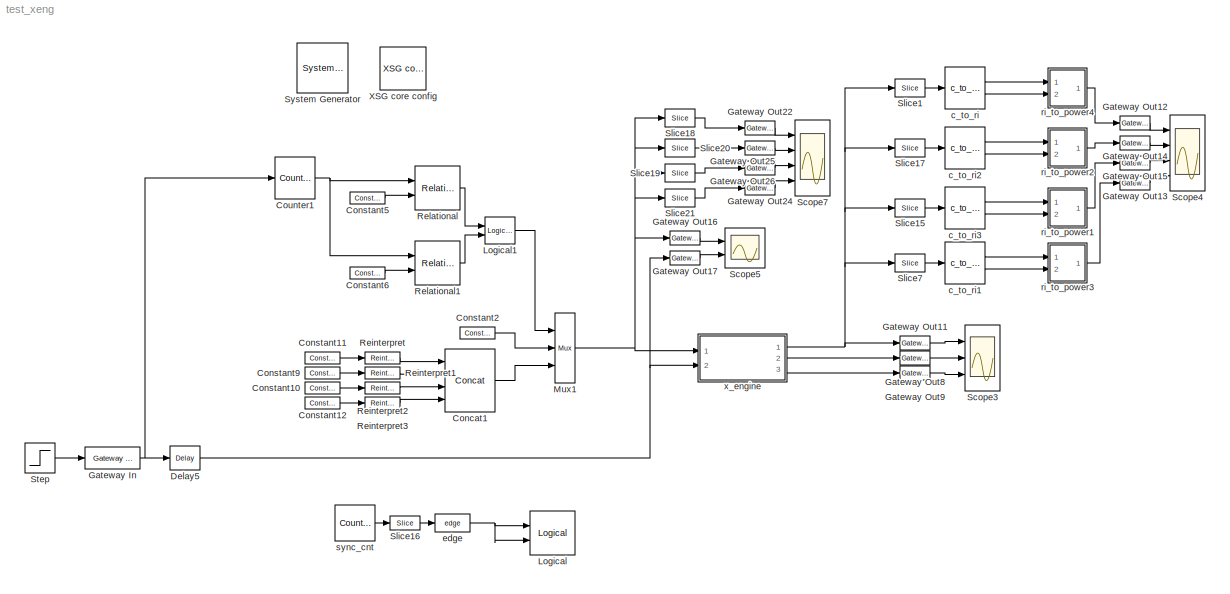
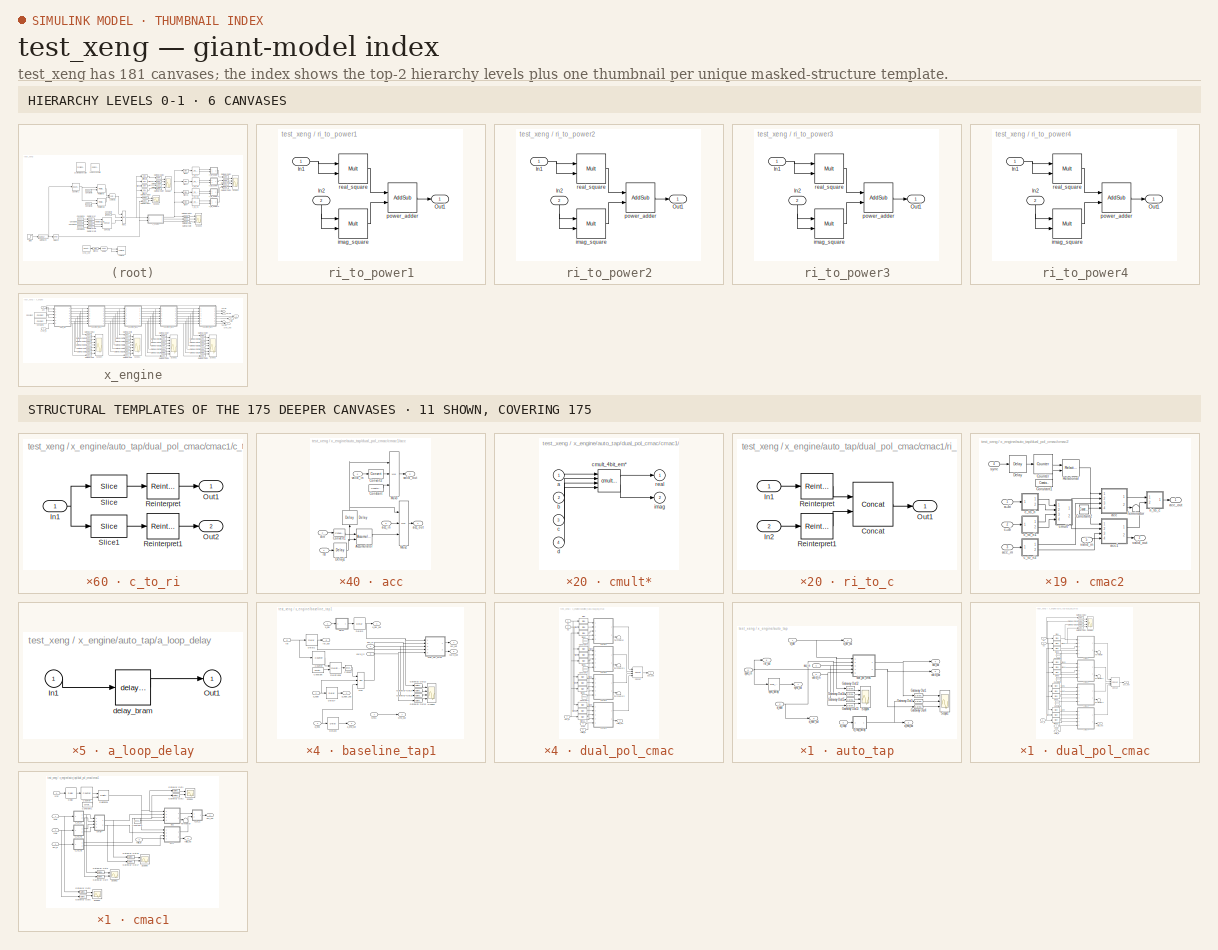
[diagram: thumbnail index - top-2 hierarchy levels (6 canvases) + 11 structural-template representatives of the remaining 175 canvases]
MODEL test_xeng
KIND model
BLOCK [Reference]  System Generator  REF=xbsIndex_r3/ System Generator
  AttributesFormatString = System\\nGenerator
  Ports = []
  ShowPortLabels = on
  SourceBlock = xbsIndex_r3/ System Generator
  SourceType = Xilinx System Generator
  Tag = genX
  UserData = DataTag0
  UserDataPersistent = on
  core_generation = According to Block Masks
  dbl_ovrd = According to Block Masks
  deprecated_control = off
  directory = ./cn_b_2x_128w_8a_rev3_1/sysgen
  eval_field = 0
  incr_netlist = off
  package = ff1704
  part = xc2vp70
  run_coregen = off
  simulink_period = 1
  speed = -7
  synthesis_tool = XST
  sysclk_period = 4.878
  testbench = off
  trim_vbits = Everywhere in SubSystem
  xilinxfamily = Virtex2P
BLOCK [Reference] Concat1  REF=xbsIndex_r3/Concat
  Ports = [4, 1]
  SourceBlock = xbsIndex_r3/Concat
  SourceType = Xilinx Bus Concatenator
  dbl_ovrd = off
  explicit_period = off
  num_inputs = 4
  period = 1
BLOCK [Reference] Constant10  REF=xbsIndex_r3/Constant
  Ports = [0, 1]
  SourceBlock = xbsIndex_r3/Constant
  SourceType = Xilinx Constant Block
  arith_type = Signed  (2's comp)
  bin_pt = 3
  carry = CIN
  const = 0.5
  dbl_ovrd = off
  equ = P=C
  explicit_period = on
  inp1 = P
  inp2 = PCIN>>17
  iostate = 0
  n_bits = 4
  opr = +
  opselect = C
  period = 1
BLOCK [Reference] Constant11  REF=xbsIndex_r3/Constant
  Ports = [0, 1]
  SourceBlock = xbsIndex_r3/Constant
  SourceType = Xilinx Constant Block
  arith_type = Signed  (2's comp)
  bin_pt = 3
  carry = CIN
  const = 0.5
  dbl_ovrd = off
  equ = P=C
  explicit_period = on
  inp1 = P
  inp2 = PCIN>>17
  iostate = 0
  n_bits = 4
  opr = +
  opselect = C
  period = 1
BLOCK [Reference] Constant12  REF=xbsIndex_r3/Constant
  Ports = [0, 1]
  SourceBlock = xbsIndex_r3/Constant
  SourceType = Xilinx Constant Block
  arith_type = Signed  (2's comp)
  bin_pt = 3
  carry = CIN
  const = 0.5
  dbl_ovrd = off
  equ = P=C
  explicit_period = on
  inp1 = P
  inp2 = PCIN>>17
  iostate = 0
  n_bits = 4
  opr = +
  opselect = C
  period = 1
BLOCK [Reference] Constant2  REF=xbsIndex_r3/Constant
  Ports = [0, 1]
  SourceBlock = xbsIndex_r3/Constant
  SourceType = Xilinx Constant Block
  arith_type = Unsigned
  bin_pt = 0
  carry = CIN
  const = 0
  dbl_ovrd = off
  equ = P=C
  explicit_period = on
  inp1 = P
  inp2 = PCIN>>17
  iostate = 0
  n_bits = 16
  opr = +
  opselect = C
  period = 1
BLOCK [Reference] Constant5  REF=xbsIndex_r3/Constant
  Ports = [0, 1]
  SourceBlock = xbsIndex_r3/Constant
  SourceType = Xilinx Constant Block
  arith_type = Unsigned
  bin_pt = 0
  carry = CIN
  const = 0
  dbl_ovrd = off
  equ = P=C
  explicit_period = on
  inp1 = P
  inp2 = PCIN>>17
  iostate = 0
  n_bits = 32
  opr = +
  opselect = C
  period = 1
BLOCK [Reference] Constant6  REF=xbsIndex_r3/Constant
  Ports = [0, 1]
  SourceBlock = xbsIndex_r3/Constant
  SourceType = Xilinx Constant Block
  arith_type = Unsigned
  bin_pt = 0
  carry = CIN
  const = 128
  dbl_ovrd = off
  equ = P=C
  explicit_period = on
  inp1 = P
  inp2 = PCIN>>17
  iostate = 0
  n_bits = 32
  opr = +
  opselect = C
  period = 1
BLOCK [Reference] Constant9  REF=xbsIndex_r3/Constant
  Ports = [0, 1]
  SourceBlock = xbsIndex_r3/Constant
  SourceType = Xilinx Constant Block
  arith_type = Signed  (2's comp)
  bin_pt = 3
  carry = CIN
  const = 0.5
  dbl_ovrd = off
  equ = P=C
  explicit_period = on
  inp1 = P
  inp2 = PCIN>>17
  iostate = 0
  n_bits = 4
  opr = +
  opselect = C
  period = 1
BLOCK [Reference] Counter1  REF=xbsIndex_r3/Counter
  Ports = [1, 1]
  SourceBlock = xbsIndex_r3/Counter
  SourceType = Xilinx Counter Block
  arith_type = Unsigned
  bin_pt = 0
  cnt_by_val = 1
  cnt_to = Inf
  cnt_type = Free Running
  dbl_ovrd = off
  en = off
  explicit_period = off
  gen_core = off
  load_pin = off
  n_bits = 32
  operation = Up
  period = 1
  rst = on
  show_param = off
  start_count = 0
  use_rpm = on
  xl_area = [0, 0, 0, 0, 0, 0, 0]
  xl_use_area = off
BLOCK [Reference] Delay5  REF=xbsIndex_r3/Delay
  Ports = [1, 1]
  SourceBlock = xbsIndex_r3/Delay
  SourceType = Xilinx Delay Block
  accept_only_valid = off
  dbl_ovrd = off
  en = off
  explicit_period = off
  init_zero = on
  latency = 1
  period = 1
  reg_retiming = off
  show_param = off
  xl_area = [0, 0, 0, 0, 0, 0, 0]
  xl_use_area = off
BLOCK [Reference] Gateway In  REF=xbsIndex_r3/Gateway In
  LOCs = {}
  Ports = [1, 1]
  SourceBlock = xbsIndex_r3/Gateway In
  SourceType = Xilinx Gateway In
  arith_type = Boolean
  bin_pt = 0
  dbl_ovrd = off
  locs_specified = off
  n_bits = 1
  needs_fixed_name = off
  overflow = Wrap
  period = 1
  quantization = Truncate
  show_param = off
  timing_constraint = None
  xl_area = [0, 0, 0, 0, 0, 0, 0]
  xl_use_area = off
BLOCK [Reference] Gateway Out11  REF=xbsIndex_r3/Gateway Out
  LOCs = {}
  Ports = [1, 1]
  SourceBlock = xbsIndex_r3/Gateway Out
  SourceType = Xilinx Gateway Out
  arith_type = Boolean
  bin_pt = 6
  hdl_port = off
  locs_specified = off
  nbits = 8
  needs_fixed_name = off
  output_type = Double
  overflow = Wrap
  quantization = Truncate
  show_param = off
  timing_constraint = None
  xl_area = [0, 0, 0, 0, 0, 0, 0]
  xl_use_area = off
BLOCK [Reference] Gateway Out12  REF=xbsIndex_r3/Gateway Out
  LOCs = {}
  Ports = [1, 1]
  SourceBlock = xbsIndex_r3/Gateway Out
  SourceType = Xilinx Gateway Out
  arith_type = Boolean
  bin_pt = 6
  hdl_port = off
  locs_specified = off
  nbits = 8
  needs_fixed_name = off
  output_type = Double
  overflow = Wrap
  quantization = Truncate
  show_param = off
  timing_constraint = None
  xl_area = [0, 0, 0, 0, 0, 0, 0]
  xl_use_area = off
BLOCK [Reference] Gateway Out13  REF=xbsIndex_r3/Gateway Out
  LOCs = {}
  Ports = [1, 1]
  SourceBlock = xbsIndex_r3/Gateway Out
  SourceType = Xilinx Gateway Out
  arith_type = Boolean
  bin_pt = 6
  hdl_port = off
  locs_specified = off
  nbits = 8
  needs_fixed_name = off
  output_type = Double
  overflow = Wrap
  quantization = Truncate
  show_param = off
  timing_constraint = None
  xl_area = [0, 0, 0, 0, 0, 0, 0]
  xl_use_area = off
BLOCK [Reference] Gateway Out14  REF=xbsIndex_r3/Gateway Out
  LOCs = {}
  Ports = [1, 1]
  SourceBlock = xbsIndex_r3/Gateway Out
  SourceType = Xilinx Gateway Out
  arith_type = Boolean
  bin_pt = 6
  hdl_port = off
  locs_specified = off
  nbits = 8
  needs_fixed_name = off
  output_type = Double
  overflow = Wrap
  quantization = Truncate
  show_param = off
  timing_constraint = None
  xl_area = [0, 0, 0, 0, 0, 0, 0]
  xl_use_area = off
BLOCK [Reference] Gateway Out15  REF=xbsIndex_r3/Gateway Out
  LOCs = {}
  Ports = [1, 1]
  SourceBlock = xbsIndex_r3/Gateway Out
  SourceType = Xilinx Gateway Out
  arith_type = Boolean
  bin_pt = 6
  hdl_port = off
  locs_specified = off
  nbits = 8
  needs_fixed_name = off
  output_type = Double
  overflow = Wrap
  quantization = Truncate
  show_param = off
  timing_constraint = None
  xl_area = [0, 0, 0, 0, 0, 0, 0]
  xl_use_area = off
BLOCK [Reference] Gateway Out16  REF=xbsIndex_r3/Gateway Out
  LOCs = {}
  Ports = [1, 1]
  SourceBlock = xbsIndex_r3/Gateway Out
  SourceType = Xilinx Gateway Out
  arith_type = Boolean
  bin_pt = 6
  hdl_port = off
  locs_specified = off
  nbits = 8
  needs_fixed_name = off
  output_type = Double
  overflow = Wrap
  quantization = Truncate
  show_param = off
  timing_constraint = None
  xl_area = [0, 0, 0, 0, 0, 0, 0]
  xl_use_area = off
BLOCK [Reference] Gateway Out17  REF=xbsIndex_r3/Gateway Out
  LOCs = {}
  Ports = [1, 1]
  SourceBlock = xbsIndex_r3/Gateway Out
  SourceType = Xilinx Gateway Out
  arith_type = Boolean
  bin_pt = 6
  hdl_port = off
  locs_specified = off
  nbits = 8
  needs_fixed_name = off
  output_type = Double
  overflow = Wrap
  quantization = Truncate
  show_param = off
  timing_constraint = None
  xl_area = [0, 0, 0, 0, 0, 0, 0]
  xl_use_area = off
BLOCK [Reference] Gateway Out22  REF=xbsIndex_r3/Gateway Out
  LOCs = {}
  Ports = [1, 1]
  SourceBlock = xbsIndex_r3/Gateway Out
  SourceType = Xilinx Gateway Out
  arith_type = Boolean
  bin_pt = 6
  hdl_port = off
  locs_specified = off
  nbits = 8
  needs_fixed_name = off
  output_type = Double
  overflow = Wrap
  quantization = Truncate
  show_param = off
  timing_constraint = None
  xl_area = [0, 0, 0, 0, 0, 0, 0]
  xl_use_area = off
BLOCK [Reference] Gateway Out24  REF=xbsIndex_r3/Gateway Out
  LOCs = {}
  Ports = [1, 1]
  SourceBlock = xbsIndex_r3/Gateway Out
  SourceType = Xilinx Gateway Out
  arith_type = Boolean
  bin_pt = 6
  hdl_port = off
  locs_specified = off
  nbits = 8
  needs_fixed_name = off
  output_type = Double
  overflow = Wrap
  quantization = Truncate
  show_param = off
  timing_constraint = None
  xl_area = [0, 0, 0, 0, 0, 0, 0]
  xl_use_area = off
BLOCK [Reference] Gateway Out25  REF=xbsIndex_r3/Gateway Out
  LOCs = {}
  Ports = [1, 1]
  SourceBlock = xbsIndex_r3/Gateway Out
  SourceType = Xilinx Gateway Out
  arith_type = Boolean
  bin_pt = 6
  hdl_port = off
  locs_specified = off
  nbits = 8
  needs_fixed_name = off
  output_type = Double
  overflow = Wrap
  quantization = Truncate
  show_param = off
  timing_constraint = None
  xl_area = [0, 0, 0, 0, 0, 0, 0]
  xl_use_area = off
BLOCK [Reference] Gateway Out26  REF=xbsIndex_r3/Gateway Out
  LOCs = {}
  Ports = [1, 1]
  SourceBlock = xbsIndex_r3/Gateway Out
  SourceType = Xilinx Gateway Out
  arith_type = Boolean
  bin_pt = 6
  hdl_port = off
  locs_specified = off
  nbits = 8
  needs_fixed_name = off
  output_type = Double
  overflow = Wrap
  quantization = Truncate
  show_param = off
  timing_constraint = None
  xl_area = [0, 0, 0, 0, 0, 0, 0]
  xl_use_area = off
BLOCK [Reference] Gateway Out8  REF=xbsIndex_r3/Gateway Out
  LOCs = {}
  Ports = [1, 1]
  SourceBlock = xbsIndex_r3/Gateway Out
  SourceType = Xilinx Gateway Out
  arith_type = Boolean
  bin_pt = 6
  hdl_port = off
  locs_specified = off
  nbits = 8
  needs_fixed_name = off
  output_type = Double
  overflow = Wrap
  quantization = Truncate
  show_param = off
  timing_constraint = None
  xl_area = [0, 0, 0, 0, 0, 0, 0]
  xl_use_area = off
BLOCK [Reference] Gateway Out9  REF=xbsIndex_r3/Gateway Out
  LOCs = {}
  Ports = [1, 1]
  SourceBlock = xbsIndex_r3/Gateway Out
  SourceType = Xilinx Gateway Out
  arith_type = Boolean
  bin_pt = 6
  hdl_port = off
  locs_specified = off
  nbits = 8
  needs_fixed_name = off
  output_type = Double
  overflow = Wrap
  quantization = Truncate
  show_param = off
  timing_constraint = None
  xl_area = [0, 0, 0, 0, 0, 0, 0]
  xl_use_area = off
BLOCK [Reference] Logical  REF=xbsIndex_r3/Logical
  Ports = [2, 1]
  SourceBlock = xbsIndex_r3/Logical
  SourceType = Xilinx Logical Block
  align_bp = on
  arith_type = Unsigned
  bin_pt = 2
  dbl_ovrd = off
  en = off
  explicit_period = off
  inputs = 2
  latency = 0
  logical_function = OR
  n_bits = 8
  period = 1
  precision = Full
  show_param = off
  xl_area = [0, 0, 0, 0, 0, 0, 0]
  xl_use_area = off
BLOCK [Reference] Logical1  REF=xbsIndex_r3/Logical
  Ports = [2, 1]
  SourceBlock = xbsIndex_r3/Logical
  SourceType = Xilinx Logical Block
  align_bp = on
  arith_type = Unsigned
  bin_pt = 2
  dbl_ovrd = off
  en = off
  explicit_period = off
  inputs = 2
  latency = 0
  logical_function = AND
  n_bits = 8
  period = 1
  precision = Full
  show_param = off
  xl_area = [0, 0, 0, 0, 0, 0, 0]
  xl_use_area = off
BLOCK [Reference] Mux1  REF=xbsIndex_r3/Mux
  Ports = [3, 1]
  SourceBlock = xbsIndex_r3/Mux
  SourceType = Xilinx Multiplexer Block
  arith_type = Signed  (2's comp)
  bin_pt = 2
  dbl_ovrd = off
  en = off
  explicit_period = on
  gen_core = off
  inputs = 2
  latency = 1
  mux_type = off
  n_bits = 8
  overflow = Wrap
  period = 1
  precision = Full
  quantization = Truncate
  show_param = off
  use_rpm = off
  xl_area = [0, 0, 0, 0, 0, 0, 0]
  xl_use_area = off
BLOCK [Reference] Reinterpret  REF=xbsIndex_r3/Reinterpret
  Ports = [1, 1]
  SourceBlock = xbsIndex_r3/Reinterpret
  SourceType = Xilinx Type Reinterpreting Block
  arith_type = Unsigned
  bin_pt = 0
  force_arith_type = on
  force_bin_pt = on
  force_valid = on
BLOCK [Reference] Reinterpret1  REF=xbsIndex_r3/Reinterpret
  Ports = [1, 1]
  SourceBlock = xbsIndex_r3/Reinterpret
  SourceType = Xilinx Type Reinterpreting Block
  arith_type = Unsigned
  bin_pt = 0
  force_arith_type = on
  force_bin_pt = on
  force_valid = on
BLOCK [Reference] Reinterpret2  REF=xbsIndex_r3/Reinterpret
  Ports = [1, 1]
  SourceBlock = xbsIndex_r3/Reinterpret
  SourceType = Xilinx Type Reinterpreting Block
  arith_type = Unsigned
  bin_pt = 0
  force_arith_type = on
  force_bin_pt = on
  force_valid = on
BLOCK [Reference] Reinterpret3  REF=xbsIndex_r3/Reinterpret
  Ports = [1, 1]
  SourceBlock = xbsIndex_r3/Reinterpret
  SourceType = Xilinx Type Reinterpreting Block
  arith_type = Unsigned
  bin_pt = 0
  force_arith_type = on
  force_bin_pt = on
  force_valid = on
BLOCK [Reference] Relational  REF=xbsIndex_r3/Relational
  Ports = [2, 1]
  SourceBlock = xbsIndex_r3/Relational
  SourceType = Xilinx Relational Block
  dbl_ovrd = off
  en = off
  explicit_period = off
  latency = 1
  mode = a>=b
  period = 1
  show_param = off
  xl_area = [0, 0, 0, 0, 0, 0, 0]
  xl_use_area = off
BLOCK [Reference] Relational1  REF=xbsIndex_r3/Relational
  Ports = [2, 1]
  SourceBlock = xbsIndex_r3/Relational
  SourceType = Xilinx Relational Block
  dbl_ovrd = off
  en = off
  explicit_period = off
  latency = 1
  mode = a<b
  period = 1
  show_param = off
  xl_area = [0, 0, 0, 0, 0, 0, 0]
  xl_use_area = off
BLOCK [Scope] Scope3
  DataFormat = StructureWithTime
  LimitDataPoints = off
  NumInputPorts = 3
  Ports = [3]
  YMax = 2.25e+037~1~1
  YMin = 0~0~-1
  ZoomMode = xonly
BLOCK [Scope] Scope4
  DataFormat = StructureWithTime
  LimitDataPoints = off
  NumInputPorts = 4
  Ports = [4]
  SaveName = ScopeData5
  YMax = 1~1~1~1
  YMin = -1~-1~-1~-1
  ZoomMode = xonly
BLOCK [Scope] Scope5
  DataFormat = StructureWithTime
  LimitDataPoints = off
  NumInputPorts = 2
  Ports = [2]
  SaveName = ScopeData6
  YMax = 18349.8~1
  YMin = 16602.2~-1
  ZoomMode = xonly
BLOCK [Scope] Scope7
  DataFormat = StructureWithTime
  LimitDataPoints = off
  NumInputPorts = 4
  Ports = [4]
  SaveName = ScopeData16
  YMax = 71.4~71.4~71.4~71.4
  YMin = 64.6~64.6~64.6~64.6
  ZoomMode = xonly
BLOCK [Reference] Slice1  REF=xbsIndex_r3/Slice
  Ports = [1, 1]
  SourceBlock = xbsIndex_r3/Slice
  SourceType = Xilinx Slice Block
  base0 = LSB of Input
  base1 = MSB of Input
  bit0 = 96
  bit1 = 0
  boolean_output = off
  dbl_ovrd = off
  explicit_period = off
  mode = Lower Bit Location + Width
  nbits = 32
  period = 1
BLOCK [Reference] Slice15  REF=xbsIndex_r3/Slice
  Ports = [1, 1]
  SourceBlock = xbsIndex_r3/Slice
  SourceType = Xilinx Slice Block
  base0 = LSB of Input
  base1 = MSB of Input
  bit0 = 32
  bit1 = 0
  boolean_output = off
  dbl_ovrd = off
  explicit_period = off
  mode = Lower Bit Location + Width
  nbits = 32
  period = 1
BLOCK [Reference] Slice16  REF=xbsIndex_r3/Slice
  Ports = [1, 1]
  SourceBlock = xbsIndex_r3/Slice
  SourceType = Xilinx Slice Block
  base0 = LSB of Input
  base1 = MSB of Input
  bit0 = 0
  bit1 = 0
  boolean_output = on
  dbl_ovrd = off
  explicit_period = off
  mode = Upper Bit Location + Width
  nbits = 1
  period = 1
BLOCK [Reference] Slice17  REF=xbsIndex_r3/Slice
  Ports = [1, 1]
  SourceBlock = xbsIndex_r3/Slice
  SourceType = Xilinx Slice Block
  base0 = LSB of Input
  base1 = MSB of Input
  bit0 = 64
  bit1 = 0
  boolean_output = off
  dbl_ovrd = off
  explicit_period = off
  mode = Lower Bit Location + Width
  nbits = 32
  period = 1
BLOCK [Reference] Slice18  REF=xbsIndex_r3/Slice
  Ports = [1, 1]
  SourceBlock = xbsIndex_r3/Slice
  SourceType = Xilinx Slice Block
  base0 = LSB of Input
  base1 = MSB of Input
  bit0 = 24
  bit1 = 0
  boolean_output = off
  dbl_ovrd = off
  explicit_period = off
  mode = Upper Bit Location + Width
  nbits = 8
  period = 1
BLOCK [Reference] Slice19  REF=xbsIndex_r3/Slice
  Ports = [1, 1]
  SourceBlock = xbsIndex_r3/Slice
  SourceType = Xilinx Slice Block
  base0 = LSB of Input
  base1 = MSB of Input
  bit0 = 8
  bit1 = 0
  boolean_output = off
  dbl_ovrd = off
  explicit_period = off
  mode = Lower Bit Location + Width
  nbits = 8
  period = 1
BLOCK [Reference] Slice20  REF=xbsIndex_r3/Slice
  Ports = [1, 1]
  SourceBlock = xbsIndex_r3/Slice
  SourceType = Xilinx Slice Block
  base0 = LSB of Input
  base1 = MSB of Input
  bit0 = 16
  bit1 = -8
  boolean_output = off
  dbl_ovrd = off
  explicit_period = off
  mode = Upper Bit Location + Width
  nbits = 8
  period = 1
BLOCK [Reference] Slice21  REF=xbsIndex_r3/Slice
  Ports = [1, 1]
  SourceBlock = xbsIndex_r3/Slice
  SourceType = Xilinx Slice Block
  base0 = LSB of Input
  base1 = MSB of Input
  bit0 = 0
  bit1 = 0
  boolean_output = off
  dbl_ovrd = off
  explicit_period = off
  mode = Lower Bit Location + Width
  nbits = 8
  period = 1
BLOCK [Reference] Slice7  REF=xbsIndex_r3/Slice
  Ports = [1, 1]
  SourceBlock = xbsIndex_r3/Slice
  SourceType = Xilinx Slice Block
  base0 = LSB of Input
  base1 = MSB of Input
  bit0 = 0
  bit1 = 0
  boolean_output = off
  dbl_ovrd = off
  explicit_period = off
  mode = Lower Bit Location + Width
  nbits = 32
  period = 1
BLOCK [Step] Step
  After = 0
  Before = 1
  SampleTime = 0
BLOCK [Reference] XSG core config  REF=xps_library/XSG core config  (lib defined in mdl_00b5cec29cd0, mdl_02ab6ecaa3d1, +5 more)
  Ports = []
  ShowPortLabels = on
  SourceBlock = xps_library/XSG core config
  SourceType = xsg core config
  Tag = xps:xsg
  clk_rate = 205
  clk_src = sys_clk2x
  gpio_clk_bit_index = 0
  gpio_clk_io_group = iBOB:sma
  hw_sys = BEE2_usr
  ibob_linux = off
  mpc_type = powerpc405
  sample_period = 1
  synthesis_tool = XST
BLOCK [Reference] c_to_ri  REF=casper_library/Misc/c_to_ri  (lib defined in mdl_138b2fc3435f, mdl_4ed325b712b3, +2 more)
  AttributesFormatString = 16_6 r/i
  Ports = [1, 2]
  ShowPortLabels = on
  SourceBlock = casper_library/Misc/c_to_ri
  SourceType = c_to_ri
  UserData = DataTag1
  UserDataPersistent = on
  bin_pt = 6
  n_bits = 16
BLOCK [Reference] c_to_ri1  REF=casper_library/Misc/c_to_ri  (lib defined in mdl_138b2fc3435f, mdl_4ed325b712b3, +2 more)
  AttributesFormatString = 16_6 r/i
  Ports = [1, 2]
  ShowPortLabels = on
  SourceBlock = casper_library/Misc/c_to_ri
  SourceType = c_to_ri
  UserData = DataTag2
  UserDataPersistent = on
  bin_pt = 6
  n_bits = 16
BLOCK [Reference] c_to_ri2  REF=casper_library/Misc/c_to_ri  (lib defined in mdl_138b2fc3435f, mdl_4ed325b712b3, +2 more)
  AttributesFormatString = 16_6 r/i
  Ports = [1, 2]
  ShowPortLabels = on
  SourceBlock = casper_library/Misc/c_to_ri
  SourceType = c_to_ri
  UserData = DataTag3
  UserDataPersistent = on
  bin_pt = 6
  n_bits = 16
BLOCK [Reference] c_to_ri3  REF=casper_library/Misc/c_to_ri  (lib defined in mdl_138b2fc3435f, mdl_4ed325b712b3, +2 more)
  AttributesFormatString = 16_6 r/i
  Ports = [1, 2]
  ShowPortLabels = on
  SourceBlock = casper_library/Misc/c_to_ri
  SourceType = c_to_ri
  UserData = DataTag4
  UserDataPersistent = on
  bin_pt = 6
  n_bits = 16
BLOCK [Reference] edge  REF=casper_library/Misc/edge  (lib defined in mdl_138b2fc3435f, mdl_4ed325b712b3, +2 more)
  Ports = [1, 1]
  ShowPortLabels = on
  SourceBlock = casper_library/Misc/edge
  SourceType = edge
BLOCK [SubSystem] ri_to_power1
  MinAlgLoopOccurrences = off
  Ports = [2, 1]
  RTWSystemCode = Auto
  TreatAsAtomicUnit = off
BLOCK [Inport] ri_to_power1/In1
  IconDisplay = Port number
  LatchInput = off
  Port = 1
BLOCK [Inport] ri_to_power1/In2
  IconDisplay = Port number
  LatchInput = off
  Port = 2
BLOCK [Outport] ri_to_power1/Out1
  BusOutputAsStruct = off
  IconDisplay = Port number
BLOCK [Reference] ri_to_power1/imag_square  REF=xbsIndex_r3/Mult
  Ports = [2, 1]
  SourceBlock = xbsIndex_r3/Mult
  SourceType = Xilinx Multiplier
  arith_type = Signed  (2's comp)
  bin_pt = 2
  dbl_ovrd = off
  en = off
  explicit_period = off
  gen_core = off
  latency = 3
  mult_type = Parallel
  n_bits = 8
  overflow = Wrap
  oversample = 2
  period = 1
  pipeline = on
  placement_style = Rectangular Shape
  precision = Full
  quantization = Truncate
  show_param = on
  use_embedded = on
  use_rpm = on
  xl_area = [0, 0, 0, 0, 0, 0, 0]
  xl_use_area = off
BLOCK [Reference] ri_to_power1/power_adder  REF=xbsIndex_r3/AddSub
  Ports = [2, 1]
  SourceBlock = xbsIndex_r3/AddSub
  SourceType = Xilinx Adder/Subtractor
  arith_type = Unsigned
  bin_pt = BitWidth * 2 - 1
  dbl_ovrd = off
  en = off
  explicit_period = off
  gen_core = off
  latency = 2
  mode = Addition
  n_bits = BitWidth * 2
  overflow = Wrap
  period = 1
  pipeline = off
  precision = Full
  quantization = Truncate
  show_param = off
  use_carryin = off
  use_carryout = off
  use_core = on
  use_rpm = on
  xl_area = [0, 0, 0, 0, 0, 0, 0]
  xl_use_area = off
BLOCK [Reference] ri_to_power1/real_square  REF=xbsIndex_r3/Mult
  Ports = [2, 1]
  SourceBlock = xbsIndex_r3/Mult
  SourceType = Xilinx Multiplier
  arith_type = Signed  (2's comp)
  bin_pt = 2
  dbl_ovrd = off
  en = off
  explicit_period = off
  gen_core = off
  latency = 3
  mult_type = Parallel
  n_bits = 8
  overflow = Wrap
  oversample = 2
  period = 1
  pipeline = on
  placement_style = Rectangular Shape
  precision = Full
  quantization = Truncate
  show_param = on
  use_embedded = on
  use_rpm = on
  xl_area = [0, 0, 0, 0, 0, 0, 0]
  xl_use_area = off
BLOCK [SubSystem] ri_to_power2
  MinAlgLoopOccurrences = off
  Ports = [2, 1]
  RTWSystemCode = Auto
  TreatAsAtomicUnit = off
BLOCK [Inport] ri_to_power2/In1
  IconDisplay = Port number
  LatchInput = off
  Port = 1
BLOCK [Inport] ri_to_power2/In2
  IconDisplay = Port number
  LatchInput = off
  Port = 2
BLOCK [Outport] ri_to_power2/Out1
  BusOutputAsStruct = off
  IconDisplay = Port number
BLOCK [Reference] ri_to_power2/imag_square  REF=xbsIndex_r3/Mult
  Ports = [2, 1]
  SourceBlock = xbsIndex_r3/Mult
  SourceType = Xilinx Multiplier
  arith_type = Signed  (2's comp)
  bin_pt = 2
  dbl_ovrd = off
  en = off
  explicit_period = off
  gen_core = off
  latency = 3
  mult_type = Parallel
  n_bits = 8
  overflow = Wrap
  oversample = 2
  period = 1
  pipeline = on
  placement_style = Rectangular Shape
  precision = Full
  quantization = Truncate
  show_param = on
  use_embedded = on
  use_rpm = on
  xl_area = [0, 0, 0, 0, 0, 0, 0]
  xl_use_area = off
BLOCK [Reference] ri_to_power2/power_adder  REF=xbsIndex_r3/AddSub
  Ports = [2, 1]
  SourceBlock = xbsIndex_r3/AddSub
  SourceType = Xilinx Adder/Subtractor
  arith_type = Unsigned
  bin_pt = BitWidth * 2 - 1
  dbl_ovrd = off
  en = off
  explicit_period = off
  gen_core = off
  latency = 2
  mode = Addition
  n_bits = BitWidth * 2
  overflow = Wrap
  period = 1
  pipeline = off
  precision = Full
  quantization = Truncate
  show_param = off
  use_carryin = off
  use_carryout = off
  use_core = on
  use_rpm = on
  xl_area = [0, 0, 0, 0, 0, 0, 0]
  xl_use_area = off
BLOCK [Reference] ri_to_power2/real_square  REF=xbsIndex_r3/Mult
  Ports = [2, 1]
  SourceBlock = xbsIndex_r3/Mult
  SourceType = Xilinx Multiplier
  arith_type = Signed  (2's comp)
  bin_pt = 2
  dbl_ovrd = off
  en = off
  explicit_period = off
  gen_core = off
  latency = 3
  mult_type = Parallel
  n_bits = 8
  overflow = Wrap
  oversample = 2
  period = 1
  pipeline = on
  placement_style = Rectangular Shape
  precision = Full
  quantization = Truncate
  show_param = on
  use_embedded = on
  use_rpm = on
  xl_area = [0, 0, 0, 0, 0, 0, 0]
  xl_use_area = off
BLOCK [SubSystem] ri_to_power3
  MinAlgLoopOccurrences = off
  Ports = [2, 1]
  RTWSystemCode = Auto
  TreatAsAtomicUnit = off
BLOCK [Inport] ri_to_power3/In1
  IconDisplay = Port number
  LatchInput = off
  Port = 1
BLOCK [Inport] ri_to_power3/In2
  IconDisplay = Port number
  LatchInput = off
  Port = 2
BLOCK [Outport] ri_to_power3/Out1
  BusOutputAsStruct = off
  IconDisplay = Port number
BLOCK [Reference] ri_to_power3/imag_square  REF=xbsIndex_r3/Mult
  Ports = [2, 1]
  SourceBlock = xbsIndex_r3/Mult
  SourceType = Xilinx Multiplier
  arith_type = Signed  (2's comp)
  bin_pt = 2
  dbl_ovrd = off
  en = off
  explicit_period = off
  gen_core = off
  latency = 3
  mult_type = Parallel
  n_bits = 8
  overflow = Wrap
  oversample = 2
  period = 1
  pipeline = on
  placement_style = Rectangular Shape
  precision = Full
  quantization = Truncate
  show_param = on
  use_embedded = on
  use_rpm = on
  xl_area = [0, 0, 0, 0, 0, 0, 0]
  xl_use_area = off
BLOCK [Reference] ri_to_power3/power_adder  REF=xbsIndex_r3/AddSub
  Ports = [2, 1]
  SourceBlock = xbsIndex_r3/AddSub
  SourceType = Xilinx Adder/Subtractor
  arith_type = Unsigned
  bin_pt = BitWidth * 2 - 1
  dbl_ovrd = off
  en = off
  explicit_period = off
  gen_core = off
  latency = 2
  mode = Addition
  n_bits = BitWidth * 2
  overflow = Wrap
  period = 1
  pipeline = off
  precision = Full
  quantization = Truncate
  show_param = off
  use_carryin = off
  use_carryout = off
  use_core = on
  use_rpm = on
  xl_area = [0, 0, 0, 0, 0, 0, 0]
  xl_use_area = off
BLOCK [Reference] ri_to_power3/real_square  REF=xbsIndex_r3/Mult
  Ports = [2, 1]
  SourceBlock = xbsIndex_r3/Mult
  SourceType = Xilinx Multiplier
  arith_type = Signed  (2's comp)
  bin_pt = 2
  dbl_ovrd = off
  en = off
  explicit_period = off
  gen_core = off
  latency = 3
  mult_type = Parallel
  n_bits = 8
  overflow = Wrap
  oversample = 2
  period = 1
  pipeline = on
  placement_style = Rectangular Shape
  precision = Full
  quantization = Truncate
  show_param = on
  use_embedded = on
  use_rpm = on
  xl_area = [0, 0, 0, 0, 0, 0, 0]
  xl_use_area = off
BLOCK [SubSystem] ri_to_power4
  MinAlgLoopOccurrences = off
  Ports = [2, 1]
  RTWSystemCode = Auto
  TreatAsAtomicUnit = off
BLOCK [Inport] ri_to_power4/In1
  IconDisplay = Port number
  LatchInput = off
  Port = 1
BLOCK [Inport] ri_to_power4/In2
  IconDisplay = Port number
  LatchInput = off
  Port = 2
BLOCK [Outport] ri_to_power4/Out1
  BusOutputAsStruct = off
  IconDisplay = Port number
BLOCK [Reference] ri_to_power4/imag_square  REF=xbsIndex_r3/Mult
  Ports = [2, 1]
  SourceBlock = xbsIndex_r3/Mult
  SourceType = Xilinx Multiplier
  arith_type = Signed  (2's comp)
  bin_pt = 2
  dbl_ovrd = off
  en = off
  explicit_period = off
  gen_core = off
  latency = 3
  mult_type = Parallel
  n_bits = 8
  overflow = Wrap
  oversample = 2
  period = 1
  pipeline = on
  placement_style = Rectangular Shape
  precision = Full
  quantization = Truncate
  show_param = on
  use_embedded = on
  use_rpm = on
  xl_area = [0, 0, 0, 0, 0, 0, 0]
  xl_use_area = off
BLOCK [Reference] ri_to_power4/power_adder  REF=xbsIndex_r3/AddSub
  Ports = [2, 1]
  SourceBlock = xbsIndex_r3/AddSub
  SourceType = Xilinx Adder/Subtractor
  arith_type = Unsigned
  bin_pt = BitWidth * 2 - 1
  dbl_ovrd = off
  en = off
  explicit_period = off
  gen_core = off
  latency = 2
  mode = Addition
  n_bits = BitWidth * 2
  overflow = Wrap
  period = 1
  pipeline = off
  precision = Full
  quantization = Truncate
  show_param = off
  use_carryin = off
  use_carryout = off
  use_core = on
  use_rpm = on
  xl_area = [0, 0, 0, 0, 0, 0, 0]
  xl_use_area = off
BLOCK [Reference] ri_to_power4/real_square  REF=xbsIndex_r3/Mult
  Ports = [2, 1]
  SourceBlock = xbsIndex_r3/Mult
  SourceType = Xilinx Multiplier
  arith_type = Signed  (2's comp)
  bin_pt = 2
  dbl_ovrd = off
  en = off
  explicit_period = off
  gen_core = off
  latency = 3
  mult_type = Parallel
  n_bits = 8
  overflow = Wrap
  oversample = 2
  period = 1
  pipeline = on
  placement_style = Rectangular Shape
  precision = Full
  quantization = Truncate
  show_param = on
  use_embedded = on
  use_rpm = on
  xl_area = [0, 0, 0, 0, 0, 0, 0]
  xl_use_area = off
BLOCK [Reference] sync_cnt  REF=xbsIndex_r3/Counter
  Ports = [0, 1]
  SourceBlock = xbsIndex_r3/Counter
  SourceType = Xilinx Counter Block
  arith_type = Unsigned
  bin_pt = 0
  cnt_by_val = 1
  cnt_to = (floor(2^ant_bits / 2) + 1) * 2
  cnt_type = Free Running
  dbl_ovrd = off
  en = off
  explicit_period = off
  gen_core = off
  load_pin = off
  n_bits = 27
  operation = Up
  period = 1
  rst = off
  show_param = off
  start_count = 0
  use_rpm = on
  xl_area = [0, 0, 0, 0, 0, 0, 0]
  xl_use_area = off
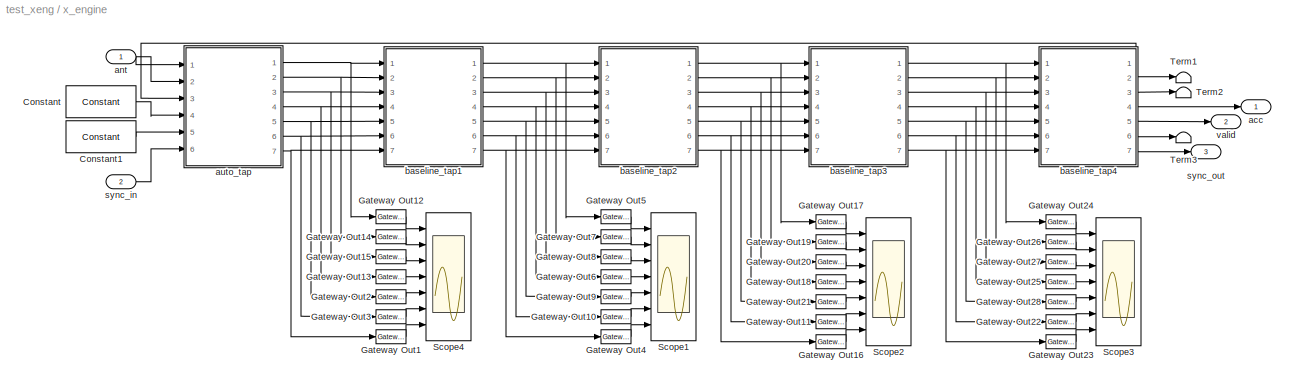
BLOCK [SubSystem] x_engine
  AncestorBlock = casper_library/Correlator/x_engine
  AttributesFormatString = n_ant=8, mult=1, bram=1
  MaskCallbackString = |||||||
  MaskEnableString = on,on,on,on,on,on,on,on
  MaskIconFrame = on
  MaskIconOpaque = on
  MaskIconRotate = none
  MaskIconUnits = autoscale
  MaskInitialization = bit_growth = ceil(log2(acc_len));\nant_bits = ceil(log2(n_ants));\nn_bits_out = (2*n_bits + 1 + bit_growth);\n\nx_engine_init(gcb, ...\n    'n_ants', n_ants, ...\n    'n_bits', n_bits, ...\n    'acc_len', acc_len, ...\n    'add_latency', add_latency, ...\n    'mult_latency', mult_latency, ...\n    'bram_latency', bram_latency, ...\n    'use_ded_mult', use_ded_mult, ...\n    'use_bram_delay', use_b...<+11ch>
  MaskPromptString = Number of Antennas|Bit Width of Samples In|Accumulation Length|Add Latency|Mult Latency|BRAM Latency|Multiplier Type (0=slices 1=embedded 2=bram)|Delay in BRAM
  MaskSelfModifiable = on
  MaskStyleString = edit,edit,edit,edit,edit,edit,edit,edit
  MaskTabNameString = ,,,,,,,
  MaskToolTipString = on,on,on,on,on,on,on,on
  MaskTunableValueString = on,on,on,on,on,on,on,on
  MaskType = x_engine
  MaskValueString = 8|4|128|1|1|1|1|1
  MaskVarAliasString = ,,,,,,,
  MaskVariables = n_ants=@1;n_bits=@2;acc_len=@3;add_latency=@4;mult_latency=@5;bram_latency=@6;use_ded_mult=@7;use_bram_delay=@8;
  MaskVisibilityString = on,on,on,on,on,on,on,on
  MinAlgLoopOccurrences = off
  Ports = [2, 3]
  RTWSystemCode = Auto
  TreatAsAtomicUnit = off
  UserData = DataTag5
  UserDataPersistent = on
BLOCK [Reference] x_engine/Constant  REF=xbsIndex_r3/Constant
  Ports = [0, 1]
  SourceBlock = xbsIndex_r3/Constant
  SourceType = Xilinx Constant Block
  arith_type = Unsigned
  bin_pt = 0
  carry = CIN
  const = 0
  dbl_ovrd = off
  equ = P=C
  explicit_period = on
  inp1 = P
  inp2 = PCIN>>17
  iostate = 0
  n_bits = 8 * n_bits_out
  opr = +
  opselect = C
  period = 1
BLOCK [Reference] x_engine/Constant1  REF=xbsIndex_r3/Constant
  Ports = [0, 1]
  SourceBlock = xbsIndex_r3/Constant
  SourceType = Xilinx Constant Block
  arith_type = Boolean
  bin_pt = 0
  carry = CIN
  const = 0
  dbl_ovrd = off
  equ = P=C
  explicit_period = on
  inp1 = P
  inp2 = PCIN>>17
  iostate = 0
  n_bits = 1
  opr = +
  opselect = C
  period = 1
BLOCK [Reference] x_engine/Gateway Out1  REF=xbsIndex_r3/Gateway Out
  LOCs = {}
  Ports = [1, 1]
  SourceBlock = xbsIndex_r3/Gateway Out
  SourceType = Xilinx Gateway Out
  arith_type = Boolean
  bin_pt = 6
  hdl_port = off
  locs_specified = off
  nbits = 8
  needs_fixed_name = off
  output_type = Double
  overflow = Wrap
  quantization = Truncate
  show_param = off
  timing_constraint = None
  xl_area = [0, 0, 0, 0, 0, 0, 0]
  xl_use_area = off
BLOCK [Reference] x_engine/Gateway Out10  REF=xbsIndex_r3/Gateway Out
  LOCs = {}
  Ports = [1, 1]
  SourceBlock = xbsIndex_r3/Gateway Out
  SourceType = Xilinx Gateway Out
  arith_type = Boolean
  bin_pt = 6
  hdl_port = off
  locs_specified = off
  nbits = 8
  needs_fixed_name = off
  output_type = Double
  overflow = Wrap
  quantization = Truncate
  show_param = off
  timing_constraint = None
  xl_area = [0, 0, 0, 0, 0, 0, 0]
  xl_use_area = off
BLOCK [Reference] x_engine/Gateway Out11  REF=xbsIndex_r3/Gateway Out
  LOCs = {}
  Ports = [1, 1]
  SourceBlock = xbsIndex_r3/Gateway Out
  SourceType = Xilinx Gateway Out
  arith_type = Boolean
  bin_pt = 6
  hdl_port = off
  locs_specified = off
  nbits = 8
  needs_fixed_name = off
  output_type = Double
  overflow = Wrap
  quantization = Truncate
  show_param = off
  timing_constraint = None
  xl_area = [0, 0, 0, 0, 0, 0, 0]
  xl_use_area = off
BLOCK [Reference] x_engine/Gateway Out12  REF=xbsIndex_r3/Gateway Out
  LOCs = {}
  Ports = [1, 1]
  SourceBlock = xbsIndex_r3/Gateway Out
  SourceType = Xilinx Gateway Out
  arith_type = Boolean
  bin_pt = 6
  hdl_port = off
  locs_specified = off
  nbits = 8
  needs_fixed_name = off
  output_type = Double
  overflow = Wrap
  quantization = Truncate
  show_param = off
  timing_constraint = None
  xl_area = [0, 0, 0, 0, 0, 0, 0]
  xl_use_area = off
BLOCK [Reference] x_engine/Gateway Out13  REF=xbsIndex_r3/Gateway Out
  LOCs = {}
  Ports = [1, 1]
  SourceBlock = xbsIndex_r3/Gateway Out
  SourceType = Xilinx Gateway Out
  arith_type = Boolean
  bin_pt = 6
  hdl_port = off
  locs_specified = off
  nbits = 8
  needs_fixed_name = off
  output_type = Double
  overflow = Wrap
  quantization = Truncate
  show_param = off
  timing_constraint = None
  xl_area = [0, 0, 0, 0, 0, 0, 0]
  xl_use_area = off
BLOCK [Reference] x_engine/Gateway Out14  REF=xbsIndex_r3/Gateway Out
  LOCs = {}
  Ports = [1, 1]
  SourceBlock = xbsIndex_r3/Gateway Out
  SourceType = Xilinx Gateway Out
  arith_type = Boolean
  bin_pt = 6
  hdl_port = off
  locs_specified = off
  nbits = 8
  needs_fixed_name = off
  output_type = Double
  overflow = Wrap
  quantization = Truncate
  show_param = off
  timing_constraint = None
  xl_area = [0, 0, 0, 0, 0, 0, 0]
  xl_use_area = off
BLOCK [Reference] x_engine/Gateway Out15  REF=xbsIndex_r3/Gateway Out
  LOCs = {}
  Ports = [1, 1]
  SourceBlock = xbsIndex_r3/Gateway Out
  SourceType = Xilinx Gateway Out
  arith_type = Boolean
  bin_pt = 6
  hdl_port = off
  locs_specified = off
  nbits = 8
  needs_fixed_name = off
  output_type = Double
  overflow = Wrap
  quantization = Truncate
  show_param = off
  timing_constraint = None
  xl_area = [0, 0, 0, 0, 0, 0, 0]
  xl_use_area = off
BLOCK [Reference] x_engine/Gateway Out16  REF=xbsIndex_r3/Gateway Out
  LOCs = {}
  Ports = [1, 1]
  SourceBlock = xbsIndex_r3/Gateway Out
  SourceType = Xilinx Gateway Out
  arith_type = Boolean
  bin_pt = 6
  hdl_port = off
  locs_specified = off
  nbits = 8
  needs_fixed_name = off
  output_type = Double
  overflow = Wrap
  quantization = Truncate
  show_param = off
  timing_constraint = None
  xl_area = [0, 0, 0, 0, 0, 0, 0]
  xl_use_area = off
BLOCK [Reference] x_engine/Gateway Out17  REF=xbsIndex_r3/Gateway Out
  LOCs = {}
  Ports = [1, 1]
  SourceBlock = xbsIndex_r3/Gateway Out
  SourceType = Xilinx Gateway Out
  arith_type = Boolean
  bin_pt = 6
  hdl_port = off
  locs_specified = off
  nbits = 8
  needs_fixed_name = off
  output_type = Double
  overflow = Wrap
  quantization = Truncate
  show_param = off
  timing_constraint = None
  xl_area = [0, 0, 0, 0, 0, 0, 0]
  xl_use_area = off
BLOCK [Reference] x_engine/Gateway Out18  REF=xbsIndex_r3/Gateway Out
  LOCs = {}
  Ports = [1, 1]
  SourceBlock = xbsIndex_r3/Gateway Out
  SourceType = Xilinx Gateway Out
  arith_type = Boolean
  bin_pt = 6
  hdl_port = off
  locs_specified = off
  nbits = 8
  needs_fixed_name = off
  output_type = Double
  overflow = Wrap
  quantization = Truncate
  show_param = off
  timing_constraint = None
  xl_area = [0, 0, 0, 0, 0, 0, 0]
  xl_use_area = off
BLOCK [Reference] x_engine/Gateway Out19  REF=xbsIndex_r3/Gateway Out
  LOCs = {}
  Ports = [1, 1]
  SourceBlock = xbsIndex_r3/Gateway Out
  SourceType = Xilinx Gateway Out
  arith_type = Boolean
  bin_pt = 6
  hdl_port = off
  locs_specified = off
  nbits = 8
  needs_fixed_name = off
  output_type = Double
  overflow = Wrap
  quantization = Truncate
  show_param = off
  timing_constraint = None
  xl_area = [0, 0, 0, 0, 0, 0, 0]
  xl_use_area = off
BLOCK [Reference] x_engine/Gateway Out2  REF=xbsIndex_r3/Gateway Out
  LOCs = {}
  Ports = [1, 1]
  SourceBlock = xbsIndex_r3/Gateway Out
  SourceType = Xilinx Gateway Out
  arith_type = Boolean
  bin_pt = 6
  hdl_port = off
  locs_specified = off
  nbits = 8
  needs_fixed_name = off
  output_type = Double
  overflow = Wrap
  quantization = Truncate
  show_param = off
  timing_constraint = None
  xl_area = [0, 0, 0, 0, 0, 0, 0]
  xl_use_area = off
BLOCK [Reference] x_engine/Gateway Out20  REF=xbsIndex_r3/Gateway Out
  LOCs = {}
  Ports = [1, 1]
  SourceBlock = xbsIndex_r3/Gateway Out
  SourceType = Xilinx Gateway Out
  arith_type = Boolean
  bin_pt = 6
  hdl_port = off
  locs_specified = off
  nbits = 8
  needs_fixed_name = off
  output_type = Double
  overflow = Wrap
  quantization = Truncate
  show_param = off
  timing_constraint = None
  xl_area = [0, 0, 0, 0, 0, 0, 0]
  xl_use_area = off
BLOCK [Reference] x_engine/Gateway Out21  REF=xbsIndex_r3/Gateway Out
  LOCs = {}
  Ports = [1, 1]
  SourceBlock = xbsIndex_r3/Gateway Out
  SourceType = Xilinx Gateway Out
  arith_type = Boolean
  bin_pt = 6
  hdl_port = off
  locs_specified = off
  nbits = 8
  needs_fixed_name = off
  output_type = Double
  overflow = Wrap
  quantization = Truncate
  show_param = off
  timing_constraint = None
  xl_area = [0, 0, 0, 0, 0, 0, 0]
  xl_use_area = off
BLOCK [Reference] x_engine/Gateway Out22  REF=xbsIndex_r3/Gateway Out
  LOCs = {}
  Ports = [1, 1]
  SourceBlock = xbsIndex_r3/Gateway Out
  SourceType = Xilinx Gateway Out
  arith_type = Boolean
  bin_pt = 6
  hdl_port = off
  locs_specified = off
  nbits = 8
  needs_fixed_name = off
  output_type = Double
  overflow = Wrap
  quantization = Truncate
  show_param = off
  timing_constraint = None
  xl_area = [0, 0, 0, 0, 0, 0, 0]
  xl_use_area = off
BLOCK [Reference] x_engine/Gateway Out23  REF=xbsIndex_r3/Gateway Out
  LOCs = {}
  Ports = [1, 1]
  SourceBlock = xbsIndex_r3/Gateway Out
  SourceType = Xilinx Gateway Out
  arith_type = Boolean
  bin_pt = 6
  hdl_port = off
  locs_specified = off
  nbits = 8
  needs_fixed_name = off
  output_type = Double
  overflow = Wrap
  quantization = Truncate
  show_param = off
  timing_constraint = None
  xl_area = [0, 0, 0, 0, 0, 0, 0]
  xl_use_area = off
BLOCK [Reference] x_engine/Gateway Out24  REF=xbsIndex_r3/Gateway Out
  LOCs = {}
  Ports = [1, 1]
  SourceBlock = xbsIndex_r3/Gateway Out
  SourceType = Xilinx Gateway Out
  arith_type = Boolean
  bin_pt = 6
  hdl_port = off
  locs_specified = off
  nbits = 8
  needs_fixed_name = off
  output_type = Double
  overflow = Wrap
  quantization = Truncate
  show_param = off
  timing_constraint = None
  xl_area = [0, 0, 0, 0, 0, 0, 0]
  xl_use_area = off
BLOCK [Reference] x_engine/Gateway Out25  REF=xbsIndex_r3/Gateway Out
  LOCs = {}
  Ports = [1, 1]
  SourceBlock = xbsIndex_r3/Gateway Out
  SourceType = Xilinx Gateway Out
  arith_type = Boolean
  bin_pt = 6
  hdl_port = off
  locs_specified = off
  nbits = 8
  needs_fixed_name = off
  output_type = Double
  overflow = Wrap
  quantization = Truncate
  show_param = off
  timing_constraint = None
  xl_area = [0, 0, 0, 0, 0, 0, 0]
  xl_use_area = off
BLOCK [Reference] x_engine/Gateway Out26  REF=xbsIndex_r3/Gateway Out
  LOCs = {}
  Ports = [1, 1]
  SourceBlock = xbsIndex_r3/Gateway Out
  SourceType = Xilinx Gateway Out
  arith_type = Boolean
  bin_pt = 6
  hdl_port = off
  locs_specified = off
  nbits = 8
  needs_fixed_name = off
  output_type = Double
  overflow = Wrap
  quantization = Truncate
  show_param = off
  timing_constraint = None
  xl_area = [0, 0, 0, 0, 0, 0, 0]
  xl_use_area = off
BLOCK [Reference] x_engine/Gateway Out27  REF=xbsIndex_r3/Gateway Out
  LOCs = {}
  Ports = [1, 1]
  SourceBlock = xbsIndex_r3/Gateway Out
  SourceType = Xilinx Gateway Out
  arith_type = Boolean
  bin_pt = 6
  hdl_port = off
  locs_specified = off
  nbits = 8
  needs_fixed_name = off
  output_type = Double
  overflow = Wrap
  quantization = Truncate
  show_param = off
  timing_constraint = None
  xl_area = [0, 0, 0, 0, 0, 0, 0]
  xl_use_area = off
BLOCK [Reference] x_engine/Gateway Out28  REF=xbsIndex_r3/Gateway Out
  LOCs = {}
  Ports = [1, 1]
  SourceBlock = xbsIndex_r3/Gateway Out
  SourceType = Xilinx Gateway Out
  arith_type = Boolean
  bin_pt = 6
  hdl_port = off
  locs_specified = off
  nbits = 8
  needs_fixed_name = off
  output_type = Double
  overflow = Wrap
  quantization = Truncate
  show_param = off
  timing_constraint = None
  xl_area = [0, 0, 0, 0, 0, 0, 0]
  xl_use_area = off
BLOCK [Reference] x_engine/Gateway Out3  REF=xbsIndex_r3/Gateway Out
  LOCs = {}
  Ports = [1, 1]
  SourceBlock = xbsIndex_r3/Gateway Out
  SourceType = Xilinx Gateway Out
  arith_type = Boolean
  bin_pt = 6
  hdl_port = off
  locs_specified = off
  nbits = 8
  needs_fixed_name = off
  output_type = Double
  overflow = Wrap
  quantization = Truncate
  show_param = off
  timing_constraint = None
  xl_area = [0, 0, 0, 0, 0, 0, 0]
  xl_use_area = off
BLOCK [Reference] x_engine/Gateway Out4  REF=xbsIndex_r3/Gateway Out
  LOCs = {}
  Ports = [1, 1]
  SourceBlock = xbsIndex_r3/Gateway Out
  SourceType = Xilinx Gateway Out
  arith_type = Boolean
  bin_pt = 6
  hdl_port = off
  locs_specified = off
  nbits = 8
  needs_fixed_name = off
  output_type = Double
  overflow = Wrap
  quantization = Truncate
  show_param = off
  timing_constraint = None
  xl_area = [0, 0, 0, 0, 0, 0, 0]
  xl_use_area = off
BLOCK [Reference] x_engine/Gateway Out5  REF=xbsIndex_r3/Gateway Out
  LOCs = {}
  Ports = [1, 1]
  SourceBlock = xbsIndex_r3/Gateway Out
  SourceType = Xilinx Gateway Out
  arith_type = Boolean
  bin_pt = 6
  hdl_port = off
  locs_specified = off
  nbits = 8
  needs_fixed_name = off
  output_type = Double
  overflow = Wrap
  quantization = Truncate
  show_param = off
  timing_constraint = None
  xl_area = [0, 0, 0, 0, 0, 0, 0]
  xl_use_area = off
BLOCK [Reference] x_engine/Gateway Out6  REF=xbsIndex_r3/Gateway Out
  LOCs = {}
  Ports = [1, 1]
  SourceBlock = xbsIndex_r3/Gateway Out
  SourceType = Xilinx Gateway Out
  arith_type = Boolean
  bin_pt = 6
  hdl_port = off
  locs_specified = off
  nbits = 8
  needs_fixed_name = off
  output_type = Double
  overflow = Wrap
  quantization = Truncate
  show_param = off
  timing_constraint = None
  xl_area = [0, 0, 0, 0, 0, 0, 0]
  xl_use_area = off
BLOCK [Reference] x_engine/Gateway Out7  REF=xbsIndex_r3/Gateway Out
  LOCs = {}
  Ports = [1, 1]
  SourceBlock = xbsIndex_r3/Gateway Out
  SourceType = Xilinx Gateway Out
  arith_type = Boolean
  bin_pt = 6
  hdl_port = off
  locs_specified = off
  nbits = 8
  needs_fixed_name = off
  output_type = Double
  overflow = Wrap
  quantization = Truncate
  show_param = off
  timing_constraint = None
  xl_area = [0, 0, 0, 0, 0, 0, 0]
  xl_use_area = off
BLOCK [Reference] x_engine/Gateway Out8  REF=xbsIndex_r3/Gateway Out
  LOCs = {}
  Ports = [1, 1]
  SourceBlock = xbsIndex_r3/Gateway Out
  SourceType = Xilinx Gateway Out
  arith_type = Boolean
  bin_pt = 6
  hdl_port = off
  locs_specified = off
  nbits = 8
  needs_fixed_name = off
  output_type = Double
  overflow = Wrap
  quantization = Truncate
  show_param = off
  timing_constraint = None
  xl_area = [0, 0, 0, 0, 0, 0, 0]
  xl_use_area = off
BLOCK [Reference] x_engine/Gateway Out9  REF=xbsIndex_r3/Gateway Out
  LOCs = {}
  Ports = [1, 1]
  SourceBlock = xbsIndex_r3/Gateway Out
  SourceType = Xilinx Gateway Out
  arith_type = Boolean
  bin_pt = 6
  hdl_port = off
  locs_specified = off
  nbits = 8
  needs_fixed_name = off
  output_type = Double
  overflow = Wrap
  quantization = Truncate
  show_param = off
  timing_constraint = None
  xl_area = [0, 0, 0, 0, 0, 0, 0]
  xl_use_area = off
BLOCK [Scope] x_engine/Scope1
  DataFormat = StructureWithTime
  LimitDataPoints = off
  NumInputPorts = 7
  Ports = [7]
  SaveName = ScopeData4
  YMax = 18349.8~18349.8~1~1~5~5~5
  YMin = 16602.2~16602.2~-1~-1~-5~-5~-5
  ZoomMode = xonly
BLOCK [Scope] x_engine/Scope2
  DataFormat = StructureWithTime
  LimitDataPoints = off
  NumInputPorts = 7
  Ports = [7]
  SaveName = ScopeData7
  YMax = 18349.8~18349.8~1~1~5~5~5
  YMin = 16602.2~16602.2~-1~-1~-5~-5~-5
  ZoomMode = xonly
BLOCK [Scope] x_engine/Scope3
  DataFormat = StructureWithTime
  LimitDataPoints = off
  NumInputPorts = 7
  Ports = [7]
  SaveName = ScopeData8
  YMax = 18349.8~18349.8~1~1~5~5~5
  YMin = 16602.2~16602.2~-1~-1~-5~-5~-5
  ZoomMode = xonly
BLOCK [Scope] x_engine/Scope4
  DataFormat = StructureWithTime
  LimitDataPoints = off
  NumInputPorts = 7
  Ports = [7]
  SaveName = ScopeData3
  YMax = 18349.8~18349.8~1~1~5~5~5
  YMin = 16602.2~16602.2~-1~-1~-5~-5~-5
  ZoomMode = xonly
BLOCK [Terminator] x_engine/Term1
BLOCK [Terminator] x_engine/Term2
BLOCK [Terminator] x_engine/Term3
BLOCK [Outport] x_engine/acc
  BusOutputAsStruct = off
  IconDisplay = Port number
BLOCK [Inport] x_engine/ant
  IconDisplay = Port number
  LatchInput = off
  Port = 1
BLOCK [SubSystem] x_engine/auto_tap
  AttributesFormatString = mult=1
  MaskEnableString = on
  MaskIconFrame = on
  MaskIconOpaque = on
  MaskIconRotate = none
  MaskIconUnits = autoscale
  MaskInitialization = auto_tap_init(gcb, ...\n    'use_ded_mult', use_ded_mult);
  MaskPromptString = Use Dedicated Multipliers
  MaskSelfModifiable = on
  MaskStyleString = edit
  MaskToolTipString = on
  MaskTunableValueString = on
  MaskType = auto_tap
  MaskValueString = 1
  MaskVariables = use_ded_mult=@1;
  MaskVisibilityString = on
  MinAlgLoopOccurrences = off
  Ports = [6, 7]
  RTWSystemCode = Auto
  TreatAsAtomicUnit = off
  UserData = DataTag6
  UserDataPersistent = on
BLOCK [Reference] x_engine/auto_tap/Gateway Out1  REF=xbsIndex_r3/Gateway Out
  LOCs = {}
  Ports = [1, 1]
  SourceBlock = xbsIndex_r3/Gateway Out
  SourceType = Xilinx Gateway Out
  arith_type = Boolean
  bin_pt = 6
  hdl_port = off
  locs_specified = off
  nbits = 8
  needs_fixed_name = off
  output_type = Double
  overflow = Wrap
  quantization = Truncate
  show_param = off
  timing_constraint = None
  xl_area = [0, 0, 0, 0, 0, 0, 0]
  xl_use_area = off
BLOCK [Reference] x_engine/auto_tap/Gateway Out12  REF=xbsIndex_r3/Gateway Out
  LOCs = {}
  Ports = [1, 1]
  SourceBlock = xbsIndex_r3/Gateway Out
  SourceType = Xilinx Gateway Out
  arith_type = Boolean
  bin_pt = 6
  hdl_port = off
  locs_specified = off
  nbits = 8
  needs_fixed_name = off
  output_type = Double
  overflow = Wrap
  quantization = Truncate
  show_param = off
  timing_constraint = None
  xl_area = [0, 0, 0, 0, 0, 0, 0]
  xl_use_area = off
BLOCK [Reference] x_engine/auto_tap/Gateway Out13  REF=xbsIndex_r3/Gateway Out
  LOCs = {}
  Ports = [1, 1]
  SourceBlock = xbsIndex_r3/Gateway Out
  SourceType = Xilinx Gateway Out
  arith_type = Boolean
  bin_pt = 6
  hdl_port = off
  locs_specified = off
  nbits = 8
  needs_fixed_name = off
  output_type = Double
  overflow = Wrap
  quantization = Truncate
  show_param = off
  timing_constraint = None
  xl_area = [0, 0, 0, 0, 0, 0, 0]
  xl_use_area = off
BLOCK [Reference] x_engine/auto_tap/Gateway Out14  REF=xbsIndex_r3/Gateway Out
  LOCs = {}
  Ports = [1, 1]
  SourceBlock = xbsIndex_r3/Gateway Out
  SourceType = Xilinx Gateway Out
  arith_type = Boolean
  bin_pt = 6
  hdl_port = off
  locs_specified = off
  nbits = 8
  needs_fixed_name = off
  output_type = Double
  overflow = Wrap
  quantization = Truncate
  show_param = off
  timing_constraint = None
  xl_area = [0, 0, 0, 0, 0, 0, 0]
  xl_use_area = off
BLOCK [Reference] x_engine/auto_tap/Gateway Out15  REF=xbsIndex_r3/Gateway Out
  LOCs = {}
  Ports = [1, 1]
  SourceBlock = xbsIndex_r3/Gateway Out
  SourceType = Xilinx Gateway Out
  arith_type = Boolean
  bin_pt = 6
  hdl_port = off
  locs_specified = off
  nbits = 8
  needs_fixed_name = off
  output_type = Double
  overflow = Wrap
  quantization = Truncate
  show_param = off
  timing_constraint = None
  xl_area = [0, 0, 0, 0, 0, 0, 0]
  xl_use_area = off
BLOCK [Reference] x_engine/auto_tap/Gateway Out3  REF=xbsIndex_r3/Gateway Out
  LOCs = {}
  Ports = [1, 1]
  SourceBlock = xbsIndex_r3/Gateway Out
  SourceType = Xilinx Gateway Out
  arith_type = Boolean
  bin_pt = 6
  hdl_port = off
  locs_specified = off
  nbits = 8
  needs_fixed_name = off
  output_type = Double
  overflow = Wrap
  quantization = Truncate
  show_param = off
  timing_constraint = None
  xl_area = [0, 0, 0, 0, 0, 0, 0]
  xl_use_area = off
BLOCK [Reference] x_engine/auto_tap/Gateway Out4  REF=xbsIndex_r3/Gateway Out
  LOCs = {}
  Ports = [1, 1]
  SourceBlock = xbsIndex_r3/Gateway Out
  SourceType = Xilinx Gateway Out
  arith_type = Boolean
  bin_pt = 6
  hdl_port = off
  locs_specified = off
  nbits = 8
  needs_fixed_name = off
  output_type = Double
  overflow = Wrap
  quantization = Truncate
  show_param = off
  timing_constraint = None
  xl_area = [0, 0, 0, 0, 0, 0, 0]
  xl_use_area = off
BLOCK [Scope] x_engine/auto_tap/Scope1
  DataFormat = StructureWithTime
  LimitDataPoints = off
  NumInputPorts = 3
  Ports = [3]
  SaveName = ScopeData9
  YMax = 2.25e+037~17476~1
  YMin = 0~17476~0
  ZoomMode = xonly
BLOCK [Scope] x_engine/auto_tap/Scope4
  DataFormat = StructureWithTime
  LimitDataPoints = off
  NumInputPorts = 4
  Ports = [4]
  SaveName = ScopeData7
  YMax = 18349.8~18349.8~1~1
  YMin = 16602.2~16602.2~-1~-1
  ZoomMode = xonly
BLOCK [Inport] x_engine/auto_tap/a_del
  IconDisplay = Port number
  LatchInput = off
  Port = 1
BLOCK [Outport] x_engine/auto_tap/a_del_out
  BusOutputAsStruct = off
  IconDisplay = Port number
BLOCK [Outport] x_engine/auto_tap/a_end_out
  BusOutputAsStruct = off
  IconDisplay = Port number
  Port = 3
BLOCK [Inport] x_engine/auto_tap/a_loop
  IconDisplay = Port number
  LatchInput = off
  Port = 3
BLOCK [SubSystem] x_engine/auto_tap/a_loop_delay
  AttributesFormatString = %<BlockChoice>
  BlockChoice = delay_bram
  MemberBlocks = delay_bram,delay_slr
  MinAlgLoopOccurrences = off
  Ports = [1, 1]
  RTWSystemCode = Auto
  TemplateBlock = casper_library/Delays/delay
  TreatAsAtomicUnit = off
BLOCK [Inport] x_engine/auto_tap/a_loop_delay/In1
  IconDisplay = Port number
  LatchInput = off
  Port = 1
BLOCK [Outport] x_engine/auto_tap/a_loop_delay/Out1
  BusOutputAsStruct = off
  IconDisplay = Port number
BLOCK [Reference] x_engine/auto_tap/a_loop_delay/delay_bram  REF=casper_library/Delays/delay_bram  (lib defined in mdl_138b2fc3435f, mdl_4ed325b712b3, +2 more)
  DelayLen = (acc_len - 1)*ceil(n_ants/2) + ceil(n_ants/2)-floor(n_ants/2)
  Ports = [1, 1]
  ShowPortLabels = on
  SourceBlock = casper_library/Delays/delay_bram
  SourceType = delay_bram
  bram_latency = bram_latency
BLOCK [Inport] x_engine/auto_tap/a_ndel
  IconDisplay = Port number
  LatchInput = off
  Port = 2
BLOCK [Outport] x_engine/auto_tap/a_ndel_out
  BusOutputAsStruct = off
  IconDisplay = Port number
  Port = 2
BLOCK [Inport] x_engine/auto_tap/acc_in
  IconDisplay = Port number
  LatchInput = off
  Port = 4
BLOCK [Outport] x_engine/auto_tap/acc_out
  BusOutputAsStruct = off
  IconDisplay = Port number
  Port = 4
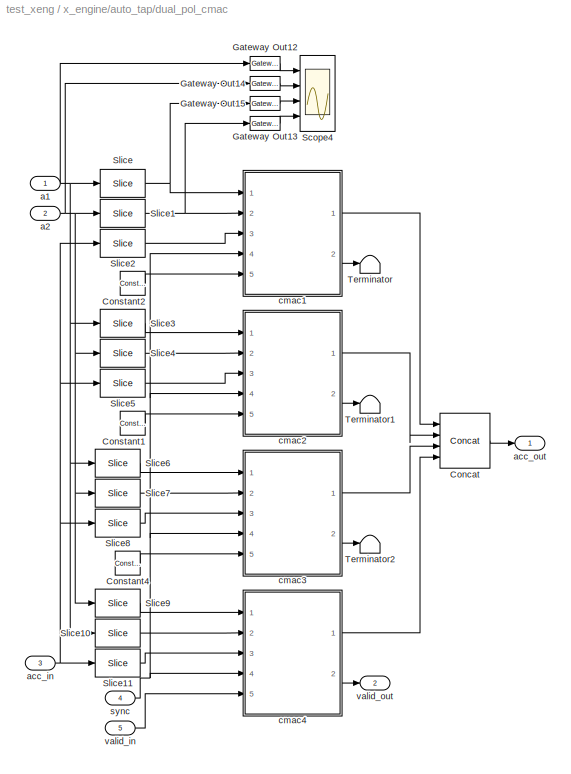
BLOCK [SubSystem] x_engine/auto_tap/dual_pol_cmac
  MinAlgLoopOccurrences = off
  Ports = [5, 2]
  RTWSystemCode = Auto
  TreatAsAtomicUnit = off
BLOCK [Reference] x_engine/auto_tap/dual_pol_cmac/Concat  REF=xbsIndex_r3/Concat
  Ports = [4, 1]
  SourceBlock = xbsIndex_r3/Concat
  SourceType = Xilinx Bus Concatenator
  dbl_ovrd = off
  explicit_period = off
  num_inputs = 4
  period = 1
BLOCK [Reference] x_engine/auto_tap/dual_pol_cmac/Constant1  REF=xbsIndex_r3/Constant
  Ports = [0, 1]
  SourceBlock = xbsIndex_r3/Constant
  SourceType = Xilinx Constant Block
  arith_type = Unsigned
  bin_pt = 0
  carry = CIN
  const = 0
  dbl_ovrd = off
  equ = P=C
  explicit_period = off
  inp1 = P
  inp2 = PCIN>>17
  iostate = 0
  n_bits = 1
  opr = +
  opselect = C
  period = 1
BLOCK [Reference] x_engine/auto_tap/dual_pol_cmac/Constant2  REF=xbsIndex_r3/Constant
  Ports = [0, 1]
  SourceBlock = xbsIndex_r3/Constant
  SourceType = Xilinx Constant Block
  arith_type = Unsigned
  bin_pt = 0
  carry = CIN
  const = 0
  dbl_ovrd = off
  equ = P=C
  explicit_period = off
  inp1 = P
  inp2 = PCIN>>17
  iostate = 0
  n_bits = 1
  opr = +
  opselect = C
  period = 1
BLOCK [Reference] x_engine/auto_tap/dual_pol_cmac/Constant4  REF=xbsIndex_r3/Constant
  Ports = [0, 1]
  SourceBlock = xbsIndex_r3/Constant
  SourceType = Xilinx Constant Block
  arith_type = Unsigned
  bin_pt = 0
  carry = CIN
  const = 0
  dbl_ovrd = off
  equ = P=C
  explicit_period = off
  inp1 = P
  inp2 = PCIN>>17
  iostate = 0
  n_bits = 1
  opr = +
  opselect = C
  period = 1
BLOCK [Reference] x_engine/auto_tap/dual_pol_cmac/Gateway Out12  REF=xbsIndex_r3/Gateway Out
  LOCs = {}
  Ports = [1, 1]
  SourceBlock = xbsIndex_r3/Gateway Out
  SourceType = Xilinx Gateway Out
  arith_type = Boolean
  bin_pt = 6
  hdl_port = off
  locs_specified = off
  nbits = 8
  needs_fixed_name = off
  output_type = Double
  overflow = Wrap
  quantization = Truncate
  show_param = off
  timing_constraint = None
  xl_area = [0, 0, 0, 0, 0, 0, 0]
  xl_use_area = off
BLOCK [Reference] x_engine/auto_tap/dual_pol_cmac/Gateway Out13  REF=xbsIndex_r3/Gateway Out
  LOCs = {}
  Ports = [1, 1]
  SourceBlock = xbsIndex_r3/Gateway Out
  SourceType = Xilinx Gateway Out
  arith_type = Boolean
  bin_pt = 6
  hdl_port = off
  locs_specified = off
  nbits = 8
  needs_fixed_name = off
  output_type = Double
  overflow = Wrap
  quantization = Truncate
  show_param = off
  timing_constraint = None
  xl_area = [0, 0, 0, 0, 0, 0, 0]
  xl_use_area = off
BLOCK [Reference] x_engine/auto_tap/dual_pol_cmac/Gateway Out14  REF=xbsIndex_r3/Gateway Out
  LOCs = {}
  Ports = [1, 1]
  SourceBlock = xbsIndex_r3/Gateway Out
  SourceType = Xilinx Gateway Out
  arith_type = Boolean
  bin_pt = 6
  hdl_port = off
  locs_specified = off
  nbits = 8
  needs_fixed_name = off
  output_type = Double
  overflow = Wrap
  quantization = Truncate
  show_param = off
  timing_constraint = None
  xl_area = [0, 0, 0, 0, 0, 0, 0]
  xl_use_area = off
BLOCK [Reference] x_engine/auto_tap/dual_pol_cmac/Gateway Out15  REF=xbsIndex_r3/Gateway Out
  LOCs = {}
  Ports = [1, 1]
  SourceBlock = xbsIndex_r3/Gateway Out
  SourceType = Xilinx Gateway Out
  arith_type = Boolean
  bin_pt = 6
  hdl_port = off
  locs_specified = off
  nbits = 8
  needs_fixed_name = off
  output_type = Double
  overflow = Wrap
  quantization = Truncate
  show_param = off
  timing_constraint = None
  xl_area = [0, 0, 0, 0, 0, 0, 0]
  xl_use_area = off
BLOCK [Scope] x_engine/auto_tap/dual_pol_cmac/Scope4
  DataFormat = StructureWithTime
  LimitDataPoints = off
  NumInputPorts = 4
  Ports = [4]
  SaveName = ScopeData14
  YMax = 17476~17476~1~1
  YMin = 17476~17476~-1~-1
  ZoomMode = xonly
BLOCK [Reference] x_engine/auto_tap/dual_pol_cmac/Slice  REF=xbsIndex_r3/Slice
  Ports = [1, 1]
  SourceBlock = xbsIndex_r3/Slice
  SourceType = Xilinx Slice Block
  base0 = LSB of Input
  base1 = MSB of Input
  bit0 = 0
  bit1 = 0
  boolean_output = off
  dbl_ovrd = off
  explicit_period = off
  mode = Upper Bit Location + Width
  nbits = 2*n_bits
  period = 1
BLOCK [Reference] x_engine/auto_tap/dual_pol_cmac/Slice1  REF=xbsIndex_r3/Slice
  Ports = [1, 1]
  SourceBlock = xbsIndex_r3/Slice
  SourceType = Xilinx Slice Block
  base0 = LSB of Input
  base1 = MSB of Input
  bit0 = 0
  bit1 = 0
  boolean_output = off
  dbl_ovrd = off
  explicit_period = off
  mode = Upper Bit Location + Width
  nbits = 2*n_bits
  period = 1
BLOCK [Reference] x_engine/auto_tap/dual_pol_cmac/Slice10  REF=xbsIndex_r3/Slice
  Ports = [1, 1]
  SourceBlock = xbsIndex_r3/Slice
  SourceType = Xilinx Slice Block
  base0 = LSB of Input
  base1 = MSB of Input
  bit0 = 0
  bit1 = -2*n_bits
  boolean_output = off
  dbl_ovrd = off
  explicit_period = off
  mode = Upper Bit Location + Width
  nbits = 2*n_bits
  period = 1
BLOCK [Reference] x_engine/auto_tap/dual_pol_cmac/Slice11  REF=xbsIndex_r3/Slice
  Ports = [1, 1]
  SourceBlock = xbsIndex_r3/Slice
  SourceType = Xilinx Slice Block
  base0 = LSB of Input
  base1 = MSB of Input
  bit0 = 0
  bit1 = -6*n_bits_out
  boolean_output = off
  dbl_ovrd = off
  explicit_period = off
  mode = Upper Bit Location + Width
  nbits = 2*n_bits_out
  period = 1
BLOCK [Reference] x_engine/auto_tap/dual_pol_cmac/Slice2  REF=xbsIndex_r3/Slice
  Ports = [1, 1]
  SourceBlock = xbsIndex_r3/Slice
  SourceType = Xilinx Slice Block
  base0 = LSB of Input
  base1 = MSB of Input
  bit0 = 0
  bit1 = 0
  boolean_output = off
  dbl_ovrd = off
  explicit_period = off
  mode = Upper Bit Location + Width
  nbits = 2*n_bits_out
  period = 1
BLOCK [Reference] x_engine/auto_tap/dual_pol_cmac/Slice3  REF=xbsIndex_r3/Slice
  Ports = [1, 1]
  SourceBlock = xbsIndex_r3/Slice
  SourceType = Xilinx Slice Block
  base0 = LSB of Input
  base1 = MSB of Input
  bit0 = 0
  bit1 = -2*n_bits
  boolean_output = off
  dbl_ovrd = off
  explicit_period = off
  mode = Upper Bit Location + Width
  nbits = 2*n_bits
  period = 1
BLOCK [Reference] x_engine/auto_tap/dual_pol_cmac/Slice4  REF=xbsIndex_r3/Slice
  Ports = [1, 1]
  SourceBlock = xbsIndex_r3/Slice
  SourceType = Xilinx Slice Block
  base0 = LSB of Input
  base1 = MSB of Input
  bit0 = 0
  bit1 = -2*n_bits
  boolean_output = off
  dbl_ovrd = off
  explicit_period = off
  mode = Upper Bit Location + Width
  nbits = 2*n_bits
  period = 1
BLOCK [Reference] x_engine/auto_tap/dual_pol_cmac/Slice5  REF=xbsIndex_r3/Slice
  Ports = [1, 1]
  SourceBlock = xbsIndex_r3/Slice
  SourceType = Xilinx Slice Block
  base0 = LSB of Input
  base1 = MSB of Input
  bit0 = 0
  bit1 = -2*n_bits_out
  boolean_output = off
  dbl_ovrd = off
  explicit_period = off
  mode = Upper Bit Location + Width
  nbits = 2*n_bits_out
  period = 1
BLOCK [Reference] x_engine/auto_tap/dual_pol_cmac/Slice6  REF=xbsIndex_r3/Slice
  Ports = [1, 1]
  SourceBlock = xbsIndex_r3/Slice
  SourceType = Xilinx Slice Block
  base0 = LSB of Input
  base1 = MSB of Input
  bit0 = 0
  bit1 = 0
  boolean_output = off
  dbl_ovrd = off
  explicit_period = off
  mode = Upper Bit Location + Width
  nbits = 2*n_bits
  period = 1
BLOCK [Reference] x_engine/auto_tap/dual_pol_cmac/Slice7  REF=xbsIndex_r3/Slice
  Ports = [1, 1]
  SourceBlock = xbsIndex_r3/Slice
  SourceType = Xilinx Slice Block
  base0 = LSB of Input
  base1 = MSB of Input
  bit0 = 0
  bit1 = -2*n_bits
  boolean_output = off
  dbl_ovrd = off
  explicit_period = off
  mode = Upper Bit Location + Width
  nbits = 2*n_bits
  period = 1
BLOCK [Reference] x_engine/auto_tap/dual_pol_cmac/Slice8  REF=xbsIndex_r3/Slice
  Ports = [1, 1]
  SourceBlock = xbsIndex_r3/Slice
  SourceType = Xilinx Slice Block
  base0 = LSB of Input
  base1 = MSB of Input
  bit0 = 0
  bit1 = -4*n_bits_out
  boolean_output = off
  dbl_ovrd = off
  explicit_period = off
  mode = Upper Bit Location + Width
  nbits = 2*n_bits_out
  period = 1
BLOCK [Reference] x_engine/auto_tap/dual_pol_cmac/Slice9  REF=xbsIndex_r3/Slice
  Ports = [1, 1]
  SourceBlock = xbsIndex_r3/Slice
  SourceType = Xilinx Slice Block
  base0 = LSB of Input
  base1 = MSB of Input
  bit0 = 0
  bit1 = 0
  boolean_output = off
  dbl_ovrd = off
  explicit_period = off
  mode = Upper Bit Location + Width
  nbits = 2*n_bits
  period = 1
BLOCK [Terminator] x_engine/auto_tap/dual_pol_cmac/Terminator
BLOCK [Terminator] x_engine/auto_tap/dual_pol_cmac/Terminator1
BLOCK [Terminator] x_engine/auto_tap/dual_pol_cmac/Terminator2
BLOCK [Inport] x_engine/auto_tap/dual_pol_cmac/a1
  IconDisplay = Port number
  LatchInput = off
  Port = 1
BLOCK [Inport] x_engine/auto_tap/dual_pol_cmac/a2
  IconDisplay = Port number
  LatchInput = off
  Port = 2
BLOCK [Inport] x_engine/auto_tap/dual_pol_cmac/acc_in
  IconDisplay = Port number
  LatchInput = off
  Port = 3
BLOCK [Outport] x_engine/auto_tap/dual_pol_cmac/acc_out
  BusOutputAsStruct = off
  IconDisplay = Port number
BLOCK [SubSystem] x_engine/auto_tap/dual_pol_cmac/cmac1
  MinAlgLoopOccurrences = off
  Ports = [5, 2]
  RTWSystemCode = Auto
  TreatAsAtomicUnit = off
BLOCK [Reference] x_engine/auto_tap/dual_pol_cmac/cmac1/Constant1  REF=xbsIndex_r3/Constant
  Ports = [0, 1]
  SourceBlock = xbsIndex_r3/Constant
  SourceType = Xilinx Constant Block
  arith_type = Unsigned
  bin_pt = 0
  carry = CIN
  const = 0
  dbl_ovrd = off
  equ = P=C
  explicit_period = off
  inp1 = P
  inp2 = PCIN>>17
  iostate = 0
  n_bits = bit_growth
  opr = +
  opselect = C
  period = 1
BLOCK [Reference] x_engine/auto_tap/dual_pol_cmac/cmac1/Constant2  REF=xbsIndex_r3/Constant
  Ports = [0, 1]
  SourceBlock = xbsIndex_r3/Constant
  SourceType = Xilinx Constant Block
  arith_type = Unsigned
  bin_pt = 0
  carry = CIN
  const = 0
  dbl_ovrd = off
  equ = P=C
  explicit_period = off
  inp1 = P
  inp2 = PCIN>>17
  iostate = 0
  n_bits = 1
  opr = +
  opselect = C
  period = 1
BLOCK [Reference] x_engine/auto_tap/dual_pol_cmac/cmac1/Counter  REF=xbsIndex_r3/Counter
  Ports = [1, 1]
  SourceBlock = xbsIndex_r3/Counter
  SourceType = Xilinx Counter Block
  arith_type = Unsigned
  bin_pt = 0
  cnt_by_val = 1
  cnt_to = acc_len - 1
  cnt_type = Count Limited
  dbl_ovrd = off
  en = off
  explicit_period = off
  gen_core = off
  load_pin = off
  n_bits = bit_growth
  operation = Up
  period = 1
  rst = on
  show_param = off
  start_count = 0
  use_rpm = on
  xl_area = [0, 0, 0, 0, 0, 0, 0]
  xl_use_area = off
BLOCK [Reference] x_engine/auto_tap/dual_pol_cmac/cmac1/Delay  REF=xbsIndex_r3/Delay
  Ports = [1, 1]
  SourceBlock = xbsIndex_r3/Delay
  SourceType = Xilinx Delay Block
  accept_only_valid = off
  dbl_ovrd = off
  en = off
  explicit_period = off
  init_zero = on
  latency = add_latency + mult_latency - 1
  period = 1
  reg_retiming = off
  show_param = off
  xl_area = [0, 0, 0, 0, 0, 0, 0]
  xl_use_area = off
BLOCK [Reference] x_engine/auto_tap/dual_pol_cmac/cmac1/Gateway Out1  REF=xbsIndex_r3/Gateway Out
  LOCs = {}
  Ports = [1, 1]
  SourceBlock = xbsIndex_r3/Gateway Out
  SourceType = Xilinx Gateway Out
  arith_type = Boolean
  bin_pt = 6
  hdl_port = off
  locs_specified = off
  nbits = 8
  needs_fixed_name = off
  output_type = Double
  overflow = Wrap
  quantization = Truncate
  show_param = off
  timing_constraint = None
  xl_area = [0, 0, 0, 0, 0, 0, 0]
  xl_use_area = off
BLOCK [Reference] x_engine/auto_tap/dual_pol_cmac/cmac1/Gateway Out16  REF=xbsIndex_r3/Gateway Out
  LOCs = {}
  Ports = [1, 1]
  SourceBlock = xbsIndex_r3/Gateway Out
  SourceType = Xilinx Gateway Out
  arith_type = Boolean
  bin_pt = 6
  hdl_port = off
  locs_specified = off
  nbits = 8
  needs_fixed_name = off
  output_type = Double
  overflow = Wrap
  quantization = Truncate
  show_param = off
  timing_constraint = None
  xl_area = [0, 0, 0, 0, 0, 0, 0]
  xl_use_area = off
BLOCK [Reference] x_engine/auto_tap/dual_pol_cmac/cmac1/Gateway Out17  REF=xbsIndex_r3/Gateway Out
  LOCs = {}
  Ports = [1, 1]
  SourceBlock = xbsIndex_r3/Gateway Out
  SourceType = Xilinx Gateway Out
  arith_type = Boolean
  bin_pt = 6
  hdl_port = off
  locs_specified = off
  nbits = 8
  needs_fixed_name = off
  output_type = Double
  overflow = Wrap
  quantization = Truncate
  show_param = off
  timing_constraint = None
  xl_area = [0, 0, 0, 0, 0, 0, 0]
  xl_use_area = off
BLOCK [Reference] x_engine/auto_tap/dual_pol_cmac/cmac1/Gateway Out2  REF=xbsIndex_r3/Gateway Out
  LOCs = {}
  Ports = [1, 1]
  SourceBlock = xbsIndex_r3/Gateway Out
  SourceType = Xilinx Gateway Out
  arith_type = Boolean
  bin_pt = 6
  hdl_port = off
  locs_specified = off
  nbits = 8
  needs_fixed_name = off
  output_type = Double
  overflow = Wrap
  quantization = Truncate
  show_param = off
  timing_constraint = None
  xl_area = [0, 0, 0, 0, 0, 0, 0]
  xl_use_area = off
BLOCK [Reference] x_engine/auto_tap/dual_pol_cmac/cmac1/Gateway Out3  REF=xbsIndex_r3/Gateway Out
  LOCs = {}
  Ports = [1, 1]
  SourceBlock = xbsIndex_r3/Gateway Out
  SourceType = Xilinx Gateway Out
  arith_type = Boolean
  bin_pt = 6
  hdl_port = off
  locs_specified = off
  nbits = 8
  needs_fixed_name = off
  output_type = Double
  overflow = Wrap
  quantization = Truncate
  show_param = off
  timing_constraint = None
  xl_area = [0, 0, 0, 0, 0, 0, 0]
  xl_use_area = off
BLOCK [Reference] x_engine/auto_tap/dual_pol_cmac/cmac1/Gateway Out4  REF=xbsIndex_r3/Gateway Out
  LOCs = {}
  Ports = [1, 1]
  SourceBlock = xbsIndex_r3/Gateway Out
  SourceType = Xilinx Gateway Out
  arith_type = Boolean
  bin_pt = 6
  hdl_port = off
  locs_specified = off
  nbits = 8
  needs_fixed_name = off
  output_type = Double
  overflow = Wrap
  quantization = Truncate
  show_param = off
  timing_constraint = None
  xl_area = [0, 0, 0, 0, 0, 0, 0]
  xl_use_area = off
BLOCK [Reference] x_engine/auto_tap/dual_pol_cmac/cmac1/Gateway Out5  REF=xbsIndex_r3/Gateway Out
  LOCs = {}
  Ports = [1, 1]
  SourceBlock = xbsIndex_r3/Gateway Out
  SourceType = Xilinx Gateway Out
  arith_type = Boolean
  bin_pt = 6
  hdl_port = off
  locs_specified = off
  nbits = 8
  needs_fixed_name = off
  output_type = Double
  overflow = Wrap
  quantization = Truncate
  show_param = off
  timing_constraint = None
  xl_area = [0, 0, 0, 0, 0, 0, 0]
  xl_use_area = off
BLOCK [Reference] x_engine/auto_tap/dual_pol_cmac/cmac1/Gateway Out6  REF=xbsIndex_r3/Gateway Out
  LOCs = {}
  Ports = [1, 1]
  SourceBlock = xbsIndex_r3/Gateway Out
  SourceType = Xilinx Gateway Out
  arith_type = Boolean
  bin_pt = 6
  hdl_port = off
  locs_specified = off
  nbits = 8
  needs_fixed_name = off
  output_type = Double
  overflow = Wrap
  quantization = Truncate
  show_param = off
  timing_constraint = None
  xl_area = [0, 0, 0, 0, 0, 0, 0]
  xl_use_area = off
BLOCK [Reference] x_engine/auto_tap/dual_pol_cmac/cmac1/Relational  REF=xbsIndex_r3/Relational
  Ports = [2, 1]
  SourceBlock = xbsIndex_r3/Relational
  SourceType = Xilinx Relational Block
  dbl_ovrd = off
  en = off
  explicit_period = off
  latency = 1
  mode = a=b
  period = 1
  show_param = off
  xl_area = [0, 0, 0, 0, 0, 0, 0]
  xl_use_area = off
BLOCK [Scope] x_engine/auto_tap/dual_pol_cmac/cmac1/Scope1
  DataFormat = StructureWithTime
  LimitDataPoints = off
  NumInputPorts = 2
  Ports = [2]
  SaveName = ScopeData10
  YMax = 18000~1
  YMin = 0~0
  ZoomMode = xonly
BLOCK [Scope] x_engine/auto_tap/dual_pol_cmac/cmac1/Scope2
  DataFormat = StructureWithTime
  LimitDataPoints = off
  NumInputPorts = 2
  Ports = [2]
  SaveName = ScopeData12
  YMax = 18000~1
  YMin = 0~0
  ZoomMode = xonly
BLOCK [Scope] x_engine/auto_tap/dual_pol_cmac/cmac1/Scope3
  DataFormat = StructureWithTime
  LimitDataPoints = off
  NumInputPorts = 2
  Ports = [2]
  SaveName = ScopeData13
  YMax = 18000~1
  YMin = 0~0
  ZoomMode = xonly
BLOCK [Scope] x_engine/auto_tap/dual_pol_cmac/cmac1/Scope5
  DataFormat = StructureWithTime
  LimitDataPoints = off
  NumInputPorts = 2
  Ports = [2]
  SaveName = ScopeData11
  YMax = 1~1
  YMin = -1~-1
  ZoomMode = xonly
BLOCK [Terminator] x_engine/auto_tap/dual_pol_cmac/cmac1/Terminator
BLOCK [Inport] x_engine/auto_tap/dual_pol_cmac/cmac1/a+bi
  IconDisplay = Port number
  LatchInput = off
  Port = 1
BLOCK [SubSystem] x_engine/auto_tap/dual_pol_cmac/cmac1/acc
  MinAlgLoopOccurrences = off
  Ports = [4, 2]
  RTWSystemCode = Auto
  TreatAsAtomicUnit = off
BLOCK [Reference] x_engine/auto_tap/dual_pol_cmac/cmac1/acc/Accumulator  REF=xbsIndex_r3/Accumulator
  Ports = [2, 1]
  SourceBlock = xbsIndex_r3/Accumulator
  SourceType = Xilinx Accumulator
  dbl_ovrd = off
  en = off
  explicit_period = on
  gen_core = off
  hasbypass = on
  n_bits = n_bits_out
  operation = Add
  overflow = Wrap
  period = 1
  rst = on
  scale = 1
  show_param = off
  use_rpm = on
  xl_area = [0, 0, 0, 0, 0, 0, 0]
  xl_use_area = off
BLOCK [Reference] x_engine/auto_tap/dual_pol_cmac/cmac1/acc/Constant  REF=xbsIndex_r3/Constant
  Ports = [0, 1]
  SourceBlock = xbsIndex_r3/Constant
  SourceType = Xilinx Constant Block
  arith_type = Boolean
  bin_pt = 0
  carry = CIN
  const = 1
  dbl_ovrd = off
  equ = P=C
  explicit_period = on
  inp1 = P
  inp2 = PCIN>>17
  iostate = 0
  n_bits = 1
  opr = +
  opselect = C
  period = 1
BLOCK [Reference] x_engine/auto_tap/dual_pol_cmac/cmac1/acc/Convert1  REF=xbsIndex_r3/Convert
  Ports = [1, 1]
  SourceBlock = xbsIndex_r3/Convert
  SourceType = Xilinx Converter Block
  arith_type = Signed  (2's comp)
  bin_pt = 2*(n_bits-1)
  dbl_ovrd = off
  explicit_period = off
  inserted_by_tool = off
  latency = 0
  n_bits = n_bits_out
  overflow = Wrap
  period = 1
  pipeline = off
  quantization = Truncate
  show_param = on
  xl_area = [0, 0, 0, 0, 0, 0, 0]
  xl_use_area = off
BLOCK [Reference] x_engine/auto_tap/dual_pol_cmac/cmac1/acc/Convert2  REF=xbsIndex_r3/Convert
  Ports = [1, 1]
  SourceBlock = xbsIndex_r3/Convert
  SourceType = Xilinx Converter Block
  arith_type = Boolean
  bin_pt = 6
  dbl_ovrd = off
  explicit_period = off
  inserted_by_tool = off
  latency = 0
  n_bits = 8
  overflow = Wrap
  period = 1
  pipeline = off
  quantization = Truncate
  show_param = off
  xl_area = [0, 0, 0, 0, 0, 0, 0]
  xl_use_area = off
BLOCK [Reference] x_engine/auto_tap/dual_pol_cmac/cmac1/acc/Delay  REF=xbsIndex_r3/Delay
  Ports = [1, 1]
  SourceBlock = xbsIndex_r3/Delay
  SourceType = Xilinx Delay Block
  accept_only_valid = off
  dbl_ovrd = off
  en = off
  explicit_period = off
  init_zero = on
  latency = 0
  period = 1
  reg_retiming = off
  show_param = off
  xl_area = [0, 0, 0, 0, 0, 0, 0]
  xl_use_area = off
BLOCK [Reference] x_engine/auto_tap/dual_pol_cmac/cmac1/acc/Delay1  REF=xbsIndex_r3/Delay
  Ports = [1, 1]
  SourceBlock = xbsIndex_r3/Delay
  SourceType = Xilinx Delay Block
  accept_only_valid = off
  dbl_ovrd = off
  en = off
  explicit_period = off
  init_zero = on
  latency = 0
  period = 1
  reg_retiming = off
  show_param = off
  xl_area = [0, 0, 0, 0, 0, 0, 0]
  xl_use_area = off
BLOCK [Reference] x_engine/auto_tap/dual_pol_cmac/cmac1/acc/Mux2  REF=xbsIndex_r3/Mux
  Ports = [3, 1]
  SourceBlock = xbsIndex_r3/Mux
  SourceType = Xilinx Multiplexer Block
  arith_type = Signed  (2's comp)
  bin_pt = 0
  dbl_ovrd = off
  en = off
  explicit_period = on
  gen_core = off
  inputs = 2
  latency = 2
  mux_type = off
  n_bits = 0
  overflow = Wrap
  period = 1
  precision = Full
  quantization = Round  (unbiased: +/- Inf)
  show_param = off
  use_rpm = off
  xl_area = [0, 0, 0, 0, 0, 0, 0]
  xl_use_area = off
BLOCK [Reference] x_engine/auto_tap/dual_pol_cmac/cmac1/acc/Mux3  REF=xbsIndex_r3/Mux
  Ports = [3, 1]
  SourceBlock = xbsIndex_r3/Mux
  SourceType = Xilinx Multiplexer Block
  arith_type = Signed  (2's comp)
  bin_pt = 0
  dbl_ovrd = off
  en = off
  explicit_period = on
  gen_core = off
  inputs = 2
  latency = 2
  mux_type = off
  n_bits = 0
  overflow = Wrap
  period = 1
  precision = Full
  quantization = Truncate
  show_param = off
  use_rpm = off
  xl_area = [0, 0, 0, 0, 0, 0, 0]
  xl_use_area = off
BLOCK [Inport] x_engine/auto_tap/dual_pol_cmac/cmac1/acc/acc_in
  IconDisplay = Port number
  LatchInput = off
  Port = 3
BLOCK [Outport] x_engine/auto_tap/dual_pol_cmac/cmac1/acc/acc_out
  BusOutputAsStruct = off
  IconDisplay = Port number
BLOCK [Inport] x_engine/auto_tap/dual_pol_cmac/cmac1/acc/din
  IconDisplay = Port number
  LatchInput = off
  Port = 2
BLOCK [Inport] x_engine/auto_tap/dual_pol_cmac/cmac1/acc/rst
  IconDisplay = Port number
  LatchInput = off
  Port = 1
BLOCK [Inport] x_engine/auto_tap/dual_pol_cmac/cmac1/acc/valid_in
  IconDisplay = Port number
  LatchInput = off
  Port = 4
BLOCK [Outport] x_engine/auto_tap/dual_pol_cmac/cmac1/acc/valid_out
  BusOutputAsStruct = off
  IconDisplay = Port number
  Port = 2
BLOCK [SubSystem] x_engine/auto_tap/dual_pol_cmac/cmac1/acc1
  MinAlgLoopOccurrences = off
  Ports = [4, 2]
  RTWSystemCode = Auto
  TreatAsAtomicUnit = off
BLOCK [Reference] x_engine/auto_tap/dual_pol_cmac/cmac1/acc1/Accumulator  REF=xbsIndex_r3/Accumulator
  Ports = [2, 1]
  SourceBlock = xbsIndex_r3/Accumulator
  SourceType = Xilinx Accumulator
  dbl_ovrd = off
  en = off
  explicit_period = on
  gen_core = off
  hasbypass = on
  n_bits = n_bits_out
  operation = Add
  overflow = Wrap
  period = 1
  rst = on
  scale = 1
  show_param = off
  use_rpm = on
  xl_area = [0, 0, 0, 0, 0, 0, 0]
  xl_use_area = off
BLOCK [Reference] x_engine/auto_tap/dual_pol_cmac/cmac1/acc1/Constant  REF=xbsIndex_r3/Constant
  Ports = [0, 1]
  SourceBlock = xbsIndex_r3/Constant
  SourceType = Xilinx Constant Block
  arith_type = Boolean
  bin_pt = 0
  carry = CIN
  const = 1
  dbl_ovrd = off
  equ = P=C
  explicit_period = on
  inp1 = P
  inp2 = PCIN>>17
  iostate = 0
  n_bits = 1
  opr = +
  opselect = C
  period = 1
BLOCK [Reference] x_engine/auto_tap/dual_pol_cmac/cmac1/acc1/Convert1  REF=xbsIndex_r3/Convert
  Ports = [1, 1]
  SourceBlock = xbsIndex_r3/Convert
  SourceType = Xilinx Converter Block
  arith_type = Signed  (2's comp)
  bin_pt = 2*(n_bits-1)
  dbl_ovrd = off
  explicit_period = off
  inserted_by_tool = off
  latency = 0
  n_bits = n_bits_out
  overflow = Wrap
  period = 1
  pipeline = off
  quantization = Truncate
  show_param = on
  xl_area = [0, 0, 0, 0, 0, 0, 0]
  xl_use_area = off
BLOCK [Reference] x_engine/auto_tap/dual_pol_cmac/cmac1/acc1/Convert2  REF=xbsIndex_r3/Convert
  Ports = [1, 1]
  SourceBlock = xbsIndex_r3/Convert
  SourceType = Xilinx Converter Block
  arith_type = Boolean
  bin_pt = 6
  dbl_ovrd = off
  explicit_period = off
  inserted_by_tool = off
  latency = 0
  n_bits = 8
  overflow = Wrap
  period = 1
  pipeline = off
  quantization = Truncate
  show_param = off
  xl_area = [0, 0, 0, 0, 0, 0, 0]
  xl_use_area = off
BLOCK [Reference] x_engine/auto_tap/dual_pol_cmac/cmac1/acc1/Delay  REF=xbsIndex_r3/Delay
  Ports = [1, 1]
  SourceBlock = xbsIndex_r3/Delay
  SourceType = Xilinx Delay Block
  accept_only_valid = off
  dbl_ovrd = off
  en = off
  explicit_period = off
  init_zero = on
  latency = 0
  period = 1
  reg_retiming = off
  show_param = off
  xl_area = [0, 0, 0, 0, 0, 0, 0]
  xl_use_area = off
BLOCK [Reference] x_engine/auto_tap/dual_pol_cmac/cmac1/acc1/Delay1  REF=xbsIndex_r3/Delay
  Ports = [1, 1]
  SourceBlock = xbsIndex_r3/Delay
  SourceType = Xilinx Delay Block
  accept_only_valid = off
  dbl_ovrd = off
  en = off
  explicit_period = off
  init_zero = on
  latency = 0
  period = 1
  reg_retiming = off
  show_param = off
  xl_area = [0, 0, 0, 0, 0, 0, 0]
  xl_use_area = off
BLOCK [Reference] x_engine/auto_tap/dual_pol_cmac/cmac1/acc1/Mux2  REF=xbsIndex_r3/Mux
  Ports = [3, 1]
  SourceBlock = xbsIndex_r3/Mux
  SourceType = Xilinx Multiplexer Block
  arith_type = Signed  (2's comp)
  bin_pt = 0
  dbl_ovrd = off
  en = off
  explicit_period = on
  gen_core = off
  inputs = 2
  latency = 2
  mux_type = off
  n_bits = 0
  overflow = Wrap
  period = 1
  precision = Full
  quantization = Round  (unbiased: +/- Inf)
  show_param = off
  use_rpm = off
  xl_area = [0, 0, 0, 0, 0, 0, 0]
  xl_use_area = off
BLOCK [Reference] x_engine/auto_tap/dual_pol_cmac/cmac1/acc1/Mux3  REF=xbsIndex_r3/Mux
  Ports = [3, 1]
  SourceBlock = xbsIndex_r3/Mux
  SourceType = Xilinx Multiplexer Block
  arith_type = Signed  (2's comp)
  bin_pt = 0
  dbl_ovrd = off
  en = off
  explicit_period = on
  gen_core = off
  inputs = 2
  latency = 2
  mux_type = off
  n_bits = 0
  overflow = Wrap
  period = 1
  precision = Full
  quantization = Truncate
  show_param = off
  use_rpm = off
  xl_area = [0, 0, 0, 0, 0, 0, 0]
  xl_use_area = off
BLOCK [Inport] x_engine/auto_tap/dual_pol_cmac/cmac1/acc1/acc_in
  IconDisplay = Port number
  LatchInput = off
  Port = 3
BLOCK [Outport] x_engine/auto_tap/dual_pol_cmac/cmac1/acc1/acc_out
  BusOutputAsStruct = off
  IconDisplay = Port number
BLOCK [Inport] x_engine/auto_tap/dual_pol_cmac/cmac1/acc1/din
  IconDisplay = Port number
  LatchInput = off
  Port = 2
BLOCK [Inport] x_engine/auto_tap/dual_pol_cmac/cmac1/acc1/rst
  IconDisplay = Port number
  LatchInput = off
  Port = 1
BLOCK [Inport] x_engine/auto_tap/dual_pol_cmac/cmac1/acc1/valid_in
  IconDisplay = Port number
  LatchInput = off
  Port = 4
BLOCK [Outport] x_engine/auto_tap/dual_pol_cmac/cmac1/acc1/valid_out
  BusOutputAsStruct = off
  IconDisplay = Port number
  Port = 2
BLOCK [Inport] x_engine/auto_tap/dual_pol_cmac/cmac1/acc_in
  IconDisplay = Port number
  LatchInput = off
  Port = 3
BLOCK [Outport] x_engine/auto_tap/dual_pol_cmac/cmac1/acc_out
  BusOutputAsStruct = off
  IconDisplay = Port number
BLOCK [Inport] x_engine/auto_tap/dual_pol_cmac/cmac1/c+di
  IconDisplay = Port number
  LatchInput = off
  Port = 2
BLOCK [SubSystem] x_engine/auto_tap/dual_pol_cmac/cmac1/c_to_ri
  MinAlgLoopOccurrences = off
  Ports = [1, 2]
  RTWSystemCode = Auto
  TreatAsAtomicUnit = off
BLOCK [Inport] x_engine/auto_tap/dual_pol_cmac/cmac1/c_to_ri/In1
  IconDisplay = Port number
  LatchInput = off
  Port = 1
BLOCK [Outport] x_engine/auto_tap/dual_pol_cmac/cmac1/c_to_ri/Out1
  BusOutputAsStruct = off
  IconDisplay = Port number
BLOCK [Outport] x_engine/auto_tap/dual_pol_cmac/cmac1/c_to_ri/Out2
  BusOutputAsStruct = off
  IconDisplay = Port number
  Port = 2
BLOCK [Reference] x_engine/auto_tap/dual_pol_cmac/cmac1/c_to_ri/Reinterpret  REF=xbsIndex_r3/Reinterpret
  Ports = [1, 1]
  SourceBlock = xbsIndex_r3/Reinterpret
  SourceType = Xilinx Type Reinterpreting Block
  arith_type = Signed  (2's comp)
  bin_pt = n_bits - 1
  force_arith_type = on
  force_bin_pt = on
  force_valid = on
BLOCK [Reference] x_engine/auto_tap/dual_pol_cmac/cmac1/c_to_ri/Reinterpret1  REF=xbsIndex_r3/Reinterpret
  Ports = [1, 1]
  SourceBlock = xbsIndex_r3/Reinterpret
  SourceType = Xilinx Type Reinterpreting Block
  arith_type = Signed  (2's comp)
  bin_pt = n_bits - 1
  force_arith_type = on
  force_bin_pt = on
  force_valid = on
BLOCK [Reference] x_engine/auto_tap/dual_pol_cmac/cmac1/c_to_ri/Slice  REF=xbsIndex_r3/Slice
  Ports = [1, 1]
  SourceBlock = xbsIndex_r3/Slice
  SourceType = Xilinx Slice Block
  base0 = LSB of Input
  base1 = MSB of Input
  bit0 = 0
  bit1 = 0
  boolean_output = off
  dbl_ovrd = off
  explicit_period = off
  mode = Upper Bit Location + Width
  nbits = n_bits
  period = 1
BLOCK [Reference] x_engine/auto_tap/dual_pol_cmac/cmac1/c_to_ri/Slice1  REF=xbsIndex_r3/Slice
  Ports = [1, 1]
  SourceBlock = xbsIndex_r3/Slice
  SourceType = Xilinx Slice Block
  base0 = LSB of Input
  base1 = MSB of Input
  bit0 = 0
  bit1 = 0
  boolean_output = off
  dbl_ovrd = off
  explicit_period = off
  mode = Lower Bit Location + Width
  nbits = n_bits
  period = 1
BLOCK [SubSystem] x_engine/auto_tap/dual_pol_cmac/cmac1/c_to_ri1
  MinAlgLoopOccurrences = off
  Ports = [1, 2]
  RTWSystemCode = Auto
  TreatAsAtomicUnit = off
BLOCK [Inport] x_engine/auto_tap/dual_pol_cmac/cmac1/c_to_ri1/In1
  IconDisplay = Port number
  LatchInput = off
  Port = 1
BLOCK [Outport] x_engine/auto_tap/dual_pol_cmac/cmac1/c_to_ri1/Out1
  BusOutputAsStruct = off
  IconDisplay = Port number
BLOCK [Outport] x_engine/auto_tap/dual_pol_cmac/cmac1/c_to_ri1/Out2
  BusOutputAsStruct = off
  IconDisplay = Port number
  Port = 2
BLOCK [Reference] x_engine/auto_tap/dual_pol_cmac/cmac1/c_to_ri1/Reinterpret  REF=xbsIndex_r3/Reinterpret
  Ports = [1, 1]
  SourceBlock = xbsIndex_r3/Reinterpret
  SourceType = Xilinx Type Reinterpreting Block
  arith_type = Signed  (2's comp)
  bin_pt = n_bits - 1
  force_arith_type = on
  force_bin_pt = on
  force_valid = on
BLOCK [Reference] x_engine/auto_tap/dual_pol_cmac/cmac1/c_to_ri1/Reinterpret1  REF=xbsIndex_r3/Reinterpret
  Ports = [1, 1]
  SourceBlock = xbsIndex_r3/Reinterpret
  SourceType = Xilinx Type Reinterpreting Block
  arith_type = Signed  (2's comp)
  bin_pt = n_bits - 1
  force_arith_type = on
  force_bin_pt = on
  force_valid = on
BLOCK [Reference] x_engine/auto_tap/dual_pol_cmac/cmac1/c_to_ri1/Slice  REF=xbsIndex_r3/Slice
  Ports = [1, 1]
  SourceBlock = xbsIndex_r3/Slice
  SourceType = Xilinx Slice Block
  base0 = LSB of Input
  base1 = MSB of Input
  bit0 = 0
  bit1 = 0
  boolean_output = off
  dbl_ovrd = off
  explicit_period = off
  mode = Upper Bit Location + Width
  nbits = n_bits
  period = 1
BLOCK [Reference] x_engine/auto_tap/dual_pol_cmac/cmac1/c_to_ri1/Slice1  REF=xbsIndex_r3/Slice
  Ports = [1, 1]
  SourceBlock = xbsIndex_r3/Slice
  SourceType = Xilinx Slice Block
  base0 = LSB of Input
  base1 = MSB of Input
  bit0 = 0
  bit1 = 0
  boolean_output = off
  dbl_ovrd = off
  explicit_period = off
  mode = Lower Bit Location + Width
  nbits = n_bits
  period = 1
BLOCK [SubSystem] x_engine/auto_tap/dual_pol_cmac/cmac1/c_to_ri2
  MinAlgLoopOccurrences = off
  Ports = [1, 2]
  RTWSystemCode = Auto
  TreatAsAtomicUnit = off
BLOCK [Inport] x_engine/auto_tap/dual_pol_cmac/cmac1/c_to_ri2/In1
  IconDisplay = Port number
  LatchInput = off
  Port = 1
BLOCK [Outport] x_engine/auto_tap/dual_pol_cmac/cmac1/c_to_ri2/Out1
  BusOutputAsStruct = off
  IconDisplay = Port number
BLOCK [Outport] x_engine/auto_tap/dual_pol_cmac/cmac1/c_to_ri2/Out2
  BusOutputAsStruct = off
  IconDisplay = Port number
  Port = 2
BLOCK [Reference] x_engine/auto_tap/dual_pol_cmac/cmac1/c_to_ri2/Reinterpret  REF=xbsIndex_r3/Reinterpret
  Ports = [1, 1]
  SourceBlock = xbsIndex_r3/Reinterpret
  SourceType = Xilinx Type Reinterpreting Block
  arith_type = Signed  (2's comp)
  bin_pt = n_bits_out - bit_growth - 3
  force_arith_type = on
  force_bin_pt = on
  force_valid = on
BLOCK [Reference] x_engine/auto_tap/dual_pol_cmac/cmac1/c_to_ri2/Reinterpret1  REF=xbsIndex_r3/Reinterpret
  Ports = [1, 1]
  SourceBlock = xbsIndex_r3/Reinterpret
  SourceType = Xilinx Type Reinterpreting Block
  arith_type = Signed  (2's comp)
  bin_pt = n_bits_out - bit_growth - 3
  force_arith_type = on
  force_bin_pt = on
  force_valid = on
BLOCK [Reference] x_engine/auto_tap/dual_pol_cmac/cmac1/c_to_ri2/Slice  REF=xbsIndex_r3/Slice
  Ports = [1, 1]
  SourceBlock = xbsIndex_r3/Slice
  SourceType = Xilinx Slice Block
  base0 = LSB of Input
  base1 = MSB of Input
  bit0 = 0
  bit1 = 0
  boolean_output = off
  dbl_ovrd = off
  explicit_period = off
  mode = Upper Bit Location + Width
  nbits = n_bits_out
  period = 1
BLOCK [Reference] x_engine/auto_tap/dual_pol_cmac/cmac1/c_to_ri2/Slice1  REF=xbsIndex_r3/Slice
  Ports = [1, 1]
  SourceBlock = xbsIndex_r3/Slice
  SourceType = Xilinx Slice Block
  base0 = LSB of Input
  base1 = MSB of Input
  bit0 = 0
  bit1 = 0
  boolean_output = off
  dbl_ovrd = off
  explicit_period = off
  mode = Lower Bit Location + Width
  nbits = n_bits_out
  period = 1
BLOCK [SubSystem] x_engine/auto_tap/dual_pol_cmac/cmac1/cmult*
  AttributesFormatString = %<BlockChoice>
  BlockChoice = cmult_4bit_em*
  MaskIconFrame = on
  MaskIconOpaque = on
  MaskIconRotate = none
  MaskIconUnits = autoscale
  MaskType = cmult*
  MemberBlocks = cmult_4bit_br*,cmult_4bit_em*,cmult_4bit_sl*
  MinAlgLoopOccurrences = off
  Ports = [4, 2]
  RTWSystemCode = Auto
  TemplateBlock = casper_library/Multipliers/cmult*
  TreatAsAtomicUnit = off
BLOCK [Inport] x_engine/auto_tap/dual_pol_cmac/cmac1/cmult*/a
  IconDisplay = Port number
  LatchInput = off
  Port = 1
BLOCK [Inport] x_engine/auto_tap/dual_pol_cmac/cmac1/cmult*/b
  IconDisplay = Port number
  LatchInput = off
  Port = 2
BLOCK [Inport] x_engine/auto_tap/dual_pol_cmac/cmac1/cmult*/c
  IconDisplay = Port number
  LatchInput = off
  Port = 3
BLOCK [Reference] x_engine/auto_tap/dual_pol_cmac/cmac1/cmult*/cmult_4bit_em*  REF=casper_library/Multipliers/cmult_4bit_em*  (lib defined in mdl_138b2fc3435f, mdl_4ed325b712b3, +2 more)
  Ports = [4, 2]
  ShowPortLabels = on
  SourceBlock = casper_library/Multipliers/cmult_4bit_em*
  SourceType = cmult_4bit_em*
  add_latency = add_latency
  mult_latency = mult_latency
BLOCK [Inport] x_engine/auto_tap/dual_pol_cmac/cmac1/cmult*/d
  IconDisplay = Port number
  LatchInput = off
  Port = 4
BLOCK [Outport] x_engine/auto_tap/dual_pol_cmac/cmac1/cmult*/imag
  BusOutputAsStruct = off
  IconDisplay = Port number
  Port = 2
BLOCK [Outport] x_engine/auto_tap/dual_pol_cmac/cmac1/cmult*/real
  BusOutputAsStruct = off
  IconDisplay = Port number
BLOCK [SubSystem] x_engine/auto_tap/dual_pol_cmac/cmac1/ri_to_c
  MinAlgLoopOccurrences = off
  Ports = [2, 1]
  RTWSystemCode = Auto
  TreatAsAtomicUnit = off
BLOCK [Reference] x_engine/auto_tap/dual_pol_cmac/cmac1/ri_to_c/Concat  REF=xbsIndex_r3/Concat
  Ports = [2, 1]
  SourceBlock = xbsIndex_r3/Concat
  SourceType = Xilinx Bus Concatenator
  dbl_ovrd = off
  explicit_period = off
  num_inputs = 2
  period = 1
BLOCK [Inport] x_engine/auto_tap/dual_pol_cmac/cmac1/ri_to_c/In1
  IconDisplay = Port number
  LatchInput = off
  Port = 1
BLOCK [Inport] x_engine/auto_tap/dual_pol_cmac/cmac1/ri_to_c/In2
  IconDisplay = Port number
  LatchInput = off
  Port = 2
BLOCK [Outport] x_engine/auto_tap/dual_pol_cmac/cmac1/ri_to_c/Out1
  BusOutputAsStruct = off
  IconDisplay = Port number
BLOCK [Reference] x_engine/auto_tap/dual_pol_cmac/cmac1/ri_to_c/Reinterpret  REF=xbsIndex_r3/Reinterpret
  Ports = [1, 1]
  SourceBlock = xbsIndex_r3/Reinterpret
  SourceType = Xilinx Type Reinterpreting Block
  arith_type = Unsigned
  bin_pt = 0
  force_arith_type = on
  force_bin_pt = on
  force_valid = on
BLOCK [Reference] x_engine/auto_tap/dual_pol_cmac/cmac1/ri_to_c/Reinterpret1  REF=xbsIndex_r3/Reinterpret
  Ports = [1, 1]
  SourceBlock = xbsIndex_r3/Reinterpret
  SourceType = Xilinx Type Reinterpreting Block
  arith_type = Unsigned
  bin_pt = 0
  force_arith_type = on
  force_bin_pt = on
  force_valid = on
BLOCK [Inport] x_engine/auto_tap/dual_pol_cmac/cmac1/sync
  IconDisplay = Port number
  LatchInput = off
  Port = 4
BLOCK [Inport] x_engine/auto_tap/dual_pol_cmac/cmac1/valid_in
  IconDisplay = Port number
  LatchInput = off
  Port = 5
BLOCK [Outport] x_engine/auto_tap/dual_pol_cmac/cmac1/valid_out
  BusOutputAsStruct = off
  IconDisplay = Port number
  Port = 2
BLOCK [SubSystem] x_engine/auto_tap/dual_pol_cmac/cmac2
  MinAlgLoopOccurrences = off
  Ports = [5, 2]
  RTWSystemCode = Auto
  TreatAsAtomicUnit = off
BLOCK [Reference] x_engine/auto_tap/dual_pol_cmac/cmac2/Constant1  REF=xbsIndex_r3/Constant
  Ports = [0, 1]
  SourceBlock = xbsIndex_r3/Constant
  SourceType = Xilinx Constant Block
  arith_type = Unsigned
  bin_pt = 0
  carry = CIN
  const = 0
  dbl_ovrd = off
  equ = P=C
  explicit_period = off
  inp1 = P
  inp2 = PCIN>>17
  iostate = 0
  n_bits = bit_growth
  opr = +
  opselect = C
  period = 1
BLOCK [Reference] x_engine/auto_tap/dual_pol_cmac/cmac2/Constant2  REF=xbsIndex_r3/Constant
  Ports = [0, 1]
  SourceBlock = xbsIndex_r3/Constant
  SourceType = Xilinx Constant Block
  arith_type = Unsigned
  bin_pt = 0
  carry = CIN
  const = 0
  dbl_ovrd = off
  equ = P=C
  explicit_period = off
  inp1 = P
  inp2 = PCIN>>17
  iostate = 0
  n_bits = 1
  opr = +
  opselect = C
  period = 1
BLOCK [Reference] x_engine/auto_tap/dual_pol_cmac/cmac2/Counter  REF=xbsIndex_r3/Counter
  Ports = [1, 1]
  SourceBlock = xbsIndex_r3/Counter
  SourceType = Xilinx Counter Block
  arith_type = Unsigned
  bin_pt = 0
  cnt_by_val = 1
  cnt_to = acc_len - 1
  cnt_type = Count Limited
  dbl_ovrd = off
  en = off
  explicit_period = off
  gen_core = off
  load_pin = off
  n_bits = bit_growth
  operation = Up
  period = 1
  rst = on
  show_param = off
  start_count = 0
  use_rpm = on
  xl_area = [0, 0, 0, 0, 0, 0, 0]
  xl_use_area = off
BLOCK [Reference] x_engine/auto_tap/dual_pol_cmac/cmac2/Delay  REF=xbsIndex_r3/Delay
  Ports = [1, 1]
  SourceBlock = xbsIndex_r3/Delay
  SourceType = Xilinx Delay Block
  accept_only_valid = off
  dbl_ovrd = off
  en = off
  explicit_period = off
  init_zero = on
  latency = add_latency + mult_latency - 1
  period = 1
  reg_retiming = off
  show_param = off
  xl_area = [0, 0, 0, 0, 0, 0, 0]
  xl_use_area = off
BLOCK [Reference] x_engine/auto_tap/dual_pol_cmac/cmac2/Relational  REF=xbsIndex_r3/Relational
  Ports = [2, 1]
  SourceBlock = xbsIndex_r3/Relational
  SourceType = Xilinx Relational Block
  dbl_ovrd = off
  en = off
  explicit_period = off
  latency = 1
  mode = a=b
  period = 1
  show_param = off
  xl_area = [0, 0, 0, 0, 0, 0, 0]
  xl_use_area = off
BLOCK [Terminator] x_engine/auto_tap/dual_pol_cmac/cmac2/Terminator
BLOCK [Inport] x_engine/auto_tap/dual_pol_cmac/cmac2/a+bi
  IconDisplay = Port number
  LatchInput = off
  Port = 1
BLOCK [SubSystem] x_engine/auto_tap/dual_pol_cmac/cmac2/acc
  MinAlgLoopOccurrences = off
  Ports = [4, 2]
  RTWSystemCode = Auto
  TreatAsAtomicUnit = off
BLOCK [Reference] x_engine/auto_tap/dual_pol_cmac/cmac2/acc/Accumulator  REF=xbsIndex_r3/Accumulator
  Ports = [2, 1]
  SourceBlock = xbsIndex_r3/Accumulator
  SourceType = Xilinx Accumulator
  dbl_ovrd = off
  en = off
  explicit_period = on
  gen_core = off
  hasbypass = on
  n_bits = n_bits_out
  operation = Add
  overflow = Wrap
  period = 1
  rst = on
  scale = 1
  show_param = off
  use_rpm = on
  xl_area = [0, 0, 0, 0, 0, 0, 0]
  xl_use_area = off
BLOCK [Reference] x_engine/auto_tap/dual_pol_cmac/cmac2/acc/Constant  REF=xbsIndex_r3/Constant
  Ports = [0, 1]
  SourceBlock = xbsIndex_r3/Constant
  SourceType = Xilinx Constant Block
  arith_type = Boolean
  bin_pt = 0
  carry = CIN
  const = 1
  dbl_ovrd = off
  equ = P=C
  explicit_period = on
  inp1 = P
  inp2 = PCIN>>17
  iostate = 0
  n_bits = 1
  opr = +
  opselect = C
  period = 1
BLOCK [Reference] x_engine/auto_tap/dual_pol_cmac/cmac2/acc/Convert1  REF=xbsIndex_r3/Convert
  Ports = [1, 1]
  SourceBlock = xbsIndex_r3/Convert
  SourceType = Xilinx Converter Block
  arith_type = Signed  (2's comp)
  bin_pt = 2*(n_bits-1)
  dbl_ovrd = off
  explicit_period = off
  inserted_by_tool = off
  latency = 0
  n_bits = n_bits_out
  overflow = Wrap
  period = 1
  pipeline = off
  quantization = Truncate
  show_param = on
  xl_area = [0, 0, 0, 0, 0, 0, 0]
  xl_use_area = off
BLOCK [Reference] x_engine/auto_tap/dual_pol_cmac/cmac2/acc/Convert2  REF=xbsIndex_r3/Convert
  Ports = [1, 1]
  SourceBlock = xbsIndex_r3/Convert
  SourceType = Xilinx Converter Block
  arith_type = Boolean
  bin_pt = 6
  dbl_ovrd = off
  explicit_period = off
  inserted_by_tool = off
  latency = 0
  n_bits = 8
  overflow = Wrap
  period = 1
  pipeline = off
  quantization = Truncate
  show_param = off
  xl_area = [0, 0, 0, 0, 0, 0, 0]
  xl_use_area = off
BLOCK [Reference] x_engine/auto_tap/dual_pol_cmac/cmac2/acc/Delay  REF=xbsIndex_r3/Delay
  Ports = [1, 1]
  SourceBlock = xbsIndex_r3/Delay
  SourceType = Xilinx Delay Block
  accept_only_valid = off
  dbl_ovrd = off
  en = off
  explicit_period = off
  init_zero = on
  latency = 0
  period = 1
  reg_retiming = off
  show_param = off
  xl_area = [0, 0, 0, 0, 0, 0, 0]
  xl_use_area = off
BLOCK [Reference] x_engine/auto_tap/dual_pol_cmac/cmac2/acc/Delay1  REF=xbsIndex_r3/Delay
  Ports = [1, 1]
  SourceBlock = xbsIndex_r3/Delay
  SourceType = Xilinx Delay Block
  accept_only_valid = off
  dbl_ovrd = off
  en = off
  explicit_period = off
  init_zero = on
  latency = 0
  period = 1
  reg_retiming = off
  show_param = off
  xl_area = [0, 0, 0, 0, 0, 0, 0]
  xl_use_area = off
BLOCK [Reference] x_engine/auto_tap/dual_pol_cmac/cmac2/acc/Mux2  REF=xbsIndex_r3/Mux
  Ports = [3, 1]
  SourceBlock = xbsIndex_r3/Mux
  SourceType = Xilinx Multiplexer Block
  arith_type = Signed  (2's comp)
  bin_pt = 0
  dbl_ovrd = off
  en = off
  explicit_period = on
  gen_core = off
  inputs = 2
  latency = 2
  mux_type = off
  n_bits = 0
  overflow = Wrap
  period = 1
  precision = Full
  quantization = Round  (unbiased: +/- Inf)
  show_param = off
  use_rpm = off
  xl_area = [0, 0, 0, 0, 0, 0, 0]
  xl_use_area = off
BLOCK [Reference] x_engine/auto_tap/dual_pol_cmac/cmac2/acc/Mux3  REF=xbsIndex_r3/Mux
  Ports = [3, 1]
  SourceBlock = xbsIndex_r3/Mux
  SourceType = Xilinx Multiplexer Block
  arith_type = Signed  (2's comp)
  bin_pt = 0
  dbl_ovrd = off
  en = off
  explicit_period = on
  gen_core = off
  inputs = 2
  latency = 2
  mux_type = off
  n_bits = 0
  overflow = Wrap
  period = 1
  precision = Full
  quantization = Truncate
  show_param = off
  use_rpm = off
  xl_area = [0, 0, 0, 0, 0, 0, 0]
  xl_use_area = off
BLOCK [Inport] x_engine/auto_tap/dual_pol_cmac/cmac2/acc/acc_in
  IconDisplay = Port number
  LatchInput = off
  Port = 3
BLOCK [Outport] x_engine/auto_tap/dual_pol_cmac/cmac2/acc/acc_out
  BusOutputAsStruct = off
  IconDisplay = Port number
BLOCK [Inport] x_engine/auto_tap/dual_pol_cmac/cmac2/acc/din
  IconDisplay = Port number
  LatchInput = off
  Port = 2
BLOCK [Inport] x_engine/auto_tap/dual_pol_cmac/cmac2/acc/rst
  IconDisplay = Port number
  LatchInput = off
  Port = 1
BLOCK [Inport] x_engine/auto_tap/dual_pol_cmac/cmac2/acc/valid_in
  IconDisplay = Port number
  LatchInput = off
  Port = 4
BLOCK [Outport] x_engine/auto_tap/dual_pol_cmac/cmac2/acc/valid_out
  BusOutputAsStruct = off
  IconDisplay = Port number
  Port = 2
BLOCK [SubSystem] x_engine/auto_tap/dual_pol_cmac/cmac2/acc1
  MinAlgLoopOccurrences = off
  Ports = [4, 2]
  RTWSystemCode = Auto
  TreatAsAtomicUnit = off
BLOCK [Reference] x_engine/auto_tap/dual_pol_cmac/cmac2/acc1/Accumulator  REF=xbsIndex_r3/Accumulator
  Ports = [2, 1]
  SourceBlock = xbsIndex_r3/Accumulator
  SourceType = Xilinx Accumulator
  dbl_ovrd = off
  en = off
  explicit_period = on
  gen_core = off
  hasbypass = on
  n_bits = n_bits_out
  operation = Add
  overflow = Wrap
  period = 1
  rst = on
  scale = 1
  show_param = off
  use_rpm = on
  xl_area = [0, 0, 0, 0, 0, 0, 0]
  xl_use_area = off
BLOCK [Reference] x_engine/auto_tap/dual_pol_cmac/cmac2/acc1/Constant  REF=xbsIndex_r3/Constant
  Ports = [0, 1]
  SourceBlock = xbsIndex_r3/Constant
  SourceType = Xilinx Constant Block
  arith_type = Boolean
  bin_pt = 0
  carry = CIN
  const = 1
  dbl_ovrd = off
  equ = P=C
  explicit_period = on
  inp1 = P
  inp2 = PCIN>>17
  iostate = 0
  n_bits = 1
  opr = +
  opselect = C
  period = 1
BLOCK [Reference] x_engine/auto_tap/dual_pol_cmac/cmac2/acc1/Convert1  REF=xbsIndex_r3/Convert
  Ports = [1, 1]
  SourceBlock = xbsIndex_r3/Convert
  SourceType = Xilinx Converter Block
  arith_type = Signed  (2's comp)
  bin_pt = 2*(n_bits-1)
  dbl_ovrd = off
  explicit_period = off
  inserted_by_tool = off
  latency = 0
  n_bits = n_bits_out
  overflow = Wrap
  period = 1
  pipeline = off
  quantization = Truncate
  show_param = on
  xl_area = [0, 0, 0, 0, 0, 0, 0]
  xl_use_area = off
BLOCK [Reference] x_engine/auto_tap/dual_pol_cmac/cmac2/acc1/Convert2  REF=xbsIndex_r3/Convert
  Ports = [1, 1]
  SourceBlock = xbsIndex_r3/Convert
  SourceType = Xilinx Converter Block
  arith_type = Boolean
  bin_pt = 6
  dbl_ovrd = off
  explicit_period = off
  inserted_by_tool = off
  latency = 0
  n_bits = 8
  overflow = Wrap
  period = 1
  pipeline = off
  quantization = Truncate
  show_param = off
  xl_area = [0, 0, 0, 0, 0, 0, 0]
  xl_use_area = off
BLOCK [Reference] x_engine/auto_tap/dual_pol_cmac/cmac2/acc1/Delay  REF=xbsIndex_r3/Delay
  Ports = [1, 1]
  SourceBlock = xbsIndex_r3/Delay
  SourceType = Xilinx Delay Block
  accept_only_valid = off
  dbl_ovrd = off
  en = off
  explicit_period = off
  init_zero = on
  latency = 0
  period = 1
  reg_retiming = off
  show_param = off
  xl_area = [0, 0, 0, 0, 0, 0, 0]
  xl_use_area = off
BLOCK [Reference] x_engine/auto_tap/dual_pol_cmac/cmac2/acc1/Delay1  REF=xbsIndex_r3/Delay
  Ports = [1, 1]
  SourceBlock = xbsIndex_r3/Delay
  SourceType = Xilinx Delay Block
  accept_only_valid = off
  dbl_ovrd = off
  en = off
  explicit_period = off
  init_zero = on
  latency = 0
  period = 1
  reg_retiming = off
  show_param = off
  xl_area = [0, 0, 0, 0, 0, 0, 0]
  xl_use_area = off
BLOCK [Reference] x_engine/auto_tap/dual_pol_cmac/cmac2/acc1/Mux2  REF=xbsIndex_r3/Mux
  Ports = [3, 1]
  SourceBlock = xbsIndex_r3/Mux
  SourceType = Xilinx Multiplexer Block
  arith_type = Signed  (2's comp)
  bin_pt = 0
  dbl_ovrd = off
  en = off
  explicit_period = on
  gen_core = off
  inputs = 2
  latency = 2
  mux_type = off
  n_bits = 0
  overflow = Wrap
  period = 1
  precision = Full
  quantization = Round  (unbiased: +/- Inf)
  show_param = off
  use_rpm = off
  xl_area = [0, 0, 0, 0, 0, 0, 0]
  xl_use_area = off
BLOCK [Reference] x_engine/auto_tap/dual_pol_cmac/cmac2/acc1/Mux3  REF=xbsIndex_r3/Mux
  Ports = [3, 1]
  SourceBlock = xbsIndex_r3/Mux
  SourceType = Xilinx Multiplexer Block
  arith_type = Signed  (2's comp)
  bin_pt = 0
  dbl_ovrd = off
  en = off
  explicit_period = on
  gen_core = off
  inputs = 2
  latency = 2
  mux_type = off
  n_bits = 0
  overflow = Wrap
  period = 1
  precision = Full
  quantization = Truncate
  show_param = off
  use_rpm = off
  xl_area = [0, 0, 0, 0, 0, 0, 0]
  xl_use_area = off
BLOCK [Inport] x_engine/auto_tap/dual_pol_cmac/cmac2/acc1/acc_in
  IconDisplay = Port number
  LatchInput = off
  Port = 3
BLOCK [Outport] x_engine/auto_tap/dual_pol_cmac/cmac2/acc1/acc_out
  BusOutputAsStruct = off
  IconDisplay = Port number
BLOCK [Inport] x_engine/auto_tap/dual_pol_cmac/cmac2/acc1/din
  IconDisplay = Port number
  LatchInput = off
  Port = 2
BLOCK [Inport] x_engine/auto_tap/dual_pol_cmac/cmac2/acc1/rst
  IconDisplay = Port number
  LatchInput = off
  Port = 1
BLOCK [Inport] x_engine/auto_tap/dual_pol_cmac/cmac2/acc1/valid_in
  IconDisplay = Port number
  LatchInput = off
  Port = 4
BLOCK [Outport] x_engine/auto_tap/dual_pol_cmac/cmac2/acc1/valid_out
  BusOutputAsStruct = off
  IconDisplay = Port number
  Port = 2
BLOCK [Inport] x_engine/auto_tap/dual_pol_cmac/cmac2/acc_in
  IconDisplay = Port number
  LatchInput = off
  Port = 3
BLOCK [Outport] x_engine/auto_tap/dual_pol_cmac/cmac2/acc_out
  BusOutputAsStruct = off
  IconDisplay = Port number
BLOCK [Inport] x_engine/auto_tap/dual_pol_cmac/cmac2/c+di
  IconDisplay = Port number
  LatchInput = off
  Port = 2
BLOCK [SubSystem] x_engine/auto_tap/dual_pol_cmac/cmac2/c_to_ri
  MinAlgLoopOccurrences = off
  Ports = [1, 2]
  RTWSystemCode = Auto
  TreatAsAtomicUnit = off
BLOCK [Inport] x_engine/auto_tap/dual_pol_cmac/cmac2/c_to_ri/In1
  IconDisplay = Port number
  LatchInput = off
  Port = 1
BLOCK [Outport] x_engine/auto_tap/dual_pol_cmac/cmac2/c_to_ri/Out1
  BusOutputAsStruct = off
  IconDisplay = Port number
BLOCK [Outport] x_engine/auto_tap/dual_pol_cmac/cmac2/c_to_ri/Out2
  BusOutputAsStruct = off
  IconDisplay = Port number
  Port = 2
BLOCK [Reference] x_engine/auto_tap/dual_pol_cmac/cmac2/c_to_ri/Reinterpret  REF=xbsIndex_r3/Reinterpret
  Ports = [1, 1]
  SourceBlock = xbsIndex_r3/Reinterpret
  SourceType = Xilinx Type Reinterpreting Block
  arith_type = Signed  (2's comp)
  bin_pt = n_bits - 1
  force_arith_type = on
  force_bin_pt = on
  force_valid = on
BLOCK [Reference] x_engine/auto_tap/dual_pol_cmac/cmac2/c_to_ri/Reinterpret1  REF=xbsIndex_r3/Reinterpret
  Ports = [1, 1]
  SourceBlock = xbsIndex_r3/Reinterpret
  SourceType = Xilinx Type Reinterpreting Block
  arith_type = Signed  (2's comp)
  bin_pt = n_bits - 1
  force_arith_type = on
  force_bin_pt = on
  force_valid = on
BLOCK [Reference] x_engine/auto_tap/dual_pol_cmac/cmac2/c_to_ri/Slice  REF=xbsIndex_r3/Slice
  Ports = [1, 1]
  SourceBlock = xbsIndex_r3/Slice
  SourceType = Xilinx Slice Block
  base0 = LSB of Input
  base1 = MSB of Input
  bit0 = 0
  bit1 = 0
  boolean_output = off
  dbl_ovrd = off
  explicit_period = off
  mode = Upper Bit Location + Width
  nbits = n_bits
  period = 1
BLOCK [Reference] x_engine/auto_tap/dual_pol_cmac/cmac2/c_to_ri/Slice1  REF=xbsIndex_r3/Slice
  Ports = [1, 1]
  SourceBlock = xbsIndex_r3/Slice
  SourceType = Xilinx Slice Block
  base0 = LSB of Input
  base1 = MSB of Input
  bit0 = 0
  bit1 = 0
  boolean_output = off
  dbl_ovrd = off
  explicit_period = off
  mode = Lower Bit Location + Width
  nbits = n_bits
  period = 1
BLOCK [SubSystem] x_engine/auto_tap/dual_pol_cmac/cmac2/c_to_ri1
  MinAlgLoopOccurrences = off
  Ports = [1, 2]
  RTWSystemCode = Auto
  TreatAsAtomicUnit = off
BLOCK [Inport] x_engine/auto_tap/dual_pol_cmac/cmac2/c_to_ri1/In1
  IconDisplay = Port number
  LatchInput = off
  Port = 1
BLOCK [Outport] x_engine/auto_tap/dual_pol_cmac/cmac2/c_to_ri1/Out1
  BusOutputAsStruct = off
  IconDisplay = Port number
BLOCK [Outport] x_engine/auto_tap/dual_pol_cmac/cmac2/c_to_ri1/Out2
  BusOutputAsStruct = off
  IconDisplay = Port number
  Port = 2
BLOCK [Reference] x_engine/auto_tap/dual_pol_cmac/cmac2/c_to_ri1/Reinterpret  REF=xbsIndex_r3/Reinterpret
  Ports = [1, 1]
  SourceBlock = xbsIndex_r3/Reinterpret
  SourceType = Xilinx Type Reinterpreting Block
  arith_type = Signed  (2's comp)
  bin_pt = n_bits - 1
  force_arith_type = on
  force_bin_pt = on
  force_valid = on
BLOCK [Reference] x_engine/auto_tap/dual_pol_cmac/cmac2/c_to_ri1/Reinterpret1  REF=xbsIndex_r3/Reinterpret
  Ports = [1, 1]
  SourceBlock = xbsIndex_r3/Reinterpret
  SourceType = Xilinx Type Reinterpreting Block
  arith_type = Signed  (2's comp)
  bin_pt = n_bits - 1
  force_arith_type = on
  force_bin_pt = on
  force_valid = on
BLOCK [Reference] x_engine/auto_tap/dual_pol_cmac/cmac2/c_to_ri1/Slice  REF=xbsIndex_r3/Slice
  Ports = [1, 1]
  SourceBlock = xbsIndex_r3/Slice
  SourceType = Xilinx Slice Block
  base0 = LSB of Input
  base1 = MSB of Input
  bit0 = 0
  bit1 = 0
  boolean_output = off
  dbl_ovrd = off
  explicit_period = off
  mode = Upper Bit Location + Width
  nbits = n_bits
  period = 1
BLOCK [Reference] x_engine/auto_tap/dual_pol_cmac/cmac2/c_to_ri1/Slice1  REF=xbsIndex_r3/Slice
  Ports = [1, 1]
  SourceBlock = xbsIndex_r3/Slice
  SourceType = Xilinx Slice Block
  base0 = LSB of Input
  base1 = MSB of Input
  bit0 = 0
  bit1 = 0
  boolean_output = off
  dbl_ovrd = off
  explicit_period = off
  mode = Lower Bit Location + Width
  nbits = n_bits
  period = 1
BLOCK [SubSystem] x_engine/auto_tap/dual_pol_cmac/cmac2/c_to_ri2
  MinAlgLoopOccurrences = off
  Ports = [1, 2]
  RTWSystemCode = Auto
  TreatAsAtomicUnit = off
BLOCK [Inport] x_engine/auto_tap/dual_pol_cmac/cmac2/c_to_ri2/In1
  IconDisplay = Port number
  LatchInput = off
  Port = 1
BLOCK [Outport] x_engine/auto_tap/dual_pol_cmac/cmac2/c_to_ri2/Out1
  BusOutputAsStruct = off
  IconDisplay = Port number
BLOCK [Outport] x_engine/auto_tap/dual_pol_cmac/cmac2/c_to_ri2/Out2
  BusOutputAsStruct = off
  IconDisplay = Port number
  Port = 2
BLOCK [Reference] x_engine/auto_tap/dual_pol_cmac/cmac2/c_to_ri2/Reinterpret  REF=xbsIndex_r3/Reinterpret
  Ports = [1, 1]
  SourceBlock = xbsIndex_r3/Reinterpret
  SourceType = Xilinx Type Reinterpreting Block
  arith_type = Signed  (2's comp)
  bin_pt = n_bits_out - bit_growth - 3
  force_arith_type = on
  force_bin_pt = on
  force_valid = on
BLOCK [Reference] x_engine/auto_tap/dual_pol_cmac/cmac2/c_to_ri2/Reinterpret1  REF=xbsIndex_r3/Reinterpret
  Ports = [1, 1]
  SourceBlock = xbsIndex_r3/Reinterpret
  SourceType = Xilinx Type Reinterpreting Block
  arith_type = Signed  (2's comp)
  bin_pt = n_bits_out - bit_growth - 3
  force_arith_type = on
  force_bin_pt = on
  force_valid = on
BLOCK [Reference] x_engine/auto_tap/dual_pol_cmac/cmac2/c_to_ri2/Slice  REF=xbsIndex_r3/Slice
  Ports = [1, 1]
  SourceBlock = xbsIndex_r3/Slice
  SourceType = Xilinx Slice Block
  base0 = LSB of Input
  base1 = MSB of Input
  bit0 = 0
  bit1 = 0
  boolean_output = off
  dbl_ovrd = off
  explicit_period = off
  mode = Upper Bit Location + Width
  nbits = n_bits_out
  period = 1
BLOCK [Reference] x_engine/auto_tap/dual_pol_cmac/cmac2/c_to_ri2/Slice1  REF=xbsIndex_r3/Slice
  Ports = [1, 1]
  SourceBlock = xbsIndex_r3/Slice
  SourceType = Xilinx Slice Block
  base0 = LSB of Input
  base1 = MSB of Input
  bit0 = 0
  bit1 = 0
  boolean_output = off
  dbl_ovrd = off
  explicit_period = off
  mode = Lower Bit Location + Width
  nbits = n_bits_out
  period = 1
BLOCK [SubSystem] x_engine/auto_tap/dual_pol_cmac/cmac2/cmult*
  AttributesFormatString = %<BlockChoice>
  BlockChoice = cmult_4bit_em*
  MaskIconFrame = on
  MaskIconOpaque = on
  MaskIconRotate = none
  MaskIconUnits = autoscale
  MaskType = cmult*
  MemberBlocks = cmult_4bit_br*,cmult_4bit_em*,cmult_4bit_sl*
  MinAlgLoopOccurrences = off
  Ports = [4, 2]
  RTWSystemCode = Auto
  TemplateBlock = casper_library/Multipliers/cmult*
  TreatAsAtomicUnit = off
BLOCK [Inport] x_engine/auto_tap/dual_pol_cmac/cmac2/cmult*/a
  IconDisplay = Port number
  LatchInput = off
  Port = 1
BLOCK [Inport] x_engine/auto_tap/dual_pol_cmac/cmac2/cmult*/b
  IconDisplay = Port number
  LatchInput = off
  Port = 2
BLOCK [Inport] x_engine/auto_tap/dual_pol_cmac/cmac2/cmult*/c
  IconDisplay = Port number
  LatchInput = off
  Port = 3
BLOCK [Reference] x_engine/auto_tap/dual_pol_cmac/cmac2/cmult*/cmult_4bit_em*  REF=casper_library/Multipliers/cmult_4bit_em*  (lib defined in mdl_138b2fc3435f, mdl_4ed325b712b3, +2 more)
  Ports = [4, 2]
  ShowPortLabels = on
  SourceBlock = casper_library/Multipliers/cmult_4bit_em*
  SourceType = cmult_4bit_em*
  add_latency = add_latency
  mult_latency = mult_latency
BLOCK [Inport] x_engine/auto_tap/dual_pol_cmac/cmac2/cmult*/d
  IconDisplay = Port number
  LatchInput = off
  Port = 4
BLOCK [Outport] x_engine/auto_tap/dual_pol_cmac/cmac2/cmult*/imag
  BusOutputAsStruct = off
  IconDisplay = Port number
  Port = 2
BLOCK [Outport] x_engine/auto_tap/dual_pol_cmac/cmac2/cmult*/real
  BusOutputAsStruct = off
  IconDisplay = Port number
BLOCK [SubSystem] x_engine/auto_tap/dual_pol_cmac/cmac2/ri_to_c
  MinAlgLoopOccurrences = off
  Ports = [2, 1]
  RTWSystemCode = Auto
  TreatAsAtomicUnit = off
BLOCK [Reference] x_engine/auto_tap/dual_pol_cmac/cmac2/ri_to_c/Concat  REF=xbsIndex_r3/Concat
  Ports = [2, 1]
  SourceBlock = xbsIndex_r3/Concat
  SourceType = Xilinx Bus Concatenator
  dbl_ovrd = off
  explicit_period = off
  num_inputs = 2
  period = 1
BLOCK [Inport] x_engine/auto_tap/dual_pol_cmac/cmac2/ri_to_c/In1
  IconDisplay = Port number
  LatchInput = off
  Port = 1
BLOCK [Inport] x_engine/auto_tap/dual_pol_cmac/cmac2/ri_to_c/In2
  IconDisplay = Port number
  LatchInput = off
  Port = 2
BLOCK [Outport] x_engine/auto_tap/dual_pol_cmac/cmac2/ri_to_c/Out1
  BusOutputAsStruct = off
  IconDisplay = Port number
BLOCK [Reference] x_engine/auto_tap/dual_pol_cmac/cmac2/ri_to_c/Reinterpret  REF=xbsIndex_r3/Reinterpret
  Ports = [1, 1]
  SourceBlock = xbsIndex_r3/Reinterpret
  SourceType = Xilinx Type Reinterpreting Block
  arith_type = Unsigned
  bin_pt = 0
  force_arith_type = on
  force_bin_pt = on
  force_valid = on
BLOCK [Reference] x_engine/auto_tap/dual_pol_cmac/cmac2/ri_to_c/Reinterpret1  REF=xbsIndex_r3/Reinterpret
  Ports = [1, 1]
  SourceBlock = xbsIndex_r3/Reinterpret
  SourceType = Xilinx Type Reinterpreting Block
  arith_type = Unsigned
  bin_pt = 0
  force_arith_type = on
  force_bin_pt = on
  force_valid = on
BLOCK [Inport] x_engine/auto_tap/dual_pol_cmac/cmac2/sync
  IconDisplay = Port number
  LatchInput = off
  Port = 4
BLOCK [Inport] x_engine/auto_tap/dual_pol_cmac/cmac2/valid_in
  IconDisplay = Port number
  LatchInput = off
  Port = 5
BLOCK [Outport] x_engine/auto_tap/dual_pol_cmac/cmac2/valid_out
  BusOutputAsStruct = off
  IconDisplay = Port number
  Port = 2
BLOCK [SubSystem] x_engine/auto_tap/dual_pol_cmac/cmac3
  MinAlgLoopOccurrences = off
  Ports = [5, 2]
  RTWSystemCode = Auto
  TreatAsAtomicUnit = off
BLOCK [Reference] x_engine/auto_tap/dual_pol_cmac/cmac3/Constant1  REF=xbsIndex_r3/Constant
  Ports = [0, 1]
  SourceBlock = xbsIndex_r3/Constant
  SourceType = Xilinx Constant Block
  arith_type = Unsigned
  bin_pt = 0
  carry = CIN
  const = 0
  dbl_ovrd = off
  equ = P=C
  explicit_period = off
  inp1 = P
  inp2 = PCIN>>17
  iostate = 0
  n_bits = bit_growth
  opr = +
  opselect = C
  period = 1
BLOCK [Reference] x_engine/auto_tap/dual_pol_cmac/cmac3/Constant2  REF=xbsIndex_r3/Constant
  Ports = [0, 1]
  SourceBlock = xbsIndex_r3/Constant
  SourceType = Xilinx Constant Block
  arith_type = Unsigned
  bin_pt = 0
  carry = CIN
  const = 0
  dbl_ovrd = off
  equ = P=C
  explicit_period = off
  inp1 = P
  inp2 = PCIN>>17
  iostate = 0
  n_bits = 1
  opr = +
  opselect = C
  period = 1
BLOCK [Reference] x_engine/auto_tap/dual_pol_cmac/cmac3/Counter  REF=xbsIndex_r3/Counter
  Ports = [1, 1]
  SourceBlock = xbsIndex_r3/Counter
  SourceType = Xilinx Counter Block
  arith_type = Unsigned
  bin_pt = 0
  cnt_by_val = 1
  cnt_to = acc_len - 1
  cnt_type = Count Limited
  dbl_ovrd = off
  en = off
  explicit_period = off
  gen_core = off
  load_pin = off
  n_bits = bit_growth
  operation = Up
  period = 1
  rst = on
  show_param = off
  start_count = 0
  use_rpm = on
  xl_area = [0, 0, 0, 0, 0, 0, 0]
  xl_use_area = off
BLOCK [Reference] x_engine/auto_tap/dual_pol_cmac/cmac3/Delay  REF=xbsIndex_r3/Delay
  Ports = [1, 1]
  SourceBlock = xbsIndex_r3/Delay
  SourceType = Xilinx Delay Block
  accept_only_valid = off
  dbl_ovrd = off
  en = off
  explicit_period = off
  init_zero = on
  latency = add_latency + mult_latency - 1
  period = 1
  reg_retiming = off
  show_param = off
  xl_area = [0, 0, 0, 0, 0, 0, 0]
  xl_use_area = off
BLOCK [Reference] x_engine/auto_tap/dual_pol_cmac/cmac3/Relational  REF=xbsIndex_r3/Relational
  Ports = [2, 1]
  SourceBlock = xbsIndex_r3/Relational
  SourceType = Xilinx Relational Block
  dbl_ovrd = off
  en = off
  explicit_period = off
  latency = 1
  mode = a=b
  period = 1
  show_param = off
  xl_area = [0, 0, 0, 0, 0, 0, 0]
  xl_use_area = off
BLOCK [Terminator] x_engine/auto_tap/dual_pol_cmac/cmac3/Terminator
BLOCK [Inport] x_engine/auto_tap/dual_pol_cmac/cmac3/a+bi
  IconDisplay = Port number
  LatchInput = off
  Port = 1
BLOCK [SubSystem] x_engine/auto_tap/dual_pol_cmac/cmac3/acc
  MinAlgLoopOccurrences = off
  Ports = [4, 2]
  RTWSystemCode = Auto
  TreatAsAtomicUnit = off
BLOCK [Reference] x_engine/auto_tap/dual_pol_cmac/cmac3/acc/Accumulator  REF=xbsIndex_r3/Accumulator
  Ports = [2, 1]
  SourceBlock = xbsIndex_r3/Accumulator
  SourceType = Xilinx Accumulator
  dbl_ovrd = off
  en = off
  explicit_period = on
  gen_core = off
  hasbypass = on
  n_bits = n_bits_out
  operation = Add
  overflow = Wrap
  period = 1
  rst = on
  scale = 1
  show_param = off
  use_rpm = on
  xl_area = [0, 0, 0, 0, 0, 0, 0]
  xl_use_area = off
BLOCK [Reference] x_engine/auto_tap/dual_pol_cmac/cmac3/acc/Constant  REF=xbsIndex_r3/Constant
  Ports = [0, 1]
  SourceBlock = xbsIndex_r3/Constant
  SourceType = Xilinx Constant Block
  arith_type = Boolean
  bin_pt = 0
  carry = CIN
  const = 1
  dbl_ovrd = off
  equ = P=C
  explicit_period = on
  inp1 = P
  inp2 = PCIN>>17
  iostate = 0
  n_bits = 1
  opr = +
  opselect = C
  period = 1
BLOCK [Reference] x_engine/auto_tap/dual_pol_cmac/cmac3/acc/Convert1  REF=xbsIndex_r3/Convert
  Ports = [1, 1]
  SourceBlock = xbsIndex_r3/Convert
  SourceType = Xilinx Converter Block
  arith_type = Signed  (2's comp)
  bin_pt = 2*(n_bits-1)
  dbl_ovrd = off
  explicit_period = off
  inserted_by_tool = off
  latency = 0
  n_bits = n_bits_out
  overflow = Wrap
  period = 1
  pipeline = off
  quantization = Truncate
  show_param = on
  xl_area = [0, 0, 0, 0, 0, 0, 0]
  xl_use_area = off
BLOCK [Reference] x_engine/auto_tap/dual_pol_cmac/cmac3/acc/Convert2  REF=xbsIndex_r3/Convert
  Ports = [1, 1]
  SourceBlock = xbsIndex_r3/Convert
  SourceType = Xilinx Converter Block
  arith_type = Boolean
  bin_pt = 6
  dbl_ovrd = off
  explicit_period = off
  inserted_by_tool = off
  latency = 0
  n_bits = 8
  overflow = Wrap
  period = 1
  pipeline = off
  quantization = Truncate
  show_param = off
  xl_area = [0, 0, 0, 0, 0, 0, 0]
  xl_use_area = off
BLOCK [Reference] x_engine/auto_tap/dual_pol_cmac/cmac3/acc/Delay  REF=xbsIndex_r3/Delay
  Ports = [1, 1]
  SourceBlock = xbsIndex_r3/Delay
  SourceType = Xilinx Delay Block
  accept_only_valid = off
  dbl_ovrd = off
  en = off
  explicit_period = off
  init_zero = on
  latency = 0
  period = 1
  reg_retiming = off
  show_param = off
  xl_area = [0, 0, 0, 0, 0, 0, 0]
  xl_use_area = off
BLOCK [Reference] x_engine/auto_tap/dual_pol_cmac/cmac3/acc/Delay1  REF=xbsIndex_r3/Delay
  Ports = [1, 1]
  SourceBlock = xbsIndex_r3/Delay
  SourceType = Xilinx Delay Block
  accept_only_valid = off
  dbl_ovrd = off
  en = off
  explicit_period = off
  init_zero = on
  latency = 0
  period = 1
  reg_retiming = off
  show_param = off
  xl_area = [0, 0, 0, 0, 0, 0, 0]
  xl_use_area = off
BLOCK [Reference] x_engine/auto_tap/dual_pol_cmac/cmac3/acc/Mux2  REF=xbsIndex_r3/Mux
  Ports = [3, 1]
  SourceBlock = xbsIndex_r3/Mux
  SourceType = Xilinx Multiplexer Block
  arith_type = Signed  (2's comp)
  bin_pt = 0
  dbl_ovrd = off
  en = off
  explicit_period = on
  gen_core = off
  inputs = 2
  latency = 2
  mux_type = off
  n_bits = 0
  overflow = Wrap
  period = 1
  precision = Full
  quantization = Round  (unbiased: +/- Inf)
  show_param = off
  use_rpm = off
  xl_area = [0, 0, 0, 0, 0, 0, 0]
  xl_use_area = off
BLOCK [Reference] x_engine/auto_tap/dual_pol_cmac/cmac3/acc/Mux3  REF=xbsIndex_r3/Mux
  Ports = [3, 1]
  SourceBlock = xbsIndex_r3/Mux
  SourceType = Xilinx Multiplexer Block
  arith_type = Signed  (2's comp)
  bin_pt = 0
  dbl_ovrd = off
  en = off
  explicit_period = on
  gen_core = off
  inputs = 2
  latency = 2
  mux_type = off
  n_bits = 0
  overflow = Wrap
  period = 1
  precision = Full
  quantization = Truncate
  show_param = off
  use_rpm = off
  xl_area = [0, 0, 0, 0, 0, 0, 0]
  xl_use_area = off
BLOCK [Inport] x_engine/auto_tap/dual_pol_cmac/cmac3/acc/acc_in
  IconDisplay = Port number
  LatchInput = off
  Port = 3
BLOCK [Outport] x_engine/auto_tap/dual_pol_cmac/cmac3/acc/acc_out
  BusOutputAsStruct = off
  IconDisplay = Port number
BLOCK [Inport] x_engine/auto_tap/dual_pol_cmac/cmac3/acc/din
  IconDisplay = Port number
  LatchInput = off
  Port = 2
BLOCK [Inport] x_engine/auto_tap/dual_pol_cmac/cmac3/acc/rst
  IconDisplay = Port number
  LatchInput = off
  Port = 1
BLOCK [Inport] x_engine/auto_tap/dual_pol_cmac/cmac3/acc/valid_in
  IconDisplay = Port number
  LatchInput = off
  Port = 4
BLOCK [Outport] x_engine/auto_tap/dual_pol_cmac/cmac3/acc/valid_out
  BusOutputAsStruct = off
  IconDisplay = Port number
  Port = 2
BLOCK [SubSystem] x_engine/auto_tap/dual_pol_cmac/cmac3/acc1
  MinAlgLoopOccurrences = off
  Ports = [4, 2]
  RTWSystemCode = Auto
  TreatAsAtomicUnit = off
BLOCK [Reference] x_engine/auto_tap/dual_pol_cmac/cmac3/acc1/Accumulator  REF=xbsIndex_r3/Accumulator
  Ports = [2, 1]
  SourceBlock = xbsIndex_r3/Accumulator
  SourceType = Xilinx Accumulator
  dbl_ovrd = off
  en = off
  explicit_period = on
  gen_core = off
  hasbypass = on
  n_bits = n_bits_out
  operation = Add
  overflow = Wrap
  period = 1
  rst = on
  scale = 1
  show_param = off
  use_rpm = on
  xl_area = [0, 0, 0, 0, 0, 0, 0]
  xl_use_area = off
BLOCK [Reference] x_engine/auto_tap/dual_pol_cmac/cmac3/acc1/Constant  REF=xbsIndex_r3/Constant
  Ports = [0, 1]
  SourceBlock = xbsIndex_r3/Constant
  SourceType = Xilinx Constant Block
  arith_type = Boolean
  bin_pt = 0
  carry = CIN
  const = 1
  dbl_ovrd = off
  equ = P=C
  explicit_period = on
  inp1 = P
  inp2 = PCIN>>17
  iostate = 0
  n_bits = 1
  opr = +
  opselect = C
  period = 1
BLOCK [Reference] x_engine/auto_tap/dual_pol_cmac/cmac3/acc1/Convert1  REF=xbsIndex_r3/Convert
  Ports = [1, 1]
  SourceBlock = xbsIndex_r3/Convert
  SourceType = Xilinx Converter Block
  arith_type = Signed  (2's comp)
  bin_pt = 2*(n_bits-1)
  dbl_ovrd = off
  explicit_period = off
  inserted_by_tool = off
  latency = 0
  n_bits = n_bits_out
  overflow = Wrap
  period = 1
  pipeline = off
  quantization = Truncate
  show_param = on
  xl_area = [0, 0, 0, 0, 0, 0, 0]
  xl_use_area = off
BLOCK [Reference] x_engine/auto_tap/dual_pol_cmac/cmac3/acc1/Convert2  REF=xbsIndex_r3/Convert
  Ports = [1, 1]
  SourceBlock = xbsIndex_r3/Convert
  SourceType = Xilinx Converter Block
  arith_type = Boolean
  bin_pt = 6
  dbl_ovrd = off
  explicit_period = off
  inserted_by_tool = off
  latency = 0
  n_bits = 8
  overflow = Wrap
  period = 1
  pipeline = off
  quantization = Truncate
  show_param = off
  xl_area = [0, 0, 0, 0, 0, 0, 0]
  xl_use_area = off
BLOCK [Reference] x_engine/auto_tap/dual_pol_cmac/cmac3/acc1/Delay  REF=xbsIndex_r3/Delay
  Ports = [1, 1]
  SourceBlock = xbsIndex_r3/Delay
  SourceType = Xilinx Delay Block
  accept_only_valid = off
  dbl_ovrd = off
  en = off
  explicit_period = off
  init_zero = on
  latency = 0
  period = 1
  reg_retiming = off
  show_param = off
  xl_area = [0, 0, 0, 0, 0, 0, 0]
  xl_use_area = off
BLOCK [Reference] x_engine/auto_tap/dual_pol_cmac/cmac3/acc1/Delay1  REF=xbsIndex_r3/Delay
  Ports = [1, 1]
  SourceBlock = xbsIndex_r3/Delay
  SourceType = Xilinx Delay Block
  accept_only_valid = off
  dbl_ovrd = off
  en = off
  explicit_period = off
  init_zero = on
  latency = 0
  period = 1
  reg_retiming = off
  show_param = off
  xl_area = [0, 0, 0, 0, 0, 0, 0]
  xl_use_area = off
BLOCK [Reference] x_engine/auto_tap/dual_pol_cmac/cmac3/acc1/Mux2  REF=xbsIndex_r3/Mux
  Ports = [3, 1]
  SourceBlock = xbsIndex_r3/Mux
  SourceType = Xilinx Multiplexer Block
  arith_type = Signed  (2's comp)
  bin_pt = 0
  dbl_ovrd = off
  en = off
  explicit_period = on
  gen_core = off
  inputs = 2
  latency = 2
  mux_type = off
  n_bits = 0
  overflow = Wrap
  period = 1
  precision = Full
  quantization = Round  (unbiased: +/- Inf)
  show_param = off
  use_rpm = off
  xl_area = [0, 0, 0, 0, 0, 0, 0]
  xl_use_area = off
BLOCK [Reference] x_engine/auto_tap/dual_pol_cmac/cmac3/acc1/Mux3  REF=xbsIndex_r3/Mux
  Ports = [3, 1]
  SourceBlock = xbsIndex_r3/Mux
  SourceType = Xilinx Multiplexer Block
  arith_type = Signed  (2's comp)
  bin_pt = 0
  dbl_ovrd = off
  en = off
  explicit_period = on
  gen_core = off
  inputs = 2
  latency = 2
  mux_type = off
  n_bits = 0
  overflow = Wrap
  period = 1
  precision = Full
  quantization = Truncate
  show_param = off
  use_rpm = off
  xl_area = [0, 0, 0, 0, 0, 0, 0]
  xl_use_area = off
BLOCK [Inport] x_engine/auto_tap/dual_pol_cmac/cmac3/acc1/acc_in
  IconDisplay = Port number
  LatchInput = off
  Port = 3
BLOCK [Outport] x_engine/auto_tap/dual_pol_cmac/cmac3/acc1/acc_out
  BusOutputAsStruct = off
  IconDisplay = Port number
BLOCK [Inport] x_engine/auto_tap/dual_pol_cmac/cmac3/acc1/din
  IconDisplay = Port number
  LatchInput = off
  Port = 2
BLOCK [Inport] x_engine/auto_tap/dual_pol_cmac/cmac3/acc1/rst
  IconDisplay = Port number
  LatchInput = off
  Port = 1
BLOCK [Inport] x_engine/auto_tap/dual_pol_cmac/cmac3/acc1/valid_in
  IconDisplay = Port number
  LatchInput = off
  Port = 4
BLOCK [Outport] x_engine/auto_tap/dual_pol_cmac/cmac3/acc1/valid_out
  BusOutputAsStruct = off
  IconDisplay = Port number
  Port = 2
BLOCK [Inport] x_engine/auto_tap/dual_pol_cmac/cmac3/acc_in
  IconDisplay = Port number
  LatchInput = off
  Port = 3
BLOCK [Outport] x_engine/auto_tap/dual_pol_cmac/cmac3/acc_out
  BusOutputAsStruct = off
  IconDisplay = Port number
BLOCK [Inport] x_engine/auto_tap/dual_pol_cmac/cmac3/c+di
  IconDisplay = Port number
  LatchInput = off
  Port = 2
BLOCK [SubSystem] x_engine/auto_tap/dual_pol_cmac/cmac3/c_to_ri
  MinAlgLoopOccurrences = off
  Ports = [1, 2]
  RTWSystemCode = Auto
  TreatAsAtomicUnit = off
BLOCK [Inport] x_engine/auto_tap/dual_pol_cmac/cmac3/c_to_ri/In1
  IconDisplay = Port number
  LatchInput = off
  Port = 1
BLOCK [Outport] x_engine/auto_tap/dual_pol_cmac/cmac3/c_to_ri/Out1
  BusOutputAsStruct = off
  IconDisplay = Port number
BLOCK [Outport] x_engine/auto_tap/dual_pol_cmac/cmac3/c_to_ri/Out2
  BusOutputAsStruct = off
  IconDisplay = Port number
  Port = 2
BLOCK [Reference] x_engine/auto_tap/dual_pol_cmac/cmac3/c_to_ri/Reinterpret  REF=xbsIndex_r3/Reinterpret
  Ports = [1, 1]
  SourceBlock = xbsIndex_r3/Reinterpret
  SourceType = Xilinx Type Reinterpreting Block
  arith_type = Signed  (2's comp)
  bin_pt = n_bits - 1
  force_arith_type = on
  force_bin_pt = on
  force_valid = on
BLOCK [Reference] x_engine/auto_tap/dual_pol_cmac/cmac3/c_to_ri/Reinterpret1  REF=xbsIndex_r3/Reinterpret
  Ports = [1, 1]
  SourceBlock = xbsIndex_r3/Reinterpret
  SourceType = Xilinx Type Reinterpreting Block
  arith_type = Signed  (2's comp)
  bin_pt = n_bits - 1
  force_arith_type = on
  force_bin_pt = on
  force_valid = on
BLOCK [Reference] x_engine/auto_tap/dual_pol_cmac/cmac3/c_to_ri/Slice  REF=xbsIndex_r3/Slice
  Ports = [1, 1]
  SourceBlock = xbsIndex_r3/Slice
  SourceType = Xilinx Slice Block
  base0 = LSB of Input
  base1 = MSB of Input
  bit0 = 0
  bit1 = 0
  boolean_output = off
  dbl_ovrd = off
  explicit_period = off
  mode = Upper Bit Location + Width
  nbits = n_bits
  period = 1
BLOCK [Reference] x_engine/auto_tap/dual_pol_cmac/cmac3/c_to_ri/Slice1  REF=xbsIndex_r3/Slice
  Ports = [1, 1]
  SourceBlock = xbsIndex_r3/Slice
  SourceType = Xilinx Slice Block
  base0 = LSB of Input
  base1 = MSB of Input
  bit0 = 0
  bit1 = 0
  boolean_output = off
  dbl_ovrd = off
  explicit_period = off
  mode = Lower Bit Location + Width
  nbits = n_bits
  period = 1
BLOCK [SubSystem] x_engine/auto_tap/dual_pol_cmac/cmac3/c_to_ri1
  MinAlgLoopOccurrences = off
  Ports = [1, 2]
  RTWSystemCode = Auto
  TreatAsAtomicUnit = off
BLOCK [Inport] x_engine/auto_tap/dual_pol_cmac/cmac3/c_to_ri1/In1
  IconDisplay = Port number
  LatchInput = off
  Port = 1
BLOCK [Outport] x_engine/auto_tap/dual_pol_cmac/cmac3/c_to_ri1/Out1
  BusOutputAsStruct = off
  IconDisplay = Port number
BLOCK [Outport] x_engine/auto_tap/dual_pol_cmac/cmac3/c_to_ri1/Out2
  BusOutputAsStruct = off
  IconDisplay = Port number
  Port = 2
BLOCK [Reference] x_engine/auto_tap/dual_pol_cmac/cmac3/c_to_ri1/Reinterpret  REF=xbsIndex_r3/Reinterpret
  Ports = [1, 1]
  SourceBlock = xbsIndex_r3/Reinterpret
  SourceType = Xilinx Type Reinterpreting Block
  arith_type = Signed  (2's comp)
  bin_pt = n_bits - 1
  force_arith_type = on
  force_bin_pt = on
  force_valid = on
BLOCK [Reference] x_engine/auto_tap/dual_pol_cmac/cmac3/c_to_ri1/Reinterpret1  REF=xbsIndex_r3/Reinterpret
  Ports = [1, 1]
  SourceBlock = xbsIndex_r3/Reinterpret
  SourceType = Xilinx Type Reinterpreting Block
  arith_type = Signed  (2's comp)
  bin_pt = n_bits - 1
  force_arith_type = on
  force_bin_pt = on
  force_valid = on
BLOCK [Reference] x_engine/auto_tap/dual_pol_cmac/cmac3/c_to_ri1/Slice  REF=xbsIndex_r3/Slice
  Ports = [1, 1]
  SourceBlock = xbsIndex_r3/Slice
  SourceType = Xilinx Slice Block
  base0 = LSB of Input
  base1 = MSB of Input
  bit0 = 0
  bit1 = 0
  boolean_output = off
  dbl_ovrd = off
  explicit_period = off
  mode = Upper Bit Location + Width
  nbits = n_bits
  period = 1
BLOCK [Reference] x_engine/auto_tap/dual_pol_cmac/cmac3/c_to_ri1/Slice1  REF=xbsIndex_r3/Slice
  Ports = [1, 1]
  SourceBlock = xbsIndex_r3/Slice
  SourceType = Xilinx Slice Block
  base0 = LSB of Input
  base1 = MSB of Input
  bit0 = 0
  bit1 = 0
  boolean_output = off
  dbl_ovrd = off
  explicit_period = off
  mode = Lower Bit Location + Width
  nbits = n_bits
  period = 1
BLOCK [SubSystem] x_engine/auto_tap/dual_pol_cmac/cmac3/c_to_ri2
  MinAlgLoopOccurrences = off
  Ports = [1, 2]
  RTWSystemCode = Auto
  TreatAsAtomicUnit = off
BLOCK [Inport] x_engine/auto_tap/dual_pol_cmac/cmac3/c_to_ri2/In1
  IconDisplay = Port number
  LatchInput = off
  Port = 1
BLOCK [Outport] x_engine/auto_tap/dual_pol_cmac/cmac3/c_to_ri2/Out1
  BusOutputAsStruct = off
  IconDisplay = Port number
BLOCK [Outport] x_engine/auto_tap/dual_pol_cmac/cmac3/c_to_ri2/Out2
  BusOutputAsStruct = off
  IconDisplay = Port number
  Port = 2
BLOCK [Reference] x_engine/auto_tap/dual_pol_cmac/cmac3/c_to_ri2/Reinterpret  REF=xbsIndex_r3/Reinterpret
  Ports = [1, 1]
  SourceBlock = xbsIndex_r3/Reinterpret
  SourceType = Xilinx Type Reinterpreting Block
  arith_type = Signed  (2's comp)
  bin_pt = n_bits_out - bit_growth - 3
  force_arith_type = on
  force_bin_pt = on
  force_valid = on
BLOCK [Reference] x_engine/auto_tap/dual_pol_cmac/cmac3/c_to_ri2/Reinterpret1  REF=xbsIndex_r3/Reinterpret
  Ports = [1, 1]
  SourceBlock = xbsIndex_r3/Reinterpret
  SourceType = Xilinx Type Reinterpreting Block
  arith_type = Signed  (2's comp)
  bin_pt = n_bits_out - bit_growth - 3
  force_arith_type = on
  force_bin_pt = on
  force_valid = on
BLOCK [Reference] x_engine/auto_tap/dual_pol_cmac/cmac3/c_to_ri2/Slice  REF=xbsIndex_r3/Slice
  Ports = [1, 1]
  SourceBlock = xbsIndex_r3/Slice
  SourceType = Xilinx Slice Block
  base0 = LSB of Input
  base1 = MSB of Input
  bit0 = 0
  bit1 = 0
  boolean_output = off
  dbl_ovrd = off
  explicit_period = off
  mode = Upper Bit Location + Width
  nbits = n_bits_out
  period = 1
BLOCK [Reference] x_engine/auto_tap/dual_pol_cmac/cmac3/c_to_ri2/Slice1  REF=xbsIndex_r3/Slice
  Ports = [1, 1]
  SourceBlock = xbsIndex_r3/Slice
  SourceType = Xilinx Slice Block
  base0 = LSB of Input
  base1 = MSB of Input
  bit0 = 0
  bit1 = 0
  boolean_output = off
  dbl_ovrd = off
  explicit_period = off
  mode = Lower Bit Location + Width
  nbits = n_bits_out
  period = 1
BLOCK [SubSystem] x_engine/auto_tap/dual_pol_cmac/cmac3/cmult*
  AttributesFormatString = %<BlockChoice>
  BlockChoice = cmult_4bit_em*
  MaskIconFrame = on
  MaskIconOpaque = on
  MaskIconRotate = none
  MaskIconUnits = autoscale
  MaskType = cmult*
  MemberBlocks = cmult_4bit_br*,cmult_4bit_em*,cmult_4bit_sl*
  MinAlgLoopOccurrences = off
  Ports = [4, 2]
  RTWSystemCode = Auto
  TemplateBlock = casper_library/Multipliers/cmult*
  TreatAsAtomicUnit = off
BLOCK [Inport] x_engine/auto_tap/dual_pol_cmac/cmac3/cmult*/a
  IconDisplay = Port number
  LatchInput = off
  Port = 1
BLOCK [Inport] x_engine/auto_tap/dual_pol_cmac/cmac3/cmult*/b
  IconDisplay = Port number
  LatchInput = off
  Port = 2
BLOCK [Inport] x_engine/auto_tap/dual_pol_cmac/cmac3/cmult*/c
  IconDisplay = Port number
  LatchInput = off
  Port = 3
BLOCK [Reference] x_engine/auto_tap/dual_pol_cmac/cmac3/cmult*/cmult_4bit_em*  REF=casper_library/Multipliers/cmult_4bit_em*  (lib defined in mdl_138b2fc3435f, mdl_4ed325b712b3, +2 more)
  Ports = [4, 2]
  ShowPortLabels = on
  SourceBlock = casper_library/Multipliers/cmult_4bit_em*
  SourceType = cmult_4bit_em*
  add_latency = add_latency
  mult_latency = mult_latency
BLOCK [Inport] x_engine/auto_tap/dual_pol_cmac/cmac3/cmult*/d
  IconDisplay = Port number
  LatchInput = off
  Port = 4
BLOCK [Outport] x_engine/auto_tap/dual_pol_cmac/cmac3/cmult*/imag
  BusOutputAsStruct = off
  IconDisplay = Port number
  Port = 2
BLOCK [Outport] x_engine/auto_tap/dual_pol_cmac/cmac3/cmult*/real
  BusOutputAsStruct = off
  IconDisplay = Port number
BLOCK [SubSystem] x_engine/auto_tap/dual_pol_cmac/cmac3/ri_to_c
  MinAlgLoopOccurrences = off
  Ports = [2, 1]
  RTWSystemCode = Auto
  TreatAsAtomicUnit = off
BLOCK [Reference] x_engine/auto_tap/dual_pol_cmac/cmac3/ri_to_c/Concat  REF=xbsIndex_r3/Concat
  Ports = [2, 1]
  SourceBlock = xbsIndex_r3/Concat
  SourceType = Xilinx Bus Concatenator
  dbl_ovrd = off
  explicit_period = off
  num_inputs = 2
  period = 1
BLOCK [Inport] x_engine/auto_tap/dual_pol_cmac/cmac3/ri_to_c/In1
  IconDisplay = Port number
  LatchInput = off
  Port = 1
BLOCK [Inport] x_engine/auto_tap/dual_pol_cmac/cmac3/ri_to_c/In2
  IconDisplay = Port number
  LatchInput = off
  Port = 2
BLOCK [Outport] x_engine/auto_tap/dual_pol_cmac/cmac3/ri_to_c/Out1
  BusOutputAsStruct = off
  IconDisplay = Port number
BLOCK [Reference] x_engine/auto_tap/dual_pol_cmac/cmac3/ri_to_c/Reinterpret  REF=xbsIndex_r3/Reinterpret
  Ports = [1, 1]
  SourceBlock = xbsIndex_r3/Reinterpret
  SourceType = Xilinx Type Reinterpreting Block
  arith_type = Unsigned
  bin_pt = 0
  force_arith_type = on
  force_bin_pt = on
  force_valid = on
BLOCK [Reference] x_engine/auto_tap/dual_pol_cmac/cmac3/ri_to_c/Reinterpret1  REF=xbsIndex_r3/Reinterpret
  Ports = [1, 1]
  SourceBlock = xbsIndex_r3/Reinterpret
  SourceType = Xilinx Type Reinterpreting Block
  arith_type = Unsigned
  bin_pt = 0
  force_arith_type = on
  force_bin_pt = on
  force_valid = on
BLOCK [Inport] x_engine/auto_tap/dual_pol_cmac/cmac3/sync
  IconDisplay = Port number
  LatchInput = off
  Port = 4
BLOCK [Inport] x_engine/auto_tap/dual_pol_cmac/cmac3/valid_in
  IconDisplay = Port number
  LatchInput = off
  Port = 5
BLOCK [Outport] x_engine/auto_tap/dual_pol_cmac/cmac3/valid_out
  BusOutputAsStruct = off
  IconDisplay = Port number
  Port = 2
BLOCK [SubSystem] x_engine/auto_tap/dual_pol_cmac/cmac4
  MinAlgLoopOccurrences = off
  Ports = [5, 2]
  RTWSystemCode = Auto
  TreatAsAtomicUnit = off
BLOCK [Reference] x_engine/auto_tap/dual_pol_cmac/cmac4/Constant1  REF=xbsIndex_r3/Constant
  Ports = [0, 1]
  SourceBlock = xbsIndex_r3/Constant
  SourceType = Xilinx Constant Block
  arith_type = Unsigned
  bin_pt = 0
  carry = CIN
  const = 0
  dbl_ovrd = off
  equ = P=C
  explicit_period = off
  inp1 = P
  inp2 = PCIN>>17
  iostate = 0
  n_bits = bit_growth
  opr = +
  opselect = C
  period = 1
BLOCK [Reference] x_engine/auto_tap/dual_pol_cmac/cmac4/Constant2  REF=xbsIndex_r3/Constant
  Ports = [0, 1]
  SourceBlock = xbsIndex_r3/Constant
  SourceType = Xilinx Constant Block
  arith_type = Unsigned
  bin_pt = 0
  carry = CIN
  const = 0
  dbl_ovrd = off
  equ = P=C
  explicit_period = off
  inp1 = P
  inp2 = PCIN>>17
  iostate = 0
  n_bits = 1
  opr = +
  opselect = C
  period = 1
BLOCK [Reference] x_engine/auto_tap/dual_pol_cmac/cmac4/Counter  REF=xbsIndex_r3/Counter
  Ports = [1, 1]
  SourceBlock = xbsIndex_r3/Counter
  SourceType = Xilinx Counter Block
  arith_type = Unsigned
  bin_pt = 0
  cnt_by_val = 1
  cnt_to = acc_len - 1
  cnt_type = Count Limited
  dbl_ovrd = off
  en = off
  explicit_period = off
  gen_core = off
  load_pin = off
  n_bits = bit_growth
  operation = Up
  period = 1
  rst = on
  show_param = off
  start_count = 0
  use_rpm = on
  xl_area = [0, 0, 0, 0, 0, 0, 0]
  xl_use_area = off
BLOCK [Reference] x_engine/auto_tap/dual_pol_cmac/cmac4/Delay  REF=xbsIndex_r3/Delay
  Ports = [1, 1]
  SourceBlock = xbsIndex_r3/Delay
  SourceType = Xilinx Delay Block
  accept_only_valid = off
  dbl_ovrd = off
  en = off
  explicit_period = off
  init_zero = on
  latency = add_latency + mult_latency - 1
  period = 1
  reg_retiming = off
  show_param = off
  xl_area = [0, 0, 0, 0, 0, 0, 0]
  xl_use_area = off
BLOCK [Reference] x_engine/auto_tap/dual_pol_cmac/cmac4/Relational  REF=xbsIndex_r3/Relational
  Ports = [2, 1]
  SourceBlock = xbsIndex_r3/Relational
  SourceType = Xilinx Relational Block
  dbl_ovrd = off
  en = off
  explicit_period = off
  latency = 1
  mode = a=b
  period = 1
  show_param = off
  xl_area = [0, 0, 0, 0, 0, 0, 0]
  xl_use_area = off
BLOCK [Terminator] x_engine/auto_tap/dual_pol_cmac/cmac4/Terminator
BLOCK [Inport] x_engine/auto_tap/dual_pol_cmac/cmac4/a+bi
  IconDisplay = Port number
  LatchInput = off
  Port = 1
BLOCK [SubSystem] x_engine/auto_tap/dual_pol_cmac/cmac4/acc
  MinAlgLoopOccurrences = off
  Ports = [4, 2]
  RTWSystemCode = Auto
  TreatAsAtomicUnit = off
BLOCK [Reference] x_engine/auto_tap/dual_pol_cmac/cmac4/acc/Accumulator  REF=xbsIndex_r3/Accumulator
  Ports = [2, 1]
  SourceBlock = xbsIndex_r3/Accumulator
  SourceType = Xilinx Accumulator
  dbl_ovrd = off
  en = off
  explicit_period = on
  gen_core = off
  hasbypass = on
  n_bits = n_bits_out
  operation = Add
  overflow = Wrap
  period = 1
  rst = on
  scale = 1
  show_param = off
  use_rpm = on
  xl_area = [0, 0, 0, 0, 0, 0, 0]
  xl_use_area = off
BLOCK [Reference] x_engine/auto_tap/dual_pol_cmac/cmac4/acc/Constant  REF=xbsIndex_r3/Constant
  Ports = [0, 1]
  SourceBlock = xbsIndex_r3/Constant
  SourceType = Xilinx Constant Block
  arith_type = Boolean
  bin_pt = 0
  carry = CIN
  const = 1
  dbl_ovrd = off
  equ = P=C
  explicit_period = on
  inp1 = P
  inp2 = PCIN>>17
  iostate = 0
  n_bits = 1
  opr = +
  opselect = C
  period = 1
BLOCK [Reference] x_engine/auto_tap/dual_pol_cmac/cmac4/acc/Convert1  REF=xbsIndex_r3/Convert
  Ports = [1, 1]
  SourceBlock = xbsIndex_r3/Convert
  SourceType = Xilinx Converter Block
  arith_type = Signed  (2's comp)
  bin_pt = 2*(n_bits-1)
  dbl_ovrd = off
  explicit_period = off
  inserted_by_tool = off
  latency = 0
  n_bits = n_bits_out
  overflow = Wrap
  period = 1
  pipeline = off
  quantization = Truncate
  show_param = on
  xl_area = [0, 0, 0, 0, 0, 0, 0]
  xl_use_area = off
BLOCK [Reference] x_engine/auto_tap/dual_pol_cmac/cmac4/acc/Convert2  REF=xbsIndex_r3/Convert
  Ports = [1, 1]
  SourceBlock = xbsIndex_r3/Convert
  SourceType = Xilinx Converter Block
  arith_type = Boolean
  bin_pt = 6
  dbl_ovrd = off
  explicit_period = off
  inserted_by_tool = off
  latency = 0
  n_bits = 8
  overflow = Wrap
  period = 1
  pipeline = off
  quantization = Truncate
  show_param = off
  xl_area = [0, 0, 0, 0, 0, 0, 0]
  xl_use_area = off
BLOCK [Reference] x_engine/auto_tap/dual_pol_cmac/cmac4/acc/Delay  REF=xbsIndex_r3/Delay
  Ports = [1, 1]
  SourceBlock = xbsIndex_r3/Delay
  SourceType = Xilinx Delay Block
  accept_only_valid = off
  dbl_ovrd = off
  en = off
  explicit_period = off
  init_zero = on
  latency = 0
  period = 1
  reg_retiming = off
  show_param = off
  xl_area = [0, 0, 0, 0, 0, 0, 0]
  xl_use_area = off
BLOCK [Reference] x_engine/auto_tap/dual_pol_cmac/cmac4/acc/Delay1  REF=xbsIndex_r3/Delay
  Ports = [1, 1]
  SourceBlock = xbsIndex_r3/Delay
  SourceType = Xilinx Delay Block
  accept_only_valid = off
  dbl_ovrd = off
  en = off
  explicit_period = off
  init_zero = on
  latency = 0
  period = 1
  reg_retiming = off
  show_param = off
  xl_area = [0, 0, 0, 0, 0, 0, 0]
  xl_use_area = off
BLOCK [Reference] x_engine/auto_tap/dual_pol_cmac/cmac4/acc/Mux2  REF=xbsIndex_r3/Mux
  Ports = [3, 1]
  SourceBlock = xbsIndex_r3/Mux
  SourceType = Xilinx Multiplexer Block
  arith_type = Signed  (2's comp)
  bin_pt = 0
  dbl_ovrd = off
  en = off
  explicit_period = on
  gen_core = off
  inputs = 2
  latency = 2
  mux_type = off
  n_bits = 0
  overflow = Wrap
  period = 1
  precision = Full
  quantization = Round  (unbiased: +/- Inf)
  show_param = off
  use_rpm = off
  xl_area = [0, 0, 0, 0, 0, 0, 0]
  xl_use_area = off
BLOCK [Reference] x_engine/auto_tap/dual_pol_cmac/cmac4/acc/Mux3  REF=xbsIndex_r3/Mux
  Ports = [3, 1]
  SourceBlock = xbsIndex_r3/Mux
  SourceType = Xilinx Multiplexer Block
  arith_type = Signed  (2's comp)
  bin_pt = 0
  dbl_ovrd = off
  en = off
  explicit_period = on
  gen_core = off
  inputs = 2
  latency = 2
  mux_type = off
  n_bits = 0
  overflow = Wrap
  period = 1
  precision = Full
  quantization = Truncate
  show_param = off
  use_rpm = off
  xl_area = [0, 0, 0, 0, 0, 0, 0]
  xl_use_area = off
BLOCK [Inport] x_engine/auto_tap/dual_pol_cmac/cmac4/acc/acc_in
  IconDisplay = Port number
  LatchInput = off
  Port = 3
BLOCK [Outport] x_engine/auto_tap/dual_pol_cmac/cmac4/acc/acc_out
  BusOutputAsStruct = off
  IconDisplay = Port number
BLOCK [Inport] x_engine/auto_tap/dual_pol_cmac/cmac4/acc/din
  IconDisplay = Port number
  LatchInput = off
  Port = 2
BLOCK [Inport] x_engine/auto_tap/dual_pol_cmac/cmac4/acc/rst
  IconDisplay = Port number
  LatchInput = off
  Port = 1
BLOCK [Inport] x_engine/auto_tap/dual_pol_cmac/cmac4/acc/valid_in
  IconDisplay = Port number
  LatchInput = off
  Port = 4
BLOCK [Outport] x_engine/auto_tap/dual_pol_cmac/cmac4/acc/valid_out
  BusOutputAsStruct = off
  IconDisplay = Port number
  Port = 2
BLOCK [SubSystem] x_engine/auto_tap/dual_pol_cmac/cmac4/acc1
  MinAlgLoopOccurrences = off
  Ports = [4, 2]
  RTWSystemCode = Auto
  TreatAsAtomicUnit = off
BLOCK [Reference] x_engine/auto_tap/dual_pol_cmac/cmac4/acc1/Accumulator  REF=xbsIndex_r3/Accumulator
  Ports = [2, 1]
  SourceBlock = xbsIndex_r3/Accumulator
  SourceType = Xilinx Accumulator
  dbl_ovrd = off
  en = off
  explicit_period = on
  gen_core = off
  hasbypass = on
  n_bits = n_bits_out
  operation = Add
  overflow = Wrap
  period = 1
  rst = on
  scale = 1
  show_param = off
  use_rpm = on
  xl_area = [0, 0, 0, 0, 0, 0, 0]
  xl_use_area = off
BLOCK [Reference] x_engine/auto_tap/dual_pol_cmac/cmac4/acc1/Constant  REF=xbsIndex_r3/Constant
  Ports = [0, 1]
  SourceBlock = xbsIndex_r3/Constant
  SourceType = Xilinx Constant Block
  arith_type = Boolean
  bin_pt = 0
  carry = CIN
  const = 1
  dbl_ovrd = off
  equ = P=C
  explicit_period = on
  inp1 = P
  inp2 = PCIN>>17
  iostate = 0
  n_bits = 1
  opr = +
  opselect = C
  period = 1
BLOCK [Reference] x_engine/auto_tap/dual_pol_cmac/cmac4/acc1/Convert1  REF=xbsIndex_r3/Convert
  Ports = [1, 1]
  SourceBlock = xbsIndex_r3/Convert
  SourceType = Xilinx Converter Block
  arith_type = Signed  (2's comp)
  bin_pt = 2*(n_bits-1)
  dbl_ovrd = off
  explicit_period = off
  inserted_by_tool = off
  latency = 0
  n_bits = n_bits_out
  overflow = Wrap
  period = 1
  pipeline = off
  quantization = Truncate
  show_param = on
  xl_area = [0, 0, 0, 0, 0, 0, 0]
  xl_use_area = off
BLOCK [Reference] x_engine/auto_tap/dual_pol_cmac/cmac4/acc1/Convert2  REF=xbsIndex_r3/Convert
  Ports = [1, 1]
  SourceBlock = xbsIndex_r3/Convert
  SourceType = Xilinx Converter Block
  arith_type = Boolean
  bin_pt = 6
  dbl_ovrd = off
  explicit_period = off
  inserted_by_tool = off
  latency = 0
  n_bits = 8
  overflow = Wrap
  period = 1
  pipeline = off
  quantization = Truncate
  show_param = off
  xl_area = [0, 0, 0, 0, 0, 0, 0]
  xl_use_area = off
BLOCK [Reference] x_engine/auto_tap/dual_pol_cmac/cmac4/acc1/Delay  REF=xbsIndex_r3/Delay
  Ports = [1, 1]
  SourceBlock = xbsIndex_r3/Delay
  SourceType = Xilinx Delay Block
  accept_only_valid = off
  dbl_ovrd = off
  en = off
  explicit_period = off
  init_zero = on
  latency = 0
  period = 1
  reg_retiming = off
  show_param = off
  xl_area = [0, 0, 0, 0, 0, 0, 0]
  xl_use_area = off
BLOCK [Reference] x_engine/auto_tap/dual_pol_cmac/cmac4/acc1/Delay1  REF=xbsIndex_r3/Delay
  Ports = [1, 1]
  SourceBlock = xbsIndex_r3/Delay
  SourceType = Xilinx Delay Block
  accept_only_valid = off
  dbl_ovrd = off
  en = off
  explicit_period = off
  init_zero = on
  latency = 0
  period = 1
  reg_retiming = off
  show_param = off
  xl_area = [0, 0, 0, 0, 0, 0, 0]
  xl_use_area = off
BLOCK [Reference] x_engine/auto_tap/dual_pol_cmac/cmac4/acc1/Mux2  REF=xbsIndex_r3/Mux
  Ports = [3, 1]
  SourceBlock = xbsIndex_r3/Mux
  SourceType = Xilinx Multiplexer Block
  arith_type = Signed  (2's comp)
  bin_pt = 0
  dbl_ovrd = off
  en = off
  explicit_period = on
  gen_core = off
  inputs = 2
  latency = 2
  mux_type = off
  n_bits = 0
  overflow = Wrap
  period = 1
  precision = Full
  quantization = Round  (unbiased: +/- Inf)
  show_param = off
  use_rpm = off
  xl_area = [0, 0, 0, 0, 0, 0, 0]
  xl_use_area = off
BLOCK [Reference] x_engine/auto_tap/dual_pol_cmac/cmac4/acc1/Mux3  REF=xbsIndex_r3/Mux
  Ports = [3, 1]
  SourceBlock = xbsIndex_r3/Mux
  SourceType = Xilinx Multiplexer Block
  arith_type = Signed  (2's comp)
  bin_pt = 0
  dbl_ovrd = off
  en = off
  explicit_period = on
  gen_core = off
  inputs = 2
  latency = 2
  mux_type = off
  n_bits = 0
  overflow = Wrap
  period = 1
  precision = Full
  quantization = Truncate
  show_param = off
  use_rpm = off
  xl_area = [0, 0, 0, 0, 0, 0, 0]
  xl_use_area = off
BLOCK [Inport] x_engine/auto_tap/dual_pol_cmac/cmac4/acc1/acc_in
  IconDisplay = Port number
  LatchInput = off
  Port = 3
BLOCK [Outport] x_engine/auto_tap/dual_pol_cmac/cmac4/acc1/acc_out
  BusOutputAsStruct = off
  IconDisplay = Port number
BLOCK [Inport] x_engine/auto_tap/dual_pol_cmac/cmac4/acc1/din
  IconDisplay = Port number
  LatchInput = off
  Port = 2
BLOCK [Inport] x_engine/auto_tap/dual_pol_cmac/cmac4/acc1/rst
  IconDisplay = Port number
  LatchInput = off
  Port = 1
BLOCK [Inport] x_engine/auto_tap/dual_pol_cmac/cmac4/acc1/valid_in
  IconDisplay = Port number
  LatchInput = off
  Port = 4
BLOCK [Outport] x_engine/auto_tap/dual_pol_cmac/cmac4/acc1/valid_out
  BusOutputAsStruct = off
  IconDisplay = Port number
  Port = 2
BLOCK [Inport] x_engine/auto_tap/dual_pol_cmac/cmac4/acc_in
  IconDisplay = Port number
  LatchInput = off
  Port = 3
BLOCK [Outport] x_engine/auto_tap/dual_pol_cmac/cmac4/acc_out
  BusOutputAsStruct = off
  IconDisplay = Port number
BLOCK [Inport] x_engine/auto_tap/dual_pol_cmac/cmac4/c+di
  IconDisplay = Port number
  LatchInput = off
  Port = 2
BLOCK [SubSystem] x_engine/auto_tap/dual_pol_cmac/cmac4/c_to_ri
  MinAlgLoopOccurrences = off
  Ports = [1, 2]
  RTWSystemCode = Auto
  TreatAsAtomicUnit = off
BLOCK [Inport] x_engine/auto_tap/dual_pol_cmac/cmac4/c_to_ri/In1
  IconDisplay = Port number
  LatchInput = off
  Port = 1
BLOCK [Outport] x_engine/auto_tap/dual_pol_cmac/cmac4/c_to_ri/Out1
  BusOutputAsStruct = off
  IconDisplay = Port number
BLOCK [Outport] x_engine/auto_tap/dual_pol_cmac/cmac4/c_to_ri/Out2
  BusOutputAsStruct = off
  IconDisplay = Port number
  Port = 2
BLOCK [Reference] x_engine/auto_tap/dual_pol_cmac/cmac4/c_to_ri/Reinterpret  REF=xbsIndex_r3/Reinterpret
  Ports = [1, 1]
  SourceBlock = xbsIndex_r3/Reinterpret
  SourceType = Xilinx Type Reinterpreting Block
  arith_type = Signed  (2's comp)
  bin_pt = n_bits - 1
  force_arith_type = on
  force_bin_pt = on
  force_valid = on
BLOCK [Reference] x_engine/auto_tap/dual_pol_cmac/cmac4/c_to_ri/Reinterpret1  REF=xbsIndex_r3/Reinterpret
  Ports = [1, 1]
  SourceBlock = xbsIndex_r3/Reinterpret
  SourceType = Xilinx Type Reinterpreting Block
  arith_type = Signed  (2's comp)
  bin_pt = n_bits - 1
  force_arith_type = on
  force_bin_pt = on
  force_valid = on
BLOCK [Reference] x_engine/auto_tap/dual_pol_cmac/cmac4/c_to_ri/Slice  REF=xbsIndex_r3/Slice
  Ports = [1, 1]
  SourceBlock = xbsIndex_r3/Slice
  SourceType = Xilinx Slice Block
  base0 = LSB of Input
  base1 = MSB of Input
  bit0 = 0
  bit1 = 0
  boolean_output = off
  dbl_ovrd = off
  explicit_period = off
  mode = Upper Bit Location + Width
  nbits = n_bits
  period = 1
BLOCK [Reference] x_engine/auto_tap/dual_pol_cmac/cmac4/c_to_ri/Slice1  REF=xbsIndex_r3/Slice
  Ports = [1, 1]
  SourceBlock = xbsIndex_r3/Slice
  SourceType = Xilinx Slice Block
  base0 = LSB of Input
  base1 = MSB of Input
  bit0 = 0
  bit1 = 0
  boolean_output = off
  dbl_ovrd = off
  explicit_period = off
  mode = Lower Bit Location + Width
  nbits = n_bits
  period = 1
BLOCK [SubSystem] x_engine/auto_tap/dual_pol_cmac/cmac4/c_to_ri1
  MinAlgLoopOccurrences = off
  Ports = [1, 2]
  RTWSystemCode = Auto
  TreatAsAtomicUnit = off
BLOCK [Inport] x_engine/auto_tap/dual_pol_cmac/cmac4/c_to_ri1/In1
  IconDisplay = Port number
  LatchInput = off
  Port = 1
BLOCK [Outport] x_engine/auto_tap/dual_pol_cmac/cmac4/c_to_ri1/Out1
  BusOutputAsStruct = off
  IconDisplay = Port number
BLOCK [Outport] x_engine/auto_tap/dual_pol_cmac/cmac4/c_to_ri1/Out2
  BusOutputAsStruct = off
  IconDisplay = Port number
  Port = 2
BLOCK [Reference] x_engine/auto_tap/dual_pol_cmac/cmac4/c_to_ri1/Reinterpret  REF=xbsIndex_r3/Reinterpret
  Ports = [1, 1]
  SourceBlock = xbsIndex_r3/Reinterpret
  SourceType = Xilinx Type Reinterpreting Block
  arith_type = Signed  (2's comp)
  bin_pt = n_bits - 1
  force_arith_type = on
  force_bin_pt = on
  force_valid = on
BLOCK [Reference] x_engine/auto_tap/dual_pol_cmac/cmac4/c_to_ri1/Reinterpret1  REF=xbsIndex_r3/Reinterpret
  Ports = [1, 1]
  SourceBlock = xbsIndex_r3/Reinterpret
  SourceType = Xilinx Type Reinterpreting Block
  arith_type = Signed  (2's comp)
  bin_pt = n_bits - 1
  force_arith_type = on
  force_bin_pt = on
  force_valid = on
BLOCK [Reference] x_engine/auto_tap/dual_pol_cmac/cmac4/c_to_ri1/Slice  REF=xbsIndex_r3/Slice
  Ports = [1, 1]
  SourceBlock = xbsIndex_r3/Slice
  SourceType = Xilinx Slice Block
  base0 = LSB of Input
  base1 = MSB of Input
  bit0 = 0
  bit1 = 0
  boolean_output = off
  dbl_ovrd = off
  explicit_period = off
  mode = Upper Bit Location + Width
  nbits = n_bits
  period = 1
BLOCK [Reference] x_engine/auto_tap/dual_pol_cmac/cmac4/c_to_ri1/Slice1  REF=xbsIndex_r3/Slice
  Ports = [1, 1]
  SourceBlock = xbsIndex_r3/Slice
  SourceType = Xilinx Slice Block
  base0 = LSB of Input
  base1 = MSB of Input
  bit0 = 0
  bit1 = 0
  boolean_output = off
  dbl_ovrd = off
  explicit_period = off
  mode = Lower Bit Location + Width
  nbits = n_bits
  period = 1
BLOCK [SubSystem] x_engine/auto_tap/dual_pol_cmac/cmac4/c_to_ri2
  MinAlgLoopOccurrences = off
  Ports = [1, 2]
  RTWSystemCode = Auto
  TreatAsAtomicUnit = off
BLOCK [Inport] x_engine/auto_tap/dual_pol_cmac/cmac4/c_to_ri2/In1
  IconDisplay = Port number
  LatchInput = off
  Port = 1
BLOCK [Outport] x_engine/auto_tap/dual_pol_cmac/cmac4/c_to_ri2/Out1
  BusOutputAsStruct = off
  IconDisplay = Port number
BLOCK [Outport] x_engine/auto_tap/dual_pol_cmac/cmac4/c_to_ri2/Out2
  BusOutputAsStruct = off
  IconDisplay = Port number
  Port = 2
BLOCK [Reference] x_engine/auto_tap/dual_pol_cmac/cmac4/c_to_ri2/Reinterpret  REF=xbsIndex_r3/Reinterpret
  Ports = [1, 1]
  SourceBlock = xbsIndex_r3/Reinterpret
  SourceType = Xilinx Type Reinterpreting Block
  arith_type = Signed  (2's comp)
  bin_pt = n_bits_out - bit_growth - 3
  force_arith_type = on
  force_bin_pt = on
  force_valid = on
BLOCK [Reference] x_engine/auto_tap/dual_pol_cmac/cmac4/c_to_ri2/Reinterpret1  REF=xbsIndex_r3/Reinterpret
  Ports = [1, 1]
  SourceBlock = xbsIndex_r3/Reinterpret
  SourceType = Xilinx Type Reinterpreting Block
  arith_type = Signed  (2's comp)
  bin_pt = n_bits_out - bit_growth - 3
  force_arith_type = on
  force_bin_pt = on
  force_valid = on
BLOCK [Reference] x_engine/auto_tap/dual_pol_cmac/cmac4/c_to_ri2/Slice  REF=xbsIndex_r3/Slice
  Ports = [1, 1]
  SourceBlock = xbsIndex_r3/Slice
  SourceType = Xilinx Slice Block
  base0 = LSB of Input
  base1 = MSB of Input
  bit0 = 0
  bit1 = 0
  boolean_output = off
  dbl_ovrd = off
  explicit_period = off
  mode = Upper Bit Location + Width
  nbits = n_bits_out
  period = 1
BLOCK [Reference] x_engine/auto_tap/dual_pol_cmac/cmac4/c_to_ri2/Slice1  REF=xbsIndex_r3/Slice
  Ports = [1, 1]
  SourceBlock = xbsIndex_r3/Slice
  SourceType = Xilinx Slice Block
  base0 = LSB of Input
  base1 = MSB of Input
  bit0 = 0
  bit1 = 0
  boolean_output = off
  dbl_ovrd = off
  explicit_period = off
  mode = Lower Bit Location + Width
  nbits = n_bits_out
  period = 1
BLOCK [SubSystem] x_engine/auto_tap/dual_pol_cmac/cmac4/cmult*
  AttributesFormatString = %<BlockChoice>
  BlockChoice = cmult_4bit_em*
  MaskIconFrame = on
  MaskIconOpaque = on
  MaskIconRotate = none
  MaskIconUnits = autoscale
  MaskType = cmult*
  MemberBlocks = cmult_4bit_br*,cmult_4bit_em*,cmult_4bit_sl*
  MinAlgLoopOccurrences = off
  Ports = [4, 2]
  RTWSystemCode = Auto
  TemplateBlock = casper_library/Multipliers/cmult*
  TreatAsAtomicUnit = off
BLOCK [Inport] x_engine/auto_tap/dual_pol_cmac/cmac4/cmult*/a
  IconDisplay = Port number
  LatchInput = off
  Port = 1
BLOCK [Inport] x_engine/auto_tap/dual_pol_cmac/cmac4/cmult*/b
  IconDisplay = Port number
  LatchInput = off
  Port = 2
BLOCK [Inport] x_engine/auto_tap/dual_pol_cmac/cmac4/cmult*/c
  IconDisplay = Port number
  LatchInput = off
  Port = 3
BLOCK [Reference] x_engine/auto_tap/dual_pol_cmac/cmac4/cmult*/cmult_4bit_em*  REF=casper_library/Multipliers/cmult_4bit_em*  (lib defined in mdl_138b2fc3435f, mdl_4ed325b712b3, +2 more)
  Ports = [4, 2]
  ShowPortLabels = on
  SourceBlock = casper_library/Multipliers/cmult_4bit_em*
  SourceType = cmult_4bit_em*
  add_latency = add_latency
  mult_latency = mult_latency
BLOCK [Inport] x_engine/auto_tap/dual_pol_cmac/cmac4/cmult*/d
  IconDisplay = Port number
  LatchInput = off
  Port = 4
BLOCK [Outport] x_engine/auto_tap/dual_pol_cmac/cmac4/cmult*/imag
  BusOutputAsStruct = off
  IconDisplay = Port number
  Port = 2
BLOCK [Outport] x_engine/auto_tap/dual_pol_cmac/cmac4/cmult*/real
  BusOutputAsStruct = off
  IconDisplay = Port number
BLOCK [SubSystem] x_engine/auto_tap/dual_pol_cmac/cmac4/ri_to_c
  MinAlgLoopOccurrences = off
  Ports = [2, 1]
  RTWSystemCode = Auto
  TreatAsAtomicUnit = off
BLOCK [Reference] x_engine/auto_tap/dual_pol_cmac/cmac4/ri_to_c/Concat  REF=xbsIndex_r3/Concat
  Ports = [2, 1]
  SourceBlock = xbsIndex_r3/Concat
  SourceType = Xilinx Bus Concatenator
  dbl_ovrd = off
  explicit_period = off
  num_inputs = 2
  period = 1
BLOCK [Inport] x_engine/auto_tap/dual_pol_cmac/cmac4/ri_to_c/In1
  IconDisplay = Port number
  LatchInput = off
  Port = 1
BLOCK [Inport] x_engine/auto_tap/dual_pol_cmac/cmac4/ri_to_c/In2
  IconDisplay = Port number
  LatchInput = off
  Port = 2
BLOCK [Outport] x_engine/auto_tap/dual_pol_cmac/cmac4/ri_to_c/Out1
  BusOutputAsStruct = off
  IconDisplay = Port number
BLOCK [Reference] x_engine/auto_tap/dual_pol_cmac/cmac4/ri_to_c/Reinterpret  REF=xbsIndex_r3/Reinterpret
  Ports = [1, 1]
  SourceBlock = xbsIndex_r3/Reinterpret
  SourceType = Xilinx Type Reinterpreting Block
  arith_type = Unsigned
  bin_pt = 0
  force_arith_type = on
  force_bin_pt = on
  force_valid = on
BLOCK [Reference] x_engine/auto_tap/dual_pol_cmac/cmac4/ri_to_c/Reinterpret1  REF=xbsIndex_r3/Reinterpret
  Ports = [1, 1]
  SourceBlock = xbsIndex_r3/Reinterpret
  SourceType = Xilinx Type Reinterpreting Block
  arith_type = Unsigned
  bin_pt = 0
  force_arith_type = on
  force_bin_pt = on
  force_valid = on
BLOCK [Inport] x_engine/auto_tap/dual_pol_cmac/cmac4/sync
  IconDisplay = Port number
  LatchInput = off
  Port = 4
BLOCK [Inport] x_engine/auto_tap/dual_pol_cmac/cmac4/valid_in
  IconDisplay = Port number
  LatchInput = off
  Port = 5
BLOCK [Outport] x_engine/auto_tap/dual_pol_cmac/cmac4/valid_out
  BusOutputAsStruct = off
  IconDisplay = Port number
  Port = 2
BLOCK [Inport] x_engine/auto_tap/dual_pol_cmac/sync
  IconDisplay = Port number
  LatchInput = off
  Port = 4
BLOCK [Inport] x_engine/auto_tap/dual_pol_cmac/valid_in
  IconDisplay = Port number
  LatchInput = off
  Port = 5
BLOCK [Outport] x_engine/auto_tap/dual_pol_cmac/valid_out
  BusOutputAsStruct = off
  IconDisplay = Port number
  Port = 2
BLOCK [Outport] x_engine/auto_tap/rst_out
  BusOutputAsStruct = off
  IconDisplay = Port number
  Port = 6
BLOCK [Reference] x_engine/auto_tap/sync_delay  REF=casper_library/Delays/sync_delay  (lib defined in mdl_138b2fc3435f, mdl_4ed325b712b3, +2 more)
  DelayLen = add_latency + mult_latency + acc_len + floor(n_ants/2 + 1) + 1
  Ports = [1, 1]
  ShowPortLabels = on
  SourceBlock = casper_library/Delays/sync_delay
  SourceType = sync_delay
BLOCK [Inport] x_engine/auto_tap/sync_in
  IconDisplay = Port number
  LatchInput = off
  Port = 6
BLOCK [Outport] x_engine/auto_tap/sync_out
  BusOutputAsStruct = off
  IconDisplay = Port number
  Port = 7
BLOCK [Inport] x_engine/auto_tap/valid_in
  IconDisplay = Port number
  LatchInput = off
  Port = 5
BLOCK [Outport] x_engine/auto_tap/valid_out
  BusOutputAsStruct = off
  IconDisplay = Port number
  Port = 5
BLOCK [SubSystem] x_engine/baseline_tap1
  AncestorBlock = casper_library/Correlator/baseline_tap
  AttributesFormatString = ant_sep=1, mult=1, bram=1
  MaskCallbackString = ||
  MaskEnableString = on,on,on
  MaskIconFrame = on
  MaskIconOpaque = on
  MaskIconRotate = none
  MaskIconUnits = autoscale
  MaskInitialization = baseline_tap_init(gcb, ...\n    'ant_sep', ant_sep, ...\n    'use_ded_mult', use_ded_mult, ...\n    'use_bram_delay', use_bram_delay);
  MaskPromptString = Antenna Seperation|Multiplier Type (0=slices 1=embedded 2=bram)|Delay in BRAM
  MaskSelfModifiable = on
  MaskStyleString = edit,edit,edit
  MaskTabNameString = ,,
  MaskToolTipString = on,on,on
  MaskTunableValueString = on,on,on
  MaskType = baseline_tap
  MaskValueString = 1|1|1
  MaskVarAliasString = ,,
  MaskVariables = ant_sep=@1;use_ded_mult=@2;use_bram_delay=@3;
  MaskVisibilityString = on,on,on
  MinAlgLoopOccurrences = off
  Ports = [7, 7]
  RTWSystemCode = Auto
  TreatAsAtomicUnit = off
  UserData = DataTag7
  UserDataPersistent = on
BLOCK [Reference] x_engine/baseline_tap1/Constant  REF=xbsIndex_r3/Constant
  Ports = [0, 1]
  SourceBlock = xbsIndex_r3/Constant
  SourceType = Xilinx Constant Block
  arith_type = Unsigned
  bin_pt = 0
  carry = CIN
  const = ant_sep * acc_len
  dbl_ovrd = off
  equ = P=C
  explicit_period = off
  inp1 = P
  inp2 = PCIN>>17
  iostate = 0
  n_bits = ant_bits + bit_growth
  opr = +
  opselect = C
  period = 1
BLOCK [Reference] x_engine/baseline_tap1/Convert  REF=xbsIndex_r3/Convert
  Ports = [1, 1]
  SourceBlock = xbsIndex_r3/Convert
  SourceType = Xilinx Converter Block
  arith_type = Unsigned
  bin_pt = 0
  dbl_ovrd = off
  explicit_period = off
  inserted_by_tool = off
  latency = 0
  n_bits = 1
  overflow = Wrap
  period = 1
  pipeline = off
  quantization = Truncate
  show_param = off
  xl_area = [0, 0, 0, 0, 0, 0, 0]
  xl_use_area = off
BLOCK [Reference] x_engine/baseline_tap1/Counter  REF=xbsIndex_r3/Counter
  Ports = [1, 1]
  SourceBlock = xbsIndex_r3/Counter
  SourceType = Xilinx Counter Block
  arith_type = Unsigned
  bin_pt = 0
  cnt_by_val = 1
  cnt_to = n_ants * acc_len - 1
  cnt_type = Count Limited
  dbl_ovrd = off
  en = off
  explicit_period = off
  gen_core = off
  load_pin = off
  n_bits = ant_bits + bit_growth
  operation = Up
  period = 1
  rst = on
  show_param = off
  start_count = 0
  use_rpm = on
  xl_area = [0, 0, 0, 0, 0, 0, 0]
  xl_use_area = off
BLOCK [Reference] x_engine/baseline_tap1/Delay1  REF=xbsIndex_r3/Delay
  Ports = [1, 1]
  SourceBlock = xbsIndex_r3/Delay
  SourceType = Xilinx Delay Block
  accept_only_valid = off
  dbl_ovrd = off
  en = off
  explicit_period = off
  init_zero = on
  latency = 1
  period = 1
  reg_retiming = off
  show_param = off
  xl_area = [0, 0, 0, 0, 0, 0, 0]
  xl_use_area = off
BLOCK [Reference] x_engine/baseline_tap1/Delay3  REF=xbsIndex_r3/Delay
  Ports = [1, 1]
  SourceBlock = xbsIndex_r3/Delay
  SourceType = Xilinx Delay Block
  accept_only_valid = off
  dbl_ovrd = off
  en = off
  explicit_period = off
  init_zero = on
  latency = 1
  period = 1
  reg_retiming = off
  show_param = off
  xl_area = [0, 0, 0, 0, 0, 0, 0]
  xl_use_area = off
BLOCK [Reference] x_engine/baseline_tap1/Delay7  REF=xbsIndex_r3/Delay
  Ports = [1, 1]
  SourceBlock = xbsIndex_r3/Delay
  SourceType = Xilinx Delay Block
  accept_only_valid = off
  dbl_ovrd = off
  en = off
  explicit_period = on
  init_zero = on
  latency = 1
  period = 1
  reg_retiming = off
  show_param = off
  xl_area = [0, 0, 0, 0, 0, 0, 0]
  xl_use_area = off
BLOCK [Reference] x_engine/baseline_tap1/Delay8  REF=xbsIndex_r3/Delay
  Ports = [1, 1]
  SourceBlock = xbsIndex_r3/Delay
  SourceType = Xilinx Delay Block
  accept_only_valid = off
  dbl_ovrd = off
  en = off
  explicit_period = on
  init_zero = on
  latency = 1
  period = 1
  reg_retiming = off
  show_param = off
  xl_area = [0, 0, 0, 0, 0, 0, 0]
  xl_use_area = off
BLOCK [Reference] x_engine/baseline_tap1/Gateway Out12  REF=xbsIndex_r3/Gateway Out
  LOCs = {}
  Ports = [1, 1]
  SourceBlock = xbsIndex_r3/Gateway Out
  SourceType = Xilinx Gateway Out
  arith_type = Boolean
  bin_pt = 6
  hdl_port = off
  locs_specified = off
  nbits = 8
  needs_fixed_name = off
  output_type = Double
  overflow = Wrap
  quantization = Truncate
  show_param = off
  timing_constraint = None
  xl_area = [0, 0, 0, 0, 0, 0, 0]
  xl_use_area = off
BLOCK [Reference] x_engine/baseline_tap1/Gateway Out13  REF=xbsIndex_r3/Gateway Out
  LOCs = {}
  Ports = [1, 1]
  SourceBlock = xbsIndex_r3/Gateway Out
  SourceType = Xilinx Gateway Out
  arith_type = Boolean
  bin_pt = 6
  hdl_port = off
  locs_specified = off
  nbits = 8
  needs_fixed_name = off
  output_type = Double
  overflow = Wrap
  quantization = Truncate
  show_param = off
  timing_constraint = None
  xl_area = [0, 0, 0, 0, 0, 0, 0]
  xl_use_area = off
BLOCK [Reference] x_engine/baseline_tap1/Gateway Out14  REF=xbsIndex_r3/Gateway Out
  LOCs = {}
  Ports = [1, 1]
  SourceBlock = xbsIndex_r3/Gateway Out
  SourceType = Xilinx Gateway Out
  arith_type = Boolean
  bin_pt = 6
  hdl_port = off
  locs_specified = off
  nbits = 8
  needs_fixed_name = off
  output_type = Double
  overflow = Wrap
  quantization = Truncate
  show_param = off
  timing_constraint = None
  xl_area = [0, 0, 0, 0, 0, 0, 0]
  xl_use_area = off
BLOCK [Reference] x_engine/baseline_tap1/Gateway Out15  REF=xbsIndex_r3/Gateway Out
  LOCs = {}
  Ports = [1, 1]
  SourceBlock = xbsIndex_r3/Gateway Out
  SourceType = Xilinx Gateway Out
  arith_type = Boolean
  bin_pt = 6
  hdl_port = off
  locs_specified = off
  nbits = 8
  needs_fixed_name = off
  output_type = Double
  overflow = Wrap
  quantization = Truncate
  show_param = off
  timing_constraint = None
  xl_area = [0, 0, 0, 0, 0, 0, 0]
  xl_use_area = off
BLOCK [Reference] x_engine/baseline_tap1/Mux  REF=xbsIndex_r3/Mux
  Ports = [3, 1]
  SourceBlock = xbsIndex_r3/Mux
  SourceType = Xilinx Multiplexer Block
  arith_type = Signed  (2's comp)
  bin_pt = 2
  dbl_ovrd = off
  en = off
  explicit_period = off
  gen_core = off
  inputs = 2
  latency = 1
  mux_type = off
  n_bits = 8
  overflow = Wrap
  period = 1
  precision = Full
  quantization = Truncate
  show_param = off
  use_rpm = off
  xl_area = [0, 0, 0, 0, 0, 0, 0]
  xl_use_area = off
BLOCK [Reference] x_engine/baseline_tap1/Relational  REF=xbsIndex_r3/Relational
  Ports = [2, 1]
  SourceBlock = xbsIndex_r3/Relational
  SourceType = Xilinx Relational Block
  dbl_ovrd = off
  en = off
  explicit_period = off
  latency = 0
  mode = a<b
  period = 1
  show_param = off
  xl_area = [0, 0, 0, 0, 0, 0, 0]
  xl_use_area = off
BLOCK [Scope] x_engine/baseline_tap1/Scope4
  DataFormat = StructureWithTime
  LimitDataPoints = off
  NumInputPorts = 4
  Ports = [4]
  SaveName = ScopeData1
  YMax = 18349.8~18349.8~1~1
  YMin = 16602.2~16602.2~-1~-1
  ZoomMode = xonly
BLOCK [Inport] x_engine/baseline_tap1/a_del
  IconDisplay = Port number
  LatchInput = off
  Port = 1
BLOCK [Outport] x_engine/baseline_tap1/a_del_out
  BusOutputAsStruct = off
  IconDisplay = Port number
BLOCK [Inport] x_engine/baseline_tap1/a_end
  IconDisplay = Port number
  LatchInput = off
  Port = 3
BLOCK [Outport] x_engine/baseline_tap1/a_end_out
  BusOutputAsStruct = off
  IconDisplay = Port number
  Port = 3
BLOCK [Inport] x_engine/baseline_tap1/a_ndel
  IconDisplay = Port number
  LatchInput = off
  Port = 2
BLOCK [Outport] x_engine/baseline_tap1/a_ndel_out
  BusOutputAsStruct = off
  IconDisplay = Port number
  Port = 2
BLOCK [Inport] x_engine/baseline_tap1/acc_in
  IconDisplay = Port number
  LatchInput = off
  Port = 4
BLOCK [Outport] x_engine/baseline_tap1/acc_out
  BusOutputAsStruct = off
  IconDisplay = Port number
  Port = 4
BLOCK [SubSystem] x_engine/baseline_tap1/delay
  AttributesFormatString = %<BlockChoice>
  BlockChoice = delay_bram
  MemberBlocks = delay_bram,delay_slr
  MinAlgLoopOccurrences = off
  Ports = [1, 1]
  RTWSystemCode = Auto
  TemplateBlock = casper_library/Delays/delay
  TreatAsAtomicUnit = off
BLOCK [Inport] x_engine/baseline_tap1/delay/In1
  IconDisplay = Port number
  LatchInput = off
  Port = 1
BLOCK [Outport] x_engine/baseline_tap1/delay/Out1
  BusOutputAsStruct = off
  IconDisplay = Port number
BLOCK [Reference] x_engine/baseline_tap1/delay/delay_bram  REF=casper_library/Delays/delay_bram  (lib defined in mdl_138b2fc3435f, mdl_4ed325b712b3, +2 more)
  DelayLen = acc_len
  Ports = [1, 1]
  ShowPortLabels = on
  SourceBlock = casper_library/Delays/delay_bram
  SourceType = delay_bram
  bram_latency = bram_latency
BLOCK [SubSystem] x_engine/baseline_tap1/dual_pol_cmac
  MinAlgLoopOccurrences = off
  Ports = [5, 2]
  RTWSystemCode = Auto
  TreatAsAtomicUnit = off
BLOCK [Reference] x_engine/baseline_tap1/dual_pol_cmac/Concat  REF=xbsIndex_r3/Concat
  Ports = [4, 1]
  SourceBlock = xbsIndex_r3/Concat
  SourceType = Xilinx Bus Concatenator
  dbl_ovrd = off
  explicit_period = off
  num_inputs = 4
  period = 1
BLOCK [Reference] x_engine/baseline_tap1/dual_pol_cmac/Constant1  REF=xbsIndex_r3/Constant
  Ports = [0, 1]
  SourceBlock = xbsIndex_r3/Constant
  SourceType = Xilinx Constant Block
  arith_type = Unsigned
  bin_pt = 0
  carry = CIN
  const = 0
  dbl_ovrd = off
  equ = P=C
  explicit_period = off
  inp1 = P
  inp2 = PCIN>>17
  iostate = 0
  n_bits = 1
  opr = +
  opselect = C
  period = 1
BLOCK [Reference] x_engine/baseline_tap1/dual_pol_cmac/Constant2  REF=xbsIndex_r3/Constant
  Ports = [0, 1]
  SourceBlock = xbsIndex_r3/Constant
  SourceType = Xilinx Constant Block
  arith_type = Unsigned
  bin_pt = 0
  carry = CIN
  const = 0
  dbl_ovrd = off
  equ = P=C
  explicit_period = off
  inp1 = P
  inp2 = PCIN>>17
  iostate = 0
  n_bits = 1
  opr = +
  opselect = C
  period = 1
BLOCK [Reference] x_engine/baseline_tap1/dual_pol_cmac/Constant4  REF=xbsIndex_r3/Constant
  Ports = [0, 1]
  SourceBlock = xbsIndex_r3/Constant
  SourceType = Xilinx Constant Block
  arith_type = Unsigned
  bin_pt = 0
  carry = CIN
  const = 0
  dbl_ovrd = off
  equ = P=C
  explicit_period = off
  inp1 = P
  inp2 = PCIN>>17
  iostate = 0
  n_bits = 1
  opr = +
  opselect = C
  period = 1
BLOCK [Reference] x_engine/baseline_tap1/dual_pol_cmac/Slice  REF=xbsIndex_r3/Slice
  Ports = [1, 1]
  SourceBlock = xbsIndex_r3/Slice
  SourceType = Xilinx Slice Block
  base0 = LSB of Input
  base1 = MSB of Input
  bit0 = 0
  bit1 = 0
  boolean_output = off
  dbl_ovrd = off
  explicit_period = off
  mode = Upper Bit Location + Width
  nbits = 2*n_bits
  period = 1
BLOCK [Reference] x_engine/baseline_tap1/dual_pol_cmac/Slice1  REF=xbsIndex_r3/Slice
  Ports = [1, 1]
  SourceBlock = xbsIndex_r3/Slice
  SourceType = Xilinx Slice Block
  base0 = LSB of Input
  base1 = MSB of Input
  bit0 = 0
  bit1 = 0
  boolean_output = off
  dbl_ovrd = off
  explicit_period = off
  mode = Upper Bit Location + Width
  nbits = 2*n_bits
  period = 1
BLOCK [Reference] x_engine/baseline_tap1/dual_pol_cmac/Slice10  REF=xbsIndex_r3/Slice
  Ports = [1, 1]
  SourceBlock = xbsIndex_r3/Slice
  SourceType = Xilinx Slice Block
  base0 = LSB of Input
  base1 = MSB of Input
  bit0 = 0
  bit1 = -2*n_bits
  boolean_output = off
  dbl_ovrd = off
  explicit_period = off
  mode = Upper Bit Location + Width
  nbits = 2*n_bits
  period = 1
BLOCK [Reference] x_engine/baseline_tap1/dual_pol_cmac/Slice11  REF=xbsIndex_r3/Slice
  Ports = [1, 1]
  SourceBlock = xbsIndex_r3/Slice
  SourceType = Xilinx Slice Block
  base0 = LSB of Input
  base1 = MSB of Input
  bit0 = 0
  bit1 = -6*n_bits_out
  boolean_output = off
  dbl_ovrd = off
  explicit_period = off
  mode = Upper Bit Location + Width
  nbits = 2*n_bits_out
  period = 1
BLOCK [Reference] x_engine/baseline_tap1/dual_pol_cmac/Slice2  REF=xbsIndex_r3/Slice
  Ports = [1, 1]
  SourceBlock = xbsIndex_r3/Slice
  SourceType = Xilinx Slice Block
  base0 = LSB of Input
  base1 = MSB of Input
  bit0 = 0
  bit1 = 0
  boolean_output = off
  dbl_ovrd = off
  explicit_period = off
  mode = Upper Bit Location + Width
  nbits = 2*n_bits_out
  period = 1
BLOCK [Reference] x_engine/baseline_tap1/dual_pol_cmac/Slice3  REF=xbsIndex_r3/Slice
  Ports = [1, 1]
  SourceBlock = xbsIndex_r3/Slice
  SourceType = Xilinx Slice Block
  base0 = LSB of Input
  base1 = MSB of Input
  bit0 = 0
  bit1 = -2*n_bits
  boolean_output = off
  dbl_ovrd = off
  explicit_period = off
  mode = Upper Bit Location + Width
  nbits = 2*n_bits
  period = 1
BLOCK [Reference] x_engine/baseline_tap1/dual_pol_cmac/Slice4  REF=xbsIndex_r3/Slice
  Ports = [1, 1]
  SourceBlock = xbsIndex_r3/Slice
  SourceType = Xilinx Slice Block
  base0 = LSB of Input
  base1 = MSB of Input
  bit0 = 0
  bit1 = -2*n_bits
  boolean_output = off
  dbl_ovrd = off
  explicit_period = off
  mode = Upper Bit Location + Width
  nbits = 2*n_bits
  period = 1
BLOCK [Reference] x_engine/baseline_tap1/dual_pol_cmac/Slice5  REF=xbsIndex_r3/Slice
  Ports = [1, 1]
  SourceBlock = xbsIndex_r3/Slice
  SourceType = Xilinx Slice Block
  base0 = LSB of Input
  base1 = MSB of Input
  bit0 = 0
  bit1 = -2*n_bits_out
  boolean_output = off
  dbl_ovrd = off
  explicit_period = off
  mode = Upper Bit Location + Width
  nbits = 2*n_bits_out
  period = 1
BLOCK [Reference] x_engine/baseline_tap1/dual_pol_cmac/Slice6  REF=xbsIndex_r3/Slice
  Ports = [1, 1]
  SourceBlock = xbsIndex_r3/Slice
  SourceType = Xilinx Slice Block
  base0 = LSB of Input
  base1 = MSB of Input
  bit0 = 0
  bit1 = 0
  boolean_output = off
  dbl_ovrd = off
  explicit_period = off
  mode = Upper Bit Location + Width
  nbits = 2*n_bits
  period = 1
BLOCK [Reference] x_engine/baseline_tap1/dual_pol_cmac/Slice7  REF=xbsIndex_r3/Slice
  Ports = [1, 1]
  SourceBlock = xbsIndex_r3/Slice
  SourceType = Xilinx Slice Block
  base0 = LSB of Input
  base1 = MSB of Input
  bit0 = 0
  bit1 = -2*n_bits
  boolean_output = off
  dbl_ovrd = off
  explicit_period = off
  mode = Upper Bit Location + Width
  nbits = 2*n_bits
  period = 1
BLOCK [Reference] x_engine/baseline_tap1/dual_pol_cmac/Slice8  REF=xbsIndex_r3/Slice
  Ports = [1, 1]
  SourceBlock = xbsIndex_r3/Slice
  SourceType = Xilinx Slice Block
  base0 = LSB of Input
  base1 = MSB of Input
  bit0 = 0
  bit1 = -4*n_bits_out
  boolean_output = off
  dbl_ovrd = off
  explicit_period = off
  mode = Upper Bit Location + Width
  nbits = 2*n_bits_out
  period = 1
BLOCK [Reference] x_engine/baseline_tap1/dual_pol_cmac/Slice9  REF=xbsIndex_r3/Slice
  Ports = [1, 1]
  SourceBlock = xbsIndex_r3/Slice
  SourceType = Xilinx Slice Block
  base0 = LSB of Input
  base1 = MSB of Input
  bit0 = 0
  bit1 = 0
  boolean_output = off
  dbl_ovrd = off
  explicit_period = off
  mode = Upper Bit Location + Width
  nbits = 2*n_bits
  period = 1
BLOCK [Terminator] x_engine/baseline_tap1/dual_pol_cmac/Terminator
BLOCK [Terminator] x_engine/baseline_tap1/dual_pol_cmac/Terminator1
BLOCK [Terminator] x_engine/baseline_tap1/dual_pol_cmac/Terminator2
BLOCK [Inport] x_engine/baseline_tap1/dual_pol_cmac/a1
  IconDisplay = Port number
  LatchInput = off
  Port = 1
BLOCK [Inport] x_engine/baseline_tap1/dual_pol_cmac/a2
  IconDisplay = Port number
  LatchInput = off
  Port = 2
BLOCK [Inport] x_engine/baseline_tap1/dual_pol_cmac/acc_in
  IconDisplay = Port number
  LatchInput = off
  Port = 3
BLOCK [Outport] x_engine/baseline_tap1/dual_pol_cmac/acc_out
  BusOutputAsStruct = off
  IconDisplay = Port number
BLOCK [SubSystem] x_engine/baseline_tap1/dual_pol_cmac/cmac1
  MinAlgLoopOccurrences = off
  Ports = [5, 2]
  RTWSystemCode = Auto
  TreatAsAtomicUnit = off
BLOCK [Reference] x_engine/baseline_tap1/dual_pol_cmac/cmac1/Constant1  REF=xbsIndex_r3/Constant
  Ports = [0, 1]
  SourceBlock = xbsIndex_r3/Constant
  SourceType = Xilinx Constant Block
  arith_type = Unsigned
  bin_pt = 0
  carry = CIN
  const = 0
  dbl_ovrd = off
  equ = P=C
  explicit_period = off
  inp1 = P
  inp2 = PCIN>>17
  iostate = 0
  n_bits = bit_growth
  opr = +
  opselect = C
  period = 1
BLOCK [Reference] x_engine/baseline_tap1/dual_pol_cmac/cmac1/Constant2  REF=xbsIndex_r3/Constant
  Ports = [0, 1]
  SourceBlock = xbsIndex_r3/Constant
  SourceType = Xilinx Constant Block
  arith_type = Unsigned
  bin_pt = 0
  carry = CIN
  const = 0
  dbl_ovrd = off
  equ = P=C
  explicit_period = off
  inp1 = P
  inp2 = PCIN>>17
  iostate = 0
  n_bits = 1
  opr = +
  opselect = C
  period = 1
BLOCK [Reference] x_engine/baseline_tap1/dual_pol_cmac/cmac1/Counter  REF=xbsIndex_r3/Counter
  Ports = [1, 1]
  SourceBlock = xbsIndex_r3/Counter
  SourceType = Xilinx Counter Block
  arith_type = Unsigned
  bin_pt = 0
  cnt_by_val = 1
  cnt_to = acc_len - 1
  cnt_type = Count Limited
  dbl_ovrd = off
  en = off
  explicit_period = off
  gen_core = off
  load_pin = off
  n_bits = bit_growth
  operation = Up
  period = 1
  rst = on
  show_param = off
  start_count = 0
  use_rpm = on
  xl_area = [0, 0, 0, 0, 0, 0, 0]
  xl_use_area = off
BLOCK [Reference] x_engine/baseline_tap1/dual_pol_cmac/cmac1/Delay  REF=xbsIndex_r3/Delay
  Ports = [1, 1]
  SourceBlock = xbsIndex_r3/Delay
  SourceType = Xilinx Delay Block
  accept_only_valid = off
  dbl_ovrd = off
  en = off
  explicit_period = off
  init_zero = on
  latency = add_latency + mult_latency - 1
  period = 1
  reg_retiming = off
  show_param = off
  xl_area = [0, 0, 0, 0, 0, 0, 0]
  xl_use_area = off
BLOCK [Reference] x_engine/baseline_tap1/dual_pol_cmac/cmac1/Relational  REF=xbsIndex_r3/Relational
  Ports = [2, 1]
  SourceBlock = xbsIndex_r3/Relational
  SourceType = Xilinx Relational Block
  dbl_ovrd = off
  en = off
  explicit_period = off
  latency = 1
  mode = a=b
  period = 1
  show_param = off
  xl_area = [0, 0, 0, 0, 0, 0, 0]
  xl_use_area = off
BLOCK [Terminator] x_engine/baseline_tap1/dual_pol_cmac/cmac1/Terminator
BLOCK [Inport] x_engine/baseline_tap1/dual_pol_cmac/cmac1/a+bi
  IconDisplay = Port number
  LatchInput = off
  Port = 1
BLOCK [SubSystem] x_engine/baseline_tap1/dual_pol_cmac/cmac1/acc
  MinAlgLoopOccurrences = off
  Ports = [4, 2]
  RTWSystemCode = Auto
  TreatAsAtomicUnit = off
BLOCK [Reference] x_engine/baseline_tap1/dual_pol_cmac/cmac1/acc/Accumulator  REF=xbsIndex_r3/Accumulator
  Ports = [2, 1]
  SourceBlock = xbsIndex_r3/Accumulator
  SourceType = Xilinx Accumulator
  dbl_ovrd = off
  en = off
  explicit_period = on
  gen_core = off
  hasbypass = on
  n_bits = n_bits_out
  operation = Add
  overflow = Wrap
  period = 1
  rst = on
  scale = 1
  show_param = off
  use_rpm = on
  xl_area = [0, 0, 0, 0, 0, 0, 0]
  xl_use_area = off
BLOCK [Reference] x_engine/baseline_tap1/dual_pol_cmac/cmac1/acc/Constant  REF=xbsIndex_r3/Constant
  Ports = [0, 1]
  SourceBlock = xbsIndex_r3/Constant
  SourceType = Xilinx Constant Block
  arith_type = Boolean
  bin_pt = 0
  carry = CIN
  const = 1
  dbl_ovrd = off
  equ = P=C
  explicit_period = on
  inp1 = P
  inp2 = PCIN>>17
  iostate = 0
  n_bits = 1
  opr = +
  opselect = C
  period = 1
BLOCK [Reference] x_engine/baseline_tap1/dual_pol_cmac/cmac1/acc/Convert1  REF=xbsIndex_r3/Convert
  Ports = [1, 1]
  SourceBlock = xbsIndex_r3/Convert
  SourceType = Xilinx Converter Block
  arith_type = Signed  (2's comp)
  bin_pt = 2*(n_bits-1)
  dbl_ovrd = off
  explicit_period = off
  inserted_by_tool = off
  latency = 0
  n_bits = n_bits_out
  overflow = Wrap
  period = 1
  pipeline = off
  quantization = Truncate
  show_param = on
  xl_area = [0, 0, 0, 0, 0, 0, 0]
  xl_use_area = off
BLOCK [Reference] x_engine/baseline_tap1/dual_pol_cmac/cmac1/acc/Convert2  REF=xbsIndex_r3/Convert
  Ports = [1, 1]
  SourceBlock = xbsIndex_r3/Convert
  SourceType = Xilinx Converter Block
  arith_type = Boolean
  bin_pt = 6
  dbl_ovrd = off
  explicit_period = off
  inserted_by_tool = off
  latency = 0
  n_bits = 8
  overflow = Wrap
  period = 1
  pipeline = off
  quantization = Truncate
  show_param = off
  xl_area = [0, 0, 0, 0, 0, 0, 0]
  xl_use_area = off
BLOCK [Reference] x_engine/baseline_tap1/dual_pol_cmac/cmac1/acc/Delay  REF=xbsIndex_r3/Delay
  Ports = [1, 1]
  SourceBlock = xbsIndex_r3/Delay
  SourceType = Xilinx Delay Block
  accept_only_valid = off
  dbl_ovrd = off
  en = off
  explicit_period = off
  init_zero = on
  latency = 0
  period = 1
  reg_retiming = off
  show_param = off
  xl_area = [0, 0, 0, 0, 0, 0, 0]
  xl_use_area = off
BLOCK [Reference] x_engine/baseline_tap1/dual_pol_cmac/cmac1/acc/Delay1  REF=xbsIndex_r3/Delay
  Ports = [1, 1]
  SourceBlock = xbsIndex_r3/Delay
  SourceType = Xilinx Delay Block
  accept_only_valid = off
  dbl_ovrd = off
  en = off
  explicit_period = off
  init_zero = on
  latency = 0
  period = 1
  reg_retiming = off
  show_param = off
  xl_area = [0, 0, 0, 0, 0, 0, 0]
  xl_use_area = off
BLOCK [Reference] x_engine/baseline_tap1/dual_pol_cmac/cmac1/acc/Mux2  REF=xbsIndex_r3/Mux
  Ports = [3, 1]
  SourceBlock = xbsIndex_r3/Mux
  SourceType = Xilinx Multiplexer Block
  arith_type = Signed  (2's comp)
  bin_pt = 0
  dbl_ovrd = off
  en = off
  explicit_period = on
  gen_core = off
  inputs = 2
  latency = 2
  mux_type = off
  n_bits = 0
  overflow = Wrap
  period = 1
  precision = Full
  quantization = Round  (unbiased: +/- Inf)
  show_param = off
  use_rpm = off
  xl_area = [0, 0, 0, 0, 0, 0, 0]
  xl_use_area = off
BLOCK [Reference] x_engine/baseline_tap1/dual_pol_cmac/cmac1/acc/Mux3  REF=xbsIndex_r3/Mux
  Ports = [3, 1]
  SourceBlock = xbsIndex_r3/Mux
  SourceType = Xilinx Multiplexer Block
  arith_type = Signed  (2's comp)
  bin_pt = 0
  dbl_ovrd = off
  en = off
  explicit_period = on
  gen_core = off
  inputs = 2
  latency = 2
  mux_type = off
  n_bits = 0
  overflow = Wrap
  period = 1
  precision = Full
  quantization = Truncate
  show_param = off
  use_rpm = off
  xl_area = [0, 0, 0, 0, 0, 0, 0]
  xl_use_area = off
BLOCK [Inport] x_engine/baseline_tap1/dual_pol_cmac/cmac1/acc/acc_in
  IconDisplay = Port number
  LatchInput = off
  Port = 3
BLOCK [Outport] x_engine/baseline_tap1/dual_pol_cmac/cmac1/acc/acc_out
  BusOutputAsStruct = off
  IconDisplay = Port number
BLOCK [Inport] x_engine/baseline_tap1/dual_pol_cmac/cmac1/acc/din
  IconDisplay = Port number
  LatchInput = off
  Port = 2
BLOCK [Inport] x_engine/baseline_tap1/dual_pol_cmac/cmac1/acc/rst
  IconDisplay = Port number
  LatchInput = off
  Port = 1
BLOCK [Inport] x_engine/baseline_tap1/dual_pol_cmac/cmac1/acc/valid_in
  IconDisplay = Port number
  LatchInput = off
  Port = 4
BLOCK [Outport] x_engine/baseline_tap1/dual_pol_cmac/cmac1/acc/valid_out
  BusOutputAsStruct = off
  IconDisplay = Port number
  Port = 2
BLOCK [SubSystem] x_engine/baseline_tap1/dual_pol_cmac/cmac1/acc1
  MinAlgLoopOccurrences = off
  Ports = [4, 2]
  RTWSystemCode = Auto
  TreatAsAtomicUnit = off
BLOCK [Reference] x_engine/baseline_tap1/dual_pol_cmac/cmac1/acc1/Accumulator  REF=xbsIndex_r3/Accumulator
  Ports = [2, 1]
  SourceBlock = xbsIndex_r3/Accumulator
  SourceType = Xilinx Accumulator
  dbl_ovrd = off
  en = off
  explicit_period = on
  gen_core = off
  hasbypass = on
  n_bits = n_bits_out
  operation = Add
  overflow = Wrap
  period = 1
  rst = on
  scale = 1
  show_param = off
  use_rpm = on
  xl_area = [0, 0, 0, 0, 0, 0, 0]
  xl_use_area = off
BLOCK [Reference] x_engine/baseline_tap1/dual_pol_cmac/cmac1/acc1/Constant  REF=xbsIndex_r3/Constant
  Ports = [0, 1]
  SourceBlock = xbsIndex_r3/Constant
  SourceType = Xilinx Constant Block
  arith_type = Boolean
  bin_pt = 0
  carry = CIN
  const = 1
  dbl_ovrd = off
  equ = P=C
  explicit_period = on
  inp1 = P
  inp2 = PCIN>>17
  iostate = 0
  n_bits = 1
  opr = +
  opselect = C
  period = 1
BLOCK [Reference] x_engine/baseline_tap1/dual_pol_cmac/cmac1/acc1/Convert1  REF=xbsIndex_r3/Convert
  Ports = [1, 1]
  SourceBlock = xbsIndex_r3/Convert
  SourceType = Xilinx Converter Block
  arith_type = Signed  (2's comp)
  bin_pt = 2*(n_bits-1)
  dbl_ovrd = off
  explicit_period = off
  inserted_by_tool = off
  latency = 0
  n_bits = n_bits_out
  overflow = Wrap
  period = 1
  pipeline = off
  quantization = Truncate
  show_param = on
  xl_area = [0, 0, 0, 0, 0, 0, 0]
  xl_use_area = off
BLOCK [Reference] x_engine/baseline_tap1/dual_pol_cmac/cmac1/acc1/Convert2  REF=xbsIndex_r3/Convert
  Ports = [1, 1]
  SourceBlock = xbsIndex_r3/Convert
  SourceType = Xilinx Converter Block
  arith_type = Boolean
  bin_pt = 6
  dbl_ovrd = off
  explicit_period = off
  inserted_by_tool = off
  latency = 0
  n_bits = 8
  overflow = Wrap
  period = 1
  pipeline = off
  quantization = Truncate
  show_param = off
  xl_area = [0, 0, 0, 0, 0, 0, 0]
  xl_use_area = off
BLOCK [Reference] x_engine/baseline_tap1/dual_pol_cmac/cmac1/acc1/Delay  REF=xbsIndex_r3/Delay
  Ports = [1, 1]
  SourceBlock = xbsIndex_r3/Delay
  SourceType = Xilinx Delay Block
  accept_only_valid = off
  dbl_ovrd = off
  en = off
  explicit_period = off
  init_zero = on
  latency = 0
  period = 1
  reg_retiming = off
  show_param = off
  xl_area = [0, 0, 0, 0, 0, 0, 0]
  xl_use_area = off
BLOCK [Reference] x_engine/baseline_tap1/dual_pol_cmac/cmac1/acc1/Delay1  REF=xbsIndex_r3/Delay
  Ports = [1, 1]
  SourceBlock = xbsIndex_r3/Delay
  SourceType = Xilinx Delay Block
  accept_only_valid = off
  dbl_ovrd = off
  en = off
  explicit_period = off
  init_zero = on
  latency = 0
  period = 1
  reg_retiming = off
  show_param = off
  xl_area = [0, 0, 0, 0, 0, 0, 0]
  xl_use_area = off
BLOCK [Reference] x_engine/baseline_tap1/dual_pol_cmac/cmac1/acc1/Mux2  REF=xbsIndex_r3/Mux
  Ports = [3, 1]
  SourceBlock = xbsIndex_r3/Mux
  SourceType = Xilinx Multiplexer Block
  arith_type = Signed  (2's comp)
  bin_pt = 0
  dbl_ovrd = off
  en = off
  explicit_period = on
  gen_core = off
  inputs = 2
  latency = 2
  mux_type = off
  n_bits = 0
  overflow = Wrap
  period = 1
  precision = Full
  quantization = Round  (unbiased: +/- Inf)
  show_param = off
  use_rpm = off
  xl_area = [0, 0, 0, 0, 0, 0, 0]
  xl_use_area = off
BLOCK [Reference] x_engine/baseline_tap1/dual_pol_cmac/cmac1/acc1/Mux3  REF=xbsIndex_r3/Mux
  Ports = [3, 1]
  SourceBlock = xbsIndex_r3/Mux
  SourceType = Xilinx Multiplexer Block
  arith_type = Signed  (2's comp)
  bin_pt = 0
  dbl_ovrd = off
  en = off
  explicit_period = on
  gen_core = off
  inputs = 2
  latency = 2
  mux_type = off
  n_bits = 0
  overflow = Wrap
  period = 1
  precision = Full
  quantization = Truncate
  show_param = off
  use_rpm = off
  xl_area = [0, 0, 0, 0, 0, 0, 0]
  xl_use_area = off
BLOCK [Inport] x_engine/baseline_tap1/dual_pol_cmac/cmac1/acc1/acc_in
  IconDisplay = Port number
  LatchInput = off
  Port = 3
BLOCK [Outport] x_engine/baseline_tap1/dual_pol_cmac/cmac1/acc1/acc_out
  BusOutputAsStruct = off
  IconDisplay = Port number
BLOCK [Inport] x_engine/baseline_tap1/dual_pol_cmac/cmac1/acc1/din
  IconDisplay = Port number
  LatchInput = off
  Port = 2
BLOCK [Inport] x_engine/baseline_tap1/dual_pol_cmac/cmac1/acc1/rst
  IconDisplay = Port number
  LatchInput = off
  Port = 1
BLOCK [Inport] x_engine/baseline_tap1/dual_pol_cmac/cmac1/acc1/valid_in
  IconDisplay = Port number
  LatchInput = off
  Port = 4
BLOCK [Outport] x_engine/baseline_tap1/dual_pol_cmac/cmac1/acc1/valid_out
  BusOutputAsStruct = off
  IconDisplay = Port number
  Port = 2
BLOCK [Inport] x_engine/baseline_tap1/dual_pol_cmac/cmac1/acc_in
  IconDisplay = Port number
  LatchInput = off
  Port = 3
BLOCK [Outport] x_engine/baseline_tap1/dual_pol_cmac/cmac1/acc_out
  BusOutputAsStruct = off
  IconDisplay = Port number
BLOCK [Inport] x_engine/baseline_tap1/dual_pol_cmac/cmac1/c+di
  IconDisplay = Port number
  LatchInput = off
  Port = 2
BLOCK [SubSystem] x_engine/baseline_tap1/dual_pol_cmac/cmac1/c_to_ri
  MinAlgLoopOccurrences = off
  Ports = [1, 2]
  RTWSystemCode = Auto
  TreatAsAtomicUnit = off
BLOCK [Inport] x_engine/baseline_tap1/dual_pol_cmac/cmac1/c_to_ri/In1
  IconDisplay = Port number
  LatchInput = off
  Port = 1
BLOCK [Outport] x_engine/baseline_tap1/dual_pol_cmac/cmac1/c_to_ri/Out1
  BusOutputAsStruct = off
  IconDisplay = Port number
BLOCK [Outport] x_engine/baseline_tap1/dual_pol_cmac/cmac1/c_to_ri/Out2
  BusOutputAsStruct = off
  IconDisplay = Port number
  Port = 2
BLOCK [Reference] x_engine/baseline_tap1/dual_pol_cmac/cmac1/c_to_ri/Reinterpret  REF=xbsIndex_r3/Reinterpret
  Ports = [1, 1]
  SourceBlock = xbsIndex_r3/Reinterpret
  SourceType = Xilinx Type Reinterpreting Block
  arith_type = Signed  (2's comp)
  bin_pt = n_bits - 1
  force_arith_type = on
  force_bin_pt = on
  force_valid = on
BLOCK [Reference] x_engine/baseline_tap1/dual_pol_cmac/cmac1/c_to_ri/Reinterpret1  REF=xbsIndex_r3/Reinterpret
  Ports = [1, 1]
  SourceBlock = xbsIndex_r3/Reinterpret
  SourceType = Xilinx Type Reinterpreting Block
  arith_type = Signed  (2's comp)
  bin_pt = n_bits - 1
  force_arith_type = on
  force_bin_pt = on
  force_valid = on
BLOCK [Reference] x_engine/baseline_tap1/dual_pol_cmac/cmac1/c_to_ri/Slice  REF=xbsIndex_r3/Slice
  Ports = [1, 1]
  SourceBlock = xbsIndex_r3/Slice
  SourceType = Xilinx Slice Block
  base0 = LSB of Input
  base1 = MSB of Input
  bit0 = 0
  bit1 = 0
  boolean_output = off
  dbl_ovrd = off
  explicit_period = off
  mode = Upper Bit Location + Width
  nbits = n_bits
  period = 1
BLOCK [Reference] x_engine/baseline_tap1/dual_pol_cmac/cmac1/c_to_ri/Slice1  REF=xbsIndex_r3/Slice
  Ports = [1, 1]
  SourceBlock = xbsIndex_r3/Slice
  SourceType = Xilinx Slice Block
  base0 = LSB of Input
  base1 = MSB of Input
  bit0 = 0
  bit1 = 0
  boolean_output = off
  dbl_ovrd = off
  explicit_period = off
  mode = Lower Bit Location + Width
  nbits = n_bits
  period = 1
BLOCK [SubSystem] x_engine/baseline_tap1/dual_pol_cmac/cmac1/c_to_ri1
  MinAlgLoopOccurrences = off
  Ports = [1, 2]
  RTWSystemCode = Auto
  TreatAsAtomicUnit = off
BLOCK [Inport] x_engine/baseline_tap1/dual_pol_cmac/cmac1/c_to_ri1/In1
  IconDisplay = Port number
  LatchInput = off
  Port = 1
BLOCK [Outport] x_engine/baseline_tap1/dual_pol_cmac/cmac1/c_to_ri1/Out1
  BusOutputAsStruct = off
  IconDisplay = Port number
BLOCK [Outport] x_engine/baseline_tap1/dual_pol_cmac/cmac1/c_to_ri1/Out2
  BusOutputAsStruct = off
  IconDisplay = Port number
  Port = 2
BLOCK [Reference] x_engine/baseline_tap1/dual_pol_cmac/cmac1/c_to_ri1/Reinterpret  REF=xbsIndex_r3/Reinterpret
  Ports = [1, 1]
  SourceBlock = xbsIndex_r3/Reinterpret
  SourceType = Xilinx Type Reinterpreting Block
  arith_type = Signed  (2's comp)
  bin_pt = n_bits - 1
  force_arith_type = on
  force_bin_pt = on
  force_valid = on
BLOCK [Reference] x_engine/baseline_tap1/dual_pol_cmac/cmac1/c_to_ri1/Reinterpret1  REF=xbsIndex_r3/Reinterpret
  Ports = [1, 1]
  SourceBlock = xbsIndex_r3/Reinterpret
  SourceType = Xilinx Type Reinterpreting Block
  arith_type = Signed  (2's comp)
  bin_pt = n_bits - 1
  force_arith_type = on
  force_bin_pt = on
  force_valid = on
BLOCK [Reference] x_engine/baseline_tap1/dual_pol_cmac/cmac1/c_to_ri1/Slice  REF=xbsIndex_r3/Slice
  Ports = [1, 1]
  SourceBlock = xbsIndex_r3/Slice
  SourceType = Xilinx Slice Block
  base0 = LSB of Input
  base1 = MSB of Input
  bit0 = 0
  bit1 = 0
  boolean_output = off
  dbl_ovrd = off
  explicit_period = off
  mode = Upper Bit Location + Width
  nbits = n_bits
  period = 1
BLOCK [Reference] x_engine/baseline_tap1/dual_pol_cmac/cmac1/c_to_ri1/Slice1  REF=xbsIndex_r3/Slice
  Ports = [1, 1]
  SourceBlock = xbsIndex_r3/Slice
  SourceType = Xilinx Slice Block
  base0 = LSB of Input
  base1 = MSB of Input
  bit0 = 0
  bit1 = 0
  boolean_output = off
  dbl_ovrd = off
  explicit_period = off
  mode = Lower Bit Location + Width
  nbits = n_bits
  period = 1
BLOCK [SubSystem] x_engine/baseline_tap1/dual_pol_cmac/cmac1/c_to_ri2
  MinAlgLoopOccurrences = off
  Ports = [1, 2]
  RTWSystemCode = Auto
  TreatAsAtomicUnit = off
BLOCK [Inport] x_engine/baseline_tap1/dual_pol_cmac/cmac1/c_to_ri2/In1
  IconDisplay = Port number
  LatchInput = off
  Port = 1
BLOCK [Outport] x_engine/baseline_tap1/dual_pol_cmac/cmac1/c_to_ri2/Out1
  BusOutputAsStruct = off
  IconDisplay = Port number
BLOCK [Outport] x_engine/baseline_tap1/dual_pol_cmac/cmac1/c_to_ri2/Out2
  BusOutputAsStruct = off
  IconDisplay = Port number
  Port = 2
BLOCK [Reference] x_engine/baseline_tap1/dual_pol_cmac/cmac1/c_to_ri2/Reinterpret  REF=xbsIndex_r3/Reinterpret
  Ports = [1, 1]
  SourceBlock = xbsIndex_r3/Reinterpret
  SourceType = Xilinx Type Reinterpreting Block
  arith_type = Signed  (2's comp)
  bin_pt = n_bits_out - bit_growth - 3
  force_arith_type = on
  force_bin_pt = on
  force_valid = on
BLOCK [Reference] x_engine/baseline_tap1/dual_pol_cmac/cmac1/c_to_ri2/Reinterpret1  REF=xbsIndex_r3/Reinterpret
  Ports = [1, 1]
  SourceBlock = xbsIndex_r3/Reinterpret
  SourceType = Xilinx Type Reinterpreting Block
  arith_type = Signed  (2's comp)
  bin_pt = n_bits_out - bit_growth - 3
  force_arith_type = on
  force_bin_pt = on
  force_valid = on
BLOCK [Reference] x_engine/baseline_tap1/dual_pol_cmac/cmac1/c_to_ri2/Slice  REF=xbsIndex_r3/Slice
  Ports = [1, 1]
  SourceBlock = xbsIndex_r3/Slice
  SourceType = Xilinx Slice Block
  base0 = LSB of Input
  base1 = MSB of Input
  bit0 = 0
  bit1 = 0
  boolean_output = off
  dbl_ovrd = off
  explicit_period = off
  mode = Upper Bit Location + Width
  nbits = n_bits_out
  period = 1
BLOCK [Reference] x_engine/baseline_tap1/dual_pol_cmac/cmac1/c_to_ri2/Slice1  REF=xbsIndex_r3/Slice
  Ports = [1, 1]
  SourceBlock = xbsIndex_r3/Slice
  SourceType = Xilinx Slice Block
  base0 = LSB of Input
  base1 = MSB of Input
  bit0 = 0
  bit1 = 0
  boolean_output = off
  dbl_ovrd = off
  explicit_period = off
  mode = Lower Bit Location + Width
  nbits = n_bits_out
  period = 1
BLOCK [SubSystem] x_engine/baseline_tap1/dual_pol_cmac/cmac1/cmult*
  AttributesFormatString = %<BlockChoice>
  BlockChoice = cmult_4bit_sl*
  MaskIconFrame = on
  MaskIconOpaque = on
  MaskIconRotate = none
  MaskIconUnits = autoscale
  MaskType = cmult*
  MemberBlocks = cmult_4bit_br*,cmult_4bit_em*,cmult_4bit_sl*
  MinAlgLoopOccurrences = off
  Ports = [4, 2]
  RTWSystemCode = Auto
  TemplateBlock = casper_library/Multipliers/cmult*
  TreatAsAtomicUnit = off
BLOCK [Inport] x_engine/baseline_tap1/dual_pol_cmac/cmac1/cmult*/a
  IconDisplay = Port number
  LatchInput = off
  Port = 1
BLOCK [Inport] x_engine/baseline_tap1/dual_pol_cmac/cmac1/cmult*/b
  IconDisplay = Port number
  LatchInput = off
  Port = 2
BLOCK [Inport] x_engine/baseline_tap1/dual_pol_cmac/cmac1/cmult*/c
  IconDisplay = Port number
  LatchInput = off
  Port = 3
BLOCK [Reference] x_engine/baseline_tap1/dual_pol_cmac/cmac1/cmult*/cmult_4bit_sl*  REF=casper_library/Multipliers/cmult_4bit_sl*  (lib defined in mdl_138b2fc3435f, mdl_4ed325b712b3, +2 more)
  Ports = [4, 2]
  ShowPortLabels = on
  SourceBlock = casper_library/Multipliers/cmult_4bit_sl*
  SourceType = cmult_4bit_sl*
  add_latency = add_latency
  mult_latency = mult_latency
BLOCK [Inport] x_engine/baseline_tap1/dual_pol_cmac/cmac1/cmult*/d
  IconDisplay = Port number
  LatchInput = off
  Port = 4
BLOCK [Outport] x_engine/baseline_tap1/dual_pol_cmac/cmac1/cmult*/imag
  BusOutputAsStruct = off
  IconDisplay = Port number
  Port = 2
BLOCK [Outport] x_engine/baseline_tap1/dual_pol_cmac/cmac1/cmult*/real
  BusOutputAsStruct = off
  IconDisplay = Port number
BLOCK [SubSystem] x_engine/baseline_tap1/dual_pol_cmac/cmac1/ri_to_c
  MinAlgLoopOccurrences = off
  Ports = [2, 1]
  RTWSystemCode = Auto
  TreatAsAtomicUnit = off
BLOCK [Reference] x_engine/baseline_tap1/dual_pol_cmac/cmac1/ri_to_c/Concat  REF=xbsIndex_r3/Concat
  Ports = [2, 1]
  SourceBlock = xbsIndex_r3/Concat
  SourceType = Xilinx Bus Concatenator
  dbl_ovrd = off
  explicit_period = off
  num_inputs = 2
  period = 1
BLOCK [Inport] x_engine/baseline_tap1/dual_pol_cmac/cmac1/ri_to_c/In1
  IconDisplay = Port number
  LatchInput = off
  Port = 1
BLOCK [Inport] x_engine/baseline_tap1/dual_pol_cmac/cmac1/ri_to_c/In2
  IconDisplay = Port number
  LatchInput = off
  Port = 2
BLOCK [Outport] x_engine/baseline_tap1/dual_pol_cmac/cmac1/ri_to_c/Out1
  BusOutputAsStruct = off
  IconDisplay = Port number
BLOCK [Reference] x_engine/baseline_tap1/dual_pol_cmac/cmac1/ri_to_c/Reinterpret  REF=xbsIndex_r3/Reinterpret
  Ports = [1, 1]
  SourceBlock = xbsIndex_r3/Reinterpret
  SourceType = Xilinx Type Reinterpreting Block
  arith_type = Unsigned
  bin_pt = 0
  force_arith_type = on
  force_bin_pt = on
  force_valid = on
BLOCK [Reference] x_engine/baseline_tap1/dual_pol_cmac/cmac1/ri_to_c/Reinterpret1  REF=xbsIndex_r3/Reinterpret
  Ports = [1, 1]
  SourceBlock = xbsIndex_r3/Reinterpret
  SourceType = Xilinx Type Reinterpreting Block
  arith_type = Unsigned
  bin_pt = 0
  force_arith_type = on
  force_bin_pt = on
  force_valid = on
BLOCK [Inport] x_engine/baseline_tap1/dual_pol_cmac/cmac1/sync
  IconDisplay = Port number
  LatchInput = off
  Port = 4
BLOCK [Inport] x_engine/baseline_tap1/dual_pol_cmac/cmac1/valid_in
  IconDisplay = Port number
  LatchInput = off
  Port = 5
BLOCK [Outport] x_engine/baseline_tap1/dual_pol_cmac/cmac1/valid_out
  BusOutputAsStruct = off
  IconDisplay = Port number
  Port = 2
BLOCK [SubSystem] x_engine/baseline_tap1/dual_pol_cmac/cmac2
  MinAlgLoopOccurrences = off
  Ports = [5, 2]
  RTWSystemCode = Auto
  TreatAsAtomicUnit = off
BLOCK [Reference] x_engine/baseline_tap1/dual_pol_cmac/cmac2/Constant1  REF=xbsIndex_r3/Constant
  Ports = [0, 1]
  SourceBlock = xbsIndex_r3/Constant
  SourceType = Xilinx Constant Block
  arith_type = Unsigned
  bin_pt = 0
  carry = CIN
  const = 0
  dbl_ovrd = off
  equ = P=C
  explicit_period = off
  inp1 = P
  inp2 = PCIN>>17
  iostate = 0
  n_bits = bit_growth
  opr = +
  opselect = C
  period = 1
BLOCK [Reference] x_engine/baseline_tap1/dual_pol_cmac/cmac2/Constant2  REF=xbsIndex_r3/Constant
  Ports = [0, 1]
  SourceBlock = xbsIndex_r3/Constant
  SourceType = Xilinx Constant Block
  arith_type = Unsigned
  bin_pt = 0
  carry = CIN
  const = 0
  dbl_ovrd = off
  equ = P=C
  explicit_period = off
  inp1 = P
  inp2 = PCIN>>17
  iostate = 0
  n_bits = 1
  opr = +
  opselect = C
  period = 1
BLOCK [Reference] x_engine/baseline_tap1/dual_pol_cmac/cmac2/Counter  REF=xbsIndex_r3/Counter
  Ports = [1, 1]
  SourceBlock = xbsIndex_r3/Counter
  SourceType = Xilinx Counter Block
  arith_type = Unsigned
  bin_pt = 0
  cnt_by_val = 1
  cnt_to = acc_len - 1
  cnt_type = Count Limited
  dbl_ovrd = off
  en = off
  explicit_period = off
  gen_core = off
  load_pin = off
  n_bits = bit_growth
  operation = Up
  period = 1
  rst = on
  show_param = off
  start_count = 0
  use_rpm = on
  xl_area = [0, 0, 0, 0, 0, 0, 0]
  xl_use_area = off
BLOCK [Reference] x_engine/baseline_tap1/dual_pol_cmac/cmac2/Delay  REF=xbsIndex_r3/Delay
  Ports = [1, 1]
  SourceBlock = xbsIndex_r3/Delay
  SourceType = Xilinx Delay Block
  accept_only_valid = off
  dbl_ovrd = off
  en = off
  explicit_period = off
  init_zero = on
  latency = add_latency + mult_latency - 1
  period = 1
  reg_retiming = off
  show_param = off
  xl_area = [0, 0, 0, 0, 0, 0, 0]
  xl_use_area = off
BLOCK [Reference] x_engine/baseline_tap1/dual_pol_cmac/cmac2/Relational  REF=xbsIndex_r3/Relational
  Ports = [2, 1]
  SourceBlock = xbsIndex_r3/Relational
  SourceType = Xilinx Relational Block
  dbl_ovrd = off
  en = off
  explicit_period = off
  latency = 1
  mode = a=b
  period = 1
  show_param = off
  xl_area = [0, 0, 0, 0, 0, 0, 0]
  xl_use_area = off
BLOCK [Terminator] x_engine/baseline_tap1/dual_pol_cmac/cmac2/Terminator
BLOCK [Inport] x_engine/baseline_tap1/dual_pol_cmac/cmac2/a+bi
  IconDisplay = Port number
  LatchInput = off
  Port = 1
BLOCK [SubSystem] x_engine/baseline_tap1/dual_pol_cmac/cmac2/acc
  MinAlgLoopOccurrences = off
  Ports = [4, 2]
  RTWSystemCode = Auto
  TreatAsAtomicUnit = off
BLOCK [Reference] x_engine/baseline_tap1/dual_pol_cmac/cmac2/acc/Accumulator  REF=xbsIndex_r3/Accumulator
  Ports = [2, 1]
  SourceBlock = xbsIndex_r3/Accumulator
  SourceType = Xilinx Accumulator
  dbl_ovrd = off
  en = off
  explicit_period = on
  gen_core = off
  hasbypass = on
  n_bits = n_bits_out
  operation = Add
  overflow = Wrap
  period = 1
  rst = on
  scale = 1
  show_param = off
  use_rpm = on
  xl_area = [0, 0, 0, 0, 0, 0, 0]
  xl_use_area = off
BLOCK [Reference] x_engine/baseline_tap1/dual_pol_cmac/cmac2/acc/Constant  REF=xbsIndex_r3/Constant
  Ports = [0, 1]
  SourceBlock = xbsIndex_r3/Constant
  SourceType = Xilinx Constant Block
  arith_type = Boolean
  bin_pt = 0
  carry = CIN
  const = 1
  dbl_ovrd = off
  equ = P=C
  explicit_period = on
  inp1 = P
  inp2 = PCIN>>17
  iostate = 0
  n_bits = 1
  opr = +
  opselect = C
  period = 1
BLOCK [Reference] x_engine/baseline_tap1/dual_pol_cmac/cmac2/acc/Convert1  REF=xbsIndex_r3/Convert
  Ports = [1, 1]
  SourceBlock = xbsIndex_r3/Convert
  SourceType = Xilinx Converter Block
  arith_type = Signed  (2's comp)
  bin_pt = 2*(n_bits-1)
  dbl_ovrd = off
  explicit_period = off
  inserted_by_tool = off
  latency = 0
  n_bits = n_bits_out
  overflow = Wrap
  period = 1
  pipeline = off
  quantization = Truncate
  show_param = on
  xl_area = [0, 0, 0, 0, 0, 0, 0]
  xl_use_area = off
BLOCK [Reference] x_engine/baseline_tap1/dual_pol_cmac/cmac2/acc/Convert2  REF=xbsIndex_r3/Convert
  Ports = [1, 1]
  SourceBlock = xbsIndex_r3/Convert
  SourceType = Xilinx Converter Block
  arith_type = Boolean
  bin_pt = 6
  dbl_ovrd = off
  explicit_period = off
  inserted_by_tool = off
  latency = 0
  n_bits = 8
  overflow = Wrap
  period = 1
  pipeline = off
  quantization = Truncate
  show_param = off
  xl_area = [0, 0, 0, 0, 0, 0, 0]
  xl_use_area = off
BLOCK [Reference] x_engine/baseline_tap1/dual_pol_cmac/cmac2/acc/Delay  REF=xbsIndex_r3/Delay
  Ports = [1, 1]
  SourceBlock = xbsIndex_r3/Delay
  SourceType = Xilinx Delay Block
  accept_only_valid = off
  dbl_ovrd = off
  en = off
  explicit_period = off
  init_zero = on
  latency = 0
  period = 1
  reg_retiming = off
  show_param = off
  xl_area = [0, 0, 0, 0, 0, 0, 0]
  xl_use_area = off
BLOCK [Reference] x_engine/baseline_tap1/dual_pol_cmac/cmac2/acc/Delay1  REF=xbsIndex_r3/Delay
  Ports = [1, 1]
  SourceBlock = xbsIndex_r3/Delay
  SourceType = Xilinx Delay Block
  accept_only_valid = off
  dbl_ovrd = off
  en = off
  explicit_period = off
  init_zero = on
  latency = 0
  period = 1
  reg_retiming = off
  show_param = off
  xl_area = [0, 0, 0, 0, 0, 0, 0]
  xl_use_area = off
BLOCK [Reference] x_engine/baseline_tap1/dual_pol_cmac/cmac2/acc/Mux2  REF=xbsIndex_r3/Mux
  Ports = [3, 1]
  SourceBlock = xbsIndex_r3/Mux
  SourceType = Xilinx Multiplexer Block
  arith_type = Signed  (2's comp)
  bin_pt = 0
  dbl_ovrd = off
  en = off
  explicit_period = on
  gen_core = off
  inputs = 2
  latency = 2
  mux_type = off
  n_bits = 0
  overflow = Wrap
  period = 1
  precision = Full
  quantization = Round  (unbiased: +/- Inf)
  show_param = off
  use_rpm = off
  xl_area = [0, 0, 0, 0, 0, 0, 0]
  xl_use_area = off
BLOCK [Reference] x_engine/baseline_tap1/dual_pol_cmac/cmac2/acc/Mux3  REF=xbsIndex_r3/Mux
  Ports = [3, 1]
  SourceBlock = xbsIndex_r3/Mux
  SourceType = Xilinx Multiplexer Block
  arith_type = Signed  (2's comp)
  bin_pt = 0
  dbl_ovrd = off
  en = off
  explicit_period = on
  gen_core = off
  inputs = 2
  latency = 2
  mux_type = off
  n_bits = 0
  overflow = Wrap
  period = 1
  precision = Full
  quantization = Truncate
  show_param = off
  use_rpm = off
  xl_area = [0, 0, 0, 0, 0, 0, 0]
  xl_use_area = off
BLOCK [Inport] x_engine/baseline_tap1/dual_pol_cmac/cmac2/acc/acc_in
  IconDisplay = Port number
  LatchInput = off
  Port = 3
BLOCK [Outport] x_engine/baseline_tap1/dual_pol_cmac/cmac2/acc/acc_out
  BusOutputAsStruct = off
  IconDisplay = Port number
BLOCK [Inport] x_engine/baseline_tap1/dual_pol_cmac/cmac2/acc/din
  IconDisplay = Port number
  LatchInput = off
  Port = 2
BLOCK [Inport] x_engine/baseline_tap1/dual_pol_cmac/cmac2/acc/rst
  IconDisplay = Port number
  LatchInput = off
  Port = 1
BLOCK [Inport] x_engine/baseline_tap1/dual_pol_cmac/cmac2/acc/valid_in
  IconDisplay = Port number
  LatchInput = off
  Port = 4
BLOCK [Outport] x_engine/baseline_tap1/dual_pol_cmac/cmac2/acc/valid_out
  BusOutputAsStruct = off
  IconDisplay = Port number
  Port = 2
BLOCK [SubSystem] x_engine/baseline_tap1/dual_pol_cmac/cmac2/acc1
  MinAlgLoopOccurrences = off
  Ports = [4, 2]
  RTWSystemCode = Auto
  TreatAsAtomicUnit = off
BLOCK [Reference] x_engine/baseline_tap1/dual_pol_cmac/cmac2/acc1/Accumulator  REF=xbsIndex_r3/Accumulator
  Ports = [2, 1]
  SourceBlock = xbsIndex_r3/Accumulator
  SourceType = Xilinx Accumulator
  dbl_ovrd = off
  en = off
  explicit_period = on
  gen_core = off
  hasbypass = on
  n_bits = n_bits_out
  operation = Add
  overflow = Wrap
  period = 1
  rst = on
  scale = 1
  show_param = off
  use_rpm = on
  xl_area = [0, 0, 0, 0, 0, 0, 0]
  xl_use_area = off
BLOCK [Reference] x_engine/baseline_tap1/dual_pol_cmac/cmac2/acc1/Constant  REF=xbsIndex_r3/Constant
  Ports = [0, 1]
  SourceBlock = xbsIndex_r3/Constant
  SourceType = Xilinx Constant Block
  arith_type = Boolean
  bin_pt = 0
  carry = CIN
  const = 1
  dbl_ovrd = off
  equ = P=C
  explicit_period = on
  inp1 = P
  inp2 = PCIN>>17
  iostate = 0
  n_bits = 1
  opr = +
  opselect = C
  period = 1
BLOCK [Reference] x_engine/baseline_tap1/dual_pol_cmac/cmac2/acc1/Convert1  REF=xbsIndex_r3/Convert
  Ports = [1, 1]
  SourceBlock = xbsIndex_r3/Convert
  SourceType = Xilinx Converter Block
  arith_type = Signed  (2's comp)
  bin_pt = 2*(n_bits-1)
  dbl_ovrd = off
  explicit_period = off
  inserted_by_tool = off
  latency = 0
  n_bits = n_bits_out
  overflow = Wrap
  period = 1
  pipeline = off
  quantization = Truncate
  show_param = on
  xl_area = [0, 0, 0, 0, 0, 0, 0]
  xl_use_area = off
BLOCK [Reference] x_engine/baseline_tap1/dual_pol_cmac/cmac2/acc1/Convert2  REF=xbsIndex_r3/Convert
  Ports = [1, 1]
  SourceBlock = xbsIndex_r3/Convert
  SourceType = Xilinx Converter Block
  arith_type = Boolean
  bin_pt = 6
  dbl_ovrd = off
  explicit_period = off
  inserted_by_tool = off
  latency = 0
  n_bits = 8
  overflow = Wrap
  period = 1
  pipeline = off
  quantization = Truncate
  show_param = off
  xl_area = [0, 0, 0, 0, 0, 0, 0]
  xl_use_area = off
BLOCK [Reference] x_engine/baseline_tap1/dual_pol_cmac/cmac2/acc1/Delay  REF=xbsIndex_r3/Delay
  Ports = [1, 1]
  SourceBlock = xbsIndex_r3/Delay
  SourceType = Xilinx Delay Block
  accept_only_valid = off
  dbl_ovrd = off
  en = off
  explicit_period = off
  init_zero = on
  latency = 0
  period = 1
  reg_retiming = off
  show_param = off
  xl_area = [0, 0, 0, 0, 0, 0, 0]
  xl_use_area = off
BLOCK [Reference] x_engine/baseline_tap1/dual_pol_cmac/cmac2/acc1/Delay1  REF=xbsIndex_r3/Delay
  Ports = [1, 1]
  SourceBlock = xbsIndex_r3/Delay
  SourceType = Xilinx Delay Block
  accept_only_valid = off
  dbl_ovrd = off
  en = off
  explicit_period = off
  init_zero = on
  latency = 0
  period = 1
  reg_retiming = off
  show_param = off
  xl_area = [0, 0, 0, 0, 0, 0, 0]
  xl_use_area = off
BLOCK [Reference] x_engine/baseline_tap1/dual_pol_cmac/cmac2/acc1/Mux2  REF=xbsIndex_r3/Mux
  Ports = [3, 1]
  SourceBlock = xbsIndex_r3/Mux
  SourceType = Xilinx Multiplexer Block
  arith_type = Signed  (2's comp)
  bin_pt = 0
  dbl_ovrd = off
  en = off
  explicit_period = on
  gen_core = off
  inputs = 2
  latency = 2
  mux_type = off
  n_bits = 0
  overflow = Wrap
  period = 1
  precision = Full
  quantization = Round  (unbiased: +/- Inf)
  show_param = off
  use_rpm = off
  xl_area = [0, 0, 0, 0, 0, 0, 0]
  xl_use_area = off
BLOCK [Reference] x_engine/baseline_tap1/dual_pol_cmac/cmac2/acc1/Mux3  REF=xbsIndex_r3/Mux
  Ports = [3, 1]
  SourceBlock = xbsIndex_r3/Mux
  SourceType = Xilinx Multiplexer Block
  arith_type = Signed  (2's comp)
  bin_pt = 0
  dbl_ovrd = off
  en = off
  explicit_period = on
  gen_core = off
  inputs = 2
  latency = 2
  mux_type = off
  n_bits = 0
  overflow = Wrap
  period = 1
  precision = Full
  quantization = Truncate
  show_param = off
  use_rpm = off
  xl_area = [0, 0, 0, 0, 0, 0, 0]
  xl_use_area = off
BLOCK [Inport] x_engine/baseline_tap1/dual_pol_cmac/cmac2/acc1/acc_in
  IconDisplay = Port number
  LatchInput = off
  Port = 3
BLOCK [Outport] x_engine/baseline_tap1/dual_pol_cmac/cmac2/acc1/acc_out
  BusOutputAsStruct = off
  IconDisplay = Port number
BLOCK [Inport] x_engine/baseline_tap1/dual_pol_cmac/cmac2/acc1/din
  IconDisplay = Port number
  LatchInput = off
  Port = 2
BLOCK [Inport] x_engine/baseline_tap1/dual_pol_cmac/cmac2/acc1/rst
  IconDisplay = Port number
  LatchInput = off
  Port = 1
BLOCK [Inport] x_engine/baseline_tap1/dual_pol_cmac/cmac2/acc1/valid_in
  IconDisplay = Port number
  LatchInput = off
  Port = 4
BLOCK [Outport] x_engine/baseline_tap1/dual_pol_cmac/cmac2/acc1/valid_out
  BusOutputAsStruct = off
  IconDisplay = Port number
  Port = 2
BLOCK [Inport] x_engine/baseline_tap1/dual_pol_cmac/cmac2/acc_in
  IconDisplay = Port number
  LatchInput = off
  Port = 3
BLOCK [Outport] x_engine/baseline_tap1/dual_pol_cmac/cmac2/acc_out
  BusOutputAsStruct = off
  IconDisplay = Port number
BLOCK [Inport] x_engine/baseline_tap1/dual_pol_cmac/cmac2/c+di
  IconDisplay = Port number
  LatchInput = off
  Port = 2
BLOCK [SubSystem] x_engine/baseline_tap1/dual_pol_cmac/cmac2/c_to_ri
  MinAlgLoopOccurrences = off
  Ports = [1, 2]
  RTWSystemCode = Auto
  TreatAsAtomicUnit = off
BLOCK [Inport] x_engine/baseline_tap1/dual_pol_cmac/cmac2/c_to_ri/In1
  IconDisplay = Port number
  LatchInput = off
  Port = 1
BLOCK [Outport] x_engine/baseline_tap1/dual_pol_cmac/cmac2/c_to_ri/Out1
  BusOutputAsStruct = off
  IconDisplay = Port number
BLOCK [Outport] x_engine/baseline_tap1/dual_pol_cmac/cmac2/c_to_ri/Out2
  BusOutputAsStruct = off
  IconDisplay = Port number
  Port = 2
BLOCK [Reference] x_engine/baseline_tap1/dual_pol_cmac/cmac2/c_to_ri/Reinterpret  REF=xbsIndex_r3/Reinterpret
  Ports = [1, 1]
  SourceBlock = xbsIndex_r3/Reinterpret
  SourceType = Xilinx Type Reinterpreting Block
  arith_type = Signed  (2's comp)
  bin_pt = n_bits - 1
  force_arith_type = on
  force_bin_pt = on
  force_valid = on
BLOCK [Reference] x_engine/baseline_tap1/dual_pol_cmac/cmac2/c_to_ri/Reinterpret1  REF=xbsIndex_r3/Reinterpret
  Ports = [1, 1]
  SourceBlock = xbsIndex_r3/Reinterpret
  SourceType = Xilinx Type Reinterpreting Block
  arith_type = Signed  (2's comp)
  bin_pt = n_bits - 1
  force_arith_type = on
  force_bin_pt = on
  force_valid = on
BLOCK [Reference] x_engine/baseline_tap1/dual_pol_cmac/cmac2/c_to_ri/Slice  REF=xbsIndex_r3/Slice
  Ports = [1, 1]
  SourceBlock = xbsIndex_r3/Slice
  SourceType = Xilinx Slice Block
  base0 = LSB of Input
  base1 = MSB of Input
  bit0 = 0
  bit1 = 0
  boolean_output = off
  dbl_ovrd = off
  explicit_period = off
  mode = Upper Bit Location + Width
  nbits = n_bits
  period = 1
BLOCK [Reference] x_engine/baseline_tap1/dual_pol_cmac/cmac2/c_to_ri/Slice1  REF=xbsIndex_r3/Slice
  Ports = [1, 1]
  SourceBlock = xbsIndex_r3/Slice
  SourceType = Xilinx Slice Block
  base0 = LSB of Input
  base1 = MSB of Input
  bit0 = 0
  bit1 = 0
  boolean_output = off
  dbl_ovrd = off
  explicit_period = off
  mode = Lower Bit Location + Width
  nbits = n_bits
  period = 1
BLOCK [SubSystem] x_engine/baseline_tap1/dual_pol_cmac/cmac2/c_to_ri1
  MinAlgLoopOccurrences = off
  Ports = [1, 2]
  RTWSystemCode = Auto
  TreatAsAtomicUnit = off
BLOCK [Inport] x_engine/baseline_tap1/dual_pol_cmac/cmac2/c_to_ri1/In1
  IconDisplay = Port number
  LatchInput = off
  Port = 1
BLOCK [Outport] x_engine/baseline_tap1/dual_pol_cmac/cmac2/c_to_ri1/Out1
  BusOutputAsStruct = off
  IconDisplay = Port number
BLOCK [Outport] x_engine/baseline_tap1/dual_pol_cmac/cmac2/c_to_ri1/Out2
  BusOutputAsStruct = off
  IconDisplay = Port number
  Port = 2
BLOCK [Reference] x_engine/baseline_tap1/dual_pol_cmac/cmac2/c_to_ri1/Reinterpret  REF=xbsIndex_r3/Reinterpret
  Ports = [1, 1]
  SourceBlock = xbsIndex_r3/Reinterpret
  SourceType = Xilinx Type Reinterpreting Block
  arith_type = Signed  (2's comp)
  bin_pt = n_bits - 1
  force_arith_type = on
  force_bin_pt = on
  force_valid = on
BLOCK [Reference] x_engine/baseline_tap1/dual_pol_cmac/cmac2/c_to_ri1/Reinterpret1  REF=xbsIndex_r3/Reinterpret
  Ports = [1, 1]
  SourceBlock = xbsIndex_r3/Reinterpret
  SourceType = Xilinx Type Reinterpreting Block
  arith_type = Signed  (2's comp)
  bin_pt = n_bits - 1
  force_arith_type = on
  force_bin_pt = on
  force_valid = on
BLOCK [Reference] x_engine/baseline_tap1/dual_pol_cmac/cmac2/c_to_ri1/Slice  REF=xbsIndex_r3/Slice
  Ports = [1, 1]
  SourceBlock = xbsIndex_r3/Slice
  SourceType = Xilinx Slice Block
  base0 = LSB of Input
  base1 = MSB of Input
  bit0 = 0
  bit1 = 0
  boolean_output = off
  dbl_ovrd = off
  explicit_period = off
  mode = Upper Bit Location + Width
  nbits = n_bits
  period = 1
BLOCK [Reference] x_engine/baseline_tap1/dual_pol_cmac/cmac2/c_to_ri1/Slice1  REF=xbsIndex_r3/Slice
  Ports = [1, 1]
  SourceBlock = xbsIndex_r3/Slice
  SourceType = Xilinx Slice Block
  base0 = LSB of Input
  base1 = MSB of Input
  bit0 = 0
  bit1 = 0
  boolean_output = off
  dbl_ovrd = off
  explicit_period = off
  mode = Lower Bit Location + Width
  nbits = n_bits
  period = 1
BLOCK [SubSystem] x_engine/baseline_tap1/dual_pol_cmac/cmac2/c_to_ri2
  MinAlgLoopOccurrences = off
  Ports = [1, 2]
  RTWSystemCode = Auto
  TreatAsAtomicUnit = off
BLOCK [Inport] x_engine/baseline_tap1/dual_pol_cmac/cmac2/c_to_ri2/In1
  IconDisplay = Port number
  LatchInput = off
  Port = 1
BLOCK [Outport] x_engine/baseline_tap1/dual_pol_cmac/cmac2/c_to_ri2/Out1
  BusOutputAsStruct = off
  IconDisplay = Port number
BLOCK [Outport] x_engine/baseline_tap1/dual_pol_cmac/cmac2/c_to_ri2/Out2
  BusOutputAsStruct = off
  IconDisplay = Port number
  Port = 2
BLOCK [Reference] x_engine/baseline_tap1/dual_pol_cmac/cmac2/c_to_ri2/Reinterpret  REF=xbsIndex_r3/Reinterpret
  Ports = [1, 1]
  SourceBlock = xbsIndex_r3/Reinterpret
  SourceType = Xilinx Type Reinterpreting Block
  arith_type = Signed  (2's comp)
  bin_pt = n_bits_out - bit_growth - 3
  force_arith_type = on
  force_bin_pt = on
  force_valid = on
BLOCK [Reference] x_engine/baseline_tap1/dual_pol_cmac/cmac2/c_to_ri2/Reinterpret1  REF=xbsIndex_r3/Reinterpret
  Ports = [1, 1]
  SourceBlock = xbsIndex_r3/Reinterpret
  SourceType = Xilinx Type Reinterpreting Block
  arith_type = Signed  (2's comp)
  bin_pt = n_bits_out - bit_growth - 3
  force_arith_type = on
  force_bin_pt = on
  force_valid = on
BLOCK [Reference] x_engine/baseline_tap1/dual_pol_cmac/cmac2/c_to_ri2/Slice  REF=xbsIndex_r3/Slice
  Ports = [1, 1]
  SourceBlock = xbsIndex_r3/Slice
  SourceType = Xilinx Slice Block
  base0 = LSB of Input
  base1 = MSB of Input
  bit0 = 0
  bit1 = 0
  boolean_output = off
  dbl_ovrd = off
  explicit_period = off
  mode = Upper Bit Location + Width
  nbits = n_bits_out
  period = 1
BLOCK [Reference] x_engine/baseline_tap1/dual_pol_cmac/cmac2/c_to_ri2/Slice1  REF=xbsIndex_r3/Slice
  Ports = [1, 1]
  SourceBlock = xbsIndex_r3/Slice
  SourceType = Xilinx Slice Block
  base0 = LSB of Input
  base1 = MSB of Input
  bit0 = 0
  bit1 = 0
  boolean_output = off
  dbl_ovrd = off
  explicit_period = off
  mode = Lower Bit Location + Width
  nbits = n_bits_out
  period = 1
BLOCK [SubSystem] x_engine/baseline_tap1/dual_pol_cmac/cmac2/cmult*
  AttributesFormatString = %<BlockChoice>
  BlockChoice = cmult_4bit_sl*
  MaskIconFrame = on
  MaskIconOpaque = on
  MaskIconRotate = none
  MaskIconUnits = autoscale
  MaskType = cmult*
  MemberBlocks = cmult_4bit_br*,cmult_4bit_em*,cmult_4bit_sl*
  MinAlgLoopOccurrences = off
  Ports = [4, 2]
  RTWSystemCode = Auto
  TemplateBlock = casper_library/Multipliers/cmult*
  TreatAsAtomicUnit = off
BLOCK [Inport] x_engine/baseline_tap1/dual_pol_cmac/cmac2/cmult*/a
  IconDisplay = Port number
  LatchInput = off
  Port = 1
BLOCK [Inport] x_engine/baseline_tap1/dual_pol_cmac/cmac2/cmult*/b
  IconDisplay = Port number
  LatchInput = off
  Port = 2
BLOCK [Inport] x_engine/baseline_tap1/dual_pol_cmac/cmac2/cmult*/c
  IconDisplay = Port number
  LatchInput = off
  Port = 3
BLOCK [Reference] x_engine/baseline_tap1/dual_pol_cmac/cmac2/cmult*/cmult_4bit_sl*  REF=casper_library/Multipliers/cmult_4bit_sl*  (lib defined in mdl_138b2fc3435f, mdl_4ed325b712b3, +2 more)
  Ports = [4, 2]
  ShowPortLabels = on
  SourceBlock = casper_library/Multipliers/cmult_4bit_sl*
  SourceType = cmult_4bit_sl*
  add_latency = add_latency
  mult_latency = mult_latency
BLOCK [Inport] x_engine/baseline_tap1/dual_pol_cmac/cmac2/cmult*/d
  IconDisplay = Port number
  LatchInput = off
  Port = 4
BLOCK [Outport] x_engine/baseline_tap1/dual_pol_cmac/cmac2/cmult*/imag
  BusOutputAsStruct = off
  IconDisplay = Port number
  Port = 2
BLOCK [Outport] x_engine/baseline_tap1/dual_pol_cmac/cmac2/cmult*/real
  BusOutputAsStruct = off
  IconDisplay = Port number
BLOCK [SubSystem] x_engine/baseline_tap1/dual_pol_cmac/cmac2/ri_to_c
  MinAlgLoopOccurrences = off
  Ports = [2, 1]
  RTWSystemCode = Auto
  TreatAsAtomicUnit = off
BLOCK [Reference] x_engine/baseline_tap1/dual_pol_cmac/cmac2/ri_to_c/Concat  REF=xbsIndex_r3/Concat
  Ports = [2, 1]
  SourceBlock = xbsIndex_r3/Concat
  SourceType = Xilinx Bus Concatenator
  dbl_ovrd = off
  explicit_period = off
  num_inputs = 2
  period = 1
BLOCK [Inport] x_engine/baseline_tap1/dual_pol_cmac/cmac2/ri_to_c/In1
  IconDisplay = Port number
  LatchInput = off
  Port = 1
BLOCK [Inport] x_engine/baseline_tap1/dual_pol_cmac/cmac2/ri_to_c/In2
  IconDisplay = Port number
  LatchInput = off
  Port = 2
BLOCK [Outport] x_engine/baseline_tap1/dual_pol_cmac/cmac2/ri_to_c/Out1
  BusOutputAsStruct = off
  IconDisplay = Port number
BLOCK [Reference] x_engine/baseline_tap1/dual_pol_cmac/cmac2/ri_to_c/Reinterpret  REF=xbsIndex_r3/Reinterpret
  Ports = [1, 1]
  SourceBlock = xbsIndex_r3/Reinterpret
  SourceType = Xilinx Type Reinterpreting Block
  arith_type = Unsigned
  bin_pt = 0
  force_arith_type = on
  force_bin_pt = on
  force_valid = on
BLOCK [Reference] x_engine/baseline_tap1/dual_pol_cmac/cmac2/ri_to_c/Reinterpret1  REF=xbsIndex_r3/Reinterpret
  Ports = [1, 1]
  SourceBlock = xbsIndex_r3/Reinterpret
  SourceType = Xilinx Type Reinterpreting Block
  arith_type = Unsigned
  bin_pt = 0
  force_arith_type = on
  force_bin_pt = on
  force_valid = on
BLOCK [Inport] x_engine/baseline_tap1/dual_pol_cmac/cmac2/sync
  IconDisplay = Port number
  LatchInput = off
  Port = 4
BLOCK [Inport] x_engine/baseline_tap1/dual_pol_cmac/cmac2/valid_in
  IconDisplay = Port number
  LatchInput = off
  Port = 5
BLOCK [Outport] x_engine/baseline_tap1/dual_pol_cmac/cmac2/valid_out
  BusOutputAsStruct = off
  IconDisplay = Port number
  Port = 2
BLOCK [SubSystem] x_engine/baseline_tap1/dual_pol_cmac/cmac3
  MinAlgLoopOccurrences = off
  Ports = [5, 2]
  RTWSystemCode = Auto
  TreatAsAtomicUnit = off
BLOCK [Reference] x_engine/baseline_tap1/dual_pol_cmac/cmac3/Constant1  REF=xbsIndex_r3/Constant
  Ports = [0, 1]
  SourceBlock = xbsIndex_r3/Constant
  SourceType = Xilinx Constant Block
  arith_type = Unsigned
  bin_pt = 0
  carry = CIN
  const = 0
  dbl_ovrd = off
  equ = P=C
  explicit_period = off
  inp1 = P
  inp2 = PCIN>>17
  iostate = 0
  n_bits = bit_growth
  opr = +
  opselect = C
  period = 1
BLOCK [Reference] x_engine/baseline_tap1/dual_pol_cmac/cmac3/Constant2  REF=xbsIndex_r3/Constant
  Ports = [0, 1]
  SourceBlock = xbsIndex_r3/Constant
  SourceType = Xilinx Constant Block
  arith_type = Unsigned
  bin_pt = 0
  carry = CIN
  const = 0
  dbl_ovrd = off
  equ = P=C
  explicit_period = off
  inp1 = P
  inp2 = PCIN>>17
  iostate = 0
  n_bits = 1
  opr = +
  opselect = C
  period = 1
BLOCK [Reference] x_engine/baseline_tap1/dual_pol_cmac/cmac3/Counter  REF=xbsIndex_r3/Counter
  Ports = [1, 1]
  SourceBlock = xbsIndex_r3/Counter
  SourceType = Xilinx Counter Block
  arith_type = Unsigned
  bin_pt = 0
  cnt_by_val = 1
  cnt_to = acc_len - 1
  cnt_type = Count Limited
  dbl_ovrd = off
  en = off
  explicit_period = off
  gen_core = off
  load_pin = off
  n_bits = bit_growth
  operation = Up
  period = 1
  rst = on
  show_param = off
  start_count = 0
  use_rpm = on
  xl_area = [0, 0, 0, 0, 0, 0, 0]
  xl_use_area = off
BLOCK [Reference] x_engine/baseline_tap1/dual_pol_cmac/cmac3/Delay  REF=xbsIndex_r3/Delay
  Ports = [1, 1]
  SourceBlock = xbsIndex_r3/Delay
  SourceType = Xilinx Delay Block
  accept_only_valid = off
  dbl_ovrd = off
  en = off
  explicit_period = off
  init_zero = on
  latency = add_latency + mult_latency - 1
  period = 1
  reg_retiming = off
  show_param = off
  xl_area = [0, 0, 0, 0, 0, 0, 0]
  xl_use_area = off
BLOCK [Reference] x_engine/baseline_tap1/dual_pol_cmac/cmac3/Relational  REF=xbsIndex_r3/Relational
  Ports = [2, 1]
  SourceBlock = xbsIndex_r3/Relational
  SourceType = Xilinx Relational Block
  dbl_ovrd = off
  en = off
  explicit_period = off
  latency = 1
  mode = a=b
  period = 1
  show_param = off
  xl_area = [0, 0, 0, 0, 0, 0, 0]
  xl_use_area = off
BLOCK [Terminator] x_engine/baseline_tap1/dual_pol_cmac/cmac3/Terminator
BLOCK [Inport] x_engine/baseline_tap1/dual_pol_cmac/cmac3/a+bi
  IconDisplay = Port number
  LatchInput = off
  Port = 1
BLOCK [SubSystem] x_engine/baseline_tap1/dual_pol_cmac/cmac3/acc
  MinAlgLoopOccurrences = off
  Ports = [4, 2]
  RTWSystemCode = Auto
  TreatAsAtomicUnit = off
BLOCK [Reference] x_engine/baseline_tap1/dual_pol_cmac/cmac3/acc/Accumulator  REF=xbsIndex_r3/Accumulator
  Ports = [2, 1]
  SourceBlock = xbsIndex_r3/Accumulator
  SourceType = Xilinx Accumulator
  dbl_ovrd = off
  en = off
  explicit_period = on
  gen_core = off
  hasbypass = on
  n_bits = n_bits_out
  operation = Add
  overflow = Wrap
  period = 1
  rst = on
  scale = 1
  show_param = off
  use_rpm = on
  xl_area = [0, 0, 0, 0, 0, 0, 0]
  xl_use_area = off
BLOCK [Reference] x_engine/baseline_tap1/dual_pol_cmac/cmac3/acc/Constant  REF=xbsIndex_r3/Constant
  Ports = [0, 1]
  SourceBlock = xbsIndex_r3/Constant
  SourceType = Xilinx Constant Block
  arith_type = Boolean
  bin_pt = 0
  carry = CIN
  const = 1
  dbl_ovrd = off
  equ = P=C
  explicit_period = on
  inp1 = P
  inp2 = PCIN>>17
  iostate = 0
  n_bits = 1
  opr = +
  opselect = C
  period = 1
BLOCK [Reference] x_engine/baseline_tap1/dual_pol_cmac/cmac3/acc/Convert1  REF=xbsIndex_r3/Convert
  Ports = [1, 1]
  SourceBlock = xbsIndex_r3/Convert
  SourceType = Xilinx Converter Block
  arith_type = Signed  (2's comp)
  bin_pt = 2*(n_bits-1)
  dbl_ovrd = off
  explicit_period = off
  inserted_by_tool = off
  latency = 0
  n_bits = n_bits_out
  overflow = Wrap
  period = 1
  pipeline = off
  quantization = Truncate
  show_param = on
  xl_area = [0, 0, 0, 0, 0, 0, 0]
  xl_use_area = off
BLOCK [Reference] x_engine/baseline_tap1/dual_pol_cmac/cmac3/acc/Convert2  REF=xbsIndex_r3/Convert
  Ports = [1, 1]
  SourceBlock = xbsIndex_r3/Convert
  SourceType = Xilinx Converter Block
  arith_type = Boolean
  bin_pt = 6
  dbl_ovrd = off
  explicit_period = off
  inserted_by_tool = off
  latency = 0
  n_bits = 8
  overflow = Wrap
  period = 1
  pipeline = off
  quantization = Truncate
  show_param = off
  xl_area = [0, 0, 0, 0, 0, 0, 0]
  xl_use_area = off
BLOCK [Reference] x_engine/baseline_tap1/dual_pol_cmac/cmac3/acc/Delay  REF=xbsIndex_r3/Delay
  Ports = [1, 1]
  SourceBlock = xbsIndex_r3/Delay
  SourceType = Xilinx Delay Block
  accept_only_valid = off
  dbl_ovrd = off
  en = off
  explicit_period = off
  init_zero = on
  latency = 0
  period = 1
  reg_retiming = off
  show_param = off
  xl_area = [0, 0, 0, 0, 0, 0, 0]
  xl_use_area = off
BLOCK [Reference] x_engine/baseline_tap1/dual_pol_cmac/cmac3/acc/Delay1  REF=xbsIndex_r3/Delay
  Ports = [1, 1]
  SourceBlock = xbsIndex_r3/Delay
  SourceType = Xilinx Delay Block
  accept_only_valid = off
  dbl_ovrd = off
  en = off
  explicit_period = off
  init_zero = on
  latency = 0
  period = 1
  reg_retiming = off
  show_param = off
  xl_area = [0, 0, 0, 0, 0, 0, 0]
  xl_use_area = off
BLOCK [Reference] x_engine/baseline_tap1/dual_pol_cmac/cmac3/acc/Mux2  REF=xbsIndex_r3/Mux
  Ports = [3, 1]
  SourceBlock = xbsIndex_r3/Mux
  SourceType = Xilinx Multiplexer Block
  arith_type = Signed  (2's comp)
  bin_pt = 0
  dbl_ovrd = off
  en = off
  explicit_period = on
  gen_core = off
  inputs = 2
  latency = 2
  mux_type = off
  n_bits = 0
  overflow = Wrap
  period = 1
  precision = Full
  quantization = Round  (unbiased: +/- Inf)
  show_param = off
  use_rpm = off
  xl_area = [0, 0, 0, 0, 0, 0, 0]
  xl_use_area = off
BLOCK [Reference] x_engine/baseline_tap1/dual_pol_cmac/cmac3/acc/Mux3  REF=xbsIndex_r3/Mux
  Ports = [3, 1]
  SourceBlock = xbsIndex_r3/Mux
  SourceType = Xilinx Multiplexer Block
  arith_type = Signed  (2's comp)
  bin_pt = 0
  dbl_ovrd = off
  en = off
  explicit_period = on
  gen_core = off
  inputs = 2
  latency = 2
  mux_type = off
  n_bits = 0
  overflow = Wrap
  period = 1
  precision = Full
  quantization = Truncate
  show_param = off
  use_rpm = off
  xl_area = [0, 0, 0, 0, 0, 0, 0]
  xl_use_area = off
BLOCK [Inport] x_engine/baseline_tap1/dual_pol_cmac/cmac3/acc/acc_in
  IconDisplay = Port number
  LatchInput = off
  Port = 3
BLOCK [Outport] x_engine/baseline_tap1/dual_pol_cmac/cmac3/acc/acc_out
  BusOutputAsStruct = off
  IconDisplay = Port number
BLOCK [Inport] x_engine/baseline_tap1/dual_pol_cmac/cmac3/acc/din
  IconDisplay = Port number
  LatchInput = off
  Port = 2
BLOCK [Inport] x_engine/baseline_tap1/dual_pol_cmac/cmac3/acc/rst
  IconDisplay = Port number
  LatchInput = off
  Port = 1
BLOCK [Inport] x_engine/baseline_tap1/dual_pol_cmac/cmac3/acc/valid_in
  IconDisplay = Port number
  LatchInput = off
  Port = 4
BLOCK [Outport] x_engine/baseline_tap1/dual_pol_cmac/cmac3/acc/valid_out
  BusOutputAsStruct = off
  IconDisplay = Port number
  Port = 2
BLOCK [SubSystem] x_engine/baseline_tap1/dual_pol_cmac/cmac3/acc1
  MinAlgLoopOccurrences = off
  Ports = [4, 2]
  RTWSystemCode = Auto
  TreatAsAtomicUnit = off
BLOCK [Reference] x_engine/baseline_tap1/dual_pol_cmac/cmac3/acc1/Accumulator  REF=xbsIndex_r3/Accumulator
  Ports = [2, 1]
  SourceBlock = xbsIndex_r3/Accumulator
  SourceType = Xilinx Accumulator
  dbl_ovrd = off
  en = off
  explicit_period = on
  gen_core = off
  hasbypass = on
  n_bits = n_bits_out
  operation = Add
  overflow = Wrap
  period = 1
  rst = on
  scale = 1
  show_param = off
  use_rpm = on
  xl_area = [0, 0, 0, 0, 0, 0, 0]
  xl_use_area = off
BLOCK [Reference] x_engine/baseline_tap1/dual_pol_cmac/cmac3/acc1/Constant  REF=xbsIndex_r3/Constant
  Ports = [0, 1]
  SourceBlock = xbsIndex_r3/Constant
  SourceType = Xilinx Constant Block
  arith_type = Boolean
  bin_pt = 0
  carry = CIN
  const = 1
  dbl_ovrd = off
  equ = P=C
  explicit_period = on
  inp1 = P
  inp2 = PCIN>>17
  iostate = 0
  n_bits = 1
  opr = +
  opselect = C
  period = 1
BLOCK [Reference] x_engine/baseline_tap1/dual_pol_cmac/cmac3/acc1/Convert1  REF=xbsIndex_r3/Convert
  Ports = [1, 1]
  SourceBlock = xbsIndex_r3/Convert
  SourceType = Xilinx Converter Block
  arith_type = Signed  (2's comp)
  bin_pt = 2*(n_bits-1)
  dbl_ovrd = off
  explicit_period = off
  inserted_by_tool = off
  latency = 0
  n_bits = n_bits_out
  overflow = Wrap
  period = 1
  pipeline = off
  quantization = Truncate
  show_param = on
  xl_area = [0, 0, 0, 0, 0, 0, 0]
  xl_use_area = off
BLOCK [Reference] x_engine/baseline_tap1/dual_pol_cmac/cmac3/acc1/Convert2  REF=xbsIndex_r3/Convert
  Ports = [1, 1]
  SourceBlock = xbsIndex_r3/Convert
  SourceType = Xilinx Converter Block
  arith_type = Boolean
  bin_pt = 6
  dbl_ovrd = off
  explicit_period = off
  inserted_by_tool = off
  latency = 0
  n_bits = 8
  overflow = Wrap
  period = 1
  pipeline = off
  quantization = Truncate
  show_param = off
  xl_area = [0, 0, 0, 0, 0, 0, 0]
  xl_use_area = off
BLOCK [Reference] x_engine/baseline_tap1/dual_pol_cmac/cmac3/acc1/Delay  REF=xbsIndex_r3/Delay
  Ports = [1, 1]
  SourceBlock = xbsIndex_r3/Delay
  SourceType = Xilinx Delay Block
  accept_only_valid = off
  dbl_ovrd = off
  en = off
  explicit_period = off
  init_zero = on
  latency = 0
  period = 1
  reg_retiming = off
  show_param = off
  xl_area = [0, 0, 0, 0, 0, 0, 0]
  xl_use_area = off
BLOCK [Reference] x_engine/baseline_tap1/dual_pol_cmac/cmac3/acc1/Delay1  REF=xbsIndex_r3/Delay
  Ports = [1, 1]
  SourceBlock = xbsIndex_r3/Delay
  SourceType = Xilinx Delay Block
  accept_only_valid = off
  dbl_ovrd = off
  en = off
  explicit_period = off
  init_zero = on
  latency = 0
  period = 1
  reg_retiming = off
  show_param = off
  xl_area = [0, 0, 0, 0, 0, 0, 0]
  xl_use_area = off
BLOCK [Reference] x_engine/baseline_tap1/dual_pol_cmac/cmac3/acc1/Mux2  REF=xbsIndex_r3/Mux
  Ports = [3, 1]
  SourceBlock = xbsIndex_r3/Mux
  SourceType = Xilinx Multiplexer Block
  arith_type = Signed  (2's comp)
  bin_pt = 0
  dbl_ovrd = off
  en = off
  explicit_period = on
  gen_core = off
  inputs = 2
  latency = 2
  mux_type = off
  n_bits = 0
  overflow = Wrap
  period = 1
  precision = Full
  quantization = Round  (unbiased: +/- Inf)
  show_param = off
  use_rpm = off
  xl_area = [0, 0, 0, 0, 0, 0, 0]
  xl_use_area = off
BLOCK [Reference] x_engine/baseline_tap1/dual_pol_cmac/cmac3/acc1/Mux3  REF=xbsIndex_r3/Mux
  Ports = [3, 1]
  SourceBlock = xbsIndex_r3/Mux
  SourceType = Xilinx Multiplexer Block
  arith_type = Signed  (2's comp)
  bin_pt = 0
  dbl_ovrd = off
  en = off
  explicit_period = on
  gen_core = off
  inputs = 2
  latency = 2
  mux_type = off
  n_bits = 0
  overflow = Wrap
  period = 1
  precision = Full
  quantization = Truncate
  show_param = off
  use_rpm = off
  xl_area = [0, 0, 0, 0, 0, 0, 0]
  xl_use_area = off
BLOCK [Inport] x_engine/baseline_tap1/dual_pol_cmac/cmac3/acc1/acc_in
  IconDisplay = Port number
  LatchInput = off
  Port = 3
BLOCK [Outport] x_engine/baseline_tap1/dual_pol_cmac/cmac3/acc1/acc_out
  BusOutputAsStruct = off
  IconDisplay = Port number
BLOCK [Inport] x_engine/baseline_tap1/dual_pol_cmac/cmac3/acc1/din
  IconDisplay = Port number
  LatchInput = off
  Port = 2
BLOCK [Inport] x_engine/baseline_tap1/dual_pol_cmac/cmac3/acc1/rst
  IconDisplay = Port number
  LatchInput = off
  Port = 1
BLOCK [Inport] x_engine/baseline_tap1/dual_pol_cmac/cmac3/acc1/valid_in
  IconDisplay = Port number
  LatchInput = off
  Port = 4
BLOCK [Outport] x_engine/baseline_tap1/dual_pol_cmac/cmac3/acc1/valid_out
  BusOutputAsStruct = off
  IconDisplay = Port number
  Port = 2
BLOCK [Inport] x_engine/baseline_tap1/dual_pol_cmac/cmac3/acc_in
  IconDisplay = Port number
  LatchInput = off
  Port = 3
BLOCK [Outport] x_engine/baseline_tap1/dual_pol_cmac/cmac3/acc_out
  BusOutputAsStruct = off
  IconDisplay = Port number
BLOCK [Inport] x_engine/baseline_tap1/dual_pol_cmac/cmac3/c+di
  IconDisplay = Port number
  LatchInput = off
  Port = 2
BLOCK [SubSystem] x_engine/baseline_tap1/dual_pol_cmac/cmac3/c_to_ri
  MinAlgLoopOccurrences = off
  Ports = [1, 2]
  RTWSystemCode = Auto
  TreatAsAtomicUnit = off
BLOCK [Inport] x_engine/baseline_tap1/dual_pol_cmac/cmac3/c_to_ri/In1
  IconDisplay = Port number
  LatchInput = off
  Port = 1
BLOCK [Outport] x_engine/baseline_tap1/dual_pol_cmac/cmac3/c_to_ri/Out1
  BusOutputAsStruct = off
  IconDisplay = Port number
BLOCK [Outport] x_engine/baseline_tap1/dual_pol_cmac/cmac3/c_to_ri/Out2
  BusOutputAsStruct = off
  IconDisplay = Port number
  Port = 2
BLOCK [Reference] x_engine/baseline_tap1/dual_pol_cmac/cmac3/c_to_ri/Reinterpret  REF=xbsIndex_r3/Reinterpret
  Ports = [1, 1]
  SourceBlock = xbsIndex_r3/Reinterpret
  SourceType = Xilinx Type Reinterpreting Block
  arith_type = Signed  (2's comp)
  bin_pt = n_bits - 1
  force_arith_type = on
  force_bin_pt = on
  force_valid = on
BLOCK [Reference] x_engine/baseline_tap1/dual_pol_cmac/cmac3/c_to_ri/Reinterpret1  REF=xbsIndex_r3/Reinterpret
  Ports = [1, 1]
  SourceBlock = xbsIndex_r3/Reinterpret
  SourceType = Xilinx Type Reinterpreting Block
  arith_type = Signed  (2's comp)
  bin_pt = n_bits - 1
  force_arith_type = on
  force_bin_pt = on
  force_valid = on
BLOCK [Reference] x_engine/baseline_tap1/dual_pol_cmac/cmac3/c_to_ri/Slice  REF=xbsIndex_r3/Slice
  Ports = [1, 1]
  SourceBlock = xbsIndex_r3/Slice
  SourceType = Xilinx Slice Block
  base0 = LSB of Input
  base1 = MSB of Input
  bit0 = 0
  bit1 = 0
  boolean_output = off
  dbl_ovrd = off
  explicit_period = off
  mode = Upper Bit Location + Width
  nbits = n_bits
  period = 1
BLOCK [Reference] x_engine/baseline_tap1/dual_pol_cmac/cmac3/c_to_ri/Slice1  REF=xbsIndex_r3/Slice
  Ports = [1, 1]
  SourceBlock = xbsIndex_r3/Slice
  SourceType = Xilinx Slice Block
  base0 = LSB of Input
  base1 = MSB of Input
  bit0 = 0
  bit1 = 0
  boolean_output = off
  dbl_ovrd = off
  explicit_period = off
  mode = Lower Bit Location + Width
  nbits = n_bits
  period = 1
BLOCK [SubSystem] x_engine/baseline_tap1/dual_pol_cmac/cmac3/c_to_ri1
  MinAlgLoopOccurrences = off
  Ports = [1, 2]
  RTWSystemCode = Auto
  TreatAsAtomicUnit = off
BLOCK [Inport] x_engine/baseline_tap1/dual_pol_cmac/cmac3/c_to_ri1/In1
  IconDisplay = Port number
  LatchInput = off
  Port = 1
BLOCK [Outport] x_engine/baseline_tap1/dual_pol_cmac/cmac3/c_to_ri1/Out1
  BusOutputAsStruct = off
  IconDisplay = Port number
BLOCK [Outport] x_engine/baseline_tap1/dual_pol_cmac/cmac3/c_to_ri1/Out2
  BusOutputAsStruct = off
  IconDisplay = Port number
  Port = 2
BLOCK [Reference] x_engine/baseline_tap1/dual_pol_cmac/cmac3/c_to_ri1/Reinterpret  REF=xbsIndex_r3/Reinterpret
  Ports = [1, 1]
  SourceBlock = xbsIndex_r3/Reinterpret
  SourceType = Xilinx Type Reinterpreting Block
  arith_type = Signed  (2's comp)
  bin_pt = n_bits - 1
  force_arith_type = on
  force_bin_pt = on
  force_valid = on
BLOCK [Reference] x_engine/baseline_tap1/dual_pol_cmac/cmac3/c_to_ri1/Reinterpret1  REF=xbsIndex_r3/Reinterpret
  Ports = [1, 1]
  SourceBlock = xbsIndex_r3/Reinterpret
  SourceType = Xilinx Type Reinterpreting Block
  arith_type = Signed  (2's comp)
  bin_pt = n_bits - 1
  force_arith_type = on
  force_bin_pt = on
  force_valid = on
BLOCK [Reference] x_engine/baseline_tap1/dual_pol_cmac/cmac3/c_to_ri1/Slice  REF=xbsIndex_r3/Slice
  Ports = [1, 1]
  SourceBlock = xbsIndex_r3/Slice
  SourceType = Xilinx Slice Block
  base0 = LSB of Input
  base1 = MSB of Input
  bit0 = 0
  bit1 = 0
  boolean_output = off
  dbl_ovrd = off
  explicit_period = off
  mode = Upper Bit Location + Width
  nbits = n_bits
  period = 1
BLOCK [Reference] x_engine/baseline_tap1/dual_pol_cmac/cmac3/c_to_ri1/Slice1  REF=xbsIndex_r3/Slice
  Ports = [1, 1]
  SourceBlock = xbsIndex_r3/Slice
  SourceType = Xilinx Slice Block
  base0 = LSB of Input
  base1 = MSB of Input
  bit0 = 0
  bit1 = 0
  boolean_output = off
  dbl_ovrd = off
  explicit_period = off
  mode = Lower Bit Location + Width
  nbits = n_bits
  period = 1
BLOCK [SubSystem] x_engine/baseline_tap1/dual_pol_cmac/cmac3/c_to_ri2
  MinAlgLoopOccurrences = off
  Ports = [1, 2]
  RTWSystemCode = Auto
  TreatAsAtomicUnit = off
BLOCK [Inport] x_engine/baseline_tap1/dual_pol_cmac/cmac3/c_to_ri2/In1
  IconDisplay = Port number
  LatchInput = off
  Port = 1
BLOCK [Outport] x_engine/baseline_tap1/dual_pol_cmac/cmac3/c_to_ri2/Out1
  BusOutputAsStruct = off
  IconDisplay = Port number
BLOCK [Outport] x_engine/baseline_tap1/dual_pol_cmac/cmac3/c_to_ri2/Out2
  BusOutputAsStruct = off
  IconDisplay = Port number
  Port = 2
BLOCK [Reference] x_engine/baseline_tap1/dual_pol_cmac/cmac3/c_to_ri2/Reinterpret  REF=xbsIndex_r3/Reinterpret
  Ports = [1, 1]
  SourceBlock = xbsIndex_r3/Reinterpret
  SourceType = Xilinx Type Reinterpreting Block
  arith_type = Signed  (2's comp)
  bin_pt = n_bits_out - bit_growth - 3
  force_arith_type = on
  force_bin_pt = on
  force_valid = on
BLOCK [Reference] x_engine/baseline_tap1/dual_pol_cmac/cmac3/c_to_ri2/Reinterpret1  REF=xbsIndex_r3/Reinterpret
  Ports = [1, 1]
  SourceBlock = xbsIndex_r3/Reinterpret
  SourceType = Xilinx Type Reinterpreting Block
  arith_type = Signed  (2's comp)
  bin_pt = n_bits_out - bit_growth - 3
  force_arith_type = on
  force_bin_pt = on
  force_valid = on
BLOCK [Reference] x_engine/baseline_tap1/dual_pol_cmac/cmac3/c_to_ri2/Slice  REF=xbsIndex_r3/Slice
  Ports = [1, 1]
  SourceBlock = xbsIndex_r3/Slice
  SourceType = Xilinx Slice Block
  base0 = LSB of Input
  base1 = MSB of Input
  bit0 = 0
  bit1 = 0
  boolean_output = off
  dbl_ovrd = off
  explicit_period = off
  mode = Upper Bit Location + Width
  nbits = n_bits_out
  period = 1
BLOCK [Reference] x_engine/baseline_tap1/dual_pol_cmac/cmac3/c_to_ri2/Slice1  REF=xbsIndex_r3/Slice
  Ports = [1, 1]
  SourceBlock = xbsIndex_r3/Slice
  SourceType = Xilinx Slice Block
  base0 = LSB of Input
  base1 = MSB of Input
  bit0 = 0
  bit1 = 0
  boolean_output = off
  dbl_ovrd = off
  explicit_period = off
  mode = Lower Bit Location + Width
  nbits = n_bits_out
  period = 1
BLOCK [SubSystem] x_engine/baseline_tap1/dual_pol_cmac/cmac3/cmult*
  AttributesFormatString = %<BlockChoice>
  BlockChoice = cmult_4bit_sl*
  MaskIconFrame = on
  MaskIconOpaque = on
  MaskIconRotate = none
  MaskIconUnits = autoscale
  MaskType = cmult*
  MemberBlocks = cmult_4bit_br*,cmult_4bit_em*,cmult_4bit_sl*
  MinAlgLoopOccurrences = off
  Ports = [4, 2]
  RTWSystemCode = Auto
  TemplateBlock = casper_library/Multipliers/cmult*
  TreatAsAtomicUnit = off
BLOCK [Inport] x_engine/baseline_tap1/dual_pol_cmac/cmac3/cmult*/a
  IconDisplay = Port number
  LatchInput = off
  Port = 1
BLOCK [Inport] x_engine/baseline_tap1/dual_pol_cmac/cmac3/cmult*/b
  IconDisplay = Port number
  LatchInput = off
  Port = 2
BLOCK [Inport] x_engine/baseline_tap1/dual_pol_cmac/cmac3/cmult*/c
  IconDisplay = Port number
  LatchInput = off
  Port = 3
BLOCK [Reference] x_engine/baseline_tap1/dual_pol_cmac/cmac3/cmult*/cmult_4bit_sl*  REF=casper_library/Multipliers/cmult_4bit_sl*  (lib defined in mdl_138b2fc3435f, mdl_4ed325b712b3, +2 more)
  Ports = [4, 2]
  ShowPortLabels = on
  SourceBlock = casper_library/Multipliers/cmult_4bit_sl*
  SourceType = cmult_4bit_sl*
  add_latency = add_latency
  mult_latency = mult_latency
BLOCK [Inport] x_engine/baseline_tap1/dual_pol_cmac/cmac3/cmult*/d
  IconDisplay = Port number
  LatchInput = off
  Port = 4
BLOCK [Outport] x_engine/baseline_tap1/dual_pol_cmac/cmac3/cmult*/imag
  BusOutputAsStruct = off
  IconDisplay = Port number
  Port = 2
BLOCK [Outport] x_engine/baseline_tap1/dual_pol_cmac/cmac3/cmult*/real
  BusOutputAsStruct = off
  IconDisplay = Port number
BLOCK [SubSystem] x_engine/baseline_tap1/dual_pol_cmac/cmac3/ri_to_c
  MinAlgLoopOccurrences = off
  Ports = [2, 1]
  RTWSystemCode = Auto
  TreatAsAtomicUnit = off
BLOCK [Reference] x_engine/baseline_tap1/dual_pol_cmac/cmac3/ri_to_c/Concat  REF=xbsIndex_r3/Concat
  Ports = [2, 1]
  SourceBlock = xbsIndex_r3/Concat
  SourceType = Xilinx Bus Concatenator
  dbl_ovrd = off
  explicit_period = off
  num_inputs = 2
  period = 1
BLOCK [Inport] x_engine/baseline_tap1/dual_pol_cmac/cmac3/ri_to_c/In1
  IconDisplay = Port number
  LatchInput = off
  Port = 1
BLOCK [Inport] x_engine/baseline_tap1/dual_pol_cmac/cmac3/ri_to_c/In2
  IconDisplay = Port number
  LatchInput = off
  Port = 2
BLOCK [Outport] x_engine/baseline_tap1/dual_pol_cmac/cmac3/ri_to_c/Out1
  BusOutputAsStruct = off
  IconDisplay = Port number
BLOCK [Reference] x_engine/baseline_tap1/dual_pol_cmac/cmac3/ri_to_c/Reinterpret  REF=xbsIndex_r3/Reinterpret
  Ports = [1, 1]
  SourceBlock = xbsIndex_r3/Reinterpret
  SourceType = Xilinx Type Reinterpreting Block
  arith_type = Unsigned
  bin_pt = 0
  force_arith_type = on
  force_bin_pt = on
  force_valid = on
BLOCK [Reference] x_engine/baseline_tap1/dual_pol_cmac/cmac3/ri_to_c/Reinterpret1  REF=xbsIndex_r3/Reinterpret
  Ports = [1, 1]
  SourceBlock = xbsIndex_r3/Reinterpret
  SourceType = Xilinx Type Reinterpreting Block
  arith_type = Unsigned
  bin_pt = 0
  force_arith_type = on
  force_bin_pt = on
  force_valid = on
BLOCK [Inport] x_engine/baseline_tap1/dual_pol_cmac/cmac3/sync
  IconDisplay = Port number
  LatchInput = off
  Port = 4
BLOCK [Inport] x_engine/baseline_tap1/dual_pol_cmac/cmac3/valid_in
  IconDisplay = Port number
  LatchInput = off
  Port = 5
BLOCK [Outport] x_engine/baseline_tap1/dual_pol_cmac/cmac3/valid_out
  BusOutputAsStruct = off
  IconDisplay = Port number
  Port = 2
BLOCK [SubSystem] x_engine/baseline_tap1/dual_pol_cmac/cmac4
  MinAlgLoopOccurrences = off
  Ports = [5, 2]
  RTWSystemCode = Auto
  TreatAsAtomicUnit = off
BLOCK [Reference] x_engine/baseline_tap1/dual_pol_cmac/cmac4/Constant1  REF=xbsIndex_r3/Constant
  Ports = [0, 1]
  SourceBlock = xbsIndex_r3/Constant
  SourceType = Xilinx Constant Block
  arith_type = Unsigned
  bin_pt = 0
  carry = CIN
  const = 0
  dbl_ovrd = off
  equ = P=C
  explicit_period = off
  inp1 = P
  inp2 = PCIN>>17
  iostate = 0
  n_bits = bit_growth
  opr = +
  opselect = C
  period = 1
BLOCK [Reference] x_engine/baseline_tap1/dual_pol_cmac/cmac4/Constant2  REF=xbsIndex_r3/Constant
  Ports = [0, 1]
  SourceBlock = xbsIndex_r3/Constant
  SourceType = Xilinx Constant Block
  arith_type = Unsigned
  bin_pt = 0
  carry = CIN
  const = 0
  dbl_ovrd = off
  equ = P=C
  explicit_period = off
  inp1 = P
  inp2 = PCIN>>17
  iostate = 0
  n_bits = 1
  opr = +
  opselect = C
  period = 1
BLOCK [Reference] x_engine/baseline_tap1/dual_pol_cmac/cmac4/Counter  REF=xbsIndex_r3/Counter
  Ports = [1, 1]
  SourceBlock = xbsIndex_r3/Counter
  SourceType = Xilinx Counter Block
  arith_type = Unsigned
  bin_pt = 0
  cnt_by_val = 1
  cnt_to = acc_len - 1
  cnt_type = Count Limited
  dbl_ovrd = off
  en = off
  explicit_period = off
  gen_core = off
  load_pin = off
  n_bits = bit_growth
  operation = Up
  period = 1
  rst = on
  show_param = off
  start_count = 0
  use_rpm = on
  xl_area = [0, 0, 0, 0, 0, 0, 0]
  xl_use_area = off
BLOCK [Reference] x_engine/baseline_tap1/dual_pol_cmac/cmac4/Delay  REF=xbsIndex_r3/Delay
  Ports = [1, 1]
  SourceBlock = xbsIndex_r3/Delay
  SourceType = Xilinx Delay Block
  accept_only_valid = off
  dbl_ovrd = off
  en = off
  explicit_period = off
  init_zero = on
  latency = add_latency + mult_latency - 1
  period = 1
  reg_retiming = off
  show_param = off
  xl_area = [0, 0, 0, 0, 0, 0, 0]
  xl_use_area = off
BLOCK [Reference] x_engine/baseline_tap1/dual_pol_cmac/cmac4/Relational  REF=xbsIndex_r3/Relational
  Ports = [2, 1]
  SourceBlock = xbsIndex_r3/Relational
  SourceType = Xilinx Relational Block
  dbl_ovrd = off
  en = off
  explicit_period = off
  latency = 1
  mode = a=b
  period = 1
  show_param = off
  xl_area = [0, 0, 0, 0, 0, 0, 0]
  xl_use_area = off
BLOCK [Terminator] x_engine/baseline_tap1/dual_pol_cmac/cmac4/Terminator
BLOCK [Inport] x_engine/baseline_tap1/dual_pol_cmac/cmac4/a+bi
  IconDisplay = Port number
  LatchInput = off
  Port = 1
BLOCK [SubSystem] x_engine/baseline_tap1/dual_pol_cmac/cmac4/acc
  MinAlgLoopOccurrences = off
  Ports = [4, 2]
  RTWSystemCode = Auto
  TreatAsAtomicUnit = off
BLOCK [Reference] x_engine/baseline_tap1/dual_pol_cmac/cmac4/acc/Accumulator  REF=xbsIndex_r3/Accumulator
  Ports = [2, 1]
  SourceBlock = xbsIndex_r3/Accumulator
  SourceType = Xilinx Accumulator
  dbl_ovrd = off
  en = off
  explicit_period = on
  gen_core = off
  hasbypass = on
  n_bits = n_bits_out
  operation = Add
  overflow = Wrap
  period = 1
  rst = on
  scale = 1
  show_param = off
  use_rpm = on
  xl_area = [0, 0, 0, 0, 0, 0, 0]
  xl_use_area = off
BLOCK [Reference] x_engine/baseline_tap1/dual_pol_cmac/cmac4/acc/Constant  REF=xbsIndex_r3/Constant
  Ports = [0, 1]
  SourceBlock = xbsIndex_r3/Constant
  SourceType = Xilinx Constant Block
  arith_type = Boolean
  bin_pt = 0
  carry = CIN
  const = 1
  dbl_ovrd = off
  equ = P=C
  explicit_period = on
  inp1 = P
  inp2 = PCIN>>17
  iostate = 0
  n_bits = 1
  opr = +
  opselect = C
  period = 1
BLOCK [Reference] x_engine/baseline_tap1/dual_pol_cmac/cmac4/acc/Convert1  REF=xbsIndex_r3/Convert
  Ports = [1, 1]
  SourceBlock = xbsIndex_r3/Convert
  SourceType = Xilinx Converter Block
  arith_type = Signed  (2's comp)
  bin_pt = 2*(n_bits-1)
  dbl_ovrd = off
  explicit_period = off
  inserted_by_tool = off
  latency = 0
  n_bits = n_bits_out
  overflow = Wrap
  period = 1
  pipeline = off
  quantization = Truncate
  show_param = on
  xl_area = [0, 0, 0, 0, 0, 0, 0]
  xl_use_area = off
BLOCK [Reference] x_engine/baseline_tap1/dual_pol_cmac/cmac4/acc/Convert2  REF=xbsIndex_r3/Convert
  Ports = [1, 1]
  SourceBlock = xbsIndex_r3/Convert
  SourceType = Xilinx Converter Block
  arith_type = Boolean
  bin_pt = 6
  dbl_ovrd = off
  explicit_period = off
  inserted_by_tool = off
  latency = 0
  n_bits = 8
  overflow = Wrap
  period = 1
  pipeline = off
  quantization = Truncate
  show_param = off
  xl_area = [0, 0, 0, 0, 0, 0, 0]
  xl_use_area = off
BLOCK [Reference] x_engine/baseline_tap1/dual_pol_cmac/cmac4/acc/Delay  REF=xbsIndex_r3/Delay
  Ports = [1, 1]
  SourceBlock = xbsIndex_r3/Delay
  SourceType = Xilinx Delay Block
  accept_only_valid = off
  dbl_ovrd = off
  en = off
  explicit_period = off
  init_zero = on
  latency = 0
  period = 1
  reg_retiming = off
  show_param = off
  xl_area = [0, 0, 0, 0, 0, 0, 0]
  xl_use_area = off
BLOCK [Reference] x_engine/baseline_tap1/dual_pol_cmac/cmac4/acc/Delay1  REF=xbsIndex_r3/Delay
  Ports = [1, 1]
  SourceBlock = xbsIndex_r3/Delay
  SourceType = Xilinx Delay Block
  accept_only_valid = off
  dbl_ovrd = off
  en = off
  explicit_period = off
  init_zero = on
  latency = 0
  period = 1
  reg_retiming = off
  show_param = off
  xl_area = [0, 0, 0, 0, 0, 0, 0]
  xl_use_area = off
BLOCK [Reference] x_engine/baseline_tap1/dual_pol_cmac/cmac4/acc/Mux2  REF=xbsIndex_r3/Mux
  Ports = [3, 1]
  SourceBlock = xbsIndex_r3/Mux
  SourceType = Xilinx Multiplexer Block
  arith_type = Signed  (2's comp)
  bin_pt = 0
  dbl_ovrd = off
  en = off
  explicit_period = on
  gen_core = off
  inputs = 2
  latency = 2
  mux_type = off
  n_bits = 0
  overflow = Wrap
  period = 1
  precision = Full
  quantization = Round  (unbiased: +/- Inf)
  show_param = off
  use_rpm = off
  xl_area = [0, 0, 0, 0, 0, 0, 0]
  xl_use_area = off
BLOCK [Reference] x_engine/baseline_tap1/dual_pol_cmac/cmac4/acc/Mux3  REF=xbsIndex_r3/Mux
  Ports = [3, 1]
  SourceBlock = xbsIndex_r3/Mux
  SourceType = Xilinx Multiplexer Block
  arith_type = Signed  (2's comp)
  bin_pt = 0
  dbl_ovrd = off
  en = off
  explicit_period = on
  gen_core = off
  inputs = 2
  latency = 2
  mux_type = off
  n_bits = 0
  overflow = Wrap
  period = 1
  precision = Full
  quantization = Truncate
  show_param = off
  use_rpm = off
  xl_area = [0, 0, 0, 0, 0, 0, 0]
  xl_use_area = off
BLOCK [Inport] x_engine/baseline_tap1/dual_pol_cmac/cmac4/acc/acc_in
  IconDisplay = Port number
  LatchInput = off
  Port = 3
BLOCK [Outport] x_engine/baseline_tap1/dual_pol_cmac/cmac4/acc/acc_out
  BusOutputAsStruct = off
  IconDisplay = Port number
BLOCK [Inport] x_engine/baseline_tap1/dual_pol_cmac/cmac4/acc/din
  IconDisplay = Port number
  LatchInput = off
  Port = 2
BLOCK [Inport] x_engine/baseline_tap1/dual_pol_cmac/cmac4/acc/rst
  IconDisplay = Port number
  LatchInput = off
  Port = 1
BLOCK [Inport] x_engine/baseline_tap1/dual_pol_cmac/cmac4/acc/valid_in
  IconDisplay = Port number
  LatchInput = off
  Port = 4
BLOCK [Outport] x_engine/baseline_tap1/dual_pol_cmac/cmac4/acc/valid_out
  BusOutputAsStruct = off
  IconDisplay = Port number
  Port = 2
BLOCK [SubSystem] x_engine/baseline_tap1/dual_pol_cmac/cmac4/acc1
  MinAlgLoopOccurrences = off
  Ports = [4, 2]
  RTWSystemCode = Auto
  TreatAsAtomicUnit = off
BLOCK [Reference] x_engine/baseline_tap1/dual_pol_cmac/cmac4/acc1/Accumulator  REF=xbsIndex_r3/Accumulator
  Ports = [2, 1]
  SourceBlock = xbsIndex_r3/Accumulator
  SourceType = Xilinx Accumulator
  dbl_ovrd = off
  en = off
  explicit_period = on
  gen_core = off
  hasbypass = on
  n_bits = n_bits_out
  operation = Add
  overflow = Wrap
  period = 1
  rst = on
  scale = 1
  show_param = off
  use_rpm = on
  xl_area = [0, 0, 0, 0, 0, 0, 0]
  xl_use_area = off
BLOCK [Reference] x_engine/baseline_tap1/dual_pol_cmac/cmac4/acc1/Constant  REF=xbsIndex_r3/Constant
  Ports = [0, 1]
  SourceBlock = xbsIndex_r3/Constant
  SourceType = Xilinx Constant Block
  arith_type = Boolean
  bin_pt = 0
  carry = CIN
  const = 1
  dbl_ovrd = off
  equ = P=C
  explicit_period = on
  inp1 = P
  inp2 = PCIN>>17
  iostate = 0
  n_bits = 1
  opr = +
  opselect = C
  period = 1
BLOCK [Reference] x_engine/baseline_tap1/dual_pol_cmac/cmac4/acc1/Convert1  REF=xbsIndex_r3/Convert
  Ports = [1, 1]
  SourceBlock = xbsIndex_r3/Convert
  SourceType = Xilinx Converter Block
  arith_type = Signed  (2's comp)
  bin_pt = 2*(n_bits-1)
  dbl_ovrd = off
  explicit_period = off
  inserted_by_tool = off
  latency = 0
  n_bits = n_bits_out
  overflow = Wrap
  period = 1
  pipeline = off
  quantization = Truncate
  show_param = on
  xl_area = [0, 0, 0, 0, 0, 0, 0]
  xl_use_area = off
BLOCK [Reference] x_engine/baseline_tap1/dual_pol_cmac/cmac4/acc1/Convert2  REF=xbsIndex_r3/Convert
  Ports = [1, 1]
  SourceBlock = xbsIndex_r3/Convert
  SourceType = Xilinx Converter Block
  arith_type = Boolean
  bin_pt = 6
  dbl_ovrd = off
  explicit_period = off
  inserted_by_tool = off
  latency = 0
  n_bits = 8
  overflow = Wrap
  period = 1
  pipeline = off
  quantization = Truncate
  show_param = off
  xl_area = [0, 0, 0, 0, 0, 0, 0]
  xl_use_area = off
BLOCK [Reference] x_engine/baseline_tap1/dual_pol_cmac/cmac4/acc1/Delay  REF=xbsIndex_r3/Delay
  Ports = [1, 1]
  SourceBlock = xbsIndex_r3/Delay
  SourceType = Xilinx Delay Block
  accept_only_valid = off
  dbl_ovrd = off
  en = off
  explicit_period = off
  init_zero = on
  latency = 0
  period = 1
  reg_retiming = off
  show_param = off
  xl_area = [0, 0, 0, 0, 0, 0, 0]
  xl_use_area = off
BLOCK [Reference] x_engine/baseline_tap1/dual_pol_cmac/cmac4/acc1/Delay1  REF=xbsIndex_r3/Delay
  Ports = [1, 1]
  SourceBlock = xbsIndex_r3/Delay
  SourceType = Xilinx Delay Block
  accept_only_valid = off
  dbl_ovrd = off
  en = off
  explicit_period = off
  init_zero = on
  latency = 0
  period = 1
  reg_retiming = off
  show_param = off
  xl_area = [0, 0, 0, 0, 0, 0, 0]
  xl_use_area = off
BLOCK [Reference] x_engine/baseline_tap1/dual_pol_cmac/cmac4/acc1/Mux2  REF=xbsIndex_r3/Mux
  Ports = [3, 1]
  SourceBlock = xbsIndex_r3/Mux
  SourceType = Xilinx Multiplexer Block
  arith_type = Signed  (2's comp)
  bin_pt = 0
  dbl_ovrd = off
  en = off
  explicit_period = on
  gen_core = off
  inputs = 2
  latency = 2
  mux_type = off
  n_bits = 0
  overflow = Wrap
  period = 1
  precision = Full
  quantization = Round  (unbiased: +/- Inf)
  show_param = off
  use_rpm = off
  xl_area = [0, 0, 0, 0, 0, 0, 0]
  xl_use_area = off
BLOCK [Reference] x_engine/baseline_tap1/dual_pol_cmac/cmac4/acc1/Mux3  REF=xbsIndex_r3/Mux
  Ports = [3, 1]
  SourceBlock = xbsIndex_r3/Mux
  SourceType = Xilinx Multiplexer Block
  arith_type = Signed  (2's comp)
  bin_pt = 0
  dbl_ovrd = off
  en = off
  explicit_period = on
  gen_core = off
  inputs = 2
  latency = 2
  mux_type = off
  n_bits = 0
  overflow = Wrap
  period = 1
  precision = Full
  quantization = Truncate
  show_param = off
  use_rpm = off
  xl_area = [0, 0, 0, 0, 0, 0, 0]
  xl_use_area = off
BLOCK [Inport] x_engine/baseline_tap1/dual_pol_cmac/cmac4/acc1/acc_in
  IconDisplay = Port number
  LatchInput = off
  Port = 3
BLOCK [Outport] x_engine/baseline_tap1/dual_pol_cmac/cmac4/acc1/acc_out
  BusOutputAsStruct = off
  IconDisplay = Port number
BLOCK [Inport] x_engine/baseline_tap1/dual_pol_cmac/cmac4/acc1/din
  IconDisplay = Port number
  LatchInput = off
  Port = 2
BLOCK [Inport] x_engine/baseline_tap1/dual_pol_cmac/cmac4/acc1/rst
  IconDisplay = Port number
  LatchInput = off
  Port = 1
BLOCK [Inport] x_engine/baseline_tap1/dual_pol_cmac/cmac4/acc1/valid_in
  IconDisplay = Port number
  LatchInput = off
  Port = 4
BLOCK [Outport] x_engine/baseline_tap1/dual_pol_cmac/cmac4/acc1/valid_out
  BusOutputAsStruct = off
  IconDisplay = Port number
  Port = 2
BLOCK [Inport] x_engine/baseline_tap1/dual_pol_cmac/cmac4/acc_in
  IconDisplay = Port number
  LatchInput = off
  Port = 3
BLOCK [Outport] x_engine/baseline_tap1/dual_pol_cmac/cmac4/acc_out
  BusOutputAsStruct = off
  IconDisplay = Port number
BLOCK [Inport] x_engine/baseline_tap1/dual_pol_cmac/cmac4/c+di
  IconDisplay = Port number
  LatchInput = off
  Port = 2
BLOCK [SubSystem] x_engine/baseline_tap1/dual_pol_cmac/cmac4/c_to_ri
  MinAlgLoopOccurrences = off
  Ports = [1, 2]
  RTWSystemCode = Auto
  TreatAsAtomicUnit = off
BLOCK [Inport] x_engine/baseline_tap1/dual_pol_cmac/cmac4/c_to_ri/In1
  IconDisplay = Port number
  LatchInput = off
  Port = 1
BLOCK [Outport] x_engine/baseline_tap1/dual_pol_cmac/cmac4/c_to_ri/Out1
  BusOutputAsStruct = off
  IconDisplay = Port number
BLOCK [Outport] x_engine/baseline_tap1/dual_pol_cmac/cmac4/c_to_ri/Out2
  BusOutputAsStruct = off
  IconDisplay = Port number
  Port = 2
BLOCK [Reference] x_engine/baseline_tap1/dual_pol_cmac/cmac4/c_to_ri/Reinterpret  REF=xbsIndex_r3/Reinterpret
  Ports = [1, 1]
  SourceBlock = xbsIndex_r3/Reinterpret
  SourceType = Xilinx Type Reinterpreting Block
  arith_type = Signed  (2's comp)
  bin_pt = n_bits - 1
  force_arith_type = on
  force_bin_pt = on
  force_valid = on
BLOCK [Reference] x_engine/baseline_tap1/dual_pol_cmac/cmac4/c_to_ri/Reinterpret1  REF=xbsIndex_r3/Reinterpret
  Ports = [1, 1]
  SourceBlock = xbsIndex_r3/Reinterpret
  SourceType = Xilinx Type Reinterpreting Block
  arith_type = Signed  (2's comp)
  bin_pt = n_bits - 1
  force_arith_type = on
  force_bin_pt = on
  force_valid = on
BLOCK [Reference] x_engine/baseline_tap1/dual_pol_cmac/cmac4/c_to_ri/Slice  REF=xbsIndex_r3/Slice
  Ports = [1, 1]
  SourceBlock = xbsIndex_r3/Slice
  SourceType = Xilinx Slice Block
  base0 = LSB of Input
  base1 = MSB of Input
  bit0 = 0
  bit1 = 0
  boolean_output = off
  dbl_ovrd = off
  explicit_period = off
  mode = Upper Bit Location + Width
  nbits = n_bits
  period = 1
BLOCK [Reference] x_engine/baseline_tap1/dual_pol_cmac/cmac4/c_to_ri/Slice1  REF=xbsIndex_r3/Slice
  Ports = [1, 1]
  SourceBlock = xbsIndex_r3/Slice
  SourceType = Xilinx Slice Block
  base0 = LSB of Input
  base1 = MSB of Input
  bit0 = 0
  bit1 = 0
  boolean_output = off
  dbl_ovrd = off
  explicit_period = off
  mode = Lower Bit Location + Width
  nbits = n_bits
  period = 1
BLOCK [SubSystem] x_engine/baseline_tap1/dual_pol_cmac/cmac4/c_to_ri1
  MinAlgLoopOccurrences = off
  Ports = [1, 2]
  RTWSystemCode = Auto
  TreatAsAtomicUnit = off
BLOCK [Inport] x_engine/baseline_tap1/dual_pol_cmac/cmac4/c_to_ri1/In1
  IconDisplay = Port number
  LatchInput = off
  Port = 1
BLOCK [Outport] x_engine/baseline_tap1/dual_pol_cmac/cmac4/c_to_ri1/Out1
  BusOutputAsStruct = off
  IconDisplay = Port number
BLOCK [Outport] x_engine/baseline_tap1/dual_pol_cmac/cmac4/c_to_ri1/Out2
  BusOutputAsStruct = off
  IconDisplay = Port number
  Port = 2
BLOCK [Reference] x_engine/baseline_tap1/dual_pol_cmac/cmac4/c_to_ri1/Reinterpret  REF=xbsIndex_r3/Reinterpret
  Ports = [1, 1]
  SourceBlock = xbsIndex_r3/Reinterpret
  SourceType = Xilinx Type Reinterpreting Block
  arith_type = Signed  (2's comp)
  bin_pt = n_bits - 1
  force_arith_type = on
  force_bin_pt = on
  force_valid = on
BLOCK [Reference] x_engine/baseline_tap1/dual_pol_cmac/cmac4/c_to_ri1/Reinterpret1  REF=xbsIndex_r3/Reinterpret
  Ports = [1, 1]
  SourceBlock = xbsIndex_r3/Reinterpret
  SourceType = Xilinx Type Reinterpreting Block
  arith_type = Signed  (2's comp)
  bin_pt = n_bits - 1
  force_arith_type = on
  force_bin_pt = on
  force_valid = on
BLOCK [Reference] x_engine/baseline_tap1/dual_pol_cmac/cmac4/c_to_ri1/Slice  REF=xbsIndex_r3/Slice
  Ports = [1, 1]
  SourceBlock = xbsIndex_r3/Slice
  SourceType = Xilinx Slice Block
  base0 = LSB of Input
  base1 = MSB of Input
  bit0 = 0
  bit1 = 0
  boolean_output = off
  dbl_ovrd = off
  explicit_period = off
  mode = Upper Bit Location + Width
  nbits = n_bits
  period = 1
BLOCK [Reference] x_engine/baseline_tap1/dual_pol_cmac/cmac4/c_to_ri1/Slice1  REF=xbsIndex_r3/Slice
  Ports = [1, 1]
  SourceBlock = xbsIndex_r3/Slice
  SourceType = Xilinx Slice Block
  base0 = LSB of Input
  base1 = MSB of Input
  bit0 = 0
  bit1 = 0
  boolean_output = off
  dbl_ovrd = off
  explicit_period = off
  mode = Lower Bit Location + Width
  nbits = n_bits
  period = 1
BLOCK [SubSystem] x_engine/baseline_tap1/dual_pol_cmac/cmac4/c_to_ri2
  MinAlgLoopOccurrences = off
  Ports = [1, 2]
  RTWSystemCode = Auto
  TreatAsAtomicUnit = off
BLOCK [Inport] x_engine/baseline_tap1/dual_pol_cmac/cmac4/c_to_ri2/In1
  IconDisplay = Port number
  LatchInput = off
  Port = 1
BLOCK [Outport] x_engine/baseline_tap1/dual_pol_cmac/cmac4/c_to_ri2/Out1
  BusOutputAsStruct = off
  IconDisplay = Port number
BLOCK [Outport] x_engine/baseline_tap1/dual_pol_cmac/cmac4/c_to_ri2/Out2
  BusOutputAsStruct = off
  IconDisplay = Port number
  Port = 2
BLOCK [Reference] x_engine/baseline_tap1/dual_pol_cmac/cmac4/c_to_ri2/Reinterpret  REF=xbsIndex_r3/Reinterpret
  Ports = [1, 1]
  SourceBlock = xbsIndex_r3/Reinterpret
  SourceType = Xilinx Type Reinterpreting Block
  arith_type = Signed  (2's comp)
  bin_pt = n_bits_out - bit_growth - 3
  force_arith_type = on
  force_bin_pt = on
  force_valid = on
BLOCK [Reference] x_engine/baseline_tap1/dual_pol_cmac/cmac4/c_to_ri2/Reinterpret1  REF=xbsIndex_r3/Reinterpret
  Ports = [1, 1]
  SourceBlock = xbsIndex_r3/Reinterpret
  SourceType = Xilinx Type Reinterpreting Block
  arith_type = Signed  (2's comp)
  bin_pt = n_bits_out - bit_growth - 3
  force_arith_type = on
  force_bin_pt = on
  force_valid = on
BLOCK [Reference] x_engine/baseline_tap1/dual_pol_cmac/cmac4/c_to_ri2/Slice  REF=xbsIndex_r3/Slice
  Ports = [1, 1]
  SourceBlock = xbsIndex_r3/Slice
  SourceType = Xilinx Slice Block
  base0 = LSB of Input
  base1 = MSB of Input
  bit0 = 0
  bit1 = 0
  boolean_output = off
  dbl_ovrd = off
  explicit_period = off
  mode = Upper Bit Location + Width
  nbits = n_bits_out
  period = 1
BLOCK [Reference] x_engine/baseline_tap1/dual_pol_cmac/cmac4/c_to_ri2/Slice1  REF=xbsIndex_r3/Slice
  Ports = [1, 1]
  SourceBlock = xbsIndex_r3/Slice
  SourceType = Xilinx Slice Block
  base0 = LSB of Input
  base1 = MSB of Input
  bit0 = 0
  bit1 = 0
  boolean_output = off
  dbl_ovrd = off
  explicit_period = off
  mode = Lower Bit Location + Width
  nbits = n_bits_out
  period = 1
BLOCK [SubSystem] x_engine/baseline_tap1/dual_pol_cmac/cmac4/cmult*
  AttributesFormatString = %<BlockChoice>
  BlockChoice = cmult_4bit_sl*
  MaskIconFrame = on
  MaskIconOpaque = on
  MaskIconRotate = none
  MaskIconUnits = autoscale
  MaskType = cmult*
  MemberBlocks = cmult_4bit_br*,cmult_4bit_em*,cmult_4bit_sl*
  MinAlgLoopOccurrences = off
  Ports = [4, 2]
  RTWSystemCode = Auto
  TemplateBlock = casper_library/Multipliers/cmult*
  TreatAsAtomicUnit = off
BLOCK [Inport] x_engine/baseline_tap1/dual_pol_cmac/cmac4/cmult*/a
  IconDisplay = Port number
  LatchInput = off
  Port = 1
BLOCK [Inport] x_engine/baseline_tap1/dual_pol_cmac/cmac4/cmult*/b
  IconDisplay = Port number
  LatchInput = off
  Port = 2
BLOCK [Inport] x_engine/baseline_tap1/dual_pol_cmac/cmac4/cmult*/c
  IconDisplay = Port number
  LatchInput = off
  Port = 3
BLOCK [Reference] x_engine/baseline_tap1/dual_pol_cmac/cmac4/cmult*/cmult_4bit_sl*  REF=casper_library/Multipliers/cmult_4bit_sl*  (lib defined in mdl_138b2fc3435f, mdl_4ed325b712b3, +2 more)
  Ports = [4, 2]
  ShowPortLabels = on
  SourceBlock = casper_library/Multipliers/cmult_4bit_sl*
  SourceType = cmult_4bit_sl*
  add_latency = add_latency
  mult_latency = mult_latency
BLOCK [Inport] x_engine/baseline_tap1/dual_pol_cmac/cmac4/cmult*/d
  IconDisplay = Port number
  LatchInput = off
  Port = 4
BLOCK [Outport] x_engine/baseline_tap1/dual_pol_cmac/cmac4/cmult*/imag
  BusOutputAsStruct = off
  IconDisplay = Port number
  Port = 2
BLOCK [Outport] x_engine/baseline_tap1/dual_pol_cmac/cmac4/cmult*/real
  BusOutputAsStruct = off
  IconDisplay = Port number
BLOCK [SubSystem] x_engine/baseline_tap1/dual_pol_cmac/cmac4/ri_to_c
  MinAlgLoopOccurrences = off
  Ports = [2, 1]
  RTWSystemCode = Auto
  TreatAsAtomicUnit = off
BLOCK [Reference] x_engine/baseline_tap1/dual_pol_cmac/cmac4/ri_to_c/Concat  REF=xbsIndex_r3/Concat
  Ports = [2, 1]
  SourceBlock = xbsIndex_r3/Concat
  SourceType = Xilinx Bus Concatenator
  dbl_ovrd = off
  explicit_period = off
  num_inputs = 2
  period = 1
BLOCK [Inport] x_engine/baseline_tap1/dual_pol_cmac/cmac4/ri_to_c/In1
  IconDisplay = Port number
  LatchInput = off
  Port = 1
BLOCK [Inport] x_engine/baseline_tap1/dual_pol_cmac/cmac4/ri_to_c/In2
  IconDisplay = Port number
  LatchInput = off
  Port = 2
BLOCK [Outport] x_engine/baseline_tap1/dual_pol_cmac/cmac4/ri_to_c/Out1
  BusOutputAsStruct = off
  IconDisplay = Port number
BLOCK [Reference] x_engine/baseline_tap1/dual_pol_cmac/cmac4/ri_to_c/Reinterpret  REF=xbsIndex_r3/Reinterpret
  Ports = [1, 1]
  SourceBlock = xbsIndex_r3/Reinterpret
  SourceType = Xilinx Type Reinterpreting Block
  arith_type = Unsigned
  bin_pt = 0
  force_arith_type = on
  force_bin_pt = on
  force_valid = on
BLOCK [Reference] x_engine/baseline_tap1/dual_pol_cmac/cmac4/ri_to_c/Reinterpret1  REF=xbsIndex_r3/Reinterpret
  Ports = [1, 1]
  SourceBlock = xbsIndex_r3/Reinterpret
  SourceType = Xilinx Type Reinterpreting Block
  arith_type = Unsigned
  bin_pt = 0
  force_arith_type = on
  force_bin_pt = on
  force_valid = on
BLOCK [Inport] x_engine/baseline_tap1/dual_pol_cmac/cmac4/sync
  IconDisplay = Port number
  LatchInput = off
  Port = 4
BLOCK [Inport] x_engine/baseline_tap1/dual_pol_cmac/cmac4/valid_in
  IconDisplay = Port number
  LatchInput = off
  Port = 5
BLOCK [Outport] x_engine/baseline_tap1/dual_pol_cmac/cmac4/valid_out
  BusOutputAsStruct = off
  IconDisplay = Port number
  Port = 2
BLOCK [Inport] x_engine/baseline_tap1/dual_pol_cmac/sync
  IconDisplay = Port number
  LatchInput = off
  Port = 4
BLOCK [Inport] x_engine/baseline_tap1/dual_pol_cmac/valid_in
  IconDisplay = Port number
  LatchInput = off
  Port = 5
BLOCK [Outport] x_engine/baseline_tap1/dual_pol_cmac/valid_out
  BusOutputAsStruct = off
  IconDisplay = Port number
  Port = 2
BLOCK [Inport] x_engine/baseline_tap1/rst
  IconDisplay = Port number
  LatchInput = off
  Port = 6
BLOCK [Outport] x_engine/baseline_tap1/rst_out
  BusOutputAsStruct = off
  IconDisplay = Port number
  Port = 6
BLOCK [Inport] x_engine/baseline_tap1/sync1
  IconDisplay = Port number
  LatchInput = off
  Port = 7
BLOCK [Outport] x_engine/baseline_tap1/sync_out
  BusOutputAsStruct = off
  IconDisplay = Port number
  Port = 7
BLOCK [Inport] x_engine/baseline_tap1/valid_in
  IconDisplay = Port number
  LatchInput = off
  Port = 5
BLOCK [Outport] x_engine/baseline_tap1/valid_out
  BusOutputAsStruct = off
  IconDisplay = Port number
  Port = 5
BLOCK [SubSystem] x_engine/baseline_tap2
  AncestorBlock = casper_library/Correlator/baseline_tap
  AttributesFormatString = ant_sep=2, mult=1, bram=1
  MaskCallbackString = ||
  MaskEnableString = on,on,on
  MaskIconFrame = on
  MaskIconOpaque = on
  MaskIconRotate = none
  MaskIconUnits = autoscale
  MaskInitialization = baseline_tap_init(gcb, ...\n    'ant_sep', ant_sep, ...\n    'use_ded_mult', use_ded_mult, ...\n    'use_bram_delay', use_bram_delay);
  MaskPromptString = Antenna Seperation|Multiplier Type (0=slices 1=embedded 2=bram)|Delay in BRAM
  MaskSelfModifiable = on
  MaskStyleString = edit,edit,edit
  MaskTabNameString = ,,
  MaskToolTipString = on,on,on
  MaskTunableValueString = on,on,on
  MaskType = baseline_tap
  MaskValueString = 2|1|1
  MaskVarAliasString = ,,
  MaskVariables = ant_sep=@1;use_ded_mult=@2;use_bram_delay=@3;
  MaskVisibilityString = on,on,on
  MinAlgLoopOccurrences = off
  Ports = [7, 7]
  RTWSystemCode = Auto
  TreatAsAtomicUnit = off
  UserData = DataTag8
  UserDataPersistent = on
BLOCK [Reference] x_engine/baseline_tap2/Constant  REF=xbsIndex_r3/Constant
  Ports = [0, 1]
  SourceBlock = xbsIndex_r3/Constant
  SourceType = Xilinx Constant Block
  arith_type = Unsigned
  bin_pt = 0
  carry = CIN
  const = ant_sep * acc_len
  dbl_ovrd = off
  equ = P=C
  explicit_period = off
  inp1 = P
  inp2 = PCIN>>17
  iostate = 0
  n_bits = ant_bits + bit_growth
  opr = +
  opselect = C
  period = 1
BLOCK [Reference] x_engine/baseline_tap2/Convert  REF=xbsIndex_r3/Convert
  Ports = [1, 1]
  SourceBlock = xbsIndex_r3/Convert
  SourceType = Xilinx Converter Block
  arith_type = Unsigned
  bin_pt = 0
  dbl_ovrd = off
  explicit_period = off
  inserted_by_tool = off
  latency = 0
  n_bits = 1
  overflow = Wrap
  period = 1
  pipeline = off
  quantization = Truncate
  show_param = off
  xl_area = [0, 0, 0, 0, 0, 0, 0]
  xl_use_area = off
BLOCK [Reference] x_engine/baseline_tap2/Counter  REF=xbsIndex_r3/Counter
  Ports = [1, 1]
  SourceBlock = xbsIndex_r3/Counter
  SourceType = Xilinx Counter Block
  arith_type = Unsigned
  bin_pt = 0
  cnt_by_val = 1
  cnt_to = n_ants * acc_len - 1
  cnt_type = Count Limited
  dbl_ovrd = off
  en = off
  explicit_period = off
  gen_core = off
  load_pin = off
  n_bits = ant_bits + bit_growth
  operation = Up
  period = 1
  rst = on
  show_param = off
  start_count = 0
  use_rpm = on
  xl_area = [0, 0, 0, 0, 0, 0, 0]
  xl_use_area = off
BLOCK [Reference] x_engine/baseline_tap2/Delay1  REF=xbsIndex_r3/Delay
  Ports = [1, 1]
  SourceBlock = xbsIndex_r3/Delay
  SourceType = Xilinx Delay Block
  accept_only_valid = off
  dbl_ovrd = off
  en = off
  explicit_period = off
  init_zero = on
  latency = 1
  period = 1
  reg_retiming = off
  show_param = off
  xl_area = [0, 0, 0, 0, 0, 0, 0]
  xl_use_area = off
BLOCK [Reference] x_engine/baseline_tap2/Delay3  REF=xbsIndex_r3/Delay
  Ports = [1, 1]
  SourceBlock = xbsIndex_r3/Delay
  SourceType = Xilinx Delay Block
  accept_only_valid = off
  dbl_ovrd = off
  en = off
  explicit_period = off
  init_zero = on
  latency = 1
  period = 1
  reg_retiming = off
  show_param = off
  xl_area = [0, 0, 0, 0, 0, 0, 0]
  xl_use_area = off
BLOCK [Reference] x_engine/baseline_tap2/Delay7  REF=xbsIndex_r3/Delay
  Ports = [1, 1]
  SourceBlock = xbsIndex_r3/Delay
  SourceType = Xilinx Delay Block
  accept_only_valid = off
  dbl_ovrd = off
  en = off
  explicit_period = on
  init_zero = on
  latency = 1
  period = 1
  reg_retiming = off
  show_param = off
  xl_area = [0, 0, 0, 0, 0, 0, 0]
  xl_use_area = off
BLOCK [Reference] x_engine/baseline_tap2/Delay8  REF=xbsIndex_r3/Delay
  Ports = [1, 1]
  SourceBlock = xbsIndex_r3/Delay
  SourceType = Xilinx Delay Block
  accept_only_valid = off
  dbl_ovrd = off
  en = off
  explicit_period = on
  init_zero = on
  latency = 1
  period = 1
  reg_retiming = off
  show_param = off
  xl_area = [0, 0, 0, 0, 0, 0, 0]
  xl_use_area = off
BLOCK [Reference] x_engine/baseline_tap2/Gateway Out12  REF=xbsIndex_r3/Gateway Out
  LOCs = {}
  Ports = [1, 1]
  SourceBlock = xbsIndex_r3/Gateway Out
  SourceType = Xilinx Gateway Out
  arith_type = Boolean
  bin_pt = 6
  hdl_port = off
  locs_specified = off
  nbits = 8
  needs_fixed_name = off
  output_type = Double
  overflow = Wrap
  quantization = Truncate
  show_param = off
  timing_constraint = None
  xl_area = [0, 0, 0, 0, 0, 0, 0]
  xl_use_area = off
BLOCK [Reference] x_engine/baseline_tap2/Gateway Out13  REF=xbsIndex_r3/Gateway Out
  LOCs = {}
  Ports = [1, 1]
  SourceBlock = xbsIndex_r3/Gateway Out
  SourceType = Xilinx Gateway Out
  arith_type = Boolean
  bin_pt = 6
  hdl_port = off
  locs_specified = off
  nbits = 8
  needs_fixed_name = off
  output_type = Double
  overflow = Wrap
  quantization = Truncate
  show_param = off
  timing_constraint = None
  xl_area = [0, 0, 0, 0, 0, 0, 0]
  xl_use_area = off
BLOCK [Reference] x_engine/baseline_tap2/Gateway Out14  REF=xbsIndex_r3/Gateway Out
  LOCs = {}
  Ports = [1, 1]
  SourceBlock = xbsIndex_r3/Gateway Out
  SourceType = Xilinx Gateway Out
  arith_type = Boolean
  bin_pt = 6
  hdl_port = off
  locs_specified = off
  nbits = 8
  needs_fixed_name = off
  output_type = Double
  overflow = Wrap
  quantization = Truncate
  show_param = off
  timing_constraint = None
  xl_area = [0, 0, 0, 0, 0, 0, 0]
  xl_use_area = off
BLOCK [Reference] x_engine/baseline_tap2/Gateway Out15  REF=xbsIndex_r3/Gateway Out
  LOCs = {}
  Ports = [1, 1]
  SourceBlock = xbsIndex_r3/Gateway Out
  SourceType = Xilinx Gateway Out
  arith_type = Boolean
  bin_pt = 6
  hdl_port = off
  locs_specified = off
  nbits = 8
  needs_fixed_name = off
  output_type = Double
  overflow = Wrap
  quantization = Truncate
  show_param = off
  timing_constraint = None
  xl_area = [0, 0, 0, 0, 0, 0, 0]
  xl_use_area = off
BLOCK [Reference] x_engine/baseline_tap2/Mux  REF=xbsIndex_r3/Mux
  Ports = [3, 1]
  SourceBlock = xbsIndex_r3/Mux
  SourceType = Xilinx Multiplexer Block
  arith_type = Signed  (2's comp)
  bin_pt = 2
  dbl_ovrd = off
  en = off
  explicit_period = off
  gen_core = off
  inputs = 2
  latency = 1
  mux_type = off
  n_bits = 8
  overflow = Wrap
  period = 1
  precision = Full
  quantization = Truncate
  show_param = off
  use_rpm = off
  xl_area = [0, 0, 0, 0, 0, 0, 0]
  xl_use_area = off
BLOCK [Reference] x_engine/baseline_tap2/Relational  REF=xbsIndex_r3/Relational
  Ports = [2, 1]
  SourceBlock = xbsIndex_r3/Relational
  SourceType = Xilinx Relational Block
  dbl_ovrd = off
  en = off
  explicit_period = off
  latency = 0
  mode = a<b
  period = 1
  show_param = off
  xl_area = [0, 0, 0, 0, 0, 0, 0]
  xl_use_area = off
BLOCK [Scope] x_engine/baseline_tap2/Scope4
  DataFormat = StructureWithTime
  LimitDataPoints = off
  NumInputPorts = 4
  Ports = [4]
  SaveName = ScopeData2
  YMax = 18349.8~18349.8~1~1
  YMin = 16602.2~16602.2~-1~-1
  ZoomMode = xonly
BLOCK [Inport] x_engine/baseline_tap2/a_del
  IconDisplay = Port number
  LatchInput = off
  Port = 1
BLOCK [Outport] x_engine/baseline_tap2/a_del_out
  BusOutputAsStruct = off
  IconDisplay = Port number
BLOCK [Inport] x_engine/baseline_tap2/a_end
  IconDisplay = Port number
  LatchInput = off
  Port = 3
BLOCK [Outport] x_engine/baseline_tap2/a_end_out
  BusOutputAsStruct = off
  IconDisplay = Port number
  Port = 3
BLOCK [Inport] x_engine/baseline_tap2/a_ndel
  IconDisplay = Port number
  LatchInput = off
  Port = 2
BLOCK [Outport] x_engine/baseline_tap2/a_ndel_out
  BusOutputAsStruct = off
  IconDisplay = Port number
  Port = 2
BLOCK [Inport] x_engine/baseline_tap2/acc_in
  IconDisplay = Port number
  LatchInput = off
  Port = 4
BLOCK [Outport] x_engine/baseline_tap2/acc_out
  BusOutputAsStruct = off
  IconDisplay = Port number
  Port = 4
BLOCK [SubSystem] x_engine/baseline_tap2/delay
  AttributesFormatString = %<BlockChoice>
  BlockChoice = delay_bram
  MemberBlocks = delay_bram,delay_slr
  MinAlgLoopOccurrences = off
  Ports = [1, 1]
  RTWSystemCode = Auto
  TemplateBlock = casper_library/Delays/delay
  TreatAsAtomicUnit = off
BLOCK [Inport] x_engine/baseline_tap2/delay/In1
  IconDisplay = Port number
  LatchInput = off
  Port = 1
BLOCK [Outport] x_engine/baseline_tap2/delay/Out1
  BusOutputAsStruct = off
  IconDisplay = Port number
BLOCK [Reference] x_engine/baseline_tap2/delay/delay_bram  REF=casper_library/Delays/delay_bram  (lib defined in mdl_138b2fc3435f, mdl_4ed325b712b3, +2 more)
  DelayLen = acc_len
  Ports = [1, 1]
  ShowPortLabels = on
  SourceBlock = casper_library/Delays/delay_bram
  SourceType = delay_bram
  bram_latency = bram_latency
BLOCK [SubSystem] x_engine/baseline_tap2/dual_pol_cmac
  MinAlgLoopOccurrences = off
  Ports = [5, 2]
  RTWSystemCode = Auto
  TreatAsAtomicUnit = off
BLOCK [Reference] x_engine/baseline_tap2/dual_pol_cmac/Concat  REF=xbsIndex_r3/Concat
  Ports = [4, 1]
  SourceBlock = xbsIndex_r3/Concat
  SourceType = Xilinx Bus Concatenator
  dbl_ovrd = off
  explicit_period = off
  num_inputs = 4
  period = 1
BLOCK [Reference] x_engine/baseline_tap2/dual_pol_cmac/Constant1  REF=xbsIndex_r3/Constant
  Ports = [0, 1]
  SourceBlock = xbsIndex_r3/Constant
  SourceType = Xilinx Constant Block
  arith_type = Unsigned
  bin_pt = 0
  carry = CIN
  const = 0
  dbl_ovrd = off
  equ = P=C
  explicit_period = off
  inp1 = P
  inp2 = PCIN>>17
  iostate = 0
  n_bits = 1
  opr = +
  opselect = C
  period = 1
BLOCK [Reference] x_engine/baseline_tap2/dual_pol_cmac/Constant2  REF=xbsIndex_r3/Constant
  Ports = [0, 1]
  SourceBlock = xbsIndex_r3/Constant
  SourceType = Xilinx Constant Block
  arith_type = Unsigned
  bin_pt = 0
  carry = CIN
  const = 0
  dbl_ovrd = off
  equ = P=C
  explicit_period = off
  inp1 = P
  inp2 = PCIN>>17
  iostate = 0
  n_bits = 1
  opr = +
  opselect = C
  period = 1
BLOCK [Reference] x_engine/baseline_tap2/dual_pol_cmac/Constant4  REF=xbsIndex_r3/Constant
  Ports = [0, 1]
  SourceBlock = xbsIndex_r3/Constant
  SourceType = Xilinx Constant Block
  arith_type = Unsigned
  bin_pt = 0
  carry = CIN
  const = 0
  dbl_ovrd = off
  equ = P=C
  explicit_period = off
  inp1 = P
  inp2 = PCIN>>17
  iostate = 0
  n_bits = 1
  opr = +
  opselect = C
  period = 1
BLOCK [Reference] x_engine/baseline_tap2/dual_pol_cmac/Slice  REF=xbsIndex_r3/Slice
  Ports = [1, 1]
  SourceBlock = xbsIndex_r3/Slice
  SourceType = Xilinx Slice Block
  base0 = LSB of Input
  base1 = MSB of Input
  bit0 = 0
  bit1 = 0
  boolean_output = off
  dbl_ovrd = off
  explicit_period = off
  mode = Upper Bit Location + Width
  nbits = 2*n_bits
  period = 1
BLOCK [Reference] x_engine/baseline_tap2/dual_pol_cmac/Slice1  REF=xbsIndex_r3/Slice
  Ports = [1, 1]
  SourceBlock = xbsIndex_r3/Slice
  SourceType = Xilinx Slice Block
  base0 = LSB of Input
  base1 = MSB of Input
  bit0 = 0
  bit1 = 0
  boolean_output = off
  dbl_ovrd = off
  explicit_period = off
  mode = Upper Bit Location + Width
  nbits = 2*n_bits
  period = 1
BLOCK [Reference] x_engine/baseline_tap2/dual_pol_cmac/Slice10  REF=xbsIndex_r3/Slice
  Ports = [1, 1]
  SourceBlock = xbsIndex_r3/Slice
  SourceType = Xilinx Slice Block
  base0 = LSB of Input
  base1 = MSB of Input
  bit0 = 0
  bit1 = -2*n_bits
  boolean_output = off
  dbl_ovrd = off
  explicit_period = off
  mode = Upper Bit Location + Width
  nbits = 2*n_bits
  period = 1
BLOCK [Reference] x_engine/baseline_tap2/dual_pol_cmac/Slice11  REF=xbsIndex_r3/Slice
  Ports = [1, 1]
  SourceBlock = xbsIndex_r3/Slice
  SourceType = Xilinx Slice Block
  base0 = LSB of Input
  base1 = MSB of Input
  bit0 = 0
  bit1 = -6*n_bits_out
  boolean_output = off
  dbl_ovrd = off
  explicit_period = off
  mode = Upper Bit Location + Width
  nbits = 2*n_bits_out
  period = 1
BLOCK [Reference] x_engine/baseline_tap2/dual_pol_cmac/Slice2  REF=xbsIndex_r3/Slice
  Ports = [1, 1]
  SourceBlock = xbsIndex_r3/Slice
  SourceType = Xilinx Slice Block
  base0 = LSB of Input
  base1 = MSB of Input
  bit0 = 0
  bit1 = 0
  boolean_output = off
  dbl_ovrd = off
  explicit_period = off
  mode = Upper Bit Location + Width
  nbits = 2*n_bits_out
  period = 1
BLOCK [Reference] x_engine/baseline_tap2/dual_pol_cmac/Slice3  REF=xbsIndex_r3/Slice
  Ports = [1, 1]
  SourceBlock = xbsIndex_r3/Slice
  SourceType = Xilinx Slice Block
  base0 = LSB of Input
  base1 = MSB of Input
  bit0 = 0
  bit1 = -2*n_bits
  boolean_output = off
  dbl_ovrd = off
  explicit_period = off
  mode = Upper Bit Location + Width
  nbits = 2*n_bits
  period = 1
BLOCK [Reference] x_engine/baseline_tap2/dual_pol_cmac/Slice4  REF=xbsIndex_r3/Slice
  Ports = [1, 1]
  SourceBlock = xbsIndex_r3/Slice
  SourceType = Xilinx Slice Block
  base0 = LSB of Input
  base1 = MSB of Input
  bit0 = 0
  bit1 = -2*n_bits
  boolean_output = off
  dbl_ovrd = off
  explicit_period = off
  mode = Upper Bit Location + Width
  nbits = 2*n_bits
  period = 1
BLOCK [Reference] x_engine/baseline_tap2/dual_pol_cmac/Slice5  REF=xbsIndex_r3/Slice
  Ports = [1, 1]
  SourceBlock = xbsIndex_r3/Slice
  SourceType = Xilinx Slice Block
  base0 = LSB of Input
  base1 = MSB of Input
  bit0 = 0
  bit1 = -2*n_bits_out
  boolean_output = off
  dbl_ovrd = off
  explicit_period = off
  mode = Upper Bit Location + Width
  nbits = 2*n_bits_out
  period = 1
BLOCK [Reference] x_engine/baseline_tap2/dual_pol_cmac/Slice6  REF=xbsIndex_r3/Slice
  Ports = [1, 1]
  SourceBlock = xbsIndex_r3/Slice
  SourceType = Xilinx Slice Block
  base0 = LSB of Input
  base1 = MSB of Input
  bit0 = 0
  bit1 = 0
  boolean_output = off
  dbl_ovrd = off
  explicit_period = off
  mode = Upper Bit Location + Width
  nbits = 2*n_bits
  period = 1
BLOCK [Reference] x_engine/baseline_tap2/dual_pol_cmac/Slice7  REF=xbsIndex_r3/Slice
  Ports = [1, 1]
  SourceBlock = xbsIndex_r3/Slice
  SourceType = Xilinx Slice Block
  base0 = LSB of Input
  base1 = MSB of Input
  bit0 = 0
  bit1 = -2*n_bits
  boolean_output = off
  dbl_ovrd = off
  explicit_period = off
  mode = Upper Bit Location + Width
  nbits = 2*n_bits
  period = 1
BLOCK [Reference] x_engine/baseline_tap2/dual_pol_cmac/Slice8  REF=xbsIndex_r3/Slice
  Ports = [1, 1]
  SourceBlock = xbsIndex_r3/Slice
  SourceType = Xilinx Slice Block
  base0 = LSB of Input
  base1 = MSB of Input
  bit0 = 0
  bit1 = -4*n_bits_out
  boolean_output = off
  dbl_ovrd = off
  explicit_period = off
  mode = Upper Bit Location + Width
  nbits = 2*n_bits_out
  period = 1
BLOCK [Reference] x_engine/baseline_tap2/dual_pol_cmac/Slice9  REF=xbsIndex_r3/Slice
  Ports = [1, 1]
  SourceBlock = xbsIndex_r3/Slice
  SourceType = Xilinx Slice Block
  base0 = LSB of Input
  base1 = MSB of Input
  bit0 = 0
  bit1 = 0
  boolean_output = off
  dbl_ovrd = off
  explicit_period = off
  mode = Upper Bit Location + Width
  nbits = 2*n_bits
  period = 1
BLOCK [Terminator] x_engine/baseline_tap2/dual_pol_cmac/Terminator
BLOCK [Terminator] x_engine/baseline_tap2/dual_pol_cmac/Terminator1
BLOCK [Terminator] x_engine/baseline_tap2/dual_pol_cmac/Terminator2
BLOCK [Inport] x_engine/baseline_tap2/dual_pol_cmac/a1
  IconDisplay = Port number
  LatchInput = off
  Port = 1
BLOCK [Inport] x_engine/baseline_tap2/dual_pol_cmac/a2
  IconDisplay = Port number
  LatchInput = off
  Port = 2
BLOCK [Inport] x_engine/baseline_tap2/dual_pol_cmac/acc_in
  IconDisplay = Port number
  LatchInput = off
  Port = 3
BLOCK [Outport] x_engine/baseline_tap2/dual_pol_cmac/acc_out
  BusOutputAsStruct = off
  IconDisplay = Port number
BLOCK [SubSystem] x_engine/baseline_tap2/dual_pol_cmac/cmac1
  MinAlgLoopOccurrences = off
  Ports = [5, 2]
  RTWSystemCode = Auto
  TreatAsAtomicUnit = off
BLOCK [Reference] x_engine/baseline_tap2/dual_pol_cmac/cmac1/Constant1  REF=xbsIndex_r3/Constant
  Ports = [0, 1]
  SourceBlock = xbsIndex_r3/Constant
  SourceType = Xilinx Constant Block
  arith_type = Unsigned
  bin_pt = 0
  carry = CIN
  const = 0
  dbl_ovrd = off
  equ = P=C
  explicit_period = off
  inp1 = P
  inp2 = PCIN>>17
  iostate = 0
  n_bits = bit_growth
  opr = +
  opselect = C
  period = 1
BLOCK [Reference] x_engine/baseline_tap2/dual_pol_cmac/cmac1/Constant2  REF=xbsIndex_r3/Constant
  Ports = [0, 1]
  SourceBlock = xbsIndex_r3/Constant
  SourceType = Xilinx Constant Block
  arith_type = Unsigned
  bin_pt = 0
  carry = CIN
  const = 0
  dbl_ovrd = off
  equ = P=C
  explicit_period = off
  inp1 = P
  inp2 = PCIN>>17
  iostate = 0
  n_bits = 1
  opr = +
  opselect = C
  period = 1
BLOCK [Reference] x_engine/baseline_tap2/dual_pol_cmac/cmac1/Counter  REF=xbsIndex_r3/Counter
  Ports = [1, 1]
  SourceBlock = xbsIndex_r3/Counter
  SourceType = Xilinx Counter Block
  arith_type = Unsigned
  bin_pt = 0
  cnt_by_val = 1
  cnt_to = acc_len - 1
  cnt_type = Count Limited
  dbl_ovrd = off
  en = off
  explicit_period = off
  gen_core = off
  load_pin = off
  n_bits = bit_growth
  operation = Up
  period = 1
  rst = on
  show_param = off
  start_count = 0
  use_rpm = on
  xl_area = [0, 0, 0, 0, 0, 0, 0]
  xl_use_area = off
BLOCK [Reference] x_engine/baseline_tap2/dual_pol_cmac/cmac1/Delay  REF=xbsIndex_r3/Delay
  Ports = [1, 1]
  SourceBlock = xbsIndex_r3/Delay
  SourceType = Xilinx Delay Block
  accept_only_valid = off
  dbl_ovrd = off
  en = off
  explicit_period = off
  init_zero = on
  latency = add_latency + mult_latency - 1
  period = 1
  reg_retiming = off
  show_param = off
  xl_area = [0, 0, 0, 0, 0, 0, 0]
  xl_use_area = off
BLOCK [Reference] x_engine/baseline_tap2/dual_pol_cmac/cmac1/Relational  REF=xbsIndex_r3/Relational
  Ports = [2, 1]
  SourceBlock = xbsIndex_r3/Relational
  SourceType = Xilinx Relational Block
  dbl_ovrd = off
  en = off
  explicit_period = off
  latency = 1
  mode = a=b
  period = 1
  show_param = off
  xl_area = [0, 0, 0, 0, 0, 0, 0]
  xl_use_area = off
BLOCK [Terminator] x_engine/baseline_tap2/dual_pol_cmac/cmac1/Terminator
BLOCK [Inport] x_engine/baseline_tap2/dual_pol_cmac/cmac1/a+bi
  IconDisplay = Port number
  LatchInput = off
  Port = 1
BLOCK [SubSystem] x_engine/baseline_tap2/dual_pol_cmac/cmac1/acc
  MinAlgLoopOccurrences = off
  Ports = [4, 2]
  RTWSystemCode = Auto
  TreatAsAtomicUnit = off
BLOCK [Reference] x_engine/baseline_tap2/dual_pol_cmac/cmac1/acc/Accumulator  REF=xbsIndex_r3/Accumulator
  Ports = [2, 1]
  SourceBlock = xbsIndex_r3/Accumulator
  SourceType = Xilinx Accumulator
  dbl_ovrd = off
  en = off
  explicit_period = on
  gen_core = off
  hasbypass = on
  n_bits = n_bits_out
  operation = Add
  overflow = Wrap
  period = 1
  rst = on
  scale = 1
  show_param = off
  use_rpm = on
  xl_area = [0, 0, 0, 0, 0, 0, 0]
  xl_use_area = off
BLOCK [Reference] x_engine/baseline_tap2/dual_pol_cmac/cmac1/acc/Constant  REF=xbsIndex_r3/Constant
  Ports = [0, 1]
  SourceBlock = xbsIndex_r3/Constant
  SourceType = Xilinx Constant Block
  arith_type = Boolean
  bin_pt = 0
  carry = CIN
  const = 1
  dbl_ovrd = off
  equ = P=C
  explicit_period = on
  inp1 = P
  inp2 = PCIN>>17
  iostate = 0
  n_bits = 1
  opr = +
  opselect = C
  period = 1
BLOCK [Reference] x_engine/baseline_tap2/dual_pol_cmac/cmac1/acc/Convert1  REF=xbsIndex_r3/Convert
  Ports = [1, 1]
  SourceBlock = xbsIndex_r3/Convert
  SourceType = Xilinx Converter Block
  arith_type = Signed  (2's comp)
  bin_pt = 2*(n_bits-1)
  dbl_ovrd = off
  explicit_period = off
  inserted_by_tool = off
  latency = 0
  n_bits = n_bits_out
  overflow = Wrap
  period = 1
  pipeline = off
  quantization = Truncate
  show_param = on
  xl_area = [0, 0, 0, 0, 0, 0, 0]
  xl_use_area = off
BLOCK [Reference] x_engine/baseline_tap2/dual_pol_cmac/cmac1/acc/Convert2  REF=xbsIndex_r3/Convert
  Ports = [1, 1]
  SourceBlock = xbsIndex_r3/Convert
  SourceType = Xilinx Converter Block
  arith_type = Boolean
  bin_pt = 6
  dbl_ovrd = off
  explicit_period = off
  inserted_by_tool = off
  latency = 0
  n_bits = 8
  overflow = Wrap
  period = 1
  pipeline = off
  quantization = Truncate
  show_param = off
  xl_area = [0, 0, 0, 0, 0, 0, 0]
  xl_use_area = off
BLOCK [Reference] x_engine/baseline_tap2/dual_pol_cmac/cmac1/acc/Delay  REF=xbsIndex_r3/Delay
  Ports = [1, 1]
  SourceBlock = xbsIndex_r3/Delay
  SourceType = Xilinx Delay Block
  accept_only_valid = off
  dbl_ovrd = off
  en = off
  explicit_period = off
  init_zero = on
  latency = 0
  period = 1
  reg_retiming = off
  show_param = off
  xl_area = [0, 0, 0, 0, 0, 0, 0]
  xl_use_area = off
BLOCK [Reference] x_engine/baseline_tap2/dual_pol_cmac/cmac1/acc/Delay1  REF=xbsIndex_r3/Delay
  Ports = [1, 1]
  SourceBlock = xbsIndex_r3/Delay
  SourceType = Xilinx Delay Block
  accept_only_valid = off
  dbl_ovrd = off
  en = off
  explicit_period = off
  init_zero = on
  latency = 0
  period = 1
  reg_retiming = off
  show_param = off
  xl_area = [0, 0, 0, 0, 0, 0, 0]
  xl_use_area = off
BLOCK [Reference] x_engine/baseline_tap2/dual_pol_cmac/cmac1/acc/Mux2  REF=xbsIndex_r3/Mux
  Ports = [3, 1]
  SourceBlock = xbsIndex_r3/Mux
  SourceType = Xilinx Multiplexer Block
  arith_type = Signed  (2's comp)
  bin_pt = 0
  dbl_ovrd = off
  en = off
  explicit_period = on
  gen_core = off
  inputs = 2
  latency = 2
  mux_type = off
  n_bits = 0
  overflow = Wrap
  period = 1
  precision = Full
  quantization = Round  (unbiased: +/- Inf)
  show_param = off
  use_rpm = off
  xl_area = [0, 0, 0, 0, 0, 0, 0]
  xl_use_area = off
BLOCK [Reference] x_engine/baseline_tap2/dual_pol_cmac/cmac1/acc/Mux3  REF=xbsIndex_r3/Mux
  Ports = [3, 1]
  SourceBlock = xbsIndex_r3/Mux
  SourceType = Xilinx Multiplexer Block
  arith_type = Signed  (2's comp)
  bin_pt = 0
  dbl_ovrd = off
  en = off
  explicit_period = on
  gen_core = off
  inputs = 2
  latency = 2
  mux_type = off
  n_bits = 0
  overflow = Wrap
  period = 1
  precision = Full
  quantization = Truncate
  show_param = off
  use_rpm = off
  xl_area = [0, 0, 0, 0, 0, 0, 0]
  xl_use_area = off
BLOCK [Inport] x_engine/baseline_tap2/dual_pol_cmac/cmac1/acc/acc_in
  IconDisplay = Port number
  LatchInput = off
  Port = 3
BLOCK [Outport] x_engine/baseline_tap2/dual_pol_cmac/cmac1/acc/acc_out
  BusOutputAsStruct = off
  IconDisplay = Port number
BLOCK [Inport] x_engine/baseline_tap2/dual_pol_cmac/cmac1/acc/din
  IconDisplay = Port number
  LatchInput = off
  Port = 2
BLOCK [Inport] x_engine/baseline_tap2/dual_pol_cmac/cmac1/acc/rst
  IconDisplay = Port number
  LatchInput = off
  Port = 1
BLOCK [Inport] x_engine/baseline_tap2/dual_pol_cmac/cmac1/acc/valid_in
  IconDisplay = Port number
  LatchInput = off
  Port = 4
BLOCK [Outport] x_engine/baseline_tap2/dual_pol_cmac/cmac1/acc/valid_out
  BusOutputAsStruct = off
  IconDisplay = Port number
  Port = 2
BLOCK [SubSystem] x_engine/baseline_tap2/dual_pol_cmac/cmac1/acc1
  MinAlgLoopOccurrences = off
  Ports = [4, 2]
  RTWSystemCode = Auto
  TreatAsAtomicUnit = off
BLOCK [Reference] x_engine/baseline_tap2/dual_pol_cmac/cmac1/acc1/Accumulator  REF=xbsIndex_r3/Accumulator
  Ports = [2, 1]
  SourceBlock = xbsIndex_r3/Accumulator
  SourceType = Xilinx Accumulator
  dbl_ovrd = off
  en = off
  explicit_period = on
  gen_core = off
  hasbypass = on
  n_bits = n_bits_out
  operation = Add
  overflow = Wrap
  period = 1
  rst = on
  scale = 1
  show_param = off
  use_rpm = on
  xl_area = [0, 0, 0, 0, 0, 0, 0]
  xl_use_area = off
BLOCK [Reference] x_engine/baseline_tap2/dual_pol_cmac/cmac1/acc1/Constant  REF=xbsIndex_r3/Constant
  Ports = [0, 1]
  SourceBlock = xbsIndex_r3/Constant
  SourceType = Xilinx Constant Block
  arith_type = Boolean
  bin_pt = 0
  carry = CIN
  const = 1
  dbl_ovrd = off
  equ = P=C
  explicit_period = on
  inp1 = P
  inp2 = PCIN>>17
  iostate = 0
  n_bits = 1
  opr = +
  opselect = C
  period = 1
BLOCK [Reference] x_engine/baseline_tap2/dual_pol_cmac/cmac1/acc1/Convert1  REF=xbsIndex_r3/Convert
  Ports = [1, 1]
  SourceBlock = xbsIndex_r3/Convert
  SourceType = Xilinx Converter Block
  arith_type = Signed  (2's comp)
  bin_pt = 2*(n_bits-1)
  dbl_ovrd = off
  explicit_period = off
  inserted_by_tool = off
  latency = 0
  n_bits = n_bits_out
  overflow = Wrap
  period = 1
  pipeline = off
  quantization = Truncate
  show_param = on
  xl_area = [0, 0, 0, 0, 0, 0, 0]
  xl_use_area = off
BLOCK [Reference] x_engine/baseline_tap2/dual_pol_cmac/cmac1/acc1/Convert2  REF=xbsIndex_r3/Convert
  Ports = [1, 1]
  SourceBlock = xbsIndex_r3/Convert
  SourceType = Xilinx Converter Block
  arith_type = Boolean
  bin_pt = 6
  dbl_ovrd = off
  explicit_period = off
  inserted_by_tool = off
  latency = 0
  n_bits = 8
  overflow = Wrap
  period = 1
  pipeline = off
  quantization = Truncate
  show_param = off
  xl_area = [0, 0, 0, 0, 0, 0, 0]
  xl_use_area = off
BLOCK [Reference] x_engine/baseline_tap2/dual_pol_cmac/cmac1/acc1/Delay  REF=xbsIndex_r3/Delay
  Ports = [1, 1]
  SourceBlock = xbsIndex_r3/Delay
  SourceType = Xilinx Delay Block
  accept_only_valid = off
  dbl_ovrd = off
  en = off
  explicit_period = off
  init_zero = on
  latency = 0
  period = 1
  reg_retiming = off
  show_param = off
  xl_area = [0, 0, 0, 0, 0, 0, 0]
  xl_use_area = off
BLOCK [Reference] x_engine/baseline_tap2/dual_pol_cmac/cmac1/acc1/Delay1  REF=xbsIndex_r3/Delay
  Ports = [1, 1]
  SourceBlock = xbsIndex_r3/Delay
  SourceType = Xilinx Delay Block
  accept_only_valid = off
  dbl_ovrd = off
  en = off
  explicit_period = off
  init_zero = on
  latency = 0
  period = 1
  reg_retiming = off
  show_param = off
  xl_area = [0, 0, 0, 0, 0, 0, 0]
  xl_use_area = off
BLOCK [Reference] x_engine/baseline_tap2/dual_pol_cmac/cmac1/acc1/Mux2  REF=xbsIndex_r3/Mux
  Ports = [3, 1]
  SourceBlock = xbsIndex_r3/Mux
  SourceType = Xilinx Multiplexer Block
  arith_type = Signed  (2's comp)
  bin_pt = 0
  dbl_ovrd = off
  en = off
  explicit_period = on
  gen_core = off
  inputs = 2
  latency = 2
  mux_type = off
  n_bits = 0
  overflow = Wrap
  period = 1
  precision = Full
  quantization = Round  (unbiased: +/- Inf)
  show_param = off
  use_rpm = off
  xl_area = [0, 0, 0, 0, 0, 0, 0]
  xl_use_area = off
BLOCK [Reference] x_engine/baseline_tap2/dual_pol_cmac/cmac1/acc1/Mux3  REF=xbsIndex_r3/Mux
  Ports = [3, 1]
  SourceBlock = xbsIndex_r3/Mux
  SourceType = Xilinx Multiplexer Block
  arith_type = Signed  (2's comp)
  bin_pt = 0
  dbl_ovrd = off
  en = off
  explicit_period = on
  gen_core = off
  inputs = 2
  latency = 2
  mux_type = off
  n_bits = 0
  overflow = Wrap
  period = 1
  precision = Full
  quantization = Truncate
  show_param = off
  use_rpm = off
  xl_area = [0, 0, 0, 0, 0, 0, 0]
  xl_use_area = off
BLOCK [Inport] x_engine/baseline_tap2/dual_pol_cmac/cmac1/acc1/acc_in
  IconDisplay = Port number
  LatchInput = off
  Port = 3
BLOCK [Outport] x_engine/baseline_tap2/dual_pol_cmac/cmac1/acc1/acc_out
  BusOutputAsStruct = off
  IconDisplay = Port number
BLOCK [Inport] x_engine/baseline_tap2/dual_pol_cmac/cmac1/acc1/din
  IconDisplay = Port number
  LatchInput = off
  Port = 2
BLOCK [Inport] x_engine/baseline_tap2/dual_pol_cmac/cmac1/acc1/rst
  IconDisplay = Port number
  LatchInput = off
  Port = 1
BLOCK [Inport] x_engine/baseline_tap2/dual_pol_cmac/cmac1/acc1/valid_in
  IconDisplay = Port number
  LatchInput = off
  Port = 4
BLOCK [Outport] x_engine/baseline_tap2/dual_pol_cmac/cmac1/acc1/valid_out
  BusOutputAsStruct = off
  IconDisplay = Port number
  Port = 2
BLOCK [Inport] x_engine/baseline_tap2/dual_pol_cmac/cmac1/acc_in
  IconDisplay = Port number
  LatchInput = off
  Port = 3
BLOCK [Outport] x_engine/baseline_tap2/dual_pol_cmac/cmac1/acc_out
  BusOutputAsStruct = off
  IconDisplay = Port number
BLOCK [Inport] x_engine/baseline_tap2/dual_pol_cmac/cmac1/c+di
  IconDisplay = Port number
  LatchInput = off
  Port = 2
BLOCK [SubSystem] x_engine/baseline_tap2/dual_pol_cmac/cmac1/c_to_ri
  MinAlgLoopOccurrences = off
  Ports = [1, 2]
  RTWSystemCode = Auto
  TreatAsAtomicUnit = off
BLOCK [Inport] x_engine/baseline_tap2/dual_pol_cmac/cmac1/c_to_ri/In1
  IconDisplay = Port number
  LatchInput = off
  Port = 1
BLOCK [Outport] x_engine/baseline_tap2/dual_pol_cmac/cmac1/c_to_ri/Out1
  BusOutputAsStruct = off
  IconDisplay = Port number
BLOCK [Outport] x_engine/baseline_tap2/dual_pol_cmac/cmac1/c_to_ri/Out2
  BusOutputAsStruct = off
  IconDisplay = Port number
  Port = 2
BLOCK [Reference] x_engine/baseline_tap2/dual_pol_cmac/cmac1/c_to_ri/Reinterpret  REF=xbsIndex_r3/Reinterpret
  Ports = [1, 1]
  SourceBlock = xbsIndex_r3/Reinterpret
  SourceType = Xilinx Type Reinterpreting Block
  arith_type = Signed  (2's comp)
  bin_pt = n_bits - 1
  force_arith_type = on
  force_bin_pt = on
  force_valid = on
BLOCK [Reference] x_engine/baseline_tap2/dual_pol_cmac/cmac1/c_to_ri/Reinterpret1  REF=xbsIndex_r3/Reinterpret
  Ports = [1, 1]
  SourceBlock = xbsIndex_r3/Reinterpret
  SourceType = Xilinx Type Reinterpreting Block
  arith_type = Signed  (2's comp)
  bin_pt = n_bits - 1
  force_arith_type = on
  force_bin_pt = on
  force_valid = on
BLOCK [Reference] x_engine/baseline_tap2/dual_pol_cmac/cmac1/c_to_ri/Slice  REF=xbsIndex_r3/Slice
  Ports = [1, 1]
  SourceBlock = xbsIndex_r3/Slice
  SourceType = Xilinx Slice Block
  base0 = LSB of Input
  base1 = MSB of Input
  bit0 = 0
  bit1 = 0
  boolean_output = off
  dbl_ovrd = off
  explicit_period = off
  mode = Upper Bit Location + Width
  nbits = n_bits
  period = 1
BLOCK [Reference] x_engine/baseline_tap2/dual_pol_cmac/cmac1/c_to_ri/Slice1  REF=xbsIndex_r3/Slice
  Ports = [1, 1]
  SourceBlock = xbsIndex_r3/Slice
  SourceType = Xilinx Slice Block
  base0 = LSB of Input
  base1 = MSB of Input
  bit0 = 0
  bit1 = 0
  boolean_output = off
  dbl_ovrd = off
  explicit_period = off
  mode = Lower Bit Location + Width
  nbits = n_bits
  period = 1
BLOCK [SubSystem] x_engine/baseline_tap2/dual_pol_cmac/cmac1/c_to_ri1
  MinAlgLoopOccurrences = off
  Ports = [1, 2]
  RTWSystemCode = Auto
  TreatAsAtomicUnit = off
BLOCK [Inport] x_engine/baseline_tap2/dual_pol_cmac/cmac1/c_to_ri1/In1
  IconDisplay = Port number
  LatchInput = off
  Port = 1
BLOCK [Outport] x_engine/baseline_tap2/dual_pol_cmac/cmac1/c_to_ri1/Out1
  BusOutputAsStruct = off
  IconDisplay = Port number
BLOCK [Outport] x_engine/baseline_tap2/dual_pol_cmac/cmac1/c_to_ri1/Out2
  BusOutputAsStruct = off
  IconDisplay = Port number
  Port = 2
BLOCK [Reference] x_engine/baseline_tap2/dual_pol_cmac/cmac1/c_to_ri1/Reinterpret  REF=xbsIndex_r3/Reinterpret
  Ports = [1, 1]
  SourceBlock = xbsIndex_r3/Reinterpret
  SourceType = Xilinx Type Reinterpreting Block
  arith_type = Signed  (2's comp)
  bin_pt = n_bits - 1
  force_arith_type = on
  force_bin_pt = on
  force_valid = on
BLOCK [Reference] x_engine/baseline_tap2/dual_pol_cmac/cmac1/c_to_ri1/Reinterpret1  REF=xbsIndex_r3/Reinterpret
  Ports = [1, 1]
  SourceBlock = xbsIndex_r3/Reinterpret
  SourceType = Xilinx Type Reinterpreting Block
  arith_type = Signed  (2's comp)
  bin_pt = n_bits - 1
  force_arith_type = on
  force_bin_pt = on
  force_valid = on
BLOCK [Reference] x_engine/baseline_tap2/dual_pol_cmac/cmac1/c_to_ri1/Slice  REF=xbsIndex_r3/Slice
  Ports = [1, 1]
  SourceBlock = xbsIndex_r3/Slice
  SourceType = Xilinx Slice Block
  base0 = LSB of Input
  base1 = MSB of Input
  bit0 = 0
  bit1 = 0
  boolean_output = off
  dbl_ovrd = off
  explicit_period = off
  mode = Upper Bit Location + Width
  nbits = n_bits
  period = 1
BLOCK [Reference] x_engine/baseline_tap2/dual_pol_cmac/cmac1/c_to_ri1/Slice1  REF=xbsIndex_r3/Slice
  Ports = [1, 1]
  SourceBlock = xbsIndex_r3/Slice
  SourceType = Xilinx Slice Block
  base0 = LSB of Input
  base1 = MSB of Input
  bit0 = 0
  bit1 = 0
  boolean_output = off
  dbl_ovrd = off
  explicit_period = off
  mode = Lower Bit Location + Width
  nbits = n_bits
  period = 1
BLOCK [SubSystem] x_engine/baseline_tap2/dual_pol_cmac/cmac1/c_to_ri2
  MinAlgLoopOccurrences = off
  Ports = [1, 2]
  RTWSystemCode = Auto
  TreatAsAtomicUnit = off
BLOCK [Inport] x_engine/baseline_tap2/dual_pol_cmac/cmac1/c_to_ri2/In1
  IconDisplay = Port number
  LatchInput = off
  Port = 1
BLOCK [Outport] x_engine/baseline_tap2/dual_pol_cmac/cmac1/c_to_ri2/Out1
  BusOutputAsStruct = off
  IconDisplay = Port number
BLOCK [Outport] x_engine/baseline_tap2/dual_pol_cmac/cmac1/c_to_ri2/Out2
  BusOutputAsStruct = off
  IconDisplay = Port number
  Port = 2
BLOCK [Reference] x_engine/baseline_tap2/dual_pol_cmac/cmac1/c_to_ri2/Reinterpret  REF=xbsIndex_r3/Reinterpret
  Ports = [1, 1]
  SourceBlock = xbsIndex_r3/Reinterpret
  SourceType = Xilinx Type Reinterpreting Block
  arith_type = Signed  (2's comp)
  bin_pt = n_bits_out - bit_growth - 3
  force_arith_type = on
  force_bin_pt = on
  force_valid = on
BLOCK [Reference] x_engine/baseline_tap2/dual_pol_cmac/cmac1/c_to_ri2/Reinterpret1  REF=xbsIndex_r3/Reinterpret
  Ports = [1, 1]
  SourceBlock = xbsIndex_r3/Reinterpret
  SourceType = Xilinx Type Reinterpreting Block
  arith_type = Signed  (2's comp)
  bin_pt = n_bits_out - bit_growth - 3
  force_arith_type = on
  force_bin_pt = on
  force_valid = on
BLOCK [Reference] x_engine/baseline_tap2/dual_pol_cmac/cmac1/c_to_ri2/Slice  REF=xbsIndex_r3/Slice
  Ports = [1, 1]
  SourceBlock = xbsIndex_r3/Slice
  SourceType = Xilinx Slice Block
  base0 = LSB of Input
  base1 = MSB of Input
  bit0 = 0
  bit1 = 0
  boolean_output = off
  dbl_ovrd = off
  explicit_period = off
  mode = Upper Bit Location + Width
  nbits = n_bits_out
  period = 1
BLOCK [Reference] x_engine/baseline_tap2/dual_pol_cmac/cmac1/c_to_ri2/Slice1  REF=xbsIndex_r3/Slice
  Ports = [1, 1]
  SourceBlock = xbsIndex_r3/Slice
  SourceType = Xilinx Slice Block
  base0 = LSB of Input
  base1 = MSB of Input
  bit0 = 0
  bit1 = 0
  boolean_output = off
  dbl_ovrd = off
  explicit_period = off
  mode = Lower Bit Location + Width
  nbits = n_bits_out
  period = 1
BLOCK [SubSystem] x_engine/baseline_tap2/dual_pol_cmac/cmac1/cmult*
  AttributesFormatString = %<BlockChoice>
  BlockChoice = cmult_4bit_sl*
  MaskIconFrame = on
  MaskIconOpaque = on
  MaskIconRotate = none
  MaskIconUnits = autoscale
  MaskType = cmult*
  MemberBlocks = cmult_4bit_br*,cmult_4bit_em*,cmult_4bit_sl*
  MinAlgLoopOccurrences = off
  Ports = [4, 2]
  RTWSystemCode = Auto
  TemplateBlock = casper_library/Multipliers/cmult*
  TreatAsAtomicUnit = off
BLOCK [Inport] x_engine/baseline_tap2/dual_pol_cmac/cmac1/cmult*/a
  IconDisplay = Port number
  LatchInput = off
  Port = 1
BLOCK [Inport] x_engine/baseline_tap2/dual_pol_cmac/cmac1/cmult*/b
  IconDisplay = Port number
  LatchInput = off
  Port = 2
BLOCK [Inport] x_engine/baseline_tap2/dual_pol_cmac/cmac1/cmult*/c
  IconDisplay = Port number
  LatchInput = off
  Port = 3
BLOCK [Reference] x_engine/baseline_tap2/dual_pol_cmac/cmac1/cmult*/cmult_4bit_sl*  REF=casper_library/Multipliers/cmult_4bit_sl*  (lib defined in mdl_138b2fc3435f, mdl_4ed325b712b3, +2 more)
  Ports = [4, 2]
  ShowPortLabels = on
  SourceBlock = casper_library/Multipliers/cmult_4bit_sl*
  SourceType = cmult_4bit_sl*
  add_latency = add_latency
  mult_latency = mult_latency
BLOCK [Inport] x_engine/baseline_tap2/dual_pol_cmac/cmac1/cmult*/d
  IconDisplay = Port number
  LatchInput = off
  Port = 4
BLOCK [Outport] x_engine/baseline_tap2/dual_pol_cmac/cmac1/cmult*/imag
  BusOutputAsStruct = off
  IconDisplay = Port number
  Port = 2
BLOCK [Outport] x_engine/baseline_tap2/dual_pol_cmac/cmac1/cmult*/real
  BusOutputAsStruct = off
  IconDisplay = Port number
BLOCK [SubSystem] x_engine/baseline_tap2/dual_pol_cmac/cmac1/ri_to_c
  MinAlgLoopOccurrences = off
  Ports = [2, 1]
  RTWSystemCode = Auto
  TreatAsAtomicUnit = off
BLOCK [Reference] x_engine/baseline_tap2/dual_pol_cmac/cmac1/ri_to_c/Concat  REF=xbsIndex_r3/Concat
  Ports = [2, 1]
  SourceBlock = xbsIndex_r3/Concat
  SourceType = Xilinx Bus Concatenator
  dbl_ovrd = off
  explicit_period = off
  num_inputs = 2
  period = 1
BLOCK [Inport] x_engine/baseline_tap2/dual_pol_cmac/cmac1/ri_to_c/In1
  IconDisplay = Port number
  LatchInput = off
  Port = 1
BLOCK [Inport] x_engine/baseline_tap2/dual_pol_cmac/cmac1/ri_to_c/In2
  IconDisplay = Port number
  LatchInput = off
  Port = 2
BLOCK [Outport] x_engine/baseline_tap2/dual_pol_cmac/cmac1/ri_to_c/Out1
  BusOutputAsStruct = off
  IconDisplay = Port number
BLOCK [Reference] x_engine/baseline_tap2/dual_pol_cmac/cmac1/ri_to_c/Reinterpret  REF=xbsIndex_r3/Reinterpret
  Ports = [1, 1]
  SourceBlock = xbsIndex_r3/Reinterpret
  SourceType = Xilinx Type Reinterpreting Block
  arith_type = Unsigned
  bin_pt = 0
  force_arith_type = on
  force_bin_pt = on
  force_valid = on
BLOCK [Reference] x_engine/baseline_tap2/dual_pol_cmac/cmac1/ri_to_c/Reinterpret1  REF=xbsIndex_r3/Reinterpret
  Ports = [1, 1]
  SourceBlock = xbsIndex_r3/Reinterpret
  SourceType = Xilinx Type Reinterpreting Block
  arith_type = Unsigned
  bin_pt = 0
  force_arith_type = on
  force_bin_pt = on
  force_valid = on
BLOCK [Inport] x_engine/baseline_tap2/dual_pol_cmac/cmac1/sync
  IconDisplay = Port number
  LatchInput = off
  Port = 4
BLOCK [Inport] x_engine/baseline_tap2/dual_pol_cmac/cmac1/valid_in
  IconDisplay = Port number
  LatchInput = off
  Port = 5
BLOCK [Outport] x_engine/baseline_tap2/dual_pol_cmac/cmac1/valid_out
  BusOutputAsStruct = off
  IconDisplay = Port number
  Port = 2
BLOCK [SubSystem] x_engine/baseline_tap2/dual_pol_cmac/cmac2
  MinAlgLoopOccurrences = off
  Ports = [5, 2]
  RTWSystemCode = Auto
  TreatAsAtomicUnit = off
BLOCK [Reference] x_engine/baseline_tap2/dual_pol_cmac/cmac2/Constant1  REF=xbsIndex_r3/Constant
  Ports = [0, 1]
  SourceBlock = xbsIndex_r3/Constant
  SourceType = Xilinx Constant Block
  arith_type = Unsigned
  bin_pt = 0
  carry = CIN
  const = 0
  dbl_ovrd = off
  equ = P=C
  explicit_period = off
  inp1 = P
  inp2 = PCIN>>17
  iostate = 0
  n_bits = bit_growth
  opr = +
  opselect = C
  period = 1
BLOCK [Reference] x_engine/baseline_tap2/dual_pol_cmac/cmac2/Constant2  REF=xbsIndex_r3/Constant
  Ports = [0, 1]
  SourceBlock = xbsIndex_r3/Constant
  SourceType = Xilinx Constant Block
  arith_type = Unsigned
  bin_pt = 0
  carry = CIN
  const = 0
  dbl_ovrd = off
  equ = P=C
  explicit_period = off
  inp1 = P
  inp2 = PCIN>>17
  iostate = 0
  n_bits = 1
  opr = +
  opselect = C
  period = 1
BLOCK [Reference] x_engine/baseline_tap2/dual_pol_cmac/cmac2/Counter  REF=xbsIndex_r3/Counter
  Ports = [1, 1]
  SourceBlock = xbsIndex_r3/Counter
  SourceType = Xilinx Counter Block
  arith_type = Unsigned
  bin_pt = 0
  cnt_by_val = 1
  cnt_to = acc_len - 1
  cnt_type = Count Limited
  dbl_ovrd = off
  en = off
  explicit_period = off
  gen_core = off
  load_pin = off
  n_bits = bit_growth
  operation = Up
  period = 1
  rst = on
  show_param = off
  start_count = 0
  use_rpm = on
  xl_area = [0, 0, 0, 0, 0, 0, 0]
  xl_use_area = off
BLOCK [Reference] x_engine/baseline_tap2/dual_pol_cmac/cmac2/Delay  REF=xbsIndex_r3/Delay
  Ports = [1, 1]
  SourceBlock = xbsIndex_r3/Delay
  SourceType = Xilinx Delay Block
  accept_only_valid = off
  dbl_ovrd = off
  en = off
  explicit_period = off
  init_zero = on
  latency = add_latency + mult_latency - 1
  period = 1
  reg_retiming = off
  show_param = off
  xl_area = [0, 0, 0, 0, 0, 0, 0]
  xl_use_area = off
BLOCK [Reference] x_engine/baseline_tap2/dual_pol_cmac/cmac2/Relational  REF=xbsIndex_r3/Relational
  Ports = [2, 1]
  SourceBlock = xbsIndex_r3/Relational
  SourceType = Xilinx Relational Block
  dbl_ovrd = off
  en = off
  explicit_period = off
  latency = 1
  mode = a=b
  period = 1
  show_param = off
  xl_area = [0, 0, 0, 0, 0, 0, 0]
  xl_use_area = off
BLOCK [Terminator] x_engine/baseline_tap2/dual_pol_cmac/cmac2/Terminator
BLOCK [Inport] x_engine/baseline_tap2/dual_pol_cmac/cmac2/a+bi
  IconDisplay = Port number
  LatchInput = off
  Port = 1
BLOCK [SubSystem] x_engine/baseline_tap2/dual_pol_cmac/cmac2/acc
  MinAlgLoopOccurrences = off
  Ports = [4, 2]
  RTWSystemCode = Auto
  TreatAsAtomicUnit = off
BLOCK [Reference] x_engine/baseline_tap2/dual_pol_cmac/cmac2/acc/Accumulator  REF=xbsIndex_r3/Accumulator
  Ports = [2, 1]
  SourceBlock = xbsIndex_r3/Accumulator
  SourceType = Xilinx Accumulator
  dbl_ovrd = off
  en = off
  explicit_period = on
  gen_core = off
  hasbypass = on
  n_bits = n_bits_out
  operation = Add
  overflow = Wrap
  period = 1
  rst = on
  scale = 1
  show_param = off
  use_rpm = on
  xl_area = [0, 0, 0, 0, 0, 0, 0]
  xl_use_area = off
BLOCK [Reference] x_engine/baseline_tap2/dual_pol_cmac/cmac2/acc/Constant  REF=xbsIndex_r3/Constant
  Ports = [0, 1]
  SourceBlock = xbsIndex_r3/Constant
  SourceType = Xilinx Constant Block
  arith_type = Boolean
  bin_pt = 0
  carry = CIN
  const = 1
  dbl_ovrd = off
  equ = P=C
  explicit_period = on
  inp1 = P
  inp2 = PCIN>>17
  iostate = 0
  n_bits = 1
  opr = +
  opselect = C
  period = 1
BLOCK [Reference] x_engine/baseline_tap2/dual_pol_cmac/cmac2/acc/Convert1  REF=xbsIndex_r3/Convert
  Ports = [1, 1]
  SourceBlock = xbsIndex_r3/Convert
  SourceType = Xilinx Converter Block
  arith_type = Signed  (2's comp)
  bin_pt = 2*(n_bits-1)
  dbl_ovrd = off
  explicit_period = off
  inserted_by_tool = off
  latency = 0
  n_bits = n_bits_out
  overflow = Wrap
  period = 1
  pipeline = off
  quantization = Truncate
  show_param = on
  xl_area = [0, 0, 0, 0, 0, 0, 0]
  xl_use_area = off
BLOCK [Reference] x_engine/baseline_tap2/dual_pol_cmac/cmac2/acc/Convert2  REF=xbsIndex_r3/Convert
  Ports = [1, 1]
  SourceBlock = xbsIndex_r3/Convert
  SourceType = Xilinx Converter Block
  arith_type = Boolean
  bin_pt = 6
  dbl_ovrd = off
  explicit_period = off
  inserted_by_tool = off
  latency = 0
  n_bits = 8
  overflow = Wrap
  period = 1
  pipeline = off
  quantization = Truncate
  show_param = off
  xl_area = [0, 0, 0, 0, 0, 0, 0]
  xl_use_area = off
BLOCK [Reference] x_engine/baseline_tap2/dual_pol_cmac/cmac2/acc/Delay  REF=xbsIndex_r3/Delay
  Ports = [1, 1]
  SourceBlock = xbsIndex_r3/Delay
  SourceType = Xilinx Delay Block
  accept_only_valid = off
  dbl_ovrd = off
  en = off
  explicit_period = off
  init_zero = on
  latency = 0
  period = 1
  reg_retiming = off
  show_param = off
  xl_area = [0, 0, 0, 0, 0, 0, 0]
  xl_use_area = off
BLOCK [Reference] x_engine/baseline_tap2/dual_pol_cmac/cmac2/acc/Delay1  REF=xbsIndex_r3/Delay
  Ports = [1, 1]
  SourceBlock = xbsIndex_r3/Delay
  SourceType = Xilinx Delay Block
  accept_only_valid = off
  dbl_ovrd = off
  en = off
  explicit_period = off
  init_zero = on
  latency = 0
  period = 1
  reg_retiming = off
  show_param = off
  xl_area = [0, 0, 0, 0, 0, 0, 0]
  xl_use_area = off
BLOCK [Reference] x_engine/baseline_tap2/dual_pol_cmac/cmac2/acc/Mux2  REF=xbsIndex_r3/Mux
  Ports = [3, 1]
  SourceBlock = xbsIndex_r3/Mux
  SourceType = Xilinx Multiplexer Block
  arith_type = Signed  (2's comp)
  bin_pt = 0
  dbl_ovrd = off
  en = off
  explicit_period = on
  gen_core = off
  inputs = 2
  latency = 2
  mux_type = off
  n_bits = 0
  overflow = Wrap
  period = 1
  precision = Full
  quantization = Round  (unbiased: +/- Inf)
  show_param = off
  use_rpm = off
  xl_area = [0, 0, 0, 0, 0, 0, 0]
  xl_use_area = off
BLOCK [Reference] x_engine/baseline_tap2/dual_pol_cmac/cmac2/acc/Mux3  REF=xbsIndex_r3/Mux
  Ports = [3, 1]
  SourceBlock = xbsIndex_r3/Mux
  SourceType = Xilinx Multiplexer Block
  arith_type = Signed  (2's comp)
  bin_pt = 0
  dbl_ovrd = off
  en = off
  explicit_period = on
  gen_core = off
  inputs = 2
  latency = 2
  mux_type = off
  n_bits = 0
  overflow = Wrap
  period = 1
  precision = Full
  quantization = Truncate
  show_param = off
  use_rpm = off
  xl_area = [0, 0, 0, 0, 0, 0, 0]
  xl_use_area = off
BLOCK [Inport] x_engine/baseline_tap2/dual_pol_cmac/cmac2/acc/acc_in
  IconDisplay = Port number
  LatchInput = off
  Port = 3
BLOCK [Outport] x_engine/baseline_tap2/dual_pol_cmac/cmac2/acc/acc_out
  BusOutputAsStruct = off
  IconDisplay = Port number
BLOCK [Inport] x_engine/baseline_tap2/dual_pol_cmac/cmac2/acc/din
  IconDisplay = Port number
  LatchInput = off
  Port = 2
BLOCK [Inport] x_engine/baseline_tap2/dual_pol_cmac/cmac2/acc/rst
  IconDisplay = Port number
  LatchInput = off
  Port = 1
BLOCK [Inport] x_engine/baseline_tap2/dual_pol_cmac/cmac2/acc/valid_in
  IconDisplay = Port number
  LatchInput = off
  Port = 4
BLOCK [Outport] x_engine/baseline_tap2/dual_pol_cmac/cmac2/acc/valid_out
  BusOutputAsStruct = off
  IconDisplay = Port number
  Port = 2
BLOCK [SubSystem] x_engine/baseline_tap2/dual_pol_cmac/cmac2/acc1
  MinAlgLoopOccurrences = off
  Ports = [4, 2]
  RTWSystemCode = Auto
  TreatAsAtomicUnit = off
BLOCK [Reference] x_engine/baseline_tap2/dual_pol_cmac/cmac2/acc1/Accumulator  REF=xbsIndex_r3/Accumulator
  Ports = [2, 1]
  SourceBlock = xbsIndex_r3/Accumulator
  SourceType = Xilinx Accumulator
  dbl_ovrd = off
  en = off
  explicit_period = on
  gen_core = off
  hasbypass = on
  n_bits = n_bits_out
  operation = Add
  overflow = Wrap
  period = 1
  rst = on
  scale = 1
  show_param = off
  use_rpm = on
  xl_area = [0, 0, 0, 0, 0, 0, 0]
  xl_use_area = off
BLOCK [Reference] x_engine/baseline_tap2/dual_pol_cmac/cmac2/acc1/Constant  REF=xbsIndex_r3/Constant
  Ports = [0, 1]
  SourceBlock = xbsIndex_r3/Constant
  SourceType = Xilinx Constant Block
  arith_type = Boolean
  bin_pt = 0
  carry = CIN
  const = 1
  dbl_ovrd = off
  equ = P=C
  explicit_period = on
  inp1 = P
  inp2 = PCIN>>17
  iostate = 0
  n_bits = 1
  opr = +
  opselect = C
  period = 1
BLOCK [Reference] x_engine/baseline_tap2/dual_pol_cmac/cmac2/acc1/Convert1  REF=xbsIndex_r3/Convert
  Ports = [1, 1]
  SourceBlock = xbsIndex_r3/Convert
  SourceType = Xilinx Converter Block
  arith_type = Signed  (2's comp)
  bin_pt = 2*(n_bits-1)
  dbl_ovrd = off
  explicit_period = off
  inserted_by_tool = off
  latency = 0
  n_bits = n_bits_out
  overflow = Wrap
  period = 1
  pipeline = off
  quantization = Truncate
  show_param = on
  xl_area = [0, 0, 0, 0, 0, 0, 0]
  xl_use_area = off
BLOCK [Reference] x_engine/baseline_tap2/dual_pol_cmac/cmac2/acc1/Convert2  REF=xbsIndex_r3/Convert
  Ports = [1, 1]
  SourceBlock = xbsIndex_r3/Convert
  SourceType = Xilinx Converter Block
  arith_type = Boolean
  bin_pt = 6
  dbl_ovrd = off
  explicit_period = off
  inserted_by_tool = off
  latency = 0
  n_bits = 8
  overflow = Wrap
  period = 1
  pipeline = off
  quantization = Truncate
  show_param = off
  xl_area = [0, 0, 0, 0, 0, 0, 0]
  xl_use_area = off
BLOCK [Reference] x_engine/baseline_tap2/dual_pol_cmac/cmac2/acc1/Delay  REF=xbsIndex_r3/Delay
  Ports = [1, 1]
  SourceBlock = xbsIndex_r3/Delay
  SourceType = Xilinx Delay Block
  accept_only_valid = off
  dbl_ovrd = off
  en = off
  explicit_period = off
  init_zero = on
  latency = 0
  period = 1
  reg_retiming = off
  show_param = off
  xl_area = [0, 0, 0, 0, 0, 0, 0]
  xl_use_area = off
BLOCK [Reference] x_engine/baseline_tap2/dual_pol_cmac/cmac2/acc1/Delay1  REF=xbsIndex_r3/Delay
  Ports = [1, 1]
  SourceBlock = xbsIndex_r3/Delay
  SourceType = Xilinx Delay Block
  accept_only_valid = off
  dbl_ovrd = off
  en = off
  explicit_period = off
  init_zero = on
  latency = 0
  period = 1
  reg_retiming = off
  show_param = off
  xl_area = [0, 0, 0, 0, 0, 0, 0]
  xl_use_area = off
BLOCK [Reference] x_engine/baseline_tap2/dual_pol_cmac/cmac2/acc1/Mux2  REF=xbsIndex_r3/Mux
  Ports = [3, 1]
  SourceBlock = xbsIndex_r3/Mux
  SourceType = Xilinx Multiplexer Block
  arith_type = Signed  (2's comp)
  bin_pt = 0
  dbl_ovrd = off
  en = off
  explicit_period = on
  gen_core = off
  inputs = 2
  latency = 2
  mux_type = off
  n_bits = 0
  overflow = Wrap
  period = 1
  precision = Full
  quantization = Round  (unbiased: +/- Inf)
  show_param = off
  use_rpm = off
  xl_area = [0, 0, 0, 0, 0, 0, 0]
  xl_use_area = off
BLOCK [Reference] x_engine/baseline_tap2/dual_pol_cmac/cmac2/acc1/Mux3  REF=xbsIndex_r3/Mux
  Ports = [3, 1]
  SourceBlock = xbsIndex_r3/Mux
  SourceType = Xilinx Multiplexer Block
  arith_type = Signed  (2's comp)
  bin_pt = 0
  dbl_ovrd = off
  en = off
  explicit_period = on
  gen_core = off
  inputs = 2
  latency = 2
  mux_type = off
  n_bits = 0
  overflow = Wrap
  period = 1
  precision = Full
  quantization = Truncate
  show_param = off
  use_rpm = off
  xl_area = [0, 0, 0, 0, 0, 0, 0]
  xl_use_area = off
BLOCK [Inport] x_engine/baseline_tap2/dual_pol_cmac/cmac2/acc1/acc_in
  IconDisplay = Port number
  LatchInput = off
  Port = 3
BLOCK [Outport] x_engine/baseline_tap2/dual_pol_cmac/cmac2/acc1/acc_out
  BusOutputAsStruct = off
  IconDisplay = Port number
BLOCK [Inport] x_engine/baseline_tap2/dual_pol_cmac/cmac2/acc1/din
  IconDisplay = Port number
  LatchInput = off
  Port = 2
BLOCK [Inport] x_engine/baseline_tap2/dual_pol_cmac/cmac2/acc1/rst
  IconDisplay = Port number
  LatchInput = off
  Port = 1
BLOCK [Inport] x_engine/baseline_tap2/dual_pol_cmac/cmac2/acc1/valid_in
  IconDisplay = Port number
  LatchInput = off
  Port = 4
BLOCK [Outport] x_engine/baseline_tap2/dual_pol_cmac/cmac2/acc1/valid_out
  BusOutputAsStruct = off
  IconDisplay = Port number
  Port = 2
BLOCK [Inport] x_engine/baseline_tap2/dual_pol_cmac/cmac2/acc_in
  IconDisplay = Port number
  LatchInput = off
  Port = 3
BLOCK [Outport] x_engine/baseline_tap2/dual_pol_cmac/cmac2/acc_out
  BusOutputAsStruct = off
  IconDisplay = Port number
BLOCK [Inport] x_engine/baseline_tap2/dual_pol_cmac/cmac2/c+di
  IconDisplay = Port number
  LatchInput = off
  Port = 2
BLOCK [SubSystem] x_engine/baseline_tap2/dual_pol_cmac/cmac2/c_to_ri
  MinAlgLoopOccurrences = off
  Ports = [1, 2]
  RTWSystemCode = Auto
  TreatAsAtomicUnit = off
BLOCK [Inport] x_engine/baseline_tap2/dual_pol_cmac/cmac2/c_to_ri/In1
  IconDisplay = Port number
  LatchInput = off
  Port = 1
BLOCK [Outport] x_engine/baseline_tap2/dual_pol_cmac/cmac2/c_to_ri/Out1
  BusOutputAsStruct = off
  IconDisplay = Port number
BLOCK [Outport] x_engine/baseline_tap2/dual_pol_cmac/cmac2/c_to_ri/Out2
  BusOutputAsStruct = off
  IconDisplay = Port number
  Port = 2
BLOCK [Reference] x_engine/baseline_tap2/dual_pol_cmac/cmac2/c_to_ri/Reinterpret  REF=xbsIndex_r3/Reinterpret
  Ports = [1, 1]
  SourceBlock = xbsIndex_r3/Reinterpret
  SourceType = Xilinx Type Reinterpreting Block
  arith_type = Signed  (2's comp)
  bin_pt = n_bits - 1
  force_arith_type = on
  force_bin_pt = on
  force_valid = on
BLOCK [Reference] x_engine/baseline_tap2/dual_pol_cmac/cmac2/c_to_ri/Reinterpret1  REF=xbsIndex_r3/Reinterpret
  Ports = [1, 1]
  SourceBlock = xbsIndex_r3/Reinterpret
  SourceType = Xilinx Type Reinterpreting Block
  arith_type = Signed  (2's comp)
  bin_pt = n_bits - 1
  force_arith_type = on
  force_bin_pt = on
  force_valid = on
BLOCK [Reference] x_engine/baseline_tap2/dual_pol_cmac/cmac2/c_to_ri/Slice  REF=xbsIndex_r3/Slice
  Ports = [1, 1]
  SourceBlock = xbsIndex_r3/Slice
  SourceType = Xilinx Slice Block
  base0 = LSB of Input
  base1 = MSB of Input
  bit0 = 0
  bit1 = 0
  boolean_output = off
  dbl_ovrd = off
  explicit_period = off
  mode = Upper Bit Location + Width
  nbits = n_bits
  period = 1
BLOCK [Reference] x_engine/baseline_tap2/dual_pol_cmac/cmac2/c_to_ri/Slice1  REF=xbsIndex_r3/Slice
  Ports = [1, 1]
  SourceBlock = xbsIndex_r3/Slice
  SourceType = Xilinx Slice Block
  base0 = LSB of Input
  base1 = MSB of Input
  bit0 = 0
  bit1 = 0
  boolean_output = off
  dbl_ovrd = off
  explicit_period = off
  mode = Lower Bit Location + Width
  nbits = n_bits
  period = 1
BLOCK [SubSystem] x_engine/baseline_tap2/dual_pol_cmac/cmac2/c_to_ri1
  MinAlgLoopOccurrences = off
  Ports = [1, 2]
  RTWSystemCode = Auto
  TreatAsAtomicUnit = off
BLOCK [Inport] x_engine/baseline_tap2/dual_pol_cmac/cmac2/c_to_ri1/In1
  IconDisplay = Port number
  LatchInput = off
  Port = 1
BLOCK [Outport] x_engine/baseline_tap2/dual_pol_cmac/cmac2/c_to_ri1/Out1
  BusOutputAsStruct = off
  IconDisplay = Port number
BLOCK [Outport] x_engine/baseline_tap2/dual_pol_cmac/cmac2/c_to_ri1/Out2
  BusOutputAsStruct = off
  IconDisplay = Port number
  Port = 2
BLOCK [Reference] x_engine/baseline_tap2/dual_pol_cmac/cmac2/c_to_ri1/Reinterpret  REF=xbsIndex_r3/Reinterpret
  Ports = [1, 1]
  SourceBlock = xbsIndex_r3/Reinterpret
  SourceType = Xilinx Type Reinterpreting Block
  arith_type = Signed  (2's comp)
  bin_pt = n_bits - 1
  force_arith_type = on
  force_bin_pt = on
  force_valid = on
BLOCK [Reference] x_engine/baseline_tap2/dual_pol_cmac/cmac2/c_to_ri1/Reinterpret1  REF=xbsIndex_r3/Reinterpret
  Ports = [1, 1]
  SourceBlock = xbsIndex_r3/Reinterpret
  SourceType = Xilinx Type Reinterpreting Block
  arith_type = Signed  (2's comp)
  bin_pt = n_bits - 1
  force_arith_type = on
  force_bin_pt = on
  force_valid = on
BLOCK [Reference] x_engine/baseline_tap2/dual_pol_cmac/cmac2/c_to_ri1/Slice  REF=xbsIndex_r3/Slice
  Ports = [1, 1]
  SourceBlock = xbsIndex_r3/Slice
  SourceType = Xilinx Slice Block
  base0 = LSB of Input
  base1 = MSB of Input
  bit0 = 0
  bit1 = 0
  boolean_output = off
  dbl_ovrd = off
  explicit_period = off
  mode = Upper Bit Location + Width
  nbits = n_bits
  period = 1
BLOCK [Reference] x_engine/baseline_tap2/dual_pol_cmac/cmac2/c_to_ri1/Slice1  REF=xbsIndex_r3/Slice
  Ports = [1, 1]
  SourceBlock = xbsIndex_r3/Slice
  SourceType = Xilinx Slice Block
  base0 = LSB of Input
  base1 = MSB of Input
  bit0 = 0
  bit1 = 0
  boolean_output = off
  dbl_ovrd = off
  explicit_period = off
  mode = Lower Bit Location + Width
  nbits = n_bits
  period = 1
BLOCK [SubSystem] x_engine/baseline_tap2/dual_pol_cmac/cmac2/c_to_ri2
  MinAlgLoopOccurrences = off
  Ports = [1, 2]
  RTWSystemCode = Auto
  TreatAsAtomicUnit = off
BLOCK [Inport] x_engine/baseline_tap2/dual_pol_cmac/cmac2/c_to_ri2/In1
  IconDisplay = Port number
  LatchInput = off
  Port = 1
BLOCK [Outport] x_engine/baseline_tap2/dual_pol_cmac/cmac2/c_to_ri2/Out1
  BusOutputAsStruct = off
  IconDisplay = Port number
BLOCK [Outport] x_engine/baseline_tap2/dual_pol_cmac/cmac2/c_to_ri2/Out2
  BusOutputAsStruct = off
  IconDisplay = Port number
  Port = 2
BLOCK [Reference] x_engine/baseline_tap2/dual_pol_cmac/cmac2/c_to_ri2/Reinterpret  REF=xbsIndex_r3/Reinterpret
  Ports = [1, 1]
  SourceBlock = xbsIndex_r3/Reinterpret
  SourceType = Xilinx Type Reinterpreting Block
  arith_type = Signed  (2's comp)
  bin_pt = n_bits_out - bit_growth - 3
  force_arith_type = on
  force_bin_pt = on
  force_valid = on
BLOCK [Reference] x_engine/baseline_tap2/dual_pol_cmac/cmac2/c_to_ri2/Reinterpret1  REF=xbsIndex_r3/Reinterpret
  Ports = [1, 1]
  SourceBlock = xbsIndex_r3/Reinterpret
  SourceType = Xilinx Type Reinterpreting Block
  arith_type = Signed  (2's comp)
  bin_pt = n_bits_out - bit_growth - 3
  force_arith_type = on
  force_bin_pt = on
  force_valid = on
BLOCK [Reference] x_engine/baseline_tap2/dual_pol_cmac/cmac2/c_to_ri2/Slice  REF=xbsIndex_r3/Slice
  Ports = [1, 1]
  SourceBlock = xbsIndex_r3/Slice
  SourceType = Xilinx Slice Block
  base0 = LSB of Input
  base1 = MSB of Input
  bit0 = 0
  bit1 = 0
  boolean_output = off
  dbl_ovrd = off
  explicit_period = off
  mode = Upper Bit Location + Width
  nbits = n_bits_out
  period = 1
BLOCK [Reference] x_engine/baseline_tap2/dual_pol_cmac/cmac2/c_to_ri2/Slice1  REF=xbsIndex_r3/Slice
  Ports = [1, 1]
  SourceBlock = xbsIndex_r3/Slice
  SourceType = Xilinx Slice Block
  base0 = LSB of Input
  base1 = MSB of Input
  bit0 = 0
  bit1 = 0
  boolean_output = off
  dbl_ovrd = off
  explicit_period = off
  mode = Lower Bit Location + Width
  nbits = n_bits_out
  period = 1
BLOCK [SubSystem] x_engine/baseline_tap2/dual_pol_cmac/cmac2/cmult*
  AttributesFormatString = %<BlockChoice>
  BlockChoice = cmult_4bit_sl*
  MaskIconFrame = on
  MaskIconOpaque = on
  MaskIconRotate = none
  MaskIconUnits = autoscale
  MaskType = cmult*
  MemberBlocks = cmult_4bit_br*,cmult_4bit_em*,cmult_4bit_sl*
  MinAlgLoopOccurrences = off
  Ports = [4, 2]
  RTWSystemCode = Auto
  TemplateBlock = casper_library/Multipliers/cmult*
  TreatAsAtomicUnit = off
BLOCK [Inport] x_engine/baseline_tap2/dual_pol_cmac/cmac2/cmult*/a
  IconDisplay = Port number
  LatchInput = off
  Port = 1
BLOCK [Inport] x_engine/baseline_tap2/dual_pol_cmac/cmac2/cmult*/b
  IconDisplay = Port number
  LatchInput = off
  Port = 2
BLOCK [Inport] x_engine/baseline_tap2/dual_pol_cmac/cmac2/cmult*/c
  IconDisplay = Port number
  LatchInput = off
  Port = 3
BLOCK [Reference] x_engine/baseline_tap2/dual_pol_cmac/cmac2/cmult*/cmult_4bit_sl*  REF=casper_library/Multipliers/cmult_4bit_sl*  (lib defined in mdl_138b2fc3435f, mdl_4ed325b712b3, +2 more)
  Ports = [4, 2]
  ShowPortLabels = on
  SourceBlock = casper_library/Multipliers/cmult_4bit_sl*
  SourceType = cmult_4bit_sl*
  add_latency = add_latency
  mult_latency = mult_latency
BLOCK [Inport] x_engine/baseline_tap2/dual_pol_cmac/cmac2/cmult*/d
  IconDisplay = Port number
  LatchInput = off
  Port = 4
BLOCK [Outport] x_engine/baseline_tap2/dual_pol_cmac/cmac2/cmult*/imag
  BusOutputAsStruct = off
  IconDisplay = Port number
  Port = 2
BLOCK [Outport] x_engine/baseline_tap2/dual_pol_cmac/cmac2/cmult*/real
  BusOutputAsStruct = off
  IconDisplay = Port number
BLOCK [SubSystem] x_engine/baseline_tap2/dual_pol_cmac/cmac2/ri_to_c
  MinAlgLoopOccurrences = off
  Ports = [2, 1]
  RTWSystemCode = Auto
  TreatAsAtomicUnit = off
BLOCK [Reference] x_engine/baseline_tap2/dual_pol_cmac/cmac2/ri_to_c/Concat  REF=xbsIndex_r3/Concat
  Ports = [2, 1]
  SourceBlock = xbsIndex_r3/Concat
  SourceType = Xilinx Bus Concatenator
  dbl_ovrd = off
  explicit_period = off
  num_inputs = 2
  period = 1
BLOCK [Inport] x_engine/baseline_tap2/dual_pol_cmac/cmac2/ri_to_c/In1
  IconDisplay = Port number
  LatchInput = off
  Port = 1
BLOCK [Inport] x_engine/baseline_tap2/dual_pol_cmac/cmac2/ri_to_c/In2
  IconDisplay = Port number
  LatchInput = off
  Port = 2
BLOCK [Outport] x_engine/baseline_tap2/dual_pol_cmac/cmac2/ri_to_c/Out1
  BusOutputAsStruct = off
  IconDisplay = Port number
BLOCK [Reference] x_engine/baseline_tap2/dual_pol_cmac/cmac2/ri_to_c/Reinterpret  REF=xbsIndex_r3/Reinterpret
  Ports = [1, 1]
  SourceBlock = xbsIndex_r3/Reinterpret
  SourceType = Xilinx Type Reinterpreting Block
  arith_type = Unsigned
  bin_pt = 0
  force_arith_type = on
  force_bin_pt = on
  force_valid = on
BLOCK [Reference] x_engine/baseline_tap2/dual_pol_cmac/cmac2/ri_to_c/Reinterpret1  REF=xbsIndex_r3/Reinterpret
  Ports = [1, 1]
  SourceBlock = xbsIndex_r3/Reinterpret
  SourceType = Xilinx Type Reinterpreting Block
  arith_type = Unsigned
  bin_pt = 0
  force_arith_type = on
  force_bin_pt = on
  force_valid = on
BLOCK [Inport] x_engine/baseline_tap2/dual_pol_cmac/cmac2/sync
  IconDisplay = Port number
  LatchInput = off
  Port = 4
BLOCK [Inport] x_engine/baseline_tap2/dual_pol_cmac/cmac2/valid_in
  IconDisplay = Port number
  LatchInput = off
  Port = 5
BLOCK [Outport] x_engine/baseline_tap2/dual_pol_cmac/cmac2/valid_out
  BusOutputAsStruct = off
  IconDisplay = Port number
  Port = 2
BLOCK [SubSystem] x_engine/baseline_tap2/dual_pol_cmac/cmac3
  MinAlgLoopOccurrences = off
  Ports = [5, 2]
  RTWSystemCode = Auto
  TreatAsAtomicUnit = off
BLOCK [Reference] x_engine/baseline_tap2/dual_pol_cmac/cmac3/Constant1  REF=xbsIndex_r3/Constant
  Ports = [0, 1]
  SourceBlock = xbsIndex_r3/Constant
  SourceType = Xilinx Constant Block
  arith_type = Unsigned
  bin_pt = 0
  carry = CIN
  const = 0
  dbl_ovrd = off
  equ = P=C
  explicit_period = off
  inp1 = P
  inp2 = PCIN>>17
  iostate = 0
  n_bits = bit_growth
  opr = +
  opselect = C
  period = 1
BLOCK [Reference] x_engine/baseline_tap2/dual_pol_cmac/cmac3/Constant2  REF=xbsIndex_r3/Constant
  Ports = [0, 1]
  SourceBlock = xbsIndex_r3/Constant
  SourceType = Xilinx Constant Block
  arith_type = Unsigned
  bin_pt = 0
  carry = CIN
  const = 0
  dbl_ovrd = off
  equ = P=C
  explicit_period = off
  inp1 = P
  inp2 = PCIN>>17
  iostate = 0
  n_bits = 1
  opr = +
  opselect = C
  period = 1
BLOCK [Reference] x_engine/baseline_tap2/dual_pol_cmac/cmac3/Counter  REF=xbsIndex_r3/Counter
  Ports = [1, 1]
  SourceBlock = xbsIndex_r3/Counter
  SourceType = Xilinx Counter Block
  arith_type = Unsigned
  bin_pt = 0
  cnt_by_val = 1
  cnt_to = acc_len - 1
  cnt_type = Count Limited
  dbl_ovrd = off
  en = off
  explicit_period = off
  gen_core = off
  load_pin = off
  n_bits = bit_growth
  operation = Up
  period = 1
  rst = on
  show_param = off
  start_count = 0
  use_rpm = on
  xl_area = [0, 0, 0, 0, 0, 0, 0]
  xl_use_area = off
BLOCK [Reference] x_engine/baseline_tap2/dual_pol_cmac/cmac3/Delay  REF=xbsIndex_r3/Delay
  Ports = [1, 1]
  SourceBlock = xbsIndex_r3/Delay
  SourceType = Xilinx Delay Block
  accept_only_valid = off
  dbl_ovrd = off
  en = off
  explicit_period = off
  init_zero = on
  latency = add_latency + mult_latency - 1
  period = 1
  reg_retiming = off
  show_param = off
  xl_area = [0, 0, 0, 0, 0, 0, 0]
  xl_use_area = off
BLOCK [Reference] x_engine/baseline_tap2/dual_pol_cmac/cmac3/Relational  REF=xbsIndex_r3/Relational
  Ports = [2, 1]
  SourceBlock = xbsIndex_r3/Relational
  SourceType = Xilinx Relational Block
  dbl_ovrd = off
  en = off
  explicit_period = off
  latency = 1
  mode = a=b
  period = 1
  show_param = off
  xl_area = [0, 0, 0, 0, 0, 0, 0]
  xl_use_area = off
BLOCK [Terminator] x_engine/baseline_tap2/dual_pol_cmac/cmac3/Terminator
BLOCK [Inport] x_engine/baseline_tap2/dual_pol_cmac/cmac3/a+bi
  IconDisplay = Port number
  LatchInput = off
  Port = 1
BLOCK [SubSystem] x_engine/baseline_tap2/dual_pol_cmac/cmac3/acc
  MinAlgLoopOccurrences = off
  Ports = [4, 2]
  RTWSystemCode = Auto
  TreatAsAtomicUnit = off
BLOCK [Reference] x_engine/baseline_tap2/dual_pol_cmac/cmac3/acc/Accumulator  REF=xbsIndex_r3/Accumulator
  Ports = [2, 1]
  SourceBlock = xbsIndex_r3/Accumulator
  SourceType = Xilinx Accumulator
  dbl_ovrd = off
  en = off
  explicit_period = on
  gen_core = off
  hasbypass = on
  n_bits = n_bits_out
  operation = Add
  overflow = Wrap
  period = 1
  rst = on
  scale = 1
  show_param = off
  use_rpm = on
  xl_area = [0, 0, 0, 0, 0, 0, 0]
  xl_use_area = off
BLOCK [Reference] x_engine/baseline_tap2/dual_pol_cmac/cmac3/acc/Constant  REF=xbsIndex_r3/Constant
  Ports = [0, 1]
  SourceBlock = xbsIndex_r3/Constant
  SourceType = Xilinx Constant Block
  arith_type = Boolean
  bin_pt = 0
  carry = CIN
  const = 1
  dbl_ovrd = off
  equ = P=C
  explicit_period = on
  inp1 = P
  inp2 = PCIN>>17
  iostate = 0
  n_bits = 1
  opr = +
  opselect = C
  period = 1
BLOCK [Reference] x_engine/baseline_tap2/dual_pol_cmac/cmac3/acc/Convert1  REF=xbsIndex_r3/Convert
  Ports = [1, 1]
  SourceBlock = xbsIndex_r3/Convert
  SourceType = Xilinx Converter Block
  arith_type = Signed  (2's comp)
  bin_pt = 2*(n_bits-1)
  dbl_ovrd = off
  explicit_period = off
  inserted_by_tool = off
  latency = 0
  n_bits = n_bits_out
  overflow = Wrap
  period = 1
  pipeline = off
  quantization = Truncate
  show_param = on
  xl_area = [0, 0, 0, 0, 0, 0, 0]
  xl_use_area = off
BLOCK [Reference] x_engine/baseline_tap2/dual_pol_cmac/cmac3/acc/Convert2  REF=xbsIndex_r3/Convert
  Ports = [1, 1]
  SourceBlock = xbsIndex_r3/Convert
  SourceType = Xilinx Converter Block
  arith_type = Boolean
  bin_pt = 6
  dbl_ovrd = off
  explicit_period = off
  inserted_by_tool = off
  latency = 0
  n_bits = 8
  overflow = Wrap
  period = 1
  pipeline = off
  quantization = Truncate
  show_param = off
  xl_area = [0, 0, 0, 0, 0, 0, 0]
  xl_use_area = off
BLOCK [Reference] x_engine/baseline_tap2/dual_pol_cmac/cmac3/acc/Delay  REF=xbsIndex_r3/Delay
  Ports = [1, 1]
  SourceBlock = xbsIndex_r3/Delay
  SourceType = Xilinx Delay Block
  accept_only_valid = off
  dbl_ovrd = off
  en = off
  explicit_period = off
  init_zero = on
  latency = 0
  period = 1
  reg_retiming = off
  show_param = off
  xl_area = [0, 0, 0, 0, 0, 0, 0]
  xl_use_area = off
BLOCK [Reference] x_engine/baseline_tap2/dual_pol_cmac/cmac3/acc/Delay1  REF=xbsIndex_r3/Delay
  Ports = [1, 1]
  SourceBlock = xbsIndex_r3/Delay
  SourceType = Xilinx Delay Block
  accept_only_valid = off
  dbl_ovrd = off
  en = off
  explicit_period = off
  init_zero = on
  latency = 0
  period = 1
  reg_retiming = off
  show_param = off
  xl_area = [0, 0, 0, 0, 0, 0, 0]
  xl_use_area = off
BLOCK [Reference] x_engine/baseline_tap2/dual_pol_cmac/cmac3/acc/Mux2  REF=xbsIndex_r3/Mux
  Ports = [3, 1]
  SourceBlock = xbsIndex_r3/Mux
  SourceType = Xilinx Multiplexer Block
  arith_type = Signed  (2's comp)
  bin_pt = 0
  dbl_ovrd = off
  en = off
  explicit_period = on
  gen_core = off
  inputs = 2
  latency = 2
  mux_type = off
  n_bits = 0
  overflow = Wrap
  period = 1
  precision = Full
  quantization = Round  (unbiased: +/- Inf)
  show_param = off
  use_rpm = off
  xl_area = [0, 0, 0, 0, 0, 0, 0]
  xl_use_area = off
BLOCK [Reference] x_engine/baseline_tap2/dual_pol_cmac/cmac3/acc/Mux3  REF=xbsIndex_r3/Mux
  Ports = [3, 1]
  SourceBlock = xbsIndex_r3/Mux
  SourceType = Xilinx Multiplexer Block
  arith_type = Signed  (2's comp)
  bin_pt = 0
  dbl_ovrd = off
  en = off
  explicit_period = on
  gen_core = off
  inputs = 2
  latency = 2
  mux_type = off
  n_bits = 0
  overflow = Wrap
  period = 1
  precision = Full
  quantization = Truncate
  show_param = off
  use_rpm = off
  xl_area = [0, 0, 0, 0, 0, 0, 0]
  xl_use_area = off
BLOCK [Inport] x_engine/baseline_tap2/dual_pol_cmac/cmac3/acc/acc_in
  IconDisplay = Port number
  LatchInput = off
  Port = 3
BLOCK [Outport] x_engine/baseline_tap2/dual_pol_cmac/cmac3/acc/acc_out
  BusOutputAsStruct = off
  IconDisplay = Port number
BLOCK [Inport] x_engine/baseline_tap2/dual_pol_cmac/cmac3/acc/din
  IconDisplay = Port number
  LatchInput = off
  Port = 2
BLOCK [Inport] x_engine/baseline_tap2/dual_pol_cmac/cmac3/acc/rst
  IconDisplay = Port number
  LatchInput = off
  Port = 1
BLOCK [Inport] x_engine/baseline_tap2/dual_pol_cmac/cmac3/acc/valid_in
  IconDisplay = Port number
  LatchInput = off
  Port = 4
BLOCK [Outport] x_engine/baseline_tap2/dual_pol_cmac/cmac3/acc/valid_out
  BusOutputAsStruct = off
  IconDisplay = Port number
  Port = 2
BLOCK [SubSystem] x_engine/baseline_tap2/dual_pol_cmac/cmac3/acc1
  MinAlgLoopOccurrences = off
  Ports = [4, 2]
  RTWSystemCode = Auto
  TreatAsAtomicUnit = off
BLOCK [Reference] x_engine/baseline_tap2/dual_pol_cmac/cmac3/acc1/Accumulator  REF=xbsIndex_r3/Accumulator
  Ports = [2, 1]
  SourceBlock = xbsIndex_r3/Accumulator
  SourceType = Xilinx Accumulator
  dbl_ovrd = off
  en = off
  explicit_period = on
  gen_core = off
  hasbypass = on
  n_bits = n_bits_out
  operation = Add
  overflow = Wrap
  period = 1
  rst = on
  scale = 1
  show_param = off
  use_rpm = on
  xl_area = [0, 0, 0, 0, 0, 0, 0]
  xl_use_area = off
BLOCK [Reference] x_engine/baseline_tap2/dual_pol_cmac/cmac3/acc1/Constant  REF=xbsIndex_r3/Constant
  Ports = [0, 1]
  SourceBlock = xbsIndex_r3/Constant
  SourceType = Xilinx Constant Block
  arith_type = Boolean
  bin_pt = 0
  carry = CIN
  const = 1
  dbl_ovrd = off
  equ = P=C
  explicit_period = on
  inp1 = P
  inp2 = PCIN>>17
  iostate = 0
  n_bits = 1
  opr = +
  opselect = C
  period = 1
BLOCK [Reference] x_engine/baseline_tap2/dual_pol_cmac/cmac3/acc1/Convert1  REF=xbsIndex_r3/Convert
  Ports = [1, 1]
  SourceBlock = xbsIndex_r3/Convert
  SourceType = Xilinx Converter Block
  arith_type = Signed  (2's comp)
  bin_pt = 2*(n_bits-1)
  dbl_ovrd = off
  explicit_period = off
  inserted_by_tool = off
  latency = 0
  n_bits = n_bits_out
  overflow = Wrap
  period = 1
  pipeline = off
  quantization = Truncate
  show_param = on
  xl_area = [0, 0, 0, 0, 0, 0, 0]
  xl_use_area = off
BLOCK [Reference] x_engine/baseline_tap2/dual_pol_cmac/cmac3/acc1/Convert2  REF=xbsIndex_r3/Convert
  Ports = [1, 1]
  SourceBlock = xbsIndex_r3/Convert
  SourceType = Xilinx Converter Block
  arith_type = Boolean
  bin_pt = 6
  dbl_ovrd = off
  explicit_period = off
  inserted_by_tool = off
  latency = 0
  n_bits = 8
  overflow = Wrap
  period = 1
  pipeline = off
  quantization = Truncate
  show_param = off
  xl_area = [0, 0, 0, 0, 0, 0, 0]
  xl_use_area = off
BLOCK [Reference] x_engine/baseline_tap2/dual_pol_cmac/cmac3/acc1/Delay  REF=xbsIndex_r3/Delay
  Ports = [1, 1]
  SourceBlock = xbsIndex_r3/Delay
  SourceType = Xilinx Delay Block
  accept_only_valid = off
  dbl_ovrd = off
  en = off
  explicit_period = off
  init_zero = on
  latency = 0
  period = 1
  reg_retiming = off
  show_param = off
  xl_area = [0, 0, 0, 0, 0, 0, 0]
  xl_use_area = off
BLOCK [Reference] x_engine/baseline_tap2/dual_pol_cmac/cmac3/acc1/Delay1  REF=xbsIndex_r3/Delay
  Ports = [1, 1]
  SourceBlock = xbsIndex_r3/Delay
  SourceType = Xilinx Delay Block
  accept_only_valid = off
  dbl_ovrd = off
  en = off
  explicit_period = off
  init_zero = on
  latency = 0
  period = 1
  reg_retiming = off
  show_param = off
  xl_area = [0, 0, 0, 0, 0, 0, 0]
  xl_use_area = off
BLOCK [Reference] x_engine/baseline_tap2/dual_pol_cmac/cmac3/acc1/Mux2  REF=xbsIndex_r3/Mux
  Ports = [3, 1]
  SourceBlock = xbsIndex_r3/Mux
  SourceType = Xilinx Multiplexer Block
  arith_type = Signed  (2's comp)
  bin_pt = 0
  dbl_ovrd = off
  en = off
  explicit_period = on
  gen_core = off
  inputs = 2
  latency = 2
  mux_type = off
  n_bits = 0
  overflow = Wrap
  period = 1
  precision = Full
  quantization = Round  (unbiased: +/- Inf)
  show_param = off
  use_rpm = off
  xl_area = [0, 0, 0, 0, 0, 0, 0]
  xl_use_area = off
BLOCK [Reference] x_engine/baseline_tap2/dual_pol_cmac/cmac3/acc1/Mux3  REF=xbsIndex_r3/Mux
  Ports = [3, 1]
  SourceBlock = xbsIndex_r3/Mux
  SourceType = Xilinx Multiplexer Block
  arith_type = Signed  (2's comp)
  bin_pt = 0
  dbl_ovrd = off
  en = off
  explicit_period = on
  gen_core = off
  inputs = 2
  latency = 2
  mux_type = off
  n_bits = 0
  overflow = Wrap
  period = 1
  precision = Full
  quantization = Truncate
  show_param = off
  use_rpm = off
  xl_area = [0, 0, 0, 0, 0, 0, 0]
  xl_use_area = off
BLOCK [Inport] x_engine/baseline_tap2/dual_pol_cmac/cmac3/acc1/acc_in
  IconDisplay = Port number
  LatchInput = off
  Port = 3
BLOCK [Outport] x_engine/baseline_tap2/dual_pol_cmac/cmac3/acc1/acc_out
  BusOutputAsStruct = off
  IconDisplay = Port number
BLOCK [Inport] x_engine/baseline_tap2/dual_pol_cmac/cmac3/acc1/din
  IconDisplay = Port number
  LatchInput = off
  Port = 2
BLOCK [Inport] x_engine/baseline_tap2/dual_pol_cmac/cmac3/acc1/rst
  IconDisplay = Port number
  LatchInput = off
  Port = 1
BLOCK [Inport] x_engine/baseline_tap2/dual_pol_cmac/cmac3/acc1/valid_in
  IconDisplay = Port number
  LatchInput = off
  Port = 4
BLOCK [Outport] x_engine/baseline_tap2/dual_pol_cmac/cmac3/acc1/valid_out
  BusOutputAsStruct = off
  IconDisplay = Port number
  Port = 2
BLOCK [Inport] x_engine/baseline_tap2/dual_pol_cmac/cmac3/acc_in
  IconDisplay = Port number
  LatchInput = off
  Port = 3
BLOCK [Outport] x_engine/baseline_tap2/dual_pol_cmac/cmac3/acc_out
  BusOutputAsStruct = off
  IconDisplay = Port number
BLOCK [Inport] x_engine/baseline_tap2/dual_pol_cmac/cmac3/c+di
  IconDisplay = Port number
  LatchInput = off
  Port = 2
BLOCK [SubSystem] x_engine/baseline_tap2/dual_pol_cmac/cmac3/c_to_ri
  MinAlgLoopOccurrences = off
  Ports = [1, 2]
  RTWSystemCode = Auto
  TreatAsAtomicUnit = off
BLOCK [Inport] x_engine/baseline_tap2/dual_pol_cmac/cmac3/c_to_ri/In1
  IconDisplay = Port number
  LatchInput = off
  Port = 1
BLOCK [Outport] x_engine/baseline_tap2/dual_pol_cmac/cmac3/c_to_ri/Out1
  BusOutputAsStruct = off
  IconDisplay = Port number
BLOCK [Outport] x_engine/baseline_tap2/dual_pol_cmac/cmac3/c_to_ri/Out2
  BusOutputAsStruct = off
  IconDisplay = Port number
  Port = 2
BLOCK [Reference] x_engine/baseline_tap2/dual_pol_cmac/cmac3/c_to_ri/Reinterpret  REF=xbsIndex_r3/Reinterpret
  Ports = [1, 1]
  SourceBlock = xbsIndex_r3/Reinterpret
  SourceType = Xilinx Type Reinterpreting Block
  arith_type = Signed  (2's comp)
  bin_pt = n_bits - 1
  force_arith_type = on
  force_bin_pt = on
  force_valid = on
BLOCK [Reference] x_engine/baseline_tap2/dual_pol_cmac/cmac3/c_to_ri/Reinterpret1  REF=xbsIndex_r3/Reinterpret
  Ports = [1, 1]
  SourceBlock = xbsIndex_r3/Reinterpret
  SourceType = Xilinx Type Reinterpreting Block
  arith_type = Signed  (2's comp)
  bin_pt = n_bits - 1
  force_arith_type = on
  force_bin_pt = on
  force_valid = on
BLOCK [Reference] x_engine/baseline_tap2/dual_pol_cmac/cmac3/c_to_ri/Slice  REF=xbsIndex_r3/Slice
  Ports = [1, 1]
  SourceBlock = xbsIndex_r3/Slice
  SourceType = Xilinx Slice Block
  base0 = LSB of Input
  base1 = MSB of Input
  bit0 = 0
  bit1 = 0
  boolean_output = off
  dbl_ovrd = off
  explicit_period = off
  mode = Upper Bit Location + Width
  nbits = n_bits
  period = 1
BLOCK [Reference] x_engine/baseline_tap2/dual_pol_cmac/cmac3/c_to_ri/Slice1  REF=xbsIndex_r3/Slice
  Ports = [1, 1]
  SourceBlock = xbsIndex_r3/Slice
  SourceType = Xilinx Slice Block
  base0 = LSB of Input
  base1 = MSB of Input
  bit0 = 0
  bit1 = 0
  boolean_output = off
  dbl_ovrd = off
  explicit_period = off
  mode = Lower Bit Location + Width
  nbits = n_bits
  period = 1
BLOCK [SubSystem] x_engine/baseline_tap2/dual_pol_cmac/cmac3/c_to_ri1
  MinAlgLoopOccurrences = off
  Ports = [1, 2]
  RTWSystemCode = Auto
  TreatAsAtomicUnit = off
BLOCK [Inport] x_engine/baseline_tap2/dual_pol_cmac/cmac3/c_to_ri1/In1
  IconDisplay = Port number
  LatchInput = off
  Port = 1
BLOCK [Outport] x_engine/baseline_tap2/dual_pol_cmac/cmac3/c_to_ri1/Out1
  BusOutputAsStruct = off
  IconDisplay = Port number
BLOCK [Outport] x_engine/baseline_tap2/dual_pol_cmac/cmac3/c_to_ri1/Out2
  BusOutputAsStruct = off
  IconDisplay = Port number
  Port = 2
BLOCK [Reference] x_engine/baseline_tap2/dual_pol_cmac/cmac3/c_to_ri1/Reinterpret  REF=xbsIndex_r3/Reinterpret
  Ports = [1, 1]
  SourceBlock = xbsIndex_r3/Reinterpret
  SourceType = Xilinx Type Reinterpreting Block
  arith_type = Signed  (2's comp)
  bin_pt = n_bits - 1
  force_arith_type = on
  force_bin_pt = on
  force_valid = on
BLOCK [Reference] x_engine/baseline_tap2/dual_pol_cmac/cmac3/c_to_ri1/Reinterpret1  REF=xbsIndex_r3/Reinterpret
  Ports = [1, 1]
  SourceBlock = xbsIndex_r3/Reinterpret
  SourceType = Xilinx Type Reinterpreting Block
  arith_type = Signed  (2's comp)
  bin_pt = n_bits - 1
  force_arith_type = on
  force_bin_pt = on
  force_valid = on
BLOCK [Reference] x_engine/baseline_tap2/dual_pol_cmac/cmac3/c_to_ri1/Slice  REF=xbsIndex_r3/Slice
  Ports = [1, 1]
  SourceBlock = xbsIndex_r3/Slice
  SourceType = Xilinx Slice Block
  base0 = LSB of Input
  base1 = MSB of Input
  bit0 = 0
  bit1 = 0
  boolean_output = off
  dbl_ovrd = off
  explicit_period = off
  mode = Upper Bit Location + Width
  nbits = n_bits
  period = 1
BLOCK [Reference] x_engine/baseline_tap2/dual_pol_cmac/cmac3/c_to_ri1/Slice1  REF=xbsIndex_r3/Slice
  Ports = [1, 1]
  SourceBlock = xbsIndex_r3/Slice
  SourceType = Xilinx Slice Block
  base0 = LSB of Input
  base1 = MSB of Input
  bit0 = 0
  bit1 = 0
  boolean_output = off
  dbl_ovrd = off
  explicit_period = off
  mode = Lower Bit Location + Width
  nbits = n_bits
  period = 1
BLOCK [SubSystem] x_engine/baseline_tap2/dual_pol_cmac/cmac3/c_to_ri2
  MinAlgLoopOccurrences = off
  Ports = [1, 2]
  RTWSystemCode = Auto
  TreatAsAtomicUnit = off
BLOCK [Inport] x_engine/baseline_tap2/dual_pol_cmac/cmac3/c_to_ri2/In1
  IconDisplay = Port number
  LatchInput = off
  Port = 1
BLOCK [Outport] x_engine/baseline_tap2/dual_pol_cmac/cmac3/c_to_ri2/Out1
  BusOutputAsStruct = off
  IconDisplay = Port number
BLOCK [Outport] x_engine/baseline_tap2/dual_pol_cmac/cmac3/c_to_ri2/Out2
  BusOutputAsStruct = off
  IconDisplay = Port number
  Port = 2
BLOCK [Reference] x_engine/baseline_tap2/dual_pol_cmac/cmac3/c_to_ri2/Reinterpret  REF=xbsIndex_r3/Reinterpret
  Ports = [1, 1]
  SourceBlock = xbsIndex_r3/Reinterpret
  SourceType = Xilinx Type Reinterpreting Block
  arith_type = Signed  (2's comp)
  bin_pt = n_bits_out - bit_growth - 3
  force_arith_type = on
  force_bin_pt = on
  force_valid = on
BLOCK [Reference] x_engine/baseline_tap2/dual_pol_cmac/cmac3/c_to_ri2/Reinterpret1  REF=xbsIndex_r3/Reinterpret
  Ports = [1, 1]
  SourceBlock = xbsIndex_r3/Reinterpret
  SourceType = Xilinx Type Reinterpreting Block
  arith_type = Signed  (2's comp)
  bin_pt = n_bits_out - bit_growth - 3
  force_arith_type = on
  force_bin_pt = on
  force_valid = on
BLOCK [Reference] x_engine/baseline_tap2/dual_pol_cmac/cmac3/c_to_ri2/Slice  REF=xbsIndex_r3/Slice
  Ports = [1, 1]
  SourceBlock = xbsIndex_r3/Slice
  SourceType = Xilinx Slice Block
  base0 = LSB of Input
  base1 = MSB of Input
  bit0 = 0
  bit1 = 0
  boolean_output = off
  dbl_ovrd = off
  explicit_period = off
  mode = Upper Bit Location + Width
  nbits = n_bits_out
  period = 1
BLOCK [Reference] x_engine/baseline_tap2/dual_pol_cmac/cmac3/c_to_ri2/Slice1  REF=xbsIndex_r3/Slice
  Ports = [1, 1]
  SourceBlock = xbsIndex_r3/Slice
  SourceType = Xilinx Slice Block
  base0 = LSB of Input
  base1 = MSB of Input
  bit0 = 0
  bit1 = 0
  boolean_output = off
  dbl_ovrd = off
  explicit_period = off
  mode = Lower Bit Location + Width
  nbits = n_bits_out
  period = 1
BLOCK [SubSystem] x_engine/baseline_tap2/dual_pol_cmac/cmac3/cmult*
  AttributesFormatString = %<BlockChoice>
  BlockChoice = cmult_4bit_sl*
  MaskIconFrame = on
  MaskIconOpaque = on
  MaskIconRotate = none
  MaskIconUnits = autoscale
  MaskType = cmult*
  MemberBlocks = cmult_4bit_br*,cmult_4bit_em*,cmult_4bit_sl*
  MinAlgLoopOccurrences = off
  Ports = [4, 2]
  RTWSystemCode = Auto
  TemplateBlock = casper_library/Multipliers/cmult*
  TreatAsAtomicUnit = off
BLOCK [Inport] x_engine/baseline_tap2/dual_pol_cmac/cmac3/cmult*/a
  IconDisplay = Port number
  LatchInput = off
  Port = 1
BLOCK [Inport] x_engine/baseline_tap2/dual_pol_cmac/cmac3/cmult*/b
  IconDisplay = Port number
  LatchInput = off
  Port = 2
BLOCK [Inport] x_engine/baseline_tap2/dual_pol_cmac/cmac3/cmult*/c
  IconDisplay = Port number
  LatchInput = off
  Port = 3
BLOCK [Reference] x_engine/baseline_tap2/dual_pol_cmac/cmac3/cmult*/cmult_4bit_sl*  REF=casper_library/Multipliers/cmult_4bit_sl*  (lib defined in mdl_138b2fc3435f, mdl_4ed325b712b3, +2 more)
  Ports = [4, 2]
  ShowPortLabels = on
  SourceBlock = casper_library/Multipliers/cmult_4bit_sl*
  SourceType = cmult_4bit_sl*
  add_latency = add_latency
  mult_latency = mult_latency
BLOCK [Inport] x_engine/baseline_tap2/dual_pol_cmac/cmac3/cmult*/d
  IconDisplay = Port number
  LatchInput = off
  Port = 4
BLOCK [Outport] x_engine/baseline_tap2/dual_pol_cmac/cmac3/cmult*/imag
  BusOutputAsStruct = off
  IconDisplay = Port number
  Port = 2
BLOCK [Outport] x_engine/baseline_tap2/dual_pol_cmac/cmac3/cmult*/real
  BusOutputAsStruct = off
  IconDisplay = Port number
BLOCK [SubSystem] x_engine/baseline_tap2/dual_pol_cmac/cmac3/ri_to_c
  MinAlgLoopOccurrences = off
  Ports = [2, 1]
  RTWSystemCode = Auto
  TreatAsAtomicUnit = off
BLOCK [Reference] x_engine/baseline_tap2/dual_pol_cmac/cmac3/ri_to_c/Concat  REF=xbsIndex_r3/Concat
  Ports = [2, 1]
  SourceBlock = xbsIndex_r3/Concat
  SourceType = Xilinx Bus Concatenator
  dbl_ovrd = off
  explicit_period = off
  num_inputs = 2
  period = 1
BLOCK [Inport] x_engine/baseline_tap2/dual_pol_cmac/cmac3/ri_to_c/In1
  IconDisplay = Port number
  LatchInput = off
  Port = 1
BLOCK [Inport] x_engine/baseline_tap2/dual_pol_cmac/cmac3/ri_to_c/In2
  IconDisplay = Port number
  LatchInput = off
  Port = 2
BLOCK [Outport] x_engine/baseline_tap2/dual_pol_cmac/cmac3/ri_to_c/Out1
  BusOutputAsStruct = off
  IconDisplay = Port number
BLOCK [Reference] x_engine/baseline_tap2/dual_pol_cmac/cmac3/ri_to_c/Reinterpret  REF=xbsIndex_r3/Reinterpret
  Ports = [1, 1]
  SourceBlock = xbsIndex_r3/Reinterpret
  SourceType = Xilinx Type Reinterpreting Block
  arith_type = Unsigned
  bin_pt = 0
  force_arith_type = on
  force_bin_pt = on
  force_valid = on
BLOCK [Reference] x_engine/baseline_tap2/dual_pol_cmac/cmac3/ri_to_c/Reinterpret1  REF=xbsIndex_r3/Reinterpret
  Ports = [1, 1]
  SourceBlock = xbsIndex_r3/Reinterpret
  SourceType = Xilinx Type Reinterpreting Block
  arith_type = Unsigned
  bin_pt = 0
  force_arith_type = on
  force_bin_pt = on
  force_valid = on
BLOCK [Inport] x_engine/baseline_tap2/dual_pol_cmac/cmac3/sync
  IconDisplay = Port number
  LatchInput = off
  Port = 4
BLOCK [Inport] x_engine/baseline_tap2/dual_pol_cmac/cmac3/valid_in
  IconDisplay = Port number
  LatchInput = off
  Port = 5
BLOCK [Outport] x_engine/baseline_tap2/dual_pol_cmac/cmac3/valid_out
  BusOutputAsStruct = off
  IconDisplay = Port number
  Port = 2
BLOCK [SubSystem] x_engine/baseline_tap2/dual_pol_cmac/cmac4
  MinAlgLoopOccurrences = off
  Ports = [5, 2]
  RTWSystemCode = Auto
  TreatAsAtomicUnit = off
BLOCK [Reference] x_engine/baseline_tap2/dual_pol_cmac/cmac4/Constant1  REF=xbsIndex_r3/Constant
  Ports = [0, 1]
  SourceBlock = xbsIndex_r3/Constant
  SourceType = Xilinx Constant Block
  arith_type = Unsigned
  bin_pt = 0
  carry = CIN
  const = 0
  dbl_ovrd = off
  equ = P=C
  explicit_period = off
  inp1 = P
  inp2 = PCIN>>17
  iostate = 0
  n_bits = bit_growth
  opr = +
  opselect = C
  period = 1
BLOCK [Reference] x_engine/baseline_tap2/dual_pol_cmac/cmac4/Constant2  REF=xbsIndex_r3/Constant
  Ports = [0, 1]
  SourceBlock = xbsIndex_r3/Constant
  SourceType = Xilinx Constant Block
  arith_type = Unsigned
  bin_pt = 0
  carry = CIN
  const = 0
  dbl_ovrd = off
  equ = P=C
  explicit_period = off
  inp1 = P
  inp2 = PCIN>>17
  iostate = 0
  n_bits = 1
  opr = +
  opselect = C
  period = 1
BLOCK [Reference] x_engine/baseline_tap2/dual_pol_cmac/cmac4/Counter  REF=xbsIndex_r3/Counter
  Ports = [1, 1]
  SourceBlock = xbsIndex_r3/Counter
  SourceType = Xilinx Counter Block
  arith_type = Unsigned
  bin_pt = 0
  cnt_by_val = 1
  cnt_to = acc_len - 1
  cnt_type = Count Limited
  dbl_ovrd = off
  en = off
  explicit_period = off
  gen_core = off
  load_pin = off
  n_bits = bit_growth
  operation = Up
  period = 1
  rst = on
  show_param = off
  start_count = 0
  use_rpm = on
  xl_area = [0, 0, 0, 0, 0, 0, 0]
  xl_use_area = off
BLOCK [Reference] x_engine/baseline_tap2/dual_pol_cmac/cmac4/Delay  REF=xbsIndex_r3/Delay
  Ports = [1, 1]
  SourceBlock = xbsIndex_r3/Delay
  SourceType = Xilinx Delay Block
  accept_only_valid = off
  dbl_ovrd = off
  en = off
  explicit_period = off
  init_zero = on
  latency = add_latency + mult_latency - 1
  period = 1
  reg_retiming = off
  show_param = off
  xl_area = [0, 0, 0, 0, 0, 0, 0]
  xl_use_area = off
BLOCK [Reference] x_engine/baseline_tap2/dual_pol_cmac/cmac4/Relational  REF=xbsIndex_r3/Relational
  Ports = [2, 1]
  SourceBlock = xbsIndex_r3/Relational
  SourceType = Xilinx Relational Block
  dbl_ovrd = off
  en = off
  explicit_period = off
  latency = 1
  mode = a=b
  period = 1
  show_param = off
  xl_area = [0, 0, 0, 0, 0, 0, 0]
  xl_use_area = off
BLOCK [Terminator] x_engine/baseline_tap2/dual_pol_cmac/cmac4/Terminator
BLOCK [Inport] x_engine/baseline_tap2/dual_pol_cmac/cmac4/a+bi
  IconDisplay = Port number
  LatchInput = off
  Port = 1
BLOCK [SubSystem] x_engine/baseline_tap2/dual_pol_cmac/cmac4/acc
  MinAlgLoopOccurrences = off
  Ports = [4, 2]
  RTWSystemCode = Auto
  TreatAsAtomicUnit = off
BLOCK [Reference] x_engine/baseline_tap2/dual_pol_cmac/cmac4/acc/Accumulator  REF=xbsIndex_r3/Accumulator
  Ports = [2, 1]
  SourceBlock = xbsIndex_r3/Accumulator
  SourceType = Xilinx Accumulator
  dbl_ovrd = off
  en = off
  explicit_period = on
  gen_core = off
  hasbypass = on
  n_bits = n_bits_out
  operation = Add
  overflow = Wrap
  period = 1
  rst = on
  scale = 1
  show_param = off
  use_rpm = on
  xl_area = [0, 0, 0, 0, 0, 0, 0]
  xl_use_area = off
BLOCK [Reference] x_engine/baseline_tap2/dual_pol_cmac/cmac4/acc/Constant  REF=xbsIndex_r3/Constant
  Ports = [0, 1]
  SourceBlock = xbsIndex_r3/Constant
  SourceType = Xilinx Constant Block
  arith_type = Boolean
  bin_pt = 0
  carry = CIN
  const = 1
  dbl_ovrd = off
  equ = P=C
  explicit_period = on
  inp1 = P
  inp2 = PCIN>>17
  iostate = 0
  n_bits = 1
  opr = +
  opselect = C
  period = 1
BLOCK [Reference] x_engine/baseline_tap2/dual_pol_cmac/cmac4/acc/Convert1  REF=xbsIndex_r3/Convert
  Ports = [1, 1]
  SourceBlock = xbsIndex_r3/Convert
  SourceType = Xilinx Converter Block
  arith_type = Signed  (2's comp)
  bin_pt = 2*(n_bits-1)
  dbl_ovrd = off
  explicit_period = off
  inserted_by_tool = off
  latency = 0
  n_bits = n_bits_out
  overflow = Wrap
  period = 1
  pipeline = off
  quantization = Truncate
  show_param = on
  xl_area = [0, 0, 0, 0, 0, 0, 0]
  xl_use_area = off
BLOCK [Reference] x_engine/baseline_tap2/dual_pol_cmac/cmac4/acc/Convert2  REF=xbsIndex_r3/Convert
  Ports = [1, 1]
  SourceBlock = xbsIndex_r3/Convert
  SourceType = Xilinx Converter Block
  arith_type = Boolean
  bin_pt = 6
  dbl_ovrd = off
  explicit_period = off
  inserted_by_tool = off
  latency = 0
  n_bits = 8
  overflow = Wrap
  period = 1
  pipeline = off
  quantization = Truncate
  show_param = off
  xl_area = [0, 0, 0, 0, 0, 0, 0]
  xl_use_area = off
BLOCK [Reference] x_engine/baseline_tap2/dual_pol_cmac/cmac4/acc/Delay  REF=xbsIndex_r3/Delay
  Ports = [1, 1]
  SourceBlock = xbsIndex_r3/Delay
  SourceType = Xilinx Delay Block
  accept_only_valid = off
  dbl_ovrd = off
  en = off
  explicit_period = off
  init_zero = on
  latency = 0
  period = 1
  reg_retiming = off
  show_param = off
  xl_area = [0, 0, 0, 0, 0, 0, 0]
  xl_use_area = off
BLOCK [Reference] x_engine/baseline_tap2/dual_pol_cmac/cmac4/acc/Delay1  REF=xbsIndex_r3/Delay
  Ports = [1, 1]
  SourceBlock = xbsIndex_r3/Delay
  SourceType = Xilinx Delay Block
  accept_only_valid = off
  dbl_ovrd = off
  en = off
  explicit_period = off
  init_zero = on
  latency = 0
  period = 1
  reg_retiming = off
  show_param = off
  xl_area = [0, 0, 0, 0, 0, 0, 0]
  xl_use_area = off
BLOCK [Reference] x_engine/baseline_tap2/dual_pol_cmac/cmac4/acc/Mux2  REF=xbsIndex_r3/Mux
  Ports = [3, 1]
  SourceBlock = xbsIndex_r3/Mux
  SourceType = Xilinx Multiplexer Block
  arith_type = Signed  (2's comp)
  bin_pt = 0
  dbl_ovrd = off
  en = off
  explicit_period = on
  gen_core = off
  inputs = 2
  latency = 2
  mux_type = off
  n_bits = 0
  overflow = Wrap
  period = 1
  precision = Full
  quantization = Round  (unbiased: +/- Inf)
  show_param = off
  use_rpm = off
  xl_area = [0, 0, 0, 0, 0, 0, 0]
  xl_use_area = off
BLOCK [Reference] x_engine/baseline_tap2/dual_pol_cmac/cmac4/acc/Mux3  REF=xbsIndex_r3/Mux
  Ports = [3, 1]
  SourceBlock = xbsIndex_r3/Mux
  SourceType = Xilinx Multiplexer Block
  arith_type = Signed  (2's comp)
  bin_pt = 0
  dbl_ovrd = off
  en = off
  explicit_period = on
  gen_core = off
  inputs = 2
  latency = 2
  mux_type = off
  n_bits = 0
  overflow = Wrap
  period = 1
  precision = Full
  quantization = Truncate
  show_param = off
  use_rpm = off
  xl_area = [0, 0, 0, 0, 0, 0, 0]
  xl_use_area = off
BLOCK [Inport] x_engine/baseline_tap2/dual_pol_cmac/cmac4/acc/acc_in
  IconDisplay = Port number
  LatchInput = off
  Port = 3
BLOCK [Outport] x_engine/baseline_tap2/dual_pol_cmac/cmac4/acc/acc_out
  BusOutputAsStruct = off
  IconDisplay = Port number
BLOCK [Inport] x_engine/baseline_tap2/dual_pol_cmac/cmac4/acc/din
  IconDisplay = Port number
  LatchInput = off
  Port = 2
BLOCK [Inport] x_engine/baseline_tap2/dual_pol_cmac/cmac4/acc/rst
  IconDisplay = Port number
  LatchInput = off
  Port = 1
BLOCK [Inport] x_engine/baseline_tap2/dual_pol_cmac/cmac4/acc/valid_in
  IconDisplay = Port number
  LatchInput = off
  Port = 4
BLOCK [Outport] x_engine/baseline_tap2/dual_pol_cmac/cmac4/acc/valid_out
  BusOutputAsStruct = off
  IconDisplay = Port number
  Port = 2
BLOCK [SubSystem] x_engine/baseline_tap2/dual_pol_cmac/cmac4/acc1
  MinAlgLoopOccurrences = off
  Ports = [4, 2]
  RTWSystemCode = Auto
  TreatAsAtomicUnit = off
BLOCK [Reference] x_engine/baseline_tap2/dual_pol_cmac/cmac4/acc1/Accumulator  REF=xbsIndex_r3/Accumulator
  Ports = [2, 1]
  SourceBlock = xbsIndex_r3/Accumulator
  SourceType = Xilinx Accumulator
  dbl_ovrd = off
  en = off
  explicit_period = on
  gen_core = off
  hasbypass = on
  n_bits = n_bits_out
  operation = Add
  overflow = Wrap
  period = 1
  rst = on
  scale = 1
  show_param = off
  use_rpm = on
  xl_area = [0, 0, 0, 0, 0, 0, 0]
  xl_use_area = off
BLOCK [Reference] x_engine/baseline_tap2/dual_pol_cmac/cmac4/acc1/Constant  REF=xbsIndex_r3/Constant
  Ports = [0, 1]
  SourceBlock = xbsIndex_r3/Constant
  SourceType = Xilinx Constant Block
  arith_type = Boolean
  bin_pt = 0
  carry = CIN
  const = 1
  dbl_ovrd = off
  equ = P=C
  explicit_period = on
  inp1 = P
  inp2 = PCIN>>17
  iostate = 0
  n_bits = 1
  opr = +
  opselect = C
  period = 1
BLOCK [Reference] x_engine/baseline_tap2/dual_pol_cmac/cmac4/acc1/Convert1  REF=xbsIndex_r3/Convert
  Ports = [1, 1]
  SourceBlock = xbsIndex_r3/Convert
  SourceType = Xilinx Converter Block
  arith_type = Signed  (2's comp)
  bin_pt = 2*(n_bits-1)
  dbl_ovrd = off
  explicit_period = off
  inserted_by_tool = off
  latency = 0
  n_bits = n_bits_out
  overflow = Wrap
  period = 1
  pipeline = off
  quantization = Truncate
  show_param = on
  xl_area = [0, 0, 0, 0, 0, 0, 0]
  xl_use_area = off
BLOCK [Reference] x_engine/baseline_tap2/dual_pol_cmac/cmac4/acc1/Convert2  REF=xbsIndex_r3/Convert
  Ports = [1, 1]
  SourceBlock = xbsIndex_r3/Convert
  SourceType = Xilinx Converter Block
  arith_type = Boolean
  bin_pt = 6
  dbl_ovrd = off
  explicit_period = off
  inserted_by_tool = off
  latency = 0
  n_bits = 8
  overflow = Wrap
  period = 1
  pipeline = off
  quantization = Truncate
  show_param = off
  xl_area = [0, 0, 0, 0, 0, 0, 0]
  xl_use_area = off
BLOCK [Reference] x_engine/baseline_tap2/dual_pol_cmac/cmac4/acc1/Delay  REF=xbsIndex_r3/Delay
  Ports = [1, 1]
  SourceBlock = xbsIndex_r3/Delay
  SourceType = Xilinx Delay Block
  accept_only_valid = off
  dbl_ovrd = off
  en = off
  explicit_period = off
  init_zero = on
  latency = 0
  period = 1
  reg_retiming = off
  show_param = off
  xl_area = [0, 0, 0, 0, 0, 0, 0]
  xl_use_area = off
BLOCK [Reference] x_engine/baseline_tap2/dual_pol_cmac/cmac4/acc1/Delay1  REF=xbsIndex_r3/Delay
  Ports = [1, 1]
  SourceBlock = xbsIndex_r3/Delay
  SourceType = Xilinx Delay Block
  accept_only_valid = off
  dbl_ovrd = off
  en = off
  explicit_period = off
  init_zero = on
  latency = 0
  period = 1
  reg_retiming = off
  show_param = off
  xl_area = [0, 0, 0, 0, 0, 0, 0]
  xl_use_area = off
BLOCK [Reference] x_engine/baseline_tap2/dual_pol_cmac/cmac4/acc1/Mux2  REF=xbsIndex_r3/Mux
  Ports = [3, 1]
  SourceBlock = xbsIndex_r3/Mux
  SourceType = Xilinx Multiplexer Block
  arith_type = Signed  (2's comp)
  bin_pt = 0
  dbl_ovrd = off
  en = off
  explicit_period = on
  gen_core = off
  inputs = 2
  latency = 2
  mux_type = off
  n_bits = 0
  overflow = Wrap
  period = 1
  precision = Full
  quantization = Round  (unbiased: +/- Inf)
  show_param = off
  use_rpm = off
  xl_area = [0, 0, 0, 0, 0, 0, 0]
  xl_use_area = off
BLOCK [Reference] x_engine/baseline_tap2/dual_pol_cmac/cmac4/acc1/Mux3  REF=xbsIndex_r3/Mux
  Ports = [3, 1]
  SourceBlock = xbsIndex_r3/Mux
  SourceType = Xilinx Multiplexer Block
  arith_type = Signed  (2's comp)
  bin_pt = 0
  dbl_ovrd = off
  en = off
  explicit_period = on
  gen_core = off
  inputs = 2
  latency = 2
  mux_type = off
  n_bits = 0
  overflow = Wrap
  period = 1
  precision = Full
  quantization = Truncate
  show_param = off
  use_rpm = off
  xl_area = [0, 0, 0, 0, 0, 0, 0]
  xl_use_area = off
BLOCK [Inport] x_engine/baseline_tap2/dual_pol_cmac/cmac4/acc1/acc_in
  IconDisplay = Port number
  LatchInput = off
  Port = 3
BLOCK [Outport] x_engine/baseline_tap2/dual_pol_cmac/cmac4/acc1/acc_out
  BusOutputAsStruct = off
  IconDisplay = Port number
BLOCK [Inport] x_engine/baseline_tap2/dual_pol_cmac/cmac4/acc1/din
  IconDisplay = Port number
  LatchInput = off
  Port = 2
BLOCK [Inport] x_engine/baseline_tap2/dual_pol_cmac/cmac4/acc1/rst
  IconDisplay = Port number
  LatchInput = off
  Port = 1
BLOCK [Inport] x_engine/baseline_tap2/dual_pol_cmac/cmac4/acc1/valid_in
  IconDisplay = Port number
  LatchInput = off
  Port = 4
BLOCK [Outport] x_engine/baseline_tap2/dual_pol_cmac/cmac4/acc1/valid_out
  BusOutputAsStruct = off
  IconDisplay = Port number
  Port = 2
BLOCK [Inport] x_engine/baseline_tap2/dual_pol_cmac/cmac4/acc_in
  IconDisplay = Port number
  LatchInput = off
  Port = 3
BLOCK [Outport] x_engine/baseline_tap2/dual_pol_cmac/cmac4/acc_out
  BusOutputAsStruct = off
  IconDisplay = Port number
BLOCK [Inport] x_engine/baseline_tap2/dual_pol_cmac/cmac4/c+di
  IconDisplay = Port number
  LatchInput = off
  Port = 2
BLOCK [SubSystem] x_engine/baseline_tap2/dual_pol_cmac/cmac4/c_to_ri
  MinAlgLoopOccurrences = off
  Ports = [1, 2]
  RTWSystemCode = Auto
  TreatAsAtomicUnit = off
BLOCK [Inport] x_engine/baseline_tap2/dual_pol_cmac/cmac4/c_to_ri/In1
  IconDisplay = Port number
  LatchInput = off
  Port = 1
BLOCK [Outport] x_engine/baseline_tap2/dual_pol_cmac/cmac4/c_to_ri/Out1
  BusOutputAsStruct = off
  IconDisplay = Port number
BLOCK [Outport] x_engine/baseline_tap2/dual_pol_cmac/cmac4/c_to_ri/Out2
  BusOutputAsStruct = off
  IconDisplay = Port number
  Port = 2
BLOCK [Reference] x_engine/baseline_tap2/dual_pol_cmac/cmac4/c_to_ri/Reinterpret  REF=xbsIndex_r3/Reinterpret
  Ports = [1, 1]
  SourceBlock = xbsIndex_r3/Reinterpret
  SourceType = Xilinx Type Reinterpreting Block
  arith_type = Signed  (2's comp)
  bin_pt = n_bits - 1
  force_arith_type = on
  force_bin_pt = on
  force_valid = on
BLOCK [Reference] x_engine/baseline_tap2/dual_pol_cmac/cmac4/c_to_ri/Reinterpret1  REF=xbsIndex_r3/Reinterpret
  Ports = [1, 1]
  SourceBlock = xbsIndex_r3/Reinterpret
  SourceType = Xilinx Type Reinterpreting Block
  arith_type = Signed  (2's comp)
  bin_pt = n_bits - 1
  force_arith_type = on
  force_bin_pt = on
  force_valid = on
BLOCK [Reference] x_engine/baseline_tap2/dual_pol_cmac/cmac4/c_to_ri/Slice  REF=xbsIndex_r3/Slice
  Ports = [1, 1]
  SourceBlock = xbsIndex_r3/Slice
  SourceType = Xilinx Slice Block
  base0 = LSB of Input
  base1 = MSB of Input
  bit0 = 0
  bit1 = 0
  boolean_output = off
  dbl_ovrd = off
  explicit_period = off
  mode = Upper Bit Location + Width
  nbits = n_bits
  period = 1
BLOCK [Reference] x_engine/baseline_tap2/dual_pol_cmac/cmac4/c_to_ri/Slice1  REF=xbsIndex_r3/Slice
  Ports = [1, 1]
  SourceBlock = xbsIndex_r3/Slice
  SourceType = Xilinx Slice Block
  base0 = LSB of Input
  base1 = MSB of Input
  bit0 = 0
  bit1 = 0
  boolean_output = off
  dbl_ovrd = off
  explicit_period = off
  mode = Lower Bit Location + Width
  nbits = n_bits
  period = 1
BLOCK [SubSystem] x_engine/baseline_tap2/dual_pol_cmac/cmac4/c_to_ri1
  MinAlgLoopOccurrences = off
  Ports = [1, 2]
  RTWSystemCode = Auto
  TreatAsAtomicUnit = off
BLOCK [Inport] x_engine/baseline_tap2/dual_pol_cmac/cmac4/c_to_ri1/In1
  IconDisplay = Port number
  LatchInput = off
  Port = 1
BLOCK [Outport] x_engine/baseline_tap2/dual_pol_cmac/cmac4/c_to_ri1/Out1
  BusOutputAsStruct = off
  IconDisplay = Port number
BLOCK [Outport] x_engine/baseline_tap2/dual_pol_cmac/cmac4/c_to_ri1/Out2
  BusOutputAsStruct = off
  IconDisplay = Port number
  Port = 2
BLOCK [Reference] x_engine/baseline_tap2/dual_pol_cmac/cmac4/c_to_ri1/Reinterpret  REF=xbsIndex_r3/Reinterpret
  Ports = [1, 1]
  SourceBlock = xbsIndex_r3/Reinterpret
  SourceType = Xilinx Type Reinterpreting Block
  arith_type = Signed  (2's comp)
  bin_pt = n_bits - 1
  force_arith_type = on
  force_bin_pt = on
  force_valid = on
BLOCK [Reference] x_engine/baseline_tap2/dual_pol_cmac/cmac4/c_to_ri1/Reinterpret1  REF=xbsIndex_r3/Reinterpret
  Ports = [1, 1]
  SourceBlock = xbsIndex_r3/Reinterpret
  SourceType = Xilinx Type Reinterpreting Block
  arith_type = Signed  (2's comp)
  bin_pt = n_bits - 1
  force_arith_type = on
  force_bin_pt = on
  force_valid = on
BLOCK [Reference] x_engine/baseline_tap2/dual_pol_cmac/cmac4/c_to_ri1/Slice  REF=xbsIndex_r3/Slice
  Ports = [1, 1]
  SourceBlock = xbsIndex_r3/Slice
  SourceType = Xilinx Slice Block
  base0 = LSB of Input
  base1 = MSB of Input
  bit0 = 0
  bit1 = 0
  boolean_output = off
  dbl_ovrd = off
  explicit_period = off
  mode = Upper Bit Location + Width
  nbits = n_bits
  period = 1
BLOCK [Reference] x_engine/baseline_tap2/dual_pol_cmac/cmac4/c_to_ri1/Slice1  REF=xbsIndex_r3/Slice
  Ports = [1, 1]
  SourceBlock = xbsIndex_r3/Slice
  SourceType = Xilinx Slice Block
  base0 = LSB of Input
  base1 = MSB of Input
  bit0 = 0
  bit1 = 0
  boolean_output = off
  dbl_ovrd = off
  explicit_period = off
  mode = Lower Bit Location + Width
  nbits = n_bits
  period = 1
BLOCK [SubSystem] x_engine/baseline_tap2/dual_pol_cmac/cmac4/c_to_ri2
  MinAlgLoopOccurrences = off
  Ports = [1, 2]
  RTWSystemCode = Auto
  TreatAsAtomicUnit = off
BLOCK [Inport] x_engine/baseline_tap2/dual_pol_cmac/cmac4/c_to_ri2/In1
  IconDisplay = Port number
  LatchInput = off
  Port = 1
BLOCK [Outport] x_engine/baseline_tap2/dual_pol_cmac/cmac4/c_to_ri2/Out1
  BusOutputAsStruct = off
  IconDisplay = Port number
BLOCK [Outport] x_engine/baseline_tap2/dual_pol_cmac/cmac4/c_to_ri2/Out2
  BusOutputAsStruct = off
  IconDisplay = Port number
  Port = 2
BLOCK [Reference] x_engine/baseline_tap2/dual_pol_cmac/cmac4/c_to_ri2/Reinterpret  REF=xbsIndex_r3/Reinterpret
  Ports = [1, 1]
  SourceBlock = xbsIndex_r3/Reinterpret
  SourceType = Xilinx Type Reinterpreting Block
  arith_type = Signed  (2's comp)
  bin_pt = n_bits_out - bit_growth - 3
  force_arith_type = on
  force_bin_pt = on
  force_valid = on
BLOCK [Reference] x_engine/baseline_tap2/dual_pol_cmac/cmac4/c_to_ri2/Reinterpret1  REF=xbsIndex_r3/Reinterpret
  Ports = [1, 1]
  SourceBlock = xbsIndex_r3/Reinterpret
  SourceType = Xilinx Type Reinterpreting Block
  arith_type = Signed  (2's comp)
  bin_pt = n_bits_out - bit_growth - 3
  force_arith_type = on
  force_bin_pt = on
  force_valid = on
BLOCK [Reference] x_engine/baseline_tap2/dual_pol_cmac/cmac4/c_to_ri2/Slice  REF=xbsIndex_r3/Slice
  Ports = [1, 1]
  SourceBlock = xbsIndex_r3/Slice
  SourceType = Xilinx Slice Block
  base0 = LSB of Input
  base1 = MSB of Input
  bit0 = 0
  bit1 = 0
  boolean_output = off
  dbl_ovrd = off
  explicit_period = off
  mode = Upper Bit Location + Width
  nbits = n_bits_out
  period = 1
BLOCK [Reference] x_engine/baseline_tap2/dual_pol_cmac/cmac4/c_to_ri2/Slice1  REF=xbsIndex_r3/Slice
  Ports = [1, 1]
  SourceBlock = xbsIndex_r3/Slice
  SourceType = Xilinx Slice Block
  base0 = LSB of Input
  base1 = MSB of Input
  bit0 = 0
  bit1 = 0
  boolean_output = off
  dbl_ovrd = off
  explicit_period = off
  mode = Lower Bit Location + Width
  nbits = n_bits_out
  period = 1
BLOCK [SubSystem] x_engine/baseline_tap2/dual_pol_cmac/cmac4/cmult*
  AttributesFormatString = %<BlockChoice>
  BlockChoice = cmult_4bit_sl*
  MaskIconFrame = on
  MaskIconOpaque = on
  MaskIconRotate = none
  MaskIconUnits = autoscale
  MaskType = cmult*
  MemberBlocks = cmult_4bit_br*,cmult_4bit_em*,cmult_4bit_sl*
  MinAlgLoopOccurrences = off
  Ports = [4, 2]
  RTWSystemCode = Auto
  TemplateBlock = casper_library/Multipliers/cmult*
  TreatAsAtomicUnit = off
BLOCK [Inport] x_engine/baseline_tap2/dual_pol_cmac/cmac4/cmult*/a
  IconDisplay = Port number
  LatchInput = off
  Port = 1
BLOCK [Inport] x_engine/baseline_tap2/dual_pol_cmac/cmac4/cmult*/b
  IconDisplay = Port number
  LatchInput = off
  Port = 2
BLOCK [Inport] x_engine/baseline_tap2/dual_pol_cmac/cmac4/cmult*/c
  IconDisplay = Port number
  LatchInput = off
  Port = 3
BLOCK [Reference] x_engine/baseline_tap2/dual_pol_cmac/cmac4/cmult*/cmult_4bit_sl*  REF=casper_library/Multipliers/cmult_4bit_sl*  (lib defined in mdl_138b2fc3435f, mdl_4ed325b712b3, +2 more)
  Ports = [4, 2]
  ShowPortLabels = on
  SourceBlock = casper_library/Multipliers/cmult_4bit_sl*
  SourceType = cmult_4bit_sl*
  add_latency = add_latency
  mult_latency = mult_latency
BLOCK [Inport] x_engine/baseline_tap2/dual_pol_cmac/cmac4/cmult*/d
  IconDisplay = Port number
  LatchInput = off
  Port = 4
BLOCK [Outport] x_engine/baseline_tap2/dual_pol_cmac/cmac4/cmult*/imag
  BusOutputAsStruct = off
  IconDisplay = Port number
  Port = 2
BLOCK [Outport] x_engine/baseline_tap2/dual_pol_cmac/cmac4/cmult*/real
  BusOutputAsStruct = off
  IconDisplay = Port number
BLOCK [SubSystem] x_engine/baseline_tap2/dual_pol_cmac/cmac4/ri_to_c
  MinAlgLoopOccurrences = off
  Ports = [2, 1]
  RTWSystemCode = Auto
  TreatAsAtomicUnit = off
BLOCK [Reference] x_engine/baseline_tap2/dual_pol_cmac/cmac4/ri_to_c/Concat  REF=xbsIndex_r3/Concat
  Ports = [2, 1]
  SourceBlock = xbsIndex_r3/Concat
  SourceType = Xilinx Bus Concatenator
  dbl_ovrd = off
  explicit_period = off
  num_inputs = 2
  period = 1
BLOCK [Inport] x_engine/baseline_tap2/dual_pol_cmac/cmac4/ri_to_c/In1
  IconDisplay = Port number
  LatchInput = off
  Port = 1
BLOCK [Inport] x_engine/baseline_tap2/dual_pol_cmac/cmac4/ri_to_c/In2
  IconDisplay = Port number
  LatchInput = off
  Port = 2
BLOCK [Outport] x_engine/baseline_tap2/dual_pol_cmac/cmac4/ri_to_c/Out1
  BusOutputAsStruct = off
  IconDisplay = Port number
BLOCK [Reference] x_engine/baseline_tap2/dual_pol_cmac/cmac4/ri_to_c/Reinterpret  REF=xbsIndex_r3/Reinterpret
  Ports = [1, 1]
  SourceBlock = xbsIndex_r3/Reinterpret
  SourceType = Xilinx Type Reinterpreting Block
  arith_type = Unsigned
  bin_pt = 0
  force_arith_type = on
  force_bin_pt = on
  force_valid = on
BLOCK [Reference] x_engine/baseline_tap2/dual_pol_cmac/cmac4/ri_to_c/Reinterpret1  REF=xbsIndex_r3/Reinterpret
  Ports = [1, 1]
  SourceBlock = xbsIndex_r3/Reinterpret
  SourceType = Xilinx Type Reinterpreting Block
  arith_type = Unsigned
  bin_pt = 0
  force_arith_type = on
  force_bin_pt = on
  force_valid = on
BLOCK [Inport] x_engine/baseline_tap2/dual_pol_cmac/cmac4/sync
  IconDisplay = Port number
  LatchInput = off
  Port = 4
BLOCK [Inport] x_engine/baseline_tap2/dual_pol_cmac/cmac4/valid_in
  IconDisplay = Port number
  LatchInput = off
  Port = 5
BLOCK [Outport] x_engine/baseline_tap2/dual_pol_cmac/cmac4/valid_out
  BusOutputAsStruct = off
  IconDisplay = Port number
  Port = 2
BLOCK [Inport] x_engine/baseline_tap2/dual_pol_cmac/sync
  IconDisplay = Port number
  LatchInput = off
  Port = 4
BLOCK [Inport] x_engine/baseline_tap2/dual_pol_cmac/valid_in
  IconDisplay = Port number
  LatchInput = off
  Port = 5
BLOCK [Outport] x_engine/baseline_tap2/dual_pol_cmac/valid_out
  BusOutputAsStruct = off
  IconDisplay = Port number
  Port = 2
BLOCK [Inport] x_engine/baseline_tap2/rst
  IconDisplay = Port number
  LatchInput = off
  Port = 6
BLOCK [Outport] x_engine/baseline_tap2/rst_out
  BusOutputAsStruct = off
  IconDisplay = Port number
  Port = 6
BLOCK [Inport] x_engine/baseline_tap2/sync1
  IconDisplay = Port number
  LatchInput = off
  Port = 7
BLOCK [Outport] x_engine/baseline_tap2/sync_out
  BusOutputAsStruct = off
  IconDisplay = Port number
  Port = 7
BLOCK [Inport] x_engine/baseline_tap2/valid_in
  IconDisplay = Port number
  LatchInput = off
  Port = 5
BLOCK [Outport] x_engine/baseline_tap2/valid_out
  BusOutputAsStruct = off
  IconDisplay = Port number
  Port = 5
BLOCK [SubSystem] x_engine/baseline_tap3
  AncestorBlock = casper_library/Correlator/baseline_tap
  AttributesFormatString = ant_sep=3, mult=1, bram=1
  MaskCallbackString = ||
  MaskEnableString = on,on,on
  MaskIconFrame = on
  MaskIconOpaque = on
  MaskIconRotate = none
  MaskIconUnits = autoscale
  MaskInitialization = baseline_tap_init(gcb, ...\n    'ant_sep', ant_sep, ...\n    'use_ded_mult', use_ded_mult, ...\n    'use_bram_delay', use_bram_delay);
  MaskPromptString = Antenna Seperation|Multiplier Type (0=slices 1=embedded 2=bram)|Delay in BRAM
  MaskSelfModifiable = on
  MaskStyleString = edit,edit,edit
  MaskTabNameString = ,,
  MaskToolTipString = on,on,on
  MaskTunableValueString = on,on,on
  MaskType = baseline_tap
  MaskValueString = 3|1|1
  MaskVarAliasString = ,,
  MaskVariables = ant_sep=@1;use_ded_mult=@2;use_bram_delay=@3;
  MaskVisibilityString = on,on,on
  MinAlgLoopOccurrences = off
  Ports = [7, 7]
  RTWSystemCode = Auto
  TreatAsAtomicUnit = off
  UserData = DataTag9
  UserDataPersistent = on
BLOCK [Reference] x_engine/baseline_tap3/Constant  REF=xbsIndex_r3/Constant
  Ports = [0, 1]
  SourceBlock = xbsIndex_r3/Constant
  SourceType = Xilinx Constant Block
  arith_type = Unsigned
  bin_pt = 0
  carry = CIN
  const = ant_sep * acc_len
  dbl_ovrd = off
  equ = P=C
  explicit_period = off
  inp1 = P
  inp2 = PCIN>>17
  iostate = 0
  n_bits = ant_bits + bit_growth
  opr = +
  opselect = C
  period = 1
BLOCK [Reference] x_engine/baseline_tap3/Convert  REF=xbsIndex_r3/Convert
  Ports = [1, 1]
  SourceBlock = xbsIndex_r3/Convert
  SourceType = Xilinx Converter Block
  arith_type = Unsigned
  bin_pt = 0
  dbl_ovrd = off
  explicit_period = off
  inserted_by_tool = off
  latency = 0
  n_bits = 1
  overflow = Wrap
  period = 1
  pipeline = off
  quantization = Truncate
  show_param = off
  xl_area = [0, 0, 0, 0, 0, 0, 0]
  xl_use_area = off
BLOCK [Reference] x_engine/baseline_tap3/Counter  REF=xbsIndex_r3/Counter
  Ports = [1, 1]
  SourceBlock = xbsIndex_r3/Counter
  SourceType = Xilinx Counter Block
  arith_type = Unsigned
  bin_pt = 0
  cnt_by_val = 1
  cnt_to = n_ants * acc_len - 1
  cnt_type = Count Limited
  dbl_ovrd = off
  en = off
  explicit_period = off
  gen_core = off
  load_pin = off
  n_bits = ant_bits + bit_growth
  operation = Up
  period = 1
  rst = on
  show_param = off
  start_count = 0
  use_rpm = on
  xl_area = [0, 0, 0, 0, 0, 0, 0]
  xl_use_area = off
BLOCK [Reference] x_engine/baseline_tap3/Delay1  REF=xbsIndex_r3/Delay
  Ports = [1, 1]
  SourceBlock = xbsIndex_r3/Delay
  SourceType = Xilinx Delay Block
  accept_only_valid = off
  dbl_ovrd = off
  en = off
  explicit_period = off
  init_zero = on
  latency = 1
  period = 1
  reg_retiming = off
  show_param = off
  xl_area = [0, 0, 0, 0, 0, 0, 0]
  xl_use_area = off
BLOCK [Reference] x_engine/baseline_tap3/Delay3  REF=xbsIndex_r3/Delay
  Ports = [1, 1]
  SourceBlock = xbsIndex_r3/Delay
  SourceType = Xilinx Delay Block
  accept_only_valid = off
  dbl_ovrd = off
  en = off
  explicit_period = off
  init_zero = on
  latency = 1
  period = 1
  reg_retiming = off
  show_param = off
  xl_area = [0, 0, 0, 0, 0, 0, 0]
  xl_use_area = off
BLOCK [Reference] x_engine/baseline_tap3/Delay7  REF=xbsIndex_r3/Delay
  Ports = [1, 1]
  SourceBlock = xbsIndex_r3/Delay
  SourceType = Xilinx Delay Block
  accept_only_valid = off
  dbl_ovrd = off
  en = off
  explicit_period = on
  init_zero = on
  latency = 1
  period = 1
  reg_retiming = off
  show_param = off
  xl_area = [0, 0, 0, 0, 0, 0, 0]
  xl_use_area = off
BLOCK [Reference] x_engine/baseline_tap3/Delay8  REF=xbsIndex_r3/Delay
  Ports = [1, 1]
  SourceBlock = xbsIndex_r3/Delay
  SourceType = Xilinx Delay Block
  accept_only_valid = off
  dbl_ovrd = off
  en = off
  explicit_period = on
  init_zero = on
  latency = 1
  period = 1
  reg_retiming = off
  show_param = off
  xl_area = [0, 0, 0, 0, 0, 0, 0]
  xl_use_area = off
BLOCK [Reference] x_engine/baseline_tap3/Gateway Out12  REF=xbsIndex_r3/Gateway Out
  LOCs = {}
  Ports = [1, 1]
  SourceBlock = xbsIndex_r3/Gateway Out
  SourceType = Xilinx Gateway Out
  arith_type = Boolean
  bin_pt = 6
  hdl_port = off
  locs_specified = off
  nbits = 8
  needs_fixed_name = off
  output_type = Double
  overflow = Wrap
  quantization = Truncate
  show_param = off
  timing_constraint = None
  xl_area = [0, 0, 0, 0, 0, 0, 0]
  xl_use_area = off
BLOCK [Reference] x_engine/baseline_tap3/Gateway Out13  REF=xbsIndex_r3/Gateway Out
  LOCs = {}
  Ports = [1, 1]
  SourceBlock = xbsIndex_r3/Gateway Out
  SourceType = Xilinx Gateway Out
  arith_type = Boolean
  bin_pt = 6
  hdl_port = off
  locs_specified = off
  nbits = 8
  needs_fixed_name = off
  output_type = Double
  overflow = Wrap
  quantization = Truncate
  show_param = off
  timing_constraint = None
  xl_area = [0, 0, 0, 0, 0, 0, 0]
  xl_use_area = off
BLOCK [Reference] x_engine/baseline_tap3/Gateway Out14  REF=xbsIndex_r3/Gateway Out
  LOCs = {}
  Ports = [1, 1]
  SourceBlock = xbsIndex_r3/Gateway Out
  SourceType = Xilinx Gateway Out
  arith_type = Boolean
  bin_pt = 6
  hdl_port = off
  locs_specified = off
  nbits = 8
  needs_fixed_name = off
  output_type = Double
  overflow = Wrap
  quantization = Truncate
  show_param = off
  timing_constraint = None
  xl_area = [0, 0, 0, 0, 0, 0, 0]
  xl_use_area = off
BLOCK [Reference] x_engine/baseline_tap3/Gateway Out15  REF=xbsIndex_r3/Gateway Out
  LOCs = {}
  Ports = [1, 1]
  SourceBlock = xbsIndex_r3/Gateway Out
  SourceType = Xilinx Gateway Out
  arith_type = Boolean
  bin_pt = 6
  hdl_port = off
  locs_specified = off
  nbits = 8
  needs_fixed_name = off
  output_type = Double
  overflow = Wrap
  quantization = Truncate
  show_param = off
  timing_constraint = None
  xl_area = [0, 0, 0, 0, 0, 0, 0]
  xl_use_area = off
BLOCK [Reference] x_engine/baseline_tap3/Mux  REF=xbsIndex_r3/Mux
  Ports = [3, 1]
  SourceBlock = xbsIndex_r3/Mux
  SourceType = Xilinx Multiplexer Block
  arith_type = Signed  (2's comp)
  bin_pt = 2
  dbl_ovrd = off
  en = off
  explicit_period = off
  gen_core = off
  inputs = 2
  latency = 1
  mux_type = off
  n_bits = 8
  overflow = Wrap
  period = 1
  precision = Full
  quantization = Truncate
  show_param = off
  use_rpm = off
  xl_area = [0, 0, 0, 0, 0, 0, 0]
  xl_use_area = off
BLOCK [Reference] x_engine/baseline_tap3/Relational  REF=xbsIndex_r3/Relational
  Ports = [2, 1]
  SourceBlock = xbsIndex_r3/Relational
  SourceType = Xilinx Relational Block
  dbl_ovrd = off
  en = off
  explicit_period = off
  latency = 0
  mode = a<b
  period = 1
  show_param = off
  xl_area = [0, 0, 0, 0, 0, 0, 0]
  xl_use_area = off
BLOCK [Scope] x_engine/baseline_tap3/Scope4
  DataFormat = StructureWithTime
  LimitDataPoints = off
  NumInputPorts = 4
  Ports = [4]
  SaveName = ScopeData8
  YMax = 18349.8~18349.8~1~1
  YMin = 16602.2~16602.2~-1~-1
  ZoomMode = xonly
BLOCK [Inport] x_engine/baseline_tap3/a_del
  IconDisplay = Port number
  LatchInput = off
  Port = 1
BLOCK [Outport] x_engine/baseline_tap3/a_del_out
  BusOutputAsStruct = off
  IconDisplay = Port number
BLOCK [Inport] x_engine/baseline_tap3/a_end
  IconDisplay = Port number
  LatchInput = off
  Port = 3
BLOCK [Outport] x_engine/baseline_tap3/a_end_out
  BusOutputAsStruct = off
  IconDisplay = Port number
  Port = 3
BLOCK [Inport] x_engine/baseline_tap3/a_ndel
  IconDisplay = Port number
  LatchInput = off
  Port = 2
BLOCK [Outport] x_engine/baseline_tap3/a_ndel_out
  BusOutputAsStruct = off
  IconDisplay = Port number
  Port = 2
BLOCK [Inport] x_engine/baseline_tap3/acc_in
  IconDisplay = Port number
  LatchInput = off
  Port = 4
BLOCK [Outport] x_engine/baseline_tap3/acc_out
  BusOutputAsStruct = off
  IconDisplay = Port number
  Port = 4
BLOCK [SubSystem] x_engine/baseline_tap3/delay
  AttributesFormatString = %<BlockChoice>
  BlockChoice = delay_bram
  MemberBlocks = delay_bram,delay_slr
  MinAlgLoopOccurrences = off
  Ports = [1, 1]
  RTWSystemCode = Auto
  TemplateBlock = casper_library/Delays/delay
  TreatAsAtomicUnit = off
BLOCK [Inport] x_engine/baseline_tap3/delay/In1
  IconDisplay = Port number
  LatchInput = off
  Port = 1
BLOCK [Outport] x_engine/baseline_tap3/delay/Out1
  BusOutputAsStruct = off
  IconDisplay = Port number
BLOCK [Reference] x_engine/baseline_tap3/delay/delay_bram  REF=casper_library/Delays/delay_bram  (lib defined in mdl_138b2fc3435f, mdl_4ed325b712b3, +2 more)
  DelayLen = acc_len
  Ports = [1, 1]
  ShowPortLabels = on
  SourceBlock = casper_library/Delays/delay_bram
  SourceType = delay_bram
  bram_latency = bram_latency
BLOCK [SubSystem] x_engine/baseline_tap3/dual_pol_cmac
  MinAlgLoopOccurrences = off
  Ports = [5, 2]
  RTWSystemCode = Auto
  TreatAsAtomicUnit = off
BLOCK [Reference] x_engine/baseline_tap3/dual_pol_cmac/Concat  REF=xbsIndex_r3/Concat
  Ports = [4, 1]
  SourceBlock = xbsIndex_r3/Concat
  SourceType = Xilinx Bus Concatenator
  dbl_ovrd = off
  explicit_period = off
  num_inputs = 4
  period = 1
BLOCK [Reference] x_engine/baseline_tap3/dual_pol_cmac/Constant1  REF=xbsIndex_r3/Constant
  Ports = [0, 1]
  SourceBlock = xbsIndex_r3/Constant
  SourceType = Xilinx Constant Block
  arith_type = Unsigned
  bin_pt = 0
  carry = CIN
  const = 0
  dbl_ovrd = off
  equ = P=C
  explicit_period = off
  inp1 = P
  inp2 = PCIN>>17
  iostate = 0
  n_bits = 1
  opr = +
  opselect = C
  period = 1
BLOCK [Reference] x_engine/baseline_tap3/dual_pol_cmac/Constant2  REF=xbsIndex_r3/Constant
  Ports = [0, 1]
  SourceBlock = xbsIndex_r3/Constant
  SourceType = Xilinx Constant Block
  arith_type = Unsigned
  bin_pt = 0
  carry = CIN
  const = 0
  dbl_ovrd = off
  equ = P=C
  explicit_period = off
  inp1 = P
  inp2 = PCIN>>17
  iostate = 0
  n_bits = 1
  opr = +
  opselect = C
  period = 1
BLOCK [Reference] x_engine/baseline_tap3/dual_pol_cmac/Constant4  REF=xbsIndex_r3/Constant
  Ports = [0, 1]
  SourceBlock = xbsIndex_r3/Constant
  SourceType = Xilinx Constant Block
  arith_type = Unsigned
  bin_pt = 0
  carry = CIN
  const = 0
  dbl_ovrd = off
  equ = P=C
  explicit_period = off
  inp1 = P
  inp2 = PCIN>>17
  iostate = 0
  n_bits = 1
  opr = +
  opselect = C
  period = 1
BLOCK [Reference] x_engine/baseline_tap3/dual_pol_cmac/Slice  REF=xbsIndex_r3/Slice
  Ports = [1, 1]
  SourceBlock = xbsIndex_r3/Slice
  SourceType = Xilinx Slice Block
  base0 = LSB of Input
  base1 = MSB of Input
  bit0 = 0
  bit1 = 0
  boolean_output = off
  dbl_ovrd = off
  explicit_period = off
  mode = Upper Bit Location + Width
  nbits = 2*n_bits
  period = 1
BLOCK [Reference] x_engine/baseline_tap3/dual_pol_cmac/Slice1  REF=xbsIndex_r3/Slice
  Ports = [1, 1]
  SourceBlock = xbsIndex_r3/Slice
  SourceType = Xilinx Slice Block
  base0 = LSB of Input
  base1 = MSB of Input
  bit0 = 0
  bit1 = 0
  boolean_output = off
  dbl_ovrd = off
  explicit_period = off
  mode = Upper Bit Location + Width
  nbits = 2*n_bits
  period = 1
BLOCK [Reference] x_engine/baseline_tap3/dual_pol_cmac/Slice10  REF=xbsIndex_r3/Slice
  Ports = [1, 1]
  SourceBlock = xbsIndex_r3/Slice
  SourceType = Xilinx Slice Block
  base0 = LSB of Input
  base1 = MSB of Input
  bit0 = 0
  bit1 = -2*n_bits
  boolean_output = off
  dbl_ovrd = off
  explicit_period = off
  mode = Upper Bit Location + Width
  nbits = 2*n_bits
  period = 1
BLOCK [Reference] x_engine/baseline_tap3/dual_pol_cmac/Slice11  REF=xbsIndex_r3/Slice
  Ports = [1, 1]
  SourceBlock = xbsIndex_r3/Slice
  SourceType = Xilinx Slice Block
  base0 = LSB of Input
  base1 = MSB of Input
  bit0 = 0
  bit1 = -6*n_bits_out
  boolean_output = off
  dbl_ovrd = off
  explicit_period = off
  mode = Upper Bit Location + Width
  nbits = 2*n_bits_out
  period = 1
BLOCK [Reference] x_engine/baseline_tap3/dual_pol_cmac/Slice2  REF=xbsIndex_r3/Slice
  Ports = [1, 1]
  SourceBlock = xbsIndex_r3/Slice
  SourceType = Xilinx Slice Block
  base0 = LSB of Input
  base1 = MSB of Input
  bit0 = 0
  bit1 = 0
  boolean_output = off
  dbl_ovrd = off
  explicit_period = off
  mode = Upper Bit Location + Width
  nbits = 2*n_bits_out
  period = 1
BLOCK [Reference] x_engine/baseline_tap3/dual_pol_cmac/Slice3  REF=xbsIndex_r3/Slice
  Ports = [1, 1]
  SourceBlock = xbsIndex_r3/Slice
  SourceType = Xilinx Slice Block
  base0 = LSB of Input
  base1 = MSB of Input
  bit0 = 0
  bit1 = -2*n_bits
  boolean_output = off
  dbl_ovrd = off
  explicit_period = off
  mode = Upper Bit Location + Width
  nbits = 2*n_bits
  period = 1
BLOCK [Reference] x_engine/baseline_tap3/dual_pol_cmac/Slice4  REF=xbsIndex_r3/Slice
  Ports = [1, 1]
  SourceBlock = xbsIndex_r3/Slice
  SourceType = Xilinx Slice Block
  base0 = LSB of Input
  base1 = MSB of Input
  bit0 = 0
  bit1 = -2*n_bits
  boolean_output = off
  dbl_ovrd = off
  explicit_period = off
  mode = Upper Bit Location + Width
  nbits = 2*n_bits
  period = 1
BLOCK [Reference] x_engine/baseline_tap3/dual_pol_cmac/Slice5  REF=xbsIndex_r3/Slice
  Ports = [1, 1]
  SourceBlock = xbsIndex_r3/Slice
  SourceType = Xilinx Slice Block
  base0 = LSB of Input
  base1 = MSB of Input
  bit0 = 0
  bit1 = -2*n_bits_out
  boolean_output = off
  dbl_ovrd = off
  explicit_period = off
  mode = Upper Bit Location + Width
  nbits = 2*n_bits_out
  period = 1
BLOCK [Reference] x_engine/baseline_tap3/dual_pol_cmac/Slice6  REF=xbsIndex_r3/Slice
  Ports = [1, 1]
  SourceBlock = xbsIndex_r3/Slice
  SourceType = Xilinx Slice Block
  base0 = LSB of Input
  base1 = MSB of Input
  bit0 = 0
  bit1 = 0
  boolean_output = off
  dbl_ovrd = off
  explicit_period = off
  mode = Upper Bit Location + Width
  nbits = 2*n_bits
  period = 1
BLOCK [Reference] x_engine/baseline_tap3/dual_pol_cmac/Slice7  REF=xbsIndex_r3/Slice
  Ports = [1, 1]
  SourceBlock = xbsIndex_r3/Slice
  SourceType = Xilinx Slice Block
  base0 = LSB of Input
  base1 = MSB of Input
  bit0 = 0
  bit1 = -2*n_bits
  boolean_output = off
  dbl_ovrd = off
  explicit_period = off
  mode = Upper Bit Location + Width
  nbits = 2*n_bits
  period = 1
BLOCK [Reference] x_engine/baseline_tap3/dual_pol_cmac/Slice8  REF=xbsIndex_r3/Slice
  Ports = [1, 1]
  SourceBlock = xbsIndex_r3/Slice
  SourceType = Xilinx Slice Block
  base0 = LSB of Input
  base1 = MSB of Input
  bit0 = 0
  bit1 = -4*n_bits_out
  boolean_output = off
  dbl_ovrd = off
  explicit_period = off
  mode = Upper Bit Location + Width
  nbits = 2*n_bits_out
  period = 1
BLOCK [Reference] x_engine/baseline_tap3/dual_pol_cmac/Slice9  REF=xbsIndex_r3/Slice
  Ports = [1, 1]
  SourceBlock = xbsIndex_r3/Slice
  SourceType = Xilinx Slice Block
  base0 = LSB of Input
  base1 = MSB of Input
  bit0 = 0
  bit1 = 0
  boolean_output = off
  dbl_ovrd = off
  explicit_period = off
  mode = Upper Bit Location + Width
  nbits = 2*n_bits
  period = 1
BLOCK [Terminator] x_engine/baseline_tap3/dual_pol_cmac/Terminator
BLOCK [Terminator] x_engine/baseline_tap3/dual_pol_cmac/Terminator1
BLOCK [Terminator] x_engine/baseline_tap3/dual_pol_cmac/Terminator2
BLOCK [Inport] x_engine/baseline_tap3/dual_pol_cmac/a1
  IconDisplay = Port number
  LatchInput = off
  Port = 1
BLOCK [Inport] x_engine/baseline_tap3/dual_pol_cmac/a2
  IconDisplay = Port number
  LatchInput = off
  Port = 2
BLOCK [Inport] x_engine/baseline_tap3/dual_pol_cmac/acc_in
  IconDisplay = Port number
  LatchInput = off
  Port = 3
BLOCK [Outport] x_engine/baseline_tap3/dual_pol_cmac/acc_out
  BusOutputAsStruct = off
  IconDisplay = Port number
BLOCK [SubSystem] x_engine/baseline_tap3/dual_pol_cmac/cmac1
  MinAlgLoopOccurrences = off
  Ports = [5, 2]
  RTWSystemCode = Auto
  TreatAsAtomicUnit = off
BLOCK [Reference] x_engine/baseline_tap3/dual_pol_cmac/cmac1/Constant1  REF=xbsIndex_r3/Constant
  Ports = [0, 1]
  SourceBlock = xbsIndex_r3/Constant
  SourceType = Xilinx Constant Block
  arith_type = Unsigned
  bin_pt = 0
  carry = CIN
  const = 0
  dbl_ovrd = off
  equ = P=C
  explicit_period = off
  inp1 = P
  inp2 = PCIN>>17
  iostate = 0
  n_bits = bit_growth
  opr = +
  opselect = C
  period = 1
BLOCK [Reference] x_engine/baseline_tap3/dual_pol_cmac/cmac1/Constant2  REF=xbsIndex_r3/Constant
  Ports = [0, 1]
  SourceBlock = xbsIndex_r3/Constant
  SourceType = Xilinx Constant Block
  arith_type = Unsigned
  bin_pt = 0
  carry = CIN
  const = 0
  dbl_ovrd = off
  equ = P=C
  explicit_period = off
  inp1 = P
  inp2 = PCIN>>17
  iostate = 0
  n_bits = 1
  opr = +
  opselect = C
  period = 1
BLOCK [Reference] x_engine/baseline_tap3/dual_pol_cmac/cmac1/Counter  REF=xbsIndex_r3/Counter
  Ports = [1, 1]
  SourceBlock = xbsIndex_r3/Counter
  SourceType = Xilinx Counter Block
  arith_type = Unsigned
  bin_pt = 0
  cnt_by_val = 1
  cnt_to = acc_len - 1
  cnt_type = Count Limited
  dbl_ovrd = off
  en = off
  explicit_period = off
  gen_core = off
  load_pin = off
  n_bits = bit_growth
  operation = Up
  period = 1
  rst = on
  show_param = off
  start_count = 0
  use_rpm = on
  xl_area = [0, 0, 0, 0, 0, 0, 0]
  xl_use_area = off
BLOCK [Reference] x_engine/baseline_tap3/dual_pol_cmac/cmac1/Delay  REF=xbsIndex_r3/Delay
  Ports = [1, 1]
  SourceBlock = xbsIndex_r3/Delay
  SourceType = Xilinx Delay Block
  accept_only_valid = off
  dbl_ovrd = off
  en = off
  explicit_period = off
  init_zero = on
  latency = add_latency + mult_latency - 1
  period = 1
  reg_retiming = off
  show_param = off
  xl_area = [0, 0, 0, 0, 0, 0, 0]
  xl_use_area = off
BLOCK [Reference] x_engine/baseline_tap3/dual_pol_cmac/cmac1/Relational  REF=xbsIndex_r3/Relational
  Ports = [2, 1]
  SourceBlock = xbsIndex_r3/Relational
  SourceType = Xilinx Relational Block
  dbl_ovrd = off
  en = off
  explicit_period = off
  latency = 1
  mode = a=b
  period = 1
  show_param = off
  xl_area = [0, 0, 0, 0, 0, 0, 0]
  xl_use_area = off
BLOCK [Terminator] x_engine/baseline_tap3/dual_pol_cmac/cmac1/Terminator
BLOCK [Inport] x_engine/baseline_tap3/dual_pol_cmac/cmac1/a+bi
  IconDisplay = Port number
  LatchInput = off
  Port = 1
BLOCK [SubSystem] x_engine/baseline_tap3/dual_pol_cmac/cmac1/acc
  MinAlgLoopOccurrences = off
  Ports = [4, 2]
  RTWSystemCode = Auto
  TreatAsAtomicUnit = off
BLOCK [Reference] x_engine/baseline_tap3/dual_pol_cmac/cmac1/acc/Accumulator  REF=xbsIndex_r3/Accumulator
  Ports = [2, 1]
  SourceBlock = xbsIndex_r3/Accumulator
  SourceType = Xilinx Accumulator
  dbl_ovrd = off
  en = off
  explicit_period = on
  gen_core = off
  hasbypass = on
  n_bits = n_bits_out
  operation = Add
  overflow = Wrap
  period = 1
  rst = on
  scale = 1
  show_param = off
  use_rpm = on
  xl_area = [0, 0, 0, 0, 0, 0, 0]
  xl_use_area = off
BLOCK [Reference] x_engine/baseline_tap3/dual_pol_cmac/cmac1/acc/Constant  REF=xbsIndex_r3/Constant
  Ports = [0, 1]
  SourceBlock = xbsIndex_r3/Constant
  SourceType = Xilinx Constant Block
  arith_type = Boolean
  bin_pt = 0
  carry = CIN
  const = 1
  dbl_ovrd = off
  equ = P=C
  explicit_period = on
  inp1 = P
  inp2 = PCIN>>17
  iostate = 0
  n_bits = 1
  opr = +
  opselect = C
  period = 1
BLOCK [Reference] x_engine/baseline_tap3/dual_pol_cmac/cmac1/acc/Convert1  REF=xbsIndex_r3/Convert
  Ports = [1, 1]
  SourceBlock = xbsIndex_r3/Convert
  SourceType = Xilinx Converter Block
  arith_type = Signed  (2's comp)
  bin_pt = 2*(n_bits-1)
  dbl_ovrd = off
  explicit_period = off
  inserted_by_tool = off
  latency = 0
  n_bits = n_bits_out
  overflow = Wrap
  period = 1
  pipeline = off
  quantization = Truncate
  show_param = on
  xl_area = [0, 0, 0, 0, 0, 0, 0]
  xl_use_area = off
BLOCK [Reference] x_engine/baseline_tap3/dual_pol_cmac/cmac1/acc/Convert2  REF=xbsIndex_r3/Convert
  Ports = [1, 1]
  SourceBlock = xbsIndex_r3/Convert
  SourceType = Xilinx Converter Block
  arith_type = Boolean
  bin_pt = 6
  dbl_ovrd = off
  explicit_period = off
  inserted_by_tool = off
  latency = 0
  n_bits = 8
  overflow = Wrap
  period = 1
  pipeline = off
  quantization = Truncate
  show_param = off
  xl_area = [0, 0, 0, 0, 0, 0, 0]
  xl_use_area = off
BLOCK [Reference] x_engine/baseline_tap3/dual_pol_cmac/cmac1/acc/Delay  REF=xbsIndex_r3/Delay
  Ports = [1, 1]
  SourceBlock = xbsIndex_r3/Delay
  SourceType = Xilinx Delay Block
  accept_only_valid = off
  dbl_ovrd = off
  en = off
  explicit_period = off
  init_zero = on
  latency = 0
  period = 1
  reg_retiming = off
  show_param = off
  xl_area = [0, 0, 0, 0, 0, 0, 0]
  xl_use_area = off
BLOCK [Reference] x_engine/baseline_tap3/dual_pol_cmac/cmac1/acc/Delay1  REF=xbsIndex_r3/Delay
  Ports = [1, 1]
  SourceBlock = xbsIndex_r3/Delay
  SourceType = Xilinx Delay Block
  accept_only_valid = off
  dbl_ovrd = off
  en = off
  explicit_period = off
  init_zero = on
  latency = 0
  period = 1
  reg_retiming = off
  show_param = off
  xl_area = [0, 0, 0, 0, 0, 0, 0]
  xl_use_area = off
BLOCK [Reference] x_engine/baseline_tap3/dual_pol_cmac/cmac1/acc/Mux2  REF=xbsIndex_r3/Mux
  Ports = [3, 1]
  SourceBlock = xbsIndex_r3/Mux
  SourceType = Xilinx Multiplexer Block
  arith_type = Signed  (2's comp)
  bin_pt = 0
  dbl_ovrd = off
  en = off
  explicit_period = on
  gen_core = off
  inputs = 2
  latency = 2
  mux_type = off
  n_bits = 0
  overflow = Wrap
  period = 1
  precision = Full
  quantization = Round  (unbiased: +/- Inf)
  show_param = off
  use_rpm = off
  xl_area = [0, 0, 0, 0, 0, 0, 0]
  xl_use_area = off
BLOCK [Reference] x_engine/baseline_tap3/dual_pol_cmac/cmac1/acc/Mux3  REF=xbsIndex_r3/Mux
  Ports = [3, 1]
  SourceBlock = xbsIndex_r3/Mux
  SourceType = Xilinx Multiplexer Block
  arith_type = Signed  (2's comp)
  bin_pt = 0
  dbl_ovrd = off
  en = off
  explicit_period = on
  gen_core = off
  inputs = 2
  latency = 2
  mux_type = off
  n_bits = 0
  overflow = Wrap
  period = 1
  precision = Full
  quantization = Truncate
  show_param = off
  use_rpm = off
  xl_area = [0, 0, 0, 0, 0, 0, 0]
  xl_use_area = off
BLOCK [Inport] x_engine/baseline_tap3/dual_pol_cmac/cmac1/acc/acc_in
  IconDisplay = Port number
  LatchInput = off
  Port = 3
BLOCK [Outport] x_engine/baseline_tap3/dual_pol_cmac/cmac1/acc/acc_out
  BusOutputAsStruct = off
  IconDisplay = Port number
BLOCK [Inport] x_engine/baseline_tap3/dual_pol_cmac/cmac1/acc/din
  IconDisplay = Port number
  LatchInput = off
  Port = 2
BLOCK [Inport] x_engine/baseline_tap3/dual_pol_cmac/cmac1/acc/rst
  IconDisplay = Port number
  LatchInput = off
  Port = 1
BLOCK [Inport] x_engine/baseline_tap3/dual_pol_cmac/cmac1/acc/valid_in
  IconDisplay = Port number
  LatchInput = off
  Port = 4
BLOCK [Outport] x_engine/baseline_tap3/dual_pol_cmac/cmac1/acc/valid_out
  BusOutputAsStruct = off
  IconDisplay = Port number
  Port = 2
BLOCK [SubSystem] x_engine/baseline_tap3/dual_pol_cmac/cmac1/acc1
  MinAlgLoopOccurrences = off
  Ports = [4, 2]
  RTWSystemCode = Auto
  TreatAsAtomicUnit = off
BLOCK [Reference] x_engine/baseline_tap3/dual_pol_cmac/cmac1/acc1/Accumulator  REF=xbsIndex_r3/Accumulator
  Ports = [2, 1]
  SourceBlock = xbsIndex_r3/Accumulator
  SourceType = Xilinx Accumulator
  dbl_ovrd = off
  en = off
  explicit_period = on
  gen_core = off
  hasbypass = on
  n_bits = n_bits_out
  operation = Add
  overflow = Wrap
  period = 1
  rst = on
  scale = 1
  show_param = off
  use_rpm = on
  xl_area = [0, 0, 0, 0, 0, 0, 0]
  xl_use_area = off
BLOCK [Reference] x_engine/baseline_tap3/dual_pol_cmac/cmac1/acc1/Constant  REF=xbsIndex_r3/Constant
  Ports = [0, 1]
  SourceBlock = xbsIndex_r3/Constant
  SourceType = Xilinx Constant Block
  arith_type = Boolean
  bin_pt = 0
  carry = CIN
  const = 1
  dbl_ovrd = off
  equ = P=C
  explicit_period = on
  inp1 = P
  inp2 = PCIN>>17
  iostate = 0
  n_bits = 1
  opr = +
  opselect = C
  period = 1
BLOCK [Reference] x_engine/baseline_tap3/dual_pol_cmac/cmac1/acc1/Convert1  REF=xbsIndex_r3/Convert
  Ports = [1, 1]
  SourceBlock = xbsIndex_r3/Convert
  SourceType = Xilinx Converter Block
  arith_type = Signed  (2's comp)
  bin_pt = 2*(n_bits-1)
  dbl_ovrd = off
  explicit_period = off
  inserted_by_tool = off
  latency = 0
  n_bits = n_bits_out
  overflow = Wrap
  period = 1
  pipeline = off
  quantization = Truncate
  show_param = on
  xl_area = [0, 0, 0, 0, 0, 0, 0]
  xl_use_area = off
BLOCK [Reference] x_engine/baseline_tap3/dual_pol_cmac/cmac1/acc1/Convert2  REF=xbsIndex_r3/Convert
  Ports = [1, 1]
  SourceBlock = xbsIndex_r3/Convert
  SourceType = Xilinx Converter Block
  arith_type = Boolean
  bin_pt = 6
  dbl_ovrd = off
  explicit_period = off
  inserted_by_tool = off
  latency = 0
  n_bits = 8
  overflow = Wrap
  period = 1
  pipeline = off
  quantization = Truncate
  show_param = off
  xl_area = [0, 0, 0, 0, 0, 0, 0]
  xl_use_area = off
BLOCK [Reference] x_engine/baseline_tap3/dual_pol_cmac/cmac1/acc1/Delay  REF=xbsIndex_r3/Delay
  Ports = [1, 1]
  SourceBlock = xbsIndex_r3/Delay
  SourceType = Xilinx Delay Block
  accept_only_valid = off
  dbl_ovrd = off
  en = off
  explicit_period = off
  init_zero = on
  latency = 0
  period = 1
  reg_retiming = off
  show_param = off
  xl_area = [0, 0, 0, 0, 0, 0, 0]
  xl_use_area = off
BLOCK [Reference] x_engine/baseline_tap3/dual_pol_cmac/cmac1/acc1/Delay1  REF=xbsIndex_r3/Delay
  Ports = [1, 1]
  SourceBlock = xbsIndex_r3/Delay
  SourceType = Xilinx Delay Block
  accept_only_valid = off
  dbl_ovrd = off
  en = off
  explicit_period = off
  init_zero = on
  latency = 0
  period = 1
  reg_retiming = off
  show_param = off
  xl_area = [0, 0, 0, 0, 0, 0, 0]
  xl_use_area = off
BLOCK [Reference] x_engine/baseline_tap3/dual_pol_cmac/cmac1/acc1/Mux2  REF=xbsIndex_r3/Mux
  Ports = [3, 1]
  SourceBlock = xbsIndex_r3/Mux
  SourceType = Xilinx Multiplexer Block
  arith_type = Signed  (2's comp)
  bin_pt = 0
  dbl_ovrd = off
  en = off
  explicit_period = on
  gen_core = off
  inputs = 2
  latency = 2
  mux_type = off
  n_bits = 0
  overflow = Wrap
  period = 1
  precision = Full
  quantization = Round  (unbiased: +/- Inf)
  show_param = off
  use_rpm = off
  xl_area = [0, 0, 0, 0, 0, 0, 0]
  xl_use_area = off
BLOCK [Reference] x_engine/baseline_tap3/dual_pol_cmac/cmac1/acc1/Mux3  REF=xbsIndex_r3/Mux
  Ports = [3, 1]
  SourceBlock = xbsIndex_r3/Mux
  SourceType = Xilinx Multiplexer Block
  arith_type = Signed  (2's comp)
  bin_pt = 0
  dbl_ovrd = off
  en = off
  explicit_period = on
  gen_core = off
  inputs = 2
  latency = 2
  mux_type = off
  n_bits = 0
  overflow = Wrap
  period = 1
  precision = Full
  quantization = Truncate
  show_param = off
  use_rpm = off
  xl_area = [0, 0, 0, 0, 0, 0, 0]
  xl_use_area = off
BLOCK [Inport] x_engine/baseline_tap3/dual_pol_cmac/cmac1/acc1/acc_in
  IconDisplay = Port number
  LatchInput = off
  Port = 3
BLOCK [Outport] x_engine/baseline_tap3/dual_pol_cmac/cmac1/acc1/acc_out
  BusOutputAsStruct = off
  IconDisplay = Port number
BLOCK [Inport] x_engine/baseline_tap3/dual_pol_cmac/cmac1/acc1/din
  IconDisplay = Port number
  LatchInput = off
  Port = 2
BLOCK [Inport] x_engine/baseline_tap3/dual_pol_cmac/cmac1/acc1/rst
  IconDisplay = Port number
  LatchInput = off
  Port = 1
BLOCK [Inport] x_engine/baseline_tap3/dual_pol_cmac/cmac1/acc1/valid_in
  IconDisplay = Port number
  LatchInput = off
  Port = 4
BLOCK [Outport] x_engine/baseline_tap3/dual_pol_cmac/cmac1/acc1/valid_out
  BusOutputAsStruct = off
  IconDisplay = Port number
  Port = 2
BLOCK [Inport] x_engine/baseline_tap3/dual_pol_cmac/cmac1/acc_in
  IconDisplay = Port number
  LatchInput = off
  Port = 3
BLOCK [Outport] x_engine/baseline_tap3/dual_pol_cmac/cmac1/acc_out
  BusOutputAsStruct = off
  IconDisplay = Port number
BLOCK [Inport] x_engine/baseline_tap3/dual_pol_cmac/cmac1/c+di
  IconDisplay = Port number
  LatchInput = off
  Port = 2
BLOCK [SubSystem] x_engine/baseline_tap3/dual_pol_cmac/cmac1/c_to_ri
  MinAlgLoopOccurrences = off
  Ports = [1, 2]
  RTWSystemCode = Auto
  TreatAsAtomicUnit = off
BLOCK [Inport] x_engine/baseline_tap3/dual_pol_cmac/cmac1/c_to_ri/In1
  IconDisplay = Port number
  LatchInput = off
  Port = 1
BLOCK [Outport] x_engine/baseline_tap3/dual_pol_cmac/cmac1/c_to_ri/Out1
  BusOutputAsStruct = off
  IconDisplay = Port number
BLOCK [Outport] x_engine/baseline_tap3/dual_pol_cmac/cmac1/c_to_ri/Out2
  BusOutputAsStruct = off
  IconDisplay = Port number
  Port = 2
BLOCK [Reference] x_engine/baseline_tap3/dual_pol_cmac/cmac1/c_to_ri/Reinterpret  REF=xbsIndex_r3/Reinterpret
  Ports = [1, 1]
  SourceBlock = xbsIndex_r3/Reinterpret
  SourceType = Xilinx Type Reinterpreting Block
  arith_type = Signed  (2's comp)
  bin_pt = n_bits - 1
  force_arith_type = on
  force_bin_pt = on
  force_valid = on
BLOCK [Reference] x_engine/baseline_tap3/dual_pol_cmac/cmac1/c_to_ri/Reinterpret1  REF=xbsIndex_r3/Reinterpret
  Ports = [1, 1]
  SourceBlock = xbsIndex_r3/Reinterpret
  SourceType = Xilinx Type Reinterpreting Block
  arith_type = Signed  (2's comp)
  bin_pt = n_bits - 1
  force_arith_type = on
  force_bin_pt = on
  force_valid = on
BLOCK [Reference] x_engine/baseline_tap3/dual_pol_cmac/cmac1/c_to_ri/Slice  REF=xbsIndex_r3/Slice
  Ports = [1, 1]
  SourceBlock = xbsIndex_r3/Slice
  SourceType = Xilinx Slice Block
  base0 = LSB of Input
  base1 = MSB of Input
  bit0 = 0
  bit1 = 0
  boolean_output = off
  dbl_ovrd = off
  explicit_period = off
  mode = Upper Bit Location + Width
  nbits = n_bits
  period = 1
BLOCK [Reference] x_engine/baseline_tap3/dual_pol_cmac/cmac1/c_to_ri/Slice1  REF=xbsIndex_r3/Slice
  Ports = [1, 1]
  SourceBlock = xbsIndex_r3/Slice
  SourceType = Xilinx Slice Block
  base0 = LSB of Input
  base1 = MSB of Input
  bit0 = 0
  bit1 = 0
  boolean_output = off
  dbl_ovrd = off
  explicit_period = off
  mode = Lower Bit Location + Width
  nbits = n_bits
  period = 1
BLOCK [SubSystem] x_engine/baseline_tap3/dual_pol_cmac/cmac1/c_to_ri1
  MinAlgLoopOccurrences = off
  Ports = [1, 2]
  RTWSystemCode = Auto
  TreatAsAtomicUnit = off
BLOCK [Inport] x_engine/baseline_tap3/dual_pol_cmac/cmac1/c_to_ri1/In1
  IconDisplay = Port number
  LatchInput = off
  Port = 1
BLOCK [Outport] x_engine/baseline_tap3/dual_pol_cmac/cmac1/c_to_ri1/Out1
  BusOutputAsStruct = off
  IconDisplay = Port number
BLOCK [Outport] x_engine/baseline_tap3/dual_pol_cmac/cmac1/c_to_ri1/Out2
  BusOutputAsStruct = off
  IconDisplay = Port number
  Port = 2
BLOCK [Reference] x_engine/baseline_tap3/dual_pol_cmac/cmac1/c_to_ri1/Reinterpret  REF=xbsIndex_r3/Reinterpret
  Ports = [1, 1]
  SourceBlock = xbsIndex_r3/Reinterpret
  SourceType = Xilinx Type Reinterpreting Block
  arith_type = Signed  (2's comp)
  bin_pt = n_bits - 1
  force_arith_type = on
  force_bin_pt = on
  force_valid = on
BLOCK [Reference] x_engine/baseline_tap3/dual_pol_cmac/cmac1/c_to_ri1/Reinterpret1  REF=xbsIndex_r3/Reinterpret
  Ports = [1, 1]
  SourceBlock = xbsIndex_r3/Reinterpret
  SourceType = Xilinx Type Reinterpreting Block
  arith_type = Signed  (2's comp)
  bin_pt = n_bits - 1
  force_arith_type = on
  force_bin_pt = on
  force_valid = on
BLOCK [Reference] x_engine/baseline_tap3/dual_pol_cmac/cmac1/c_to_ri1/Slice  REF=xbsIndex_r3/Slice
  Ports = [1, 1]
  SourceBlock = xbsIndex_r3/Slice
  SourceType = Xilinx Slice Block
  base0 = LSB of Input
  base1 = MSB of Input
  bit0 = 0
  bit1 = 0
  boolean_output = off
  dbl_ovrd = off
  explicit_period = off
  mode = Upper Bit Location + Width
  nbits = n_bits
  period = 1
BLOCK [Reference] x_engine/baseline_tap3/dual_pol_cmac/cmac1/c_to_ri1/Slice1  REF=xbsIndex_r3/Slice
  Ports = [1, 1]
  SourceBlock = xbsIndex_r3/Slice
  SourceType = Xilinx Slice Block
  base0 = LSB of Input
  base1 = MSB of Input
  bit0 = 0
  bit1 = 0
  boolean_output = off
  dbl_ovrd = off
  explicit_period = off
  mode = Lower Bit Location + Width
  nbits = n_bits
  period = 1
BLOCK [SubSystem] x_engine/baseline_tap3/dual_pol_cmac/cmac1/c_to_ri2
  MinAlgLoopOccurrences = off
  Ports = [1, 2]
  RTWSystemCode = Auto
  TreatAsAtomicUnit = off
BLOCK [Inport] x_engine/baseline_tap3/dual_pol_cmac/cmac1/c_to_ri2/In1
  IconDisplay = Port number
  LatchInput = off
  Port = 1
BLOCK [Outport] x_engine/baseline_tap3/dual_pol_cmac/cmac1/c_to_ri2/Out1
  BusOutputAsStruct = off
  IconDisplay = Port number
BLOCK [Outport] x_engine/baseline_tap3/dual_pol_cmac/cmac1/c_to_ri2/Out2
  BusOutputAsStruct = off
  IconDisplay = Port number
  Port = 2
BLOCK [Reference] x_engine/baseline_tap3/dual_pol_cmac/cmac1/c_to_ri2/Reinterpret  REF=xbsIndex_r3/Reinterpret
  Ports = [1, 1]
  SourceBlock = xbsIndex_r3/Reinterpret
  SourceType = Xilinx Type Reinterpreting Block
  arith_type = Signed  (2's comp)
  bin_pt = n_bits_out - bit_growth - 3
  force_arith_type = on
  force_bin_pt = on
  force_valid = on
BLOCK [Reference] x_engine/baseline_tap3/dual_pol_cmac/cmac1/c_to_ri2/Reinterpret1  REF=xbsIndex_r3/Reinterpret
  Ports = [1, 1]
  SourceBlock = xbsIndex_r3/Reinterpret
  SourceType = Xilinx Type Reinterpreting Block
  arith_type = Signed  (2's comp)
  bin_pt = n_bits_out - bit_growth - 3
  force_arith_type = on
  force_bin_pt = on
  force_valid = on
BLOCK [Reference] x_engine/baseline_tap3/dual_pol_cmac/cmac1/c_to_ri2/Slice  REF=xbsIndex_r3/Slice
  Ports = [1, 1]
  SourceBlock = xbsIndex_r3/Slice
  SourceType = Xilinx Slice Block
  base0 = LSB of Input
  base1 = MSB of Input
  bit0 = 0
  bit1 = 0
  boolean_output = off
  dbl_ovrd = off
  explicit_period = off
  mode = Upper Bit Location + Width
  nbits = n_bits_out
  period = 1
BLOCK [Reference] x_engine/baseline_tap3/dual_pol_cmac/cmac1/c_to_ri2/Slice1  REF=xbsIndex_r3/Slice
  Ports = [1, 1]
  SourceBlock = xbsIndex_r3/Slice
  SourceType = Xilinx Slice Block
  base0 = LSB of Input
  base1 = MSB of Input
  bit0 = 0
  bit1 = 0
  boolean_output = off
  dbl_ovrd = off
  explicit_period = off
  mode = Lower Bit Location + Width
  nbits = n_bits_out
  period = 1
BLOCK [SubSystem] x_engine/baseline_tap3/dual_pol_cmac/cmac1/cmult*
  AttributesFormatString = %<BlockChoice>
  BlockChoice = cmult_4bit_em*
  MaskIconFrame = on
  MaskIconOpaque = on
  MaskIconRotate = none
  MaskIconUnits = autoscale
  MaskType = cmult*
  MemberBlocks = cmult_4bit_br*,cmult_4bit_em*,cmult_4bit_sl*
  MinAlgLoopOccurrences = off
  Ports = [4, 2]
  RTWSystemCode = Auto
  TemplateBlock = casper_library/Multipliers/cmult*
  TreatAsAtomicUnit = off
BLOCK [Inport] x_engine/baseline_tap3/dual_pol_cmac/cmac1/cmult*/a
  IconDisplay = Port number
  LatchInput = off
  Port = 1
BLOCK [Inport] x_engine/baseline_tap3/dual_pol_cmac/cmac1/cmult*/b
  IconDisplay = Port number
  LatchInput = off
  Port = 2
BLOCK [Inport] x_engine/baseline_tap3/dual_pol_cmac/cmac1/cmult*/c
  IconDisplay = Port number
  LatchInput = off
  Port = 3
BLOCK [Reference] x_engine/baseline_tap3/dual_pol_cmac/cmac1/cmult*/cmult_4bit_em*  REF=casper_library/Multipliers/cmult_4bit_em*  (lib defined in mdl_138b2fc3435f, mdl_4ed325b712b3, +2 more)
  Ports = [4, 2]
  ShowPortLabels = on
  SourceBlock = casper_library/Multipliers/cmult_4bit_em*
  SourceType = cmult_4bit_em*
  add_latency = add_latency
  mult_latency = mult_latency
BLOCK [Inport] x_engine/baseline_tap3/dual_pol_cmac/cmac1/cmult*/d
  IconDisplay = Port number
  LatchInput = off
  Port = 4
BLOCK [Outport] x_engine/baseline_tap3/dual_pol_cmac/cmac1/cmult*/imag
  BusOutputAsStruct = off
  IconDisplay = Port number
  Port = 2
BLOCK [Outport] x_engine/baseline_tap3/dual_pol_cmac/cmac1/cmult*/real
  BusOutputAsStruct = off
  IconDisplay = Port number
BLOCK [SubSystem] x_engine/baseline_tap3/dual_pol_cmac/cmac1/ri_to_c
  MinAlgLoopOccurrences = off
  Ports = [2, 1]
  RTWSystemCode = Auto
  TreatAsAtomicUnit = off
BLOCK [Reference] x_engine/baseline_tap3/dual_pol_cmac/cmac1/ri_to_c/Concat  REF=xbsIndex_r3/Concat
  Ports = [2, 1]
  SourceBlock = xbsIndex_r3/Concat
  SourceType = Xilinx Bus Concatenator
  dbl_ovrd = off
  explicit_period = off
  num_inputs = 2
  period = 1
BLOCK [Inport] x_engine/baseline_tap3/dual_pol_cmac/cmac1/ri_to_c/In1
  IconDisplay = Port number
  LatchInput = off
  Port = 1
BLOCK [Inport] x_engine/baseline_tap3/dual_pol_cmac/cmac1/ri_to_c/In2
  IconDisplay = Port number
  LatchInput = off
  Port = 2
BLOCK [Outport] x_engine/baseline_tap3/dual_pol_cmac/cmac1/ri_to_c/Out1
  BusOutputAsStruct = off
  IconDisplay = Port number
BLOCK [Reference] x_engine/baseline_tap3/dual_pol_cmac/cmac1/ri_to_c/Reinterpret  REF=xbsIndex_r3/Reinterpret
  Ports = [1, 1]
  SourceBlock = xbsIndex_r3/Reinterpret
  SourceType = Xilinx Type Reinterpreting Block
  arith_type = Unsigned
  bin_pt = 0
  force_arith_type = on
  force_bin_pt = on
  force_valid = on
BLOCK [Reference] x_engine/baseline_tap3/dual_pol_cmac/cmac1/ri_to_c/Reinterpret1  REF=xbsIndex_r3/Reinterpret
  Ports = [1, 1]
  SourceBlock = xbsIndex_r3/Reinterpret
  SourceType = Xilinx Type Reinterpreting Block
  arith_type = Unsigned
  bin_pt = 0
  force_arith_type = on
  force_bin_pt = on
  force_valid = on
BLOCK [Inport] x_engine/baseline_tap3/dual_pol_cmac/cmac1/sync
  IconDisplay = Port number
  LatchInput = off
  Port = 4
BLOCK [Inport] x_engine/baseline_tap3/dual_pol_cmac/cmac1/valid_in
  IconDisplay = Port number
  LatchInput = off
  Port = 5
BLOCK [Outport] x_engine/baseline_tap3/dual_pol_cmac/cmac1/valid_out
  BusOutputAsStruct = off
  IconDisplay = Port number
  Port = 2
BLOCK [SubSystem] x_engine/baseline_tap3/dual_pol_cmac/cmac2
  MinAlgLoopOccurrences = off
  Ports = [5, 2]
  RTWSystemCode = Auto
  TreatAsAtomicUnit = off
BLOCK [Reference] x_engine/baseline_tap3/dual_pol_cmac/cmac2/Constant1  REF=xbsIndex_r3/Constant
  Ports = [0, 1]
  SourceBlock = xbsIndex_r3/Constant
  SourceType = Xilinx Constant Block
  arith_type = Unsigned
  bin_pt = 0
  carry = CIN
  const = 0
  dbl_ovrd = off
  equ = P=C
  explicit_period = off
  inp1 = P
  inp2 = PCIN>>17
  iostate = 0
  n_bits = bit_growth
  opr = +
  opselect = C
  period = 1
BLOCK [Reference] x_engine/baseline_tap3/dual_pol_cmac/cmac2/Constant2  REF=xbsIndex_r3/Constant
  Ports = [0, 1]
  SourceBlock = xbsIndex_r3/Constant
  SourceType = Xilinx Constant Block
  arith_type = Unsigned
  bin_pt = 0
  carry = CIN
  const = 0
  dbl_ovrd = off
  equ = P=C
  explicit_period = off
  inp1 = P
  inp2 = PCIN>>17
  iostate = 0
  n_bits = 1
  opr = +
  opselect = C
  period = 1
BLOCK [Reference] x_engine/baseline_tap3/dual_pol_cmac/cmac2/Counter  REF=xbsIndex_r3/Counter
  Ports = [1, 1]
  SourceBlock = xbsIndex_r3/Counter
  SourceType = Xilinx Counter Block
  arith_type = Unsigned
  bin_pt = 0
  cnt_by_val = 1
  cnt_to = acc_len - 1
  cnt_type = Count Limited
  dbl_ovrd = off
  en = off
  explicit_period = off
  gen_core = off
  load_pin = off
  n_bits = bit_growth
  operation = Up
  period = 1
  rst = on
  show_param = off
  start_count = 0
  use_rpm = on
  xl_area = [0, 0, 0, 0, 0, 0, 0]
  xl_use_area = off
BLOCK [Reference] x_engine/baseline_tap3/dual_pol_cmac/cmac2/Delay  REF=xbsIndex_r3/Delay
  Ports = [1, 1]
  SourceBlock = xbsIndex_r3/Delay
  SourceType = Xilinx Delay Block
  accept_only_valid = off
  dbl_ovrd = off
  en = off
  explicit_period = off
  init_zero = on
  latency = add_latency + mult_latency - 1
  period = 1
  reg_retiming = off
  show_param = off
  xl_area = [0, 0, 0, 0, 0, 0, 0]
  xl_use_area = off
BLOCK [Reference] x_engine/baseline_tap3/dual_pol_cmac/cmac2/Relational  REF=xbsIndex_r3/Relational
  Ports = [2, 1]
  SourceBlock = xbsIndex_r3/Relational
  SourceType = Xilinx Relational Block
  dbl_ovrd = off
  en = off
  explicit_period = off
  latency = 1
  mode = a=b
  period = 1
  show_param = off
  xl_area = [0, 0, 0, 0, 0, 0, 0]
  xl_use_area = off
BLOCK [Terminator] x_engine/baseline_tap3/dual_pol_cmac/cmac2/Terminator
BLOCK [Inport] x_engine/baseline_tap3/dual_pol_cmac/cmac2/a+bi
  IconDisplay = Port number
  LatchInput = off
  Port = 1
BLOCK [SubSystem] x_engine/baseline_tap3/dual_pol_cmac/cmac2/acc
  MinAlgLoopOccurrences = off
  Ports = [4, 2]
  RTWSystemCode = Auto
  TreatAsAtomicUnit = off
BLOCK [Reference] x_engine/baseline_tap3/dual_pol_cmac/cmac2/acc/Accumulator  REF=xbsIndex_r3/Accumulator
  Ports = [2, 1]
  SourceBlock = xbsIndex_r3/Accumulator
  SourceType = Xilinx Accumulator
  dbl_ovrd = off
  en = off
  explicit_period = on
  gen_core = off
  hasbypass = on
  n_bits = n_bits_out
  operation = Add
  overflow = Wrap
  period = 1
  rst = on
  scale = 1
  show_param = off
  use_rpm = on
  xl_area = [0, 0, 0, 0, 0, 0, 0]
  xl_use_area = off
BLOCK [Reference] x_engine/baseline_tap3/dual_pol_cmac/cmac2/acc/Constant  REF=xbsIndex_r3/Constant
  Ports = [0, 1]
  SourceBlock = xbsIndex_r3/Constant
  SourceType = Xilinx Constant Block
  arith_type = Boolean
  bin_pt = 0
  carry = CIN
  const = 1
  dbl_ovrd = off
  equ = P=C
  explicit_period = on
  inp1 = P
  inp2 = PCIN>>17
  iostate = 0
  n_bits = 1
  opr = +
  opselect = C
  period = 1
BLOCK [Reference] x_engine/baseline_tap3/dual_pol_cmac/cmac2/acc/Convert1  REF=xbsIndex_r3/Convert
  Ports = [1, 1]
  SourceBlock = xbsIndex_r3/Convert
  SourceType = Xilinx Converter Block
  arith_type = Signed  (2's comp)
  bin_pt = 2*(n_bits-1)
  dbl_ovrd = off
  explicit_period = off
  inserted_by_tool = off
  latency = 0
  n_bits = n_bits_out
  overflow = Wrap
  period = 1
  pipeline = off
  quantization = Truncate
  show_param = on
  xl_area = [0, 0, 0, 0, 0, 0, 0]
  xl_use_area = off
BLOCK [Reference] x_engine/baseline_tap3/dual_pol_cmac/cmac2/acc/Convert2  REF=xbsIndex_r3/Convert
  Ports = [1, 1]
  SourceBlock = xbsIndex_r3/Convert
  SourceType = Xilinx Converter Block
  arith_type = Boolean
  bin_pt = 6
  dbl_ovrd = off
  explicit_period = off
  inserted_by_tool = off
  latency = 0
  n_bits = 8
  overflow = Wrap
  period = 1
  pipeline = off
  quantization = Truncate
  show_param = off
  xl_area = [0, 0, 0, 0, 0, 0, 0]
  xl_use_area = off
BLOCK [Reference] x_engine/baseline_tap3/dual_pol_cmac/cmac2/acc/Delay  REF=xbsIndex_r3/Delay
  Ports = [1, 1]
  SourceBlock = xbsIndex_r3/Delay
  SourceType = Xilinx Delay Block
  accept_only_valid = off
  dbl_ovrd = off
  en = off
  explicit_period = off
  init_zero = on
  latency = 0
  period = 1
  reg_retiming = off
  show_param = off
  xl_area = [0, 0, 0, 0, 0, 0, 0]
  xl_use_area = off
BLOCK [Reference] x_engine/baseline_tap3/dual_pol_cmac/cmac2/acc/Delay1  REF=xbsIndex_r3/Delay
  Ports = [1, 1]
  SourceBlock = xbsIndex_r3/Delay
  SourceType = Xilinx Delay Block
  accept_only_valid = off
  dbl_ovrd = off
  en = off
  explicit_period = off
  init_zero = on
  latency = 0
  period = 1
  reg_retiming = off
  show_param = off
  xl_area = [0, 0, 0, 0, 0, 0, 0]
  xl_use_area = off
BLOCK [Reference] x_engine/baseline_tap3/dual_pol_cmac/cmac2/acc/Mux2  REF=xbsIndex_r3/Mux
  Ports = [3, 1]
  SourceBlock = xbsIndex_r3/Mux
  SourceType = Xilinx Multiplexer Block
  arith_type = Signed  (2's comp)
  bin_pt = 0
  dbl_ovrd = off
  en = off
  explicit_period = on
  gen_core = off
  inputs = 2
  latency = 2
  mux_type = off
  n_bits = 0
  overflow = Wrap
  period = 1
  precision = Full
  quantization = Round  (unbiased: +/- Inf)
  show_param = off
  use_rpm = off
  xl_area = [0, 0, 0, 0, 0, 0, 0]
  xl_use_area = off
BLOCK [Reference] x_engine/baseline_tap3/dual_pol_cmac/cmac2/acc/Mux3  REF=xbsIndex_r3/Mux
  Ports = [3, 1]
  SourceBlock = xbsIndex_r3/Mux
  SourceType = Xilinx Multiplexer Block
  arith_type = Signed  (2's comp)
  bin_pt = 0
  dbl_ovrd = off
  en = off
  explicit_period = on
  gen_core = off
  inputs = 2
  latency = 2
  mux_type = off
  n_bits = 0
  overflow = Wrap
  period = 1
  precision = Full
  quantization = Truncate
  show_param = off
  use_rpm = off
  xl_area = [0, 0, 0, 0, 0, 0, 0]
  xl_use_area = off
BLOCK [Inport] x_engine/baseline_tap3/dual_pol_cmac/cmac2/acc/acc_in
  IconDisplay = Port number
  LatchInput = off
  Port = 3
BLOCK [Outport] x_engine/baseline_tap3/dual_pol_cmac/cmac2/acc/acc_out
  BusOutputAsStruct = off
  IconDisplay = Port number
BLOCK [Inport] x_engine/baseline_tap3/dual_pol_cmac/cmac2/acc/din
  IconDisplay = Port number
  LatchInput = off
  Port = 2
BLOCK [Inport] x_engine/baseline_tap3/dual_pol_cmac/cmac2/acc/rst
  IconDisplay = Port number
  LatchInput = off
  Port = 1
BLOCK [Inport] x_engine/baseline_tap3/dual_pol_cmac/cmac2/acc/valid_in
  IconDisplay = Port number
  LatchInput = off
  Port = 4
BLOCK [Outport] x_engine/baseline_tap3/dual_pol_cmac/cmac2/acc/valid_out
  BusOutputAsStruct = off
  IconDisplay = Port number
  Port = 2
BLOCK [SubSystem] x_engine/baseline_tap3/dual_pol_cmac/cmac2/acc1
  MinAlgLoopOccurrences = off
  Ports = [4, 2]
  RTWSystemCode = Auto
  TreatAsAtomicUnit = off
BLOCK [Reference] x_engine/baseline_tap3/dual_pol_cmac/cmac2/acc1/Accumulator  REF=xbsIndex_r3/Accumulator
  Ports = [2, 1]
  SourceBlock = xbsIndex_r3/Accumulator
  SourceType = Xilinx Accumulator
  dbl_ovrd = off
  en = off
  explicit_period = on
  gen_core = off
  hasbypass = on
  n_bits = n_bits_out
  operation = Add
  overflow = Wrap
  period = 1
  rst = on
  scale = 1
  show_param = off
  use_rpm = on
  xl_area = [0, 0, 0, 0, 0, 0, 0]
  xl_use_area = off
BLOCK [Reference] x_engine/baseline_tap3/dual_pol_cmac/cmac2/acc1/Constant  REF=xbsIndex_r3/Constant
  Ports = [0, 1]
  SourceBlock = xbsIndex_r3/Constant
  SourceType = Xilinx Constant Block
  arith_type = Boolean
  bin_pt = 0
  carry = CIN
  const = 1
  dbl_ovrd = off
  equ = P=C
  explicit_period = on
  inp1 = P
  inp2 = PCIN>>17
  iostate = 0
  n_bits = 1
  opr = +
  opselect = C
  period = 1
BLOCK [Reference] x_engine/baseline_tap3/dual_pol_cmac/cmac2/acc1/Convert1  REF=xbsIndex_r3/Convert
  Ports = [1, 1]
  SourceBlock = xbsIndex_r3/Convert
  SourceType = Xilinx Converter Block
  arith_type = Signed  (2's comp)
  bin_pt = 2*(n_bits-1)
  dbl_ovrd = off
  explicit_period = off
  inserted_by_tool = off
  latency = 0
  n_bits = n_bits_out
  overflow = Wrap
  period = 1
  pipeline = off
  quantization = Truncate
  show_param = on
  xl_area = [0, 0, 0, 0, 0, 0, 0]
  xl_use_area = off
BLOCK [Reference] x_engine/baseline_tap3/dual_pol_cmac/cmac2/acc1/Convert2  REF=xbsIndex_r3/Convert
  Ports = [1, 1]
  SourceBlock = xbsIndex_r3/Convert
  SourceType = Xilinx Converter Block
  arith_type = Boolean
  bin_pt = 6
  dbl_ovrd = off
  explicit_period = off
  inserted_by_tool = off
  latency = 0
  n_bits = 8
  overflow = Wrap
  period = 1
  pipeline = off
  quantization = Truncate
  show_param = off
  xl_area = [0, 0, 0, 0, 0, 0, 0]
  xl_use_area = off
BLOCK [Reference] x_engine/baseline_tap3/dual_pol_cmac/cmac2/acc1/Delay  REF=xbsIndex_r3/Delay
  Ports = [1, 1]
  SourceBlock = xbsIndex_r3/Delay
  SourceType = Xilinx Delay Block
  accept_only_valid = off
  dbl_ovrd = off
  en = off
  explicit_period = off
  init_zero = on
  latency = 0
  period = 1
  reg_retiming = off
  show_param = off
  xl_area = [0, 0, 0, 0, 0, 0, 0]
  xl_use_area = off
BLOCK [Reference] x_engine/baseline_tap3/dual_pol_cmac/cmac2/acc1/Delay1  REF=xbsIndex_r3/Delay
  Ports = [1, 1]
  SourceBlock = xbsIndex_r3/Delay
  SourceType = Xilinx Delay Block
  accept_only_valid = off
  dbl_ovrd = off
  en = off
  explicit_period = off
  init_zero = on
  latency = 0
  period = 1
  reg_retiming = off
  show_param = off
  xl_area = [0, 0, 0, 0, 0, 0, 0]
  xl_use_area = off
BLOCK [Reference] x_engine/baseline_tap3/dual_pol_cmac/cmac2/acc1/Mux2  REF=xbsIndex_r3/Mux
  Ports = [3, 1]
  SourceBlock = xbsIndex_r3/Mux
  SourceType = Xilinx Multiplexer Block
  arith_type = Signed  (2's comp)
  bin_pt = 0
  dbl_ovrd = off
  en = off
  explicit_period = on
  gen_core = off
  inputs = 2
  latency = 2
  mux_type = off
  n_bits = 0
  overflow = Wrap
  period = 1
  precision = Full
  quantization = Round  (unbiased: +/- Inf)
  show_param = off
  use_rpm = off
  xl_area = [0, 0, 0, 0, 0, 0, 0]
  xl_use_area = off
BLOCK [Reference] x_engine/baseline_tap3/dual_pol_cmac/cmac2/acc1/Mux3  REF=xbsIndex_r3/Mux
  Ports = [3, 1]
  SourceBlock = xbsIndex_r3/Mux
  SourceType = Xilinx Multiplexer Block
  arith_type = Signed  (2's comp)
  bin_pt = 0
  dbl_ovrd = off
  en = off
  explicit_period = on
  gen_core = off
  inputs = 2
  latency = 2
  mux_type = off
  n_bits = 0
  overflow = Wrap
  period = 1
  precision = Full
  quantization = Truncate
  show_param = off
  use_rpm = off
  xl_area = [0, 0, 0, 0, 0, 0, 0]
  xl_use_area = off
BLOCK [Inport] x_engine/baseline_tap3/dual_pol_cmac/cmac2/acc1/acc_in
  IconDisplay = Port number
  LatchInput = off
  Port = 3
BLOCK [Outport] x_engine/baseline_tap3/dual_pol_cmac/cmac2/acc1/acc_out
  BusOutputAsStruct = off
  IconDisplay = Port number
BLOCK [Inport] x_engine/baseline_tap3/dual_pol_cmac/cmac2/acc1/din
  IconDisplay = Port number
  LatchInput = off
  Port = 2
BLOCK [Inport] x_engine/baseline_tap3/dual_pol_cmac/cmac2/acc1/rst
  IconDisplay = Port number
  LatchInput = off
  Port = 1
BLOCK [Inport] x_engine/baseline_tap3/dual_pol_cmac/cmac2/acc1/valid_in
  IconDisplay = Port number
  LatchInput = off
  Port = 4
BLOCK [Outport] x_engine/baseline_tap3/dual_pol_cmac/cmac2/acc1/valid_out
  BusOutputAsStruct = off
  IconDisplay = Port number
  Port = 2
BLOCK [Inport] x_engine/baseline_tap3/dual_pol_cmac/cmac2/acc_in
  IconDisplay = Port number
  LatchInput = off
  Port = 3
BLOCK [Outport] x_engine/baseline_tap3/dual_pol_cmac/cmac2/acc_out
  BusOutputAsStruct = off
  IconDisplay = Port number
BLOCK [Inport] x_engine/baseline_tap3/dual_pol_cmac/cmac2/c+di
  IconDisplay = Port number
  LatchInput = off
  Port = 2
BLOCK [SubSystem] x_engine/baseline_tap3/dual_pol_cmac/cmac2/c_to_ri
  MinAlgLoopOccurrences = off
  Ports = [1, 2]
  RTWSystemCode = Auto
  TreatAsAtomicUnit = off
BLOCK [Inport] x_engine/baseline_tap3/dual_pol_cmac/cmac2/c_to_ri/In1
  IconDisplay = Port number
  LatchInput = off
  Port = 1
BLOCK [Outport] x_engine/baseline_tap3/dual_pol_cmac/cmac2/c_to_ri/Out1
  BusOutputAsStruct = off
  IconDisplay = Port number
BLOCK [Outport] x_engine/baseline_tap3/dual_pol_cmac/cmac2/c_to_ri/Out2
  BusOutputAsStruct = off
  IconDisplay = Port number
  Port = 2
BLOCK [Reference] x_engine/baseline_tap3/dual_pol_cmac/cmac2/c_to_ri/Reinterpret  REF=xbsIndex_r3/Reinterpret
  Ports = [1, 1]
  SourceBlock = xbsIndex_r3/Reinterpret
  SourceType = Xilinx Type Reinterpreting Block
  arith_type = Signed  (2's comp)
  bin_pt = n_bits - 1
  force_arith_type = on
  force_bin_pt = on
  force_valid = on
BLOCK [Reference] x_engine/baseline_tap3/dual_pol_cmac/cmac2/c_to_ri/Reinterpret1  REF=xbsIndex_r3/Reinterpret
  Ports = [1, 1]
  SourceBlock = xbsIndex_r3/Reinterpret
  SourceType = Xilinx Type Reinterpreting Block
  arith_type = Signed  (2's comp)
  bin_pt = n_bits - 1
  force_arith_type = on
  force_bin_pt = on
  force_valid = on
BLOCK [Reference] x_engine/baseline_tap3/dual_pol_cmac/cmac2/c_to_ri/Slice  REF=xbsIndex_r3/Slice
  Ports = [1, 1]
  SourceBlock = xbsIndex_r3/Slice
  SourceType = Xilinx Slice Block
  base0 = LSB of Input
  base1 = MSB of Input
  bit0 = 0
  bit1 = 0
  boolean_output = off
  dbl_ovrd = off
  explicit_period = off
  mode = Upper Bit Location + Width
  nbits = n_bits
  period = 1
BLOCK [Reference] x_engine/baseline_tap3/dual_pol_cmac/cmac2/c_to_ri/Slice1  REF=xbsIndex_r3/Slice
  Ports = [1, 1]
  SourceBlock = xbsIndex_r3/Slice
  SourceType = Xilinx Slice Block
  base0 = LSB of Input
  base1 = MSB of Input
  bit0 = 0
  bit1 = 0
  boolean_output = off
  dbl_ovrd = off
  explicit_period = off
  mode = Lower Bit Location + Width
  nbits = n_bits
  period = 1
BLOCK [SubSystem] x_engine/baseline_tap3/dual_pol_cmac/cmac2/c_to_ri1
  MinAlgLoopOccurrences = off
  Ports = [1, 2]
  RTWSystemCode = Auto
  TreatAsAtomicUnit = off
BLOCK [Inport] x_engine/baseline_tap3/dual_pol_cmac/cmac2/c_to_ri1/In1
  IconDisplay = Port number
  LatchInput = off
  Port = 1
BLOCK [Outport] x_engine/baseline_tap3/dual_pol_cmac/cmac2/c_to_ri1/Out1
  BusOutputAsStruct = off
  IconDisplay = Port number
BLOCK [Outport] x_engine/baseline_tap3/dual_pol_cmac/cmac2/c_to_ri1/Out2
  BusOutputAsStruct = off
  IconDisplay = Port number
  Port = 2
BLOCK [Reference] x_engine/baseline_tap3/dual_pol_cmac/cmac2/c_to_ri1/Reinterpret  REF=xbsIndex_r3/Reinterpret
  Ports = [1, 1]
  SourceBlock = xbsIndex_r3/Reinterpret
  SourceType = Xilinx Type Reinterpreting Block
  arith_type = Signed  (2's comp)
  bin_pt = n_bits - 1
  force_arith_type = on
  force_bin_pt = on
  force_valid = on
BLOCK [Reference] x_engine/baseline_tap3/dual_pol_cmac/cmac2/c_to_ri1/Reinterpret1  REF=xbsIndex_r3/Reinterpret
  Ports = [1, 1]
  SourceBlock = xbsIndex_r3/Reinterpret
  SourceType = Xilinx Type Reinterpreting Block
  arith_type = Signed  (2's comp)
  bin_pt = n_bits - 1
  force_arith_type = on
  force_bin_pt = on
  force_valid = on
BLOCK [Reference] x_engine/baseline_tap3/dual_pol_cmac/cmac2/c_to_ri1/Slice  REF=xbsIndex_r3/Slice
  Ports = [1, 1]
  SourceBlock = xbsIndex_r3/Slice
  SourceType = Xilinx Slice Block
  base0 = LSB of Input
  base1 = MSB of Input
  bit0 = 0
  bit1 = 0
  boolean_output = off
  dbl_ovrd = off
  explicit_period = off
  mode = Upper Bit Location + Width
  nbits = n_bits
  period = 1
BLOCK [Reference] x_engine/baseline_tap3/dual_pol_cmac/cmac2/c_to_ri1/Slice1  REF=xbsIndex_r3/Slice
  Ports = [1, 1]
  SourceBlock = xbsIndex_r3/Slice
  SourceType = Xilinx Slice Block
  base0 = LSB of Input
  base1 = MSB of Input
  bit0 = 0
  bit1 = 0
  boolean_output = off
  dbl_ovrd = off
  explicit_period = off
  mode = Lower Bit Location + Width
  nbits = n_bits
  period = 1
BLOCK [SubSystem] x_engine/baseline_tap3/dual_pol_cmac/cmac2/c_to_ri2
  MinAlgLoopOccurrences = off
  Ports = [1, 2]
  RTWSystemCode = Auto
  TreatAsAtomicUnit = off
BLOCK [Inport] x_engine/baseline_tap3/dual_pol_cmac/cmac2/c_to_ri2/In1
  IconDisplay = Port number
  LatchInput = off
  Port = 1
BLOCK [Outport] x_engine/baseline_tap3/dual_pol_cmac/cmac2/c_to_ri2/Out1
  BusOutputAsStruct = off
  IconDisplay = Port number
BLOCK [Outport] x_engine/baseline_tap3/dual_pol_cmac/cmac2/c_to_ri2/Out2
  BusOutputAsStruct = off
  IconDisplay = Port number
  Port = 2
BLOCK [Reference] x_engine/baseline_tap3/dual_pol_cmac/cmac2/c_to_ri2/Reinterpret  REF=xbsIndex_r3/Reinterpret
  Ports = [1, 1]
  SourceBlock = xbsIndex_r3/Reinterpret
  SourceType = Xilinx Type Reinterpreting Block
  arith_type = Signed  (2's comp)
  bin_pt = n_bits_out - bit_growth - 3
  force_arith_type = on
  force_bin_pt = on
  force_valid = on
BLOCK [Reference] x_engine/baseline_tap3/dual_pol_cmac/cmac2/c_to_ri2/Reinterpret1  REF=xbsIndex_r3/Reinterpret
  Ports = [1, 1]
  SourceBlock = xbsIndex_r3/Reinterpret
  SourceType = Xilinx Type Reinterpreting Block
  arith_type = Signed  (2's comp)
  bin_pt = n_bits_out - bit_growth - 3
  force_arith_type = on
  force_bin_pt = on
  force_valid = on
BLOCK [Reference] x_engine/baseline_tap3/dual_pol_cmac/cmac2/c_to_ri2/Slice  REF=xbsIndex_r3/Slice
  Ports = [1, 1]
  SourceBlock = xbsIndex_r3/Slice
  SourceType = Xilinx Slice Block
  base0 = LSB of Input
  base1 = MSB of Input
  bit0 = 0
  bit1 = 0
  boolean_output = off
  dbl_ovrd = off
  explicit_period = off
  mode = Upper Bit Location + Width
  nbits = n_bits_out
  period = 1
BLOCK [Reference] x_engine/baseline_tap3/dual_pol_cmac/cmac2/c_to_ri2/Slice1  REF=xbsIndex_r3/Slice
  Ports = [1, 1]
  SourceBlock = xbsIndex_r3/Slice
  SourceType = Xilinx Slice Block
  base0 = LSB of Input
  base1 = MSB of Input
  bit0 = 0
  bit1 = 0
  boolean_output = off
  dbl_ovrd = off
  explicit_period = off
  mode = Lower Bit Location + Width
  nbits = n_bits_out
  period = 1
BLOCK [SubSystem] x_engine/baseline_tap3/dual_pol_cmac/cmac2/cmult*
  AttributesFormatString = %<BlockChoice>
  BlockChoice = cmult_4bit_em*
  MaskIconFrame = on
  MaskIconOpaque = on
  MaskIconRotate = none
  MaskIconUnits = autoscale
  MaskType = cmult*
  MemberBlocks = cmult_4bit_br*,cmult_4bit_em*,cmult_4bit_sl*
  MinAlgLoopOccurrences = off
  Ports = [4, 2]
  RTWSystemCode = Auto
  TemplateBlock = casper_library/Multipliers/cmult*
  TreatAsAtomicUnit = off
BLOCK [Inport] x_engine/baseline_tap3/dual_pol_cmac/cmac2/cmult*/a
  IconDisplay = Port number
  LatchInput = off
  Port = 1
BLOCK [Inport] x_engine/baseline_tap3/dual_pol_cmac/cmac2/cmult*/b
  IconDisplay = Port number
  LatchInput = off
  Port = 2
BLOCK [Inport] x_engine/baseline_tap3/dual_pol_cmac/cmac2/cmult*/c
  IconDisplay = Port number
  LatchInput = off
  Port = 3
BLOCK [Reference] x_engine/baseline_tap3/dual_pol_cmac/cmac2/cmult*/cmult_4bit_em*  REF=casper_library/Multipliers/cmult_4bit_em*  (lib defined in mdl_138b2fc3435f, mdl_4ed325b712b3, +2 more)
  Ports = [4, 2]
  ShowPortLabels = on
  SourceBlock = casper_library/Multipliers/cmult_4bit_em*
  SourceType = cmult_4bit_em*
  add_latency = add_latency
  mult_latency = mult_latency
BLOCK [Inport] x_engine/baseline_tap3/dual_pol_cmac/cmac2/cmult*/d
  IconDisplay = Port number
  LatchInput = off
  Port = 4
BLOCK [Outport] x_engine/baseline_tap3/dual_pol_cmac/cmac2/cmult*/imag
  BusOutputAsStruct = off
  IconDisplay = Port number
  Port = 2
BLOCK [Outport] x_engine/baseline_tap3/dual_pol_cmac/cmac2/cmult*/real
  BusOutputAsStruct = off
  IconDisplay = Port number
BLOCK [SubSystem] x_engine/baseline_tap3/dual_pol_cmac/cmac2/ri_to_c
  MinAlgLoopOccurrences = off
  Ports = [2, 1]
  RTWSystemCode = Auto
  TreatAsAtomicUnit = off
BLOCK [Reference] x_engine/baseline_tap3/dual_pol_cmac/cmac2/ri_to_c/Concat  REF=xbsIndex_r3/Concat
  Ports = [2, 1]
  SourceBlock = xbsIndex_r3/Concat
  SourceType = Xilinx Bus Concatenator
  dbl_ovrd = off
  explicit_period = off
  num_inputs = 2
  period = 1
BLOCK [Inport] x_engine/baseline_tap3/dual_pol_cmac/cmac2/ri_to_c/In1
  IconDisplay = Port number
  LatchInput = off
  Port = 1
BLOCK [Inport] x_engine/baseline_tap3/dual_pol_cmac/cmac2/ri_to_c/In2
  IconDisplay = Port number
  LatchInput = off
  Port = 2
BLOCK [Outport] x_engine/baseline_tap3/dual_pol_cmac/cmac2/ri_to_c/Out1
  BusOutputAsStruct = off
  IconDisplay = Port number
BLOCK [Reference] x_engine/baseline_tap3/dual_pol_cmac/cmac2/ri_to_c/Reinterpret  REF=xbsIndex_r3/Reinterpret
  Ports = [1, 1]
  SourceBlock = xbsIndex_r3/Reinterpret
  SourceType = Xilinx Type Reinterpreting Block
  arith_type = Unsigned
  bin_pt = 0
  force_arith_type = on
  force_bin_pt = on
  force_valid = on
BLOCK [Reference] x_engine/baseline_tap3/dual_pol_cmac/cmac2/ri_to_c/Reinterpret1  REF=xbsIndex_r3/Reinterpret
  Ports = [1, 1]
  SourceBlock = xbsIndex_r3/Reinterpret
  SourceType = Xilinx Type Reinterpreting Block
  arith_type = Unsigned
  bin_pt = 0
  force_arith_type = on
  force_bin_pt = on
  force_valid = on
BLOCK [Inport] x_engine/baseline_tap3/dual_pol_cmac/cmac2/sync
  IconDisplay = Port number
  LatchInput = off
  Port = 4
BLOCK [Inport] x_engine/baseline_tap3/dual_pol_cmac/cmac2/valid_in
  IconDisplay = Port number
  LatchInput = off
  Port = 5
BLOCK [Outport] x_engine/baseline_tap3/dual_pol_cmac/cmac2/valid_out
  BusOutputAsStruct = off
  IconDisplay = Port number
  Port = 2
BLOCK [SubSystem] x_engine/baseline_tap3/dual_pol_cmac/cmac3
  MinAlgLoopOccurrences = off
  Ports = [5, 2]
  RTWSystemCode = Auto
  TreatAsAtomicUnit = off
BLOCK [Reference] x_engine/baseline_tap3/dual_pol_cmac/cmac3/Constant1  REF=xbsIndex_r3/Constant
  Ports = [0, 1]
  SourceBlock = xbsIndex_r3/Constant
  SourceType = Xilinx Constant Block
  arith_type = Unsigned
  bin_pt = 0
  carry = CIN
  const = 0
  dbl_ovrd = off
  equ = P=C
  explicit_period = off
  inp1 = P
  inp2 = PCIN>>17
  iostate = 0
  n_bits = bit_growth
  opr = +
  opselect = C
  period = 1
BLOCK [Reference] x_engine/baseline_tap3/dual_pol_cmac/cmac3/Constant2  REF=xbsIndex_r3/Constant
  Ports = [0, 1]
  SourceBlock = xbsIndex_r3/Constant
  SourceType = Xilinx Constant Block
  arith_type = Unsigned
  bin_pt = 0
  carry = CIN
  const = 0
  dbl_ovrd = off
  equ = P=C
  explicit_period = off
  inp1 = P
  inp2 = PCIN>>17
  iostate = 0
  n_bits = 1
  opr = +
  opselect = C
  period = 1
BLOCK [Reference] x_engine/baseline_tap3/dual_pol_cmac/cmac3/Counter  REF=xbsIndex_r3/Counter
  Ports = [1, 1]
  SourceBlock = xbsIndex_r3/Counter
  SourceType = Xilinx Counter Block
  arith_type = Unsigned
  bin_pt = 0
  cnt_by_val = 1
  cnt_to = acc_len - 1
  cnt_type = Count Limited
  dbl_ovrd = off
  en = off
  explicit_period = off
  gen_core = off
  load_pin = off
  n_bits = bit_growth
  operation = Up
  period = 1
  rst = on
  show_param = off
  start_count = 0
  use_rpm = on
  xl_area = [0, 0, 0, 0, 0, 0, 0]
  xl_use_area = off
BLOCK [Reference] x_engine/baseline_tap3/dual_pol_cmac/cmac3/Delay  REF=xbsIndex_r3/Delay
  Ports = [1, 1]
  SourceBlock = xbsIndex_r3/Delay
  SourceType = Xilinx Delay Block
  accept_only_valid = off
  dbl_ovrd = off
  en = off
  explicit_period = off
  init_zero = on
  latency = add_latency + mult_latency - 1
  period = 1
  reg_retiming = off
  show_param = off
  xl_area = [0, 0, 0, 0, 0, 0, 0]
  xl_use_area = off
BLOCK [Reference] x_engine/baseline_tap3/dual_pol_cmac/cmac3/Relational  REF=xbsIndex_r3/Relational
  Ports = [2, 1]
  SourceBlock = xbsIndex_r3/Relational
  SourceType = Xilinx Relational Block
  dbl_ovrd = off
  en = off
  explicit_period = off
  latency = 1
  mode = a=b
  period = 1
  show_param = off
  xl_area = [0, 0, 0, 0, 0, 0, 0]
  xl_use_area = off
BLOCK [Terminator] x_engine/baseline_tap3/dual_pol_cmac/cmac3/Terminator
BLOCK [Inport] x_engine/baseline_tap3/dual_pol_cmac/cmac3/a+bi
  IconDisplay = Port number
  LatchInput = off
  Port = 1
BLOCK [SubSystem] x_engine/baseline_tap3/dual_pol_cmac/cmac3/acc
  MinAlgLoopOccurrences = off
  Ports = [4, 2]
  RTWSystemCode = Auto
  TreatAsAtomicUnit = off
BLOCK [Reference] x_engine/baseline_tap3/dual_pol_cmac/cmac3/acc/Accumulator  REF=xbsIndex_r3/Accumulator
  Ports = [2, 1]
  SourceBlock = xbsIndex_r3/Accumulator
  SourceType = Xilinx Accumulator
  dbl_ovrd = off
  en = off
  explicit_period = on
  gen_core = off
  hasbypass = on
  n_bits = n_bits_out
  operation = Add
  overflow = Wrap
  period = 1
  rst = on
  scale = 1
  show_param = off
  use_rpm = on
  xl_area = [0, 0, 0, 0, 0, 0, 0]
  xl_use_area = off
BLOCK [Reference] x_engine/baseline_tap3/dual_pol_cmac/cmac3/acc/Constant  REF=xbsIndex_r3/Constant
  Ports = [0, 1]
  SourceBlock = xbsIndex_r3/Constant
  SourceType = Xilinx Constant Block
  arith_type = Boolean
  bin_pt = 0
  carry = CIN
  const = 1
  dbl_ovrd = off
  equ = P=C
  explicit_period = on
  inp1 = P
  inp2 = PCIN>>17
  iostate = 0
  n_bits = 1
  opr = +
  opselect = C
  period = 1
BLOCK [Reference] x_engine/baseline_tap3/dual_pol_cmac/cmac3/acc/Convert1  REF=xbsIndex_r3/Convert
  Ports = [1, 1]
  SourceBlock = xbsIndex_r3/Convert
  SourceType = Xilinx Converter Block
  arith_type = Signed  (2's comp)
  bin_pt = 2*(n_bits-1)
  dbl_ovrd = off
  explicit_period = off
  inserted_by_tool = off
  latency = 0
  n_bits = n_bits_out
  overflow = Wrap
  period = 1
  pipeline = off
  quantization = Truncate
  show_param = on
  xl_area = [0, 0, 0, 0, 0, 0, 0]
  xl_use_area = off
BLOCK [Reference] x_engine/baseline_tap3/dual_pol_cmac/cmac3/acc/Convert2  REF=xbsIndex_r3/Convert
  Ports = [1, 1]
  SourceBlock = xbsIndex_r3/Convert
  SourceType = Xilinx Converter Block
  arith_type = Boolean
  bin_pt = 6
  dbl_ovrd = off
  explicit_period = off
  inserted_by_tool = off
  latency = 0
  n_bits = 8
  overflow = Wrap
  period = 1
  pipeline = off
  quantization = Truncate
  show_param = off
  xl_area = [0, 0, 0, 0, 0, 0, 0]
  xl_use_area = off
BLOCK [Reference] x_engine/baseline_tap3/dual_pol_cmac/cmac3/acc/Delay  REF=xbsIndex_r3/Delay
  Ports = [1, 1]
  SourceBlock = xbsIndex_r3/Delay
  SourceType = Xilinx Delay Block
  accept_only_valid = off
  dbl_ovrd = off
  en = off
  explicit_period = off
  init_zero = on
  latency = 0
  period = 1
  reg_retiming = off
  show_param = off
  xl_area = [0, 0, 0, 0, 0, 0, 0]
  xl_use_area = off
BLOCK [Reference] x_engine/baseline_tap3/dual_pol_cmac/cmac3/acc/Delay1  REF=xbsIndex_r3/Delay
  Ports = [1, 1]
  SourceBlock = xbsIndex_r3/Delay
  SourceType = Xilinx Delay Block
  accept_only_valid = off
  dbl_ovrd = off
  en = off
  explicit_period = off
  init_zero = on
  latency = 0
  period = 1
  reg_retiming = off
  show_param = off
  xl_area = [0, 0, 0, 0, 0, 0, 0]
  xl_use_area = off
BLOCK [Reference] x_engine/baseline_tap3/dual_pol_cmac/cmac3/acc/Mux2  REF=xbsIndex_r3/Mux
  Ports = [3, 1]
  SourceBlock = xbsIndex_r3/Mux
  SourceType = Xilinx Multiplexer Block
  arith_type = Signed  (2's comp)
  bin_pt = 0
  dbl_ovrd = off
  en = off
  explicit_period = on
  gen_core = off
  inputs = 2
  latency = 2
  mux_type = off
  n_bits = 0
  overflow = Wrap
  period = 1
  precision = Full
  quantization = Round  (unbiased: +/- Inf)
  show_param = off
  use_rpm = off
  xl_area = [0, 0, 0, 0, 0, 0, 0]
  xl_use_area = off
BLOCK [Reference] x_engine/baseline_tap3/dual_pol_cmac/cmac3/acc/Mux3  REF=xbsIndex_r3/Mux
  Ports = [3, 1]
  SourceBlock = xbsIndex_r3/Mux
  SourceType = Xilinx Multiplexer Block
  arith_type = Signed  (2's comp)
  bin_pt = 0
  dbl_ovrd = off
  en = off
  explicit_period = on
  gen_core = off
  inputs = 2
  latency = 2
  mux_type = off
  n_bits = 0
  overflow = Wrap
  period = 1
  precision = Full
  quantization = Truncate
  show_param = off
  use_rpm = off
  xl_area = [0, 0, 0, 0, 0, 0, 0]
  xl_use_area = off
BLOCK [Inport] x_engine/baseline_tap3/dual_pol_cmac/cmac3/acc/acc_in
  IconDisplay = Port number
  LatchInput = off
  Port = 3
BLOCK [Outport] x_engine/baseline_tap3/dual_pol_cmac/cmac3/acc/acc_out
  BusOutputAsStruct = off
  IconDisplay = Port number
BLOCK [Inport] x_engine/baseline_tap3/dual_pol_cmac/cmac3/acc/din
  IconDisplay = Port number
  LatchInput = off
  Port = 2
BLOCK [Inport] x_engine/baseline_tap3/dual_pol_cmac/cmac3/acc/rst
  IconDisplay = Port number
  LatchInput = off
  Port = 1
BLOCK [Inport] x_engine/baseline_tap3/dual_pol_cmac/cmac3/acc/valid_in
  IconDisplay = Port number
  LatchInput = off
  Port = 4
BLOCK [Outport] x_engine/baseline_tap3/dual_pol_cmac/cmac3/acc/valid_out
  BusOutputAsStruct = off
  IconDisplay = Port number
  Port = 2
BLOCK [SubSystem] x_engine/baseline_tap3/dual_pol_cmac/cmac3/acc1
  MinAlgLoopOccurrences = off
  Ports = [4, 2]
  RTWSystemCode = Auto
  TreatAsAtomicUnit = off
BLOCK [Reference] x_engine/baseline_tap3/dual_pol_cmac/cmac3/acc1/Accumulator  REF=xbsIndex_r3/Accumulator
  Ports = [2, 1]
  SourceBlock = xbsIndex_r3/Accumulator
  SourceType = Xilinx Accumulator
  dbl_ovrd = off
  en = off
  explicit_period = on
  gen_core = off
  hasbypass = on
  n_bits = n_bits_out
  operation = Add
  overflow = Wrap
  period = 1
  rst = on
  scale = 1
  show_param = off
  use_rpm = on
  xl_area = [0, 0, 0, 0, 0, 0, 0]
  xl_use_area = off
BLOCK [Reference] x_engine/baseline_tap3/dual_pol_cmac/cmac3/acc1/Constant  REF=xbsIndex_r3/Constant
  Ports = [0, 1]
  SourceBlock = xbsIndex_r3/Constant
  SourceType = Xilinx Constant Block
  arith_type = Boolean
  bin_pt = 0
  carry = CIN
  const = 1
  dbl_ovrd = off
  equ = P=C
  explicit_period = on
  inp1 = P
  inp2 = PCIN>>17
  iostate = 0
  n_bits = 1
  opr = +
  opselect = C
  period = 1
BLOCK [Reference] x_engine/baseline_tap3/dual_pol_cmac/cmac3/acc1/Convert1  REF=xbsIndex_r3/Convert
  Ports = [1, 1]
  SourceBlock = xbsIndex_r3/Convert
  SourceType = Xilinx Converter Block
  arith_type = Signed  (2's comp)
  bin_pt = 2*(n_bits-1)
  dbl_ovrd = off
  explicit_period = off
  inserted_by_tool = off
  latency = 0
  n_bits = n_bits_out
  overflow = Wrap
  period = 1
  pipeline = off
  quantization = Truncate
  show_param = on
  xl_area = [0, 0, 0, 0, 0, 0, 0]
  xl_use_area = off
BLOCK [Reference] x_engine/baseline_tap3/dual_pol_cmac/cmac3/acc1/Convert2  REF=xbsIndex_r3/Convert
  Ports = [1, 1]
  SourceBlock = xbsIndex_r3/Convert
  SourceType = Xilinx Converter Block
  arith_type = Boolean
  bin_pt = 6
  dbl_ovrd = off
  explicit_period = off
  inserted_by_tool = off
  latency = 0
  n_bits = 8
  overflow = Wrap
  period = 1
  pipeline = off
  quantization = Truncate
  show_param = off
  xl_area = [0, 0, 0, 0, 0, 0, 0]
  xl_use_area = off
BLOCK [Reference] x_engine/baseline_tap3/dual_pol_cmac/cmac3/acc1/Delay  REF=xbsIndex_r3/Delay
  Ports = [1, 1]
  SourceBlock = xbsIndex_r3/Delay
  SourceType = Xilinx Delay Block
  accept_only_valid = off
  dbl_ovrd = off
  en = off
  explicit_period = off
  init_zero = on
  latency = 0
  period = 1
  reg_retiming = off
  show_param = off
  xl_area = [0, 0, 0, 0, 0, 0, 0]
  xl_use_area = off
BLOCK [Reference] x_engine/baseline_tap3/dual_pol_cmac/cmac3/acc1/Delay1  REF=xbsIndex_r3/Delay
  Ports = [1, 1]
  SourceBlock = xbsIndex_r3/Delay
  SourceType = Xilinx Delay Block
  accept_only_valid = off
  dbl_ovrd = off
  en = off
  explicit_period = off
  init_zero = on
  latency = 0
  period = 1
  reg_retiming = off
  show_param = off
  xl_area = [0, 0, 0, 0, 0, 0, 0]
  xl_use_area = off
BLOCK [Reference] x_engine/baseline_tap3/dual_pol_cmac/cmac3/acc1/Mux2  REF=xbsIndex_r3/Mux
  Ports = [3, 1]
  SourceBlock = xbsIndex_r3/Mux
  SourceType = Xilinx Multiplexer Block
  arith_type = Signed  (2's comp)
  bin_pt = 0
  dbl_ovrd = off
  en = off
  explicit_period = on
  gen_core = off
  inputs = 2
  latency = 2
  mux_type = off
  n_bits = 0
  overflow = Wrap
  period = 1
  precision = Full
  quantization = Round  (unbiased: +/- Inf)
  show_param = off
  use_rpm = off
  xl_area = [0, 0, 0, 0, 0, 0, 0]
  xl_use_area = off
BLOCK [Reference] x_engine/baseline_tap3/dual_pol_cmac/cmac3/acc1/Mux3  REF=xbsIndex_r3/Mux
  Ports = [3, 1]
  SourceBlock = xbsIndex_r3/Mux
  SourceType = Xilinx Multiplexer Block
  arith_type = Signed  (2's comp)
  bin_pt = 0
  dbl_ovrd = off
  en = off
  explicit_period = on
  gen_core = off
  inputs = 2
  latency = 2
  mux_type = off
  n_bits = 0
  overflow = Wrap
  period = 1
  precision = Full
  quantization = Truncate
  show_param = off
  use_rpm = off
  xl_area = [0, 0, 0, 0, 0, 0, 0]
  xl_use_area = off
BLOCK [Inport] x_engine/baseline_tap3/dual_pol_cmac/cmac3/acc1/acc_in
  IconDisplay = Port number
  LatchInput = off
  Port = 3
BLOCK [Outport] x_engine/baseline_tap3/dual_pol_cmac/cmac3/acc1/acc_out
  BusOutputAsStruct = off
  IconDisplay = Port number
BLOCK [Inport] x_engine/baseline_tap3/dual_pol_cmac/cmac3/acc1/din
  IconDisplay = Port number
  LatchInput = off
  Port = 2
BLOCK [Inport] x_engine/baseline_tap3/dual_pol_cmac/cmac3/acc1/rst
  IconDisplay = Port number
  LatchInput = off
  Port = 1
BLOCK [Inport] x_engine/baseline_tap3/dual_pol_cmac/cmac3/acc1/valid_in
  IconDisplay = Port number
  LatchInput = off
  Port = 4
BLOCK [Outport] x_engine/baseline_tap3/dual_pol_cmac/cmac3/acc1/valid_out
  BusOutputAsStruct = off
  IconDisplay = Port number
  Port = 2
BLOCK [Inport] x_engine/baseline_tap3/dual_pol_cmac/cmac3/acc_in
  IconDisplay = Port number
  LatchInput = off
  Port = 3
BLOCK [Outport] x_engine/baseline_tap3/dual_pol_cmac/cmac3/acc_out
  BusOutputAsStruct = off
  IconDisplay = Port number
BLOCK [Inport] x_engine/baseline_tap3/dual_pol_cmac/cmac3/c+di
  IconDisplay = Port number
  LatchInput = off
  Port = 2
BLOCK [SubSystem] x_engine/baseline_tap3/dual_pol_cmac/cmac3/c_to_ri
  MinAlgLoopOccurrences = off
  Ports = [1, 2]
  RTWSystemCode = Auto
  TreatAsAtomicUnit = off
BLOCK [Inport] x_engine/baseline_tap3/dual_pol_cmac/cmac3/c_to_ri/In1
  IconDisplay = Port number
  LatchInput = off
  Port = 1
BLOCK [Outport] x_engine/baseline_tap3/dual_pol_cmac/cmac3/c_to_ri/Out1
  BusOutputAsStruct = off
  IconDisplay = Port number
BLOCK [Outport] x_engine/baseline_tap3/dual_pol_cmac/cmac3/c_to_ri/Out2
  BusOutputAsStruct = off
  IconDisplay = Port number
  Port = 2
BLOCK [Reference] x_engine/baseline_tap3/dual_pol_cmac/cmac3/c_to_ri/Reinterpret  REF=xbsIndex_r3/Reinterpret
  Ports = [1, 1]
  SourceBlock = xbsIndex_r3/Reinterpret
  SourceType = Xilinx Type Reinterpreting Block
  arith_type = Signed  (2's comp)
  bin_pt = n_bits - 1
  force_arith_type = on
  force_bin_pt = on
  force_valid = on
BLOCK [Reference] x_engine/baseline_tap3/dual_pol_cmac/cmac3/c_to_ri/Reinterpret1  REF=xbsIndex_r3/Reinterpret
  Ports = [1, 1]
  SourceBlock = xbsIndex_r3/Reinterpret
  SourceType = Xilinx Type Reinterpreting Block
  arith_type = Signed  (2's comp)
  bin_pt = n_bits - 1
  force_arith_type = on
  force_bin_pt = on
  force_valid = on
BLOCK [Reference] x_engine/baseline_tap3/dual_pol_cmac/cmac3/c_to_ri/Slice  REF=xbsIndex_r3/Slice
  Ports = [1, 1]
  SourceBlock = xbsIndex_r3/Slice
  SourceType = Xilinx Slice Block
  base0 = LSB of Input
  base1 = MSB of Input
  bit0 = 0
  bit1 = 0
  boolean_output = off
  dbl_ovrd = off
  explicit_period = off
  mode = Upper Bit Location + Width
  nbits = n_bits
  period = 1
BLOCK [Reference] x_engine/baseline_tap3/dual_pol_cmac/cmac3/c_to_ri/Slice1  REF=xbsIndex_r3/Slice
  Ports = [1, 1]
  SourceBlock = xbsIndex_r3/Slice
  SourceType = Xilinx Slice Block
  base0 = LSB of Input
  base1 = MSB of Input
  bit0 = 0
  bit1 = 0
  boolean_output = off
  dbl_ovrd = off
  explicit_period = off
  mode = Lower Bit Location + Width
  nbits = n_bits
  period = 1
BLOCK [SubSystem] x_engine/baseline_tap3/dual_pol_cmac/cmac3/c_to_ri1
  MinAlgLoopOccurrences = off
  Ports = [1, 2]
  RTWSystemCode = Auto
  TreatAsAtomicUnit = off
BLOCK [Inport] x_engine/baseline_tap3/dual_pol_cmac/cmac3/c_to_ri1/In1
  IconDisplay = Port number
  LatchInput = off
  Port = 1
BLOCK [Outport] x_engine/baseline_tap3/dual_pol_cmac/cmac3/c_to_ri1/Out1
  BusOutputAsStruct = off
  IconDisplay = Port number
BLOCK [Outport] x_engine/baseline_tap3/dual_pol_cmac/cmac3/c_to_ri1/Out2
  BusOutputAsStruct = off
  IconDisplay = Port number
  Port = 2
BLOCK [Reference] x_engine/baseline_tap3/dual_pol_cmac/cmac3/c_to_ri1/Reinterpret  REF=xbsIndex_r3/Reinterpret
  Ports = [1, 1]
  SourceBlock = xbsIndex_r3/Reinterpret
  SourceType = Xilinx Type Reinterpreting Block
  arith_type = Signed  (2's comp)
  bin_pt = n_bits - 1
  force_arith_type = on
  force_bin_pt = on
  force_valid = on
BLOCK [Reference] x_engine/baseline_tap3/dual_pol_cmac/cmac3/c_to_ri1/Reinterpret1  REF=xbsIndex_r3/Reinterpret
  Ports = [1, 1]
  SourceBlock = xbsIndex_r3/Reinterpret
  SourceType = Xilinx Type Reinterpreting Block
  arith_type = Signed  (2's comp)
  bin_pt = n_bits - 1
  force_arith_type = on
  force_bin_pt = on
  force_valid = on
BLOCK [Reference] x_engine/baseline_tap3/dual_pol_cmac/cmac3/c_to_ri1/Slice  REF=xbsIndex_r3/Slice
  Ports = [1, 1]
  SourceBlock = xbsIndex_r3/Slice
  SourceType = Xilinx Slice Block
  base0 = LSB of Input
  base1 = MSB of Input
  bit0 = 0
  bit1 = 0
  boolean_output = off
  dbl_ovrd = off
  explicit_period = off
  mode = Upper Bit Location + Width
  nbits = n_bits
  period = 1
BLOCK [Reference] x_engine/baseline_tap3/dual_pol_cmac/cmac3/c_to_ri1/Slice1  REF=xbsIndex_r3/Slice
  Ports = [1, 1]
  SourceBlock = xbsIndex_r3/Slice
  SourceType = Xilinx Slice Block
  base0 = LSB of Input
  base1 = MSB of Input
  bit0 = 0
  bit1 = 0
  boolean_output = off
  dbl_ovrd = off
  explicit_period = off
  mode = Lower Bit Location + Width
  nbits = n_bits
  period = 1
BLOCK [SubSystem] x_engine/baseline_tap3/dual_pol_cmac/cmac3/c_to_ri2
  MinAlgLoopOccurrences = off
  Ports = [1, 2]
  RTWSystemCode = Auto
  TreatAsAtomicUnit = off
BLOCK [Inport] x_engine/baseline_tap3/dual_pol_cmac/cmac3/c_to_ri2/In1
  IconDisplay = Port number
  LatchInput = off
  Port = 1
BLOCK [Outport] x_engine/baseline_tap3/dual_pol_cmac/cmac3/c_to_ri2/Out1
  BusOutputAsStruct = off
  IconDisplay = Port number
BLOCK [Outport] x_engine/baseline_tap3/dual_pol_cmac/cmac3/c_to_ri2/Out2
  BusOutputAsStruct = off
  IconDisplay = Port number
  Port = 2
BLOCK [Reference] x_engine/baseline_tap3/dual_pol_cmac/cmac3/c_to_ri2/Reinterpret  REF=xbsIndex_r3/Reinterpret
  Ports = [1, 1]
  SourceBlock = xbsIndex_r3/Reinterpret
  SourceType = Xilinx Type Reinterpreting Block
  arith_type = Signed  (2's comp)
  bin_pt = n_bits_out - bit_growth - 3
  force_arith_type = on
  force_bin_pt = on
  force_valid = on
BLOCK [Reference] x_engine/baseline_tap3/dual_pol_cmac/cmac3/c_to_ri2/Reinterpret1  REF=xbsIndex_r3/Reinterpret
  Ports = [1, 1]
  SourceBlock = xbsIndex_r3/Reinterpret
  SourceType = Xilinx Type Reinterpreting Block
  arith_type = Signed  (2's comp)
  bin_pt = n_bits_out - bit_growth - 3
  force_arith_type = on
  force_bin_pt = on
  force_valid = on
BLOCK [Reference] x_engine/baseline_tap3/dual_pol_cmac/cmac3/c_to_ri2/Slice  REF=xbsIndex_r3/Slice
  Ports = [1, 1]
  SourceBlock = xbsIndex_r3/Slice
  SourceType = Xilinx Slice Block
  base0 = LSB of Input
  base1 = MSB of Input
  bit0 = 0
  bit1 = 0
  boolean_output = off
  dbl_ovrd = off
  explicit_period = off
  mode = Upper Bit Location + Width
  nbits = n_bits_out
  period = 1
BLOCK [Reference] x_engine/baseline_tap3/dual_pol_cmac/cmac3/c_to_ri2/Slice1  REF=xbsIndex_r3/Slice
  Ports = [1, 1]
  SourceBlock = xbsIndex_r3/Slice
  SourceType = Xilinx Slice Block
  base0 = LSB of Input
  base1 = MSB of Input
  bit0 = 0
  bit1 = 0
  boolean_output = off
  dbl_ovrd = off
  explicit_period = off
  mode = Lower Bit Location + Width
  nbits = n_bits_out
  period = 1
BLOCK [SubSystem] x_engine/baseline_tap3/dual_pol_cmac/cmac3/cmult*
  AttributesFormatString = %<BlockChoice>
  BlockChoice = cmult_4bit_em*
  MaskIconFrame = on
  MaskIconOpaque = on
  MaskIconRotate = none
  MaskIconUnits = autoscale
  MaskType = cmult*
  MemberBlocks = cmult_4bit_br*,cmult_4bit_em*,cmult_4bit_sl*
  MinAlgLoopOccurrences = off
  Ports = [4, 2]
  RTWSystemCode = Auto
  TemplateBlock = casper_library/Multipliers/cmult*
  TreatAsAtomicUnit = off
BLOCK [Inport] x_engine/baseline_tap3/dual_pol_cmac/cmac3/cmult*/a
  IconDisplay = Port number
  LatchInput = off
  Port = 1
BLOCK [Inport] x_engine/baseline_tap3/dual_pol_cmac/cmac3/cmult*/b
  IconDisplay = Port number
  LatchInput = off
  Port = 2
BLOCK [Inport] x_engine/baseline_tap3/dual_pol_cmac/cmac3/cmult*/c
  IconDisplay = Port number
  LatchInput = off
  Port = 3
BLOCK [Reference] x_engine/baseline_tap3/dual_pol_cmac/cmac3/cmult*/cmult_4bit_em*  REF=casper_library/Multipliers/cmult_4bit_em*  (lib defined in mdl_138b2fc3435f, mdl_4ed325b712b3, +2 more)
  Ports = [4, 2]
  ShowPortLabels = on
  SourceBlock = casper_library/Multipliers/cmult_4bit_em*
  SourceType = cmult_4bit_em*
  add_latency = add_latency
  mult_latency = mult_latency
BLOCK [Inport] x_engine/baseline_tap3/dual_pol_cmac/cmac3/cmult*/d
  IconDisplay = Port number
  LatchInput = off
  Port = 4
BLOCK [Outport] x_engine/baseline_tap3/dual_pol_cmac/cmac3/cmult*/imag
  BusOutputAsStruct = off
  IconDisplay = Port number
  Port = 2
BLOCK [Outport] x_engine/baseline_tap3/dual_pol_cmac/cmac3/cmult*/real
  BusOutputAsStruct = off
  IconDisplay = Port number
BLOCK [SubSystem] x_engine/baseline_tap3/dual_pol_cmac/cmac3/ri_to_c
  MinAlgLoopOccurrences = off
  Ports = [2, 1]
  RTWSystemCode = Auto
  TreatAsAtomicUnit = off
BLOCK [Reference] x_engine/baseline_tap3/dual_pol_cmac/cmac3/ri_to_c/Concat  REF=xbsIndex_r3/Concat
  Ports = [2, 1]
  SourceBlock = xbsIndex_r3/Concat
  SourceType = Xilinx Bus Concatenator
  dbl_ovrd = off
  explicit_period = off
  num_inputs = 2
  period = 1
BLOCK [Inport] x_engine/baseline_tap3/dual_pol_cmac/cmac3/ri_to_c/In1
  IconDisplay = Port number
  LatchInput = off
  Port = 1
BLOCK [Inport] x_engine/baseline_tap3/dual_pol_cmac/cmac3/ri_to_c/In2
  IconDisplay = Port number
  LatchInput = off
  Port = 2
BLOCK [Outport] x_engine/baseline_tap3/dual_pol_cmac/cmac3/ri_to_c/Out1
  BusOutputAsStruct = off
  IconDisplay = Port number
BLOCK [Reference] x_engine/baseline_tap3/dual_pol_cmac/cmac3/ri_to_c/Reinterpret  REF=xbsIndex_r3/Reinterpret
  Ports = [1, 1]
  SourceBlock = xbsIndex_r3/Reinterpret
  SourceType = Xilinx Type Reinterpreting Block
  arith_type = Unsigned
  bin_pt = 0
  force_arith_type = on
  force_bin_pt = on
  force_valid = on
BLOCK [Reference] x_engine/baseline_tap3/dual_pol_cmac/cmac3/ri_to_c/Reinterpret1  REF=xbsIndex_r3/Reinterpret
  Ports = [1, 1]
  SourceBlock = xbsIndex_r3/Reinterpret
  SourceType = Xilinx Type Reinterpreting Block
  arith_type = Unsigned
  bin_pt = 0
  force_arith_type = on
  force_bin_pt = on
  force_valid = on
BLOCK [Inport] x_engine/baseline_tap3/dual_pol_cmac/cmac3/sync
  IconDisplay = Port number
  LatchInput = off
  Port = 4
BLOCK [Inport] x_engine/baseline_tap3/dual_pol_cmac/cmac3/valid_in
  IconDisplay = Port number
  LatchInput = off
  Port = 5
BLOCK [Outport] x_engine/baseline_tap3/dual_pol_cmac/cmac3/valid_out
  BusOutputAsStruct = off
  IconDisplay = Port number
  Port = 2
BLOCK [SubSystem] x_engine/baseline_tap3/dual_pol_cmac/cmac4
  MinAlgLoopOccurrences = off
  Ports = [5, 2]
  RTWSystemCode = Auto
  TreatAsAtomicUnit = off
BLOCK [Reference] x_engine/baseline_tap3/dual_pol_cmac/cmac4/Constant1  REF=xbsIndex_r3/Constant
  Ports = [0, 1]
  SourceBlock = xbsIndex_r3/Constant
  SourceType = Xilinx Constant Block
  arith_type = Unsigned
  bin_pt = 0
  carry = CIN
  const = 0
  dbl_ovrd = off
  equ = P=C
  explicit_period = off
  inp1 = P
  inp2 = PCIN>>17
  iostate = 0
  n_bits = bit_growth
  opr = +
  opselect = C
  period = 1
BLOCK [Reference] x_engine/baseline_tap3/dual_pol_cmac/cmac4/Constant2  REF=xbsIndex_r3/Constant
  Ports = [0, 1]
  SourceBlock = xbsIndex_r3/Constant
  SourceType = Xilinx Constant Block
  arith_type = Unsigned
  bin_pt = 0
  carry = CIN
  const = 0
  dbl_ovrd = off
  equ = P=C
  explicit_period = off
  inp1 = P
  inp2 = PCIN>>17
  iostate = 0
  n_bits = 1
  opr = +
  opselect = C
  period = 1
BLOCK [Reference] x_engine/baseline_tap3/dual_pol_cmac/cmac4/Counter  REF=xbsIndex_r3/Counter
  Ports = [1, 1]
  SourceBlock = xbsIndex_r3/Counter
  SourceType = Xilinx Counter Block
  arith_type = Unsigned
  bin_pt = 0
  cnt_by_val = 1
  cnt_to = acc_len - 1
  cnt_type = Count Limited
  dbl_ovrd = off
  en = off
  explicit_period = off
  gen_core = off
  load_pin = off
  n_bits = bit_growth
  operation = Up
  period = 1
  rst = on
  show_param = off
  start_count = 0
  use_rpm = on
  xl_area = [0, 0, 0, 0, 0, 0, 0]
  xl_use_area = off
BLOCK [Reference] x_engine/baseline_tap3/dual_pol_cmac/cmac4/Delay  REF=xbsIndex_r3/Delay
  Ports = [1, 1]
  SourceBlock = xbsIndex_r3/Delay
  SourceType = Xilinx Delay Block
  accept_only_valid = off
  dbl_ovrd = off
  en = off
  explicit_period = off
  init_zero = on
  latency = add_latency + mult_latency - 1
  period = 1
  reg_retiming = off
  show_param = off
  xl_area = [0, 0, 0, 0, 0, 0, 0]
  xl_use_area = off
BLOCK [Reference] x_engine/baseline_tap3/dual_pol_cmac/cmac4/Relational  REF=xbsIndex_r3/Relational
  Ports = [2, 1]
  SourceBlock = xbsIndex_r3/Relational
  SourceType = Xilinx Relational Block
  dbl_ovrd = off
  en = off
  explicit_period = off
  latency = 1
  mode = a=b
  period = 1
  show_param = off
  xl_area = [0, 0, 0, 0, 0, 0, 0]
  xl_use_area = off
BLOCK [Terminator] x_engine/baseline_tap3/dual_pol_cmac/cmac4/Terminator
BLOCK [Inport] x_engine/baseline_tap3/dual_pol_cmac/cmac4/a+bi
  IconDisplay = Port number
  LatchInput = off
  Port = 1
BLOCK [SubSystem] x_engine/baseline_tap3/dual_pol_cmac/cmac4/acc
  MinAlgLoopOccurrences = off
  Ports = [4, 2]
  RTWSystemCode = Auto
  TreatAsAtomicUnit = off
BLOCK [Reference] x_engine/baseline_tap3/dual_pol_cmac/cmac4/acc/Accumulator  REF=xbsIndex_r3/Accumulator
  Ports = [2, 1]
  SourceBlock = xbsIndex_r3/Accumulator
  SourceType = Xilinx Accumulator
  dbl_ovrd = off
  en = off
  explicit_period = on
  gen_core = off
  hasbypass = on
  n_bits = n_bits_out
  operation = Add
  overflow = Wrap
  period = 1
  rst = on
  scale = 1
  show_param = off
  use_rpm = on
  xl_area = [0, 0, 0, 0, 0, 0, 0]
  xl_use_area = off
BLOCK [Reference] x_engine/baseline_tap3/dual_pol_cmac/cmac4/acc/Constant  REF=xbsIndex_r3/Constant
  Ports = [0, 1]
  SourceBlock = xbsIndex_r3/Constant
  SourceType = Xilinx Constant Block
  arith_type = Boolean
  bin_pt = 0
  carry = CIN
  const = 1
  dbl_ovrd = off
  equ = P=C
  explicit_period = on
  inp1 = P
  inp2 = PCIN>>17
  iostate = 0
  n_bits = 1
  opr = +
  opselect = C
  period = 1
BLOCK [Reference] x_engine/baseline_tap3/dual_pol_cmac/cmac4/acc/Convert1  REF=xbsIndex_r3/Convert
  Ports = [1, 1]
  SourceBlock = xbsIndex_r3/Convert
  SourceType = Xilinx Converter Block
  arith_type = Signed  (2's comp)
  bin_pt = 2*(n_bits-1)
  dbl_ovrd = off
  explicit_period = off
  inserted_by_tool = off
  latency = 0
  n_bits = n_bits_out
  overflow = Wrap
  period = 1
  pipeline = off
  quantization = Truncate
  show_param = on
  xl_area = [0, 0, 0, 0, 0, 0, 0]
  xl_use_area = off
BLOCK [Reference] x_engine/baseline_tap3/dual_pol_cmac/cmac4/acc/Convert2  REF=xbsIndex_r3/Convert
  Ports = [1, 1]
  SourceBlock = xbsIndex_r3/Convert
  SourceType = Xilinx Converter Block
  arith_type = Boolean
  bin_pt = 6
  dbl_ovrd = off
  explicit_period = off
  inserted_by_tool = off
  latency = 0
  n_bits = 8
  overflow = Wrap
  period = 1
  pipeline = off
  quantization = Truncate
  show_param = off
  xl_area = [0, 0, 0, 0, 0, 0, 0]
  xl_use_area = off
BLOCK [Reference] x_engine/baseline_tap3/dual_pol_cmac/cmac4/acc/Delay  REF=xbsIndex_r3/Delay
  Ports = [1, 1]
  SourceBlock = xbsIndex_r3/Delay
  SourceType = Xilinx Delay Block
  accept_only_valid = off
  dbl_ovrd = off
  en = off
  explicit_period = off
  init_zero = on
  latency = 0
  period = 1
  reg_retiming = off
  show_param = off
  xl_area = [0, 0, 0, 0, 0, 0, 0]
  xl_use_area = off
BLOCK [Reference] x_engine/baseline_tap3/dual_pol_cmac/cmac4/acc/Delay1  REF=xbsIndex_r3/Delay
  Ports = [1, 1]
  SourceBlock = xbsIndex_r3/Delay
  SourceType = Xilinx Delay Block
  accept_only_valid = off
  dbl_ovrd = off
  en = off
  explicit_period = off
  init_zero = on
  latency = 0
  period = 1
  reg_retiming = off
  show_param = off
  xl_area = [0, 0, 0, 0, 0, 0, 0]
  xl_use_area = off
BLOCK [Reference] x_engine/baseline_tap3/dual_pol_cmac/cmac4/acc/Mux2  REF=xbsIndex_r3/Mux
  Ports = [3, 1]
  SourceBlock = xbsIndex_r3/Mux
  SourceType = Xilinx Multiplexer Block
  arith_type = Signed  (2's comp)
  bin_pt = 0
  dbl_ovrd = off
  en = off
  explicit_period = on
  gen_core = off
  inputs = 2
  latency = 2
  mux_type = off
  n_bits = 0
  overflow = Wrap
  period = 1
  precision = Full
  quantization = Round  (unbiased: +/- Inf)
  show_param = off
  use_rpm = off
  xl_area = [0, 0, 0, 0, 0, 0, 0]
  xl_use_area = off
BLOCK [Reference] x_engine/baseline_tap3/dual_pol_cmac/cmac4/acc/Mux3  REF=xbsIndex_r3/Mux
  Ports = [3, 1]
  SourceBlock = xbsIndex_r3/Mux
  SourceType = Xilinx Multiplexer Block
  arith_type = Signed  (2's comp)
  bin_pt = 0
  dbl_ovrd = off
  en = off
  explicit_period = on
  gen_core = off
  inputs = 2
  latency = 2
  mux_type = off
  n_bits = 0
  overflow = Wrap
  period = 1
  precision = Full
  quantization = Truncate
  show_param = off
  use_rpm = off
  xl_area = [0, 0, 0, 0, 0, 0, 0]
  xl_use_area = off
BLOCK [Inport] x_engine/baseline_tap3/dual_pol_cmac/cmac4/acc/acc_in
  IconDisplay = Port number
  LatchInput = off
  Port = 3
BLOCK [Outport] x_engine/baseline_tap3/dual_pol_cmac/cmac4/acc/acc_out
  BusOutputAsStruct = off
  IconDisplay = Port number
BLOCK [Inport] x_engine/baseline_tap3/dual_pol_cmac/cmac4/acc/din
  IconDisplay = Port number
  LatchInput = off
  Port = 2
BLOCK [Inport] x_engine/baseline_tap3/dual_pol_cmac/cmac4/acc/rst
  IconDisplay = Port number
  LatchInput = off
  Port = 1
BLOCK [Inport] x_engine/baseline_tap3/dual_pol_cmac/cmac4/acc/valid_in
  IconDisplay = Port number
  LatchInput = off
  Port = 4
BLOCK [Outport] x_engine/baseline_tap3/dual_pol_cmac/cmac4/acc/valid_out
  BusOutputAsStruct = off
  IconDisplay = Port number
  Port = 2
BLOCK [SubSystem] x_engine/baseline_tap3/dual_pol_cmac/cmac4/acc1
  MinAlgLoopOccurrences = off
  Ports = [4, 2]
  RTWSystemCode = Auto
  TreatAsAtomicUnit = off
BLOCK [Reference] x_engine/baseline_tap3/dual_pol_cmac/cmac4/acc1/Accumulator  REF=xbsIndex_r3/Accumulator
  Ports = [2, 1]
  SourceBlock = xbsIndex_r3/Accumulator
  SourceType = Xilinx Accumulator
  dbl_ovrd = off
  en = off
  explicit_period = on
  gen_core = off
  hasbypass = on
  n_bits = n_bits_out
  operation = Add
  overflow = Wrap
  period = 1
  rst = on
  scale = 1
  show_param = off
  use_rpm = on
  xl_area = [0, 0, 0, 0, 0, 0, 0]
  xl_use_area = off
BLOCK [Reference] x_engine/baseline_tap3/dual_pol_cmac/cmac4/acc1/Constant  REF=xbsIndex_r3/Constant
  Ports = [0, 1]
  SourceBlock = xbsIndex_r3/Constant
  SourceType = Xilinx Constant Block
  arith_type = Boolean
  bin_pt = 0
  carry = CIN
  const = 1
  dbl_ovrd = off
  equ = P=C
  explicit_period = on
  inp1 = P
  inp2 = PCIN>>17
  iostate = 0
  n_bits = 1
  opr = +
  opselect = C
  period = 1
BLOCK [Reference] x_engine/baseline_tap3/dual_pol_cmac/cmac4/acc1/Convert1  REF=xbsIndex_r3/Convert
  Ports = [1, 1]
  SourceBlock = xbsIndex_r3/Convert
  SourceType = Xilinx Converter Block
  arith_type = Signed  (2's comp)
  bin_pt = 2*(n_bits-1)
  dbl_ovrd = off
  explicit_period = off
  inserted_by_tool = off
  latency = 0
  n_bits = n_bits_out
  overflow = Wrap
  period = 1
  pipeline = off
  quantization = Truncate
  show_param = on
  xl_area = [0, 0, 0, 0, 0, 0, 0]
  xl_use_area = off
BLOCK [Reference] x_engine/baseline_tap3/dual_pol_cmac/cmac4/acc1/Convert2  REF=xbsIndex_r3/Convert
  Ports = [1, 1]
  SourceBlock = xbsIndex_r3/Convert
  SourceType = Xilinx Converter Block
  arith_type = Boolean
  bin_pt = 6
  dbl_ovrd = off
  explicit_period = off
  inserted_by_tool = off
  latency = 0
  n_bits = 8
  overflow = Wrap
  period = 1
  pipeline = off
  quantization = Truncate
  show_param = off
  xl_area = [0, 0, 0, 0, 0, 0, 0]
  xl_use_area = off
BLOCK [Reference] x_engine/baseline_tap3/dual_pol_cmac/cmac4/acc1/Delay  REF=xbsIndex_r3/Delay
  Ports = [1, 1]
  SourceBlock = xbsIndex_r3/Delay
  SourceType = Xilinx Delay Block
  accept_only_valid = off
  dbl_ovrd = off
  en = off
  explicit_period = off
  init_zero = on
  latency = 0
  period = 1
  reg_retiming = off
  show_param = off
  xl_area = [0, 0, 0, 0, 0, 0, 0]
  xl_use_area = off
BLOCK [Reference] x_engine/baseline_tap3/dual_pol_cmac/cmac4/acc1/Delay1  REF=xbsIndex_r3/Delay
  Ports = [1, 1]
  SourceBlock = xbsIndex_r3/Delay
  SourceType = Xilinx Delay Block
  accept_only_valid = off
  dbl_ovrd = off
  en = off
  explicit_period = off
  init_zero = on
  latency = 0
  period = 1
  reg_retiming = off
  show_param = off
  xl_area = [0, 0, 0, 0, 0, 0, 0]
  xl_use_area = off
BLOCK [Reference] x_engine/baseline_tap3/dual_pol_cmac/cmac4/acc1/Mux2  REF=xbsIndex_r3/Mux
  Ports = [3, 1]
  SourceBlock = xbsIndex_r3/Mux
  SourceType = Xilinx Multiplexer Block
  arith_type = Signed  (2's comp)
  bin_pt = 0
  dbl_ovrd = off
  en = off
  explicit_period = on
  gen_core = off
  inputs = 2
  latency = 2
  mux_type = off
  n_bits = 0
  overflow = Wrap
  period = 1
  precision = Full
  quantization = Round  (unbiased: +/- Inf)
  show_param = off
  use_rpm = off
  xl_area = [0, 0, 0, 0, 0, 0, 0]
  xl_use_area = off
BLOCK [Reference] x_engine/baseline_tap3/dual_pol_cmac/cmac4/acc1/Mux3  REF=xbsIndex_r3/Mux
  Ports = [3, 1]
  SourceBlock = xbsIndex_r3/Mux
  SourceType = Xilinx Multiplexer Block
  arith_type = Signed  (2's comp)
  bin_pt = 0
  dbl_ovrd = off
  en = off
  explicit_period = on
  gen_core = off
  inputs = 2
  latency = 2
  mux_type = off
  n_bits = 0
  overflow = Wrap
  period = 1
  precision = Full
  quantization = Truncate
  show_param = off
  use_rpm = off
  xl_area = [0, 0, 0, 0, 0, 0, 0]
  xl_use_area = off
BLOCK [Inport] x_engine/baseline_tap3/dual_pol_cmac/cmac4/acc1/acc_in
  IconDisplay = Port number
  LatchInput = off
  Port = 3
BLOCK [Outport] x_engine/baseline_tap3/dual_pol_cmac/cmac4/acc1/acc_out
  BusOutputAsStruct = off
  IconDisplay = Port number
BLOCK [Inport] x_engine/baseline_tap3/dual_pol_cmac/cmac4/acc1/din
  IconDisplay = Port number
  LatchInput = off
  Port = 2
BLOCK [Inport] x_engine/baseline_tap3/dual_pol_cmac/cmac4/acc1/rst
  IconDisplay = Port number
  LatchInput = off
  Port = 1
BLOCK [Inport] x_engine/baseline_tap3/dual_pol_cmac/cmac4/acc1/valid_in
  IconDisplay = Port number
  LatchInput = off
  Port = 4
BLOCK [Outport] x_engine/baseline_tap3/dual_pol_cmac/cmac4/acc1/valid_out
  BusOutputAsStruct = off
  IconDisplay = Port number
  Port = 2
BLOCK [Inport] x_engine/baseline_tap3/dual_pol_cmac/cmac4/acc_in
  IconDisplay = Port number
  LatchInput = off
  Port = 3
BLOCK [Outport] x_engine/baseline_tap3/dual_pol_cmac/cmac4/acc_out
  BusOutputAsStruct = off
  IconDisplay = Port number
BLOCK [Inport] x_engine/baseline_tap3/dual_pol_cmac/cmac4/c+di
  IconDisplay = Port number
  LatchInput = off
  Port = 2
BLOCK [SubSystem] x_engine/baseline_tap3/dual_pol_cmac/cmac4/c_to_ri
  MinAlgLoopOccurrences = off
  Ports = [1, 2]
  RTWSystemCode = Auto
  TreatAsAtomicUnit = off
BLOCK [Inport] x_engine/baseline_tap3/dual_pol_cmac/cmac4/c_to_ri/In1
  IconDisplay = Port number
  LatchInput = off
  Port = 1
BLOCK [Outport] x_engine/baseline_tap3/dual_pol_cmac/cmac4/c_to_ri/Out1
  BusOutputAsStruct = off
  IconDisplay = Port number
BLOCK [Outport] x_engine/baseline_tap3/dual_pol_cmac/cmac4/c_to_ri/Out2
  BusOutputAsStruct = off
  IconDisplay = Port number
  Port = 2
BLOCK [Reference] x_engine/baseline_tap3/dual_pol_cmac/cmac4/c_to_ri/Reinterpret  REF=xbsIndex_r3/Reinterpret
  Ports = [1, 1]
  SourceBlock = xbsIndex_r3/Reinterpret
  SourceType = Xilinx Type Reinterpreting Block
  arith_type = Signed  (2's comp)
  bin_pt = n_bits - 1
  force_arith_type = on
  force_bin_pt = on
  force_valid = on
BLOCK [Reference] x_engine/baseline_tap3/dual_pol_cmac/cmac4/c_to_ri/Reinterpret1  REF=xbsIndex_r3/Reinterpret
  Ports = [1, 1]
  SourceBlock = xbsIndex_r3/Reinterpret
  SourceType = Xilinx Type Reinterpreting Block
  arith_type = Signed  (2's comp)
  bin_pt = n_bits - 1
  force_arith_type = on
  force_bin_pt = on
  force_valid = on
BLOCK [Reference] x_engine/baseline_tap3/dual_pol_cmac/cmac4/c_to_ri/Slice  REF=xbsIndex_r3/Slice
  Ports = [1, 1]
  SourceBlock = xbsIndex_r3/Slice
  SourceType = Xilinx Slice Block
  base0 = LSB of Input
  base1 = MSB of Input
  bit0 = 0
  bit1 = 0
  boolean_output = off
  dbl_ovrd = off
  explicit_period = off
  mode = Upper Bit Location + Width
  nbits = n_bits
  period = 1
BLOCK [Reference] x_engine/baseline_tap3/dual_pol_cmac/cmac4/c_to_ri/Slice1  REF=xbsIndex_r3/Slice
  Ports = [1, 1]
  SourceBlock = xbsIndex_r3/Slice
  SourceType = Xilinx Slice Block
  base0 = LSB of Input
  base1 = MSB of Input
  bit0 = 0
  bit1 = 0
  boolean_output = off
  dbl_ovrd = off
  explicit_period = off
  mode = Lower Bit Location + Width
  nbits = n_bits
  period = 1
BLOCK [SubSystem] x_engine/baseline_tap3/dual_pol_cmac/cmac4/c_to_ri1
  MinAlgLoopOccurrences = off
  Ports = [1, 2]
  RTWSystemCode = Auto
  TreatAsAtomicUnit = off
BLOCK [Inport] x_engine/baseline_tap3/dual_pol_cmac/cmac4/c_to_ri1/In1
  IconDisplay = Port number
  LatchInput = off
  Port = 1
BLOCK [Outport] x_engine/baseline_tap3/dual_pol_cmac/cmac4/c_to_ri1/Out1
  BusOutputAsStruct = off
  IconDisplay = Port number
BLOCK [Outport] x_engine/baseline_tap3/dual_pol_cmac/cmac4/c_to_ri1/Out2
  BusOutputAsStruct = off
  IconDisplay = Port number
  Port = 2
BLOCK [Reference] x_engine/baseline_tap3/dual_pol_cmac/cmac4/c_to_ri1/Reinterpret  REF=xbsIndex_r3/Reinterpret
  Ports = [1, 1]
  SourceBlock = xbsIndex_r3/Reinterpret
  SourceType = Xilinx Type Reinterpreting Block
  arith_type = Signed  (2's comp)
  bin_pt = n_bits - 1
  force_arith_type = on
  force_bin_pt = on
  force_valid = on
BLOCK [Reference] x_engine/baseline_tap3/dual_pol_cmac/cmac4/c_to_ri1/Reinterpret1  REF=xbsIndex_r3/Reinterpret
  Ports = [1, 1]
  SourceBlock = xbsIndex_r3/Reinterpret
  SourceType = Xilinx Type Reinterpreting Block
  arith_type = Signed  (2's comp)
  bin_pt = n_bits - 1
  force_arith_type = on
  force_bin_pt = on
  force_valid = on
BLOCK [Reference] x_engine/baseline_tap3/dual_pol_cmac/cmac4/c_to_ri1/Slice  REF=xbsIndex_r3/Slice
  Ports = [1, 1]
  SourceBlock = xbsIndex_r3/Slice
  SourceType = Xilinx Slice Block
  base0 = LSB of Input
  base1 = MSB of Input
  bit0 = 0
  bit1 = 0
  boolean_output = off
  dbl_ovrd = off
  explicit_period = off
  mode = Upper Bit Location + Width
  nbits = n_bits
  period = 1
BLOCK [Reference] x_engine/baseline_tap3/dual_pol_cmac/cmac4/c_to_ri1/Slice1  REF=xbsIndex_r3/Slice
  Ports = [1, 1]
  SourceBlock = xbsIndex_r3/Slice
  SourceType = Xilinx Slice Block
  base0 = LSB of Input
  base1 = MSB of Input
  bit0 = 0
  bit1 = 0
  boolean_output = off
  dbl_ovrd = off
  explicit_period = off
  mode = Lower Bit Location + Width
  nbits = n_bits
  period = 1
BLOCK [SubSystem] x_engine/baseline_tap3/dual_pol_cmac/cmac4/c_to_ri2
  MinAlgLoopOccurrences = off
  Ports = [1, 2]
  RTWSystemCode = Auto
  TreatAsAtomicUnit = off
BLOCK [Inport] x_engine/baseline_tap3/dual_pol_cmac/cmac4/c_to_ri2/In1
  IconDisplay = Port number
  LatchInput = off
  Port = 1
BLOCK [Outport] x_engine/baseline_tap3/dual_pol_cmac/cmac4/c_to_ri2/Out1
  BusOutputAsStruct = off
  IconDisplay = Port number
BLOCK [Outport] x_engine/baseline_tap3/dual_pol_cmac/cmac4/c_to_ri2/Out2
  BusOutputAsStruct = off
  IconDisplay = Port number
  Port = 2
BLOCK [Reference] x_engine/baseline_tap3/dual_pol_cmac/cmac4/c_to_ri2/Reinterpret  REF=xbsIndex_r3/Reinterpret
  Ports = [1, 1]
  SourceBlock = xbsIndex_r3/Reinterpret
  SourceType = Xilinx Type Reinterpreting Block
  arith_type = Signed  (2's comp)
  bin_pt = n_bits_out - bit_growth - 3
  force_arith_type = on
  force_bin_pt = on
  force_valid = on
BLOCK [Reference] x_engine/baseline_tap3/dual_pol_cmac/cmac4/c_to_ri2/Reinterpret1  REF=xbsIndex_r3/Reinterpret
  Ports = [1, 1]
  SourceBlock = xbsIndex_r3/Reinterpret
  SourceType = Xilinx Type Reinterpreting Block
  arith_type = Signed  (2's comp)
  bin_pt = n_bits_out - bit_growth - 3
  force_arith_type = on
  force_bin_pt = on
  force_valid = on
BLOCK [Reference] x_engine/baseline_tap3/dual_pol_cmac/cmac4/c_to_ri2/Slice  REF=xbsIndex_r3/Slice
  Ports = [1, 1]
  SourceBlock = xbsIndex_r3/Slice
  SourceType = Xilinx Slice Block
  base0 = LSB of Input
  base1 = MSB of Input
  bit0 = 0
  bit1 = 0
  boolean_output = off
  dbl_ovrd = off
  explicit_period = off
  mode = Upper Bit Location + Width
  nbits = n_bits_out
  period = 1
BLOCK [Reference] x_engine/baseline_tap3/dual_pol_cmac/cmac4/c_to_ri2/Slice1  REF=xbsIndex_r3/Slice
  Ports = [1, 1]
  SourceBlock = xbsIndex_r3/Slice
  SourceType = Xilinx Slice Block
  base0 = LSB of Input
  base1 = MSB of Input
  bit0 = 0
  bit1 = 0
  boolean_output = off
  dbl_ovrd = off
  explicit_period = off
  mode = Lower Bit Location + Width
  nbits = n_bits_out
  period = 1
BLOCK [SubSystem] x_engine/baseline_tap3/dual_pol_cmac/cmac4/cmult*
  AttributesFormatString = %<BlockChoice>
  BlockChoice = cmult_4bit_em*
  MaskIconFrame = on
  MaskIconOpaque = on
  MaskIconRotate = none
  MaskIconUnits = autoscale
  MaskType = cmult*
  MemberBlocks = cmult_4bit_br*,cmult_4bit_em*,cmult_4bit_sl*
  MinAlgLoopOccurrences = off
  Ports = [4, 2]
  RTWSystemCode = Auto
  TemplateBlock = casper_library/Multipliers/cmult*
  TreatAsAtomicUnit = off
BLOCK [Inport] x_engine/baseline_tap3/dual_pol_cmac/cmac4/cmult*/a
  IconDisplay = Port number
  LatchInput = off
  Port = 1
BLOCK [Inport] x_engine/baseline_tap3/dual_pol_cmac/cmac4/cmult*/b
  IconDisplay = Port number
  LatchInput = off
  Port = 2
BLOCK [Inport] x_engine/baseline_tap3/dual_pol_cmac/cmac4/cmult*/c
  IconDisplay = Port number
  LatchInput = off
  Port = 3
BLOCK [Reference] x_engine/baseline_tap3/dual_pol_cmac/cmac4/cmult*/cmult_4bit_em*  REF=casper_library/Multipliers/cmult_4bit_em*  (lib defined in mdl_138b2fc3435f, mdl_4ed325b712b3, +2 more)
  Ports = [4, 2]
  ShowPortLabels = on
  SourceBlock = casper_library/Multipliers/cmult_4bit_em*
  SourceType = cmult_4bit_em*
  add_latency = add_latency
  mult_latency = mult_latency
BLOCK [Inport] x_engine/baseline_tap3/dual_pol_cmac/cmac4/cmult*/d
  IconDisplay = Port number
  LatchInput = off
  Port = 4
BLOCK [Outport] x_engine/baseline_tap3/dual_pol_cmac/cmac4/cmult*/imag
  BusOutputAsStruct = off
  IconDisplay = Port number
  Port = 2
BLOCK [Outport] x_engine/baseline_tap3/dual_pol_cmac/cmac4/cmult*/real
  BusOutputAsStruct = off
  IconDisplay = Port number
BLOCK [SubSystem] x_engine/baseline_tap3/dual_pol_cmac/cmac4/ri_to_c
  MinAlgLoopOccurrences = off
  Ports = [2, 1]
  RTWSystemCode = Auto
  TreatAsAtomicUnit = off
BLOCK [Reference] x_engine/baseline_tap3/dual_pol_cmac/cmac4/ri_to_c/Concat  REF=xbsIndex_r3/Concat
  Ports = [2, 1]
  SourceBlock = xbsIndex_r3/Concat
  SourceType = Xilinx Bus Concatenator
  dbl_ovrd = off
  explicit_period = off
  num_inputs = 2
  period = 1
BLOCK [Inport] x_engine/baseline_tap3/dual_pol_cmac/cmac4/ri_to_c/In1
  IconDisplay = Port number
  LatchInput = off
  Port = 1
BLOCK [Inport] x_engine/baseline_tap3/dual_pol_cmac/cmac4/ri_to_c/In2
  IconDisplay = Port number
  LatchInput = off
  Port = 2
BLOCK [Outport] x_engine/baseline_tap3/dual_pol_cmac/cmac4/ri_to_c/Out1
  BusOutputAsStruct = off
  IconDisplay = Port number
BLOCK [Reference] x_engine/baseline_tap3/dual_pol_cmac/cmac4/ri_to_c/Reinterpret  REF=xbsIndex_r3/Reinterpret
  Ports = [1, 1]
  SourceBlock = xbsIndex_r3/Reinterpret
  SourceType = Xilinx Type Reinterpreting Block
  arith_type = Unsigned
  bin_pt = 0
  force_arith_type = on
  force_bin_pt = on
  force_valid = on
BLOCK [Reference] x_engine/baseline_tap3/dual_pol_cmac/cmac4/ri_to_c/Reinterpret1  REF=xbsIndex_r3/Reinterpret
  Ports = [1, 1]
  SourceBlock = xbsIndex_r3/Reinterpret
  SourceType = Xilinx Type Reinterpreting Block
  arith_type = Unsigned
  bin_pt = 0
  force_arith_type = on
  force_bin_pt = on
  force_valid = on
BLOCK [Inport] x_engine/baseline_tap3/dual_pol_cmac/cmac4/sync
  IconDisplay = Port number
  LatchInput = off
  Port = 4
BLOCK [Inport] x_engine/baseline_tap3/dual_pol_cmac/cmac4/valid_in
  IconDisplay = Port number
  LatchInput = off
  Port = 5
BLOCK [Outport] x_engine/baseline_tap3/dual_pol_cmac/cmac4/valid_out
  BusOutputAsStruct = off
  IconDisplay = Port number
  Port = 2
BLOCK [Inport] x_engine/baseline_tap3/dual_pol_cmac/sync
  IconDisplay = Port number
  LatchInput = off
  Port = 4
BLOCK [Inport] x_engine/baseline_tap3/dual_pol_cmac/valid_in
  IconDisplay = Port number
  LatchInput = off
  Port = 5
BLOCK [Outport] x_engine/baseline_tap3/dual_pol_cmac/valid_out
  BusOutputAsStruct = off
  IconDisplay = Port number
  Port = 2
BLOCK [Inport] x_engine/baseline_tap3/rst
  IconDisplay = Port number
  LatchInput = off
  Port = 6
BLOCK [Outport] x_engine/baseline_tap3/rst_out
  BusOutputAsStruct = off
  IconDisplay = Port number
  Port = 6
BLOCK [Inport] x_engine/baseline_tap3/sync1
  IconDisplay = Port number
  LatchInput = off
  Port = 7
BLOCK [Outport] x_engine/baseline_tap3/sync_out
  BusOutputAsStruct = off
  IconDisplay = Port number
  Port = 7
BLOCK [Inport] x_engine/baseline_tap3/valid_in
  IconDisplay = Port number
  LatchInput = off
  Port = 5
BLOCK [Outport] x_engine/baseline_tap3/valid_out
  BusOutputAsStruct = off
  IconDisplay = Port number
  Port = 5
BLOCK [SubSystem] x_engine/baseline_tap4
  AncestorBlock = casper_library/Correlator/baseline_tap
  AttributesFormatString = ant_sep=4, mult=1, bram=1
  MaskCallbackString = ||
  MaskEnableString = on,on,on
  MaskIconFrame = on
  MaskIconOpaque = on
  MaskIconRotate = none
  MaskIconUnits = autoscale
  MaskInitialization = baseline_tap_init(gcb, ...\n    'ant_sep', ant_sep, ...\n    'use_ded_mult', use_ded_mult, ...\n    'use_bram_delay', use_bram_delay);
  MaskPromptString = Antenna Seperation|Multiplier Type (0=slices 1=embedded 2=bram)|Delay in BRAM
  MaskSelfModifiable = on
  MaskStyleString = edit,edit,edit
  MaskTabNameString = ,,
  MaskToolTipString = on,on,on
  MaskTunableValueString = on,on,on
  MaskType = baseline_tap
  MaskValueString = 4|1|1
  MaskVarAliasString = ,,
  MaskVariables = ant_sep=@1;use_ded_mult=@2;use_bram_delay=@3;
  MaskVisibilityString = on,on,on
  MinAlgLoopOccurrences = off
  Ports = [7, 7]
  RTWSystemCode = Auto
  TreatAsAtomicUnit = off
  UserData = DataTag10
  UserDataPersistent = on
BLOCK [Reference] x_engine/baseline_tap4/Constant  REF=xbsIndex_r3/Constant
  Ports = [0, 1]
  SourceBlock = xbsIndex_r3/Constant
  SourceType = Xilinx Constant Block
  arith_type = Unsigned
  bin_pt = 0
  carry = CIN
  const = ant_sep * acc_len
  dbl_ovrd = off
  equ = P=C
  explicit_period = off
  inp1 = P
  inp2 = PCIN>>17
  iostate = 0
  n_bits = ant_bits + bit_growth
  opr = +
  opselect = C
  period = 1
BLOCK [Reference] x_engine/baseline_tap4/Convert  REF=xbsIndex_r3/Convert
  Ports = [1, 1]
  SourceBlock = xbsIndex_r3/Convert
  SourceType = Xilinx Converter Block
  arith_type = Unsigned
  bin_pt = 0
  dbl_ovrd = off
  explicit_period = off
  inserted_by_tool = off
  latency = 0
  n_bits = 1
  overflow = Wrap
  period = 1
  pipeline = off
  quantization = Truncate
  show_param = off
  xl_area = [0, 0, 0, 0, 0, 0, 0]
  xl_use_area = off
BLOCK [Reference] x_engine/baseline_tap4/Counter  REF=xbsIndex_r3/Counter
  Ports = [1, 1]
  SourceBlock = xbsIndex_r3/Counter
  SourceType = Xilinx Counter Block
  arith_type = Unsigned
  bin_pt = 0
  cnt_by_val = 1
  cnt_to = n_ants * acc_len - 1
  cnt_type = Count Limited
  dbl_ovrd = off
  en = off
  explicit_period = off
  gen_core = off
  load_pin = off
  n_bits = ant_bits + bit_growth
  operation = Up
  period = 1
  rst = on
  show_param = off
  start_count = 0
  use_rpm = on
  xl_area = [0, 0, 0, 0, 0, 0, 0]
  xl_use_area = off
BLOCK [Reference] x_engine/baseline_tap4/Delay1  REF=xbsIndex_r3/Delay
  Ports = [1, 1]
  SourceBlock = xbsIndex_r3/Delay
  SourceType = Xilinx Delay Block
  accept_only_valid = off
  dbl_ovrd = off
  en = off
  explicit_period = off
  init_zero = on
  latency = 1
  period = 1
  reg_retiming = off
  show_param = off
  xl_area = [0, 0, 0, 0, 0, 0, 0]
  xl_use_area = off
BLOCK [Reference] x_engine/baseline_tap4/Delay3  REF=xbsIndex_r3/Delay
  Ports = [1, 1]
  SourceBlock = xbsIndex_r3/Delay
  SourceType = Xilinx Delay Block
  accept_only_valid = off
  dbl_ovrd = off
  en = off
  explicit_period = off
  init_zero = on
  latency = 1
  period = 1
  reg_retiming = off
  show_param = off
  xl_area = [0, 0, 0, 0, 0, 0, 0]
  xl_use_area = off
BLOCK [Reference] x_engine/baseline_tap4/Delay7  REF=xbsIndex_r3/Delay
  Ports = [1, 1]
  SourceBlock = xbsIndex_r3/Delay
  SourceType = Xilinx Delay Block
  accept_only_valid = off
  dbl_ovrd = off
  en = off
  explicit_period = on
  init_zero = on
  latency = 1
  period = 1
  reg_retiming = off
  show_param = off
  xl_area = [0, 0, 0, 0, 0, 0, 0]
  xl_use_area = off
BLOCK [Reference] x_engine/baseline_tap4/Delay8  REF=xbsIndex_r3/Delay
  Ports = [1, 1]
  SourceBlock = xbsIndex_r3/Delay
  SourceType = Xilinx Delay Block
  accept_only_valid = off
  dbl_ovrd = off
  en = off
  explicit_period = on
  init_zero = on
  latency = 1
  period = 1
  reg_retiming = off
  show_param = off
  xl_area = [0, 0, 0, 0, 0, 0, 0]
  xl_use_area = off
BLOCK [Reference] x_engine/baseline_tap4/Gateway Out12  REF=xbsIndex_r3/Gateway Out
  LOCs = {}
  Ports = [1, 1]
  SourceBlock = xbsIndex_r3/Gateway Out
  SourceType = Xilinx Gateway Out
  arith_type = Boolean
  bin_pt = 6
  hdl_port = off
  locs_specified = off
  nbits = 8
  needs_fixed_name = off
  output_type = Double
  overflow = Wrap
  quantization = Truncate
  show_param = off
  timing_constraint = None
  xl_area = [0, 0, 0, 0, 0, 0, 0]
  xl_use_area = off
BLOCK [Reference] x_engine/baseline_tap4/Gateway Out13  REF=xbsIndex_r3/Gateway Out
  LOCs = {}
  Ports = [1, 1]
  SourceBlock = xbsIndex_r3/Gateway Out
  SourceType = Xilinx Gateway Out
  arith_type = Boolean
  bin_pt = 6
  hdl_port = off
  locs_specified = off
  nbits = 8
  needs_fixed_name = off
  output_type = Double
  overflow = Wrap
  quantization = Truncate
  show_param = off
  timing_constraint = None
  xl_area = [0, 0, 0, 0, 0, 0, 0]
  xl_use_area = off
BLOCK [Reference] x_engine/baseline_tap4/Gateway Out14  REF=xbsIndex_r3/Gateway Out
  LOCs = {}
  Ports = [1, 1]
  SourceBlock = xbsIndex_r3/Gateway Out
  SourceType = Xilinx Gateway Out
  arith_type = Boolean
  bin_pt = 6
  hdl_port = off
  locs_specified = off
  nbits = 8
  needs_fixed_name = off
  output_type = Double
  overflow = Wrap
  quantization = Truncate
  show_param = off
  timing_constraint = None
  xl_area = [0, 0, 0, 0, 0, 0, 0]
  xl_use_area = off
BLOCK [Reference] x_engine/baseline_tap4/Gateway Out15  REF=xbsIndex_r3/Gateway Out
  LOCs = {}
  Ports = [1, 1]
  SourceBlock = xbsIndex_r3/Gateway Out
  SourceType = Xilinx Gateway Out
  arith_type = Boolean
  bin_pt = 6
  hdl_port = off
  locs_specified = off
  nbits = 8
  needs_fixed_name = off
  output_type = Double
  overflow = Wrap
  quantization = Truncate
  show_param = off
  timing_constraint = None
  xl_area = [0, 0, 0, 0, 0, 0, 0]
  xl_use_area = off
BLOCK [Reference] x_engine/baseline_tap4/Mux  REF=xbsIndex_r3/Mux
  Ports = [3, 1]
  SourceBlock = xbsIndex_r3/Mux
  SourceType = Xilinx Multiplexer Block
  arith_type = Signed  (2's comp)
  bin_pt = 2
  dbl_ovrd = off
  en = off
  explicit_period = off
  gen_core = off
  inputs = 2
  latency = 1
  mux_type = off
  n_bits = 8
  overflow = Wrap
  period = 1
  precision = Full
  quantization = Truncate
  show_param = off
  use_rpm = off
  xl_area = [0, 0, 0, 0, 0, 0, 0]
  xl_use_area = off
BLOCK [Reference] x_engine/baseline_tap4/Relational  REF=xbsIndex_r3/Relational
  Ports = [2, 1]
  SourceBlock = xbsIndex_r3/Relational
  SourceType = Xilinx Relational Block
  dbl_ovrd = off
  en = off
  explicit_period = off
  latency = 0
  mode = a<b
  period = 1
  show_param = off
  xl_area = [0, 0, 0, 0, 0, 0, 0]
  xl_use_area = off
BLOCK [Scope] x_engine/baseline_tap4/Scope4
  DataFormat = StructureWithTime
  LimitDataPoints = off
  NumInputPorts = 4
  Ports = [4]
  SaveName = ScopeData8
  YMax = 18349.8~18349.8~1~1
  YMin = 16602.2~16602.2~-1~-1
  ZoomMode = xonly
BLOCK [Inport] x_engine/baseline_tap4/a_del
  IconDisplay = Port number
  LatchInput = off
  Port = 1
BLOCK [Outport] x_engine/baseline_tap4/a_del_out
  BusOutputAsStruct = off
  IconDisplay = Port number
BLOCK [Inport] x_engine/baseline_tap4/a_end
  IconDisplay = Port number
  LatchInput = off
  Port = 3
BLOCK [Outport] x_engine/baseline_tap4/a_end_out
  BusOutputAsStruct = off
  IconDisplay = Port number
  Port = 3
BLOCK [Inport] x_engine/baseline_tap4/a_ndel
  IconDisplay = Port number
  LatchInput = off
  Port = 2
BLOCK [Outport] x_engine/baseline_tap4/a_ndel_out
  BusOutputAsStruct = off
  IconDisplay = Port number
  Port = 2
BLOCK [Inport] x_engine/baseline_tap4/acc_in
  IconDisplay = Port number
  LatchInput = off
  Port = 4
BLOCK [Outport] x_engine/baseline_tap4/acc_out
  BusOutputAsStruct = off
  IconDisplay = Port number
  Port = 4
BLOCK [SubSystem] x_engine/baseline_tap4/delay
  AttributesFormatString = %<BlockChoice>
  BlockChoice = delay_bram
  MemberBlocks = delay_bram,delay_slr
  MinAlgLoopOccurrences = off
  Ports = [1, 1]
  RTWSystemCode = Auto
  TemplateBlock = casper_library/Delays/delay
  TreatAsAtomicUnit = off
BLOCK [Inport] x_engine/baseline_tap4/delay/In1
  IconDisplay = Port number
  LatchInput = off
  Port = 1
BLOCK [Outport] x_engine/baseline_tap4/delay/Out1
  BusOutputAsStruct = off
  IconDisplay = Port number
BLOCK [Reference] x_engine/baseline_tap4/delay/delay_bram  REF=casper_library/Delays/delay_bram  (lib defined in mdl_138b2fc3435f, mdl_4ed325b712b3, +2 more)
  DelayLen = acc_len
  Ports = [1, 1]
  ShowPortLabels = on
  SourceBlock = casper_library/Delays/delay_bram
  SourceType = delay_bram
  bram_latency = bram_latency
BLOCK [SubSystem] x_engine/baseline_tap4/dual_pol_cmac
  MinAlgLoopOccurrences = off
  Ports = [5, 2]
  RTWSystemCode = Auto
  TreatAsAtomicUnit = off
BLOCK [Reference] x_engine/baseline_tap4/dual_pol_cmac/Concat  REF=xbsIndex_r3/Concat
  Ports = [4, 1]
  SourceBlock = xbsIndex_r3/Concat
  SourceType = Xilinx Bus Concatenator
  dbl_ovrd = off
  explicit_period = off
  num_inputs = 4
  period = 1
BLOCK [Reference] x_engine/baseline_tap4/dual_pol_cmac/Constant1  REF=xbsIndex_r3/Constant
  Ports = [0, 1]
  SourceBlock = xbsIndex_r3/Constant
  SourceType = Xilinx Constant Block
  arith_type = Unsigned
  bin_pt = 0
  carry = CIN
  const = 0
  dbl_ovrd = off
  equ = P=C
  explicit_period = off
  inp1 = P
  inp2 = PCIN>>17
  iostate = 0
  n_bits = 1
  opr = +
  opselect = C
  period = 1
BLOCK [Reference] x_engine/baseline_tap4/dual_pol_cmac/Constant2  REF=xbsIndex_r3/Constant
  Ports = [0, 1]
  SourceBlock = xbsIndex_r3/Constant
  SourceType = Xilinx Constant Block
  arith_type = Unsigned
  bin_pt = 0
  carry = CIN
  const = 0
  dbl_ovrd = off
  equ = P=C
  explicit_period = off
  inp1 = P
  inp2 = PCIN>>17
  iostate = 0
  n_bits = 1
  opr = +
  opselect = C
  period = 1
BLOCK [Reference] x_engine/baseline_tap4/dual_pol_cmac/Constant4  REF=xbsIndex_r3/Constant
  Ports = [0, 1]
  SourceBlock = xbsIndex_r3/Constant
  SourceType = Xilinx Constant Block
  arith_type = Unsigned
  bin_pt = 0
  carry = CIN
  const = 0
  dbl_ovrd = off
  equ = P=C
  explicit_period = off
  inp1 = P
  inp2 = PCIN>>17
  iostate = 0
  n_bits = 1
  opr = +
  opselect = C
  period = 1
BLOCK [Reference] x_engine/baseline_tap4/dual_pol_cmac/Slice  REF=xbsIndex_r3/Slice
  Ports = [1, 1]
  SourceBlock = xbsIndex_r3/Slice
  SourceType = Xilinx Slice Block
  base0 = LSB of Input
  base1 = MSB of Input
  bit0 = 0
  bit1 = 0
  boolean_output = off
  dbl_ovrd = off
  explicit_period = off
  mode = Upper Bit Location + Width
  nbits = 2*n_bits
  period = 1
BLOCK [Reference] x_engine/baseline_tap4/dual_pol_cmac/Slice1  REF=xbsIndex_r3/Slice
  Ports = [1, 1]
  SourceBlock = xbsIndex_r3/Slice
  SourceType = Xilinx Slice Block
  base0 = LSB of Input
  base1 = MSB of Input
  bit0 = 0
  bit1 = 0
  boolean_output = off
  dbl_ovrd = off
  explicit_period = off
  mode = Upper Bit Location + Width
  nbits = 2*n_bits
  period = 1
BLOCK [Reference] x_engine/baseline_tap4/dual_pol_cmac/Slice10  REF=xbsIndex_r3/Slice
  Ports = [1, 1]
  SourceBlock = xbsIndex_r3/Slice
  SourceType = Xilinx Slice Block
  base0 = LSB of Input
  base1 = MSB of Input
  bit0 = 0
  bit1 = -2*n_bits
  boolean_output = off
  dbl_ovrd = off
  explicit_period = off
  mode = Upper Bit Location + Width
  nbits = 2*n_bits
  period = 1
BLOCK [Reference] x_engine/baseline_tap4/dual_pol_cmac/Slice11  REF=xbsIndex_r3/Slice
  Ports = [1, 1]
  SourceBlock = xbsIndex_r3/Slice
  SourceType = Xilinx Slice Block
  base0 = LSB of Input
  base1 = MSB of Input
  bit0 = 0
  bit1 = -6*n_bits_out
  boolean_output = off
  dbl_ovrd = off
  explicit_period = off
  mode = Upper Bit Location + Width
  nbits = 2*n_bits_out
  period = 1
BLOCK [Reference] x_engine/baseline_tap4/dual_pol_cmac/Slice2  REF=xbsIndex_r3/Slice
  Ports = [1, 1]
  SourceBlock = xbsIndex_r3/Slice
  SourceType = Xilinx Slice Block
  base0 = LSB of Input
  base1 = MSB of Input
  bit0 = 0
  bit1 = 0
  boolean_output = off
  dbl_ovrd = off
  explicit_period = off
  mode = Upper Bit Location + Width
  nbits = 2*n_bits_out
  period = 1
BLOCK [Reference] x_engine/baseline_tap4/dual_pol_cmac/Slice3  REF=xbsIndex_r3/Slice
  Ports = [1, 1]
  SourceBlock = xbsIndex_r3/Slice
  SourceType = Xilinx Slice Block
  base0 = LSB of Input
  base1 = MSB of Input
  bit0 = 0
  bit1 = -2*n_bits
  boolean_output = off
  dbl_ovrd = off
  explicit_period = off
  mode = Upper Bit Location + Width
  nbits = 2*n_bits
  period = 1
BLOCK [Reference] x_engine/baseline_tap4/dual_pol_cmac/Slice4  REF=xbsIndex_r3/Slice
  Ports = [1, 1]
  SourceBlock = xbsIndex_r3/Slice
  SourceType = Xilinx Slice Block
  base0 = LSB of Input
  base1 = MSB of Input
  bit0 = 0
  bit1 = -2*n_bits
  boolean_output = off
  dbl_ovrd = off
  explicit_period = off
  mode = Upper Bit Location + Width
  nbits = 2*n_bits
  period = 1
BLOCK [Reference] x_engine/baseline_tap4/dual_pol_cmac/Slice5  REF=xbsIndex_r3/Slice
  Ports = [1, 1]
  SourceBlock = xbsIndex_r3/Slice
  SourceType = Xilinx Slice Block
  base0 = LSB of Input
  base1 = MSB of Input
  bit0 = 0
  bit1 = -2*n_bits_out
  boolean_output = off
  dbl_ovrd = off
  explicit_period = off
  mode = Upper Bit Location + Width
  nbits = 2*n_bits_out
  period = 1
BLOCK [Reference] x_engine/baseline_tap4/dual_pol_cmac/Slice6  REF=xbsIndex_r3/Slice
  Ports = [1, 1]
  SourceBlock = xbsIndex_r3/Slice
  SourceType = Xilinx Slice Block
  base0 = LSB of Input
  base1 = MSB of Input
  bit0 = 0
  bit1 = 0
  boolean_output = off
  dbl_ovrd = off
  explicit_period = off
  mode = Upper Bit Location + Width
  nbits = 2*n_bits
  period = 1
BLOCK [Reference] x_engine/baseline_tap4/dual_pol_cmac/Slice7  REF=xbsIndex_r3/Slice
  Ports = [1, 1]
  SourceBlock = xbsIndex_r3/Slice
  SourceType = Xilinx Slice Block
  base0 = LSB of Input
  base1 = MSB of Input
  bit0 = 0
  bit1 = -2*n_bits
  boolean_output = off
  dbl_ovrd = off
  explicit_period = off
  mode = Upper Bit Location + Width
  nbits = 2*n_bits
  period = 1
BLOCK [Reference] x_engine/baseline_tap4/dual_pol_cmac/Slice8  REF=xbsIndex_r3/Slice
  Ports = [1, 1]
  SourceBlock = xbsIndex_r3/Slice
  SourceType = Xilinx Slice Block
  base0 = LSB of Input
  base1 = MSB of Input
  bit0 = 0
  bit1 = -4*n_bits_out
  boolean_output = off
  dbl_ovrd = off
  explicit_period = off
  mode = Upper Bit Location + Width
  nbits = 2*n_bits_out
  period = 1
BLOCK [Reference] x_engine/baseline_tap4/dual_pol_cmac/Slice9  REF=xbsIndex_r3/Slice
  Ports = [1, 1]
  SourceBlock = xbsIndex_r3/Slice
  SourceType = Xilinx Slice Block
  base0 = LSB of Input
  base1 = MSB of Input
  bit0 = 0
  bit1 = 0
  boolean_output = off
  dbl_ovrd = off
  explicit_period = off
  mode = Upper Bit Location + Width
  nbits = 2*n_bits
  period = 1
BLOCK [Terminator] x_engine/baseline_tap4/dual_pol_cmac/Terminator
BLOCK [Terminator] x_engine/baseline_tap4/dual_pol_cmac/Terminator1
BLOCK [Terminator] x_engine/baseline_tap4/dual_pol_cmac/Terminator2
BLOCK [Inport] x_engine/baseline_tap4/dual_pol_cmac/a1
  IconDisplay = Port number
  LatchInput = off
  Port = 1
BLOCK [Inport] x_engine/baseline_tap4/dual_pol_cmac/a2
  IconDisplay = Port number
  LatchInput = off
  Port = 2
BLOCK [Inport] x_engine/baseline_tap4/dual_pol_cmac/acc_in
  IconDisplay = Port number
  LatchInput = off
  Port = 3
BLOCK [Outport] x_engine/baseline_tap4/dual_pol_cmac/acc_out
  BusOutputAsStruct = off
  IconDisplay = Port number
BLOCK [SubSystem] x_engine/baseline_tap4/dual_pol_cmac/cmac1
  MinAlgLoopOccurrences = off
  Ports = [5, 2]
  RTWSystemCode = Auto
  TreatAsAtomicUnit = off
BLOCK [Reference] x_engine/baseline_tap4/dual_pol_cmac/cmac1/Constant1  REF=xbsIndex_r3/Constant
  Ports = [0, 1]
  SourceBlock = xbsIndex_r3/Constant
  SourceType = Xilinx Constant Block
  arith_type = Unsigned
  bin_pt = 0
  carry = CIN
  const = 0
  dbl_ovrd = off
  equ = P=C
  explicit_period = off
  inp1 = P
  inp2 = PCIN>>17
  iostate = 0
  n_bits = bit_growth
  opr = +
  opselect = C
  period = 1
BLOCK [Reference] x_engine/baseline_tap4/dual_pol_cmac/cmac1/Constant2  REF=xbsIndex_r3/Constant
  Ports = [0, 1]
  SourceBlock = xbsIndex_r3/Constant
  SourceType = Xilinx Constant Block
  arith_type = Unsigned
  bin_pt = 0
  carry = CIN
  const = 0
  dbl_ovrd = off
  equ = P=C
  explicit_period = off
  inp1 = P
  inp2 = PCIN>>17
  iostate = 0
  n_bits = 1
  opr = +
  opselect = C
  period = 1
BLOCK [Reference] x_engine/baseline_tap4/dual_pol_cmac/cmac1/Counter  REF=xbsIndex_r3/Counter
  Ports = [1, 1]
  SourceBlock = xbsIndex_r3/Counter
  SourceType = Xilinx Counter Block
  arith_type = Unsigned
  bin_pt = 0
  cnt_by_val = 1
  cnt_to = acc_len - 1
  cnt_type = Count Limited
  dbl_ovrd = off
  en = off
  explicit_period = off
  gen_core = off
  load_pin = off
  n_bits = bit_growth
  operation = Up
  period = 1
  rst = on
  show_param = off
  start_count = 0
  use_rpm = on
  xl_area = [0, 0, 0, 0, 0, 0, 0]
  xl_use_area = off
BLOCK [Reference] x_engine/baseline_tap4/dual_pol_cmac/cmac1/Delay  REF=xbsIndex_r3/Delay
  Ports = [1, 1]
  SourceBlock = xbsIndex_r3/Delay
  SourceType = Xilinx Delay Block
  accept_only_valid = off
  dbl_ovrd = off
  en = off
  explicit_period = off
  init_zero = on
  latency = add_latency + mult_latency - 1
  period = 1
  reg_retiming = off
  show_param = off
  xl_area = [0, 0, 0, 0, 0, 0, 0]
  xl_use_area = off
BLOCK [Reference] x_engine/baseline_tap4/dual_pol_cmac/cmac1/Relational  REF=xbsIndex_r3/Relational
  Ports = [2, 1]
  SourceBlock = xbsIndex_r3/Relational
  SourceType = Xilinx Relational Block
  dbl_ovrd = off
  en = off
  explicit_period = off
  latency = 1
  mode = a=b
  period = 1
  show_param = off
  xl_area = [0, 0, 0, 0, 0, 0, 0]
  xl_use_area = off
BLOCK [Terminator] x_engine/baseline_tap4/dual_pol_cmac/cmac1/Terminator
BLOCK [Inport] x_engine/baseline_tap4/dual_pol_cmac/cmac1/a+bi
  IconDisplay = Port number
  LatchInput = off
  Port = 1
BLOCK [SubSystem] x_engine/baseline_tap4/dual_pol_cmac/cmac1/acc
  MinAlgLoopOccurrences = off
  Ports = [4, 2]
  RTWSystemCode = Auto
  TreatAsAtomicUnit = off
BLOCK [Reference] x_engine/baseline_tap4/dual_pol_cmac/cmac1/acc/Accumulator  REF=xbsIndex_r3/Accumulator
  Ports = [2, 1]
  SourceBlock = xbsIndex_r3/Accumulator
  SourceType = Xilinx Accumulator
  dbl_ovrd = off
  en = off
  explicit_period = on
  gen_core = off
  hasbypass = on
  n_bits = n_bits_out
  operation = Add
  overflow = Wrap
  period = 1
  rst = on
  scale = 1
  show_param = off
  use_rpm = on
  xl_area = [0, 0, 0, 0, 0, 0, 0]
  xl_use_area = off
BLOCK [Reference] x_engine/baseline_tap4/dual_pol_cmac/cmac1/acc/Constant  REF=xbsIndex_r3/Constant
  Ports = [0, 1]
  SourceBlock = xbsIndex_r3/Constant
  SourceType = Xilinx Constant Block
  arith_type = Boolean
  bin_pt = 0
  carry = CIN
  const = 1
  dbl_ovrd = off
  equ = P=C
  explicit_period = on
  inp1 = P
  inp2 = PCIN>>17
  iostate = 0
  n_bits = 1
  opr = +
  opselect = C
  period = 1
BLOCK [Reference] x_engine/baseline_tap4/dual_pol_cmac/cmac1/acc/Convert1  REF=xbsIndex_r3/Convert
  Ports = [1, 1]
  SourceBlock = xbsIndex_r3/Convert
  SourceType = Xilinx Converter Block
  arith_type = Signed  (2's comp)
  bin_pt = 2*(n_bits-1)
  dbl_ovrd = off
  explicit_period = off
  inserted_by_tool = off
  latency = 0
  n_bits = n_bits_out
  overflow = Wrap
  period = 1
  pipeline = off
  quantization = Truncate
  show_param = on
  xl_area = [0, 0, 0, 0, 0, 0, 0]
  xl_use_area = off
BLOCK [Reference] x_engine/baseline_tap4/dual_pol_cmac/cmac1/acc/Convert2  REF=xbsIndex_r3/Convert
  Ports = [1, 1]
  SourceBlock = xbsIndex_r3/Convert
  SourceType = Xilinx Converter Block
  arith_type = Boolean
  bin_pt = 6
  dbl_ovrd = off
  explicit_period = off
  inserted_by_tool = off
  latency = 0
  n_bits = 8
  overflow = Wrap
  period = 1
  pipeline = off
  quantization = Truncate
  show_param = off
  xl_area = [0, 0, 0, 0, 0, 0, 0]
  xl_use_area = off
BLOCK [Reference] x_engine/baseline_tap4/dual_pol_cmac/cmac1/acc/Delay  REF=xbsIndex_r3/Delay
  Ports = [1, 1]
  SourceBlock = xbsIndex_r3/Delay
  SourceType = Xilinx Delay Block
  accept_only_valid = off
  dbl_ovrd = off
  en = off
  explicit_period = off
  init_zero = on
  latency = 0
  period = 1
  reg_retiming = off
  show_param = off
  xl_area = [0, 0, 0, 0, 0, 0, 0]
  xl_use_area = off
BLOCK [Reference] x_engine/baseline_tap4/dual_pol_cmac/cmac1/acc/Delay1  REF=xbsIndex_r3/Delay
  Ports = [1, 1]
  SourceBlock = xbsIndex_r3/Delay
  SourceType = Xilinx Delay Block
  accept_only_valid = off
  dbl_ovrd = off
  en = off
  explicit_period = off
  init_zero = on
  latency = 0
  period = 1
  reg_retiming = off
  show_param = off
  xl_area = [0, 0, 0, 0, 0, 0, 0]
  xl_use_area = off
BLOCK [Reference] x_engine/baseline_tap4/dual_pol_cmac/cmac1/acc/Mux2  REF=xbsIndex_r3/Mux
  Ports = [3, 1]
  SourceBlock = xbsIndex_r3/Mux
  SourceType = Xilinx Multiplexer Block
  arith_type = Signed  (2's comp)
  bin_pt = 0
  dbl_ovrd = off
  en = off
  explicit_period = on
  gen_core = off
  inputs = 2
  latency = 2
  mux_type = off
  n_bits = 0
  overflow = Wrap
  period = 1
  precision = Full
  quantization = Round  (unbiased: +/- Inf)
  show_param = off
  use_rpm = off
  xl_area = [0, 0, 0, 0, 0, 0, 0]
  xl_use_area = off
BLOCK [Reference] x_engine/baseline_tap4/dual_pol_cmac/cmac1/acc/Mux3  REF=xbsIndex_r3/Mux
  Ports = [3, 1]
  SourceBlock = xbsIndex_r3/Mux
  SourceType = Xilinx Multiplexer Block
  arith_type = Signed  (2's comp)
  bin_pt = 0
  dbl_ovrd = off
  en = off
  explicit_period = on
  gen_core = off
  inputs = 2
  latency = 2
  mux_type = off
  n_bits = 0
  overflow = Wrap
  period = 1
  precision = Full
  quantization = Truncate
  show_param = off
  use_rpm = off
  xl_area = [0, 0, 0, 0, 0, 0, 0]
  xl_use_area = off
BLOCK [Inport] x_engine/baseline_tap4/dual_pol_cmac/cmac1/acc/acc_in
  IconDisplay = Port number
  LatchInput = off
  Port = 3
BLOCK [Outport] x_engine/baseline_tap4/dual_pol_cmac/cmac1/acc/acc_out
  BusOutputAsStruct = off
  IconDisplay = Port number
BLOCK [Inport] x_engine/baseline_tap4/dual_pol_cmac/cmac1/acc/din
  IconDisplay = Port number
  LatchInput = off
  Port = 2
BLOCK [Inport] x_engine/baseline_tap4/dual_pol_cmac/cmac1/acc/rst
  IconDisplay = Port number
  LatchInput = off
  Port = 1
BLOCK [Inport] x_engine/baseline_tap4/dual_pol_cmac/cmac1/acc/valid_in
  IconDisplay = Port number
  LatchInput = off
  Port = 4
BLOCK [Outport] x_engine/baseline_tap4/dual_pol_cmac/cmac1/acc/valid_out
  BusOutputAsStruct = off
  IconDisplay = Port number
  Port = 2
BLOCK [SubSystem] x_engine/baseline_tap4/dual_pol_cmac/cmac1/acc1
  MinAlgLoopOccurrences = off
  Ports = [4, 2]
  RTWSystemCode = Auto
  TreatAsAtomicUnit = off
BLOCK [Reference] x_engine/baseline_tap4/dual_pol_cmac/cmac1/acc1/Accumulator  REF=xbsIndex_r3/Accumulator
  Ports = [2, 1]
  SourceBlock = xbsIndex_r3/Accumulator
  SourceType = Xilinx Accumulator
  dbl_ovrd = off
  en = off
  explicit_period = on
  gen_core = off
  hasbypass = on
  n_bits = n_bits_out
  operation = Add
  overflow = Wrap
  period = 1
  rst = on
  scale = 1
  show_param = off
  use_rpm = on
  xl_area = [0, 0, 0, 0, 0, 0, 0]
  xl_use_area = off
BLOCK [Reference] x_engine/baseline_tap4/dual_pol_cmac/cmac1/acc1/Constant  REF=xbsIndex_r3/Constant
  Ports = [0, 1]
  SourceBlock = xbsIndex_r3/Constant
  SourceType = Xilinx Constant Block
  arith_type = Boolean
  bin_pt = 0
  carry = CIN
  const = 1
  dbl_ovrd = off
  equ = P=C
  explicit_period = on
  inp1 = P
  inp2 = PCIN>>17
  iostate = 0
  n_bits = 1
  opr = +
  opselect = C
  period = 1
BLOCK [Reference] x_engine/baseline_tap4/dual_pol_cmac/cmac1/acc1/Convert1  REF=xbsIndex_r3/Convert
  Ports = [1, 1]
  SourceBlock = xbsIndex_r3/Convert
  SourceType = Xilinx Converter Block
  arith_type = Signed  (2's comp)
  bin_pt = 2*(n_bits-1)
  dbl_ovrd = off
  explicit_period = off
  inserted_by_tool = off
  latency = 0
  n_bits = n_bits_out
  overflow = Wrap
  period = 1
  pipeline = off
  quantization = Truncate
  show_param = on
  xl_area = [0, 0, 0, 0, 0, 0, 0]
  xl_use_area = off
BLOCK [Reference] x_engine/baseline_tap4/dual_pol_cmac/cmac1/acc1/Convert2  REF=xbsIndex_r3/Convert
  Ports = [1, 1]
  SourceBlock = xbsIndex_r3/Convert
  SourceType = Xilinx Converter Block
  arith_type = Boolean
  bin_pt = 6
  dbl_ovrd = off
  explicit_period = off
  inserted_by_tool = off
  latency = 0
  n_bits = 8
  overflow = Wrap
  period = 1
  pipeline = off
  quantization = Truncate
  show_param = off
  xl_area = [0, 0, 0, 0, 0, 0, 0]
  xl_use_area = off
BLOCK [Reference] x_engine/baseline_tap4/dual_pol_cmac/cmac1/acc1/Delay  REF=xbsIndex_r3/Delay
  Ports = [1, 1]
  SourceBlock = xbsIndex_r3/Delay
  SourceType = Xilinx Delay Block
  accept_only_valid = off
  dbl_ovrd = off
  en = off
  explicit_period = off
  init_zero = on
  latency = 0
  period = 1
  reg_retiming = off
  show_param = off
  xl_area = [0, 0, 0, 0, 0, 0, 0]
  xl_use_area = off
BLOCK [Reference] x_engine/baseline_tap4/dual_pol_cmac/cmac1/acc1/Delay1  REF=xbsIndex_r3/Delay
  Ports = [1, 1]
  SourceBlock = xbsIndex_r3/Delay
  SourceType = Xilinx Delay Block
  accept_only_valid = off
  dbl_ovrd = off
  en = off
  explicit_period = off
  init_zero = on
  latency = 0
  period = 1
  reg_retiming = off
  show_param = off
  xl_area = [0, 0, 0, 0, 0, 0, 0]
  xl_use_area = off
BLOCK [Reference] x_engine/baseline_tap4/dual_pol_cmac/cmac1/acc1/Mux2  REF=xbsIndex_r3/Mux
  Ports = [3, 1]
  SourceBlock = xbsIndex_r3/Mux
  SourceType = Xilinx Multiplexer Block
  arith_type = Signed  (2's comp)
  bin_pt = 0
  dbl_ovrd = off
  en = off
  explicit_period = on
  gen_core = off
  inputs = 2
  latency = 2
  mux_type = off
  n_bits = 0
  overflow = Wrap
  period = 1
  precision = Full
  quantization = Round  (unbiased: +/- Inf)
  show_param = off
  use_rpm = off
  xl_area = [0, 0, 0, 0, 0, 0, 0]
  xl_use_area = off
BLOCK [Reference] x_engine/baseline_tap4/dual_pol_cmac/cmac1/acc1/Mux3  REF=xbsIndex_r3/Mux
  Ports = [3, 1]
  SourceBlock = xbsIndex_r3/Mux
  SourceType = Xilinx Multiplexer Block
  arith_type = Signed  (2's comp)
  bin_pt = 0
  dbl_ovrd = off
  en = off
  explicit_period = on
  gen_core = off
  inputs = 2
  latency = 2
  mux_type = off
  n_bits = 0
  overflow = Wrap
  period = 1
  precision = Full
  quantization = Truncate
  show_param = off
  use_rpm = off
  xl_area = [0, 0, 0, 0, 0, 0, 0]
  xl_use_area = off
BLOCK [Inport] x_engine/baseline_tap4/dual_pol_cmac/cmac1/acc1/acc_in
  IconDisplay = Port number
  LatchInput = off
  Port = 3
BLOCK [Outport] x_engine/baseline_tap4/dual_pol_cmac/cmac1/acc1/acc_out
  BusOutputAsStruct = off
  IconDisplay = Port number
BLOCK [Inport] x_engine/baseline_tap4/dual_pol_cmac/cmac1/acc1/din
  IconDisplay = Port number
  LatchInput = off
  Port = 2
BLOCK [Inport] x_engine/baseline_tap4/dual_pol_cmac/cmac1/acc1/rst
  IconDisplay = Port number
  LatchInput = off
  Port = 1
BLOCK [Inport] x_engine/baseline_tap4/dual_pol_cmac/cmac1/acc1/valid_in
  IconDisplay = Port number
  LatchInput = off
  Port = 4
BLOCK [Outport] x_engine/baseline_tap4/dual_pol_cmac/cmac1/acc1/valid_out
  BusOutputAsStruct = off
  IconDisplay = Port number
  Port = 2
BLOCK [Inport] x_engine/baseline_tap4/dual_pol_cmac/cmac1/acc_in
  IconDisplay = Port number
  LatchInput = off
  Port = 3
BLOCK [Outport] x_engine/baseline_tap4/dual_pol_cmac/cmac1/acc_out
  BusOutputAsStruct = off
  IconDisplay = Port number
BLOCK [Inport] x_engine/baseline_tap4/dual_pol_cmac/cmac1/c+di
  IconDisplay = Port number
  LatchInput = off
  Port = 2
BLOCK [SubSystem] x_engine/baseline_tap4/dual_pol_cmac/cmac1/c_to_ri
  MinAlgLoopOccurrences = off
  Ports = [1, 2]
  RTWSystemCode = Auto
  TreatAsAtomicUnit = off
BLOCK [Inport] x_engine/baseline_tap4/dual_pol_cmac/cmac1/c_to_ri/In1
  IconDisplay = Port number
  LatchInput = off
  Port = 1
BLOCK [Outport] x_engine/baseline_tap4/dual_pol_cmac/cmac1/c_to_ri/Out1
  BusOutputAsStruct = off
  IconDisplay = Port number
BLOCK [Outport] x_engine/baseline_tap4/dual_pol_cmac/cmac1/c_to_ri/Out2
  BusOutputAsStruct = off
  IconDisplay = Port number
  Port = 2
BLOCK [Reference] x_engine/baseline_tap4/dual_pol_cmac/cmac1/c_to_ri/Reinterpret  REF=xbsIndex_r3/Reinterpret
  Ports = [1, 1]
  SourceBlock = xbsIndex_r3/Reinterpret
  SourceType = Xilinx Type Reinterpreting Block
  arith_type = Signed  (2's comp)
  bin_pt = n_bits - 1
  force_arith_type = on
  force_bin_pt = on
  force_valid = on
BLOCK [Reference] x_engine/baseline_tap4/dual_pol_cmac/cmac1/c_to_ri/Reinterpret1  REF=xbsIndex_r3/Reinterpret
  Ports = [1, 1]
  SourceBlock = xbsIndex_r3/Reinterpret
  SourceType = Xilinx Type Reinterpreting Block
  arith_type = Signed  (2's comp)
  bin_pt = n_bits - 1
  force_arith_type = on
  force_bin_pt = on
  force_valid = on
BLOCK [Reference] x_engine/baseline_tap4/dual_pol_cmac/cmac1/c_to_ri/Slice  REF=xbsIndex_r3/Slice
  Ports = [1, 1]
  SourceBlock = xbsIndex_r3/Slice
  SourceType = Xilinx Slice Block
  base0 = LSB of Input
  base1 = MSB of Input
  bit0 = 0
  bit1 = 0
  boolean_output = off
  dbl_ovrd = off
  explicit_period = off
  mode = Upper Bit Location + Width
  nbits = n_bits
  period = 1
BLOCK [Reference] x_engine/baseline_tap4/dual_pol_cmac/cmac1/c_to_ri/Slice1  REF=xbsIndex_r3/Slice
  Ports = [1, 1]
  SourceBlock = xbsIndex_r3/Slice
  SourceType = Xilinx Slice Block
  base0 = LSB of Input
  base1 = MSB of Input
  bit0 = 0
  bit1 = 0
  boolean_output = off
  dbl_ovrd = off
  explicit_period = off
  mode = Lower Bit Location + Width
  nbits = n_bits
  period = 1
BLOCK [SubSystem] x_engine/baseline_tap4/dual_pol_cmac/cmac1/c_to_ri1
  MinAlgLoopOccurrences = off
  Ports = [1, 2]
  RTWSystemCode = Auto
  TreatAsAtomicUnit = off
BLOCK [Inport] x_engine/baseline_tap4/dual_pol_cmac/cmac1/c_to_ri1/In1
  IconDisplay = Port number
  LatchInput = off
  Port = 1
BLOCK [Outport] x_engine/baseline_tap4/dual_pol_cmac/cmac1/c_to_ri1/Out1
  BusOutputAsStruct = off
  IconDisplay = Port number
BLOCK [Outport] x_engine/baseline_tap4/dual_pol_cmac/cmac1/c_to_ri1/Out2
  BusOutputAsStruct = off
  IconDisplay = Port number
  Port = 2
BLOCK [Reference] x_engine/baseline_tap4/dual_pol_cmac/cmac1/c_to_ri1/Reinterpret  REF=xbsIndex_r3/Reinterpret
  Ports = [1, 1]
  SourceBlock = xbsIndex_r3/Reinterpret
  SourceType = Xilinx Type Reinterpreting Block
  arith_type = Signed  (2's comp)
  bin_pt = n_bits - 1
  force_arith_type = on
  force_bin_pt = on
  force_valid = on
BLOCK [Reference] x_engine/baseline_tap4/dual_pol_cmac/cmac1/c_to_ri1/Reinterpret1  REF=xbsIndex_r3/Reinterpret
  Ports = [1, 1]
  SourceBlock = xbsIndex_r3/Reinterpret
  SourceType = Xilinx Type Reinterpreting Block
  arith_type = Signed  (2's comp)
  bin_pt = n_bits - 1
  force_arith_type = on
  force_bin_pt = on
  force_valid = on
BLOCK [Reference] x_engine/baseline_tap4/dual_pol_cmac/cmac1/c_to_ri1/Slice  REF=xbsIndex_r3/Slice
  Ports = [1, 1]
  SourceBlock = xbsIndex_r3/Slice
  SourceType = Xilinx Slice Block
  base0 = LSB of Input
  base1 = MSB of Input
  bit0 = 0
  bit1 = 0
  boolean_output = off
  dbl_ovrd = off
  explicit_period = off
  mode = Upper Bit Location + Width
  nbits = n_bits
  period = 1
BLOCK [Reference] x_engine/baseline_tap4/dual_pol_cmac/cmac1/c_to_ri1/Slice1  REF=xbsIndex_r3/Slice
  Ports = [1, 1]
  SourceBlock = xbsIndex_r3/Slice
  SourceType = Xilinx Slice Block
  base0 = LSB of Input
  base1 = MSB of Input
  bit0 = 0
  bit1 = 0
  boolean_output = off
  dbl_ovrd = off
  explicit_period = off
  mode = Lower Bit Location + Width
  nbits = n_bits
  period = 1
BLOCK [SubSystem] x_engine/baseline_tap4/dual_pol_cmac/cmac1/c_to_ri2
  MinAlgLoopOccurrences = off
  Ports = [1, 2]
  RTWSystemCode = Auto
  TreatAsAtomicUnit = off
BLOCK [Inport] x_engine/baseline_tap4/dual_pol_cmac/cmac1/c_to_ri2/In1
  IconDisplay = Port number
  LatchInput = off
  Port = 1
BLOCK [Outport] x_engine/baseline_tap4/dual_pol_cmac/cmac1/c_to_ri2/Out1
  BusOutputAsStruct = off
  IconDisplay = Port number
BLOCK [Outport] x_engine/baseline_tap4/dual_pol_cmac/cmac1/c_to_ri2/Out2
  BusOutputAsStruct = off
  IconDisplay = Port number
  Port = 2
BLOCK [Reference] x_engine/baseline_tap4/dual_pol_cmac/cmac1/c_to_ri2/Reinterpret  REF=xbsIndex_r3/Reinterpret
  Ports = [1, 1]
  SourceBlock = xbsIndex_r3/Reinterpret
  SourceType = Xilinx Type Reinterpreting Block
  arith_type = Signed  (2's comp)
  bin_pt = n_bits_out - bit_growth - 3
  force_arith_type = on
  force_bin_pt = on
  force_valid = on
BLOCK [Reference] x_engine/baseline_tap4/dual_pol_cmac/cmac1/c_to_ri2/Reinterpret1  REF=xbsIndex_r3/Reinterpret
  Ports = [1, 1]
  SourceBlock = xbsIndex_r3/Reinterpret
  SourceType = Xilinx Type Reinterpreting Block
  arith_type = Signed  (2's comp)
  bin_pt = n_bits_out - bit_growth - 3
  force_arith_type = on
  force_bin_pt = on
  force_valid = on
BLOCK [Reference] x_engine/baseline_tap4/dual_pol_cmac/cmac1/c_to_ri2/Slice  REF=xbsIndex_r3/Slice
  Ports = [1, 1]
  SourceBlock = xbsIndex_r3/Slice
  SourceType = Xilinx Slice Block
  base0 = LSB of Input
  base1 = MSB of Input
  bit0 = 0
  bit1 = 0
  boolean_output = off
  dbl_ovrd = off
  explicit_period = off
  mode = Upper Bit Location + Width
  nbits = n_bits_out
  period = 1
BLOCK [Reference] x_engine/baseline_tap4/dual_pol_cmac/cmac1/c_to_ri2/Slice1  REF=xbsIndex_r3/Slice
  Ports = [1, 1]
  SourceBlock = xbsIndex_r3/Slice
  SourceType = Xilinx Slice Block
  base0 = LSB of Input
  base1 = MSB of Input
  bit0 = 0
  bit1 = 0
  boolean_output = off
  dbl_ovrd = off
  explicit_period = off
  mode = Lower Bit Location + Width
  nbits = n_bits_out
  period = 1
BLOCK [SubSystem] x_engine/baseline_tap4/dual_pol_cmac/cmac1/cmult*
  AttributesFormatString = %<BlockChoice>
  BlockChoice = cmult_4bit_em*
  MaskIconFrame = on
  MaskIconOpaque = on
  MaskIconRotate = none
  MaskIconUnits = autoscale
  MaskType = cmult*
  MemberBlocks = cmult_4bit_br*,cmult_4bit_em*,cmult_4bit_sl*
  MinAlgLoopOccurrences = off
  Ports = [4, 2]
  RTWSystemCode = Auto
  TemplateBlock = casper_library/Multipliers/cmult*
  TreatAsAtomicUnit = off
BLOCK [Inport] x_engine/baseline_tap4/dual_pol_cmac/cmac1/cmult*/a
  IconDisplay = Port number
  LatchInput = off
  Port = 1
BLOCK [Inport] x_engine/baseline_tap4/dual_pol_cmac/cmac1/cmult*/b
  IconDisplay = Port number
  LatchInput = off
  Port = 2
BLOCK [Inport] x_engine/baseline_tap4/dual_pol_cmac/cmac1/cmult*/c
  IconDisplay = Port number
  LatchInput = off
  Port = 3
BLOCK [Reference] x_engine/baseline_tap4/dual_pol_cmac/cmac1/cmult*/cmult_4bit_em*  REF=casper_library/Multipliers/cmult_4bit_em*  (lib defined in mdl_138b2fc3435f, mdl_4ed325b712b3, +2 more)
  Ports = [4, 2]
  ShowPortLabels = on
  SourceBlock = casper_library/Multipliers/cmult_4bit_em*
  SourceType = cmult_4bit_em*
  add_latency = add_latency
  mult_latency = mult_latency
BLOCK [Inport] x_engine/baseline_tap4/dual_pol_cmac/cmac1/cmult*/d
  IconDisplay = Port number
  LatchInput = off
  Port = 4
BLOCK [Outport] x_engine/baseline_tap4/dual_pol_cmac/cmac1/cmult*/imag
  BusOutputAsStruct = off
  IconDisplay = Port number
  Port = 2
BLOCK [Outport] x_engine/baseline_tap4/dual_pol_cmac/cmac1/cmult*/real
  BusOutputAsStruct = off
  IconDisplay = Port number
BLOCK [SubSystem] x_engine/baseline_tap4/dual_pol_cmac/cmac1/ri_to_c
  MinAlgLoopOccurrences = off
  Ports = [2, 1]
  RTWSystemCode = Auto
  TreatAsAtomicUnit = off
BLOCK [Reference] x_engine/baseline_tap4/dual_pol_cmac/cmac1/ri_to_c/Concat  REF=xbsIndex_r3/Concat
  Ports = [2, 1]
  SourceBlock = xbsIndex_r3/Concat
  SourceType = Xilinx Bus Concatenator
  dbl_ovrd = off
  explicit_period = off
  num_inputs = 2
  period = 1
BLOCK [Inport] x_engine/baseline_tap4/dual_pol_cmac/cmac1/ri_to_c/In1
  IconDisplay = Port number
  LatchInput = off
  Port = 1
BLOCK [Inport] x_engine/baseline_tap4/dual_pol_cmac/cmac1/ri_to_c/In2
  IconDisplay = Port number
  LatchInput = off
  Port = 2
BLOCK [Outport] x_engine/baseline_tap4/dual_pol_cmac/cmac1/ri_to_c/Out1
  BusOutputAsStruct = off
  IconDisplay = Port number
BLOCK [Reference] x_engine/baseline_tap4/dual_pol_cmac/cmac1/ri_to_c/Reinterpret  REF=xbsIndex_r3/Reinterpret
  Ports = [1, 1]
  SourceBlock = xbsIndex_r3/Reinterpret
  SourceType = Xilinx Type Reinterpreting Block
  arith_type = Unsigned
  bin_pt = 0
  force_arith_type = on
  force_bin_pt = on
  force_valid = on
BLOCK [Reference] x_engine/baseline_tap4/dual_pol_cmac/cmac1/ri_to_c/Reinterpret1  REF=xbsIndex_r3/Reinterpret
  Ports = [1, 1]
  SourceBlock = xbsIndex_r3/Reinterpret
  SourceType = Xilinx Type Reinterpreting Block
  arith_type = Unsigned
  bin_pt = 0
  force_arith_type = on
  force_bin_pt = on
  force_valid = on
BLOCK [Inport] x_engine/baseline_tap4/dual_pol_cmac/cmac1/sync
  IconDisplay = Port number
  LatchInput = off
  Port = 4
BLOCK [Inport] x_engine/baseline_tap4/dual_pol_cmac/cmac1/valid_in
  IconDisplay = Port number
  LatchInput = off
  Port = 5
BLOCK [Outport] x_engine/baseline_tap4/dual_pol_cmac/cmac1/valid_out
  BusOutputAsStruct = off
  IconDisplay = Port number
  Port = 2
BLOCK [SubSystem] x_engine/baseline_tap4/dual_pol_cmac/cmac2
  MinAlgLoopOccurrences = off
  Ports = [5, 2]
  RTWSystemCode = Auto
  TreatAsAtomicUnit = off
BLOCK [Reference] x_engine/baseline_tap4/dual_pol_cmac/cmac2/Constant1  REF=xbsIndex_r3/Constant
  Ports = [0, 1]
  SourceBlock = xbsIndex_r3/Constant
  SourceType = Xilinx Constant Block
  arith_type = Unsigned
  bin_pt = 0
  carry = CIN
  const = 0
  dbl_ovrd = off
  equ = P=C
  explicit_period = off
  inp1 = P
  inp2 = PCIN>>17
  iostate = 0
  n_bits = bit_growth
  opr = +
  opselect = C
  period = 1
BLOCK [Reference] x_engine/baseline_tap4/dual_pol_cmac/cmac2/Constant2  REF=xbsIndex_r3/Constant
  Ports = [0, 1]
  SourceBlock = xbsIndex_r3/Constant
  SourceType = Xilinx Constant Block
  arith_type = Unsigned
  bin_pt = 0
  carry = CIN
  const = 0
  dbl_ovrd = off
  equ = P=C
  explicit_period = off
  inp1 = P
  inp2 = PCIN>>17
  iostate = 0
  n_bits = 1
  opr = +
  opselect = C
  period = 1
BLOCK [Reference] x_engine/baseline_tap4/dual_pol_cmac/cmac2/Counter  REF=xbsIndex_r3/Counter
  Ports = [1, 1]
  SourceBlock = xbsIndex_r3/Counter
  SourceType = Xilinx Counter Block
  arith_type = Unsigned
  bin_pt = 0
  cnt_by_val = 1
  cnt_to = acc_len - 1
  cnt_type = Count Limited
  dbl_ovrd = off
  en = off
  explicit_period = off
  gen_core = off
  load_pin = off
  n_bits = bit_growth
  operation = Up
  period = 1
  rst = on
  show_param = off
  start_count = 0
  use_rpm = on
  xl_area = [0, 0, 0, 0, 0, 0, 0]
  xl_use_area = off
BLOCK [Reference] x_engine/baseline_tap4/dual_pol_cmac/cmac2/Delay  REF=xbsIndex_r3/Delay
  Ports = [1, 1]
  SourceBlock = xbsIndex_r3/Delay
  SourceType = Xilinx Delay Block
  accept_only_valid = off
  dbl_ovrd = off
  en = off
  explicit_period = off
  init_zero = on
  latency = add_latency + mult_latency - 1
  period = 1
  reg_retiming = off
  show_param = off
  xl_area = [0, 0, 0, 0, 0, 0, 0]
  xl_use_area = off
BLOCK [Reference] x_engine/baseline_tap4/dual_pol_cmac/cmac2/Relational  REF=xbsIndex_r3/Relational
  Ports = [2, 1]
  SourceBlock = xbsIndex_r3/Relational
  SourceType = Xilinx Relational Block
  dbl_ovrd = off
  en = off
  explicit_period = off
  latency = 1
  mode = a=b
  period = 1
  show_param = off
  xl_area = [0, 0, 0, 0, 0, 0, 0]
  xl_use_area = off
BLOCK [Terminator] x_engine/baseline_tap4/dual_pol_cmac/cmac2/Terminator
BLOCK [Inport] x_engine/baseline_tap4/dual_pol_cmac/cmac2/a+bi
  IconDisplay = Port number
  LatchInput = off
  Port = 1
BLOCK [SubSystem] x_engine/baseline_tap4/dual_pol_cmac/cmac2/acc
  MinAlgLoopOccurrences = off
  Ports = [4, 2]
  RTWSystemCode = Auto
  TreatAsAtomicUnit = off
BLOCK [Reference] x_engine/baseline_tap4/dual_pol_cmac/cmac2/acc/Accumulator  REF=xbsIndex_r3/Accumulator
  Ports = [2, 1]
  SourceBlock = xbsIndex_r3/Accumulator
  SourceType = Xilinx Accumulator
  dbl_ovrd = off
  en = off
  explicit_period = on
  gen_core = off
  hasbypass = on
  n_bits = n_bits_out
  operation = Add
  overflow = Wrap
  period = 1
  rst = on
  scale = 1
  show_param = off
  use_rpm = on
  xl_area = [0, 0, 0, 0, 0, 0, 0]
  xl_use_area = off
BLOCK [Reference] x_engine/baseline_tap4/dual_pol_cmac/cmac2/acc/Constant  REF=xbsIndex_r3/Constant
  Ports = [0, 1]
  SourceBlock = xbsIndex_r3/Constant
  SourceType = Xilinx Constant Block
  arith_type = Boolean
  bin_pt = 0
  carry = CIN
  const = 1
  dbl_ovrd = off
  equ = P=C
  explicit_period = on
  inp1 = P
  inp2 = PCIN>>17
  iostate = 0
  n_bits = 1
  opr = +
  opselect = C
  period = 1
BLOCK [Reference] x_engine/baseline_tap4/dual_pol_cmac/cmac2/acc/Convert1  REF=xbsIndex_r3/Convert
  Ports = [1, 1]
  SourceBlock = xbsIndex_r3/Convert
  SourceType = Xilinx Converter Block
  arith_type = Signed  (2's comp)
  bin_pt = 2*(n_bits-1)
  dbl_ovrd = off
  explicit_period = off
  inserted_by_tool = off
  latency = 0
  n_bits = n_bits_out
  overflow = Wrap
  period = 1
  pipeline = off
  quantization = Truncate
  show_param = on
  xl_area = [0, 0, 0, 0, 0, 0, 0]
  xl_use_area = off
BLOCK [Reference] x_engine/baseline_tap4/dual_pol_cmac/cmac2/acc/Convert2  REF=xbsIndex_r3/Convert
  Ports = [1, 1]
  SourceBlock = xbsIndex_r3/Convert
  SourceType = Xilinx Converter Block
  arith_type = Boolean
  bin_pt = 6
  dbl_ovrd = off
  explicit_period = off
  inserted_by_tool = off
  latency = 0
  n_bits = 8
  overflow = Wrap
  period = 1
  pipeline = off
  quantization = Truncate
  show_param = off
  xl_area = [0, 0, 0, 0, 0, 0, 0]
  xl_use_area = off
BLOCK [Reference] x_engine/baseline_tap4/dual_pol_cmac/cmac2/acc/Delay  REF=xbsIndex_r3/Delay
  Ports = [1, 1]
  SourceBlock = xbsIndex_r3/Delay
  SourceType = Xilinx Delay Block
  accept_only_valid = off
  dbl_ovrd = off
  en = off
  explicit_period = off
  init_zero = on
  latency = 0
  period = 1
  reg_retiming = off
  show_param = off
  xl_area = [0, 0, 0, 0, 0, 0, 0]
  xl_use_area = off
BLOCK [Reference] x_engine/baseline_tap4/dual_pol_cmac/cmac2/acc/Delay1  REF=xbsIndex_r3/Delay
  Ports = [1, 1]
  SourceBlock = xbsIndex_r3/Delay
  SourceType = Xilinx Delay Block
  accept_only_valid = off
  dbl_ovrd = off
  en = off
  explicit_period = off
  init_zero = on
  latency = 0
  period = 1
  reg_retiming = off
  show_param = off
  xl_area = [0, 0, 0, 0, 0, 0, 0]
  xl_use_area = off
BLOCK [Reference] x_engine/baseline_tap4/dual_pol_cmac/cmac2/acc/Mux2  REF=xbsIndex_r3/Mux
  Ports = [3, 1]
  SourceBlock = xbsIndex_r3/Mux
  SourceType = Xilinx Multiplexer Block
  arith_type = Signed  (2's comp)
  bin_pt = 0
  dbl_ovrd = off
  en = off
  explicit_period = on
  gen_core = off
  inputs = 2
  latency = 2
  mux_type = off
  n_bits = 0
  overflow = Wrap
  period = 1
  precision = Full
  quantization = Round  (unbiased: +/- Inf)
  show_param = off
  use_rpm = off
  xl_area = [0, 0, 0, 0, 0, 0, 0]
  xl_use_area = off
BLOCK [Reference] x_engine/baseline_tap4/dual_pol_cmac/cmac2/acc/Mux3  REF=xbsIndex_r3/Mux
  Ports = [3, 1]
  SourceBlock = xbsIndex_r3/Mux
  SourceType = Xilinx Multiplexer Block
  arith_type = Signed  (2's comp)
  bin_pt = 0
  dbl_ovrd = off
  en = off
  explicit_period = on
  gen_core = off
  inputs = 2
  latency = 2
  mux_type = off
  n_bits = 0
  overflow = Wrap
  period = 1
  precision = Full
  quantization = Truncate
  show_param = off
  use_rpm = off
  xl_area = [0, 0, 0, 0, 0, 0, 0]
  xl_use_area = off
BLOCK [Inport] x_engine/baseline_tap4/dual_pol_cmac/cmac2/acc/acc_in
  IconDisplay = Port number
  LatchInput = off
  Port = 3
BLOCK [Outport] x_engine/baseline_tap4/dual_pol_cmac/cmac2/acc/acc_out
  BusOutputAsStruct = off
  IconDisplay = Port number
BLOCK [Inport] x_engine/baseline_tap4/dual_pol_cmac/cmac2/acc/din
  IconDisplay = Port number
  LatchInput = off
  Port = 2
BLOCK [Inport] x_engine/baseline_tap4/dual_pol_cmac/cmac2/acc/rst
  IconDisplay = Port number
  LatchInput = off
  Port = 1
BLOCK [Inport] x_engine/baseline_tap4/dual_pol_cmac/cmac2/acc/valid_in
  IconDisplay = Port number
  LatchInput = off
  Port = 4
BLOCK [Outport] x_engine/baseline_tap4/dual_pol_cmac/cmac2/acc/valid_out
  BusOutputAsStruct = off
  IconDisplay = Port number
  Port = 2
BLOCK [SubSystem] x_engine/baseline_tap4/dual_pol_cmac/cmac2/acc1
  MinAlgLoopOccurrences = off
  Ports = [4, 2]
  RTWSystemCode = Auto
  TreatAsAtomicUnit = off
BLOCK [Reference] x_engine/baseline_tap4/dual_pol_cmac/cmac2/acc1/Accumulator  REF=xbsIndex_r3/Accumulator
  Ports = [2, 1]
  SourceBlock = xbsIndex_r3/Accumulator
  SourceType = Xilinx Accumulator
  dbl_ovrd = off
  en = off
  explicit_period = on
  gen_core = off
  hasbypass = on
  n_bits = n_bits_out
  operation = Add
  overflow = Wrap
  period = 1
  rst = on
  scale = 1
  show_param = off
  use_rpm = on
  xl_area = [0, 0, 0, 0, 0, 0, 0]
  xl_use_area = off
BLOCK [Reference] x_engine/baseline_tap4/dual_pol_cmac/cmac2/acc1/Constant  REF=xbsIndex_r3/Constant
  Ports = [0, 1]
  SourceBlock = xbsIndex_r3/Constant
  SourceType = Xilinx Constant Block
  arith_type = Boolean
  bin_pt = 0
  carry = CIN
  const = 1
  dbl_ovrd = off
  equ = P=C
  explicit_period = on
  inp1 = P
  inp2 = PCIN>>17
  iostate = 0
  n_bits = 1
  opr = +
  opselect = C
  period = 1
BLOCK [Reference] x_engine/baseline_tap4/dual_pol_cmac/cmac2/acc1/Convert1  REF=xbsIndex_r3/Convert
  Ports = [1, 1]
  SourceBlock = xbsIndex_r3/Convert
  SourceType = Xilinx Converter Block
  arith_type = Signed  (2's comp)
  bin_pt = 2*(n_bits-1)
  dbl_ovrd = off
  explicit_period = off
  inserted_by_tool = off
  latency = 0
  n_bits = n_bits_out
  overflow = Wrap
  period = 1
  pipeline = off
  quantization = Truncate
  show_param = on
  xl_area = [0, 0, 0, 0, 0, 0, 0]
  xl_use_area = off
BLOCK [Reference] x_engine/baseline_tap4/dual_pol_cmac/cmac2/acc1/Convert2  REF=xbsIndex_r3/Convert
  Ports = [1, 1]
  SourceBlock = xbsIndex_r3/Convert
  SourceType = Xilinx Converter Block
  arith_type = Boolean
  bin_pt = 6
  dbl_ovrd = off
  explicit_period = off
  inserted_by_tool = off
  latency = 0
  n_bits = 8
  overflow = Wrap
  period = 1
  pipeline = off
  quantization = Truncate
  show_param = off
  xl_area = [0, 0, 0, 0, 0, 0, 0]
  xl_use_area = off
BLOCK [Reference] x_engine/baseline_tap4/dual_pol_cmac/cmac2/acc1/Delay  REF=xbsIndex_r3/Delay
  Ports = [1, 1]
  SourceBlock = xbsIndex_r3/Delay
  SourceType = Xilinx Delay Block
  accept_only_valid = off
  dbl_ovrd = off
  en = off
  explicit_period = off
  init_zero = on
  latency = 0
  period = 1
  reg_retiming = off
  show_param = off
  xl_area = [0, 0, 0, 0, 0, 0, 0]
  xl_use_area = off
BLOCK [Reference] x_engine/baseline_tap4/dual_pol_cmac/cmac2/acc1/Delay1  REF=xbsIndex_r3/Delay
  Ports = [1, 1]
  SourceBlock = xbsIndex_r3/Delay
  SourceType = Xilinx Delay Block
  accept_only_valid = off
  dbl_ovrd = off
  en = off
  explicit_period = off
  init_zero = on
  latency = 0
  period = 1
  reg_retiming = off
  show_param = off
  xl_area = [0, 0, 0, 0, 0, 0, 0]
  xl_use_area = off
BLOCK [Reference] x_engine/baseline_tap4/dual_pol_cmac/cmac2/acc1/Mux2  REF=xbsIndex_r3/Mux
  Ports = [3, 1]
  SourceBlock = xbsIndex_r3/Mux
  SourceType = Xilinx Multiplexer Block
  arith_type = Signed  (2's comp)
  bin_pt = 0
  dbl_ovrd = off
  en = off
  explicit_period = on
  gen_core = off
  inputs = 2
  latency = 2
  mux_type = off
  n_bits = 0
  overflow = Wrap
  period = 1
  precision = Full
  quantization = Round  (unbiased: +/- Inf)
  show_param = off
  use_rpm = off
  xl_area = [0, 0, 0, 0, 0, 0, 0]
  xl_use_area = off
BLOCK [Reference] x_engine/baseline_tap4/dual_pol_cmac/cmac2/acc1/Mux3  REF=xbsIndex_r3/Mux
  Ports = [3, 1]
  SourceBlock = xbsIndex_r3/Mux
  SourceType = Xilinx Multiplexer Block
  arith_type = Signed  (2's comp)
  bin_pt = 0
  dbl_ovrd = off
  en = off
  explicit_period = on
  gen_core = off
  inputs = 2
  latency = 2
  mux_type = off
  n_bits = 0
  overflow = Wrap
  period = 1
  precision = Full
  quantization = Truncate
  show_param = off
  use_rpm = off
  xl_area = [0, 0, 0, 0, 0, 0, 0]
  xl_use_area = off
BLOCK [Inport] x_engine/baseline_tap4/dual_pol_cmac/cmac2/acc1/acc_in
  IconDisplay = Port number
  LatchInput = off
  Port = 3
BLOCK [Outport] x_engine/baseline_tap4/dual_pol_cmac/cmac2/acc1/acc_out
  BusOutputAsStruct = off
  IconDisplay = Port number
BLOCK [Inport] x_engine/baseline_tap4/dual_pol_cmac/cmac2/acc1/din
  IconDisplay = Port number
  LatchInput = off
  Port = 2
BLOCK [Inport] x_engine/baseline_tap4/dual_pol_cmac/cmac2/acc1/rst
  IconDisplay = Port number
  LatchInput = off
  Port = 1
BLOCK [Inport] x_engine/baseline_tap4/dual_pol_cmac/cmac2/acc1/valid_in
  IconDisplay = Port number
  LatchInput = off
  Port = 4
BLOCK [Outport] x_engine/baseline_tap4/dual_pol_cmac/cmac2/acc1/valid_out
  BusOutputAsStruct = off
  IconDisplay = Port number
  Port = 2
BLOCK [Inport] x_engine/baseline_tap4/dual_pol_cmac/cmac2/acc_in
  IconDisplay = Port number
  LatchInput = off
  Port = 3
BLOCK [Outport] x_engine/baseline_tap4/dual_pol_cmac/cmac2/acc_out
  BusOutputAsStruct = off
  IconDisplay = Port number
BLOCK [Inport] x_engine/baseline_tap4/dual_pol_cmac/cmac2/c+di
  IconDisplay = Port number
  LatchInput = off
  Port = 2
BLOCK [SubSystem] x_engine/baseline_tap4/dual_pol_cmac/cmac2/c_to_ri
  MinAlgLoopOccurrences = off
  Ports = [1, 2]
  RTWSystemCode = Auto
  TreatAsAtomicUnit = off
BLOCK [Inport] x_engine/baseline_tap4/dual_pol_cmac/cmac2/c_to_ri/In1
  IconDisplay = Port number
  LatchInput = off
  Port = 1
BLOCK [Outport] x_engine/baseline_tap4/dual_pol_cmac/cmac2/c_to_ri/Out1
  BusOutputAsStruct = off
  IconDisplay = Port number
BLOCK [Outport] x_engine/baseline_tap4/dual_pol_cmac/cmac2/c_to_ri/Out2
  BusOutputAsStruct = off
  IconDisplay = Port number
  Port = 2
BLOCK [Reference] x_engine/baseline_tap4/dual_pol_cmac/cmac2/c_to_ri/Reinterpret  REF=xbsIndex_r3/Reinterpret
  Ports = [1, 1]
  SourceBlock = xbsIndex_r3/Reinterpret
  SourceType = Xilinx Type Reinterpreting Block
  arith_type = Signed  (2's comp)
  bin_pt = n_bits - 1
  force_arith_type = on
  force_bin_pt = on
  force_valid = on
BLOCK [Reference] x_engine/baseline_tap4/dual_pol_cmac/cmac2/c_to_ri/Reinterpret1  REF=xbsIndex_r3/Reinterpret
  Ports = [1, 1]
  SourceBlock = xbsIndex_r3/Reinterpret
  SourceType = Xilinx Type Reinterpreting Block
  arith_type = Signed  (2's comp)
  bin_pt = n_bits - 1
  force_arith_type = on
  force_bin_pt = on
  force_valid = on
BLOCK [Reference] x_engine/baseline_tap4/dual_pol_cmac/cmac2/c_to_ri/Slice  REF=xbsIndex_r3/Slice
  Ports = [1, 1]
  SourceBlock = xbsIndex_r3/Slice
  SourceType = Xilinx Slice Block
  base0 = LSB of Input
  base1 = MSB of Input
  bit0 = 0
  bit1 = 0
  boolean_output = off
  dbl_ovrd = off
  explicit_period = off
  mode = Upper Bit Location + Width
  nbits = n_bits
  period = 1
BLOCK [Reference] x_engine/baseline_tap4/dual_pol_cmac/cmac2/c_to_ri/Slice1  REF=xbsIndex_r3/Slice
  Ports = [1, 1]
  SourceBlock = xbsIndex_r3/Slice
  SourceType = Xilinx Slice Block
  base0 = LSB of Input
  base1 = MSB of Input
  bit0 = 0
  bit1 = 0
  boolean_output = off
  dbl_ovrd = off
  explicit_period = off
  mode = Lower Bit Location + Width
  nbits = n_bits
  period = 1
BLOCK [SubSystem] x_engine/baseline_tap4/dual_pol_cmac/cmac2/c_to_ri1
  MinAlgLoopOccurrences = off
  Ports = [1, 2]
  RTWSystemCode = Auto
  TreatAsAtomicUnit = off
BLOCK [Inport] x_engine/baseline_tap4/dual_pol_cmac/cmac2/c_to_ri1/In1
  IconDisplay = Port number
  LatchInput = off
  Port = 1
BLOCK [Outport] x_engine/baseline_tap4/dual_pol_cmac/cmac2/c_to_ri1/Out1
  BusOutputAsStruct = off
  IconDisplay = Port number
BLOCK [Outport] x_engine/baseline_tap4/dual_pol_cmac/cmac2/c_to_ri1/Out2
  BusOutputAsStruct = off
  IconDisplay = Port number
  Port = 2
BLOCK [Reference] x_engine/baseline_tap4/dual_pol_cmac/cmac2/c_to_ri1/Reinterpret  REF=xbsIndex_r3/Reinterpret
  Ports = [1, 1]
  SourceBlock = xbsIndex_r3/Reinterpret
  SourceType = Xilinx Type Reinterpreting Block
  arith_type = Signed  (2's comp)
  bin_pt = n_bits - 1
  force_arith_type = on
  force_bin_pt = on
  force_valid = on
BLOCK [Reference] x_engine/baseline_tap4/dual_pol_cmac/cmac2/c_to_ri1/Reinterpret1  REF=xbsIndex_r3/Reinterpret
  Ports = [1, 1]
  SourceBlock = xbsIndex_r3/Reinterpret
  SourceType = Xilinx Type Reinterpreting Block
  arith_type = Signed  (2's comp)
  bin_pt = n_bits - 1
  force_arith_type = on
  force_bin_pt = on
  force_valid = on
BLOCK [Reference] x_engine/baseline_tap4/dual_pol_cmac/cmac2/c_to_ri1/Slice  REF=xbsIndex_r3/Slice
  Ports = [1, 1]
  SourceBlock = xbsIndex_r3/Slice
  SourceType = Xilinx Slice Block
  base0 = LSB of Input
  base1 = MSB of Input
  bit0 = 0
  bit1 = 0
  boolean_output = off
  dbl_ovrd = off
  explicit_period = off
  mode = Upper Bit Location + Width
  nbits = n_bits
  period = 1
BLOCK [Reference] x_engine/baseline_tap4/dual_pol_cmac/cmac2/c_to_ri1/Slice1  REF=xbsIndex_r3/Slice
  Ports = [1, 1]
  SourceBlock = xbsIndex_r3/Slice
  SourceType = Xilinx Slice Block
  base0 = LSB of Input
  base1 = MSB of Input
  bit0 = 0
  bit1 = 0
  boolean_output = off
  dbl_ovrd = off
  explicit_period = off
  mode = Lower Bit Location + Width
  nbits = n_bits
  period = 1
BLOCK [SubSystem] x_engine/baseline_tap4/dual_pol_cmac/cmac2/c_to_ri2
  MinAlgLoopOccurrences = off
  Ports = [1, 2]
  RTWSystemCode = Auto
  TreatAsAtomicUnit = off
BLOCK [Inport] x_engine/baseline_tap4/dual_pol_cmac/cmac2/c_to_ri2/In1
  IconDisplay = Port number
  LatchInput = off
  Port = 1
BLOCK [Outport] x_engine/baseline_tap4/dual_pol_cmac/cmac2/c_to_ri2/Out1
  BusOutputAsStruct = off
  IconDisplay = Port number
BLOCK [Outport] x_engine/baseline_tap4/dual_pol_cmac/cmac2/c_to_ri2/Out2
  BusOutputAsStruct = off
  IconDisplay = Port number
  Port = 2
BLOCK [Reference] x_engine/baseline_tap4/dual_pol_cmac/cmac2/c_to_ri2/Reinterpret  REF=xbsIndex_r3/Reinterpret
  Ports = [1, 1]
  SourceBlock = xbsIndex_r3/Reinterpret
  SourceType = Xilinx Type Reinterpreting Block
  arith_type = Signed  (2's comp)
  bin_pt = n_bits_out - bit_growth - 3
  force_arith_type = on
  force_bin_pt = on
  force_valid = on
BLOCK [Reference] x_engine/baseline_tap4/dual_pol_cmac/cmac2/c_to_ri2/Reinterpret1  REF=xbsIndex_r3/Reinterpret
  Ports = [1, 1]
  SourceBlock = xbsIndex_r3/Reinterpret
  SourceType = Xilinx Type Reinterpreting Block
  arith_type = Signed  (2's comp)
  bin_pt = n_bits_out - bit_growth - 3
  force_arith_type = on
  force_bin_pt = on
  force_valid = on
BLOCK [Reference] x_engine/baseline_tap4/dual_pol_cmac/cmac2/c_to_ri2/Slice  REF=xbsIndex_r3/Slice
  Ports = [1, 1]
  SourceBlock = xbsIndex_r3/Slice
  SourceType = Xilinx Slice Block
  base0 = LSB of Input
  base1 = MSB of Input
  bit0 = 0
  bit1 = 0
  boolean_output = off
  dbl_ovrd = off
  explicit_period = off
  mode = Upper Bit Location + Width
  nbits = n_bits_out
  period = 1
BLOCK [Reference] x_engine/baseline_tap4/dual_pol_cmac/cmac2/c_to_ri2/Slice1  REF=xbsIndex_r3/Slice
  Ports = [1, 1]
  SourceBlock = xbsIndex_r3/Slice
  SourceType = Xilinx Slice Block
  base0 = LSB of Input
  base1 = MSB of Input
  bit0 = 0
  bit1 = 0
  boolean_output = off
  dbl_ovrd = off
  explicit_period = off
  mode = Lower Bit Location + Width
  nbits = n_bits_out
  period = 1
BLOCK [SubSystem] x_engine/baseline_tap4/dual_pol_cmac/cmac2/cmult*
  AttributesFormatString = %<BlockChoice>
  BlockChoice = cmult_4bit_em*
  MaskIconFrame = on
  MaskIconOpaque = on
  MaskIconRotate = none
  MaskIconUnits = autoscale
  MaskType = cmult*
  MemberBlocks = cmult_4bit_br*,cmult_4bit_em*,cmult_4bit_sl*
  MinAlgLoopOccurrences = off
  Ports = [4, 2]
  RTWSystemCode = Auto
  TemplateBlock = casper_library/Multipliers/cmult*
  TreatAsAtomicUnit = off
BLOCK [Inport] x_engine/baseline_tap4/dual_pol_cmac/cmac2/cmult*/a
  IconDisplay = Port number
  LatchInput = off
  Port = 1
BLOCK [Inport] x_engine/baseline_tap4/dual_pol_cmac/cmac2/cmult*/b
  IconDisplay = Port number
  LatchInput = off
  Port = 2
BLOCK [Inport] x_engine/baseline_tap4/dual_pol_cmac/cmac2/cmult*/c
  IconDisplay = Port number
  LatchInput = off
  Port = 3
BLOCK [Reference] x_engine/baseline_tap4/dual_pol_cmac/cmac2/cmult*/cmult_4bit_em*  REF=casper_library/Multipliers/cmult_4bit_em*  (lib defined in mdl_138b2fc3435f, mdl_4ed325b712b3, +2 more)
  Ports = [4, 2]
  ShowPortLabels = on
  SourceBlock = casper_library/Multipliers/cmult_4bit_em*
  SourceType = cmult_4bit_em*
  add_latency = add_latency
  mult_latency = mult_latency
BLOCK [Inport] x_engine/baseline_tap4/dual_pol_cmac/cmac2/cmult*/d
  IconDisplay = Port number
  LatchInput = off
  Port = 4
BLOCK [Outport] x_engine/baseline_tap4/dual_pol_cmac/cmac2/cmult*/imag
  BusOutputAsStruct = off
  IconDisplay = Port number
  Port = 2
BLOCK [Outport] x_engine/baseline_tap4/dual_pol_cmac/cmac2/cmult*/real
  BusOutputAsStruct = off
  IconDisplay = Port number
BLOCK [SubSystem] x_engine/baseline_tap4/dual_pol_cmac/cmac2/ri_to_c
  MinAlgLoopOccurrences = off
  Ports = [2, 1]
  RTWSystemCode = Auto
  TreatAsAtomicUnit = off
BLOCK [Reference] x_engine/baseline_tap4/dual_pol_cmac/cmac2/ri_to_c/Concat  REF=xbsIndex_r3/Concat
  Ports = [2, 1]
  SourceBlock = xbsIndex_r3/Concat
  SourceType = Xilinx Bus Concatenator
  dbl_ovrd = off
  explicit_period = off
  num_inputs = 2
  period = 1
BLOCK [Inport] x_engine/baseline_tap4/dual_pol_cmac/cmac2/ri_to_c/In1
  IconDisplay = Port number
  LatchInput = off
  Port = 1
BLOCK [Inport] x_engine/baseline_tap4/dual_pol_cmac/cmac2/ri_to_c/In2
  IconDisplay = Port number
  LatchInput = off
  Port = 2
BLOCK [Outport] x_engine/baseline_tap4/dual_pol_cmac/cmac2/ri_to_c/Out1
  BusOutputAsStruct = off
  IconDisplay = Port number
BLOCK [Reference] x_engine/baseline_tap4/dual_pol_cmac/cmac2/ri_to_c/Reinterpret  REF=xbsIndex_r3/Reinterpret
  Ports = [1, 1]
  SourceBlock = xbsIndex_r3/Reinterpret
  SourceType = Xilinx Type Reinterpreting Block
  arith_type = Unsigned
  bin_pt = 0
  force_arith_type = on
  force_bin_pt = on
  force_valid = on
BLOCK [Reference] x_engine/baseline_tap4/dual_pol_cmac/cmac2/ri_to_c/Reinterpret1  REF=xbsIndex_r3/Reinterpret
  Ports = [1, 1]
  SourceBlock = xbsIndex_r3/Reinterpret
  SourceType = Xilinx Type Reinterpreting Block
  arith_type = Unsigned
  bin_pt = 0
  force_arith_type = on
  force_bin_pt = on
  force_valid = on
BLOCK [Inport] x_engine/baseline_tap4/dual_pol_cmac/cmac2/sync
  IconDisplay = Port number
  LatchInput = off
  Port = 4
BLOCK [Inport] x_engine/baseline_tap4/dual_pol_cmac/cmac2/valid_in
  IconDisplay = Port number
  LatchInput = off
  Port = 5
BLOCK [Outport] x_engine/baseline_tap4/dual_pol_cmac/cmac2/valid_out
  BusOutputAsStruct = off
  IconDisplay = Port number
  Port = 2
BLOCK [SubSystem] x_engine/baseline_tap4/dual_pol_cmac/cmac3
  MinAlgLoopOccurrences = off
  Ports = [5, 2]
  RTWSystemCode = Auto
  TreatAsAtomicUnit = off
BLOCK [Reference] x_engine/baseline_tap4/dual_pol_cmac/cmac3/Constant1  REF=xbsIndex_r3/Constant
  Ports = [0, 1]
  SourceBlock = xbsIndex_r3/Constant
  SourceType = Xilinx Constant Block
  arith_type = Unsigned
  bin_pt = 0
  carry = CIN
  const = 0
  dbl_ovrd = off
  equ = P=C
  explicit_period = off
  inp1 = P
  inp2 = PCIN>>17
  iostate = 0
  n_bits = bit_growth
  opr = +
  opselect = C
  period = 1
BLOCK [Reference] x_engine/baseline_tap4/dual_pol_cmac/cmac3/Constant2  REF=xbsIndex_r3/Constant
  Ports = [0, 1]
  SourceBlock = xbsIndex_r3/Constant
  SourceType = Xilinx Constant Block
  arith_type = Unsigned
  bin_pt = 0
  carry = CIN
  const = 0
  dbl_ovrd = off
  equ = P=C
  explicit_period = off
  inp1 = P
  inp2 = PCIN>>17
  iostate = 0
  n_bits = 1
  opr = +
  opselect = C
  period = 1
BLOCK [Reference] x_engine/baseline_tap4/dual_pol_cmac/cmac3/Counter  REF=xbsIndex_r3/Counter
  Ports = [1, 1]
  SourceBlock = xbsIndex_r3/Counter
  SourceType = Xilinx Counter Block
  arith_type = Unsigned
  bin_pt = 0
  cnt_by_val = 1
  cnt_to = acc_len - 1
  cnt_type = Count Limited
  dbl_ovrd = off
  en = off
  explicit_period = off
  gen_core = off
  load_pin = off
  n_bits = bit_growth
  operation = Up
  period = 1
  rst = on
  show_param = off
  start_count = 0
  use_rpm = on
  xl_area = [0, 0, 0, 0, 0, 0, 0]
  xl_use_area = off
BLOCK [Reference] x_engine/baseline_tap4/dual_pol_cmac/cmac3/Delay  REF=xbsIndex_r3/Delay
  Ports = [1, 1]
  SourceBlock = xbsIndex_r3/Delay
  SourceType = Xilinx Delay Block
  accept_only_valid = off
  dbl_ovrd = off
  en = off
  explicit_period = off
  init_zero = on
  latency = add_latency + mult_latency - 1
  period = 1
  reg_retiming = off
  show_param = off
  xl_area = [0, 0, 0, 0, 0, 0, 0]
  xl_use_area = off
BLOCK [Reference] x_engine/baseline_tap4/dual_pol_cmac/cmac3/Relational  REF=xbsIndex_r3/Relational
  Ports = [2, 1]
  SourceBlock = xbsIndex_r3/Relational
  SourceType = Xilinx Relational Block
  dbl_ovrd = off
  en = off
  explicit_period = off
  latency = 1
  mode = a=b
  period = 1
  show_param = off
  xl_area = [0, 0, 0, 0, 0, 0, 0]
  xl_use_area = off
BLOCK [Terminator] x_engine/baseline_tap4/dual_pol_cmac/cmac3/Terminator
BLOCK [Inport] x_engine/baseline_tap4/dual_pol_cmac/cmac3/a+bi
  IconDisplay = Port number
  LatchInput = off
  Port = 1
BLOCK [SubSystem] x_engine/baseline_tap4/dual_pol_cmac/cmac3/acc
  MinAlgLoopOccurrences = off
  Ports = [4, 2]
  RTWSystemCode = Auto
  TreatAsAtomicUnit = off
BLOCK [Reference] x_engine/baseline_tap4/dual_pol_cmac/cmac3/acc/Accumulator  REF=xbsIndex_r3/Accumulator
  Ports = [2, 1]
  SourceBlock = xbsIndex_r3/Accumulator
  SourceType = Xilinx Accumulator
  dbl_ovrd = off
  en = off
  explicit_period = on
  gen_core = off
  hasbypass = on
  n_bits = n_bits_out
  operation = Add
  overflow = Wrap
  period = 1
  rst = on
  scale = 1
  show_param = off
  use_rpm = on
  xl_area = [0, 0, 0, 0, 0, 0, 0]
  xl_use_area = off
BLOCK [Reference] x_engine/baseline_tap4/dual_pol_cmac/cmac3/acc/Constant  REF=xbsIndex_r3/Constant
  Ports = [0, 1]
  SourceBlock = xbsIndex_r3/Constant
  SourceType = Xilinx Constant Block
  arith_type = Boolean
  bin_pt = 0
  carry = CIN
  const = 1
  dbl_ovrd = off
  equ = P=C
  explicit_period = on
  inp1 = P
  inp2 = PCIN>>17
  iostate = 0
  n_bits = 1
  opr = +
  opselect = C
  period = 1
BLOCK [Reference] x_engine/baseline_tap4/dual_pol_cmac/cmac3/acc/Convert1  REF=xbsIndex_r3/Convert
  Ports = [1, 1]
  SourceBlock = xbsIndex_r3/Convert
  SourceType = Xilinx Converter Block
  arith_type = Signed  (2's comp)
  bin_pt = 2*(n_bits-1)
  dbl_ovrd = off
  explicit_period = off
  inserted_by_tool = off
  latency = 0
  n_bits = n_bits_out
  overflow = Wrap
  period = 1
  pipeline = off
  quantization = Truncate
  show_param = on
  xl_area = [0, 0, 0, 0, 0, 0, 0]
  xl_use_area = off
BLOCK [Reference] x_engine/baseline_tap4/dual_pol_cmac/cmac3/acc/Convert2  REF=xbsIndex_r3/Convert
  Ports = [1, 1]
  SourceBlock = xbsIndex_r3/Convert
  SourceType = Xilinx Converter Block
  arith_type = Boolean
  bin_pt = 6
  dbl_ovrd = off
  explicit_period = off
  inserted_by_tool = off
  latency = 0
  n_bits = 8
  overflow = Wrap
  period = 1
  pipeline = off
  quantization = Truncate
  show_param = off
  xl_area = [0, 0, 0, 0, 0, 0, 0]
  xl_use_area = off
BLOCK [Reference] x_engine/baseline_tap4/dual_pol_cmac/cmac3/acc/Delay  REF=xbsIndex_r3/Delay
  Ports = [1, 1]
  SourceBlock = xbsIndex_r3/Delay
  SourceType = Xilinx Delay Block
  accept_only_valid = off
  dbl_ovrd = off
  en = off
  explicit_period = off
  init_zero = on
  latency = 0
  period = 1
  reg_retiming = off
  show_param = off
  xl_area = [0, 0, 0, 0, 0, 0, 0]
  xl_use_area = off
BLOCK [Reference] x_engine/baseline_tap4/dual_pol_cmac/cmac3/acc/Delay1  REF=xbsIndex_r3/Delay
  Ports = [1, 1]
  SourceBlock = xbsIndex_r3/Delay
  SourceType = Xilinx Delay Block
  accept_only_valid = off
  dbl_ovrd = off
  en = off
  explicit_period = off
  init_zero = on
  latency = 0
  period = 1
  reg_retiming = off
  show_param = off
  xl_area = [0, 0, 0, 0, 0, 0, 0]
  xl_use_area = off
BLOCK [Reference] x_engine/baseline_tap4/dual_pol_cmac/cmac3/acc/Mux2  REF=xbsIndex_r3/Mux
  Ports = [3, 1]
  SourceBlock = xbsIndex_r3/Mux
  SourceType = Xilinx Multiplexer Block
  arith_type = Signed  (2's comp)
  bin_pt = 0
  dbl_ovrd = off
  en = off
  explicit_period = on
  gen_core = off
  inputs = 2
  latency = 2
  mux_type = off
  n_bits = 0
  overflow = Wrap
  period = 1
  precision = Full
  quantization = Round  (unbiased: +/- Inf)
  show_param = off
  use_rpm = off
  xl_area = [0, 0, 0, 0, 0, 0, 0]
  xl_use_area = off
BLOCK [Reference] x_engine/baseline_tap4/dual_pol_cmac/cmac3/acc/Mux3  REF=xbsIndex_r3/Mux
  Ports = [3, 1]
  SourceBlock = xbsIndex_r3/Mux
  SourceType = Xilinx Multiplexer Block
  arith_type = Signed  (2's comp)
  bin_pt = 0
  dbl_ovrd = off
  en = off
  explicit_period = on
  gen_core = off
  inputs = 2
  latency = 2
  mux_type = off
  n_bits = 0
  overflow = Wrap
  period = 1
  precision = Full
  quantization = Truncate
  show_param = off
  use_rpm = off
  xl_area = [0, 0, 0, 0, 0, 0, 0]
  xl_use_area = off
BLOCK [Inport] x_engine/baseline_tap4/dual_pol_cmac/cmac3/acc/acc_in
  IconDisplay = Port number
  LatchInput = off
  Port = 3
BLOCK [Outport] x_engine/baseline_tap4/dual_pol_cmac/cmac3/acc/acc_out
  BusOutputAsStruct = off
  IconDisplay = Port number
BLOCK [Inport] x_engine/baseline_tap4/dual_pol_cmac/cmac3/acc/din
  IconDisplay = Port number
  LatchInput = off
  Port = 2
BLOCK [Inport] x_engine/baseline_tap4/dual_pol_cmac/cmac3/acc/rst
  IconDisplay = Port number
  LatchInput = off
  Port = 1
BLOCK [Inport] x_engine/baseline_tap4/dual_pol_cmac/cmac3/acc/valid_in
  IconDisplay = Port number
  LatchInput = off
  Port = 4
BLOCK [Outport] x_engine/baseline_tap4/dual_pol_cmac/cmac3/acc/valid_out
  BusOutputAsStruct = off
  IconDisplay = Port number
  Port = 2
BLOCK [SubSystem] x_engine/baseline_tap4/dual_pol_cmac/cmac3/acc1
  MinAlgLoopOccurrences = off
  Ports = [4, 2]
  RTWSystemCode = Auto
  TreatAsAtomicUnit = off
BLOCK [Reference] x_engine/baseline_tap4/dual_pol_cmac/cmac3/acc1/Accumulator  REF=xbsIndex_r3/Accumulator
  Ports = [2, 1]
  SourceBlock = xbsIndex_r3/Accumulator
  SourceType = Xilinx Accumulator
  dbl_ovrd = off
  en = off
  explicit_period = on
  gen_core = off
  hasbypass = on
  n_bits = n_bits_out
  operation = Add
  overflow = Wrap
  period = 1
  rst = on
  scale = 1
  show_param = off
  use_rpm = on
  xl_area = [0, 0, 0, 0, 0, 0, 0]
  xl_use_area = off
BLOCK [Reference] x_engine/baseline_tap4/dual_pol_cmac/cmac3/acc1/Constant  REF=xbsIndex_r3/Constant
  Ports = [0, 1]
  SourceBlock = xbsIndex_r3/Constant
  SourceType = Xilinx Constant Block
  arith_type = Boolean
  bin_pt = 0
  carry = CIN
  const = 1
  dbl_ovrd = off
  equ = P=C
  explicit_period = on
  inp1 = P
  inp2 = PCIN>>17
  iostate = 0
  n_bits = 1
  opr = +
  opselect = C
  period = 1
BLOCK [Reference] x_engine/baseline_tap4/dual_pol_cmac/cmac3/acc1/Convert1  REF=xbsIndex_r3/Convert
  Ports = [1, 1]
  SourceBlock = xbsIndex_r3/Convert
  SourceType = Xilinx Converter Block
  arith_type = Signed  (2's comp)
  bin_pt = 2*(n_bits-1)
  dbl_ovrd = off
  explicit_period = off
  inserted_by_tool = off
  latency = 0
  n_bits = n_bits_out
  overflow = Wrap
  period = 1
  pipeline = off
  quantization = Truncate
  show_param = on
  xl_area = [0, 0, 0, 0, 0, 0, 0]
  xl_use_area = off
BLOCK [Reference] x_engine/baseline_tap4/dual_pol_cmac/cmac3/acc1/Convert2  REF=xbsIndex_r3/Convert
  Ports = [1, 1]
  SourceBlock = xbsIndex_r3/Convert
  SourceType = Xilinx Converter Block
  arith_type = Boolean
  bin_pt = 6
  dbl_ovrd = off
  explicit_period = off
  inserted_by_tool = off
  latency = 0
  n_bits = 8
  overflow = Wrap
  period = 1
  pipeline = off
  quantization = Truncate
  show_param = off
  xl_area = [0, 0, 0, 0, 0, 0, 0]
  xl_use_area = off
BLOCK [Reference] x_engine/baseline_tap4/dual_pol_cmac/cmac3/acc1/Delay  REF=xbsIndex_r3/Delay
  Ports = [1, 1]
  SourceBlock = xbsIndex_r3/Delay
  SourceType = Xilinx Delay Block
  accept_only_valid = off
  dbl_ovrd = off
  en = off
  explicit_period = off
  init_zero = on
  latency = 0
  period = 1
  reg_retiming = off
  show_param = off
  xl_area = [0, 0, 0, 0, 0, 0, 0]
  xl_use_area = off
BLOCK [Reference] x_engine/baseline_tap4/dual_pol_cmac/cmac3/acc1/Delay1  REF=xbsIndex_r3/Delay
  Ports = [1, 1]
  SourceBlock = xbsIndex_r3/Delay
  SourceType = Xilinx Delay Block
  accept_only_valid = off
  dbl_ovrd = off
  en = off
  explicit_period = off
  init_zero = on
  latency = 0
  period = 1
  reg_retiming = off
  show_param = off
  xl_area = [0, 0, 0, 0, 0, 0, 0]
  xl_use_area = off
BLOCK [Reference] x_engine/baseline_tap4/dual_pol_cmac/cmac3/acc1/Mux2  REF=xbsIndex_r3/Mux
  Ports = [3, 1]
  SourceBlock = xbsIndex_r3/Mux
  SourceType = Xilinx Multiplexer Block
  arith_type = Signed  (2's comp)
  bin_pt = 0
  dbl_ovrd = off
  en = off
  explicit_period = on
  gen_core = off
  inputs = 2
  latency = 2
  mux_type = off
  n_bits = 0
  overflow = Wrap
  period = 1
  precision = Full
  quantization = Round  (unbiased: +/- Inf)
  show_param = off
  use_rpm = off
  xl_area = [0, 0, 0, 0, 0, 0, 0]
  xl_use_area = off
BLOCK [Reference] x_engine/baseline_tap4/dual_pol_cmac/cmac3/acc1/Mux3  REF=xbsIndex_r3/Mux
  Ports = [3, 1]
  SourceBlock = xbsIndex_r3/Mux
  SourceType = Xilinx Multiplexer Block
  arith_type = Signed  (2's comp)
  bin_pt = 0
  dbl_ovrd = off
  en = off
  explicit_period = on
  gen_core = off
  inputs = 2
  latency = 2
  mux_type = off
  n_bits = 0
  overflow = Wrap
  period = 1
  precision = Full
  quantization = Truncate
  show_param = off
  use_rpm = off
  xl_area = [0, 0, 0, 0, 0, 0, 0]
  xl_use_area = off
BLOCK [Inport] x_engine/baseline_tap4/dual_pol_cmac/cmac3/acc1/acc_in
  IconDisplay = Port number
  LatchInput = off
  Port = 3
BLOCK [Outport] x_engine/baseline_tap4/dual_pol_cmac/cmac3/acc1/acc_out
  BusOutputAsStruct = off
  IconDisplay = Port number
BLOCK [Inport] x_engine/baseline_tap4/dual_pol_cmac/cmac3/acc1/din
  IconDisplay = Port number
  LatchInput = off
  Port = 2
BLOCK [Inport] x_engine/baseline_tap4/dual_pol_cmac/cmac3/acc1/rst
  IconDisplay = Port number
  LatchInput = off
  Port = 1
BLOCK [Inport] x_engine/baseline_tap4/dual_pol_cmac/cmac3/acc1/valid_in
  IconDisplay = Port number
  LatchInput = off
  Port = 4
BLOCK [Outport] x_engine/baseline_tap4/dual_pol_cmac/cmac3/acc1/valid_out
  BusOutputAsStruct = off
  IconDisplay = Port number
  Port = 2
BLOCK [Inport] x_engine/baseline_tap4/dual_pol_cmac/cmac3/acc_in
  IconDisplay = Port number
  LatchInput = off
  Port = 3
BLOCK [Outport] x_engine/baseline_tap4/dual_pol_cmac/cmac3/acc_out
  BusOutputAsStruct = off
  IconDisplay = Port number
BLOCK [Inport] x_engine/baseline_tap4/dual_pol_cmac/cmac3/c+di
  IconDisplay = Port number
  LatchInput = off
  Port = 2
BLOCK [SubSystem] x_engine/baseline_tap4/dual_pol_cmac/cmac3/c_to_ri
  MinAlgLoopOccurrences = off
  Ports = [1, 2]
  RTWSystemCode = Auto
  TreatAsAtomicUnit = off
BLOCK [Inport] x_engine/baseline_tap4/dual_pol_cmac/cmac3/c_to_ri/In1
  IconDisplay = Port number
  LatchInput = off
  Port = 1
BLOCK [Outport] x_engine/baseline_tap4/dual_pol_cmac/cmac3/c_to_ri/Out1
  BusOutputAsStruct = off
  IconDisplay = Port number
BLOCK [Outport] x_engine/baseline_tap4/dual_pol_cmac/cmac3/c_to_ri/Out2
  BusOutputAsStruct = off
  IconDisplay = Port number
  Port = 2
BLOCK [Reference] x_engine/baseline_tap4/dual_pol_cmac/cmac3/c_to_ri/Reinterpret  REF=xbsIndex_r3/Reinterpret
  Ports = [1, 1]
  SourceBlock = xbsIndex_r3/Reinterpret
  SourceType = Xilinx Type Reinterpreting Block
  arith_type = Signed  (2's comp)
  bin_pt = n_bits - 1
  force_arith_type = on
  force_bin_pt = on
  force_valid = on
BLOCK [Reference] x_engine/baseline_tap4/dual_pol_cmac/cmac3/c_to_ri/Reinterpret1  REF=xbsIndex_r3/Reinterpret
  Ports = [1, 1]
  SourceBlock = xbsIndex_r3/Reinterpret
  SourceType = Xilinx Type Reinterpreting Block
  arith_type = Signed  (2's comp)
  bin_pt = n_bits - 1
  force_arith_type = on
  force_bin_pt = on
  force_valid = on
BLOCK [Reference] x_engine/baseline_tap4/dual_pol_cmac/cmac3/c_to_ri/Slice  REF=xbsIndex_r3/Slice
  Ports = [1, 1]
  SourceBlock = xbsIndex_r3/Slice
  SourceType = Xilinx Slice Block
  base0 = LSB of Input
  base1 = MSB of Input
  bit0 = 0
  bit1 = 0
  boolean_output = off
  dbl_ovrd = off
  explicit_period = off
  mode = Upper Bit Location + Width
  nbits = n_bits
  period = 1
BLOCK [Reference] x_engine/baseline_tap4/dual_pol_cmac/cmac3/c_to_ri/Slice1  REF=xbsIndex_r3/Slice
  Ports = [1, 1]
  SourceBlock = xbsIndex_r3/Slice
  SourceType = Xilinx Slice Block
  base0 = LSB of Input
  base1 = MSB of Input
  bit0 = 0
  bit1 = 0
  boolean_output = off
  dbl_ovrd = off
  explicit_period = off
  mode = Lower Bit Location + Width
  nbits = n_bits
  period = 1
BLOCK [SubSystem] x_engine/baseline_tap4/dual_pol_cmac/cmac3/c_to_ri1
  MinAlgLoopOccurrences = off
  Ports = [1, 2]
  RTWSystemCode = Auto
  TreatAsAtomicUnit = off
BLOCK [Inport] x_engine/baseline_tap4/dual_pol_cmac/cmac3/c_to_ri1/In1
  IconDisplay = Port number
  LatchInput = off
  Port = 1
BLOCK [Outport] x_engine/baseline_tap4/dual_pol_cmac/cmac3/c_to_ri1/Out1
  BusOutputAsStruct = off
  IconDisplay = Port number
BLOCK [Outport] x_engine/baseline_tap4/dual_pol_cmac/cmac3/c_to_ri1/Out2
  BusOutputAsStruct = off
  IconDisplay = Port number
  Port = 2
BLOCK [Reference] x_engine/baseline_tap4/dual_pol_cmac/cmac3/c_to_ri1/Reinterpret  REF=xbsIndex_r3/Reinterpret
  Ports = [1, 1]
  SourceBlock = xbsIndex_r3/Reinterpret
  SourceType = Xilinx Type Reinterpreting Block
  arith_type = Signed  (2's comp)
  bin_pt = n_bits - 1
  force_arith_type = on
  force_bin_pt = on
  force_valid = on
BLOCK [Reference] x_engine/baseline_tap4/dual_pol_cmac/cmac3/c_to_ri1/Reinterpret1  REF=xbsIndex_r3/Reinterpret
  Ports = [1, 1]
  SourceBlock = xbsIndex_r3/Reinterpret
  SourceType = Xilinx Type Reinterpreting Block
  arith_type = Signed  (2's comp)
  bin_pt = n_bits - 1
  force_arith_type = on
  force_bin_pt = on
  force_valid = on
BLOCK [Reference] x_engine/baseline_tap4/dual_pol_cmac/cmac3/c_to_ri1/Slice  REF=xbsIndex_r3/Slice
  Ports = [1, 1]
  SourceBlock = xbsIndex_r3/Slice
  SourceType = Xilinx Slice Block
  base0 = LSB of Input
  base1 = MSB of Input
  bit0 = 0
  bit1 = 0
  boolean_output = off
  dbl_ovrd = off
  explicit_period = off
  mode = Upper Bit Location + Width
  nbits = n_bits
  period = 1
BLOCK [Reference] x_engine/baseline_tap4/dual_pol_cmac/cmac3/c_to_ri1/Slice1  REF=xbsIndex_r3/Slice
  Ports = [1, 1]
  SourceBlock = xbsIndex_r3/Slice
  SourceType = Xilinx Slice Block
  base0 = LSB of Input
  base1 = MSB of Input
  bit0 = 0
  bit1 = 0
  boolean_output = off
  dbl_ovrd = off
  explicit_period = off
  mode = Lower Bit Location + Width
  nbits = n_bits
  period = 1
BLOCK [SubSystem] x_engine/baseline_tap4/dual_pol_cmac/cmac3/c_to_ri2
  MinAlgLoopOccurrences = off
  Ports = [1, 2]
  RTWSystemCode = Auto
  TreatAsAtomicUnit = off
BLOCK [Inport] x_engine/baseline_tap4/dual_pol_cmac/cmac3/c_to_ri2/In1
  IconDisplay = Port number
  LatchInput = off
  Port = 1
BLOCK [Outport] x_engine/baseline_tap4/dual_pol_cmac/cmac3/c_to_ri2/Out1
  BusOutputAsStruct = off
  IconDisplay = Port number
BLOCK [Outport] x_engine/baseline_tap4/dual_pol_cmac/cmac3/c_to_ri2/Out2
  BusOutputAsStruct = off
  IconDisplay = Port number
  Port = 2
BLOCK [Reference] x_engine/baseline_tap4/dual_pol_cmac/cmac3/c_to_ri2/Reinterpret  REF=xbsIndex_r3/Reinterpret
  Ports = [1, 1]
  SourceBlock = xbsIndex_r3/Reinterpret
  SourceType = Xilinx Type Reinterpreting Block
  arith_type = Signed  (2's comp)
  bin_pt = n_bits_out - bit_growth - 3
  force_arith_type = on
  force_bin_pt = on
  force_valid = on
BLOCK [Reference] x_engine/baseline_tap4/dual_pol_cmac/cmac3/c_to_ri2/Reinterpret1  REF=xbsIndex_r3/Reinterpret
  Ports = [1, 1]
  SourceBlock = xbsIndex_r3/Reinterpret
  SourceType = Xilinx Type Reinterpreting Block
  arith_type = Signed  (2's comp)
  bin_pt = n_bits_out - bit_growth - 3
  force_arith_type = on
  force_bin_pt = on
  force_valid = on
BLOCK [Reference] x_engine/baseline_tap4/dual_pol_cmac/cmac3/c_to_ri2/Slice  REF=xbsIndex_r3/Slice
  Ports = [1, 1]
  SourceBlock = xbsIndex_r3/Slice
  SourceType = Xilinx Slice Block
  base0 = LSB of Input
  base1 = MSB of Input
  bit0 = 0
  bit1 = 0
  boolean_output = off
  dbl_ovrd = off
  explicit_period = off
  mode = Upper Bit Location + Width
  nbits = n_bits_out
  period = 1
BLOCK [Reference] x_engine/baseline_tap4/dual_pol_cmac/cmac3/c_to_ri2/Slice1  REF=xbsIndex_r3/Slice
  Ports = [1, 1]
  SourceBlock = xbsIndex_r3/Slice
  SourceType = Xilinx Slice Block
  base0 = LSB of Input
  base1 = MSB of Input
  bit0 = 0
  bit1 = 0
  boolean_output = off
  dbl_ovrd = off
  explicit_period = off
  mode = Lower Bit Location + Width
  nbits = n_bits_out
  period = 1
BLOCK [SubSystem] x_engine/baseline_tap4/dual_pol_cmac/cmac3/cmult*
  AttributesFormatString = %<BlockChoice>
  BlockChoice = cmult_4bit_em*
  MaskIconFrame = on
  MaskIconOpaque = on
  MaskIconRotate = none
  MaskIconUnits = autoscale
  MaskType = cmult*
  MemberBlocks = cmult_4bit_br*,cmult_4bit_em*,cmult_4bit_sl*
  MinAlgLoopOccurrences = off
  Ports = [4, 2]
  RTWSystemCode = Auto
  TemplateBlock = casper_library/Multipliers/cmult*
  TreatAsAtomicUnit = off
BLOCK [Inport] x_engine/baseline_tap4/dual_pol_cmac/cmac3/cmult*/a
  IconDisplay = Port number
  LatchInput = off
  Port = 1
BLOCK [Inport] x_engine/baseline_tap4/dual_pol_cmac/cmac3/cmult*/b
  IconDisplay = Port number
  LatchInput = off
  Port = 2
BLOCK [Inport] x_engine/baseline_tap4/dual_pol_cmac/cmac3/cmult*/c
  IconDisplay = Port number
  LatchInput = off
  Port = 3
BLOCK [Reference] x_engine/baseline_tap4/dual_pol_cmac/cmac3/cmult*/cmult_4bit_em*  REF=casper_library/Multipliers/cmult_4bit_em*  (lib defined in mdl_138b2fc3435f, mdl_4ed325b712b3, +2 more)
  Ports = [4, 2]
  ShowPortLabels = on
  SourceBlock = casper_library/Multipliers/cmult_4bit_em*
  SourceType = cmult_4bit_em*
  add_latency = add_latency
  mult_latency = mult_latency
BLOCK [Inport] x_engine/baseline_tap4/dual_pol_cmac/cmac3/cmult*/d
  IconDisplay = Port number
  LatchInput = off
  Port = 4
BLOCK [Outport] x_engine/baseline_tap4/dual_pol_cmac/cmac3/cmult*/imag
  BusOutputAsStruct = off
  IconDisplay = Port number
  Port = 2
BLOCK [Outport] x_engine/baseline_tap4/dual_pol_cmac/cmac3/cmult*/real
  BusOutputAsStruct = off
  IconDisplay = Port number
BLOCK [SubSystem] x_engine/baseline_tap4/dual_pol_cmac/cmac3/ri_to_c
  MinAlgLoopOccurrences = off
  Ports = [2, 1]
  RTWSystemCode = Auto
  TreatAsAtomicUnit = off
BLOCK [Reference] x_engine/baseline_tap4/dual_pol_cmac/cmac3/ri_to_c/Concat  REF=xbsIndex_r3/Concat
  Ports = [2, 1]
  SourceBlock = xbsIndex_r3/Concat
  SourceType = Xilinx Bus Concatenator
  dbl_ovrd = off
  explicit_period = off
  num_inputs = 2
  period = 1
BLOCK [Inport] x_engine/baseline_tap4/dual_pol_cmac/cmac3/ri_to_c/In1
  IconDisplay = Port number
  LatchInput = off
  Port = 1
BLOCK [Inport] x_engine/baseline_tap4/dual_pol_cmac/cmac3/ri_to_c/In2
  IconDisplay = Port number
  LatchInput = off
  Port = 2
BLOCK [Outport] x_engine/baseline_tap4/dual_pol_cmac/cmac3/ri_to_c/Out1
  BusOutputAsStruct = off
  IconDisplay = Port number
BLOCK [Reference] x_engine/baseline_tap4/dual_pol_cmac/cmac3/ri_to_c/Reinterpret  REF=xbsIndex_r3/Reinterpret
  Ports = [1, 1]
  SourceBlock = xbsIndex_r3/Reinterpret
  SourceType = Xilinx Type Reinterpreting Block
  arith_type = Unsigned
  bin_pt = 0
  force_arith_type = on
  force_bin_pt = on
  force_valid = on
BLOCK [Reference] x_engine/baseline_tap4/dual_pol_cmac/cmac3/ri_to_c/Reinterpret1  REF=xbsIndex_r3/Reinterpret
  Ports = [1, 1]
  SourceBlock = xbsIndex_r3/Reinterpret
  SourceType = Xilinx Type Reinterpreting Block
  arith_type = Unsigned
  bin_pt = 0
  force_arith_type = on
  force_bin_pt = on
  force_valid = on
BLOCK [Inport] x_engine/baseline_tap4/dual_pol_cmac/cmac3/sync
  IconDisplay = Port number
  LatchInput = off
  Port = 4
BLOCK [Inport] x_engine/baseline_tap4/dual_pol_cmac/cmac3/valid_in
  IconDisplay = Port number
  LatchInput = off
  Port = 5
BLOCK [Outport] x_engine/baseline_tap4/dual_pol_cmac/cmac3/valid_out
  BusOutputAsStruct = off
  IconDisplay = Port number
  Port = 2
BLOCK [SubSystem] x_engine/baseline_tap4/dual_pol_cmac/cmac4
  MinAlgLoopOccurrences = off
  Ports = [5, 2]
  RTWSystemCode = Auto
  TreatAsAtomicUnit = off
BLOCK [Reference] x_engine/baseline_tap4/dual_pol_cmac/cmac4/Constant1  REF=xbsIndex_r3/Constant
  Ports = [0, 1]
  SourceBlock = xbsIndex_r3/Constant
  SourceType = Xilinx Constant Block
  arith_type = Unsigned
  bin_pt = 0
  carry = CIN
  const = 0
  dbl_ovrd = off
  equ = P=C
  explicit_period = off
  inp1 = P
  inp2 = PCIN>>17
  iostate = 0
  n_bits = bit_growth
  opr = +
  opselect = C
  period = 1
BLOCK [Reference] x_engine/baseline_tap4/dual_pol_cmac/cmac4/Constant2  REF=xbsIndex_r3/Constant
  Ports = [0, 1]
  SourceBlock = xbsIndex_r3/Constant
  SourceType = Xilinx Constant Block
  arith_type = Unsigned
  bin_pt = 0
  carry = CIN
  const = 0
  dbl_ovrd = off
  equ = P=C
  explicit_period = off
  inp1 = P
  inp2 = PCIN>>17
  iostate = 0
  n_bits = 1
  opr = +
  opselect = C
  period = 1
BLOCK [Reference] x_engine/baseline_tap4/dual_pol_cmac/cmac4/Counter  REF=xbsIndex_r3/Counter
  Ports = [1, 1]
  SourceBlock = xbsIndex_r3/Counter
  SourceType = Xilinx Counter Block
  arith_type = Unsigned
  bin_pt = 0
  cnt_by_val = 1
  cnt_to = acc_len - 1
  cnt_type = Count Limited
  dbl_ovrd = off
  en = off
  explicit_period = off
  gen_core = off
  load_pin = off
  n_bits = bit_growth
  operation = Up
  period = 1
  rst = on
  show_param = off
  start_count = 0
  use_rpm = on
  xl_area = [0, 0, 0, 0, 0, 0, 0]
  xl_use_area = off
BLOCK [Reference] x_engine/baseline_tap4/dual_pol_cmac/cmac4/Delay  REF=xbsIndex_r3/Delay
  Ports = [1, 1]
  SourceBlock = xbsIndex_r3/Delay
  SourceType = Xilinx Delay Block
  accept_only_valid = off
  dbl_ovrd = off
  en = off
  explicit_period = off
  init_zero = on
  latency = add_latency + mult_latency - 1
  period = 1
  reg_retiming = off
  show_param = off
  xl_area = [0, 0, 0, 0, 0, 0, 0]
  xl_use_area = off
BLOCK [Reference] x_engine/baseline_tap4/dual_pol_cmac/cmac4/Relational  REF=xbsIndex_r3/Relational
  Ports = [2, 1]
  SourceBlock = xbsIndex_r3/Relational
  SourceType = Xilinx Relational Block
  dbl_ovrd = off
  en = off
  explicit_period = off
  latency = 1
  mode = a=b
  period = 1
  show_param = off
  xl_area = [0, 0, 0, 0, 0, 0, 0]
  xl_use_area = off
BLOCK [Terminator] x_engine/baseline_tap4/dual_pol_cmac/cmac4/Terminator
BLOCK [Inport] x_engine/baseline_tap4/dual_pol_cmac/cmac4/a+bi
  IconDisplay = Port number
  LatchInput = off
  Port = 1
BLOCK [SubSystem] x_engine/baseline_tap4/dual_pol_cmac/cmac4/acc
  MinAlgLoopOccurrences = off
  Ports = [4, 2]
  RTWSystemCode = Auto
  TreatAsAtomicUnit = off
BLOCK [Reference] x_engine/baseline_tap4/dual_pol_cmac/cmac4/acc/Accumulator  REF=xbsIndex_r3/Accumulator
  Ports = [2, 1]
  SourceBlock = xbsIndex_r3/Accumulator
  SourceType = Xilinx Accumulator
  dbl_ovrd = off
  en = off
  explicit_period = on
  gen_core = off
  hasbypass = on
  n_bits = n_bits_out
  operation = Add
  overflow = Wrap
  period = 1
  rst = on
  scale = 1
  show_param = off
  use_rpm = on
  xl_area = [0, 0, 0, 0, 0, 0, 0]
  xl_use_area = off
BLOCK [Reference] x_engine/baseline_tap4/dual_pol_cmac/cmac4/acc/Constant  REF=xbsIndex_r3/Constant
  Ports = [0, 1]
  SourceBlock = xbsIndex_r3/Constant
  SourceType = Xilinx Constant Block
  arith_type = Boolean
  bin_pt = 0
  carry = CIN
  const = 1
  dbl_ovrd = off
  equ = P=C
  explicit_period = on
  inp1 = P
  inp2 = PCIN>>17
  iostate = 0
  n_bits = 1
  opr = +
  opselect = C
  period = 1
BLOCK [Reference] x_engine/baseline_tap4/dual_pol_cmac/cmac4/acc/Convert1  REF=xbsIndex_r3/Convert
  Ports = [1, 1]
  SourceBlock = xbsIndex_r3/Convert
  SourceType = Xilinx Converter Block
  arith_type = Signed  (2's comp)
  bin_pt = 2*(n_bits-1)
  dbl_ovrd = off
  explicit_period = off
  inserted_by_tool = off
  latency = 0
  n_bits = n_bits_out
  overflow = Wrap
  period = 1
  pipeline = off
  quantization = Truncate
  show_param = on
  xl_area = [0, 0, 0, 0, 0, 0, 0]
  xl_use_area = off
BLOCK [Reference] x_engine/baseline_tap4/dual_pol_cmac/cmac4/acc/Convert2  REF=xbsIndex_r3/Convert
  Ports = [1, 1]
  SourceBlock = xbsIndex_r3/Convert
  SourceType = Xilinx Converter Block
  arith_type = Boolean
  bin_pt = 6
  dbl_ovrd = off
  explicit_period = off
  inserted_by_tool = off
  latency = 0
  n_bits = 8
  overflow = Wrap
  period = 1
  pipeline = off
  quantization = Truncate
  show_param = off
  xl_area = [0, 0, 0, 0, 0, 0, 0]
  xl_use_area = off
BLOCK [Reference] x_engine/baseline_tap4/dual_pol_cmac/cmac4/acc/Delay  REF=xbsIndex_r3/Delay
  Ports = [1, 1]
  SourceBlock = xbsIndex_r3/Delay
  SourceType = Xilinx Delay Block
  accept_only_valid = off
  dbl_ovrd = off
  en = off
  explicit_period = off
  init_zero = on
  latency = 0
  period = 1
  reg_retiming = off
  show_param = off
  xl_area = [0, 0, 0, 0, 0, 0, 0]
  xl_use_area = off
BLOCK [Reference] x_engine/baseline_tap4/dual_pol_cmac/cmac4/acc/Delay1  REF=xbsIndex_r3/Delay
  Ports = [1, 1]
  SourceBlock = xbsIndex_r3/Delay
  SourceType = Xilinx Delay Block
  accept_only_valid = off
  dbl_ovrd = off
  en = off
  explicit_period = off
  init_zero = on
  latency = 0
  period = 1
  reg_retiming = off
  show_param = off
  xl_area = [0, 0, 0, 0, 0, 0, 0]
  xl_use_area = off
BLOCK [Reference] x_engine/baseline_tap4/dual_pol_cmac/cmac4/acc/Mux2  REF=xbsIndex_r3/Mux
  Ports = [3, 1]
  SourceBlock = xbsIndex_r3/Mux
  SourceType = Xilinx Multiplexer Block
  arith_type = Signed  (2's comp)
  bin_pt = 0
  dbl_ovrd = off
  en = off
  explicit_period = on
  gen_core = off
  inputs = 2
  latency = 2
  mux_type = off
  n_bits = 0
  overflow = Wrap
  period = 1
  precision = Full
  quantization = Round  (unbiased: +/- Inf)
  show_param = off
  use_rpm = off
  xl_area = [0, 0, 0, 0, 0, 0, 0]
  xl_use_area = off
BLOCK [Reference] x_engine/baseline_tap4/dual_pol_cmac/cmac4/acc/Mux3  REF=xbsIndex_r3/Mux
  Ports = [3, 1]
  SourceBlock = xbsIndex_r3/Mux
  SourceType = Xilinx Multiplexer Block
  arith_type = Signed  (2's comp)
  bin_pt = 0
  dbl_ovrd = off
  en = off
  explicit_period = on
  gen_core = off
  inputs = 2
  latency = 2
  mux_type = off
  n_bits = 0
  overflow = Wrap
  period = 1
  precision = Full
  quantization = Truncate
  show_param = off
  use_rpm = off
  xl_area = [0, 0, 0, 0, 0, 0, 0]
  xl_use_area = off
BLOCK [Inport] x_engine/baseline_tap4/dual_pol_cmac/cmac4/acc/acc_in
  IconDisplay = Port number
  LatchInput = off
  Port = 3
BLOCK [Outport] x_engine/baseline_tap4/dual_pol_cmac/cmac4/acc/acc_out
  BusOutputAsStruct = off
  IconDisplay = Port number
BLOCK [Inport] x_engine/baseline_tap4/dual_pol_cmac/cmac4/acc/din
  IconDisplay = Port number
  LatchInput = off
  Port = 2
BLOCK [Inport] x_engine/baseline_tap4/dual_pol_cmac/cmac4/acc/rst
  IconDisplay = Port number
  LatchInput = off
  Port = 1
BLOCK [Inport] x_engine/baseline_tap4/dual_pol_cmac/cmac4/acc/valid_in
  IconDisplay = Port number
  LatchInput = off
  Port = 4
BLOCK [Outport] x_engine/baseline_tap4/dual_pol_cmac/cmac4/acc/valid_out
  BusOutputAsStruct = off
  IconDisplay = Port number
  Port = 2
BLOCK [SubSystem] x_engine/baseline_tap4/dual_pol_cmac/cmac4/acc1
  MinAlgLoopOccurrences = off
  Ports = [4, 2]
  RTWSystemCode = Auto
  TreatAsAtomicUnit = off
BLOCK [Reference] x_engine/baseline_tap4/dual_pol_cmac/cmac4/acc1/Accumulator  REF=xbsIndex_r3/Accumulator
  Ports = [2, 1]
  SourceBlock = xbsIndex_r3/Accumulator
  SourceType = Xilinx Accumulator
  dbl_ovrd = off
  en = off
  explicit_period = on
  gen_core = off
  hasbypass = on
  n_bits = n_bits_out
  operation = Add
  overflow = Wrap
  period = 1
  rst = on
  scale = 1
  show_param = off
  use_rpm = on
  xl_area = [0, 0, 0, 0, 0, 0, 0]
  xl_use_area = off
BLOCK [Reference] x_engine/baseline_tap4/dual_pol_cmac/cmac4/acc1/Constant  REF=xbsIndex_r3/Constant
  Ports = [0, 1]
  SourceBlock = xbsIndex_r3/Constant
  SourceType = Xilinx Constant Block
  arith_type = Boolean
  bin_pt = 0
  carry = CIN
  const = 1
  dbl_ovrd = off
  equ = P=C
  explicit_period = on
  inp1 = P
  inp2 = PCIN>>17
  iostate = 0
  n_bits = 1
  opr = +
  opselect = C
  period = 1
BLOCK [Reference] x_engine/baseline_tap4/dual_pol_cmac/cmac4/acc1/Convert1  REF=xbsIndex_r3/Convert
  Ports = [1, 1]
  SourceBlock = xbsIndex_r3/Convert
  SourceType = Xilinx Converter Block
  arith_type = Signed  (2's comp)
  bin_pt = 2*(n_bits-1)
  dbl_ovrd = off
  explicit_period = off
  inserted_by_tool = off
  latency = 0
  n_bits = n_bits_out
  overflow = Wrap
  period = 1
  pipeline = off
  quantization = Truncate
  show_param = on
  xl_area = [0, 0, 0, 0, 0, 0, 0]
  xl_use_area = off
BLOCK [Reference] x_engine/baseline_tap4/dual_pol_cmac/cmac4/acc1/Convert2  REF=xbsIndex_r3/Convert
  Ports = [1, 1]
  SourceBlock = xbsIndex_r3/Convert
  SourceType = Xilinx Converter Block
  arith_type = Boolean
  bin_pt = 6
  dbl_ovrd = off
  explicit_period = off
  inserted_by_tool = off
  latency = 0
  n_bits = 8
  overflow = Wrap
  period = 1
  pipeline = off
  quantization = Truncate
  show_param = off
  xl_area = [0, 0, 0, 0, 0, 0, 0]
  xl_use_area = off
BLOCK [Reference] x_engine/baseline_tap4/dual_pol_cmac/cmac4/acc1/Delay  REF=xbsIndex_r3/Delay
  Ports = [1, 1]
  SourceBlock = xbsIndex_r3/Delay
  SourceType = Xilinx Delay Block
  accept_only_valid = off
  dbl_ovrd = off
  en = off
  explicit_period = off
  init_zero = on
  latency = 0
  period = 1
  reg_retiming = off
  show_param = off
  xl_area = [0, 0, 0, 0, 0, 0, 0]
  xl_use_area = off
BLOCK [Reference] x_engine/baseline_tap4/dual_pol_cmac/cmac4/acc1/Delay1  REF=xbsIndex_r3/Delay
  Ports = [1, 1]
  SourceBlock = xbsIndex_r3/Delay
  SourceType = Xilinx Delay Block
  accept_only_valid = off
  dbl_ovrd = off
  en = off
  explicit_period = off
  init_zero = on
  latency = 0
  period = 1
  reg_retiming = off
  show_param = off
  xl_area = [0, 0, 0, 0, 0, 0, 0]
  xl_use_area = off
BLOCK [Reference] x_engine/baseline_tap4/dual_pol_cmac/cmac4/acc1/Mux2  REF=xbsIndex_r3/Mux
  Ports = [3, 1]
  SourceBlock = xbsIndex_r3/Mux
  SourceType = Xilinx Multiplexer Block
  arith_type = Signed  (2's comp)
  bin_pt = 0
  dbl_ovrd = off
  en = off
  explicit_period = on
  gen_core = off
  inputs = 2
  latency = 2
  mux_type = off
  n_bits = 0
  overflow = Wrap
  period = 1
  precision = Full
  quantization = Round  (unbiased: +/- Inf)
  show_param = off
  use_rpm = off
  xl_area = [0, 0, 0, 0, 0, 0, 0]
  xl_use_area = off
BLOCK [Reference] x_engine/baseline_tap4/dual_pol_cmac/cmac4/acc1/Mux3  REF=xbsIndex_r3/Mux
  Ports = [3, 1]
  SourceBlock = xbsIndex_r3/Mux
  SourceType = Xilinx Multiplexer Block
  arith_type = Signed  (2's comp)
  bin_pt = 0
  dbl_ovrd = off
  en = off
  explicit_period = on
  gen_core = off
  inputs = 2
  latency = 2
  mux_type = off
  n_bits = 0
  overflow = Wrap
  period = 1
  precision = Full
  quantization = Truncate
  show_param = off
  use_rpm = off
  xl_area = [0, 0, 0, 0, 0, 0, 0]
  xl_use_area = off
BLOCK [Inport] x_engine/baseline_tap4/dual_pol_cmac/cmac4/acc1/acc_in
  IconDisplay = Port number
  LatchInput = off
  Port = 3
BLOCK [Outport] x_engine/baseline_tap4/dual_pol_cmac/cmac4/acc1/acc_out
  BusOutputAsStruct = off
  IconDisplay = Port number
BLOCK [Inport] x_engine/baseline_tap4/dual_pol_cmac/cmac4/acc1/din
  IconDisplay = Port number
  LatchInput = off
  Port = 2
BLOCK [Inport] x_engine/baseline_tap4/dual_pol_cmac/cmac4/acc1/rst
  IconDisplay = Port number
  LatchInput = off
  Port = 1
BLOCK [Inport] x_engine/baseline_tap4/dual_pol_cmac/cmac4/acc1/valid_in
  IconDisplay = Port number
  LatchInput = off
  Port = 4
BLOCK [Outport] x_engine/baseline_tap4/dual_pol_cmac/cmac4/acc1/valid_out
  BusOutputAsStruct = off
  IconDisplay = Port number
  Port = 2
BLOCK [Inport] x_engine/baseline_tap4/dual_pol_cmac/cmac4/acc_in
  IconDisplay = Port number
  LatchInput = off
  Port = 3
BLOCK [Outport] x_engine/baseline_tap4/dual_pol_cmac/cmac4/acc_out
  BusOutputAsStruct = off
  IconDisplay = Port number
BLOCK [Inport] x_engine/baseline_tap4/dual_pol_cmac/cmac4/c+di
  IconDisplay = Port number
  LatchInput = off
  Port = 2
BLOCK [SubSystem] x_engine/baseline_tap4/dual_pol_cmac/cmac4/c_to_ri
  MinAlgLoopOccurrences = off
  Ports = [1, 2]
  RTWSystemCode = Auto
  TreatAsAtomicUnit = off
BLOCK [Inport] x_engine/baseline_tap4/dual_pol_cmac/cmac4/c_to_ri/In1
  IconDisplay = Port number
  LatchInput = off
  Port = 1
BLOCK [Outport] x_engine/baseline_tap4/dual_pol_cmac/cmac4/c_to_ri/Out1
  BusOutputAsStruct = off
  IconDisplay = Port number
BLOCK [Outport] x_engine/baseline_tap4/dual_pol_cmac/cmac4/c_to_ri/Out2
  BusOutputAsStruct = off
  IconDisplay = Port number
  Port = 2
BLOCK [Reference] x_engine/baseline_tap4/dual_pol_cmac/cmac4/c_to_ri/Reinterpret  REF=xbsIndex_r3/Reinterpret
  Ports = [1, 1]
  SourceBlock = xbsIndex_r3/Reinterpret
  SourceType = Xilinx Type Reinterpreting Block
  arith_type = Signed  (2's comp)
  bin_pt = n_bits - 1
  force_arith_type = on
  force_bin_pt = on
  force_valid = on
BLOCK [Reference] x_engine/baseline_tap4/dual_pol_cmac/cmac4/c_to_ri/Reinterpret1  REF=xbsIndex_r3/Reinterpret
  Ports = [1, 1]
  SourceBlock = xbsIndex_r3/Reinterpret
  SourceType = Xilinx Type Reinterpreting Block
  arith_type = Signed  (2's comp)
  bin_pt = n_bits - 1
  force_arith_type = on
  force_bin_pt = on
  force_valid = on
BLOCK [Reference] x_engine/baseline_tap4/dual_pol_cmac/cmac4/c_to_ri/Slice  REF=xbsIndex_r3/Slice
  Ports = [1, 1]
  SourceBlock = xbsIndex_r3/Slice
  SourceType = Xilinx Slice Block
  base0 = LSB of Input
  base1 = MSB of Input
  bit0 = 0
  bit1 = 0
  boolean_output = off
  dbl_ovrd = off
  explicit_period = off
  mode = Upper Bit Location + Width
  nbits = n_bits
  period = 1
BLOCK [Reference] x_engine/baseline_tap4/dual_pol_cmac/cmac4/c_to_ri/Slice1  REF=xbsIndex_r3/Slice
  Ports = [1, 1]
  SourceBlock = xbsIndex_r3/Slice
  SourceType = Xilinx Slice Block
  base0 = LSB of Input
  base1 = MSB of Input
  bit0 = 0
  bit1 = 0
  boolean_output = off
  dbl_ovrd = off
  explicit_period = off
  mode = Lower Bit Location + Width
  nbits = n_bits
  period = 1
BLOCK [SubSystem] x_engine/baseline_tap4/dual_pol_cmac/cmac4/c_to_ri1
  MinAlgLoopOccurrences = off
  Ports = [1, 2]
  RTWSystemCode = Auto
  TreatAsAtomicUnit = off
BLOCK [Inport] x_engine/baseline_tap4/dual_pol_cmac/cmac4/c_to_ri1/In1
  IconDisplay = Port number
  LatchInput = off
  Port = 1
BLOCK [Outport] x_engine/baseline_tap4/dual_pol_cmac/cmac4/c_to_ri1/Out1
  BusOutputAsStruct = off
  IconDisplay = Port number
BLOCK [Outport] x_engine/baseline_tap4/dual_pol_cmac/cmac4/c_to_ri1/Out2
  BusOutputAsStruct = off
  IconDisplay = Port number
  Port = 2
BLOCK [Reference] x_engine/baseline_tap4/dual_pol_cmac/cmac4/c_to_ri1/Reinterpret  REF=xbsIndex_r3/Reinterpret
  Ports = [1, 1]
  SourceBlock = xbsIndex_r3/Reinterpret
  SourceType = Xilinx Type Reinterpreting Block
  arith_type = Signed  (2's comp)
  bin_pt = n_bits - 1
  force_arith_type = on
  force_bin_pt = on
  force_valid = on
BLOCK [Reference] x_engine/baseline_tap4/dual_pol_cmac/cmac4/c_to_ri1/Reinterpret1  REF=xbsIndex_r3/Reinterpret
  Ports = [1, 1]
  SourceBlock = xbsIndex_r3/Reinterpret
  SourceType = Xilinx Type Reinterpreting Block
  arith_type = Signed  (2's comp)
  bin_pt = n_bits - 1
  force_arith_type = on
  force_bin_pt = on
  force_valid = on
BLOCK [Reference] x_engine/baseline_tap4/dual_pol_cmac/cmac4/c_to_ri1/Slice  REF=xbsIndex_r3/Slice
  Ports = [1, 1]
  SourceBlock = xbsIndex_r3/Slice
  SourceType = Xilinx Slice Block
  base0 = LSB of Input
  base1 = MSB of Input
  bit0 = 0
  bit1 = 0
  boolean_output = off
  dbl_ovrd = off
  explicit_period = off
  mode = Upper Bit Location + Width
  nbits = n_bits
  period = 1
BLOCK [Reference] x_engine/baseline_tap4/dual_pol_cmac/cmac4/c_to_ri1/Slice1  REF=xbsIndex_r3/Slice
  Ports = [1, 1]
  SourceBlock = xbsIndex_r3/Slice
  SourceType = Xilinx Slice Block
  base0 = LSB of Input
  base1 = MSB of Input
  bit0 = 0
  bit1 = 0
  boolean_output = off
  dbl_ovrd = off
  explicit_period = off
  mode = Lower Bit Location + Width
  nbits = n_bits
  period = 1
BLOCK [SubSystem] x_engine/baseline_tap4/dual_pol_cmac/cmac4/c_to_ri2
  MinAlgLoopOccurrences = off
  Ports = [1, 2]
  RTWSystemCode = Auto
  TreatAsAtomicUnit = off
BLOCK [Inport] x_engine/baseline_tap4/dual_pol_cmac/cmac4/c_to_ri2/In1
  IconDisplay = Port number
  LatchInput = off
  Port = 1
BLOCK [Outport] x_engine/baseline_tap4/dual_pol_cmac/cmac4/c_to_ri2/Out1
  BusOutputAsStruct = off
  IconDisplay = Port number
BLOCK [Outport] x_engine/baseline_tap4/dual_pol_cmac/cmac4/c_to_ri2/Out2
  BusOutputAsStruct = off
  IconDisplay = Port number
  Port = 2
BLOCK [Reference] x_engine/baseline_tap4/dual_pol_cmac/cmac4/c_to_ri2/Reinterpret  REF=xbsIndex_r3/Reinterpret
  Ports = [1, 1]
  SourceBlock = xbsIndex_r3/Reinterpret
  SourceType = Xilinx Type Reinterpreting Block
  arith_type = Signed  (2's comp)
  bin_pt = n_bits_out - bit_growth - 3
  force_arith_type = on
  force_bin_pt = on
  force_valid = on
BLOCK [Reference] x_engine/baseline_tap4/dual_pol_cmac/cmac4/c_to_ri2/Reinterpret1  REF=xbsIndex_r3/Reinterpret
  Ports = [1, 1]
  SourceBlock = xbsIndex_r3/Reinterpret
  SourceType = Xilinx Type Reinterpreting Block
  arith_type = Signed  (2's comp)
  bin_pt = n_bits_out - bit_growth - 3
  force_arith_type = on
  force_bin_pt = on
  force_valid = on
BLOCK [Reference] x_engine/baseline_tap4/dual_pol_cmac/cmac4/c_to_ri2/Slice  REF=xbsIndex_r3/Slice
  Ports = [1, 1]
  SourceBlock = xbsIndex_r3/Slice
  SourceType = Xilinx Slice Block
  base0 = LSB of Input
  base1 = MSB of Input
  bit0 = 0
  bit1 = 0
  boolean_output = off
  dbl_ovrd = off
  explicit_period = off
  mode = Upper Bit Location + Width
  nbits = n_bits_out
  period = 1
BLOCK [Reference] x_engine/baseline_tap4/dual_pol_cmac/cmac4/c_to_ri2/Slice1  REF=xbsIndex_r3/Slice
  Ports = [1, 1]
  SourceBlock = xbsIndex_r3/Slice
  SourceType = Xilinx Slice Block
  base0 = LSB of Input
  base1 = MSB of Input
  bit0 = 0
  bit1 = 0
  boolean_output = off
  dbl_ovrd = off
  explicit_period = off
  mode = Lower Bit Location + Width
  nbits = n_bits_out
  period = 1
BLOCK [SubSystem] x_engine/baseline_tap4/dual_pol_cmac/cmac4/cmult*
  AttributesFormatString = %<BlockChoice>
  BlockChoice = cmult_4bit_em*
  MaskIconFrame = on
  MaskIconOpaque = on
  MaskIconRotate = none
  MaskIconUnits = autoscale
  MaskType = cmult*
  MemberBlocks = cmult_4bit_br*,cmult_4bit_em*,cmult_4bit_sl*
  MinAlgLoopOccurrences = off
  Ports = [4, 2]
  RTWSystemCode = Auto
  TemplateBlock = casper_library/Multipliers/cmult*
  TreatAsAtomicUnit = off
BLOCK [Inport] x_engine/baseline_tap4/dual_pol_cmac/cmac4/cmult*/a
  IconDisplay = Port number
  LatchInput = off
  Port = 1
BLOCK [Inport] x_engine/baseline_tap4/dual_pol_cmac/cmac4/cmult*/b
  IconDisplay = Port number
  LatchInput = off
  Port = 2
BLOCK [Inport] x_engine/baseline_tap4/dual_pol_cmac/cmac4/cmult*/c
  IconDisplay = Port number
  LatchInput = off
  Port = 3
BLOCK [Reference] x_engine/baseline_tap4/dual_pol_cmac/cmac4/cmult*/cmult_4bit_em*  REF=casper_library/Multipliers/cmult_4bit_em*  (lib defined in mdl_138b2fc3435f, mdl_4ed325b712b3, +2 more)
  Ports = [4, 2]
  ShowPortLabels = on
  SourceBlock = casper_library/Multipliers/cmult_4bit_em*
  SourceType = cmult_4bit_em*
  add_latency = add_latency
  mult_latency = mult_latency
BLOCK [Inport] x_engine/baseline_tap4/dual_pol_cmac/cmac4/cmult*/d
  IconDisplay = Port number
  LatchInput = off
  Port = 4
BLOCK [Outport] x_engine/baseline_tap4/dual_pol_cmac/cmac4/cmult*/imag
  BusOutputAsStruct = off
  IconDisplay = Port number
  Port = 2
BLOCK [Outport] x_engine/baseline_tap4/dual_pol_cmac/cmac4/cmult*/real
  BusOutputAsStruct = off
  IconDisplay = Port number
BLOCK [SubSystem] x_engine/baseline_tap4/dual_pol_cmac/cmac4/ri_to_c
  MinAlgLoopOccurrences = off
  Ports = [2, 1]
  RTWSystemCode = Auto
  TreatAsAtomicUnit = off
BLOCK [Reference] x_engine/baseline_tap4/dual_pol_cmac/cmac4/ri_to_c/Concat  REF=xbsIndex_r3/Concat
  Ports = [2, 1]
  SourceBlock = xbsIndex_r3/Concat
  SourceType = Xilinx Bus Concatenator
  dbl_ovrd = off
  explicit_period = off
  num_inputs = 2
  period = 1
BLOCK [Inport] x_engine/baseline_tap4/dual_pol_cmac/cmac4/ri_to_c/In1
  IconDisplay = Port number
  LatchInput = off
  Port = 1
BLOCK [Inport] x_engine/baseline_tap4/dual_pol_cmac/cmac4/ri_to_c/In2
  IconDisplay = Port number
  LatchInput = off
  Port = 2
BLOCK [Outport] x_engine/baseline_tap4/dual_pol_cmac/cmac4/ri_to_c/Out1
  BusOutputAsStruct = off
  IconDisplay = Port number
BLOCK [Reference] x_engine/baseline_tap4/dual_pol_cmac/cmac4/ri_to_c/Reinterpret  REF=xbsIndex_r3/Reinterpret
  Ports = [1, 1]
  SourceBlock = xbsIndex_r3/Reinterpret
  SourceType = Xilinx Type Reinterpreting Block
  arith_type = Unsigned
  bin_pt = 0
  force_arith_type = on
  force_bin_pt = on
  force_valid = on
BLOCK [Reference] x_engine/baseline_tap4/dual_pol_cmac/cmac4/ri_to_c/Reinterpret1  REF=xbsIndex_r3/Reinterpret
  Ports = [1, 1]
  SourceBlock = xbsIndex_r3/Reinterpret
  SourceType = Xilinx Type Reinterpreting Block
  arith_type = Unsigned
  bin_pt = 0
  force_arith_type = on
  force_bin_pt = on
  force_valid = on
BLOCK [Inport] x_engine/baseline_tap4/dual_pol_cmac/cmac4/sync
  IconDisplay = Port number
  LatchInput = off
  Port = 4
BLOCK [Inport] x_engine/baseline_tap4/dual_pol_cmac/cmac4/valid_in
  IconDisplay = Port number
  LatchInput = off
  Port = 5
BLOCK [Outport] x_engine/baseline_tap4/dual_pol_cmac/cmac4/valid_out
  BusOutputAsStruct = off
  IconDisplay = Port number
  Port = 2
BLOCK [Inport] x_engine/baseline_tap4/dual_pol_cmac/sync
  IconDisplay = Port number
  LatchInput = off
  Port = 4
BLOCK [Inport] x_engine/baseline_tap4/dual_pol_cmac/valid_in
  IconDisplay = Port number
  LatchInput = off
  Port = 5
BLOCK [Outport] x_engine/baseline_tap4/dual_pol_cmac/valid_out
  BusOutputAsStruct = off
  IconDisplay = Port number
  Port = 2
BLOCK [Inport] x_engine/baseline_tap4/rst
  IconDisplay = Port number
  LatchInput = off
  Port = 6
BLOCK [Outport] x_engine/baseline_tap4/rst_out
  BusOutputAsStruct = off
  IconDisplay = Port number
  Port = 6
BLOCK [Inport] x_engine/baseline_tap4/sync1
  IconDisplay = Port number
  LatchInput = off
  Port = 7
BLOCK [Outport] x_engine/baseline_tap4/sync_out
  BusOutputAsStruct = off
  IconDisplay = Port number
  Port = 7
BLOCK [Inport] x_engine/baseline_tap4/valid_in
  IconDisplay = Port number
  LatchInput = off
  Port = 5
BLOCK [Outport] x_engine/baseline_tap4/valid_out
  BusOutputAsStruct = off
  IconDisplay = Port number
  Port = 5
BLOCK [Inport] x_engine/sync_in
  IconDisplay = Port number
  LatchInput = off
  Port = 2
BLOCK [Outport] x_engine/sync_out
  BusOutputAsStruct = off
  IconDisplay = Port number
  Port = 3
BLOCK [Outport] x_engine/valid
  BusOutputAsStruct = off
  IconDisplay = Port number
  Port = 2
LINE Concat1:1 -> Mux1:3
LINE Constant10:1 -> Reinterpret2:1
LINE Constant11:1 -> Reinterpret:1
LINE Constant12:1 -> Reinterpret3:1
LINE Constant2:1 -> Mux1:2
LINE Constant5:1 -> Relational:2
LINE Constant6:1 -> Relational1:2
LINE Constant9:1 -> Reinterpret1:1
NET Counter1:1 -> Relational1:1, Relational:1
NET Delay5:1 -> Gateway Out17:1, x_engine:2
NET Gateway In:1 -> Counter1:1, Delay5:1
LINE Gateway Out11:1 -> Scope3:1
LINE Gateway Out12:1 -> Scope4:1
LINE Gateway Out13:1 -> Scope4:4
LINE Gateway Out14:1 -> Scope4:2
LINE Gateway Out15:1 -> Scope4:3
LINE Gateway Out16:1 -> Scope5:1
LINE Gateway Out17:1 -> Scope5:2
LINE Gateway Out22:1 -> Scope7:1
LINE Gateway Out24:1 -> Scope7:4
LINE Gateway Out25:1 -> Scope7:2
LINE Gateway Out26:1 -> Scope7:3
LINE Gateway Out8:1 -> Scope3:2
LINE Gateway Out9:1 -> Scope3:3
LINE Logical1:1 -> Mux1:1
NET Mux1:1 -> Gateway Out16:1, Slice18:1, Slice19:1, Slice20:1, Slice21:1, x_engine:1
LINE Reinterpret1:1 -> Concat1:2
LINE Reinterpret2:1 -> Concat1:3
LINE Reinterpret3:1 -> Concat1:4
LINE Reinterpret:1 -> Concat1:1
LINE Relational1:1 -> Logical1:2
LINE Relational:1 -> Logical1:1
LINE Slice15:1 -> c_to_ri3:1
LINE Slice16:1 -> edge:1
LINE Slice17:1 -> c_to_ri2:1
LINE Slice18:1 -> Gateway Out22:1
LINE Slice19:1 -> Gateway Out26:1
LINE Slice1:1 -> c_to_ri:1
LINE Slice20:1 -> Gateway Out25:1
LINE Slice21:1 -> Gateway Out24:1
LINE Slice7:1 -> c_to_ri1:1
LINE Step:1 -> Gateway In:1
LINE c_to_ri1:1 -> ri_to_power3:1
LINE c_to_ri1:2 -> ri_to_power3:2
LINE c_to_ri2:1 -> ri_to_power2:1
LINE c_to_ri2:2 -> ri_to_power2:2
LINE c_to_ri3:1 -> ri_to_power1:1
LINE c_to_ri3:2 -> ri_to_power1:2
LINE c_to_ri:1 -> ri_to_power4:1
LINE c_to_ri:2 -> ri_to_power4:2
NET edge:1 -> Logical:1, Logical:2
NET ri_to_power1/In1:1 -> ri_to_power1/real_square:1, ri_to_power1/real_square:2
NET ri_to_power1/In2:1 -> ri_to_power1/imag_square:1, ri_to_power1/imag_square:2
LINE ri_to_power1/imag_square:1 -> ri_to_power1/power_adder:2
LINE ri_to_power1/power_adder:1 -> ri_to_power1/Out1:1
LINE ri_to_power1/real_square:1 -> ri_to_power1/power_adder:1
LINE ri_to_power1:1 -> Gateway Out15:1
NET ri_to_power2/In1:1 -> ri_to_power2/real_square:1, ri_to_power2/real_square:2
NET ri_to_power2/In2:1 -> ri_to_power2/imag_square:1, ri_to_power2/imag_square:2
LINE ri_to_power2/imag_square:1 -> ri_to_power2/power_adder:2
LINE ri_to_power2/power_adder:1 -> ri_to_power2/Out1:1
LINE ri_to_power2/real_square:1 -> ri_to_power2/power_adder:1
LINE ri_to_power2:1 -> Gateway Out14:1
NET ri_to_power3/In1:1 -> ri_to_power3/real_square:1, ri_to_power3/real_square:2
NET ri_to_power3/In2:1 -> ri_to_power3/imag_square:1, ri_to_power3/imag_square:2
LINE ri_to_power3/imag_square:1 -> ri_to_power3/power_adder:2
LINE ri_to_power3/power_adder:1 -> ri_to_power3/Out1:1
LINE ri_to_power3/real_square:1 -> ri_to_power3/power_adder:1
LINE ri_to_power3:1 -> Gateway Out13:1
NET ri_to_power4/In1:1 -> ri_to_power4/real_square:1, ri_to_power4/real_square:2
NET ri_to_power4/In2:1 -> ri_to_power4/imag_square:1, ri_to_power4/imag_square:2
LINE ri_to_power4/imag_square:1 -> ri_to_power4/power_adder:2
LINE ri_to_power4/power_adder:1 -> ri_to_power4/Out1:1
LINE ri_to_power4/real_square:1 -> ri_to_power4/power_adder:1
LINE ri_to_power4:1 -> Gateway Out12:1
LINE sync_cnt:1 -> Slice16:1
LINE x_engine/Constant1:1 -> x_engine/auto_tap:5
LINE x_engine/Constant:1 -> x_engine/auto_tap:4
LINE x_engine/Gateway Out10:1 -> x_engine/Scope1:6
LINE x_engine/Gateway Out11:1 -> x_engine/Scope2:6
LINE x_engine/Gateway Out12:1 -> x_engine/Scope4:1
LINE x_engine/Gateway Out13:1 -> x_engine/Scope4:4
LINE x_engine/Gateway Out14:1 -> x_engine/Scope4:2
LINE x_engine/Gateway Out15:1 -> x_engine/Scope4:3
LINE x_engine/Gateway Out16:1 -> x_engine/Scope2:7
LINE x_engine/Gateway Out17:1 -> x_engine/Scope2:1
LINE x_engine/Gateway Out18:1 -> x_engine/Scope2:4
LINE x_engine/Gateway Out19:1 -> x_engine/Scope2:2
LINE x_engine/Gateway Out1:1 -> x_engine/Scope4:7
LINE x_engine/Gateway Out20:1 -> x_engine/Scope2:3
LINE x_engine/Gateway Out21:1 -> x_engine/Scope2:5
LINE x_engine/Gateway Out22:1 -> x_engine/Scope3:6
LINE x_engine/Gateway Out23:1 -> x_engine/Scope3:7
LINE x_engine/Gateway Out24:1 -> x_engine/Scope3:1
LINE x_engine/Gateway Out25:1 -> x_engine/Scope3:4
LINE x_engine/Gateway Out26:1 -> x_engine/Scope3:2
LINE x_engine/Gateway Out27:1 -> x_engine/Scope3:3
LINE x_engine/Gateway Out28:1 -> x_engine/Scope3:5
LINE x_engine/Gateway Out2:1 -> x_engine/Scope4:5
LINE x_engine/Gateway Out3:1 -> x_engine/Scope4:6
LINE x_engine/Gateway Out4:1 -> x_engine/Scope1:7
LINE x_engine/Gateway Out5:1 -> x_engine/Scope1:1
LINE x_engine/Gateway Out6:1 -> x_engine/Scope1:4
LINE x_engine/Gateway Out7:1 -> x_engine/Scope1:2
LINE x_engine/Gateway Out8:1 -> x_engine/Scope1:3
LINE x_engine/Gateway Out9:1 -> x_engine/Scope1:5
NET x_engine/ant:1 -> x_engine/auto_tap:1, x_engine/auto_tap:2
LINE x_engine/auto_tap/Gateway Out12:1 -> x_engine/auto_tap/Scope4:1
LINE x_engine/auto_tap/Gateway Out13:1 -> x_engine/auto_tap/Scope4:4
LINE x_engine/auto_tap/Gateway Out14:1 -> x_engine/auto_tap/Scope4:2
LINE x_engine/auto_tap/Gateway Out15:1 -> x_engine/auto_tap/Scope4:3
LINE x_engine/auto_tap/Gateway Out1:1 -> x_engine/auto_tap/Scope1:1
LINE x_engine/auto_tap/Gateway Out3:1 -> x_engine/auto_tap/Scope1:2
LINE x_engine/auto_tap/Gateway Out4:1 -> x_engine/auto_tap/Scope1:3
NET x_engine/auto_tap/a_del:1 -> x_engine/auto_tap/Gateway Out12:1, x_engine/auto_tap/a_del_out:1, x_engine/auto_tap/dual_pol_cmac:1
LINE x_engine/auto_tap/a_loop:1 -> x_engine/auto_tap/a_loop_delay:1
LINE x_engine/auto_tap/a_loop_delay/In1:1 -> x_engine/auto_tap/a_loop_delay/delay_bram:1
LINE x_engine/auto_tap/a_loop_delay/delay_bram:1 -> x_engine/auto_tap/a_loop_delay/Out1:1
NET x_engine/auto_tap/a_loop_delay:1 -> x_engine/auto_tap/Gateway Out3:1, x_engine/auto_tap/a_end_out:1
NET x_engine/auto_tap/a_ndel:1 -> x_engine/auto_tap/Gateway Out14:1, x_engine/auto_tap/a_ndel_out:1, x_engine/auto_tap/dual_pol_cmac:2
NET x_engine/auto_tap/acc_in:1 -> x_engine/auto_tap/Gateway Out15:1, x_engine/auto_tap/dual_pol_cmac:3
LINE x_engine/auto_tap/dual_pol_cmac/Concat:1 -> x_engine/auto_tap/dual_pol_cmac/acc_out:1
LINE x_engine/auto_tap/dual_pol_cmac/Constant1:1 -> x_engine/auto_tap/dual_pol_cmac/cmac2:5
LINE x_engine/auto_tap/dual_pol_cmac/Constant2:1 -> x_engine/auto_tap/dual_pol_cmac/cmac1:5
LINE x_engine/auto_tap/dual_pol_cmac/Constant4:1 -> x_engine/auto_tap/dual_pol_cmac/cmac3:5
LINE x_engine/auto_tap/dual_pol_cmac/Gateway Out12:1 -> x_engine/auto_tap/dual_pol_cmac/Scope4:1
LINE x_engine/auto_tap/dual_pol_cmac/Gateway Out13:1 -> x_engine/auto_tap/dual_pol_cmac/Scope4:4
LINE x_engine/auto_tap/dual_pol_cmac/Gateway Out14:1 -> x_engine/auto_tap/dual_pol_cmac/Scope4:2
LINE x_engine/auto_tap/dual_pol_cmac/Gateway Out15:1 -> x_engine/auto_tap/dual_pol_cmac/Scope4:3
LINE x_engine/auto_tap/dual_pol_cmac/Slice10:1 -> x_engine/auto_tap/dual_pol_cmac/cmac4:2
LINE x_engine/auto_tap/dual_pol_cmac/Slice11:1 -> x_engine/auto_tap/dual_pol_cmac/cmac4:3
NET x_engine/auto_tap/dual_pol_cmac/Slice1:1 -> x_engine/auto_tap/dual_pol_cmac/Gateway Out13:1, x_engine/auto_tap/dual_pol_cmac/cmac1:2
LINE x_engine/auto_tap/dual_pol_cmac/Slice2:1 -> x_engine/auto_tap/dual_pol_cmac/cmac1:3
LINE x_engine/auto_tap/dual_pol_cmac/Slice3:1 -> x_engine/auto_tap/dual_pol_cmac/cmac2:1
LINE x_engine/auto_tap/dual_pol_cmac/Slice4:1 -> x_engine/auto_tap/dual_pol_cmac/cmac2:2
LINE x_engine/auto_tap/dual_pol_cmac/Slice5:1 -> x_engine/auto_tap/dual_pol_cmac/cmac2:3
LINE x_engine/auto_tap/dual_pol_cmac/Slice6:1 -> x_engine/auto_tap/dual_pol_cmac/cmac3:1
LINE x_engine/auto_tap/dual_pol_cmac/Slice7:1 -> x_engine/auto_tap/dual_pol_cmac/cmac3:2
LINE x_engine/auto_tap/dual_pol_cmac/Slice8:1 -> x_engine/auto_tap/dual_pol_cmac/cmac3:3
LINE x_engine/auto_tap/dual_pol_cmac/Slice9:1 -> x_engine/auto_tap/dual_pol_cmac/cmac4:1
NET x_engine/auto_tap/dual_pol_cmac/Slice:1 -> x_engine/auto_tap/dual_pol_cmac/Gateway Out15:1, x_engine/auto_tap/dual_pol_cmac/cmac1:1
NET x_engine/auto_tap/dual_pol_cmac/a1:1 -> x_engine/auto_tap/dual_pol_cmac/Gateway Out12:1, x_engine/auto_tap/dual_pol_cmac/Slice10:1, x_engine/auto_tap/dual_pol_cmac/Slice3:1, x_engine/auto_tap/dual_pol_cmac/Slice6:1, x_engine/auto_tap/dual_pol_cmac/Slice:1
NET x_engine/auto_tap/dual_pol_cmac/a2:1 -> x_engine/auto_tap/dual_pol_cmac/Gateway Out14:1, x_engine/auto_tap/dual_pol_cmac/Slice1:1, x_engine/auto_tap/dual_pol_cmac/Slice4:1, x_engine/auto_tap/dual_pol_cmac/Slice7:1, x_engine/auto_tap/dual_pol_cmac/Slice9:1
NET x_engine/auto_tap/dual_pol_cmac/acc_in:1 -> x_engine/auto_tap/dual_pol_cmac/Slice11:1, x_engine/auto_tap/dual_pol_cmac/Slice2:1, x_engine/auto_tap/dual_pol_cmac/Slice5:1, x_engine/auto_tap/dual_pol_cmac/Slice8:1
LINE x_engine/auto_tap/dual_pol_cmac/cmac1/Constant1:1 -> x_engine/auto_tap/dual_pol_cmac/cmac1/Relational:2
LINE x_engine/auto_tap/dual_pol_cmac/cmac1/Constant2:1 -> x_engine/auto_tap/dual_pol_cmac/cmac1/acc:4
LINE x_engine/auto_tap/dual_pol_cmac/cmac1/Counter:1 -> x_engine/auto_tap/dual_pol_cmac/cmac1/Relational:1
LINE x_engine/auto_tap/dual_pol_cmac/cmac1/Delay:1 -> x_engine/auto_tap/dual_pol_cmac/cmac1/Counter:1
LINE x_engine/auto_tap/dual_pol_cmac/cmac1/Gateway Out16:1 -> x_engine/auto_tap/dual_pol_cmac/cmac1/Scope5:1
LINE x_engine/auto_tap/dual_pol_cmac/cmac1/Gateway Out17:1 -> x_engine/auto_tap/dual_pol_cmac/cmac1/Scope5:2
LINE x_engine/auto_tap/dual_pol_cmac/cmac1/Gateway Out1:1 -> x_engine/auto_tap/dual_pol_cmac/cmac1/Scope1:1
LINE x_engine/auto_tap/dual_pol_cmac/cmac1/Gateway Out2:1 -> x_engine/auto_tap/dual_pol_cmac/cmac1/Scope1:2
LINE x_engine/auto_tap/dual_pol_cmac/cmac1/Gateway Out3:1 -> x_engine/auto_tap/dual_pol_cmac/cmac1/Scope2:1
LINE x_engine/auto_tap/dual_pol_cmac/cmac1/Gateway Out4:1 -> x_engine/auto_tap/dual_pol_cmac/cmac1/Scope2:2
LINE x_engine/auto_tap/dual_pol_cmac/cmac1/Gateway Out5:1 -> x_engine/auto_tap/dual_pol_cmac/cmac1/Scope3:1
LINE x_engine/auto_tap/dual_pol_cmac/cmac1/Gateway Out6:1 -> x_engine/auto_tap/dual_pol_cmac/cmac1/Scope3:2
NET x_engine/auto_tap/dual_pol_cmac/cmac1/Relational:1 -> x_engine/auto_tap/dual_pol_cmac/cmac1/Gateway Out1:1, x_engine/auto_tap/dual_pol_cmac/cmac1/acc1:1, x_engine/auto_tap/dual_pol_cmac/cmac1/acc:1
NET x_engine/auto_tap/dual_pol_cmac/cmac1/a+bi:1 -> x_engine/auto_tap/dual_pol_cmac/cmac1/Gateway Out5:1, x_engine/auto_tap/dual_pol_cmac/cmac1/c_to_ri:1
LINE x_engine/auto_tap/dual_pol_cmac/cmac1/acc/Accumulator:1 -> x_engine/auto_tap/dual_pol_cmac/cmac1/acc/Mux2:3
LINE x_engine/auto_tap/dual_pol_cmac/cmac1/acc/Constant:1 -> x_engine/auto_tap/dual_pol_cmac/cmac1/acc/Mux3:3
LINE x_engine/auto_tap/dual_pol_cmac/cmac1/acc/Convert1:1 -> x_engine/auto_tap/dual_pol_cmac/cmac1/acc/Accumulator:1
LINE x_engine/auto_tap/dual_pol_cmac/cmac1/acc/Convert2:1 -> x_engine/auto_tap/dual_pol_cmac/cmac1/acc/Mux3:2
NET x_engine/auto_tap/dual_pol_cmac/cmac1/acc/Delay1:1 -> x_engine/auto_tap/dual_pol_cmac/cmac1/acc/Accumulator:2, x_engine/auto_tap/dual_pol_cmac/cmac1/acc/Delay:1
NET x_engine/auto_tap/dual_pol_cmac/cmac1/acc/Delay:1 -> x_engine/auto_tap/dual_pol_cmac/cmac1/acc/Mux2:1, x_engine/auto_tap/dual_pol_cmac/cmac1/acc/Mux3:1
LINE x_engine/auto_tap/dual_pol_cmac/cmac1/acc/Mux2:1 -> x_engine/auto_tap/dual_pol_cmac/cmac1/acc/acc_out:1
LINE x_engine/auto_tap/dual_pol_cmac/cmac1/acc/Mux3:1 -> x_engine/auto_tap/dual_pol_cmac/cmac1/acc/valid_out:1
LINE x_engine/auto_tap/dual_pol_cmac/cmac1/acc/acc_in:1 -> x_engine/auto_tap/dual_pol_cmac/cmac1/acc/Mux2:2
LINE x_engine/auto_tap/dual_pol_cmac/cmac1/acc/din:1 -> x_engine/auto_tap/dual_pol_cmac/cmac1/acc/Convert1:1
LINE x_engine/auto_tap/dual_pol_cmac/cmac1/acc/rst:1 -> x_engine/auto_tap/dual_pol_cmac/cmac1/acc/Delay1:1
LINE x_engine/auto_tap/dual_pol_cmac/cmac1/acc/valid_in:1 -> x_engine/auto_tap/dual_pol_cmac/cmac1/acc/Convert2:1
LINE x_engine/auto_tap/dual_pol_cmac/cmac1/acc1/Accumulator:1 -> x_engine/auto_tap/dual_pol_cmac/cmac1/acc1/Mux2:3
LINE x_engine/auto_tap/dual_pol_cmac/cmac1/acc1/Constant:1 -> x_engine/auto_tap/dual_pol_cmac/cmac1/acc1/Mux3:3
LINE x_engine/auto_tap/dual_pol_cmac/cmac1/acc1/Convert1:1 -> x_engine/auto_tap/dual_pol_cmac/cmac1/acc1/Accumulator:1
LINE x_engine/auto_tap/dual_pol_cmac/cmac1/acc1/Convert2:1 -> x_engine/auto_tap/dual_pol_cmac/cmac1/acc1/Mux3:2
NET x_engine/auto_tap/dual_pol_cmac/cmac1/acc1/Delay1:1 -> x_engine/auto_tap/dual_pol_cmac/cmac1/acc1/Accumulator:2, x_engine/auto_tap/dual_pol_cmac/cmac1/acc1/Delay:1
NET x_engine/auto_tap/dual_pol_cmac/cmac1/acc1/Delay:1 -> x_engine/auto_tap/dual_pol_cmac/cmac1/acc1/Mux2:1, x_engine/auto_tap/dual_pol_cmac/cmac1/acc1/Mux3:1
LINE x_engine/auto_tap/dual_pol_cmac/cmac1/acc1/Mux2:1 -> x_engine/auto_tap/dual_pol_cmac/cmac1/acc1/acc_out:1
LINE x_engine/auto_tap/dual_pol_cmac/cmac1/acc1/Mux3:1 -> x_engine/auto_tap/dual_pol_cmac/cmac1/acc1/valid_out:1
LINE x_engine/auto_tap/dual_pol_cmac/cmac1/acc1/acc_in:1 -> x_engine/auto_tap/dual_pol_cmac/cmac1/acc1/Mux2:2
LINE x_engine/auto_tap/dual_pol_cmac/cmac1/acc1/din:1 -> x_engine/auto_tap/dual_pol_cmac/cmac1/acc1/Convert1:1
LINE x_engine/auto_tap/dual_pol_cmac/cmac1/acc1/rst:1 -> x_engine/auto_tap/dual_pol_cmac/cmac1/acc1/Delay1:1
LINE x_engine/auto_tap/dual_pol_cmac/cmac1/acc1/valid_in:1 -> x_engine/auto_tap/dual_pol_cmac/cmac1/acc1/Convert2:1
LINE x_engine/auto_tap/dual_pol_cmac/cmac1/acc1:1 -> x_engine/auto_tap/dual_pol_cmac/cmac1/ri_to_c:2
LINE x_engine/auto_tap/dual_pol_cmac/cmac1/acc1:2 -> x_engine/auto_tap/dual_pol_cmac/cmac1/valid_out:1
LINE x_engine/auto_tap/dual_pol_cmac/cmac1/acc:1 -> x_engine/auto_tap/dual_pol_cmac/cmac1/ri_to_c:1
LINE x_engine/auto_tap/dual_pol_cmac/cmac1/acc:2 -> x_engine/auto_tap/dual_pol_cmac/cmac1/Terminator:1
LINE x_engine/auto_tap/dual_pol_cmac/cmac1/acc_in:1 -> x_engine/auto_tap/dual_pol_cmac/cmac1/c_to_ri2:1
NET x_engine/auto_tap/dual_pol_cmac/cmac1/c+di:1 -> x_engine/auto_tap/dual_pol_cmac/cmac1/Gateway Out6:1, x_engine/auto_tap/dual_pol_cmac/cmac1/c_to_ri1:1
NET x_engine/auto_tap/dual_pol_cmac/cmac1/c_to_ri/In1:1 -> x_engine/auto_tap/dual_pol_cmac/cmac1/c_to_ri/Slice1:1, x_engine/auto_tap/dual_pol_cmac/cmac1/c_to_ri/Slice:1
LINE x_engine/auto_tap/dual_pol_cmac/cmac1/c_to_ri/Reinterpret1:1 -> x_engine/auto_tap/dual_pol_cmac/cmac1/c_to_ri/Out2:1
LINE x_engine/auto_tap/dual_pol_cmac/cmac1/c_to_ri/Reinterpret:1 -> x_engine/auto_tap/dual_pol_cmac/cmac1/c_to_ri/Out1:1
LINE x_engine/auto_tap/dual_pol_cmac/cmac1/c_to_ri/Slice1:1 -> x_engine/auto_tap/dual_pol_cmac/cmac1/c_to_ri/Reinterpret1:1
LINE x_engine/auto_tap/dual_pol_cmac/cmac1/c_to_ri/Slice:1 -> x_engine/auto_tap/dual_pol_cmac/cmac1/c_to_ri/Reinterpret:1
NET x_engine/auto_tap/dual_pol_cmac/cmac1/c_to_ri1/In1:1 -> x_engine/auto_tap/dual_pol_cmac/cmac1/c_to_ri1/Slice1:1, x_engine/auto_tap/dual_pol_cmac/cmac1/c_to_ri1/Slice:1
LINE x_engine/auto_tap/dual_pol_cmac/cmac1/c_to_ri1/Reinterpret1:1 -> x_engine/auto_tap/dual_pol_cmac/cmac1/c_to_ri1/Out2:1
LINE x_engine/auto_tap/dual_pol_cmac/cmac1/c_to_ri1/Reinterpret:1 -> x_engine/auto_tap/dual_pol_cmac/cmac1/c_to_ri1/Out1:1
LINE x_engine/auto_tap/dual_pol_cmac/cmac1/c_to_ri1/Slice1:1 -> x_engine/auto_tap/dual_pol_cmac/cmac1/c_to_ri1/Reinterpret1:1
LINE x_engine/auto_tap/dual_pol_cmac/cmac1/c_to_ri1/Slice:1 -> x_engine/auto_tap/dual_pol_cmac/cmac1/c_to_ri1/Reinterpret:1
LINE x_engine/auto_tap/dual_pol_cmac/cmac1/c_to_ri1:1 -> x_engine/auto_tap/dual_pol_cmac/cmac1/cmult*:3
LINE x_engine/auto_tap/dual_pol_cmac/cmac1/c_to_ri1:2 -> x_engine/auto_tap/dual_pol_cmac/cmac1/cmult*:4
NET x_engine/auto_tap/dual_pol_cmac/cmac1/c_to_ri2/In1:1 -> x_engine/auto_tap/dual_pol_cmac/cmac1/c_to_ri2/Slice1:1, x_engine/auto_tap/dual_pol_cmac/cmac1/c_to_ri2/Slice:1
LINE x_engine/auto_tap/dual_pol_cmac/cmac1/c_to_ri2/Reinterpret1:1 -> x_engine/auto_tap/dual_pol_cmac/cmac1/c_to_ri2/Out2:1
LINE x_engine/auto_tap/dual_pol_cmac/cmac1/c_to_ri2/Reinterpret:1 -> x_engine/auto_tap/dual_pol_cmac/cmac1/c_to_ri2/Out1:1
LINE x_engine/auto_tap/dual_pol_cmac/cmac1/c_to_ri2/Slice1:1 -> x_engine/auto_tap/dual_pol_cmac/cmac1/c_to_ri2/Reinterpret1:1
LINE x_engine/auto_tap/dual_pol_cmac/cmac1/c_to_ri2/Slice:1 -> x_engine/auto_tap/dual_pol_cmac/cmac1/c_to_ri2/Reinterpret:1
NET x_engine/auto_tap/dual_pol_cmac/cmac1/c_to_ri2:1 -> x_engine/auto_tap/dual_pol_cmac/cmac1/Gateway Out2:1, x_engine/auto_tap/dual_pol_cmac/cmac1/acc:3
LINE x_engine/auto_tap/dual_pol_cmac/cmac1/c_to_ri2:2 -> x_engine/auto_tap/dual_pol_cmac/cmac1/acc1:3
NET x_engine/auto_tap/dual_pol_cmac/cmac1/c_to_ri:1 -> x_engine/auto_tap/dual_pol_cmac/cmac1/Gateway Out3:1, x_engine/auto_tap/dual_pol_cmac/cmac1/cmult*:1
NET x_engine/auto_tap/dual_pol_cmac/cmac1/c_to_ri:2 -> x_engine/auto_tap/dual_pol_cmac/cmac1/Gateway Out4:1, x_engine/auto_tap/dual_pol_cmac/cmac1/cmult*:2
LINE x_engine/auto_tap/dual_pol_cmac/cmac1/cmult*/a:1 -> x_engine/auto_tap/dual_pol_cmac/cmac1/cmult*/cmult_4bit_em*:1
LINE x_engine/auto_tap/dual_pol_cmac/cmac1/cmult*/b:1 -> x_engine/auto_tap/dual_pol_cmac/cmac1/cmult*/cmult_4bit_em*:2
LINE x_engine/auto_tap/dual_pol_cmac/cmac1/cmult*/c:1 -> x_engine/auto_tap/dual_pol_cmac/cmac1/cmult*/cmult_4bit_em*:3
LINE x_engine/auto_tap/dual_pol_cmac/cmac1/cmult*/cmult_4bit_em*:1 -> x_engine/auto_tap/dual_pol_cmac/cmac1/cmult*/real:1
LINE x_engine/auto_tap/dual_pol_cmac/cmac1/cmult*/cmult_4bit_em*:2 -> x_engine/auto_tap/dual_pol_cmac/cmac1/cmult*/imag:1
LINE x_engine/auto_tap/dual_pol_cmac/cmac1/cmult*/d:1 -> x_engine/auto_tap/dual_pol_cmac/cmac1/cmult*/cmult_4bit_em*:4
NET x_engine/auto_tap/dual_pol_cmac/cmac1/cmult*:1 -> x_engine/auto_tap/dual_pol_cmac/cmac1/Gateway Out16:1, x_engine/auto_tap/dual_pol_cmac/cmac1/acc:2
NET x_engine/auto_tap/dual_pol_cmac/cmac1/cmult*:2 -> x_engine/auto_tap/dual_pol_cmac/cmac1/Gateway Out17:1, x_engine/auto_tap/dual_pol_cmac/cmac1/acc1:2
LINE x_engine/auto_tap/dual_pol_cmac/cmac1/ri_to_c/Concat:1 -> x_engine/auto_tap/dual_pol_cmac/cmac1/ri_to_c/Out1:1
LINE x_engine/auto_tap/dual_pol_cmac/cmac1/ri_to_c/In1:1 -> x_engine/auto_tap/dual_pol_cmac/cmac1/ri_to_c/Reinterpret:1
LINE x_engine/auto_tap/dual_pol_cmac/cmac1/ri_to_c/In2:1 -> x_engine/auto_tap/dual_pol_cmac/cmac1/ri_to_c/Reinterpret1:1
LINE x_engine/auto_tap/dual_pol_cmac/cmac1/ri_to_c/Reinterpret1:1 -> x_engine/auto_tap/dual_pol_cmac/cmac1/ri_to_c/Concat:2
LINE x_engine/auto_tap/dual_pol_cmac/cmac1/ri_to_c/Reinterpret:1 -> x_engine/auto_tap/dual_pol_cmac/cmac1/ri_to_c/Concat:1
LINE x_engine/auto_tap/dual_pol_cmac/cmac1/ri_to_c:1 -> x_engine/auto_tap/dual_pol_cmac/cmac1/acc_out:1
LINE x_engine/auto_tap/dual_pol_cmac/cmac1/sync:1 -> x_engine/auto_tap/dual_pol_cmac/cmac1/Delay:1
LINE x_engine/auto_tap/dual_pol_cmac/cmac1/valid_in:1 -> x_engine/auto_tap/dual_pol_cmac/cmac1/acc1:4
LINE x_engine/auto_tap/dual_pol_cmac/cmac1:1 -> x_engine/auto_tap/dual_pol_cmac/Concat:1
LINE x_engine/auto_tap/dual_pol_cmac/cmac1:2 -> x_engine/auto_tap/dual_pol_cmac/Terminator:1
LINE x_engine/auto_tap/dual_pol_cmac/cmac2/Constant1:1 -> x_engine/auto_tap/dual_pol_cmac/cmac2/Relational:2
LINE x_engine/auto_tap/dual_pol_cmac/cmac2/Constant2:1 -> x_engine/auto_tap/dual_pol_cmac/cmac2/acc:4
LINE x_engine/auto_tap/dual_pol_cmac/cmac2/Counter:1 -> x_engine/auto_tap/dual_pol_cmac/cmac2/Relational:1
LINE x_engine/auto_tap/dual_pol_cmac/cmac2/Delay:1 -> x_engine/auto_tap/dual_pol_cmac/cmac2/Counter:1
NET x_engine/auto_tap/dual_pol_cmac/cmac2/Relational:1 -> x_engine/auto_tap/dual_pol_cmac/cmac2/acc1:1, x_engine/auto_tap/dual_pol_cmac/cmac2/acc:1
LINE x_engine/auto_tap/dual_pol_cmac/cmac2/a+bi:1 -> x_engine/auto_tap/dual_pol_cmac/cmac2/c_to_ri:1
LINE x_engine/auto_tap/dual_pol_cmac/cmac2/acc/Accumulator:1 -> x_engine/auto_tap/dual_pol_cmac/cmac2/acc/Mux2:3
LINE x_engine/auto_tap/dual_pol_cmac/cmac2/acc/Constant:1 -> x_engine/auto_tap/dual_pol_cmac/cmac2/acc/Mux3:3
LINE x_engine/auto_tap/dual_pol_cmac/cmac2/acc/Convert1:1 -> x_engine/auto_tap/dual_pol_cmac/cmac2/acc/Accumulator:1
LINE x_engine/auto_tap/dual_pol_cmac/cmac2/acc/Convert2:1 -> x_engine/auto_tap/dual_pol_cmac/cmac2/acc/Mux3:2
NET x_engine/auto_tap/dual_pol_cmac/cmac2/acc/Delay1:1 -> x_engine/auto_tap/dual_pol_cmac/cmac2/acc/Accumulator:2, x_engine/auto_tap/dual_pol_cmac/cmac2/acc/Delay:1
NET x_engine/auto_tap/dual_pol_cmac/cmac2/acc/Delay:1 -> x_engine/auto_tap/dual_pol_cmac/cmac2/acc/Mux2:1, x_engine/auto_tap/dual_pol_cmac/cmac2/acc/Mux3:1
LINE x_engine/auto_tap/dual_pol_cmac/cmac2/acc/Mux2:1 -> x_engine/auto_tap/dual_pol_cmac/cmac2/acc/acc_out:1
LINE x_engine/auto_tap/dual_pol_cmac/cmac2/acc/Mux3:1 -> x_engine/auto_tap/dual_pol_cmac/cmac2/acc/valid_out:1
LINE x_engine/auto_tap/dual_pol_cmac/cmac2/acc/acc_in:1 -> x_engine/auto_tap/dual_pol_cmac/cmac2/acc/Mux2:2
LINE x_engine/auto_tap/dual_pol_cmac/cmac2/acc/din:1 -> x_engine/auto_tap/dual_pol_cmac/cmac2/acc/Convert1:1
LINE x_engine/auto_tap/dual_pol_cmac/cmac2/acc/rst:1 -> x_engine/auto_tap/dual_pol_cmac/cmac2/acc/Delay1:1
LINE x_engine/auto_tap/dual_pol_cmac/cmac2/acc/valid_in:1 -> x_engine/auto_tap/dual_pol_cmac/cmac2/acc/Convert2:1
LINE x_engine/auto_tap/dual_pol_cmac/cmac2/acc1/Accumulator:1 -> x_engine/auto_tap/dual_pol_cmac/cmac2/acc1/Mux2:3
LINE x_engine/auto_tap/dual_pol_cmac/cmac2/acc1/Constant:1 -> x_engine/auto_tap/dual_pol_cmac/cmac2/acc1/Mux3:3
LINE x_engine/auto_tap/dual_pol_cmac/cmac2/acc1/Convert1:1 -> x_engine/auto_tap/dual_pol_cmac/cmac2/acc1/Accumulator:1
LINE x_engine/auto_tap/dual_pol_cmac/cmac2/acc1/Convert2:1 -> x_engine/auto_tap/dual_pol_cmac/cmac2/acc1/Mux3:2
NET x_engine/auto_tap/dual_pol_cmac/cmac2/acc1/Delay1:1 -> x_engine/auto_tap/dual_pol_cmac/cmac2/acc1/Accumulator:2, x_engine/auto_tap/dual_pol_cmac/cmac2/acc1/Delay:1
NET x_engine/auto_tap/dual_pol_cmac/cmac2/acc1/Delay:1 -> x_engine/auto_tap/dual_pol_cmac/cmac2/acc1/Mux2:1, x_engine/auto_tap/dual_pol_cmac/cmac2/acc1/Mux3:1
LINE x_engine/auto_tap/dual_pol_cmac/cmac2/acc1/Mux2:1 -> x_engine/auto_tap/dual_pol_cmac/cmac2/acc1/acc_out:1
LINE x_engine/auto_tap/dual_pol_cmac/cmac2/acc1/Mux3:1 -> x_engine/auto_tap/dual_pol_cmac/cmac2/acc1/valid_out:1
LINE x_engine/auto_tap/dual_pol_cmac/cmac2/acc1/acc_in:1 -> x_engine/auto_tap/dual_pol_cmac/cmac2/acc1/Mux2:2
LINE x_engine/auto_tap/dual_pol_cmac/cmac2/acc1/din:1 -> x_engine/auto_tap/dual_pol_cmac/cmac2/acc1/Convert1:1
LINE x_engine/auto_tap/dual_pol_cmac/cmac2/acc1/rst:1 -> x_engine/auto_tap/dual_pol_cmac/cmac2/acc1/Delay1:1
LINE x_engine/auto_tap/dual_pol_cmac/cmac2/acc1/valid_in:1 -> x_engine/auto_tap/dual_pol_cmac/cmac2/acc1/Convert2:1
LINE x_engine/auto_tap/dual_pol_cmac/cmac2/acc1:1 -> x_engine/auto_tap/dual_pol_cmac/cmac2/ri_to_c:2
LINE x_engine/auto_tap/dual_pol_cmac/cmac2/acc1:2 -> x_engine/auto_tap/dual_pol_cmac/cmac2/valid_out:1
LINE x_engine/auto_tap/dual_pol_cmac/cmac2/acc:1 -> x_engine/auto_tap/dual_pol_cmac/cmac2/ri_to_c:1
LINE x_engine/auto_tap/dual_pol_cmac/cmac2/acc:2 -> x_engine/auto_tap/dual_pol_cmac/cmac2/Terminator:1
LINE x_engine/auto_tap/dual_pol_cmac/cmac2/acc_in:1 -> x_engine/auto_tap/dual_pol_cmac/cmac2/c_to_ri2:1
LINE x_engine/auto_tap/dual_pol_cmac/cmac2/c+di:1 -> x_engine/auto_tap/dual_pol_cmac/cmac2/c_to_ri1:1
NET x_engine/auto_tap/dual_pol_cmac/cmac2/c_to_ri/In1:1 -> x_engine/auto_tap/dual_pol_cmac/cmac2/c_to_ri/Slice1:1, x_engine/auto_tap/dual_pol_cmac/cmac2/c_to_ri/Slice:1
LINE x_engine/auto_tap/dual_pol_cmac/cmac2/c_to_ri/Reinterpret1:1 -> x_engine/auto_tap/dual_pol_cmac/cmac2/c_to_ri/Out2:1
LINE x_engine/auto_tap/dual_pol_cmac/cmac2/c_to_ri/Reinterpret:1 -> x_engine/auto_tap/dual_pol_cmac/cmac2/c_to_ri/Out1:1
LINE x_engine/auto_tap/dual_pol_cmac/cmac2/c_to_ri/Slice1:1 -> x_engine/auto_tap/dual_pol_cmac/cmac2/c_to_ri/Reinterpret1:1
LINE x_engine/auto_tap/dual_pol_cmac/cmac2/c_to_ri/Slice:1 -> x_engine/auto_tap/dual_pol_cmac/cmac2/c_to_ri/Reinterpret:1
NET x_engine/auto_tap/dual_pol_cmac/cmac2/c_to_ri1/In1:1 -> x_engine/auto_tap/dual_pol_cmac/cmac2/c_to_ri1/Slice1:1, x_engine/auto_tap/dual_pol_cmac/cmac2/c_to_ri1/Slice:1
LINE x_engine/auto_tap/dual_pol_cmac/cmac2/c_to_ri1/Reinterpret1:1 -> x_engine/auto_tap/dual_pol_cmac/cmac2/c_to_ri1/Out2:1
LINE x_engine/auto_tap/dual_pol_cmac/cmac2/c_to_ri1/Reinterpret:1 -> x_engine/auto_tap/dual_pol_cmac/cmac2/c_to_ri1/Out1:1
LINE x_engine/auto_tap/dual_pol_cmac/cmac2/c_to_ri1/Slice1:1 -> x_engine/auto_tap/dual_pol_cmac/cmac2/c_to_ri1/Reinterpret1:1
LINE x_engine/auto_tap/dual_pol_cmac/cmac2/c_to_ri1/Slice:1 -> x_engine/auto_tap/dual_pol_cmac/cmac2/c_to_ri1/Reinterpret:1
LINE x_engine/auto_tap/dual_pol_cmac/cmac2/c_to_ri1:1 -> x_engine/auto_tap/dual_pol_cmac/cmac2/cmult*:3
LINE x_engine/auto_tap/dual_pol_cmac/cmac2/c_to_ri1:2 -> x_engine/auto_tap/dual_pol_cmac/cmac2/cmult*:4
NET x_engine/auto_tap/dual_pol_cmac/cmac2/c_to_ri2/In1:1 -> x_engine/auto_tap/dual_pol_cmac/cmac2/c_to_ri2/Slice1:1, x_engine/auto_tap/dual_pol_cmac/cmac2/c_to_ri2/Slice:1
LINE x_engine/auto_tap/dual_pol_cmac/cmac2/c_to_ri2/Reinterpret1:1 -> x_engine/auto_tap/dual_pol_cmac/cmac2/c_to_ri2/Out2:1
LINE x_engine/auto_tap/dual_pol_cmac/cmac2/c_to_ri2/Reinterpret:1 -> x_engine/auto_tap/dual_pol_cmac/cmac2/c_to_ri2/Out1:1
LINE x_engine/auto_tap/dual_pol_cmac/cmac2/c_to_ri2/Slice1:1 -> x_engine/auto_tap/dual_pol_cmac/cmac2/c_to_ri2/Reinterpret1:1
LINE x_engine/auto_tap/dual_pol_cmac/cmac2/c_to_ri2/Slice:1 -> x_engine/auto_tap/dual_pol_cmac/cmac2/c_to_ri2/Reinterpret:1
LINE x_engine/auto_tap/dual_pol_cmac/cmac2/c_to_ri2:1 -> x_engine/auto_tap/dual_pol_cmac/cmac2/acc:3
LINE x_engine/auto_tap/dual_pol_cmac/cmac2/c_to_ri2:2 -> x_engine/auto_tap/dual_pol_cmac/cmac2/acc1:3
LINE x_engine/auto_tap/dual_pol_cmac/cmac2/c_to_ri:1 -> x_engine/auto_tap/dual_pol_cmac/cmac2/cmult*:1
LINE x_engine/auto_tap/dual_pol_cmac/cmac2/c_to_ri:2 -> x_engine/auto_tap/dual_pol_cmac/cmac2/cmult*:2
LINE x_engine/auto_tap/dual_pol_cmac/cmac2/cmult*/a:1 -> x_engine/auto_tap/dual_pol_cmac/cmac2/cmult*/cmult_4bit_em*:1
LINE x_engine/auto_tap/dual_pol_cmac/cmac2/cmult*/b:1 -> x_engine/auto_tap/dual_pol_cmac/cmac2/cmult*/cmult_4bit_em*:2
LINE x_engine/auto_tap/dual_pol_cmac/cmac2/cmult*/c:1 -> x_engine/auto_tap/dual_pol_cmac/cmac2/cmult*/cmult_4bit_em*:3
LINE x_engine/auto_tap/dual_pol_cmac/cmac2/cmult*/cmult_4bit_em*:1 -> x_engine/auto_tap/dual_pol_cmac/cmac2/cmult*/real:1
LINE x_engine/auto_tap/dual_pol_cmac/cmac2/cmult*/cmult_4bit_em*:2 -> x_engine/auto_tap/dual_pol_cmac/cmac2/cmult*/imag:1
LINE x_engine/auto_tap/dual_pol_cmac/cmac2/cmult*/d:1 -> x_engine/auto_tap/dual_pol_cmac/cmac2/cmult*/cmult_4bit_em*:4
LINE x_engine/auto_tap/dual_pol_cmac/cmac2/cmult*:1 -> x_engine/auto_tap/dual_pol_cmac/cmac2/acc:2
LINE x_engine/auto_tap/dual_pol_cmac/cmac2/cmult*:2 -> x_engine/auto_tap/dual_pol_cmac/cmac2/acc1:2
LINE x_engine/auto_tap/dual_pol_cmac/cmac2/ri_to_c/Concat:1 -> x_engine/auto_tap/dual_pol_cmac/cmac2/ri_to_c/Out1:1
LINE x_engine/auto_tap/dual_pol_cmac/cmac2/ri_to_c/In1:1 -> x_engine/auto_tap/dual_pol_cmac/cmac2/ri_to_c/Reinterpret:1
LINE x_engine/auto_tap/dual_pol_cmac/cmac2/ri_to_c/In2:1 -> x_engine/auto_tap/dual_pol_cmac/cmac2/ri_to_c/Reinterpret1:1
LINE x_engine/auto_tap/dual_pol_cmac/cmac2/ri_to_c/Reinterpret1:1 -> x_engine/auto_tap/dual_pol_cmac/cmac2/ri_to_c/Concat:2
LINE x_engine/auto_tap/dual_pol_cmac/cmac2/ri_to_c/Reinterpret:1 -> x_engine/auto_tap/dual_pol_cmac/cmac2/ri_to_c/Concat:1
LINE x_engine/auto_tap/dual_pol_cmac/cmac2/ri_to_c:1 -> x_engine/auto_tap/dual_pol_cmac/cmac2/acc_out:1
LINE x_engine/auto_tap/dual_pol_cmac/cmac2/sync:1 -> x_engine/auto_tap/dual_pol_cmac/cmac2/Delay:1
LINE x_engine/auto_tap/dual_pol_cmac/cmac2/valid_in:1 -> x_engine/auto_tap/dual_pol_cmac/cmac2/acc1:4
LINE x_engine/auto_tap/dual_pol_cmac/cmac2:1 -> x_engine/auto_tap/dual_pol_cmac/Concat:2
LINE x_engine/auto_tap/dual_pol_cmac/cmac2:2 -> x_engine/auto_tap/dual_pol_cmac/Terminator1:1
LINE x_engine/auto_tap/dual_pol_cmac/cmac3/Constant1:1 -> x_engine/auto_tap/dual_pol_cmac/cmac3/Relational:2
LINE x_engine/auto_tap/dual_pol_cmac/cmac3/Constant2:1 -> x_engine/auto_tap/dual_pol_cmac/cmac3/acc:4
LINE x_engine/auto_tap/dual_pol_cmac/cmac3/Counter:1 -> x_engine/auto_tap/dual_pol_cmac/cmac3/Relational:1
LINE x_engine/auto_tap/dual_pol_cmac/cmac3/Delay:1 -> x_engine/auto_tap/dual_pol_cmac/cmac3/Counter:1
NET x_engine/auto_tap/dual_pol_cmac/cmac3/Relational:1 -> x_engine/auto_tap/dual_pol_cmac/cmac3/acc1:1, x_engine/auto_tap/dual_pol_cmac/cmac3/acc:1
LINE x_engine/auto_tap/dual_pol_cmac/cmac3/a+bi:1 -> x_engine/auto_tap/dual_pol_cmac/cmac3/c_to_ri:1
LINE x_engine/auto_tap/dual_pol_cmac/cmac3/acc/Accumulator:1 -> x_engine/auto_tap/dual_pol_cmac/cmac3/acc/Mux2:3
LINE x_engine/auto_tap/dual_pol_cmac/cmac3/acc/Constant:1 -> x_engine/auto_tap/dual_pol_cmac/cmac3/acc/Mux3:3
LINE x_engine/auto_tap/dual_pol_cmac/cmac3/acc/Convert1:1 -> x_engine/auto_tap/dual_pol_cmac/cmac3/acc/Accumulator:1
LINE x_engine/auto_tap/dual_pol_cmac/cmac3/acc/Convert2:1 -> x_engine/auto_tap/dual_pol_cmac/cmac3/acc/Mux3:2
NET x_engine/auto_tap/dual_pol_cmac/cmac3/acc/Delay1:1 -> x_engine/auto_tap/dual_pol_cmac/cmac3/acc/Accumulator:2, x_engine/auto_tap/dual_pol_cmac/cmac3/acc/Delay:1
NET x_engine/auto_tap/dual_pol_cmac/cmac3/acc/Delay:1 -> x_engine/auto_tap/dual_pol_cmac/cmac3/acc/Mux2:1, x_engine/auto_tap/dual_pol_cmac/cmac3/acc/Mux3:1
LINE x_engine/auto_tap/dual_pol_cmac/cmac3/acc/Mux2:1 -> x_engine/auto_tap/dual_pol_cmac/cmac3/acc/acc_out:1
LINE x_engine/auto_tap/dual_pol_cmac/cmac3/acc/Mux3:1 -> x_engine/auto_tap/dual_pol_cmac/cmac3/acc/valid_out:1
LINE x_engine/auto_tap/dual_pol_cmac/cmac3/acc/acc_in:1 -> x_engine/auto_tap/dual_pol_cmac/cmac3/acc/Mux2:2
LINE x_engine/auto_tap/dual_pol_cmac/cmac3/acc/din:1 -> x_engine/auto_tap/dual_pol_cmac/cmac3/acc/Convert1:1
LINE x_engine/auto_tap/dual_pol_cmac/cmac3/acc/rst:1 -> x_engine/auto_tap/dual_pol_cmac/cmac3/acc/Delay1:1
LINE x_engine/auto_tap/dual_pol_cmac/cmac3/acc/valid_in:1 -> x_engine/auto_tap/dual_pol_cmac/cmac3/acc/Convert2:1
LINE x_engine/auto_tap/dual_pol_cmac/cmac3/acc1/Accumulator:1 -> x_engine/auto_tap/dual_pol_cmac/cmac3/acc1/Mux2:3
LINE x_engine/auto_tap/dual_pol_cmac/cmac3/acc1/Constant:1 -> x_engine/auto_tap/dual_pol_cmac/cmac3/acc1/Mux3:3
LINE x_engine/auto_tap/dual_pol_cmac/cmac3/acc1/Convert1:1 -> x_engine/auto_tap/dual_pol_cmac/cmac3/acc1/Accumulator:1
LINE x_engine/auto_tap/dual_pol_cmac/cmac3/acc1/Convert2:1 -> x_engine/auto_tap/dual_pol_cmac/cmac3/acc1/Mux3:2
NET x_engine/auto_tap/dual_pol_cmac/cmac3/acc1/Delay1:1 -> x_engine/auto_tap/dual_pol_cmac/cmac3/acc1/Accumulator:2, x_engine/auto_tap/dual_pol_cmac/cmac3/acc1/Delay:1
NET x_engine/auto_tap/dual_pol_cmac/cmac3/acc1/Delay:1 -> x_engine/auto_tap/dual_pol_cmac/cmac3/acc1/Mux2:1, x_engine/auto_tap/dual_pol_cmac/cmac3/acc1/Mux3:1
LINE x_engine/auto_tap/dual_pol_cmac/cmac3/acc1/Mux2:1 -> x_engine/auto_tap/dual_pol_cmac/cmac3/acc1/acc_out:1
LINE x_engine/auto_tap/dual_pol_cmac/cmac3/acc1/Mux3:1 -> x_engine/auto_tap/dual_pol_cmac/cmac3/acc1/valid_out:1
LINE x_engine/auto_tap/dual_pol_cmac/cmac3/acc1/acc_in:1 -> x_engine/auto_tap/dual_pol_cmac/cmac3/acc1/Mux2:2
LINE x_engine/auto_tap/dual_pol_cmac/cmac3/acc1/din:1 -> x_engine/auto_tap/dual_pol_cmac/cmac3/acc1/Convert1:1
LINE x_engine/auto_tap/dual_pol_cmac/cmac3/acc1/rst:1 -> x_engine/auto_tap/dual_pol_cmac/cmac3/acc1/Delay1:1
LINE x_engine/auto_tap/dual_pol_cmac/cmac3/acc1/valid_in:1 -> x_engine/auto_tap/dual_pol_cmac/cmac3/acc1/Convert2:1
LINE x_engine/auto_tap/dual_pol_cmac/cmac3/acc1:1 -> x_engine/auto_tap/dual_pol_cmac/cmac3/ri_to_c:2
LINE x_engine/auto_tap/dual_pol_cmac/cmac3/acc1:2 -> x_engine/auto_tap/dual_pol_cmac/cmac3/valid_out:1
LINE x_engine/auto_tap/dual_pol_cmac/cmac3/acc:1 -> x_engine/auto_tap/dual_pol_cmac/cmac3/ri_to_c:1
LINE x_engine/auto_tap/dual_pol_cmac/cmac3/acc:2 -> x_engine/auto_tap/dual_pol_cmac/cmac3/Terminator:1
LINE x_engine/auto_tap/dual_pol_cmac/cmac3/acc_in:1 -> x_engine/auto_tap/dual_pol_cmac/cmac3/c_to_ri2:1
LINE x_engine/auto_tap/dual_pol_cmac/cmac3/c+di:1 -> x_engine/auto_tap/dual_pol_cmac/cmac3/c_to_ri1:1
NET x_engine/auto_tap/dual_pol_cmac/cmac3/c_to_ri/In1:1 -> x_engine/auto_tap/dual_pol_cmac/cmac3/c_to_ri/Slice1:1, x_engine/auto_tap/dual_pol_cmac/cmac3/c_to_ri/Slice:1
LINE x_engine/auto_tap/dual_pol_cmac/cmac3/c_to_ri/Reinterpret1:1 -> x_engine/auto_tap/dual_pol_cmac/cmac3/c_to_ri/Out2:1
LINE x_engine/auto_tap/dual_pol_cmac/cmac3/c_to_ri/Reinterpret:1 -> x_engine/auto_tap/dual_pol_cmac/cmac3/c_to_ri/Out1:1
LINE x_engine/auto_tap/dual_pol_cmac/cmac3/c_to_ri/Slice1:1 -> x_engine/auto_tap/dual_pol_cmac/cmac3/c_to_ri/Reinterpret1:1
LINE x_engine/auto_tap/dual_pol_cmac/cmac3/c_to_ri/Slice:1 -> x_engine/auto_tap/dual_pol_cmac/cmac3/c_to_ri/Reinterpret:1
NET x_engine/auto_tap/dual_pol_cmac/cmac3/c_to_ri1/In1:1 -> x_engine/auto_tap/dual_pol_cmac/cmac3/c_to_ri1/Slice1:1, x_engine/auto_tap/dual_pol_cmac/cmac3/c_to_ri1/Slice:1
LINE x_engine/auto_tap/dual_pol_cmac/cmac3/c_to_ri1/Reinterpret1:1 -> x_engine/auto_tap/dual_pol_cmac/cmac3/c_to_ri1/Out2:1
LINE x_engine/auto_tap/dual_pol_cmac/cmac3/c_to_ri1/Reinterpret:1 -> x_engine/auto_tap/dual_pol_cmac/cmac3/c_to_ri1/Out1:1
LINE x_engine/auto_tap/dual_pol_cmac/cmac3/c_to_ri1/Slice1:1 -> x_engine/auto_tap/dual_pol_cmac/cmac3/c_to_ri1/Reinterpret1:1
LINE x_engine/auto_tap/dual_pol_cmac/cmac3/c_to_ri1/Slice:1 -> x_engine/auto_tap/dual_pol_cmac/cmac3/c_to_ri1/Reinterpret:1
LINE x_engine/auto_tap/dual_pol_cmac/cmac3/c_to_ri1:1 -> x_engine/auto_tap/dual_pol_cmac/cmac3/cmult*:3
LINE x_engine/auto_tap/dual_pol_cmac/cmac3/c_to_ri1:2 -> x_engine/auto_tap/dual_pol_cmac/cmac3/cmult*:4
NET x_engine/auto_tap/dual_pol_cmac/cmac3/c_to_ri2/In1:1 -> x_engine/auto_tap/dual_pol_cmac/cmac3/c_to_ri2/Slice1:1, x_engine/auto_tap/dual_pol_cmac/cmac3/c_to_ri2/Slice:1
LINE x_engine/auto_tap/dual_pol_cmac/cmac3/c_to_ri2/Reinterpret1:1 -> x_engine/auto_tap/dual_pol_cmac/cmac3/c_to_ri2/Out2:1
LINE x_engine/auto_tap/dual_pol_cmac/cmac3/c_to_ri2/Reinterpret:1 -> x_engine/auto_tap/dual_pol_cmac/cmac3/c_to_ri2/Out1:1
LINE x_engine/auto_tap/dual_pol_cmac/cmac3/c_to_ri2/Slice1:1 -> x_engine/auto_tap/dual_pol_cmac/cmac3/c_to_ri2/Reinterpret1:1
LINE x_engine/auto_tap/dual_pol_cmac/cmac3/c_to_ri2/Slice:1 -> x_engine/auto_tap/dual_pol_cmac/cmac3/c_to_ri2/Reinterpret:1
LINE x_engine/auto_tap/dual_pol_cmac/cmac3/c_to_ri2:1 -> x_engine/auto_tap/dual_pol_cmac/cmac3/acc:3
LINE x_engine/auto_tap/dual_pol_cmac/cmac3/c_to_ri2:2 -> x_engine/auto_tap/dual_pol_cmac/cmac3/acc1:3
LINE x_engine/auto_tap/dual_pol_cmac/cmac3/c_to_ri:1 -> x_engine/auto_tap/dual_pol_cmac/cmac3/cmult*:1
LINE x_engine/auto_tap/dual_pol_cmac/cmac3/c_to_ri:2 -> x_engine/auto_tap/dual_pol_cmac/cmac3/cmult*:2
LINE x_engine/auto_tap/dual_pol_cmac/cmac3/cmult*/a:1 -> x_engine/auto_tap/dual_pol_cmac/cmac3/cmult*/cmult_4bit_em*:1
LINE x_engine/auto_tap/dual_pol_cmac/cmac3/cmult*/b:1 -> x_engine/auto_tap/dual_pol_cmac/cmac3/cmult*/cmult_4bit_em*:2
LINE x_engine/auto_tap/dual_pol_cmac/cmac3/cmult*/c:1 -> x_engine/auto_tap/dual_pol_cmac/cmac3/cmult*/cmult_4bit_em*:3
LINE x_engine/auto_tap/dual_pol_cmac/cmac3/cmult*/cmult_4bit_em*:1 -> x_engine/auto_tap/dual_pol_cmac/cmac3/cmult*/real:1
LINE x_engine/auto_tap/dual_pol_cmac/cmac3/cmult*/cmult_4bit_em*:2 -> x_engine/auto_tap/dual_pol_cmac/cmac3/cmult*/imag:1
LINE x_engine/auto_tap/dual_pol_cmac/cmac3/cmult*/d:1 -> x_engine/auto_tap/dual_pol_cmac/cmac3/cmult*/cmult_4bit_em*:4
LINE x_engine/auto_tap/dual_pol_cmac/cmac3/cmult*:1 -> x_engine/auto_tap/dual_pol_cmac/cmac3/acc:2
LINE x_engine/auto_tap/dual_pol_cmac/cmac3/cmult*:2 -> x_engine/auto_tap/dual_pol_cmac/cmac3/acc1:2
LINE x_engine/auto_tap/dual_pol_cmac/cmac3/ri_to_c/Concat:1 -> x_engine/auto_tap/dual_pol_cmac/cmac3/ri_to_c/Out1:1
LINE x_engine/auto_tap/dual_pol_cmac/cmac3/ri_to_c/In1:1 -> x_engine/auto_tap/dual_pol_cmac/cmac3/ri_to_c/Reinterpret:1
LINE x_engine/auto_tap/dual_pol_cmac/cmac3/ri_to_c/In2:1 -> x_engine/auto_tap/dual_pol_cmac/cmac3/ri_to_c/Reinterpret1:1
LINE x_engine/auto_tap/dual_pol_cmac/cmac3/ri_to_c/Reinterpret1:1 -> x_engine/auto_tap/dual_pol_cmac/cmac3/ri_to_c/Concat:2
LINE x_engine/auto_tap/dual_pol_cmac/cmac3/ri_to_c/Reinterpret:1 -> x_engine/auto_tap/dual_pol_cmac/cmac3/ri_to_c/Concat:1
LINE x_engine/auto_tap/dual_pol_cmac/cmac3/ri_to_c:1 -> x_engine/auto_tap/dual_pol_cmac/cmac3/acc_out:1
LINE x_engine/auto_tap/dual_pol_cmac/cmac3/sync:1 -> x_engine/auto_tap/dual_pol_cmac/cmac3/Delay:1
LINE x_engine/auto_tap/dual_pol_cmac/cmac3/valid_in:1 -> x_engine/auto_tap/dual_pol_cmac/cmac3/acc1:4
LINE x_engine/auto_tap/dual_pol_cmac/cmac3:1 -> x_engine/auto_tap/dual_pol_cmac/Concat:3
LINE x_engine/auto_tap/dual_pol_cmac/cmac3:2 -> x_engine/auto_tap/dual_pol_cmac/Terminator2:1
LINE x_engine/auto_tap/dual_pol_cmac/cmac4/Constant1:1 -> x_engine/auto_tap/dual_pol_cmac/cmac4/Relational:2
LINE x_engine/auto_tap/dual_pol_cmac/cmac4/Constant2:1 -> x_engine/auto_tap/dual_pol_cmac/cmac4/acc:4
LINE x_engine/auto_tap/dual_pol_cmac/cmac4/Counter:1 -> x_engine/auto_tap/dual_pol_cmac/cmac4/Relational:1
LINE x_engine/auto_tap/dual_pol_cmac/cmac4/Delay:1 -> x_engine/auto_tap/dual_pol_cmac/cmac4/Counter:1
NET x_engine/auto_tap/dual_pol_cmac/cmac4/Relational:1 -> x_engine/auto_tap/dual_pol_cmac/cmac4/acc1:1, x_engine/auto_tap/dual_pol_cmac/cmac4/acc:1
LINE x_engine/auto_tap/dual_pol_cmac/cmac4/a+bi:1 -> x_engine/auto_tap/dual_pol_cmac/cmac4/c_to_ri:1
LINE x_engine/auto_tap/dual_pol_cmac/cmac4/acc/Accumulator:1 -> x_engine/auto_tap/dual_pol_cmac/cmac4/acc/Mux2:3
LINE x_engine/auto_tap/dual_pol_cmac/cmac4/acc/Constant:1 -> x_engine/auto_tap/dual_pol_cmac/cmac4/acc/Mux3:3
LINE x_engine/auto_tap/dual_pol_cmac/cmac4/acc/Convert1:1 -> x_engine/auto_tap/dual_pol_cmac/cmac4/acc/Accumulator:1
LINE x_engine/auto_tap/dual_pol_cmac/cmac4/acc/Convert2:1 -> x_engine/auto_tap/dual_pol_cmac/cmac4/acc/Mux3:2
NET x_engine/auto_tap/dual_pol_cmac/cmac4/acc/Delay1:1 -> x_engine/auto_tap/dual_pol_cmac/cmac4/acc/Accumulator:2, x_engine/auto_tap/dual_pol_cmac/cmac4/acc/Delay:1
NET x_engine/auto_tap/dual_pol_cmac/cmac4/acc/Delay:1 -> x_engine/auto_tap/dual_pol_cmac/cmac4/acc/Mux2:1, x_engine/auto_tap/dual_pol_cmac/cmac4/acc/Mux3:1
LINE x_engine/auto_tap/dual_pol_cmac/cmac4/acc/Mux2:1 -> x_engine/auto_tap/dual_pol_cmac/cmac4/acc/acc_out:1
LINE x_engine/auto_tap/dual_pol_cmac/cmac4/acc/Mux3:1 -> x_engine/auto_tap/dual_pol_cmac/cmac4/acc/valid_out:1
LINE x_engine/auto_tap/dual_pol_cmac/cmac4/acc/acc_in:1 -> x_engine/auto_tap/dual_pol_cmac/cmac4/acc/Mux2:2
LINE x_engine/auto_tap/dual_pol_cmac/cmac4/acc/din:1 -> x_engine/auto_tap/dual_pol_cmac/cmac4/acc/Convert1:1
LINE x_engine/auto_tap/dual_pol_cmac/cmac4/acc/rst:1 -> x_engine/auto_tap/dual_pol_cmac/cmac4/acc/Delay1:1
LINE x_engine/auto_tap/dual_pol_cmac/cmac4/acc/valid_in:1 -> x_engine/auto_tap/dual_pol_cmac/cmac4/acc/Convert2:1
LINE x_engine/auto_tap/dual_pol_cmac/cmac4/acc1/Accumulator:1 -> x_engine/auto_tap/dual_pol_cmac/cmac4/acc1/Mux2:3
LINE x_engine/auto_tap/dual_pol_cmac/cmac4/acc1/Constant:1 -> x_engine/auto_tap/dual_pol_cmac/cmac4/acc1/Mux3:3
LINE x_engine/auto_tap/dual_pol_cmac/cmac4/acc1/Convert1:1 -> x_engine/auto_tap/dual_pol_cmac/cmac4/acc1/Accumulator:1
LINE x_engine/auto_tap/dual_pol_cmac/cmac4/acc1/Convert2:1 -> x_engine/auto_tap/dual_pol_cmac/cmac4/acc1/Mux3:2
NET x_engine/auto_tap/dual_pol_cmac/cmac4/acc1/Delay1:1 -> x_engine/auto_tap/dual_pol_cmac/cmac4/acc1/Accumulator:2, x_engine/auto_tap/dual_pol_cmac/cmac4/acc1/Delay:1
NET x_engine/auto_tap/dual_pol_cmac/cmac4/acc1/Delay:1 -> x_engine/auto_tap/dual_pol_cmac/cmac4/acc1/Mux2:1, x_engine/auto_tap/dual_pol_cmac/cmac4/acc1/Mux3:1
LINE x_engine/auto_tap/dual_pol_cmac/cmac4/acc1/Mux2:1 -> x_engine/auto_tap/dual_pol_cmac/cmac4/acc1/acc_out:1
LINE x_engine/auto_tap/dual_pol_cmac/cmac4/acc1/Mux3:1 -> x_engine/auto_tap/dual_pol_cmac/cmac4/acc1/valid_out:1
LINE x_engine/auto_tap/dual_pol_cmac/cmac4/acc1/acc_in:1 -> x_engine/auto_tap/dual_pol_cmac/cmac4/acc1/Mux2:2
LINE x_engine/auto_tap/dual_pol_cmac/cmac4/acc1/din:1 -> x_engine/auto_tap/dual_pol_cmac/cmac4/acc1/Convert1:1
LINE x_engine/auto_tap/dual_pol_cmac/cmac4/acc1/rst:1 -> x_engine/auto_tap/dual_pol_cmac/cmac4/acc1/Delay1:1
LINE x_engine/auto_tap/dual_pol_cmac/cmac4/acc1/valid_in:1 -> x_engine/auto_tap/dual_pol_cmac/cmac4/acc1/Convert2:1
LINE x_engine/auto_tap/dual_pol_cmac/cmac4/acc1:1 -> x_engine/auto_tap/dual_pol_cmac/cmac4/ri_to_c:2
LINE x_engine/auto_tap/dual_pol_cmac/cmac4/acc1:2 -> x_engine/auto_tap/dual_pol_cmac/cmac4/valid_out:1
LINE x_engine/auto_tap/dual_pol_cmac/cmac4/acc:1 -> x_engine/auto_tap/dual_pol_cmac/cmac4/ri_to_c:1
LINE x_engine/auto_tap/dual_pol_cmac/cmac4/acc:2 -> x_engine/auto_tap/dual_pol_cmac/cmac4/Terminator:1
LINE x_engine/auto_tap/dual_pol_cmac/cmac4/acc_in:1 -> x_engine/auto_tap/dual_pol_cmac/cmac4/c_to_ri2:1
LINE x_engine/auto_tap/dual_pol_cmac/cmac4/c+di:1 -> x_engine/auto_tap/dual_pol_cmac/cmac4/c_to_ri1:1
NET x_engine/auto_tap/dual_pol_cmac/cmac4/c_to_ri/In1:1 -> x_engine/auto_tap/dual_pol_cmac/cmac4/c_to_ri/Slice1:1, x_engine/auto_tap/dual_pol_cmac/cmac4/c_to_ri/Slice:1
LINE x_engine/auto_tap/dual_pol_cmac/cmac4/c_to_ri/Reinterpret1:1 -> x_engine/auto_tap/dual_pol_cmac/cmac4/c_to_ri/Out2:1
LINE x_engine/auto_tap/dual_pol_cmac/cmac4/c_to_ri/Reinterpret:1 -> x_engine/auto_tap/dual_pol_cmac/cmac4/c_to_ri/Out1:1
LINE x_engine/auto_tap/dual_pol_cmac/cmac4/c_to_ri/Slice1:1 -> x_engine/auto_tap/dual_pol_cmac/cmac4/c_to_ri/Reinterpret1:1
LINE x_engine/auto_tap/dual_pol_cmac/cmac4/c_to_ri/Slice:1 -> x_engine/auto_tap/dual_pol_cmac/cmac4/c_to_ri/Reinterpret:1
NET x_engine/auto_tap/dual_pol_cmac/cmac4/c_to_ri1/In1:1 -> x_engine/auto_tap/dual_pol_cmac/cmac4/c_to_ri1/Slice1:1, x_engine/auto_tap/dual_pol_cmac/cmac4/c_to_ri1/Slice:1
LINE x_engine/auto_tap/dual_pol_cmac/cmac4/c_to_ri1/Reinterpret1:1 -> x_engine/auto_tap/dual_pol_cmac/cmac4/c_to_ri1/Out2:1
LINE x_engine/auto_tap/dual_pol_cmac/cmac4/c_to_ri1/Reinterpret:1 -> x_engine/auto_tap/dual_pol_cmac/cmac4/c_to_ri1/Out1:1
LINE x_engine/auto_tap/dual_pol_cmac/cmac4/c_to_ri1/Slice1:1 -> x_engine/auto_tap/dual_pol_cmac/cmac4/c_to_ri1/Reinterpret1:1
LINE x_engine/auto_tap/dual_pol_cmac/cmac4/c_to_ri1/Slice:1 -> x_engine/auto_tap/dual_pol_cmac/cmac4/c_to_ri1/Reinterpret:1
LINE x_engine/auto_tap/dual_pol_cmac/cmac4/c_to_ri1:1 -> x_engine/auto_tap/dual_pol_cmac/cmac4/cmult*:3
LINE x_engine/auto_tap/dual_pol_cmac/cmac4/c_to_ri1:2 -> x_engine/auto_tap/dual_pol_cmac/cmac4/cmult*:4
NET x_engine/auto_tap/dual_pol_cmac/cmac4/c_to_ri2/In1:1 -> x_engine/auto_tap/dual_pol_cmac/cmac4/c_to_ri2/Slice1:1, x_engine/auto_tap/dual_pol_cmac/cmac4/c_to_ri2/Slice:1
LINE x_engine/auto_tap/dual_pol_cmac/cmac4/c_to_ri2/Reinterpret1:1 -> x_engine/auto_tap/dual_pol_cmac/cmac4/c_to_ri2/Out2:1
LINE x_engine/auto_tap/dual_pol_cmac/cmac4/c_to_ri2/Reinterpret:1 -> x_engine/auto_tap/dual_pol_cmac/cmac4/c_to_ri2/Out1:1
LINE x_engine/auto_tap/dual_pol_cmac/cmac4/c_to_ri2/Slice1:1 -> x_engine/auto_tap/dual_pol_cmac/cmac4/c_to_ri2/Reinterpret1:1
LINE x_engine/auto_tap/dual_pol_cmac/cmac4/c_to_ri2/Slice:1 -> x_engine/auto_tap/dual_pol_cmac/cmac4/c_to_ri2/Reinterpret:1
LINE x_engine/auto_tap/dual_pol_cmac/cmac4/c_to_ri2:1 -> x_engine/auto_tap/dual_pol_cmac/cmac4/acc:3
LINE x_engine/auto_tap/dual_pol_cmac/cmac4/c_to_ri2:2 -> x_engine/auto_tap/dual_pol_cmac/cmac4/acc1:3
LINE x_engine/auto_tap/dual_pol_cmac/cmac4/c_to_ri:1 -> x_engine/auto_tap/dual_pol_cmac/cmac4/cmult*:1
LINE x_engine/auto_tap/dual_pol_cmac/cmac4/c_to_ri:2 -> x_engine/auto_tap/dual_pol_cmac/cmac4/cmult*:2
LINE x_engine/auto_tap/dual_pol_cmac/cmac4/cmult*/a:1 -> x_engine/auto_tap/dual_pol_cmac/cmac4/cmult*/cmult_4bit_em*:1
LINE x_engine/auto_tap/dual_pol_cmac/cmac4/cmult*/b:1 -> x_engine/auto_tap/dual_pol_cmac/cmac4/cmult*/cmult_4bit_em*:2
LINE x_engine/auto_tap/dual_pol_cmac/cmac4/cmult*/c:1 -> x_engine/auto_tap/dual_pol_cmac/cmac4/cmult*/cmult_4bit_em*:3
LINE x_engine/auto_tap/dual_pol_cmac/cmac4/cmult*/cmult_4bit_em*:1 -> x_engine/auto_tap/dual_pol_cmac/cmac4/cmult*/real:1
LINE x_engine/auto_tap/dual_pol_cmac/cmac4/cmult*/cmult_4bit_em*:2 -> x_engine/auto_tap/dual_pol_cmac/cmac4/cmult*/imag:1
LINE x_engine/auto_tap/dual_pol_cmac/cmac4/cmult*/d:1 -> x_engine/auto_tap/dual_pol_cmac/cmac4/cmult*/cmult_4bit_em*:4
LINE x_engine/auto_tap/dual_pol_cmac/cmac4/cmult*:1 -> x_engine/auto_tap/dual_pol_cmac/cmac4/acc:2
LINE x_engine/auto_tap/dual_pol_cmac/cmac4/cmult*:2 -> x_engine/auto_tap/dual_pol_cmac/cmac4/acc1:2
LINE x_engine/auto_tap/dual_pol_cmac/cmac4/ri_to_c/Concat:1 -> x_engine/auto_tap/dual_pol_cmac/cmac4/ri_to_c/Out1:1
LINE x_engine/auto_tap/dual_pol_cmac/cmac4/ri_to_c/In1:1 -> x_engine/auto_tap/dual_pol_cmac/cmac4/ri_to_c/Reinterpret:1
LINE x_engine/auto_tap/dual_pol_cmac/cmac4/ri_to_c/In2:1 -> x_engine/auto_tap/dual_pol_cmac/cmac4/ri_to_c/Reinterpret1:1
LINE x_engine/auto_tap/dual_pol_cmac/cmac4/ri_to_c/Reinterpret1:1 -> x_engine/auto_tap/dual_pol_cmac/cmac4/ri_to_c/Concat:2
LINE x_engine/auto_tap/dual_pol_cmac/cmac4/ri_to_c/Reinterpret:1 -> x_engine/auto_tap/dual_pol_cmac/cmac4/ri_to_c/Concat:1
LINE x_engine/auto_tap/dual_pol_cmac/cmac4/ri_to_c:1 -> x_engine/auto_tap/dual_pol_cmac/cmac4/acc_out:1
LINE x_engine/auto_tap/dual_pol_cmac/cmac4/sync:1 -> x_engine/auto_tap/dual_pol_cmac/cmac4/Delay:1
LINE x_engine/auto_tap/dual_pol_cmac/cmac4/valid_in:1 -> x_engine/auto_tap/dual_pol_cmac/cmac4/acc1:4
LINE x_engine/auto_tap/dual_pol_cmac/cmac4:1 -> x_engine/auto_tap/dual_pol_cmac/Concat:4
LINE x_engine/auto_tap/dual_pol_cmac/cmac4:2 -> x_engine/auto_tap/dual_pol_cmac/valid_out:1
NET x_engine/auto_tap/dual_pol_cmac/sync:1 -> x_engine/auto_tap/dual_pol_cmac/cmac1:4, x_engine/auto_tap/dual_pol_cmac/cmac2:4, x_engine/auto_tap/dual_pol_cmac/cmac3:4, x_engine/auto_tap/dual_pol_cmac/cmac4:4
LINE x_engine/auto_tap/dual_pol_cmac/valid_in:1 -> x_engine/auto_tap/dual_pol_cmac/cmac4:5
NET x_engine/auto_tap/dual_pol_cmac:1 -> x_engine/auto_tap/Gateway Out1:1, x_engine/auto_tap/acc_out:1
NET x_engine/auto_tap/dual_pol_cmac:2 -> x_engine/auto_tap/Gateway Out4:1, x_engine/auto_tap/valid_out:1
LINE x_engine/auto_tap/sync_delay:1 -> x_engine/auto_tap/sync_out:1
NET x_engine/auto_tap/sync_in:1 -> x_engine/auto_tap/dual_pol_cmac:4, x_engine/auto_tap/rst_out:1, x_engine/auto_tap/sync_delay:1
NET x_engine/auto_tap/valid_in:1 -> x_engine/auto_tap/Gateway Out13:1, x_engine/auto_tap/dual_pol_cmac:5
NET x_engine/auto_tap:1 -> x_engine/Gateway Out12:1, x_engine/baseline_tap1:1
NET x_engine/auto_tap:2 -> x_engine/Gateway Out14:1, x_engine/baseline_tap1:2
NET x_engine/auto_tap:3 -> x_engine/Gateway Out15:1, x_engine/baseline_tap1:3
NET x_engine/auto_tap:4 -> x_engine/Gateway Out13:1, x_engine/baseline_tap1:4
NET x_engine/auto_tap:5 -> x_engine/Gateway Out2:1, x_engine/baseline_tap1:5
NET x_engine/auto_tap:6 -> x_engine/Gateway Out3:1, x_engine/baseline_tap1:6
NET x_engine/auto_tap:7 -> x_engine/Gateway Out1:1, x_engine/baseline_tap1:7
LINE x_engine/baseline_tap1/Constant:1 -> x_engine/baseline_tap1/Relational:2
LINE x_engine/baseline_tap1/Convert:1 -> x_engine/baseline_tap1/Mux:1
LINE x_engine/baseline_tap1/Counter:1 -> x_engine/baseline_tap1/Relational:1
NET x_engine/baseline_tap1/Delay1:1 -> x_engine/baseline_tap1/dual_pol_cmac:4, x_engine/baseline_tap1/rst_out:1
NET x_engine/baseline_tap1/Delay3:1 -> x_engine/baseline_tap1/Gateway Out12:1, x_engine/baseline_tap1/a_del_out:1, x_engine/baseline_tap1/dual_pol_cmac:1
LINE x_engine/baseline_tap1/Delay7:1 -> x_engine/baseline_tap1/a_ndel_out:1
LINE x_engine/baseline_tap1/Delay8:1 -> x_engine/baseline_tap1/a_end_out:1
LINE x_engine/baseline_tap1/Gateway Out12:1 -> x_engine/baseline_tap1/Scope4:1
LINE x_engine/baseline_tap1/Gateway Out13:1 -> x_engine/baseline_tap1/Scope4:4
LINE x_engine/baseline_tap1/Gateway Out14:1 -> x_engine/baseline_tap1/Scope4:2
LINE x_engine/baseline_tap1/Gateway Out15:1 -> x_engine/baseline_tap1/Scope4:3
NET x_engine/baseline_tap1/Mux:1 -> x_engine/baseline_tap1/Gateway Out14:1, x_engine/baseline_tap1/dual_pol_cmac:2
LINE x_engine/baseline_tap1/Relational:1 -> x_engine/baseline_tap1/Convert:1
LINE x_engine/baseline_tap1/a_del:1 -> x_engine/baseline_tap1/delay:1
NET x_engine/baseline_tap1/a_end:1 -> x_engine/baseline_tap1/Delay8:1, x_engine/baseline_tap1/Mux:3
NET x_engine/baseline_tap1/a_ndel:1 -> x_engine/baseline_tap1/Delay7:1, x_engine/baseline_tap1/Mux:2
NET x_engine/baseline_tap1/acc_in:1 -> x_engine/baseline_tap1/Gateway Out15:1, x_engine/baseline_tap1/dual_pol_cmac:3
LINE x_engine/baseline_tap1/delay/In1:1 -> x_engine/baseline_tap1/delay/delay_bram:1
LINE x_engine/baseline_tap1/delay/delay_bram:1 -> x_engine/baseline_tap1/delay/Out1:1
LINE x_engine/baseline_tap1/delay:1 -> x_engine/baseline_tap1/Delay3:1
LINE x_engine/baseline_tap1/dual_pol_cmac/Concat:1 -> x_engine/baseline_tap1/dual_pol_cmac/acc_out:1
LINE x_engine/baseline_tap1/dual_pol_cmac/Constant1:1 -> x_engine/baseline_tap1/dual_pol_cmac/cmac2:5
LINE x_engine/baseline_tap1/dual_pol_cmac/Constant2:1 -> x_engine/baseline_tap1/dual_pol_cmac/cmac1:5
LINE x_engine/baseline_tap1/dual_pol_cmac/Constant4:1 -> x_engine/baseline_tap1/dual_pol_cmac/cmac3:5
LINE x_engine/baseline_tap1/dual_pol_cmac/Slice10:1 -> x_engine/baseline_tap1/dual_pol_cmac/cmac4:2
LINE x_engine/baseline_tap1/dual_pol_cmac/Slice11:1 -> x_engine/baseline_tap1/dual_pol_cmac/cmac4:3
LINE x_engine/baseline_tap1/dual_pol_cmac/Slice1:1 -> x_engine/baseline_tap1/dual_pol_cmac/cmac1:2
LINE x_engine/baseline_tap1/dual_pol_cmac/Slice2:1 -> x_engine/baseline_tap1/dual_pol_cmac/cmac1:3
LINE x_engine/baseline_tap1/dual_pol_cmac/Slice3:1 -> x_engine/baseline_tap1/dual_pol_cmac/cmac2:1
LINE x_engine/baseline_tap1/dual_pol_cmac/Slice4:1 -> x_engine/baseline_tap1/dual_pol_cmac/cmac2:2
LINE x_engine/baseline_tap1/dual_pol_cmac/Slice5:1 -> x_engine/baseline_tap1/dual_pol_cmac/cmac2:3
LINE x_engine/baseline_tap1/dual_pol_cmac/Slice6:1 -> x_engine/baseline_tap1/dual_pol_cmac/cmac3:1
LINE x_engine/baseline_tap1/dual_pol_cmac/Slice7:1 -> x_engine/baseline_tap1/dual_pol_cmac/cmac3:2
LINE x_engine/baseline_tap1/dual_pol_cmac/Slice8:1 -> x_engine/baseline_tap1/dual_pol_cmac/cmac3:3
LINE x_engine/baseline_tap1/dual_pol_cmac/Slice9:1 -> x_engine/baseline_tap1/dual_pol_cmac/cmac4:1
LINE x_engine/baseline_tap1/dual_pol_cmac/Slice:1 -> x_engine/baseline_tap1/dual_pol_cmac/cmac1:1
NET x_engine/baseline_tap1/dual_pol_cmac/a1:1 -> x_engine/baseline_tap1/dual_pol_cmac/Slice10:1, x_engine/baseline_tap1/dual_pol_cmac/Slice3:1, x_engine/baseline_tap1/dual_pol_cmac/Slice6:1, x_engine/baseline_tap1/dual_pol_cmac/Slice:1
NET x_engine/baseline_tap1/dual_pol_cmac/a2:1 -> x_engine/baseline_tap1/dual_pol_cmac/Slice1:1, x_engine/baseline_tap1/dual_pol_cmac/Slice4:1, x_engine/baseline_tap1/dual_pol_cmac/Slice7:1, x_engine/baseline_tap1/dual_pol_cmac/Slice9:1
NET x_engine/baseline_tap1/dual_pol_cmac/acc_in:1 -> x_engine/baseline_tap1/dual_pol_cmac/Slice11:1, x_engine/baseline_tap1/dual_pol_cmac/Slice2:1, x_engine/baseline_tap1/dual_pol_cmac/Slice5:1, x_engine/baseline_tap1/dual_pol_cmac/Slice8:1
LINE x_engine/baseline_tap1/dual_pol_cmac/cmac1/Constant1:1 -> x_engine/baseline_tap1/dual_pol_cmac/cmac1/Relational:2
LINE x_engine/baseline_tap1/dual_pol_cmac/cmac1/Constant2:1 -> x_engine/baseline_tap1/dual_pol_cmac/cmac1/acc:4
LINE x_engine/baseline_tap1/dual_pol_cmac/cmac1/Counter:1 -> x_engine/baseline_tap1/dual_pol_cmac/cmac1/Relational:1
LINE x_engine/baseline_tap1/dual_pol_cmac/cmac1/Delay:1 -> x_engine/baseline_tap1/dual_pol_cmac/cmac1/Counter:1
NET x_engine/baseline_tap1/dual_pol_cmac/cmac1/Relational:1 -> x_engine/baseline_tap1/dual_pol_cmac/cmac1/acc1:1, x_engine/baseline_tap1/dual_pol_cmac/cmac1/acc:1
LINE x_engine/baseline_tap1/dual_pol_cmac/cmac1/a+bi:1 -> x_engine/baseline_tap1/dual_pol_cmac/cmac1/c_to_ri:1
LINE x_engine/baseline_tap1/dual_pol_cmac/cmac1/acc/Accumulator:1 -> x_engine/baseline_tap1/dual_pol_cmac/cmac1/acc/Mux2:3
LINE x_engine/baseline_tap1/dual_pol_cmac/cmac1/acc/Constant:1 -> x_engine/baseline_tap1/dual_pol_cmac/cmac1/acc/Mux3:3
LINE x_engine/baseline_tap1/dual_pol_cmac/cmac1/acc/Convert1:1 -> x_engine/baseline_tap1/dual_pol_cmac/cmac1/acc/Accumulator:1
LINE x_engine/baseline_tap1/dual_pol_cmac/cmac1/acc/Convert2:1 -> x_engine/baseline_tap1/dual_pol_cmac/cmac1/acc/Mux3:2
NET x_engine/baseline_tap1/dual_pol_cmac/cmac1/acc/Delay1:1 -> x_engine/baseline_tap1/dual_pol_cmac/cmac1/acc/Accumulator:2, x_engine/baseline_tap1/dual_pol_cmac/cmac1/acc/Delay:1
NET x_engine/baseline_tap1/dual_pol_cmac/cmac1/acc/Delay:1 -> x_engine/baseline_tap1/dual_pol_cmac/cmac1/acc/Mux2:1, x_engine/baseline_tap1/dual_pol_cmac/cmac1/acc/Mux3:1
LINE x_engine/baseline_tap1/dual_pol_cmac/cmac1/acc/Mux2:1 -> x_engine/baseline_tap1/dual_pol_cmac/cmac1/acc/acc_out:1
LINE x_engine/baseline_tap1/dual_pol_cmac/cmac1/acc/Mux3:1 -> x_engine/baseline_tap1/dual_pol_cmac/cmac1/acc/valid_out:1
LINE x_engine/baseline_tap1/dual_pol_cmac/cmac1/acc/acc_in:1 -> x_engine/baseline_tap1/dual_pol_cmac/cmac1/acc/Mux2:2
LINE x_engine/baseline_tap1/dual_pol_cmac/cmac1/acc/din:1 -> x_engine/baseline_tap1/dual_pol_cmac/cmac1/acc/Convert1:1
LINE x_engine/baseline_tap1/dual_pol_cmac/cmac1/acc/rst:1 -> x_engine/baseline_tap1/dual_pol_cmac/cmac1/acc/Delay1:1
LINE x_engine/baseline_tap1/dual_pol_cmac/cmac1/acc/valid_in:1 -> x_engine/baseline_tap1/dual_pol_cmac/cmac1/acc/Convert2:1
LINE x_engine/baseline_tap1/dual_pol_cmac/cmac1/acc1/Accumulator:1 -> x_engine/baseline_tap1/dual_pol_cmac/cmac1/acc1/Mux2:3
LINE x_engine/baseline_tap1/dual_pol_cmac/cmac1/acc1/Constant:1 -> x_engine/baseline_tap1/dual_pol_cmac/cmac1/acc1/Mux3:3
LINE x_engine/baseline_tap1/dual_pol_cmac/cmac1/acc1/Convert1:1 -> x_engine/baseline_tap1/dual_pol_cmac/cmac1/acc1/Accumulator:1
LINE x_engine/baseline_tap1/dual_pol_cmac/cmac1/acc1/Convert2:1 -> x_engine/baseline_tap1/dual_pol_cmac/cmac1/acc1/Mux3:2
NET x_engine/baseline_tap1/dual_pol_cmac/cmac1/acc1/Delay1:1 -> x_engine/baseline_tap1/dual_pol_cmac/cmac1/acc1/Accumulator:2, x_engine/baseline_tap1/dual_pol_cmac/cmac1/acc1/Delay:1
NET x_engine/baseline_tap1/dual_pol_cmac/cmac1/acc1/Delay:1 -> x_engine/baseline_tap1/dual_pol_cmac/cmac1/acc1/Mux2:1, x_engine/baseline_tap1/dual_pol_cmac/cmac1/acc1/Mux3:1
LINE x_engine/baseline_tap1/dual_pol_cmac/cmac1/acc1/Mux2:1 -> x_engine/baseline_tap1/dual_pol_cmac/cmac1/acc1/acc_out:1
LINE x_engine/baseline_tap1/dual_pol_cmac/cmac1/acc1/Mux3:1 -> x_engine/baseline_tap1/dual_pol_cmac/cmac1/acc1/valid_out:1
LINE x_engine/baseline_tap1/dual_pol_cmac/cmac1/acc1/acc_in:1 -> x_engine/baseline_tap1/dual_pol_cmac/cmac1/acc1/Mux2:2
LINE x_engine/baseline_tap1/dual_pol_cmac/cmac1/acc1/din:1 -> x_engine/baseline_tap1/dual_pol_cmac/cmac1/acc1/Convert1:1
LINE x_engine/baseline_tap1/dual_pol_cmac/cmac1/acc1/rst:1 -> x_engine/baseline_tap1/dual_pol_cmac/cmac1/acc1/Delay1:1
LINE x_engine/baseline_tap1/dual_pol_cmac/cmac1/acc1/valid_in:1 -> x_engine/baseline_tap1/dual_pol_cmac/cmac1/acc1/Convert2:1
LINE x_engine/baseline_tap1/dual_pol_cmac/cmac1/acc1:1 -> x_engine/baseline_tap1/dual_pol_cmac/cmac1/ri_to_c:2
LINE x_engine/baseline_tap1/dual_pol_cmac/cmac1/acc1:2 -> x_engine/baseline_tap1/dual_pol_cmac/cmac1/valid_out:1
LINE x_engine/baseline_tap1/dual_pol_cmac/cmac1/acc:1 -> x_engine/baseline_tap1/dual_pol_cmac/cmac1/ri_to_c:1
LINE x_engine/baseline_tap1/dual_pol_cmac/cmac1/acc:2 -> x_engine/baseline_tap1/dual_pol_cmac/cmac1/Terminator:1
LINE x_engine/baseline_tap1/dual_pol_cmac/cmac1/acc_in:1 -> x_engine/baseline_tap1/dual_pol_cmac/cmac1/c_to_ri2:1
LINE x_engine/baseline_tap1/dual_pol_cmac/cmac1/c+di:1 -> x_engine/baseline_tap1/dual_pol_cmac/cmac1/c_to_ri1:1
NET x_engine/baseline_tap1/dual_pol_cmac/cmac1/c_to_ri/In1:1 -> x_engine/baseline_tap1/dual_pol_cmac/cmac1/c_to_ri/Slice1:1, x_engine/baseline_tap1/dual_pol_cmac/cmac1/c_to_ri/Slice:1
LINE x_engine/baseline_tap1/dual_pol_cmac/cmac1/c_to_ri/Reinterpret1:1 -> x_engine/baseline_tap1/dual_pol_cmac/cmac1/c_to_ri/Out2:1
LINE x_engine/baseline_tap1/dual_pol_cmac/cmac1/c_to_ri/Reinterpret:1 -> x_engine/baseline_tap1/dual_pol_cmac/cmac1/c_to_ri/Out1:1
LINE x_engine/baseline_tap1/dual_pol_cmac/cmac1/c_to_ri/Slice1:1 -> x_engine/baseline_tap1/dual_pol_cmac/cmac1/c_to_ri/Reinterpret1:1
LINE x_engine/baseline_tap1/dual_pol_cmac/cmac1/c_to_ri/Slice:1 -> x_engine/baseline_tap1/dual_pol_cmac/cmac1/c_to_ri/Reinterpret:1
NET x_engine/baseline_tap1/dual_pol_cmac/cmac1/c_to_ri1/In1:1 -> x_engine/baseline_tap1/dual_pol_cmac/cmac1/c_to_ri1/Slice1:1, x_engine/baseline_tap1/dual_pol_cmac/cmac1/c_to_ri1/Slice:1
LINE x_engine/baseline_tap1/dual_pol_cmac/cmac1/c_to_ri1/Reinterpret1:1 -> x_engine/baseline_tap1/dual_pol_cmac/cmac1/c_to_ri1/Out2:1
LINE x_engine/baseline_tap1/dual_pol_cmac/cmac1/c_to_ri1/Reinterpret:1 -> x_engine/baseline_tap1/dual_pol_cmac/cmac1/c_to_ri1/Out1:1
LINE x_engine/baseline_tap1/dual_pol_cmac/cmac1/c_to_ri1/Slice1:1 -> x_engine/baseline_tap1/dual_pol_cmac/cmac1/c_to_ri1/Reinterpret1:1
LINE x_engine/baseline_tap1/dual_pol_cmac/cmac1/c_to_ri1/Slice:1 -> x_engine/baseline_tap1/dual_pol_cmac/cmac1/c_to_ri1/Reinterpret:1
LINE x_engine/baseline_tap1/dual_pol_cmac/cmac1/c_to_ri1:1 -> x_engine/baseline_tap1/dual_pol_cmac/cmac1/cmult*:3
LINE x_engine/baseline_tap1/dual_pol_cmac/cmac1/c_to_ri1:2 -> x_engine/baseline_tap1/dual_pol_cmac/cmac1/cmult*:4
NET x_engine/baseline_tap1/dual_pol_cmac/cmac1/c_to_ri2/In1:1 -> x_engine/baseline_tap1/dual_pol_cmac/cmac1/c_to_ri2/Slice1:1, x_engine/baseline_tap1/dual_pol_cmac/cmac1/c_to_ri2/Slice:1
LINE x_engine/baseline_tap1/dual_pol_cmac/cmac1/c_to_ri2/Reinterpret1:1 -> x_engine/baseline_tap1/dual_pol_cmac/cmac1/c_to_ri2/Out2:1
LINE x_engine/baseline_tap1/dual_pol_cmac/cmac1/c_to_ri2/Reinterpret:1 -> x_engine/baseline_tap1/dual_pol_cmac/cmac1/c_to_ri2/Out1:1
LINE x_engine/baseline_tap1/dual_pol_cmac/cmac1/c_to_ri2/Slice1:1 -> x_engine/baseline_tap1/dual_pol_cmac/cmac1/c_to_ri2/Reinterpret1:1
LINE x_engine/baseline_tap1/dual_pol_cmac/cmac1/c_to_ri2/Slice:1 -> x_engine/baseline_tap1/dual_pol_cmac/cmac1/c_to_ri2/Reinterpret:1
LINE x_engine/baseline_tap1/dual_pol_cmac/cmac1/c_to_ri2:1 -> x_engine/baseline_tap1/dual_pol_cmac/cmac1/acc:3
LINE x_engine/baseline_tap1/dual_pol_cmac/cmac1/c_to_ri2:2 -> x_engine/baseline_tap1/dual_pol_cmac/cmac1/acc1:3
LINE x_engine/baseline_tap1/dual_pol_cmac/cmac1/c_to_ri:1 -> x_engine/baseline_tap1/dual_pol_cmac/cmac1/cmult*:1
LINE x_engine/baseline_tap1/dual_pol_cmac/cmac1/c_to_ri:2 -> x_engine/baseline_tap1/dual_pol_cmac/cmac1/cmult*:2
LINE x_engine/baseline_tap1/dual_pol_cmac/cmac1/cmult*/a:1 -> x_engine/baseline_tap1/dual_pol_cmac/cmac1/cmult*/cmult_4bit_sl*:1
LINE x_engine/baseline_tap1/dual_pol_cmac/cmac1/cmult*/b:1 -> x_engine/baseline_tap1/dual_pol_cmac/cmac1/cmult*/cmult_4bit_sl*:2
LINE x_engine/baseline_tap1/dual_pol_cmac/cmac1/cmult*/c:1 -> x_engine/baseline_tap1/dual_pol_cmac/cmac1/cmult*/cmult_4bit_sl*:3
LINE x_engine/baseline_tap1/dual_pol_cmac/cmac1/cmult*/cmult_4bit_sl*:1 -> x_engine/baseline_tap1/dual_pol_cmac/cmac1/cmult*/real:1
LINE x_engine/baseline_tap1/dual_pol_cmac/cmac1/cmult*/cmult_4bit_sl*:2 -> x_engine/baseline_tap1/dual_pol_cmac/cmac1/cmult*/imag:1
LINE x_engine/baseline_tap1/dual_pol_cmac/cmac1/cmult*/d:1 -> x_engine/baseline_tap1/dual_pol_cmac/cmac1/cmult*/cmult_4bit_sl*:4
LINE x_engine/baseline_tap1/dual_pol_cmac/cmac1/cmult*:1 -> x_engine/baseline_tap1/dual_pol_cmac/cmac1/acc:2
LINE x_engine/baseline_tap1/dual_pol_cmac/cmac1/cmult*:2 -> x_engine/baseline_tap1/dual_pol_cmac/cmac1/acc1:2
LINE x_engine/baseline_tap1/dual_pol_cmac/cmac1/ri_to_c/Concat:1 -> x_engine/baseline_tap1/dual_pol_cmac/cmac1/ri_to_c/Out1:1
LINE x_engine/baseline_tap1/dual_pol_cmac/cmac1/ri_to_c/In1:1 -> x_engine/baseline_tap1/dual_pol_cmac/cmac1/ri_to_c/Reinterpret:1
LINE x_engine/baseline_tap1/dual_pol_cmac/cmac1/ri_to_c/In2:1 -> x_engine/baseline_tap1/dual_pol_cmac/cmac1/ri_to_c/Reinterpret1:1
LINE x_engine/baseline_tap1/dual_pol_cmac/cmac1/ri_to_c/Reinterpret1:1 -> x_engine/baseline_tap1/dual_pol_cmac/cmac1/ri_to_c/Concat:2
LINE x_engine/baseline_tap1/dual_pol_cmac/cmac1/ri_to_c/Reinterpret:1 -> x_engine/baseline_tap1/dual_pol_cmac/cmac1/ri_to_c/Concat:1
LINE x_engine/baseline_tap1/dual_pol_cmac/cmac1/ri_to_c:1 -> x_engine/baseline_tap1/dual_pol_cmac/cmac1/acc_out:1
LINE x_engine/baseline_tap1/dual_pol_cmac/cmac1/sync:1 -> x_engine/baseline_tap1/dual_pol_cmac/cmac1/Delay:1
LINE x_engine/baseline_tap1/dual_pol_cmac/cmac1/valid_in:1 -> x_engine/baseline_tap1/dual_pol_cmac/cmac1/acc1:4
LINE x_engine/baseline_tap1/dual_pol_cmac/cmac1:1 -> x_engine/baseline_tap1/dual_pol_cmac/Concat:1
LINE x_engine/baseline_tap1/dual_pol_cmac/cmac1:2 -> x_engine/baseline_tap1/dual_pol_cmac/Terminator:1
LINE x_engine/baseline_tap1/dual_pol_cmac/cmac2/Constant1:1 -> x_engine/baseline_tap1/dual_pol_cmac/cmac2/Relational:2
LINE x_engine/baseline_tap1/dual_pol_cmac/cmac2/Constant2:1 -> x_engine/baseline_tap1/dual_pol_cmac/cmac2/acc:4
LINE x_engine/baseline_tap1/dual_pol_cmac/cmac2/Counter:1 -> x_engine/baseline_tap1/dual_pol_cmac/cmac2/Relational:1
LINE x_engine/baseline_tap1/dual_pol_cmac/cmac2/Delay:1 -> x_engine/baseline_tap1/dual_pol_cmac/cmac2/Counter:1
NET x_engine/baseline_tap1/dual_pol_cmac/cmac2/Relational:1 -> x_engine/baseline_tap1/dual_pol_cmac/cmac2/acc1:1, x_engine/baseline_tap1/dual_pol_cmac/cmac2/acc:1
LINE x_engine/baseline_tap1/dual_pol_cmac/cmac2/a+bi:1 -> x_engine/baseline_tap1/dual_pol_cmac/cmac2/c_to_ri:1
LINE x_engine/baseline_tap1/dual_pol_cmac/cmac2/acc/Accumulator:1 -> x_engine/baseline_tap1/dual_pol_cmac/cmac2/acc/Mux2:3
LINE x_engine/baseline_tap1/dual_pol_cmac/cmac2/acc/Constant:1 -> x_engine/baseline_tap1/dual_pol_cmac/cmac2/acc/Mux3:3
LINE x_engine/baseline_tap1/dual_pol_cmac/cmac2/acc/Convert1:1 -> x_engine/baseline_tap1/dual_pol_cmac/cmac2/acc/Accumulator:1
LINE x_engine/baseline_tap1/dual_pol_cmac/cmac2/acc/Convert2:1 -> x_engine/baseline_tap1/dual_pol_cmac/cmac2/acc/Mux3:2
NET x_engine/baseline_tap1/dual_pol_cmac/cmac2/acc/Delay1:1 -> x_engine/baseline_tap1/dual_pol_cmac/cmac2/acc/Accumulator:2, x_engine/baseline_tap1/dual_pol_cmac/cmac2/acc/Delay:1
NET x_engine/baseline_tap1/dual_pol_cmac/cmac2/acc/Delay:1 -> x_engine/baseline_tap1/dual_pol_cmac/cmac2/acc/Mux2:1, x_engine/baseline_tap1/dual_pol_cmac/cmac2/acc/Mux3:1
LINE x_engine/baseline_tap1/dual_pol_cmac/cmac2/acc/Mux2:1 -> x_engine/baseline_tap1/dual_pol_cmac/cmac2/acc/acc_out:1
LINE x_engine/baseline_tap1/dual_pol_cmac/cmac2/acc/Mux3:1 -> x_engine/baseline_tap1/dual_pol_cmac/cmac2/acc/valid_out:1
LINE x_engine/baseline_tap1/dual_pol_cmac/cmac2/acc/acc_in:1 -> x_engine/baseline_tap1/dual_pol_cmac/cmac2/acc/Mux2:2
LINE x_engine/baseline_tap1/dual_pol_cmac/cmac2/acc/din:1 -> x_engine/baseline_tap1/dual_pol_cmac/cmac2/acc/Convert1:1
LINE x_engine/baseline_tap1/dual_pol_cmac/cmac2/acc/rst:1 -> x_engine/baseline_tap1/dual_pol_cmac/cmac2/acc/Delay1:1
LINE x_engine/baseline_tap1/dual_pol_cmac/cmac2/acc/valid_in:1 -> x_engine/baseline_tap1/dual_pol_cmac/cmac2/acc/Convert2:1
LINE x_engine/baseline_tap1/dual_pol_cmac/cmac2/acc1/Accumulator:1 -> x_engine/baseline_tap1/dual_pol_cmac/cmac2/acc1/Mux2:3
LINE x_engine/baseline_tap1/dual_pol_cmac/cmac2/acc1/Constant:1 -> x_engine/baseline_tap1/dual_pol_cmac/cmac2/acc1/Mux3:3
LINE x_engine/baseline_tap1/dual_pol_cmac/cmac2/acc1/Convert1:1 -> x_engine/baseline_tap1/dual_pol_cmac/cmac2/acc1/Accumulator:1
LINE x_engine/baseline_tap1/dual_pol_cmac/cmac2/acc1/Convert2:1 -> x_engine/baseline_tap1/dual_pol_cmac/cmac2/acc1/Mux3:2
NET x_engine/baseline_tap1/dual_pol_cmac/cmac2/acc1/Delay1:1 -> x_engine/baseline_tap1/dual_pol_cmac/cmac2/acc1/Accumulator:2, x_engine/baseline_tap1/dual_pol_cmac/cmac2/acc1/Delay:1
NET x_engine/baseline_tap1/dual_pol_cmac/cmac2/acc1/Delay:1 -> x_engine/baseline_tap1/dual_pol_cmac/cmac2/acc1/Mux2:1, x_engine/baseline_tap1/dual_pol_cmac/cmac2/acc1/Mux3:1
LINE x_engine/baseline_tap1/dual_pol_cmac/cmac2/acc1/Mux2:1 -> x_engine/baseline_tap1/dual_pol_cmac/cmac2/acc1/acc_out:1
LINE x_engine/baseline_tap1/dual_pol_cmac/cmac2/acc1/Mux3:1 -> x_engine/baseline_tap1/dual_pol_cmac/cmac2/acc1/valid_out:1
LINE x_engine/baseline_tap1/dual_pol_cmac/cmac2/acc1/acc_in:1 -> x_engine/baseline_tap1/dual_pol_cmac/cmac2/acc1/Mux2:2
LINE x_engine/baseline_tap1/dual_pol_cmac/cmac2/acc1/din:1 -> x_engine/baseline_tap1/dual_pol_cmac/cmac2/acc1/Convert1:1
LINE x_engine/baseline_tap1/dual_pol_cmac/cmac2/acc1/rst:1 -> x_engine/baseline_tap1/dual_pol_cmac/cmac2/acc1/Delay1:1
LINE x_engine/baseline_tap1/dual_pol_cmac/cmac2/acc1/valid_in:1 -> x_engine/baseline_tap1/dual_pol_cmac/cmac2/acc1/Convert2:1
LINE x_engine/baseline_tap1/dual_pol_cmac/cmac2/acc1:1 -> x_engine/baseline_tap1/dual_pol_cmac/cmac2/ri_to_c:2
LINE x_engine/baseline_tap1/dual_pol_cmac/cmac2/acc1:2 -> x_engine/baseline_tap1/dual_pol_cmac/cmac2/valid_out:1
LINE x_engine/baseline_tap1/dual_pol_cmac/cmac2/acc:1 -> x_engine/baseline_tap1/dual_pol_cmac/cmac2/ri_to_c:1
LINE x_engine/baseline_tap1/dual_pol_cmac/cmac2/acc:2 -> x_engine/baseline_tap1/dual_pol_cmac/cmac2/Terminator:1
LINE x_engine/baseline_tap1/dual_pol_cmac/cmac2/acc_in:1 -> x_engine/baseline_tap1/dual_pol_cmac/cmac2/c_to_ri2:1
LINE x_engine/baseline_tap1/dual_pol_cmac/cmac2/c+di:1 -> x_engine/baseline_tap1/dual_pol_cmac/cmac2/c_to_ri1:1
NET x_engine/baseline_tap1/dual_pol_cmac/cmac2/c_to_ri/In1:1 -> x_engine/baseline_tap1/dual_pol_cmac/cmac2/c_to_ri/Slice1:1, x_engine/baseline_tap1/dual_pol_cmac/cmac2/c_to_ri/Slice:1
LINE x_engine/baseline_tap1/dual_pol_cmac/cmac2/c_to_ri/Reinterpret1:1 -> x_engine/baseline_tap1/dual_pol_cmac/cmac2/c_to_ri/Out2:1
LINE x_engine/baseline_tap1/dual_pol_cmac/cmac2/c_to_ri/Reinterpret:1 -> x_engine/baseline_tap1/dual_pol_cmac/cmac2/c_to_ri/Out1:1
LINE x_engine/baseline_tap1/dual_pol_cmac/cmac2/c_to_ri/Slice1:1 -> x_engine/baseline_tap1/dual_pol_cmac/cmac2/c_to_ri/Reinterpret1:1
LINE x_engine/baseline_tap1/dual_pol_cmac/cmac2/c_to_ri/Slice:1 -> x_engine/baseline_tap1/dual_pol_cmac/cmac2/c_to_ri/Reinterpret:1
NET x_engine/baseline_tap1/dual_pol_cmac/cmac2/c_to_ri1/In1:1 -> x_engine/baseline_tap1/dual_pol_cmac/cmac2/c_to_ri1/Slice1:1, x_engine/baseline_tap1/dual_pol_cmac/cmac2/c_to_ri1/Slice:1
LINE x_engine/baseline_tap1/dual_pol_cmac/cmac2/c_to_ri1/Reinterpret1:1 -> x_engine/baseline_tap1/dual_pol_cmac/cmac2/c_to_ri1/Out2:1
LINE x_engine/baseline_tap1/dual_pol_cmac/cmac2/c_to_ri1/Reinterpret:1 -> x_engine/baseline_tap1/dual_pol_cmac/cmac2/c_to_ri1/Out1:1
LINE x_engine/baseline_tap1/dual_pol_cmac/cmac2/c_to_ri1/Slice1:1 -> x_engine/baseline_tap1/dual_pol_cmac/cmac2/c_to_ri1/Reinterpret1:1
LINE x_engine/baseline_tap1/dual_pol_cmac/cmac2/c_to_ri1/Slice:1 -> x_engine/baseline_tap1/dual_pol_cmac/cmac2/c_to_ri1/Reinterpret:1
LINE x_engine/baseline_tap1/dual_pol_cmac/cmac2/c_to_ri1:1 -> x_engine/baseline_tap1/dual_pol_cmac/cmac2/cmult*:3
LINE x_engine/baseline_tap1/dual_pol_cmac/cmac2/c_to_ri1:2 -> x_engine/baseline_tap1/dual_pol_cmac/cmac2/cmult*:4
NET x_engine/baseline_tap1/dual_pol_cmac/cmac2/c_to_ri2/In1:1 -> x_engine/baseline_tap1/dual_pol_cmac/cmac2/c_to_ri2/Slice1:1, x_engine/baseline_tap1/dual_pol_cmac/cmac2/c_to_ri2/Slice:1
LINE x_engine/baseline_tap1/dual_pol_cmac/cmac2/c_to_ri2/Reinterpret1:1 -> x_engine/baseline_tap1/dual_pol_cmac/cmac2/c_to_ri2/Out2:1
LINE x_engine/baseline_tap1/dual_pol_cmac/cmac2/c_to_ri2/Reinterpret:1 -> x_engine/baseline_tap1/dual_pol_cmac/cmac2/c_to_ri2/Out1:1
LINE x_engine/baseline_tap1/dual_pol_cmac/cmac2/c_to_ri2/Slice1:1 -> x_engine/baseline_tap1/dual_pol_cmac/cmac2/c_to_ri2/Reinterpret1:1
LINE x_engine/baseline_tap1/dual_pol_cmac/cmac2/c_to_ri2/Slice:1 -> x_engine/baseline_tap1/dual_pol_cmac/cmac2/c_to_ri2/Reinterpret:1
LINE x_engine/baseline_tap1/dual_pol_cmac/cmac2/c_to_ri2:1 -> x_engine/baseline_tap1/dual_pol_cmac/cmac2/acc:3
LINE x_engine/baseline_tap1/dual_pol_cmac/cmac2/c_to_ri2:2 -> x_engine/baseline_tap1/dual_pol_cmac/cmac2/acc1:3
LINE x_engine/baseline_tap1/dual_pol_cmac/cmac2/c_to_ri:1 -> x_engine/baseline_tap1/dual_pol_cmac/cmac2/cmult*:1
LINE x_engine/baseline_tap1/dual_pol_cmac/cmac2/c_to_ri:2 -> x_engine/baseline_tap1/dual_pol_cmac/cmac2/cmult*:2
LINE x_engine/baseline_tap1/dual_pol_cmac/cmac2/cmult*/a:1 -> x_engine/baseline_tap1/dual_pol_cmac/cmac2/cmult*/cmult_4bit_sl*:1
LINE x_engine/baseline_tap1/dual_pol_cmac/cmac2/cmult*/b:1 -> x_engine/baseline_tap1/dual_pol_cmac/cmac2/cmult*/cmult_4bit_sl*:2
LINE x_engine/baseline_tap1/dual_pol_cmac/cmac2/cmult*/c:1 -> x_engine/baseline_tap1/dual_pol_cmac/cmac2/cmult*/cmult_4bit_sl*:3
LINE x_engine/baseline_tap1/dual_pol_cmac/cmac2/cmult*/cmult_4bit_sl*:1 -> x_engine/baseline_tap1/dual_pol_cmac/cmac2/cmult*/real:1
LINE x_engine/baseline_tap1/dual_pol_cmac/cmac2/cmult*/cmult_4bit_sl*:2 -> x_engine/baseline_tap1/dual_pol_cmac/cmac2/cmult*/imag:1
LINE x_engine/baseline_tap1/dual_pol_cmac/cmac2/cmult*/d:1 -> x_engine/baseline_tap1/dual_pol_cmac/cmac2/cmult*/cmult_4bit_sl*:4
LINE x_engine/baseline_tap1/dual_pol_cmac/cmac2/cmult*:1 -> x_engine/baseline_tap1/dual_pol_cmac/cmac2/acc:2
LINE x_engine/baseline_tap1/dual_pol_cmac/cmac2/cmult*:2 -> x_engine/baseline_tap1/dual_pol_cmac/cmac2/acc1:2
LINE x_engine/baseline_tap1/dual_pol_cmac/cmac2/ri_to_c/Concat:1 -> x_engine/baseline_tap1/dual_pol_cmac/cmac2/ri_to_c/Out1:1
LINE x_engine/baseline_tap1/dual_pol_cmac/cmac2/ri_to_c/In1:1 -> x_engine/baseline_tap1/dual_pol_cmac/cmac2/ri_to_c/Reinterpret:1
LINE x_engine/baseline_tap1/dual_pol_cmac/cmac2/ri_to_c/In2:1 -> x_engine/baseline_tap1/dual_pol_cmac/cmac2/ri_to_c/Reinterpret1:1
LINE x_engine/baseline_tap1/dual_pol_cmac/cmac2/ri_to_c/Reinterpret1:1 -> x_engine/baseline_tap1/dual_pol_cmac/cmac2/ri_to_c/Concat:2
LINE x_engine/baseline_tap1/dual_pol_cmac/cmac2/ri_to_c/Reinterpret:1 -> x_engine/baseline_tap1/dual_pol_cmac/cmac2/ri_to_c/Concat:1
LINE x_engine/baseline_tap1/dual_pol_cmac/cmac2/ri_to_c:1 -> x_engine/baseline_tap1/dual_pol_cmac/cmac2/acc_out:1
LINE x_engine/baseline_tap1/dual_pol_cmac/cmac2/sync:1 -> x_engine/baseline_tap1/dual_pol_cmac/cmac2/Delay:1
LINE x_engine/baseline_tap1/dual_pol_cmac/cmac2/valid_in:1 -> x_engine/baseline_tap1/dual_pol_cmac/cmac2/acc1:4
LINE x_engine/baseline_tap1/dual_pol_cmac/cmac2:1 -> x_engine/baseline_tap1/dual_pol_cmac/Concat:2
LINE x_engine/baseline_tap1/dual_pol_cmac/cmac2:2 -> x_engine/baseline_tap1/dual_pol_cmac/Terminator1:1
LINE x_engine/baseline_tap1/dual_pol_cmac/cmac3/Constant1:1 -> x_engine/baseline_tap1/dual_pol_cmac/cmac3/Relational:2
LINE x_engine/baseline_tap1/dual_pol_cmac/cmac3/Constant2:1 -> x_engine/baseline_tap1/dual_pol_cmac/cmac3/acc:4
LINE x_engine/baseline_tap1/dual_pol_cmac/cmac3/Counter:1 -> x_engine/baseline_tap1/dual_pol_cmac/cmac3/Relational:1
LINE x_engine/baseline_tap1/dual_pol_cmac/cmac3/Delay:1 -> x_engine/baseline_tap1/dual_pol_cmac/cmac3/Counter:1
NET x_engine/baseline_tap1/dual_pol_cmac/cmac3/Relational:1 -> x_engine/baseline_tap1/dual_pol_cmac/cmac3/acc1:1, x_engine/baseline_tap1/dual_pol_cmac/cmac3/acc:1
LINE x_engine/baseline_tap1/dual_pol_cmac/cmac3/a+bi:1 -> x_engine/baseline_tap1/dual_pol_cmac/cmac3/c_to_ri:1
LINE x_engine/baseline_tap1/dual_pol_cmac/cmac3/acc/Accumulator:1 -> x_engine/baseline_tap1/dual_pol_cmac/cmac3/acc/Mux2:3
LINE x_engine/baseline_tap1/dual_pol_cmac/cmac3/acc/Constant:1 -> x_engine/baseline_tap1/dual_pol_cmac/cmac3/acc/Mux3:3
LINE x_engine/baseline_tap1/dual_pol_cmac/cmac3/acc/Convert1:1 -> x_engine/baseline_tap1/dual_pol_cmac/cmac3/acc/Accumulator:1
LINE x_engine/baseline_tap1/dual_pol_cmac/cmac3/acc/Convert2:1 -> x_engine/baseline_tap1/dual_pol_cmac/cmac3/acc/Mux3:2
NET x_engine/baseline_tap1/dual_pol_cmac/cmac3/acc/Delay1:1 -> x_engine/baseline_tap1/dual_pol_cmac/cmac3/acc/Accumulator:2, x_engine/baseline_tap1/dual_pol_cmac/cmac3/acc/Delay:1
NET x_engine/baseline_tap1/dual_pol_cmac/cmac3/acc/Delay:1 -> x_engine/baseline_tap1/dual_pol_cmac/cmac3/acc/Mux2:1, x_engine/baseline_tap1/dual_pol_cmac/cmac3/acc/Mux3:1
LINE x_engine/baseline_tap1/dual_pol_cmac/cmac3/acc/Mux2:1 -> x_engine/baseline_tap1/dual_pol_cmac/cmac3/acc/acc_out:1
LINE x_engine/baseline_tap1/dual_pol_cmac/cmac3/acc/Mux3:1 -> x_engine/baseline_tap1/dual_pol_cmac/cmac3/acc/valid_out:1
LINE x_engine/baseline_tap1/dual_pol_cmac/cmac3/acc/acc_in:1 -> x_engine/baseline_tap1/dual_pol_cmac/cmac3/acc/Mux2:2
LINE x_engine/baseline_tap1/dual_pol_cmac/cmac3/acc/din:1 -> x_engine/baseline_tap1/dual_pol_cmac/cmac3/acc/Convert1:1
LINE x_engine/baseline_tap1/dual_pol_cmac/cmac3/acc/rst:1 -> x_engine/baseline_tap1/dual_pol_cmac/cmac3/acc/Delay1:1
LINE x_engine/baseline_tap1/dual_pol_cmac/cmac3/acc/valid_in:1 -> x_engine/baseline_tap1/dual_pol_cmac/cmac3/acc/Convert2:1
LINE x_engine/baseline_tap1/dual_pol_cmac/cmac3/acc1/Accumulator:1 -> x_engine/baseline_tap1/dual_pol_cmac/cmac3/acc1/Mux2:3
LINE x_engine/baseline_tap1/dual_pol_cmac/cmac3/acc1/Constant:1 -> x_engine/baseline_tap1/dual_pol_cmac/cmac3/acc1/Mux3:3
LINE x_engine/baseline_tap1/dual_pol_cmac/cmac3/acc1/Convert1:1 -> x_engine/baseline_tap1/dual_pol_cmac/cmac3/acc1/Accumulator:1
LINE x_engine/baseline_tap1/dual_pol_cmac/cmac3/acc1/Convert2:1 -> x_engine/baseline_tap1/dual_pol_cmac/cmac3/acc1/Mux3:2
NET x_engine/baseline_tap1/dual_pol_cmac/cmac3/acc1/Delay1:1 -> x_engine/baseline_tap1/dual_pol_cmac/cmac3/acc1/Accumulator:2, x_engine/baseline_tap1/dual_pol_cmac/cmac3/acc1/Delay:1
NET x_engine/baseline_tap1/dual_pol_cmac/cmac3/acc1/Delay:1 -> x_engine/baseline_tap1/dual_pol_cmac/cmac3/acc1/Mux2:1, x_engine/baseline_tap1/dual_pol_cmac/cmac3/acc1/Mux3:1
LINE x_engine/baseline_tap1/dual_pol_cmac/cmac3/acc1/Mux2:1 -> x_engine/baseline_tap1/dual_pol_cmac/cmac3/acc1/acc_out:1
LINE x_engine/baseline_tap1/dual_pol_cmac/cmac3/acc1/Mux3:1 -> x_engine/baseline_tap1/dual_pol_cmac/cmac3/acc1/valid_out:1
LINE x_engine/baseline_tap1/dual_pol_cmac/cmac3/acc1/acc_in:1 -> x_engine/baseline_tap1/dual_pol_cmac/cmac3/acc1/Mux2:2
LINE x_engine/baseline_tap1/dual_pol_cmac/cmac3/acc1/din:1 -> x_engine/baseline_tap1/dual_pol_cmac/cmac3/acc1/Convert1:1
LINE x_engine/baseline_tap1/dual_pol_cmac/cmac3/acc1/rst:1 -> x_engine/baseline_tap1/dual_pol_cmac/cmac3/acc1/Delay1:1
LINE x_engine/baseline_tap1/dual_pol_cmac/cmac3/acc1/valid_in:1 -> x_engine/baseline_tap1/dual_pol_cmac/cmac3/acc1/Convert2:1
LINE x_engine/baseline_tap1/dual_pol_cmac/cmac3/acc1:1 -> x_engine/baseline_tap1/dual_pol_cmac/cmac3/ri_to_c:2
LINE x_engine/baseline_tap1/dual_pol_cmac/cmac3/acc1:2 -> x_engine/baseline_tap1/dual_pol_cmac/cmac3/valid_out:1
LINE x_engine/baseline_tap1/dual_pol_cmac/cmac3/acc:1 -> x_engine/baseline_tap1/dual_pol_cmac/cmac3/ri_to_c:1
LINE x_engine/baseline_tap1/dual_pol_cmac/cmac3/acc:2 -> x_engine/baseline_tap1/dual_pol_cmac/cmac3/Terminator:1
LINE x_engine/baseline_tap1/dual_pol_cmac/cmac3/acc_in:1 -> x_engine/baseline_tap1/dual_pol_cmac/cmac3/c_to_ri2:1
LINE x_engine/baseline_tap1/dual_pol_cmac/cmac3/c+di:1 -> x_engine/baseline_tap1/dual_pol_cmac/cmac3/c_to_ri1:1
NET x_engine/baseline_tap1/dual_pol_cmac/cmac3/c_to_ri/In1:1 -> x_engine/baseline_tap1/dual_pol_cmac/cmac3/c_to_ri/Slice1:1, x_engine/baseline_tap1/dual_pol_cmac/cmac3/c_to_ri/Slice:1
LINE x_engine/baseline_tap1/dual_pol_cmac/cmac3/c_to_ri/Reinterpret1:1 -> x_engine/baseline_tap1/dual_pol_cmac/cmac3/c_to_ri/Out2:1
LINE x_engine/baseline_tap1/dual_pol_cmac/cmac3/c_to_ri/Reinterpret:1 -> x_engine/baseline_tap1/dual_pol_cmac/cmac3/c_to_ri/Out1:1
LINE x_engine/baseline_tap1/dual_pol_cmac/cmac3/c_to_ri/Slice1:1 -> x_engine/baseline_tap1/dual_pol_cmac/cmac3/c_to_ri/Reinterpret1:1
LINE x_engine/baseline_tap1/dual_pol_cmac/cmac3/c_to_ri/Slice:1 -> x_engine/baseline_tap1/dual_pol_cmac/cmac3/c_to_ri/Reinterpret:1
NET x_engine/baseline_tap1/dual_pol_cmac/cmac3/c_to_ri1/In1:1 -> x_engine/baseline_tap1/dual_pol_cmac/cmac3/c_to_ri1/Slice1:1, x_engine/baseline_tap1/dual_pol_cmac/cmac3/c_to_ri1/Slice:1
LINE x_engine/baseline_tap1/dual_pol_cmac/cmac3/c_to_ri1/Reinterpret1:1 -> x_engine/baseline_tap1/dual_pol_cmac/cmac3/c_to_ri1/Out2:1
LINE x_engine/baseline_tap1/dual_pol_cmac/cmac3/c_to_ri1/Reinterpret:1 -> x_engine/baseline_tap1/dual_pol_cmac/cmac3/c_to_ri1/Out1:1
LINE x_engine/baseline_tap1/dual_pol_cmac/cmac3/c_to_ri1/Slice1:1 -> x_engine/baseline_tap1/dual_pol_cmac/cmac3/c_to_ri1/Reinterpret1:1
LINE x_engine/baseline_tap1/dual_pol_cmac/cmac3/c_to_ri1/Slice:1 -> x_engine/baseline_tap1/dual_pol_cmac/cmac3/c_to_ri1/Reinterpret:1
LINE x_engine/baseline_tap1/dual_pol_cmac/cmac3/c_to_ri1:1 -> x_engine/baseline_tap1/dual_pol_cmac/cmac3/cmult*:3
LINE x_engine/baseline_tap1/dual_pol_cmac/cmac3/c_to_ri1:2 -> x_engine/baseline_tap1/dual_pol_cmac/cmac3/cmult*:4
NET x_engine/baseline_tap1/dual_pol_cmac/cmac3/c_to_ri2/In1:1 -> x_engine/baseline_tap1/dual_pol_cmac/cmac3/c_to_ri2/Slice1:1, x_engine/baseline_tap1/dual_pol_cmac/cmac3/c_to_ri2/Slice:1
LINE x_engine/baseline_tap1/dual_pol_cmac/cmac3/c_to_ri2/Reinterpret1:1 -> x_engine/baseline_tap1/dual_pol_cmac/cmac3/c_to_ri2/Out2:1
LINE x_engine/baseline_tap1/dual_pol_cmac/cmac3/c_to_ri2/Reinterpret:1 -> x_engine/baseline_tap1/dual_pol_cmac/cmac3/c_to_ri2/Out1:1
LINE x_engine/baseline_tap1/dual_pol_cmac/cmac3/c_to_ri2/Slice1:1 -> x_engine/baseline_tap1/dual_pol_cmac/cmac3/c_to_ri2/Reinterpret1:1
LINE x_engine/baseline_tap1/dual_pol_cmac/cmac3/c_to_ri2/Slice:1 -> x_engine/baseline_tap1/dual_pol_cmac/cmac3/c_to_ri2/Reinterpret:1
LINE x_engine/baseline_tap1/dual_pol_cmac/cmac3/c_to_ri2:1 -> x_engine/baseline_tap1/dual_pol_cmac/cmac3/acc:3
LINE x_engine/baseline_tap1/dual_pol_cmac/cmac3/c_to_ri2:2 -> x_engine/baseline_tap1/dual_pol_cmac/cmac3/acc1:3
LINE x_engine/baseline_tap1/dual_pol_cmac/cmac3/c_to_ri:1 -> x_engine/baseline_tap1/dual_pol_cmac/cmac3/cmult*:1
LINE x_engine/baseline_tap1/dual_pol_cmac/cmac3/c_to_ri:2 -> x_engine/baseline_tap1/dual_pol_cmac/cmac3/cmult*:2
LINE x_engine/baseline_tap1/dual_pol_cmac/cmac3/cmult*/a:1 -> x_engine/baseline_tap1/dual_pol_cmac/cmac3/cmult*/cmult_4bit_sl*:1
LINE x_engine/baseline_tap1/dual_pol_cmac/cmac3/cmult*/b:1 -> x_engine/baseline_tap1/dual_pol_cmac/cmac3/cmult*/cmult_4bit_sl*:2
LINE x_engine/baseline_tap1/dual_pol_cmac/cmac3/cmult*/c:1 -> x_engine/baseline_tap1/dual_pol_cmac/cmac3/cmult*/cmult_4bit_sl*:3
LINE x_engine/baseline_tap1/dual_pol_cmac/cmac3/cmult*/cmult_4bit_sl*:1 -> x_engine/baseline_tap1/dual_pol_cmac/cmac3/cmult*/real:1
LINE x_engine/baseline_tap1/dual_pol_cmac/cmac3/cmult*/cmult_4bit_sl*:2 -> x_engine/baseline_tap1/dual_pol_cmac/cmac3/cmult*/imag:1
LINE x_engine/baseline_tap1/dual_pol_cmac/cmac3/cmult*/d:1 -> x_engine/baseline_tap1/dual_pol_cmac/cmac3/cmult*/cmult_4bit_sl*:4
LINE x_engine/baseline_tap1/dual_pol_cmac/cmac3/cmult*:1 -> x_engine/baseline_tap1/dual_pol_cmac/cmac3/acc:2
LINE x_engine/baseline_tap1/dual_pol_cmac/cmac3/cmult*:2 -> x_engine/baseline_tap1/dual_pol_cmac/cmac3/acc1:2
LINE x_engine/baseline_tap1/dual_pol_cmac/cmac3/ri_to_c/Concat:1 -> x_engine/baseline_tap1/dual_pol_cmac/cmac3/ri_to_c/Out1:1
LINE x_engine/baseline_tap1/dual_pol_cmac/cmac3/ri_to_c/In1:1 -> x_engine/baseline_tap1/dual_pol_cmac/cmac3/ri_to_c/Reinterpret:1
LINE x_engine/baseline_tap1/dual_pol_cmac/cmac3/ri_to_c/In2:1 -> x_engine/baseline_tap1/dual_pol_cmac/cmac3/ri_to_c/Reinterpret1:1
LINE x_engine/baseline_tap1/dual_pol_cmac/cmac3/ri_to_c/Reinterpret1:1 -> x_engine/baseline_tap1/dual_pol_cmac/cmac3/ri_to_c/Concat:2
LINE x_engine/baseline_tap1/dual_pol_cmac/cmac3/ri_to_c/Reinterpret:1 -> x_engine/baseline_tap1/dual_pol_cmac/cmac3/ri_to_c/Concat:1
LINE x_engine/baseline_tap1/dual_pol_cmac/cmac3/ri_to_c:1 -> x_engine/baseline_tap1/dual_pol_cmac/cmac3/acc_out:1
LINE x_engine/baseline_tap1/dual_pol_cmac/cmac3/sync:1 -> x_engine/baseline_tap1/dual_pol_cmac/cmac3/Delay:1
LINE x_engine/baseline_tap1/dual_pol_cmac/cmac3/valid_in:1 -> x_engine/baseline_tap1/dual_pol_cmac/cmac3/acc1:4
LINE x_engine/baseline_tap1/dual_pol_cmac/cmac3:1 -> x_engine/baseline_tap1/dual_pol_cmac/Concat:3
LINE x_engine/baseline_tap1/dual_pol_cmac/cmac3:2 -> x_engine/baseline_tap1/dual_pol_cmac/Terminator2:1
LINE x_engine/baseline_tap1/dual_pol_cmac/cmac4/Constant1:1 -> x_engine/baseline_tap1/dual_pol_cmac/cmac4/Relational:2
LINE x_engine/baseline_tap1/dual_pol_cmac/cmac4/Constant2:1 -> x_engine/baseline_tap1/dual_pol_cmac/cmac4/acc:4
LINE x_engine/baseline_tap1/dual_pol_cmac/cmac4/Counter:1 -> x_engine/baseline_tap1/dual_pol_cmac/cmac4/Relational:1
LINE x_engine/baseline_tap1/dual_pol_cmac/cmac4/Delay:1 -> x_engine/baseline_tap1/dual_pol_cmac/cmac4/Counter:1
NET x_engine/baseline_tap1/dual_pol_cmac/cmac4/Relational:1 -> x_engine/baseline_tap1/dual_pol_cmac/cmac4/acc1:1, x_engine/baseline_tap1/dual_pol_cmac/cmac4/acc:1
LINE x_engine/baseline_tap1/dual_pol_cmac/cmac4/a+bi:1 -> x_engine/baseline_tap1/dual_pol_cmac/cmac4/c_to_ri:1
LINE x_engine/baseline_tap1/dual_pol_cmac/cmac4/acc/Accumulator:1 -> x_engine/baseline_tap1/dual_pol_cmac/cmac4/acc/Mux2:3
LINE x_engine/baseline_tap1/dual_pol_cmac/cmac4/acc/Constant:1 -> x_engine/baseline_tap1/dual_pol_cmac/cmac4/acc/Mux3:3
LINE x_engine/baseline_tap1/dual_pol_cmac/cmac4/acc/Convert1:1 -> x_engine/baseline_tap1/dual_pol_cmac/cmac4/acc/Accumulator:1
LINE x_engine/baseline_tap1/dual_pol_cmac/cmac4/acc/Convert2:1 -> x_engine/baseline_tap1/dual_pol_cmac/cmac4/acc/Mux3:2
NET x_engine/baseline_tap1/dual_pol_cmac/cmac4/acc/Delay1:1 -> x_engine/baseline_tap1/dual_pol_cmac/cmac4/acc/Accumulator:2, x_engine/baseline_tap1/dual_pol_cmac/cmac4/acc/Delay:1
NET x_engine/baseline_tap1/dual_pol_cmac/cmac4/acc/Delay:1 -> x_engine/baseline_tap1/dual_pol_cmac/cmac4/acc/Mux2:1, x_engine/baseline_tap1/dual_pol_cmac/cmac4/acc/Mux3:1
LINE x_engine/baseline_tap1/dual_pol_cmac/cmac4/acc/Mux2:1 -> x_engine/baseline_tap1/dual_pol_cmac/cmac4/acc/acc_out:1
LINE x_engine/baseline_tap1/dual_pol_cmac/cmac4/acc/Mux3:1 -> x_engine/baseline_tap1/dual_pol_cmac/cmac4/acc/valid_out:1
LINE x_engine/baseline_tap1/dual_pol_cmac/cmac4/acc/acc_in:1 -> x_engine/baseline_tap1/dual_pol_cmac/cmac4/acc/Mux2:2
LINE x_engine/baseline_tap1/dual_pol_cmac/cmac4/acc/din:1 -> x_engine/baseline_tap1/dual_pol_cmac/cmac4/acc/Convert1:1
LINE x_engine/baseline_tap1/dual_pol_cmac/cmac4/acc/rst:1 -> x_engine/baseline_tap1/dual_pol_cmac/cmac4/acc/Delay1:1
LINE x_engine/baseline_tap1/dual_pol_cmac/cmac4/acc/valid_in:1 -> x_engine/baseline_tap1/dual_pol_cmac/cmac4/acc/Convert2:1
LINE x_engine/baseline_tap1/dual_pol_cmac/cmac4/acc1/Accumulator:1 -> x_engine/baseline_tap1/dual_pol_cmac/cmac4/acc1/Mux2:3
LINE x_engine/baseline_tap1/dual_pol_cmac/cmac4/acc1/Constant:1 -> x_engine/baseline_tap1/dual_pol_cmac/cmac4/acc1/Mux3:3
LINE x_engine/baseline_tap1/dual_pol_cmac/cmac4/acc1/Convert1:1 -> x_engine/baseline_tap1/dual_pol_cmac/cmac4/acc1/Accumulator:1
LINE x_engine/baseline_tap1/dual_pol_cmac/cmac4/acc1/Convert2:1 -> x_engine/baseline_tap1/dual_pol_cmac/cmac4/acc1/Mux3:2
NET x_engine/baseline_tap1/dual_pol_cmac/cmac4/acc1/Delay1:1 -> x_engine/baseline_tap1/dual_pol_cmac/cmac4/acc1/Accumulator:2, x_engine/baseline_tap1/dual_pol_cmac/cmac4/acc1/Delay:1
NET x_engine/baseline_tap1/dual_pol_cmac/cmac4/acc1/Delay:1 -> x_engine/baseline_tap1/dual_pol_cmac/cmac4/acc1/Mux2:1, x_engine/baseline_tap1/dual_pol_cmac/cmac4/acc1/Mux3:1
LINE x_engine/baseline_tap1/dual_pol_cmac/cmac4/acc1/Mux2:1 -> x_engine/baseline_tap1/dual_pol_cmac/cmac4/acc1/acc_out:1
LINE x_engine/baseline_tap1/dual_pol_cmac/cmac4/acc1/Mux3:1 -> x_engine/baseline_tap1/dual_pol_cmac/cmac4/acc1/valid_out:1
LINE x_engine/baseline_tap1/dual_pol_cmac/cmac4/acc1/acc_in:1 -> x_engine/baseline_tap1/dual_pol_cmac/cmac4/acc1/Mux2:2
LINE x_engine/baseline_tap1/dual_pol_cmac/cmac4/acc1/din:1 -> x_engine/baseline_tap1/dual_pol_cmac/cmac4/acc1/Convert1:1
LINE x_engine/baseline_tap1/dual_pol_cmac/cmac4/acc1/rst:1 -> x_engine/baseline_tap1/dual_pol_cmac/cmac4/acc1/Delay1:1
LINE x_engine/baseline_tap1/dual_pol_cmac/cmac4/acc1/valid_in:1 -> x_engine/baseline_tap1/dual_pol_cmac/cmac4/acc1/Convert2:1
LINE x_engine/baseline_tap1/dual_pol_cmac/cmac4/acc1:1 -> x_engine/baseline_tap1/dual_pol_cmac/cmac4/ri_to_c:2
LINE x_engine/baseline_tap1/dual_pol_cmac/cmac4/acc1:2 -> x_engine/baseline_tap1/dual_pol_cmac/cmac4/valid_out:1
LINE x_engine/baseline_tap1/dual_pol_cmac/cmac4/acc:1 -> x_engine/baseline_tap1/dual_pol_cmac/cmac4/ri_to_c:1
LINE x_engine/baseline_tap1/dual_pol_cmac/cmac4/acc:2 -> x_engine/baseline_tap1/dual_pol_cmac/cmac4/Terminator:1
LINE x_engine/baseline_tap1/dual_pol_cmac/cmac4/acc_in:1 -> x_engine/baseline_tap1/dual_pol_cmac/cmac4/c_to_ri2:1
LINE x_engine/baseline_tap1/dual_pol_cmac/cmac4/c+di:1 -> x_engine/baseline_tap1/dual_pol_cmac/cmac4/c_to_ri1:1
NET x_engine/baseline_tap1/dual_pol_cmac/cmac4/c_to_ri/In1:1 -> x_engine/baseline_tap1/dual_pol_cmac/cmac4/c_to_ri/Slice1:1, x_engine/baseline_tap1/dual_pol_cmac/cmac4/c_to_ri/Slice:1
LINE x_engine/baseline_tap1/dual_pol_cmac/cmac4/c_to_ri/Reinterpret1:1 -> x_engine/baseline_tap1/dual_pol_cmac/cmac4/c_to_ri/Out2:1
LINE x_engine/baseline_tap1/dual_pol_cmac/cmac4/c_to_ri/Reinterpret:1 -> x_engine/baseline_tap1/dual_pol_cmac/cmac4/c_to_ri/Out1:1
LINE x_engine/baseline_tap1/dual_pol_cmac/cmac4/c_to_ri/Slice1:1 -> x_engine/baseline_tap1/dual_pol_cmac/cmac4/c_to_ri/Reinterpret1:1
LINE x_engine/baseline_tap1/dual_pol_cmac/cmac4/c_to_ri/Slice:1 -> x_engine/baseline_tap1/dual_pol_cmac/cmac4/c_to_ri/Reinterpret:1
NET x_engine/baseline_tap1/dual_pol_cmac/cmac4/c_to_ri1/In1:1 -> x_engine/baseline_tap1/dual_pol_cmac/cmac4/c_to_ri1/Slice1:1, x_engine/baseline_tap1/dual_pol_cmac/cmac4/c_to_ri1/Slice:1
LINE x_engine/baseline_tap1/dual_pol_cmac/cmac4/c_to_ri1/Reinterpret1:1 -> x_engine/baseline_tap1/dual_pol_cmac/cmac4/c_to_ri1/Out2:1
LINE x_engine/baseline_tap1/dual_pol_cmac/cmac4/c_to_ri1/Reinterpret:1 -> x_engine/baseline_tap1/dual_pol_cmac/cmac4/c_to_ri1/Out1:1
LINE x_engine/baseline_tap1/dual_pol_cmac/cmac4/c_to_ri1/Slice1:1 -> x_engine/baseline_tap1/dual_pol_cmac/cmac4/c_to_ri1/Reinterpret1:1
LINE x_engine/baseline_tap1/dual_pol_cmac/cmac4/c_to_ri1/Slice:1 -> x_engine/baseline_tap1/dual_pol_cmac/cmac4/c_to_ri1/Reinterpret:1
LINE x_engine/baseline_tap1/dual_pol_cmac/cmac4/c_to_ri1:1 -> x_engine/baseline_tap1/dual_pol_cmac/cmac4/cmult*:3
LINE x_engine/baseline_tap1/dual_pol_cmac/cmac4/c_to_ri1:2 -> x_engine/baseline_tap1/dual_pol_cmac/cmac4/cmult*:4
NET x_engine/baseline_tap1/dual_pol_cmac/cmac4/c_to_ri2/In1:1 -> x_engine/baseline_tap1/dual_pol_cmac/cmac4/c_to_ri2/Slice1:1, x_engine/baseline_tap1/dual_pol_cmac/cmac4/c_to_ri2/Slice:1
LINE x_engine/baseline_tap1/dual_pol_cmac/cmac4/c_to_ri2/Reinterpret1:1 -> x_engine/baseline_tap1/dual_pol_cmac/cmac4/c_to_ri2/Out2:1
LINE x_engine/baseline_tap1/dual_pol_cmac/cmac4/c_to_ri2/Reinterpret:1 -> x_engine/baseline_tap1/dual_pol_cmac/cmac4/c_to_ri2/Out1:1
LINE x_engine/baseline_tap1/dual_pol_cmac/cmac4/c_to_ri2/Slice1:1 -> x_engine/baseline_tap1/dual_pol_cmac/cmac4/c_to_ri2/Reinterpret1:1
LINE x_engine/baseline_tap1/dual_pol_cmac/cmac4/c_to_ri2/Slice:1 -> x_engine/baseline_tap1/dual_pol_cmac/cmac4/c_to_ri2/Reinterpret:1
LINE x_engine/baseline_tap1/dual_pol_cmac/cmac4/c_to_ri2:1 -> x_engine/baseline_tap1/dual_pol_cmac/cmac4/acc:3
LINE x_engine/baseline_tap1/dual_pol_cmac/cmac4/c_to_ri2:2 -> x_engine/baseline_tap1/dual_pol_cmac/cmac4/acc1:3
LINE x_engine/baseline_tap1/dual_pol_cmac/cmac4/c_to_ri:1 -> x_engine/baseline_tap1/dual_pol_cmac/cmac4/cmult*:1
LINE x_engine/baseline_tap1/dual_pol_cmac/cmac4/c_to_ri:2 -> x_engine/baseline_tap1/dual_pol_cmac/cmac4/cmult*:2
LINE x_engine/baseline_tap1/dual_pol_cmac/cmac4/cmult*/a:1 -> x_engine/baseline_tap1/dual_pol_cmac/cmac4/cmult*/cmult_4bit_sl*:1
LINE x_engine/baseline_tap1/dual_pol_cmac/cmac4/cmult*/b:1 -> x_engine/baseline_tap1/dual_pol_cmac/cmac4/cmult*/cmult_4bit_sl*:2
LINE x_engine/baseline_tap1/dual_pol_cmac/cmac4/cmult*/c:1 -> x_engine/baseline_tap1/dual_pol_cmac/cmac4/cmult*/cmult_4bit_sl*:3
LINE x_engine/baseline_tap1/dual_pol_cmac/cmac4/cmult*/cmult_4bit_sl*:1 -> x_engine/baseline_tap1/dual_pol_cmac/cmac4/cmult*/real:1
LINE x_engine/baseline_tap1/dual_pol_cmac/cmac4/cmult*/cmult_4bit_sl*:2 -> x_engine/baseline_tap1/dual_pol_cmac/cmac4/cmult*/imag:1
LINE x_engine/baseline_tap1/dual_pol_cmac/cmac4/cmult*/d:1 -> x_engine/baseline_tap1/dual_pol_cmac/cmac4/cmult*/cmult_4bit_sl*:4
LINE x_engine/baseline_tap1/dual_pol_cmac/cmac4/cmult*:1 -> x_engine/baseline_tap1/dual_pol_cmac/cmac4/acc:2
LINE x_engine/baseline_tap1/dual_pol_cmac/cmac4/cmult*:2 -> x_engine/baseline_tap1/dual_pol_cmac/cmac4/acc1:2
LINE x_engine/baseline_tap1/dual_pol_cmac/cmac4/ri_to_c/Concat:1 -> x_engine/baseline_tap1/dual_pol_cmac/cmac4/ri_to_c/Out1:1
LINE x_engine/baseline_tap1/dual_pol_cmac/cmac4/ri_to_c/In1:1 -> x_engine/baseline_tap1/dual_pol_cmac/cmac4/ri_to_c/Reinterpret:1
LINE x_engine/baseline_tap1/dual_pol_cmac/cmac4/ri_to_c/In2:1 -> x_engine/baseline_tap1/dual_pol_cmac/cmac4/ri_to_c/Reinterpret1:1
LINE x_engine/baseline_tap1/dual_pol_cmac/cmac4/ri_to_c/Reinterpret1:1 -> x_engine/baseline_tap1/dual_pol_cmac/cmac4/ri_to_c/Concat:2
LINE x_engine/baseline_tap1/dual_pol_cmac/cmac4/ri_to_c/Reinterpret:1 -> x_engine/baseline_tap1/dual_pol_cmac/cmac4/ri_to_c/Concat:1
LINE x_engine/baseline_tap1/dual_pol_cmac/cmac4/ri_to_c:1 -> x_engine/baseline_tap1/dual_pol_cmac/cmac4/acc_out:1
LINE x_engine/baseline_tap1/dual_pol_cmac/cmac4/sync:1 -> x_engine/baseline_tap1/dual_pol_cmac/cmac4/Delay:1
LINE x_engine/baseline_tap1/dual_pol_cmac/cmac4/valid_in:1 -> x_engine/baseline_tap1/dual_pol_cmac/cmac4/acc1:4
LINE x_engine/baseline_tap1/dual_pol_cmac/cmac4:1 -> x_engine/baseline_tap1/dual_pol_cmac/Concat:4
LINE x_engine/baseline_tap1/dual_pol_cmac/cmac4:2 -> x_engine/baseline_tap1/dual_pol_cmac/valid_out:1
NET x_engine/baseline_tap1/dual_pol_cmac/sync:1 -> x_engine/baseline_tap1/dual_pol_cmac/cmac1:4, x_engine/baseline_tap1/dual_pol_cmac/cmac2:4, x_engine/baseline_tap1/dual_pol_cmac/cmac3:4, x_engine/baseline_tap1/dual_pol_cmac/cmac4:4
LINE x_engine/baseline_tap1/dual_pol_cmac/valid_in:1 -> x_engine/baseline_tap1/dual_pol_cmac/cmac4:5
LINE x_engine/baseline_tap1/dual_pol_cmac:1 -> x_engine/baseline_tap1/acc_out:1
LINE x_engine/baseline_tap1/dual_pol_cmac:2 -> x_engine/baseline_tap1/valid_out:1
NET x_engine/baseline_tap1/rst:1 -> x_engine/baseline_tap1/Counter:1, x_engine/baseline_tap1/Delay1:1
LINE x_engine/baseline_tap1/sync1:1 -> x_engine/baseline_tap1/sync_out:1
NET x_engine/baseline_tap1/valid_in:1 -> x_engine/baseline_tap1/Gateway Out13:1, x_engine/baseline_tap1/dual_pol_cmac:5
NET x_engine/baseline_tap1:1 -> x_engine/Gateway Out5:1, x_engine/baseline_tap2:1
NET x_engine/baseline_tap1:2 -> x_engine/Gateway Out7:1, x_engine/baseline_tap2:2
NET x_engine/baseline_tap1:3 -> x_engine/Gateway Out8:1, x_engine/baseline_tap2:3
NET x_engine/baseline_tap1:4 -> x_engine/Gateway Out6:1, x_engine/baseline_tap2:4
NET x_engine/baseline_tap1:5 -> x_engine/Gateway Out9:1, x_engine/baseline_tap2:5
NET x_engine/baseline_tap1:6 -> x_engine/Gateway Out10:1, x_engine/baseline_tap2:6
NET x_engine/baseline_tap1:7 -> x_engine/Gateway Out4:1, x_engine/baseline_tap2:7
LINE x_engine/baseline_tap2/Constant:1 -> x_engine/baseline_tap2/Relational:2
LINE x_engine/baseline_tap2/Convert:1 -> x_engine/baseline_tap2/Mux:1
LINE x_engine/baseline_tap2/Counter:1 -> x_engine/baseline_tap2/Relational:1
NET x_engine/baseline_tap2/Delay1:1 -> x_engine/baseline_tap2/dual_pol_cmac:4, x_engine/baseline_tap2/rst_out:1
NET x_engine/baseline_tap2/Delay3:1 -> x_engine/baseline_tap2/Gateway Out12:1, x_engine/baseline_tap2/a_del_out:1, x_engine/baseline_tap2/dual_pol_cmac:1
LINE x_engine/baseline_tap2/Delay7:1 -> x_engine/baseline_tap2/a_ndel_out:1
LINE x_engine/baseline_tap2/Delay8:1 -> x_engine/baseline_tap2/a_end_out:1
LINE x_engine/baseline_tap2/Gateway Out12:1 -> x_engine/baseline_tap2/Scope4:1
LINE x_engine/baseline_tap2/Gateway Out13:1 -> x_engine/baseline_tap2/Scope4:4
LINE x_engine/baseline_tap2/Gateway Out14:1 -> x_engine/baseline_tap2/Scope4:2
LINE x_engine/baseline_tap2/Gateway Out15:1 -> x_engine/baseline_tap2/Scope4:3
NET x_engine/baseline_tap2/Mux:1 -> x_engine/baseline_tap2/Gateway Out14:1, x_engine/baseline_tap2/dual_pol_cmac:2
LINE x_engine/baseline_tap2/Relational:1 -> x_engine/baseline_tap2/Convert:1
LINE x_engine/baseline_tap2/a_del:1 -> x_engine/baseline_tap2/delay:1
NET x_engine/baseline_tap2/a_end:1 -> x_engine/baseline_tap2/Delay8:1, x_engine/baseline_tap2/Mux:3
NET x_engine/baseline_tap2/a_ndel:1 -> x_engine/baseline_tap2/Delay7:1, x_engine/baseline_tap2/Mux:2
NET x_engine/baseline_tap2/acc_in:1 -> x_engine/baseline_tap2/Gateway Out15:1, x_engine/baseline_tap2/dual_pol_cmac:3
LINE x_engine/baseline_tap2/delay/In1:1 -> x_engine/baseline_tap2/delay/delay_bram:1
LINE x_engine/baseline_tap2/delay/delay_bram:1 -> x_engine/baseline_tap2/delay/Out1:1
LINE x_engine/baseline_tap2/delay:1 -> x_engine/baseline_tap2/Delay3:1
LINE x_engine/baseline_tap2/dual_pol_cmac/Concat:1 -> x_engine/baseline_tap2/dual_pol_cmac/acc_out:1
LINE x_engine/baseline_tap2/dual_pol_cmac/Constant1:1 -> x_engine/baseline_tap2/dual_pol_cmac/cmac2:5
LINE x_engine/baseline_tap2/dual_pol_cmac/Constant2:1 -> x_engine/baseline_tap2/dual_pol_cmac/cmac1:5
LINE x_engine/baseline_tap2/dual_pol_cmac/Constant4:1 -> x_engine/baseline_tap2/dual_pol_cmac/cmac3:5
LINE x_engine/baseline_tap2/dual_pol_cmac/Slice10:1 -> x_engine/baseline_tap2/dual_pol_cmac/cmac4:2
LINE x_engine/baseline_tap2/dual_pol_cmac/Slice11:1 -> x_engine/baseline_tap2/dual_pol_cmac/cmac4:3
LINE x_engine/baseline_tap2/dual_pol_cmac/Slice1:1 -> x_engine/baseline_tap2/dual_pol_cmac/cmac1:2
LINE x_engine/baseline_tap2/dual_pol_cmac/Slice2:1 -> x_engine/baseline_tap2/dual_pol_cmac/cmac1:3
LINE x_engine/baseline_tap2/dual_pol_cmac/Slice3:1 -> x_engine/baseline_tap2/dual_pol_cmac/cmac2:1
LINE x_engine/baseline_tap2/dual_pol_cmac/Slice4:1 -> x_engine/baseline_tap2/dual_pol_cmac/cmac2:2
LINE x_engine/baseline_tap2/dual_pol_cmac/Slice5:1 -> x_engine/baseline_tap2/dual_pol_cmac/cmac2:3
LINE x_engine/baseline_tap2/dual_pol_cmac/Slice6:1 -> x_engine/baseline_tap2/dual_pol_cmac/cmac3:1
LINE x_engine/baseline_tap2/dual_pol_cmac/Slice7:1 -> x_engine/baseline_tap2/dual_pol_cmac/cmac3:2
LINE x_engine/baseline_tap2/dual_pol_cmac/Slice8:1 -> x_engine/baseline_tap2/dual_pol_cmac/cmac3:3
LINE x_engine/baseline_tap2/dual_pol_cmac/Slice9:1 -> x_engine/baseline_tap2/dual_pol_cmac/cmac4:1
LINE x_engine/baseline_tap2/dual_pol_cmac/Slice:1 -> x_engine/baseline_tap2/dual_pol_cmac/cmac1:1
NET x_engine/baseline_tap2/dual_pol_cmac/a1:1 -> x_engine/baseline_tap2/dual_pol_cmac/Slice10:1, x_engine/baseline_tap2/dual_pol_cmac/Slice3:1, x_engine/baseline_tap2/dual_pol_cmac/Slice6:1, x_engine/baseline_tap2/dual_pol_cmac/Slice:1
NET x_engine/baseline_tap2/dual_pol_cmac/a2:1 -> x_engine/baseline_tap2/dual_pol_cmac/Slice1:1, x_engine/baseline_tap2/dual_pol_cmac/Slice4:1, x_engine/baseline_tap2/dual_pol_cmac/Slice7:1, x_engine/baseline_tap2/dual_pol_cmac/Slice9:1
NET x_engine/baseline_tap2/dual_pol_cmac/acc_in:1 -> x_engine/baseline_tap2/dual_pol_cmac/Slice11:1, x_engine/baseline_tap2/dual_pol_cmac/Slice2:1, x_engine/baseline_tap2/dual_pol_cmac/Slice5:1, x_engine/baseline_tap2/dual_pol_cmac/Slice8:1
LINE x_engine/baseline_tap2/dual_pol_cmac/cmac1/Constant1:1 -> x_engine/baseline_tap2/dual_pol_cmac/cmac1/Relational:2
LINE x_engine/baseline_tap2/dual_pol_cmac/cmac1/Constant2:1 -> x_engine/baseline_tap2/dual_pol_cmac/cmac1/acc:4
LINE x_engine/baseline_tap2/dual_pol_cmac/cmac1/Counter:1 -> x_engine/baseline_tap2/dual_pol_cmac/cmac1/Relational:1
LINE x_engine/baseline_tap2/dual_pol_cmac/cmac1/Delay:1 -> x_engine/baseline_tap2/dual_pol_cmac/cmac1/Counter:1
NET x_engine/baseline_tap2/dual_pol_cmac/cmac1/Relational:1 -> x_engine/baseline_tap2/dual_pol_cmac/cmac1/acc1:1, x_engine/baseline_tap2/dual_pol_cmac/cmac1/acc:1
LINE x_engine/baseline_tap2/dual_pol_cmac/cmac1/a+bi:1 -> x_engine/baseline_tap2/dual_pol_cmac/cmac1/c_to_ri:1
LINE x_engine/baseline_tap2/dual_pol_cmac/cmac1/acc/Accumulator:1 -> x_engine/baseline_tap2/dual_pol_cmac/cmac1/acc/Mux2:3
LINE x_engine/baseline_tap2/dual_pol_cmac/cmac1/acc/Constant:1 -> x_engine/baseline_tap2/dual_pol_cmac/cmac1/acc/Mux3:3
LINE x_engine/baseline_tap2/dual_pol_cmac/cmac1/acc/Convert1:1 -> x_engine/baseline_tap2/dual_pol_cmac/cmac1/acc/Accumulator:1
LINE x_engine/baseline_tap2/dual_pol_cmac/cmac1/acc/Convert2:1 -> x_engine/baseline_tap2/dual_pol_cmac/cmac1/acc/Mux3:2
NET x_engine/baseline_tap2/dual_pol_cmac/cmac1/acc/Delay1:1 -> x_engine/baseline_tap2/dual_pol_cmac/cmac1/acc/Accumulator:2, x_engine/baseline_tap2/dual_pol_cmac/cmac1/acc/Delay:1
NET x_engine/baseline_tap2/dual_pol_cmac/cmac1/acc/Delay:1 -> x_engine/baseline_tap2/dual_pol_cmac/cmac1/acc/Mux2:1, x_engine/baseline_tap2/dual_pol_cmac/cmac1/acc/Mux3:1
LINE x_engine/baseline_tap2/dual_pol_cmac/cmac1/acc/Mux2:1 -> x_engine/baseline_tap2/dual_pol_cmac/cmac1/acc/acc_out:1
LINE x_engine/baseline_tap2/dual_pol_cmac/cmac1/acc/Mux3:1 -> x_engine/baseline_tap2/dual_pol_cmac/cmac1/acc/valid_out:1
LINE x_engine/baseline_tap2/dual_pol_cmac/cmac1/acc/acc_in:1 -> x_engine/baseline_tap2/dual_pol_cmac/cmac1/acc/Mux2:2
LINE x_engine/baseline_tap2/dual_pol_cmac/cmac1/acc/din:1 -> x_engine/baseline_tap2/dual_pol_cmac/cmac1/acc/Convert1:1
LINE x_engine/baseline_tap2/dual_pol_cmac/cmac1/acc/rst:1 -> x_engine/baseline_tap2/dual_pol_cmac/cmac1/acc/Delay1:1
LINE x_engine/baseline_tap2/dual_pol_cmac/cmac1/acc/valid_in:1 -> x_engine/baseline_tap2/dual_pol_cmac/cmac1/acc/Convert2:1
LINE x_engine/baseline_tap2/dual_pol_cmac/cmac1/acc1/Accumulator:1 -> x_engine/baseline_tap2/dual_pol_cmac/cmac1/acc1/Mux2:3
LINE x_engine/baseline_tap2/dual_pol_cmac/cmac1/acc1/Constant:1 -> x_engine/baseline_tap2/dual_pol_cmac/cmac1/acc1/Mux3:3
LINE x_engine/baseline_tap2/dual_pol_cmac/cmac1/acc1/Convert1:1 -> x_engine/baseline_tap2/dual_pol_cmac/cmac1/acc1/Accumulator:1
LINE x_engine/baseline_tap2/dual_pol_cmac/cmac1/acc1/Convert2:1 -> x_engine/baseline_tap2/dual_pol_cmac/cmac1/acc1/Mux3:2
NET x_engine/baseline_tap2/dual_pol_cmac/cmac1/acc1/Delay1:1 -> x_engine/baseline_tap2/dual_pol_cmac/cmac1/acc1/Accumulator:2, x_engine/baseline_tap2/dual_pol_cmac/cmac1/acc1/Delay:1
NET x_engine/baseline_tap2/dual_pol_cmac/cmac1/acc1/Delay:1 -> x_engine/baseline_tap2/dual_pol_cmac/cmac1/acc1/Mux2:1, x_engine/baseline_tap2/dual_pol_cmac/cmac1/acc1/Mux3:1
LINE x_engine/baseline_tap2/dual_pol_cmac/cmac1/acc1/Mux2:1 -> x_engine/baseline_tap2/dual_pol_cmac/cmac1/acc1/acc_out:1
LINE x_engine/baseline_tap2/dual_pol_cmac/cmac1/acc1/Mux3:1 -> x_engine/baseline_tap2/dual_pol_cmac/cmac1/acc1/valid_out:1
LINE x_engine/baseline_tap2/dual_pol_cmac/cmac1/acc1/acc_in:1 -> x_engine/baseline_tap2/dual_pol_cmac/cmac1/acc1/Mux2:2
LINE x_engine/baseline_tap2/dual_pol_cmac/cmac1/acc1/din:1 -> x_engine/baseline_tap2/dual_pol_cmac/cmac1/acc1/Convert1:1
LINE x_engine/baseline_tap2/dual_pol_cmac/cmac1/acc1/rst:1 -> x_engine/baseline_tap2/dual_pol_cmac/cmac1/acc1/Delay1:1
LINE x_engine/baseline_tap2/dual_pol_cmac/cmac1/acc1/valid_in:1 -> x_engine/baseline_tap2/dual_pol_cmac/cmac1/acc1/Convert2:1
LINE x_engine/baseline_tap2/dual_pol_cmac/cmac1/acc1:1 -> x_engine/baseline_tap2/dual_pol_cmac/cmac1/ri_to_c:2
LINE x_engine/baseline_tap2/dual_pol_cmac/cmac1/acc1:2 -> x_engine/baseline_tap2/dual_pol_cmac/cmac1/valid_out:1
LINE x_engine/baseline_tap2/dual_pol_cmac/cmac1/acc:1 -> x_engine/baseline_tap2/dual_pol_cmac/cmac1/ri_to_c:1
LINE x_engine/baseline_tap2/dual_pol_cmac/cmac1/acc:2 -> x_engine/baseline_tap2/dual_pol_cmac/cmac1/Terminator:1
LINE x_engine/baseline_tap2/dual_pol_cmac/cmac1/acc_in:1 -> x_engine/baseline_tap2/dual_pol_cmac/cmac1/c_to_ri2:1
LINE x_engine/baseline_tap2/dual_pol_cmac/cmac1/c+di:1 -> x_engine/baseline_tap2/dual_pol_cmac/cmac1/c_to_ri1:1
NET x_engine/baseline_tap2/dual_pol_cmac/cmac1/c_to_ri/In1:1 -> x_engine/baseline_tap2/dual_pol_cmac/cmac1/c_to_ri/Slice1:1, x_engine/baseline_tap2/dual_pol_cmac/cmac1/c_to_ri/Slice:1
LINE x_engine/baseline_tap2/dual_pol_cmac/cmac1/c_to_ri/Reinterpret1:1 -> x_engine/baseline_tap2/dual_pol_cmac/cmac1/c_to_ri/Out2:1
LINE x_engine/baseline_tap2/dual_pol_cmac/cmac1/c_to_ri/Reinterpret:1 -> x_engine/baseline_tap2/dual_pol_cmac/cmac1/c_to_ri/Out1:1
LINE x_engine/baseline_tap2/dual_pol_cmac/cmac1/c_to_ri/Slice1:1 -> x_engine/baseline_tap2/dual_pol_cmac/cmac1/c_to_ri/Reinterpret1:1
LINE x_engine/baseline_tap2/dual_pol_cmac/cmac1/c_to_ri/Slice:1 -> x_engine/baseline_tap2/dual_pol_cmac/cmac1/c_to_ri/Reinterpret:1
NET x_engine/baseline_tap2/dual_pol_cmac/cmac1/c_to_ri1/In1:1 -> x_engine/baseline_tap2/dual_pol_cmac/cmac1/c_to_ri1/Slice1:1, x_engine/baseline_tap2/dual_pol_cmac/cmac1/c_to_ri1/Slice:1
LINE x_engine/baseline_tap2/dual_pol_cmac/cmac1/c_to_ri1/Reinterpret1:1 -> x_engine/baseline_tap2/dual_pol_cmac/cmac1/c_to_ri1/Out2:1
LINE x_engine/baseline_tap2/dual_pol_cmac/cmac1/c_to_ri1/Reinterpret:1 -> x_engine/baseline_tap2/dual_pol_cmac/cmac1/c_to_ri1/Out1:1
LINE x_engine/baseline_tap2/dual_pol_cmac/cmac1/c_to_ri1/Slice1:1 -> x_engine/baseline_tap2/dual_pol_cmac/cmac1/c_to_ri1/Reinterpret1:1
LINE x_engine/baseline_tap2/dual_pol_cmac/cmac1/c_to_ri1/Slice:1 -> x_engine/baseline_tap2/dual_pol_cmac/cmac1/c_to_ri1/Reinterpret:1
LINE x_engine/baseline_tap2/dual_pol_cmac/cmac1/c_to_ri1:1 -> x_engine/baseline_tap2/dual_pol_cmac/cmac1/cmult*:3
LINE x_engine/baseline_tap2/dual_pol_cmac/cmac1/c_to_ri1:2 -> x_engine/baseline_tap2/dual_pol_cmac/cmac1/cmult*:4
NET x_engine/baseline_tap2/dual_pol_cmac/cmac1/c_to_ri2/In1:1 -> x_engine/baseline_tap2/dual_pol_cmac/cmac1/c_to_ri2/Slice1:1, x_engine/baseline_tap2/dual_pol_cmac/cmac1/c_to_ri2/Slice:1
LINE x_engine/baseline_tap2/dual_pol_cmac/cmac1/c_to_ri2/Reinterpret1:1 -> x_engine/baseline_tap2/dual_pol_cmac/cmac1/c_to_ri2/Out2:1
LINE x_engine/baseline_tap2/dual_pol_cmac/cmac1/c_to_ri2/Reinterpret:1 -> x_engine/baseline_tap2/dual_pol_cmac/cmac1/c_to_ri2/Out1:1
LINE x_engine/baseline_tap2/dual_pol_cmac/cmac1/c_to_ri2/Slice1:1 -> x_engine/baseline_tap2/dual_pol_cmac/cmac1/c_to_ri2/Reinterpret1:1
LINE x_engine/baseline_tap2/dual_pol_cmac/cmac1/c_to_ri2/Slice:1 -> x_engine/baseline_tap2/dual_pol_cmac/cmac1/c_to_ri2/Reinterpret:1
LINE x_engine/baseline_tap2/dual_pol_cmac/cmac1/c_to_ri2:1 -> x_engine/baseline_tap2/dual_pol_cmac/cmac1/acc:3
LINE x_engine/baseline_tap2/dual_pol_cmac/cmac1/c_to_ri2:2 -> x_engine/baseline_tap2/dual_pol_cmac/cmac1/acc1:3
LINE x_engine/baseline_tap2/dual_pol_cmac/cmac1/c_to_ri:1 -> x_engine/baseline_tap2/dual_pol_cmac/cmac1/cmult*:1
LINE x_engine/baseline_tap2/dual_pol_cmac/cmac1/c_to_ri:2 -> x_engine/baseline_tap2/dual_pol_cmac/cmac1/cmult*:2
LINE x_engine/baseline_tap2/dual_pol_cmac/cmac1/cmult*/a:1 -> x_engine/baseline_tap2/dual_pol_cmac/cmac1/cmult*/cmult_4bit_sl*:1
LINE x_engine/baseline_tap2/dual_pol_cmac/cmac1/cmult*/b:1 -> x_engine/baseline_tap2/dual_pol_cmac/cmac1/cmult*/cmult_4bit_sl*:2
LINE x_engine/baseline_tap2/dual_pol_cmac/cmac1/cmult*/c:1 -> x_engine/baseline_tap2/dual_pol_cmac/cmac1/cmult*/cmult_4bit_sl*:3
LINE x_engine/baseline_tap2/dual_pol_cmac/cmac1/cmult*/cmult_4bit_sl*:1 -> x_engine/baseline_tap2/dual_pol_cmac/cmac1/cmult*/real:1
LINE x_engine/baseline_tap2/dual_pol_cmac/cmac1/cmult*/cmult_4bit_sl*:2 -> x_engine/baseline_tap2/dual_pol_cmac/cmac1/cmult*/imag:1
LINE x_engine/baseline_tap2/dual_pol_cmac/cmac1/cmult*/d:1 -> x_engine/baseline_tap2/dual_pol_cmac/cmac1/cmult*/cmult_4bit_sl*:4
LINE x_engine/baseline_tap2/dual_pol_cmac/cmac1/cmult*:1 -> x_engine/baseline_tap2/dual_pol_cmac/cmac1/acc:2
LINE x_engine/baseline_tap2/dual_pol_cmac/cmac1/cmult*:2 -> x_engine/baseline_tap2/dual_pol_cmac/cmac1/acc1:2
LINE x_engine/baseline_tap2/dual_pol_cmac/cmac1/ri_to_c/Concat:1 -> x_engine/baseline_tap2/dual_pol_cmac/cmac1/ri_to_c/Out1:1
LINE x_engine/baseline_tap2/dual_pol_cmac/cmac1/ri_to_c/In1:1 -> x_engine/baseline_tap2/dual_pol_cmac/cmac1/ri_to_c/Reinterpret:1
LINE x_engine/baseline_tap2/dual_pol_cmac/cmac1/ri_to_c/In2:1 -> x_engine/baseline_tap2/dual_pol_cmac/cmac1/ri_to_c/Reinterpret1:1
LINE x_engine/baseline_tap2/dual_pol_cmac/cmac1/ri_to_c/Reinterpret1:1 -> x_engine/baseline_tap2/dual_pol_cmac/cmac1/ri_to_c/Concat:2
LINE x_engine/baseline_tap2/dual_pol_cmac/cmac1/ri_to_c/Reinterpret:1 -> x_engine/baseline_tap2/dual_pol_cmac/cmac1/ri_to_c/Concat:1
LINE x_engine/baseline_tap2/dual_pol_cmac/cmac1/ri_to_c:1 -> x_engine/baseline_tap2/dual_pol_cmac/cmac1/acc_out:1
LINE x_engine/baseline_tap2/dual_pol_cmac/cmac1/sync:1 -> x_engine/baseline_tap2/dual_pol_cmac/cmac1/Delay:1
LINE x_engine/baseline_tap2/dual_pol_cmac/cmac1/valid_in:1 -> x_engine/baseline_tap2/dual_pol_cmac/cmac1/acc1:4
LINE x_engine/baseline_tap2/dual_pol_cmac/cmac1:1 -> x_engine/baseline_tap2/dual_pol_cmac/Concat:1
LINE x_engine/baseline_tap2/dual_pol_cmac/cmac1:2 -> x_engine/baseline_tap2/dual_pol_cmac/Terminator:1
LINE x_engine/baseline_tap2/dual_pol_cmac/cmac2/Constant1:1 -> x_engine/baseline_tap2/dual_pol_cmac/cmac2/Relational:2
LINE x_engine/baseline_tap2/dual_pol_cmac/cmac2/Constant2:1 -> x_engine/baseline_tap2/dual_pol_cmac/cmac2/acc:4
LINE x_engine/baseline_tap2/dual_pol_cmac/cmac2/Counter:1 -> x_engine/baseline_tap2/dual_pol_cmac/cmac2/Relational:1
LINE x_engine/baseline_tap2/dual_pol_cmac/cmac2/Delay:1 -> x_engine/baseline_tap2/dual_pol_cmac/cmac2/Counter:1
NET x_engine/baseline_tap2/dual_pol_cmac/cmac2/Relational:1 -> x_engine/baseline_tap2/dual_pol_cmac/cmac2/acc1:1, x_engine/baseline_tap2/dual_pol_cmac/cmac2/acc:1
LINE x_engine/baseline_tap2/dual_pol_cmac/cmac2/a+bi:1 -> x_engine/baseline_tap2/dual_pol_cmac/cmac2/c_to_ri:1
LINE x_engine/baseline_tap2/dual_pol_cmac/cmac2/acc/Accumulator:1 -> x_engine/baseline_tap2/dual_pol_cmac/cmac2/acc/Mux2:3
LINE x_engine/baseline_tap2/dual_pol_cmac/cmac2/acc/Constant:1 -> x_engine/baseline_tap2/dual_pol_cmac/cmac2/acc/Mux3:3
LINE x_engine/baseline_tap2/dual_pol_cmac/cmac2/acc/Convert1:1 -> x_engine/baseline_tap2/dual_pol_cmac/cmac2/acc/Accumulator:1
LINE x_engine/baseline_tap2/dual_pol_cmac/cmac2/acc/Convert2:1 -> x_engine/baseline_tap2/dual_pol_cmac/cmac2/acc/Mux3:2
NET x_engine/baseline_tap2/dual_pol_cmac/cmac2/acc/Delay1:1 -> x_engine/baseline_tap2/dual_pol_cmac/cmac2/acc/Accumulator:2, x_engine/baseline_tap2/dual_pol_cmac/cmac2/acc/Delay:1
NET x_engine/baseline_tap2/dual_pol_cmac/cmac2/acc/Delay:1 -> x_engine/baseline_tap2/dual_pol_cmac/cmac2/acc/Mux2:1, x_engine/baseline_tap2/dual_pol_cmac/cmac2/acc/Mux3:1
LINE x_engine/baseline_tap2/dual_pol_cmac/cmac2/acc/Mux2:1 -> x_engine/baseline_tap2/dual_pol_cmac/cmac2/acc/acc_out:1
LINE x_engine/baseline_tap2/dual_pol_cmac/cmac2/acc/Mux3:1 -> x_engine/baseline_tap2/dual_pol_cmac/cmac2/acc/valid_out:1
LINE x_engine/baseline_tap2/dual_pol_cmac/cmac2/acc/acc_in:1 -> x_engine/baseline_tap2/dual_pol_cmac/cmac2/acc/Mux2:2
LINE x_engine/baseline_tap2/dual_pol_cmac/cmac2/acc/din:1 -> x_engine/baseline_tap2/dual_pol_cmac/cmac2/acc/Convert1:1
LINE x_engine/baseline_tap2/dual_pol_cmac/cmac2/acc/rst:1 -> x_engine/baseline_tap2/dual_pol_cmac/cmac2/acc/Delay1:1
LINE x_engine/baseline_tap2/dual_pol_cmac/cmac2/acc/valid_in:1 -> x_engine/baseline_tap2/dual_pol_cmac/cmac2/acc/Convert2:1
LINE x_engine/baseline_tap2/dual_pol_cmac/cmac2/acc1/Accumulator:1 -> x_engine/baseline_tap2/dual_pol_cmac/cmac2/acc1/Mux2:3
LINE x_engine/baseline_tap2/dual_pol_cmac/cmac2/acc1/Constant:1 -> x_engine/baseline_tap2/dual_pol_cmac/cmac2/acc1/Mux3:3
LINE x_engine/baseline_tap2/dual_pol_cmac/cmac2/acc1/Convert1:1 -> x_engine/baseline_tap2/dual_pol_cmac/cmac2/acc1/Accumulator:1
LINE x_engine/baseline_tap2/dual_pol_cmac/cmac2/acc1/Convert2:1 -> x_engine/baseline_tap2/dual_pol_cmac/cmac2/acc1/Mux3:2
NET x_engine/baseline_tap2/dual_pol_cmac/cmac2/acc1/Delay1:1 -> x_engine/baseline_tap2/dual_pol_cmac/cmac2/acc1/Accumulator:2, x_engine/baseline_tap2/dual_pol_cmac/cmac2/acc1/Delay:1
NET x_engine/baseline_tap2/dual_pol_cmac/cmac2/acc1/Delay:1 -> x_engine/baseline_tap2/dual_pol_cmac/cmac2/acc1/Mux2:1, x_engine/baseline_tap2/dual_pol_cmac/cmac2/acc1/Mux3:1
LINE x_engine/baseline_tap2/dual_pol_cmac/cmac2/acc1/Mux2:1 -> x_engine/baseline_tap2/dual_pol_cmac/cmac2/acc1/acc_out:1
LINE x_engine/baseline_tap2/dual_pol_cmac/cmac2/acc1/Mux3:1 -> x_engine/baseline_tap2/dual_pol_cmac/cmac2/acc1/valid_out:1
LINE x_engine/baseline_tap2/dual_pol_cmac/cmac2/acc1/acc_in:1 -> x_engine/baseline_tap2/dual_pol_cmac/cmac2/acc1/Mux2:2
LINE x_engine/baseline_tap2/dual_pol_cmac/cmac2/acc1/din:1 -> x_engine/baseline_tap2/dual_pol_cmac/cmac2/acc1/Convert1:1
LINE x_engine/baseline_tap2/dual_pol_cmac/cmac2/acc1/rst:1 -> x_engine/baseline_tap2/dual_pol_cmac/cmac2/acc1/Delay1:1
LINE x_engine/baseline_tap2/dual_pol_cmac/cmac2/acc1/valid_in:1 -> x_engine/baseline_tap2/dual_pol_cmac/cmac2/acc1/Convert2:1
LINE x_engine/baseline_tap2/dual_pol_cmac/cmac2/acc1:1 -> x_engine/baseline_tap2/dual_pol_cmac/cmac2/ri_to_c:2
LINE x_engine/baseline_tap2/dual_pol_cmac/cmac2/acc1:2 -> x_engine/baseline_tap2/dual_pol_cmac/cmac2/valid_out:1
LINE x_engine/baseline_tap2/dual_pol_cmac/cmac2/acc:1 -> x_engine/baseline_tap2/dual_pol_cmac/cmac2/ri_to_c:1
LINE x_engine/baseline_tap2/dual_pol_cmac/cmac2/acc:2 -> x_engine/baseline_tap2/dual_pol_cmac/cmac2/Terminator:1
LINE x_engine/baseline_tap2/dual_pol_cmac/cmac2/acc_in:1 -> x_engine/baseline_tap2/dual_pol_cmac/cmac2/c_to_ri2:1
LINE x_engine/baseline_tap2/dual_pol_cmac/cmac2/c+di:1 -> x_engine/baseline_tap2/dual_pol_cmac/cmac2/c_to_ri1:1
NET x_engine/baseline_tap2/dual_pol_cmac/cmac2/c_to_ri/In1:1 -> x_engine/baseline_tap2/dual_pol_cmac/cmac2/c_to_ri/Slice1:1, x_engine/baseline_tap2/dual_pol_cmac/cmac2/c_to_ri/Slice:1
LINE x_engine/baseline_tap2/dual_pol_cmac/cmac2/c_to_ri/Reinterpret1:1 -> x_engine/baseline_tap2/dual_pol_cmac/cmac2/c_to_ri/Out2:1
LINE x_engine/baseline_tap2/dual_pol_cmac/cmac2/c_to_ri/Reinterpret:1 -> x_engine/baseline_tap2/dual_pol_cmac/cmac2/c_to_ri/Out1:1
LINE x_engine/baseline_tap2/dual_pol_cmac/cmac2/c_to_ri/Slice1:1 -> x_engine/baseline_tap2/dual_pol_cmac/cmac2/c_to_ri/Reinterpret1:1
LINE x_engine/baseline_tap2/dual_pol_cmac/cmac2/c_to_ri/Slice:1 -> x_engine/baseline_tap2/dual_pol_cmac/cmac2/c_to_ri/Reinterpret:1
NET x_engine/baseline_tap2/dual_pol_cmac/cmac2/c_to_ri1/In1:1 -> x_engine/baseline_tap2/dual_pol_cmac/cmac2/c_to_ri1/Slice1:1, x_engine/baseline_tap2/dual_pol_cmac/cmac2/c_to_ri1/Slice:1
LINE x_engine/baseline_tap2/dual_pol_cmac/cmac2/c_to_ri1/Reinterpret1:1 -> x_engine/baseline_tap2/dual_pol_cmac/cmac2/c_to_ri1/Out2:1
LINE x_engine/baseline_tap2/dual_pol_cmac/cmac2/c_to_ri1/Reinterpret:1 -> x_engine/baseline_tap2/dual_pol_cmac/cmac2/c_to_ri1/Out1:1
LINE x_engine/baseline_tap2/dual_pol_cmac/cmac2/c_to_ri1/Slice1:1 -> x_engine/baseline_tap2/dual_pol_cmac/cmac2/c_to_ri1/Reinterpret1:1
LINE x_engine/baseline_tap2/dual_pol_cmac/cmac2/c_to_ri1/Slice:1 -> x_engine/baseline_tap2/dual_pol_cmac/cmac2/c_to_ri1/Reinterpret:1
LINE x_engine/baseline_tap2/dual_pol_cmac/cmac2/c_to_ri1:1 -> x_engine/baseline_tap2/dual_pol_cmac/cmac2/cmult*:3
LINE x_engine/baseline_tap2/dual_pol_cmac/cmac2/c_to_ri1:2 -> x_engine/baseline_tap2/dual_pol_cmac/cmac2/cmult*:4
NET x_engine/baseline_tap2/dual_pol_cmac/cmac2/c_to_ri2/In1:1 -> x_engine/baseline_tap2/dual_pol_cmac/cmac2/c_to_ri2/Slice1:1, x_engine/baseline_tap2/dual_pol_cmac/cmac2/c_to_ri2/Slice:1
LINE x_engine/baseline_tap2/dual_pol_cmac/cmac2/c_to_ri2/Reinterpret1:1 -> x_engine/baseline_tap2/dual_pol_cmac/cmac2/c_to_ri2/Out2:1
LINE x_engine/baseline_tap2/dual_pol_cmac/cmac2/c_to_ri2/Reinterpret:1 -> x_engine/baseline_tap2/dual_pol_cmac/cmac2/c_to_ri2/Out1:1
LINE x_engine/baseline_tap2/dual_pol_cmac/cmac2/c_to_ri2/Slice1:1 -> x_engine/baseline_tap2/dual_pol_cmac/cmac2/c_to_ri2/Reinterpret1:1
LINE x_engine/baseline_tap2/dual_pol_cmac/cmac2/c_to_ri2/Slice:1 -> x_engine/baseline_tap2/dual_pol_cmac/cmac2/c_to_ri2/Reinterpret:1
LINE x_engine/baseline_tap2/dual_pol_cmac/cmac2/c_to_ri2:1 -> x_engine/baseline_tap2/dual_pol_cmac/cmac2/acc:3
LINE x_engine/baseline_tap2/dual_pol_cmac/cmac2/c_to_ri2:2 -> x_engine/baseline_tap2/dual_pol_cmac/cmac2/acc1:3
LINE x_engine/baseline_tap2/dual_pol_cmac/cmac2/c_to_ri:1 -> x_engine/baseline_tap2/dual_pol_cmac/cmac2/cmult*:1
LINE x_engine/baseline_tap2/dual_pol_cmac/cmac2/c_to_ri:2 -> x_engine/baseline_tap2/dual_pol_cmac/cmac2/cmult*:2
LINE x_engine/baseline_tap2/dual_pol_cmac/cmac2/cmult*/a:1 -> x_engine/baseline_tap2/dual_pol_cmac/cmac2/cmult*/cmult_4bit_sl*:1
LINE x_engine/baseline_tap2/dual_pol_cmac/cmac2/cmult*/b:1 -> x_engine/baseline_tap2/dual_pol_cmac/cmac2/cmult*/cmult_4bit_sl*:2
LINE x_engine/baseline_tap2/dual_pol_cmac/cmac2/cmult*/c:1 -> x_engine/baseline_tap2/dual_pol_cmac/cmac2/cmult*/cmult_4bit_sl*:3
LINE x_engine/baseline_tap2/dual_pol_cmac/cmac2/cmult*/cmult_4bit_sl*:1 -> x_engine/baseline_tap2/dual_pol_cmac/cmac2/cmult*/real:1
LINE x_engine/baseline_tap2/dual_pol_cmac/cmac2/cmult*/cmult_4bit_sl*:2 -> x_engine/baseline_tap2/dual_pol_cmac/cmac2/cmult*/imag:1
LINE x_engine/baseline_tap2/dual_pol_cmac/cmac2/cmult*/d:1 -> x_engine/baseline_tap2/dual_pol_cmac/cmac2/cmult*/cmult_4bit_sl*:4
LINE x_engine/baseline_tap2/dual_pol_cmac/cmac2/cmult*:1 -> x_engine/baseline_tap2/dual_pol_cmac/cmac2/acc:2
LINE x_engine/baseline_tap2/dual_pol_cmac/cmac2/cmult*:2 -> x_engine/baseline_tap2/dual_pol_cmac/cmac2/acc1:2
LINE x_engine/baseline_tap2/dual_pol_cmac/cmac2/ri_to_c/Concat:1 -> x_engine/baseline_tap2/dual_pol_cmac/cmac2/ri_to_c/Out1:1
LINE x_engine/baseline_tap2/dual_pol_cmac/cmac2/ri_to_c/In1:1 -> x_engine/baseline_tap2/dual_pol_cmac/cmac2/ri_to_c/Reinterpret:1
LINE x_engine/baseline_tap2/dual_pol_cmac/cmac2/ri_to_c/In2:1 -> x_engine/baseline_tap2/dual_pol_cmac/cmac2/ri_to_c/Reinterpret1:1
LINE x_engine/baseline_tap2/dual_pol_cmac/cmac2/ri_to_c/Reinterpret1:1 -> x_engine/baseline_tap2/dual_pol_cmac/cmac2/ri_to_c/Concat:2
LINE x_engine/baseline_tap2/dual_pol_cmac/cmac2/ri_to_c/Reinterpret:1 -> x_engine/baseline_tap2/dual_pol_cmac/cmac2/ri_to_c/Concat:1
LINE x_engine/baseline_tap2/dual_pol_cmac/cmac2/ri_to_c:1 -> x_engine/baseline_tap2/dual_pol_cmac/cmac2/acc_out:1
LINE x_engine/baseline_tap2/dual_pol_cmac/cmac2/sync:1 -> x_engine/baseline_tap2/dual_pol_cmac/cmac2/Delay:1
LINE x_engine/baseline_tap2/dual_pol_cmac/cmac2/valid_in:1 -> x_engine/baseline_tap2/dual_pol_cmac/cmac2/acc1:4
LINE x_engine/baseline_tap2/dual_pol_cmac/cmac2:1 -> x_engine/baseline_tap2/dual_pol_cmac/Concat:2
LINE x_engine/baseline_tap2/dual_pol_cmac/cmac2:2 -> x_engine/baseline_tap2/dual_pol_cmac/Terminator1:1
LINE x_engine/baseline_tap2/dual_pol_cmac/cmac3/Constant1:1 -> x_engine/baseline_tap2/dual_pol_cmac/cmac3/Relational:2
LINE x_engine/baseline_tap2/dual_pol_cmac/cmac3/Constant2:1 -> x_engine/baseline_tap2/dual_pol_cmac/cmac3/acc:4
LINE x_engine/baseline_tap2/dual_pol_cmac/cmac3/Counter:1 -> x_engine/baseline_tap2/dual_pol_cmac/cmac3/Relational:1
LINE x_engine/baseline_tap2/dual_pol_cmac/cmac3/Delay:1 -> x_engine/baseline_tap2/dual_pol_cmac/cmac3/Counter:1
NET x_engine/baseline_tap2/dual_pol_cmac/cmac3/Relational:1 -> x_engine/baseline_tap2/dual_pol_cmac/cmac3/acc1:1, x_engine/baseline_tap2/dual_pol_cmac/cmac3/acc:1
LINE x_engine/baseline_tap2/dual_pol_cmac/cmac3/a+bi:1 -> x_engine/baseline_tap2/dual_pol_cmac/cmac3/c_to_ri:1
LINE x_engine/baseline_tap2/dual_pol_cmac/cmac3/acc/Accumulator:1 -> x_engine/baseline_tap2/dual_pol_cmac/cmac3/acc/Mux2:3
LINE x_engine/baseline_tap2/dual_pol_cmac/cmac3/acc/Constant:1 -> x_engine/baseline_tap2/dual_pol_cmac/cmac3/acc/Mux3:3
LINE x_engine/baseline_tap2/dual_pol_cmac/cmac3/acc/Convert1:1 -> x_engine/baseline_tap2/dual_pol_cmac/cmac3/acc/Accumulator:1
LINE x_engine/baseline_tap2/dual_pol_cmac/cmac3/acc/Convert2:1 -> x_engine/baseline_tap2/dual_pol_cmac/cmac3/acc/Mux3:2
NET x_engine/baseline_tap2/dual_pol_cmac/cmac3/acc/Delay1:1 -> x_engine/baseline_tap2/dual_pol_cmac/cmac3/acc/Accumulator:2, x_engine/baseline_tap2/dual_pol_cmac/cmac3/acc/Delay:1
NET x_engine/baseline_tap2/dual_pol_cmac/cmac3/acc/Delay:1 -> x_engine/baseline_tap2/dual_pol_cmac/cmac3/acc/Mux2:1, x_engine/baseline_tap2/dual_pol_cmac/cmac3/acc/Mux3:1
LINE x_engine/baseline_tap2/dual_pol_cmac/cmac3/acc/Mux2:1 -> x_engine/baseline_tap2/dual_pol_cmac/cmac3/acc/acc_out:1
LINE x_engine/baseline_tap2/dual_pol_cmac/cmac3/acc/Mux3:1 -> x_engine/baseline_tap2/dual_pol_cmac/cmac3/acc/valid_out:1
LINE x_engine/baseline_tap2/dual_pol_cmac/cmac3/acc/acc_in:1 -> x_engine/baseline_tap2/dual_pol_cmac/cmac3/acc/Mux2:2
LINE x_engine/baseline_tap2/dual_pol_cmac/cmac3/acc/din:1 -> x_engine/baseline_tap2/dual_pol_cmac/cmac3/acc/Convert1:1
LINE x_engine/baseline_tap2/dual_pol_cmac/cmac3/acc/rst:1 -> x_engine/baseline_tap2/dual_pol_cmac/cmac3/acc/Delay1:1
LINE x_engine/baseline_tap2/dual_pol_cmac/cmac3/acc/valid_in:1 -> x_engine/baseline_tap2/dual_pol_cmac/cmac3/acc/Convert2:1
LINE x_engine/baseline_tap2/dual_pol_cmac/cmac3/acc1/Accumulator:1 -> x_engine/baseline_tap2/dual_pol_cmac/cmac3/acc1/Mux2:3
LINE x_engine/baseline_tap2/dual_pol_cmac/cmac3/acc1/Constant:1 -> x_engine/baseline_tap2/dual_pol_cmac/cmac3/acc1/Mux3:3
LINE x_engine/baseline_tap2/dual_pol_cmac/cmac3/acc1/Convert1:1 -> x_engine/baseline_tap2/dual_pol_cmac/cmac3/acc1/Accumulator:1
LINE x_engine/baseline_tap2/dual_pol_cmac/cmac3/acc1/Convert2:1 -> x_engine/baseline_tap2/dual_pol_cmac/cmac3/acc1/Mux3:2
NET x_engine/baseline_tap2/dual_pol_cmac/cmac3/acc1/Delay1:1 -> x_engine/baseline_tap2/dual_pol_cmac/cmac3/acc1/Accumulator:2, x_engine/baseline_tap2/dual_pol_cmac/cmac3/acc1/Delay:1
NET x_engine/baseline_tap2/dual_pol_cmac/cmac3/acc1/Delay:1 -> x_engine/baseline_tap2/dual_pol_cmac/cmac3/acc1/Mux2:1, x_engine/baseline_tap2/dual_pol_cmac/cmac3/acc1/Mux3:1
LINE x_engine/baseline_tap2/dual_pol_cmac/cmac3/acc1/Mux2:1 -> x_engine/baseline_tap2/dual_pol_cmac/cmac3/acc1/acc_out:1
LINE x_engine/baseline_tap2/dual_pol_cmac/cmac3/acc1/Mux3:1 -> x_engine/baseline_tap2/dual_pol_cmac/cmac3/acc1/valid_out:1
LINE x_engine/baseline_tap2/dual_pol_cmac/cmac3/acc1/acc_in:1 -> x_engine/baseline_tap2/dual_pol_cmac/cmac3/acc1/Mux2:2
LINE x_engine/baseline_tap2/dual_pol_cmac/cmac3/acc1/din:1 -> x_engine/baseline_tap2/dual_pol_cmac/cmac3/acc1/Convert1:1
LINE x_engine/baseline_tap2/dual_pol_cmac/cmac3/acc1/rst:1 -> x_engine/baseline_tap2/dual_pol_cmac/cmac3/acc1/Delay1:1
LINE x_engine/baseline_tap2/dual_pol_cmac/cmac3/acc1/valid_in:1 -> x_engine/baseline_tap2/dual_pol_cmac/cmac3/acc1/Convert2:1
LINE x_engine/baseline_tap2/dual_pol_cmac/cmac3/acc1:1 -> x_engine/baseline_tap2/dual_pol_cmac/cmac3/ri_to_c:2
LINE x_engine/baseline_tap2/dual_pol_cmac/cmac3/acc1:2 -> x_engine/baseline_tap2/dual_pol_cmac/cmac3/valid_out:1
LINE x_engine/baseline_tap2/dual_pol_cmac/cmac3/acc:1 -> x_engine/baseline_tap2/dual_pol_cmac/cmac3/ri_to_c:1
LINE x_engine/baseline_tap2/dual_pol_cmac/cmac3/acc:2 -> x_engine/baseline_tap2/dual_pol_cmac/cmac3/Terminator:1
LINE x_engine/baseline_tap2/dual_pol_cmac/cmac3/acc_in:1 -> x_engine/baseline_tap2/dual_pol_cmac/cmac3/c_to_ri2:1
LINE x_engine/baseline_tap2/dual_pol_cmac/cmac3/c+di:1 -> x_engine/baseline_tap2/dual_pol_cmac/cmac3/c_to_ri1:1
NET x_engine/baseline_tap2/dual_pol_cmac/cmac3/c_to_ri/In1:1 -> x_engine/baseline_tap2/dual_pol_cmac/cmac3/c_to_ri/Slice1:1, x_engine/baseline_tap2/dual_pol_cmac/cmac3/c_to_ri/Slice:1
LINE x_engine/baseline_tap2/dual_pol_cmac/cmac3/c_to_ri/Reinterpret1:1 -> x_engine/baseline_tap2/dual_pol_cmac/cmac3/c_to_ri/Out2:1
LINE x_engine/baseline_tap2/dual_pol_cmac/cmac3/c_to_ri/Reinterpret:1 -> x_engine/baseline_tap2/dual_pol_cmac/cmac3/c_to_ri/Out1:1
LINE x_engine/baseline_tap2/dual_pol_cmac/cmac3/c_to_ri/Slice1:1 -> x_engine/baseline_tap2/dual_pol_cmac/cmac3/c_to_ri/Reinterpret1:1
LINE x_engine/baseline_tap2/dual_pol_cmac/cmac3/c_to_ri/Slice:1 -> x_engine/baseline_tap2/dual_pol_cmac/cmac3/c_to_ri/Reinterpret:1
NET x_engine/baseline_tap2/dual_pol_cmac/cmac3/c_to_ri1/In1:1 -> x_engine/baseline_tap2/dual_pol_cmac/cmac3/c_to_ri1/Slice1:1, x_engine/baseline_tap2/dual_pol_cmac/cmac3/c_to_ri1/Slice:1
LINE x_engine/baseline_tap2/dual_pol_cmac/cmac3/c_to_ri1/Reinterpret1:1 -> x_engine/baseline_tap2/dual_pol_cmac/cmac3/c_to_ri1/Out2:1
LINE x_engine/baseline_tap2/dual_pol_cmac/cmac3/c_to_ri1/Reinterpret:1 -> x_engine/baseline_tap2/dual_pol_cmac/cmac3/c_to_ri1/Out1:1
LINE x_engine/baseline_tap2/dual_pol_cmac/cmac3/c_to_ri1/Slice1:1 -> x_engine/baseline_tap2/dual_pol_cmac/cmac3/c_to_ri1/Reinterpret1:1
LINE x_engine/baseline_tap2/dual_pol_cmac/cmac3/c_to_ri1/Slice:1 -> x_engine/baseline_tap2/dual_pol_cmac/cmac3/c_to_ri1/Reinterpret:1
LINE x_engine/baseline_tap2/dual_pol_cmac/cmac3/c_to_ri1:1 -> x_engine/baseline_tap2/dual_pol_cmac/cmac3/cmult*:3
LINE x_engine/baseline_tap2/dual_pol_cmac/cmac3/c_to_ri1:2 -> x_engine/baseline_tap2/dual_pol_cmac/cmac3/cmult*:4
NET x_engine/baseline_tap2/dual_pol_cmac/cmac3/c_to_ri2/In1:1 -> x_engine/baseline_tap2/dual_pol_cmac/cmac3/c_to_ri2/Slice1:1, x_engine/baseline_tap2/dual_pol_cmac/cmac3/c_to_ri2/Slice:1
LINE x_engine/baseline_tap2/dual_pol_cmac/cmac3/c_to_ri2/Reinterpret1:1 -> x_engine/baseline_tap2/dual_pol_cmac/cmac3/c_to_ri2/Out2:1
LINE x_engine/baseline_tap2/dual_pol_cmac/cmac3/c_to_ri2/Reinterpret:1 -> x_engine/baseline_tap2/dual_pol_cmac/cmac3/c_to_ri2/Out1:1
LINE x_engine/baseline_tap2/dual_pol_cmac/cmac3/c_to_ri2/Slice1:1 -> x_engine/baseline_tap2/dual_pol_cmac/cmac3/c_to_ri2/Reinterpret1:1
LINE x_engine/baseline_tap2/dual_pol_cmac/cmac3/c_to_ri2/Slice:1 -> x_engine/baseline_tap2/dual_pol_cmac/cmac3/c_to_ri2/Reinterpret:1
LINE x_engine/baseline_tap2/dual_pol_cmac/cmac3/c_to_ri2:1 -> x_engine/baseline_tap2/dual_pol_cmac/cmac3/acc:3
LINE x_engine/baseline_tap2/dual_pol_cmac/cmac3/c_to_ri2:2 -> x_engine/baseline_tap2/dual_pol_cmac/cmac3/acc1:3
LINE x_engine/baseline_tap2/dual_pol_cmac/cmac3/c_to_ri:1 -> x_engine/baseline_tap2/dual_pol_cmac/cmac3/cmult*:1
LINE x_engine/baseline_tap2/dual_pol_cmac/cmac3/c_to_ri:2 -> x_engine/baseline_tap2/dual_pol_cmac/cmac3/cmult*:2
LINE x_engine/baseline_tap2/dual_pol_cmac/cmac3/cmult*/a:1 -> x_engine/baseline_tap2/dual_pol_cmac/cmac3/cmult*/cmult_4bit_sl*:1
LINE x_engine/baseline_tap2/dual_pol_cmac/cmac3/cmult*/b:1 -> x_engine/baseline_tap2/dual_pol_cmac/cmac3/cmult*/cmult_4bit_sl*:2
LINE x_engine/baseline_tap2/dual_pol_cmac/cmac3/cmult*/c:1 -> x_engine/baseline_tap2/dual_pol_cmac/cmac3/cmult*/cmult_4bit_sl*:3
LINE x_engine/baseline_tap2/dual_pol_cmac/cmac3/cmult*/cmult_4bit_sl*:1 -> x_engine/baseline_tap2/dual_pol_cmac/cmac3/cmult*/real:1
LINE x_engine/baseline_tap2/dual_pol_cmac/cmac3/cmult*/cmult_4bit_sl*:2 -> x_engine/baseline_tap2/dual_pol_cmac/cmac3/cmult*/imag:1
LINE x_engine/baseline_tap2/dual_pol_cmac/cmac3/cmult*/d:1 -> x_engine/baseline_tap2/dual_pol_cmac/cmac3/cmult*/cmult_4bit_sl*:4
LINE x_engine/baseline_tap2/dual_pol_cmac/cmac3/cmult*:1 -> x_engine/baseline_tap2/dual_pol_cmac/cmac3/acc:2
LINE x_engine/baseline_tap2/dual_pol_cmac/cmac3/cmult*:2 -> x_engine/baseline_tap2/dual_pol_cmac/cmac3/acc1:2
LINE x_engine/baseline_tap2/dual_pol_cmac/cmac3/ri_to_c/Concat:1 -> x_engine/baseline_tap2/dual_pol_cmac/cmac3/ri_to_c/Out1:1
LINE x_engine/baseline_tap2/dual_pol_cmac/cmac3/ri_to_c/In1:1 -> x_engine/baseline_tap2/dual_pol_cmac/cmac3/ri_to_c/Reinterpret:1
LINE x_engine/baseline_tap2/dual_pol_cmac/cmac3/ri_to_c/In2:1 -> x_engine/baseline_tap2/dual_pol_cmac/cmac3/ri_to_c/Reinterpret1:1
LINE x_engine/baseline_tap2/dual_pol_cmac/cmac3/ri_to_c/Reinterpret1:1 -> x_engine/baseline_tap2/dual_pol_cmac/cmac3/ri_to_c/Concat:2
LINE x_engine/baseline_tap2/dual_pol_cmac/cmac3/ri_to_c/Reinterpret:1 -> x_engine/baseline_tap2/dual_pol_cmac/cmac3/ri_to_c/Concat:1
LINE x_engine/baseline_tap2/dual_pol_cmac/cmac3/ri_to_c:1 -> x_engine/baseline_tap2/dual_pol_cmac/cmac3/acc_out:1
LINE x_engine/baseline_tap2/dual_pol_cmac/cmac3/sync:1 -> x_engine/baseline_tap2/dual_pol_cmac/cmac3/Delay:1
LINE x_engine/baseline_tap2/dual_pol_cmac/cmac3/valid_in:1 -> x_engine/baseline_tap2/dual_pol_cmac/cmac3/acc1:4
LINE x_engine/baseline_tap2/dual_pol_cmac/cmac3:1 -> x_engine/baseline_tap2/dual_pol_cmac/Concat:3
LINE x_engine/baseline_tap2/dual_pol_cmac/cmac3:2 -> x_engine/baseline_tap2/dual_pol_cmac/Terminator2:1
LINE x_engine/baseline_tap2/dual_pol_cmac/cmac4/Constant1:1 -> x_engine/baseline_tap2/dual_pol_cmac/cmac4/Relational:2
LINE x_engine/baseline_tap2/dual_pol_cmac/cmac4/Constant2:1 -> x_engine/baseline_tap2/dual_pol_cmac/cmac4/acc:4
LINE x_engine/baseline_tap2/dual_pol_cmac/cmac4/Counter:1 -> x_engine/baseline_tap2/dual_pol_cmac/cmac4/Relational:1
LINE x_engine/baseline_tap2/dual_pol_cmac/cmac4/Delay:1 -> x_engine/baseline_tap2/dual_pol_cmac/cmac4/Counter:1
NET x_engine/baseline_tap2/dual_pol_cmac/cmac4/Relational:1 -> x_engine/baseline_tap2/dual_pol_cmac/cmac4/acc1:1, x_engine/baseline_tap2/dual_pol_cmac/cmac4/acc:1
LINE x_engine/baseline_tap2/dual_pol_cmac/cmac4/a+bi:1 -> x_engine/baseline_tap2/dual_pol_cmac/cmac4/c_to_ri:1
LINE x_engine/baseline_tap2/dual_pol_cmac/cmac4/acc/Accumulator:1 -> x_engine/baseline_tap2/dual_pol_cmac/cmac4/acc/Mux2:3
LINE x_engine/baseline_tap2/dual_pol_cmac/cmac4/acc/Constant:1 -> x_engine/baseline_tap2/dual_pol_cmac/cmac4/acc/Mux3:3
LINE x_engine/baseline_tap2/dual_pol_cmac/cmac4/acc/Convert1:1 -> x_engine/baseline_tap2/dual_pol_cmac/cmac4/acc/Accumulator:1
LINE x_engine/baseline_tap2/dual_pol_cmac/cmac4/acc/Convert2:1 -> x_engine/baseline_tap2/dual_pol_cmac/cmac4/acc/Mux3:2
NET x_engine/baseline_tap2/dual_pol_cmac/cmac4/acc/Delay1:1 -> x_engine/baseline_tap2/dual_pol_cmac/cmac4/acc/Accumulator:2, x_engine/baseline_tap2/dual_pol_cmac/cmac4/acc/Delay:1
NET x_engine/baseline_tap2/dual_pol_cmac/cmac4/acc/Delay:1 -> x_engine/baseline_tap2/dual_pol_cmac/cmac4/acc/Mux2:1, x_engine/baseline_tap2/dual_pol_cmac/cmac4/acc/Mux3:1
LINE x_engine/baseline_tap2/dual_pol_cmac/cmac4/acc/Mux2:1 -> x_engine/baseline_tap2/dual_pol_cmac/cmac4/acc/acc_out:1
LINE x_engine/baseline_tap2/dual_pol_cmac/cmac4/acc/Mux3:1 -> x_engine/baseline_tap2/dual_pol_cmac/cmac4/acc/valid_out:1
LINE x_engine/baseline_tap2/dual_pol_cmac/cmac4/acc/acc_in:1 -> x_engine/baseline_tap2/dual_pol_cmac/cmac4/acc/Mux2:2
LINE x_engine/baseline_tap2/dual_pol_cmac/cmac4/acc/din:1 -> x_engine/baseline_tap2/dual_pol_cmac/cmac4/acc/Convert1:1
LINE x_engine/baseline_tap2/dual_pol_cmac/cmac4/acc/rst:1 -> x_engine/baseline_tap2/dual_pol_cmac/cmac4/acc/Delay1:1
LINE x_engine/baseline_tap2/dual_pol_cmac/cmac4/acc/valid_in:1 -> x_engine/baseline_tap2/dual_pol_cmac/cmac4/acc/Convert2:1
LINE x_engine/baseline_tap2/dual_pol_cmac/cmac4/acc1/Accumulator:1 -> x_engine/baseline_tap2/dual_pol_cmac/cmac4/acc1/Mux2:3
LINE x_engine/baseline_tap2/dual_pol_cmac/cmac4/acc1/Constant:1 -> x_engine/baseline_tap2/dual_pol_cmac/cmac4/acc1/Mux3:3
LINE x_engine/baseline_tap2/dual_pol_cmac/cmac4/acc1/Convert1:1 -> x_engine/baseline_tap2/dual_pol_cmac/cmac4/acc1/Accumulator:1
LINE x_engine/baseline_tap2/dual_pol_cmac/cmac4/acc1/Convert2:1 -> x_engine/baseline_tap2/dual_pol_cmac/cmac4/acc1/Mux3:2
NET x_engine/baseline_tap2/dual_pol_cmac/cmac4/acc1/Delay1:1 -> x_engine/baseline_tap2/dual_pol_cmac/cmac4/acc1/Accumulator:2, x_engine/baseline_tap2/dual_pol_cmac/cmac4/acc1/Delay:1
NET x_engine/baseline_tap2/dual_pol_cmac/cmac4/acc1/Delay:1 -> x_engine/baseline_tap2/dual_pol_cmac/cmac4/acc1/Mux2:1, x_engine/baseline_tap2/dual_pol_cmac/cmac4/acc1/Mux3:1
LINE x_engine/baseline_tap2/dual_pol_cmac/cmac4/acc1/Mux2:1 -> x_engine/baseline_tap2/dual_pol_cmac/cmac4/acc1/acc_out:1
LINE x_engine/baseline_tap2/dual_pol_cmac/cmac4/acc1/Mux3:1 -> x_engine/baseline_tap2/dual_pol_cmac/cmac4/acc1/valid_out:1
LINE x_engine/baseline_tap2/dual_pol_cmac/cmac4/acc1/acc_in:1 -> x_engine/baseline_tap2/dual_pol_cmac/cmac4/acc1/Mux2:2
LINE x_engine/baseline_tap2/dual_pol_cmac/cmac4/acc1/din:1 -> x_engine/baseline_tap2/dual_pol_cmac/cmac4/acc1/Convert1:1
LINE x_engine/baseline_tap2/dual_pol_cmac/cmac4/acc1/rst:1 -> x_engine/baseline_tap2/dual_pol_cmac/cmac4/acc1/Delay1:1
LINE x_engine/baseline_tap2/dual_pol_cmac/cmac4/acc1/valid_in:1 -> x_engine/baseline_tap2/dual_pol_cmac/cmac4/acc1/Convert2:1
LINE x_engine/baseline_tap2/dual_pol_cmac/cmac4/acc1:1 -> x_engine/baseline_tap2/dual_pol_cmac/cmac4/ri_to_c:2
LINE x_engine/baseline_tap2/dual_pol_cmac/cmac4/acc1:2 -> x_engine/baseline_tap2/dual_pol_cmac/cmac4/valid_out:1
LINE x_engine/baseline_tap2/dual_pol_cmac/cmac4/acc:1 -> x_engine/baseline_tap2/dual_pol_cmac/cmac4/ri_to_c:1
LINE x_engine/baseline_tap2/dual_pol_cmac/cmac4/acc:2 -> x_engine/baseline_tap2/dual_pol_cmac/cmac4/Terminator:1
LINE x_engine/baseline_tap2/dual_pol_cmac/cmac4/acc_in:1 -> x_engine/baseline_tap2/dual_pol_cmac/cmac4/c_to_ri2:1
LINE x_engine/baseline_tap2/dual_pol_cmac/cmac4/c+di:1 -> x_engine/baseline_tap2/dual_pol_cmac/cmac4/c_to_ri1:1
NET x_engine/baseline_tap2/dual_pol_cmac/cmac4/c_to_ri/In1:1 -> x_engine/baseline_tap2/dual_pol_cmac/cmac4/c_to_ri/Slice1:1, x_engine/baseline_tap2/dual_pol_cmac/cmac4/c_to_ri/Slice:1
LINE x_engine/baseline_tap2/dual_pol_cmac/cmac4/c_to_ri/Reinterpret1:1 -> x_engine/baseline_tap2/dual_pol_cmac/cmac4/c_to_ri/Out2:1
LINE x_engine/baseline_tap2/dual_pol_cmac/cmac4/c_to_ri/Reinterpret:1 -> x_engine/baseline_tap2/dual_pol_cmac/cmac4/c_to_ri/Out1:1
LINE x_engine/baseline_tap2/dual_pol_cmac/cmac4/c_to_ri/Slice1:1 -> x_engine/baseline_tap2/dual_pol_cmac/cmac4/c_to_ri/Reinterpret1:1
LINE x_engine/baseline_tap2/dual_pol_cmac/cmac4/c_to_ri/Slice:1 -> x_engine/baseline_tap2/dual_pol_cmac/cmac4/c_to_ri/Reinterpret:1
NET x_engine/baseline_tap2/dual_pol_cmac/cmac4/c_to_ri1/In1:1 -> x_engine/baseline_tap2/dual_pol_cmac/cmac4/c_to_ri1/Slice1:1, x_engine/baseline_tap2/dual_pol_cmac/cmac4/c_to_ri1/Slice:1
LINE x_engine/baseline_tap2/dual_pol_cmac/cmac4/c_to_ri1/Reinterpret1:1 -> x_engine/baseline_tap2/dual_pol_cmac/cmac4/c_to_ri1/Out2:1
LINE x_engine/baseline_tap2/dual_pol_cmac/cmac4/c_to_ri1/Reinterpret:1 -> x_engine/baseline_tap2/dual_pol_cmac/cmac4/c_to_ri1/Out1:1
LINE x_engine/baseline_tap2/dual_pol_cmac/cmac4/c_to_ri1/Slice1:1 -> x_engine/baseline_tap2/dual_pol_cmac/cmac4/c_to_ri1/Reinterpret1:1
LINE x_engine/baseline_tap2/dual_pol_cmac/cmac4/c_to_ri1/Slice:1 -> x_engine/baseline_tap2/dual_pol_cmac/cmac4/c_to_ri1/Reinterpret:1
LINE x_engine/baseline_tap2/dual_pol_cmac/cmac4/c_to_ri1:1 -> x_engine/baseline_tap2/dual_pol_cmac/cmac4/cmult*:3
LINE x_engine/baseline_tap2/dual_pol_cmac/cmac4/c_to_ri1:2 -> x_engine/baseline_tap2/dual_pol_cmac/cmac4/cmult*:4
NET x_engine/baseline_tap2/dual_pol_cmac/cmac4/c_to_ri2/In1:1 -> x_engine/baseline_tap2/dual_pol_cmac/cmac4/c_to_ri2/Slice1:1, x_engine/baseline_tap2/dual_pol_cmac/cmac4/c_to_ri2/Slice:1
LINE x_engine/baseline_tap2/dual_pol_cmac/cmac4/c_to_ri2/Reinterpret1:1 -> x_engine/baseline_tap2/dual_pol_cmac/cmac4/c_to_ri2/Out2:1
LINE x_engine/baseline_tap2/dual_pol_cmac/cmac4/c_to_ri2/Reinterpret:1 -> x_engine/baseline_tap2/dual_pol_cmac/cmac4/c_to_ri2/Out1:1
LINE x_engine/baseline_tap2/dual_pol_cmac/cmac4/c_to_ri2/Slice1:1 -> x_engine/baseline_tap2/dual_pol_cmac/cmac4/c_to_ri2/Reinterpret1:1
LINE x_engine/baseline_tap2/dual_pol_cmac/cmac4/c_to_ri2/Slice:1 -> x_engine/baseline_tap2/dual_pol_cmac/cmac4/c_to_ri2/Reinterpret:1
LINE x_engine/baseline_tap2/dual_pol_cmac/cmac4/c_to_ri2:1 -> x_engine/baseline_tap2/dual_pol_cmac/cmac4/acc:3
LINE x_engine/baseline_tap2/dual_pol_cmac/cmac4/c_to_ri2:2 -> x_engine/baseline_tap2/dual_pol_cmac/cmac4/acc1:3
LINE x_engine/baseline_tap2/dual_pol_cmac/cmac4/c_to_ri:1 -> x_engine/baseline_tap2/dual_pol_cmac/cmac4/cmult*:1
LINE x_engine/baseline_tap2/dual_pol_cmac/cmac4/c_to_ri:2 -> x_engine/baseline_tap2/dual_pol_cmac/cmac4/cmult*:2
LINE x_engine/baseline_tap2/dual_pol_cmac/cmac4/cmult*/a:1 -> x_engine/baseline_tap2/dual_pol_cmac/cmac4/cmult*/cmult_4bit_sl*:1
LINE x_engine/baseline_tap2/dual_pol_cmac/cmac4/cmult*/b:1 -> x_engine/baseline_tap2/dual_pol_cmac/cmac4/cmult*/cmult_4bit_sl*:2
LINE x_engine/baseline_tap2/dual_pol_cmac/cmac4/cmult*/c:1 -> x_engine/baseline_tap2/dual_pol_cmac/cmac4/cmult*/cmult_4bit_sl*:3
LINE x_engine/baseline_tap2/dual_pol_cmac/cmac4/cmult*/cmult_4bit_sl*:1 -> x_engine/baseline_tap2/dual_pol_cmac/cmac4/cmult*/real:1
LINE x_engine/baseline_tap2/dual_pol_cmac/cmac4/cmult*/cmult_4bit_sl*:2 -> x_engine/baseline_tap2/dual_pol_cmac/cmac4/cmult*/imag:1
LINE x_engine/baseline_tap2/dual_pol_cmac/cmac4/cmult*/d:1 -> x_engine/baseline_tap2/dual_pol_cmac/cmac4/cmult*/cmult_4bit_sl*:4
LINE x_engine/baseline_tap2/dual_pol_cmac/cmac4/cmult*:1 -> x_engine/baseline_tap2/dual_pol_cmac/cmac4/acc:2
LINE x_engine/baseline_tap2/dual_pol_cmac/cmac4/cmult*:2 -> x_engine/baseline_tap2/dual_pol_cmac/cmac4/acc1:2
LINE x_engine/baseline_tap2/dual_pol_cmac/cmac4/ri_to_c/Concat:1 -> x_engine/baseline_tap2/dual_pol_cmac/cmac4/ri_to_c/Out1:1
LINE x_engine/baseline_tap2/dual_pol_cmac/cmac4/ri_to_c/In1:1 -> x_engine/baseline_tap2/dual_pol_cmac/cmac4/ri_to_c/Reinterpret:1
LINE x_engine/baseline_tap2/dual_pol_cmac/cmac4/ri_to_c/In2:1 -> x_engine/baseline_tap2/dual_pol_cmac/cmac4/ri_to_c/Reinterpret1:1
LINE x_engine/baseline_tap2/dual_pol_cmac/cmac4/ri_to_c/Reinterpret1:1 -> x_engine/baseline_tap2/dual_pol_cmac/cmac4/ri_to_c/Concat:2
LINE x_engine/baseline_tap2/dual_pol_cmac/cmac4/ri_to_c/Reinterpret:1 -> x_engine/baseline_tap2/dual_pol_cmac/cmac4/ri_to_c/Concat:1
LINE x_engine/baseline_tap2/dual_pol_cmac/cmac4/ri_to_c:1 -> x_engine/baseline_tap2/dual_pol_cmac/cmac4/acc_out:1
LINE x_engine/baseline_tap2/dual_pol_cmac/cmac4/sync:1 -> x_engine/baseline_tap2/dual_pol_cmac/cmac4/Delay:1
LINE x_engine/baseline_tap2/dual_pol_cmac/cmac4/valid_in:1 -> x_engine/baseline_tap2/dual_pol_cmac/cmac4/acc1:4
LINE x_engine/baseline_tap2/dual_pol_cmac/cmac4:1 -> x_engine/baseline_tap2/dual_pol_cmac/Concat:4
LINE x_engine/baseline_tap2/dual_pol_cmac/cmac4:2 -> x_engine/baseline_tap2/dual_pol_cmac/valid_out:1
NET x_engine/baseline_tap2/dual_pol_cmac/sync:1 -> x_engine/baseline_tap2/dual_pol_cmac/cmac1:4, x_engine/baseline_tap2/dual_pol_cmac/cmac2:4, x_engine/baseline_tap2/dual_pol_cmac/cmac3:4, x_engine/baseline_tap2/dual_pol_cmac/cmac4:4
LINE x_engine/baseline_tap2/dual_pol_cmac/valid_in:1 -> x_engine/baseline_tap2/dual_pol_cmac/cmac4:5
LINE x_engine/baseline_tap2/dual_pol_cmac:1 -> x_engine/baseline_tap2/acc_out:1
LINE x_engine/baseline_tap2/dual_pol_cmac:2 -> x_engine/baseline_tap2/valid_out:1
NET x_engine/baseline_tap2/rst:1 -> x_engine/baseline_tap2/Counter:1, x_engine/baseline_tap2/Delay1:1
LINE x_engine/baseline_tap2/sync1:1 -> x_engine/baseline_tap2/sync_out:1
NET x_engine/baseline_tap2/valid_in:1 -> x_engine/baseline_tap2/Gateway Out13:1, x_engine/baseline_tap2/dual_pol_cmac:5
NET x_engine/baseline_tap2:1 -> x_engine/Gateway Out17:1, x_engine/baseline_tap3:1
NET x_engine/baseline_tap2:2 -> x_engine/Gateway Out19:1, x_engine/baseline_tap3:2
NET x_engine/baseline_tap2:3 -> x_engine/Gateway Out20:1, x_engine/baseline_tap3:3
NET x_engine/baseline_tap2:4 -> x_engine/Gateway Out18:1, x_engine/baseline_tap3:4
NET x_engine/baseline_tap2:5 -> x_engine/Gateway Out21:1, x_engine/baseline_tap3:5
NET x_engine/baseline_tap2:6 -> x_engine/Gateway Out11:1, x_engine/baseline_tap3:6
NET x_engine/baseline_tap2:7 -> x_engine/Gateway Out16:1, x_engine/baseline_tap3:7
LINE x_engine/baseline_tap3/Constant:1 -> x_engine/baseline_tap3/Relational:2
LINE x_engine/baseline_tap3/Convert:1 -> x_engine/baseline_tap3/Mux:1
LINE x_engine/baseline_tap3/Counter:1 -> x_engine/baseline_tap3/Relational:1
NET x_engine/baseline_tap3/Delay1:1 -> x_engine/baseline_tap3/dual_pol_cmac:4, x_engine/baseline_tap3/rst_out:1
NET x_engine/baseline_tap3/Delay3:1 -> x_engine/baseline_tap3/Gateway Out12:1, x_engine/baseline_tap3/a_del_out:1, x_engine/baseline_tap3/dual_pol_cmac:1
LINE x_engine/baseline_tap3/Delay7:1 -> x_engine/baseline_tap3/a_ndel_out:1
LINE x_engine/baseline_tap3/Delay8:1 -> x_engine/baseline_tap3/a_end_out:1
LINE x_engine/baseline_tap3/Gateway Out12:1 -> x_engine/baseline_tap3/Scope4:1
LINE x_engine/baseline_tap3/Gateway Out13:1 -> x_engine/baseline_tap3/Scope4:4
LINE x_engine/baseline_tap3/Gateway Out14:1 -> x_engine/baseline_tap3/Scope4:2
LINE x_engine/baseline_tap3/Gateway Out15:1 -> x_engine/baseline_tap3/Scope4:3
NET x_engine/baseline_tap3/Mux:1 -> x_engine/baseline_tap3/Gateway Out14:1, x_engine/baseline_tap3/dual_pol_cmac:2
LINE x_engine/baseline_tap3/Relational:1 -> x_engine/baseline_tap3/Convert:1
LINE x_engine/baseline_tap3/a_del:1 -> x_engine/baseline_tap3/delay:1
NET x_engine/baseline_tap3/a_end:1 -> x_engine/baseline_tap3/Delay8:1, x_engine/baseline_tap3/Mux:3
NET x_engine/baseline_tap3/a_ndel:1 -> x_engine/baseline_tap3/Delay7:1, x_engine/baseline_tap3/Mux:2
NET x_engine/baseline_tap3/acc_in:1 -> x_engine/baseline_tap3/Gateway Out15:1, x_engine/baseline_tap3/dual_pol_cmac:3
LINE x_engine/baseline_tap3/delay/In1:1 -> x_engine/baseline_tap3/delay/delay_bram:1
LINE x_engine/baseline_tap3/delay/delay_bram:1 -> x_engine/baseline_tap3/delay/Out1:1
LINE x_engine/baseline_tap3/delay:1 -> x_engine/baseline_tap3/Delay3:1
LINE x_engine/baseline_tap3/dual_pol_cmac/Concat:1 -> x_engine/baseline_tap3/dual_pol_cmac/acc_out:1
LINE x_engine/baseline_tap3/dual_pol_cmac/Constant1:1 -> x_engine/baseline_tap3/dual_pol_cmac/cmac2:5
LINE x_engine/baseline_tap3/dual_pol_cmac/Constant2:1 -> x_engine/baseline_tap3/dual_pol_cmac/cmac1:5
LINE x_engine/baseline_tap3/dual_pol_cmac/Constant4:1 -> x_engine/baseline_tap3/dual_pol_cmac/cmac3:5
LINE x_engine/baseline_tap3/dual_pol_cmac/Slice10:1 -> x_engine/baseline_tap3/dual_pol_cmac/cmac4:2
LINE x_engine/baseline_tap3/dual_pol_cmac/Slice11:1 -> x_engine/baseline_tap3/dual_pol_cmac/cmac4:3
LINE x_engine/baseline_tap3/dual_pol_cmac/Slice1:1 -> x_engine/baseline_tap3/dual_pol_cmac/cmac1:2
LINE x_engine/baseline_tap3/dual_pol_cmac/Slice2:1 -> x_engine/baseline_tap3/dual_pol_cmac/cmac1:3
LINE x_engine/baseline_tap3/dual_pol_cmac/Slice3:1 -> x_engine/baseline_tap3/dual_pol_cmac/cmac2:1
LINE x_engine/baseline_tap3/dual_pol_cmac/Slice4:1 -> x_engine/baseline_tap3/dual_pol_cmac/cmac2:2
LINE x_engine/baseline_tap3/dual_pol_cmac/Slice5:1 -> x_engine/baseline_tap3/dual_pol_cmac/cmac2:3
LINE x_engine/baseline_tap3/dual_pol_cmac/Slice6:1 -> x_engine/baseline_tap3/dual_pol_cmac/cmac3:1
LINE x_engine/baseline_tap3/dual_pol_cmac/Slice7:1 -> x_engine/baseline_tap3/dual_pol_cmac/cmac3:2
LINE x_engine/baseline_tap3/dual_pol_cmac/Slice8:1 -> x_engine/baseline_tap3/dual_pol_cmac/cmac3:3
LINE x_engine/baseline_tap3/dual_pol_cmac/Slice9:1 -> x_engine/baseline_tap3/dual_pol_cmac/cmac4:1
LINE x_engine/baseline_tap3/dual_pol_cmac/Slice:1 -> x_engine/baseline_tap3/dual_pol_cmac/cmac1:1
NET x_engine/baseline_tap3/dual_pol_cmac/a1:1 -> x_engine/baseline_tap3/dual_pol_cmac/Slice10:1, x_engine/baseline_tap3/dual_pol_cmac/Slice3:1, x_engine/baseline_tap3/dual_pol_cmac/Slice6:1, x_engine/baseline_tap3/dual_pol_cmac/Slice:1
NET x_engine/baseline_tap3/dual_pol_cmac/a2:1 -> x_engine/baseline_tap3/dual_pol_cmac/Slice1:1, x_engine/baseline_tap3/dual_pol_cmac/Slice4:1, x_engine/baseline_tap3/dual_pol_cmac/Slice7:1, x_engine/baseline_tap3/dual_pol_cmac/Slice9:1
NET x_engine/baseline_tap3/dual_pol_cmac/acc_in:1 -> x_engine/baseline_tap3/dual_pol_cmac/Slice11:1, x_engine/baseline_tap3/dual_pol_cmac/Slice2:1, x_engine/baseline_tap3/dual_pol_cmac/Slice5:1, x_engine/baseline_tap3/dual_pol_cmac/Slice8:1
LINE x_engine/baseline_tap3/dual_pol_cmac/cmac1/Constant1:1 -> x_engine/baseline_tap3/dual_pol_cmac/cmac1/Relational:2
LINE x_engine/baseline_tap3/dual_pol_cmac/cmac1/Constant2:1 -> x_engine/baseline_tap3/dual_pol_cmac/cmac1/acc:4
LINE x_engine/baseline_tap3/dual_pol_cmac/cmac1/Counter:1 -> x_engine/baseline_tap3/dual_pol_cmac/cmac1/Relational:1
LINE x_engine/baseline_tap3/dual_pol_cmac/cmac1/Delay:1 -> x_engine/baseline_tap3/dual_pol_cmac/cmac1/Counter:1
NET x_engine/baseline_tap3/dual_pol_cmac/cmac1/Relational:1 -> x_engine/baseline_tap3/dual_pol_cmac/cmac1/acc1:1, x_engine/baseline_tap3/dual_pol_cmac/cmac1/acc:1
LINE x_engine/baseline_tap3/dual_pol_cmac/cmac1/a+bi:1 -> x_engine/baseline_tap3/dual_pol_cmac/cmac1/c_to_ri:1
LINE x_engine/baseline_tap3/dual_pol_cmac/cmac1/acc/Accumulator:1 -> x_engine/baseline_tap3/dual_pol_cmac/cmac1/acc/Mux2:3
LINE x_engine/baseline_tap3/dual_pol_cmac/cmac1/acc/Constant:1 -> x_engine/baseline_tap3/dual_pol_cmac/cmac1/acc/Mux3:3
LINE x_engine/baseline_tap3/dual_pol_cmac/cmac1/acc/Convert1:1 -> x_engine/baseline_tap3/dual_pol_cmac/cmac1/acc/Accumulator:1
LINE x_engine/baseline_tap3/dual_pol_cmac/cmac1/acc/Convert2:1 -> x_engine/baseline_tap3/dual_pol_cmac/cmac1/acc/Mux3:2
NET x_engine/baseline_tap3/dual_pol_cmac/cmac1/acc/Delay1:1 -> x_engine/baseline_tap3/dual_pol_cmac/cmac1/acc/Accumulator:2, x_engine/baseline_tap3/dual_pol_cmac/cmac1/acc/Delay:1
NET x_engine/baseline_tap3/dual_pol_cmac/cmac1/acc/Delay:1 -> x_engine/baseline_tap3/dual_pol_cmac/cmac1/acc/Mux2:1, x_engine/baseline_tap3/dual_pol_cmac/cmac1/acc/Mux3:1
LINE x_engine/baseline_tap3/dual_pol_cmac/cmac1/acc/Mux2:1 -> x_engine/baseline_tap3/dual_pol_cmac/cmac1/acc/acc_out:1
LINE x_engine/baseline_tap3/dual_pol_cmac/cmac1/acc/Mux3:1 -> x_engine/baseline_tap3/dual_pol_cmac/cmac1/acc/valid_out:1
LINE x_engine/baseline_tap3/dual_pol_cmac/cmac1/acc/acc_in:1 -> x_engine/baseline_tap3/dual_pol_cmac/cmac1/acc/Mux2:2
LINE x_engine/baseline_tap3/dual_pol_cmac/cmac1/acc/din:1 -> x_engine/baseline_tap3/dual_pol_cmac/cmac1/acc/Convert1:1
LINE x_engine/baseline_tap3/dual_pol_cmac/cmac1/acc/rst:1 -> x_engine/baseline_tap3/dual_pol_cmac/cmac1/acc/Delay1:1
LINE x_engine/baseline_tap3/dual_pol_cmac/cmac1/acc/valid_in:1 -> x_engine/baseline_tap3/dual_pol_cmac/cmac1/acc/Convert2:1
LINE x_engine/baseline_tap3/dual_pol_cmac/cmac1/acc1/Accumulator:1 -> x_engine/baseline_tap3/dual_pol_cmac/cmac1/acc1/Mux2:3
LINE x_engine/baseline_tap3/dual_pol_cmac/cmac1/acc1/Constant:1 -> x_engine/baseline_tap3/dual_pol_cmac/cmac1/acc1/Mux3:3
LINE x_engine/baseline_tap3/dual_pol_cmac/cmac1/acc1/Convert1:1 -> x_engine/baseline_tap3/dual_pol_cmac/cmac1/acc1/Accumulator:1
LINE x_engine/baseline_tap3/dual_pol_cmac/cmac1/acc1/Convert2:1 -> x_engine/baseline_tap3/dual_pol_cmac/cmac1/acc1/Mux3:2
NET x_engine/baseline_tap3/dual_pol_cmac/cmac1/acc1/Delay1:1 -> x_engine/baseline_tap3/dual_pol_cmac/cmac1/acc1/Accumulator:2, x_engine/baseline_tap3/dual_pol_cmac/cmac1/acc1/Delay:1
NET x_engine/baseline_tap3/dual_pol_cmac/cmac1/acc1/Delay:1 -> x_engine/baseline_tap3/dual_pol_cmac/cmac1/acc1/Mux2:1, x_engine/baseline_tap3/dual_pol_cmac/cmac1/acc1/Mux3:1
LINE x_engine/baseline_tap3/dual_pol_cmac/cmac1/acc1/Mux2:1 -> x_engine/baseline_tap3/dual_pol_cmac/cmac1/acc1/acc_out:1
LINE x_engine/baseline_tap3/dual_pol_cmac/cmac1/acc1/Mux3:1 -> x_engine/baseline_tap3/dual_pol_cmac/cmac1/acc1/valid_out:1
LINE x_engine/baseline_tap3/dual_pol_cmac/cmac1/acc1/acc_in:1 -> x_engine/baseline_tap3/dual_pol_cmac/cmac1/acc1/Mux2:2
LINE x_engine/baseline_tap3/dual_pol_cmac/cmac1/acc1/din:1 -> x_engine/baseline_tap3/dual_pol_cmac/cmac1/acc1/Convert1:1
LINE x_engine/baseline_tap3/dual_pol_cmac/cmac1/acc1/rst:1 -> x_engine/baseline_tap3/dual_pol_cmac/cmac1/acc1/Delay1:1
LINE x_engine/baseline_tap3/dual_pol_cmac/cmac1/acc1/valid_in:1 -> x_engine/baseline_tap3/dual_pol_cmac/cmac1/acc1/Convert2:1
LINE x_engine/baseline_tap3/dual_pol_cmac/cmac1/acc1:1 -> x_engine/baseline_tap3/dual_pol_cmac/cmac1/ri_to_c:2
LINE x_engine/baseline_tap3/dual_pol_cmac/cmac1/acc1:2 -> x_engine/baseline_tap3/dual_pol_cmac/cmac1/valid_out:1
LINE x_engine/baseline_tap3/dual_pol_cmac/cmac1/acc:1 -> x_engine/baseline_tap3/dual_pol_cmac/cmac1/ri_to_c:1
LINE x_engine/baseline_tap3/dual_pol_cmac/cmac1/acc:2 -> x_engine/baseline_tap3/dual_pol_cmac/cmac1/Terminator:1
LINE x_engine/baseline_tap3/dual_pol_cmac/cmac1/acc_in:1 -> x_engine/baseline_tap3/dual_pol_cmac/cmac1/c_to_ri2:1
LINE x_engine/baseline_tap3/dual_pol_cmac/cmac1/c+di:1 -> x_engine/baseline_tap3/dual_pol_cmac/cmac1/c_to_ri1:1
NET x_engine/baseline_tap3/dual_pol_cmac/cmac1/c_to_ri/In1:1 -> x_engine/baseline_tap3/dual_pol_cmac/cmac1/c_to_ri/Slice1:1, x_engine/baseline_tap3/dual_pol_cmac/cmac1/c_to_ri/Slice:1
LINE x_engine/baseline_tap3/dual_pol_cmac/cmac1/c_to_ri/Reinterpret1:1 -> x_engine/baseline_tap3/dual_pol_cmac/cmac1/c_to_ri/Out2:1
LINE x_engine/baseline_tap3/dual_pol_cmac/cmac1/c_to_ri/Reinterpret:1 -> x_engine/baseline_tap3/dual_pol_cmac/cmac1/c_to_ri/Out1:1
LINE x_engine/baseline_tap3/dual_pol_cmac/cmac1/c_to_ri/Slice1:1 -> x_engine/baseline_tap3/dual_pol_cmac/cmac1/c_to_ri/Reinterpret1:1
LINE x_engine/baseline_tap3/dual_pol_cmac/cmac1/c_to_ri/Slice:1 -> x_engine/baseline_tap3/dual_pol_cmac/cmac1/c_to_ri/Reinterpret:1
NET x_engine/baseline_tap3/dual_pol_cmac/cmac1/c_to_ri1/In1:1 -> x_engine/baseline_tap3/dual_pol_cmac/cmac1/c_to_ri1/Slice1:1, x_engine/baseline_tap3/dual_pol_cmac/cmac1/c_to_ri1/Slice:1
LINE x_engine/baseline_tap3/dual_pol_cmac/cmac1/c_to_ri1/Reinterpret1:1 -> x_engine/baseline_tap3/dual_pol_cmac/cmac1/c_to_ri1/Out2:1
LINE x_engine/baseline_tap3/dual_pol_cmac/cmac1/c_to_ri1/Reinterpret:1 -> x_engine/baseline_tap3/dual_pol_cmac/cmac1/c_to_ri1/Out1:1
LINE x_engine/baseline_tap3/dual_pol_cmac/cmac1/c_to_ri1/Slice1:1 -> x_engine/baseline_tap3/dual_pol_cmac/cmac1/c_to_ri1/Reinterpret1:1
LINE x_engine/baseline_tap3/dual_pol_cmac/cmac1/c_to_ri1/Slice:1 -> x_engine/baseline_tap3/dual_pol_cmac/cmac1/c_to_ri1/Reinterpret:1
LINE x_engine/baseline_tap3/dual_pol_cmac/cmac1/c_to_ri1:1 -> x_engine/baseline_tap3/dual_pol_cmac/cmac1/cmult*:3
LINE x_engine/baseline_tap3/dual_pol_cmac/cmac1/c_to_ri1:2 -> x_engine/baseline_tap3/dual_pol_cmac/cmac1/cmult*:4
NET x_engine/baseline_tap3/dual_pol_cmac/cmac1/c_to_ri2/In1:1 -> x_engine/baseline_tap3/dual_pol_cmac/cmac1/c_to_ri2/Slice1:1, x_engine/baseline_tap3/dual_pol_cmac/cmac1/c_to_ri2/Slice:1
LINE x_engine/baseline_tap3/dual_pol_cmac/cmac1/c_to_ri2/Reinterpret1:1 -> x_engine/baseline_tap3/dual_pol_cmac/cmac1/c_to_ri2/Out2:1
LINE x_engine/baseline_tap3/dual_pol_cmac/cmac1/c_to_ri2/Reinterpret:1 -> x_engine/baseline_tap3/dual_pol_cmac/cmac1/c_to_ri2/Out1:1
LINE x_engine/baseline_tap3/dual_pol_cmac/cmac1/c_to_ri2/Slice1:1 -> x_engine/baseline_tap3/dual_pol_cmac/cmac1/c_to_ri2/Reinterpret1:1
LINE x_engine/baseline_tap3/dual_pol_cmac/cmac1/c_to_ri2/Slice:1 -> x_engine/baseline_tap3/dual_pol_cmac/cmac1/c_to_ri2/Reinterpret:1
LINE x_engine/baseline_tap3/dual_pol_cmac/cmac1/c_to_ri2:1 -> x_engine/baseline_tap3/dual_pol_cmac/cmac1/acc:3
LINE x_engine/baseline_tap3/dual_pol_cmac/cmac1/c_to_ri2:2 -> x_engine/baseline_tap3/dual_pol_cmac/cmac1/acc1:3
LINE x_engine/baseline_tap3/dual_pol_cmac/cmac1/c_to_ri:1 -> x_engine/baseline_tap3/dual_pol_cmac/cmac1/cmult*:1
LINE x_engine/baseline_tap3/dual_pol_cmac/cmac1/c_to_ri:2 -> x_engine/baseline_tap3/dual_pol_cmac/cmac1/cmult*:2
LINE x_engine/baseline_tap3/dual_pol_cmac/cmac1/cmult*/a:1 -> x_engine/baseline_tap3/dual_pol_cmac/cmac1/cmult*/cmult_4bit_em*:1
LINE x_engine/baseline_tap3/dual_pol_cmac/cmac1/cmult*/b:1 -> x_engine/baseline_tap3/dual_pol_cmac/cmac1/cmult*/cmult_4bit_em*:2
LINE x_engine/baseline_tap3/dual_pol_cmac/cmac1/cmult*/c:1 -> x_engine/baseline_tap3/dual_pol_cmac/cmac1/cmult*/cmult_4bit_em*:3
LINE x_engine/baseline_tap3/dual_pol_cmac/cmac1/cmult*/cmult_4bit_em*:1 -> x_engine/baseline_tap3/dual_pol_cmac/cmac1/cmult*/real:1
LINE x_engine/baseline_tap3/dual_pol_cmac/cmac1/cmult*/cmult_4bit_em*:2 -> x_engine/baseline_tap3/dual_pol_cmac/cmac1/cmult*/imag:1
LINE x_engine/baseline_tap3/dual_pol_cmac/cmac1/cmult*/d:1 -> x_engine/baseline_tap3/dual_pol_cmac/cmac1/cmult*/cmult_4bit_em*:4
LINE x_engine/baseline_tap3/dual_pol_cmac/cmac1/cmult*:1 -> x_engine/baseline_tap3/dual_pol_cmac/cmac1/acc:2
LINE x_engine/baseline_tap3/dual_pol_cmac/cmac1/cmult*:2 -> x_engine/baseline_tap3/dual_pol_cmac/cmac1/acc1:2
LINE x_engine/baseline_tap3/dual_pol_cmac/cmac1/ri_to_c/Concat:1 -> x_engine/baseline_tap3/dual_pol_cmac/cmac1/ri_to_c/Out1:1
LINE x_engine/baseline_tap3/dual_pol_cmac/cmac1/ri_to_c/In1:1 -> x_engine/baseline_tap3/dual_pol_cmac/cmac1/ri_to_c/Reinterpret:1
LINE x_engine/baseline_tap3/dual_pol_cmac/cmac1/ri_to_c/In2:1 -> x_engine/baseline_tap3/dual_pol_cmac/cmac1/ri_to_c/Reinterpret1:1
LINE x_engine/baseline_tap3/dual_pol_cmac/cmac1/ri_to_c/Reinterpret1:1 -> x_engine/baseline_tap3/dual_pol_cmac/cmac1/ri_to_c/Concat:2
LINE x_engine/baseline_tap3/dual_pol_cmac/cmac1/ri_to_c/Reinterpret:1 -> x_engine/baseline_tap3/dual_pol_cmac/cmac1/ri_to_c/Concat:1
LINE x_engine/baseline_tap3/dual_pol_cmac/cmac1/ri_to_c:1 -> x_engine/baseline_tap3/dual_pol_cmac/cmac1/acc_out:1
LINE x_engine/baseline_tap3/dual_pol_cmac/cmac1/sync:1 -> x_engine/baseline_tap3/dual_pol_cmac/cmac1/Delay:1
LINE x_engine/baseline_tap3/dual_pol_cmac/cmac1/valid_in:1 -> x_engine/baseline_tap3/dual_pol_cmac/cmac1/acc1:4
LINE x_engine/baseline_tap3/dual_pol_cmac/cmac1:1 -> x_engine/baseline_tap3/dual_pol_cmac/Concat:1
LINE x_engine/baseline_tap3/dual_pol_cmac/cmac1:2 -> x_engine/baseline_tap3/dual_pol_cmac/Terminator:1
LINE x_engine/baseline_tap3/dual_pol_cmac/cmac2/Constant1:1 -> x_engine/baseline_tap3/dual_pol_cmac/cmac2/Relational:2
LINE x_engine/baseline_tap3/dual_pol_cmac/cmac2/Constant2:1 -> x_engine/baseline_tap3/dual_pol_cmac/cmac2/acc:4
LINE x_engine/baseline_tap3/dual_pol_cmac/cmac2/Counter:1 -> x_engine/baseline_tap3/dual_pol_cmac/cmac2/Relational:1
LINE x_engine/baseline_tap3/dual_pol_cmac/cmac2/Delay:1 -> x_engine/baseline_tap3/dual_pol_cmac/cmac2/Counter:1
NET x_engine/baseline_tap3/dual_pol_cmac/cmac2/Relational:1 -> x_engine/baseline_tap3/dual_pol_cmac/cmac2/acc1:1, x_engine/baseline_tap3/dual_pol_cmac/cmac2/acc:1
LINE x_engine/baseline_tap3/dual_pol_cmac/cmac2/a+bi:1 -> x_engine/baseline_tap3/dual_pol_cmac/cmac2/c_to_ri:1
LINE x_engine/baseline_tap3/dual_pol_cmac/cmac2/acc/Accumulator:1 -> x_engine/baseline_tap3/dual_pol_cmac/cmac2/acc/Mux2:3
LINE x_engine/baseline_tap3/dual_pol_cmac/cmac2/acc/Constant:1 -> x_engine/baseline_tap3/dual_pol_cmac/cmac2/acc/Mux3:3
LINE x_engine/baseline_tap3/dual_pol_cmac/cmac2/acc/Convert1:1 -> x_engine/baseline_tap3/dual_pol_cmac/cmac2/acc/Accumulator:1
LINE x_engine/baseline_tap3/dual_pol_cmac/cmac2/acc/Convert2:1 -> x_engine/baseline_tap3/dual_pol_cmac/cmac2/acc/Mux3:2
NET x_engine/baseline_tap3/dual_pol_cmac/cmac2/acc/Delay1:1 -> x_engine/baseline_tap3/dual_pol_cmac/cmac2/acc/Accumulator:2, x_engine/baseline_tap3/dual_pol_cmac/cmac2/acc/Delay:1
NET x_engine/baseline_tap3/dual_pol_cmac/cmac2/acc/Delay:1 -> x_engine/baseline_tap3/dual_pol_cmac/cmac2/acc/Mux2:1, x_engine/baseline_tap3/dual_pol_cmac/cmac2/acc/Mux3:1
LINE x_engine/baseline_tap3/dual_pol_cmac/cmac2/acc/Mux2:1 -> x_engine/baseline_tap3/dual_pol_cmac/cmac2/acc/acc_out:1
LINE x_engine/baseline_tap3/dual_pol_cmac/cmac2/acc/Mux3:1 -> x_engine/baseline_tap3/dual_pol_cmac/cmac2/acc/valid_out:1
LINE x_engine/baseline_tap3/dual_pol_cmac/cmac2/acc/acc_in:1 -> x_engine/baseline_tap3/dual_pol_cmac/cmac2/acc/Mux2:2
LINE x_engine/baseline_tap3/dual_pol_cmac/cmac2/acc/din:1 -> x_engine/baseline_tap3/dual_pol_cmac/cmac2/acc/Convert1:1
LINE x_engine/baseline_tap3/dual_pol_cmac/cmac2/acc/rst:1 -> x_engine/baseline_tap3/dual_pol_cmac/cmac2/acc/Delay1:1
LINE x_engine/baseline_tap3/dual_pol_cmac/cmac2/acc/valid_in:1 -> x_engine/baseline_tap3/dual_pol_cmac/cmac2/acc/Convert2:1
LINE x_engine/baseline_tap3/dual_pol_cmac/cmac2/acc1/Accumulator:1 -> x_engine/baseline_tap3/dual_pol_cmac/cmac2/acc1/Mux2:3
LINE x_engine/baseline_tap3/dual_pol_cmac/cmac2/acc1/Constant:1 -> x_engine/baseline_tap3/dual_pol_cmac/cmac2/acc1/Mux3:3
LINE x_engine/baseline_tap3/dual_pol_cmac/cmac2/acc1/Convert1:1 -> x_engine/baseline_tap3/dual_pol_cmac/cmac2/acc1/Accumulator:1
LINE x_engine/baseline_tap3/dual_pol_cmac/cmac2/acc1/Convert2:1 -> x_engine/baseline_tap3/dual_pol_cmac/cmac2/acc1/Mux3:2
NET x_engine/baseline_tap3/dual_pol_cmac/cmac2/acc1/Delay1:1 -> x_engine/baseline_tap3/dual_pol_cmac/cmac2/acc1/Accumulator:2, x_engine/baseline_tap3/dual_pol_cmac/cmac2/acc1/Delay:1
NET x_engine/baseline_tap3/dual_pol_cmac/cmac2/acc1/Delay:1 -> x_engine/baseline_tap3/dual_pol_cmac/cmac2/acc1/Mux2:1, x_engine/baseline_tap3/dual_pol_cmac/cmac2/acc1/Mux3:1
LINE x_engine/baseline_tap3/dual_pol_cmac/cmac2/acc1/Mux2:1 -> x_engine/baseline_tap3/dual_pol_cmac/cmac2/acc1/acc_out:1
LINE x_engine/baseline_tap3/dual_pol_cmac/cmac2/acc1/Mux3:1 -> x_engine/baseline_tap3/dual_pol_cmac/cmac2/acc1/valid_out:1
LINE x_engine/baseline_tap3/dual_pol_cmac/cmac2/acc1/acc_in:1 -> x_engine/baseline_tap3/dual_pol_cmac/cmac2/acc1/Mux2:2
LINE x_engine/baseline_tap3/dual_pol_cmac/cmac2/acc1/din:1 -> x_engine/baseline_tap3/dual_pol_cmac/cmac2/acc1/Convert1:1
LINE x_engine/baseline_tap3/dual_pol_cmac/cmac2/acc1/rst:1 -> x_engine/baseline_tap3/dual_pol_cmac/cmac2/acc1/Delay1:1
LINE x_engine/baseline_tap3/dual_pol_cmac/cmac2/acc1/valid_in:1 -> x_engine/baseline_tap3/dual_pol_cmac/cmac2/acc1/Convert2:1
LINE x_engine/baseline_tap3/dual_pol_cmac/cmac2/acc1:1 -> x_engine/baseline_tap3/dual_pol_cmac/cmac2/ri_to_c:2
LINE x_engine/baseline_tap3/dual_pol_cmac/cmac2/acc1:2 -> x_engine/baseline_tap3/dual_pol_cmac/cmac2/valid_out:1
LINE x_engine/baseline_tap3/dual_pol_cmac/cmac2/acc:1 -> x_engine/baseline_tap3/dual_pol_cmac/cmac2/ri_to_c:1
LINE x_engine/baseline_tap3/dual_pol_cmac/cmac2/acc:2 -> x_engine/baseline_tap3/dual_pol_cmac/cmac2/Terminator:1
LINE x_engine/baseline_tap3/dual_pol_cmac/cmac2/acc_in:1 -> x_engine/baseline_tap3/dual_pol_cmac/cmac2/c_to_ri2:1
LINE x_engine/baseline_tap3/dual_pol_cmac/cmac2/c+di:1 -> x_engine/baseline_tap3/dual_pol_cmac/cmac2/c_to_ri1:1
NET x_engine/baseline_tap3/dual_pol_cmac/cmac2/c_to_ri/In1:1 -> x_engine/baseline_tap3/dual_pol_cmac/cmac2/c_to_ri/Slice1:1, x_engine/baseline_tap3/dual_pol_cmac/cmac2/c_to_ri/Slice:1
LINE x_engine/baseline_tap3/dual_pol_cmac/cmac2/c_to_ri/Reinterpret1:1 -> x_engine/baseline_tap3/dual_pol_cmac/cmac2/c_to_ri/Out2:1
LINE x_engine/baseline_tap3/dual_pol_cmac/cmac2/c_to_ri/Reinterpret:1 -> x_engine/baseline_tap3/dual_pol_cmac/cmac2/c_to_ri/Out1:1
LINE x_engine/baseline_tap3/dual_pol_cmac/cmac2/c_to_ri/Slice1:1 -> x_engine/baseline_tap3/dual_pol_cmac/cmac2/c_to_ri/Reinterpret1:1
LINE x_engine/baseline_tap3/dual_pol_cmac/cmac2/c_to_ri/Slice:1 -> x_engine/baseline_tap3/dual_pol_cmac/cmac2/c_to_ri/Reinterpret:1
NET x_engine/baseline_tap3/dual_pol_cmac/cmac2/c_to_ri1/In1:1 -> x_engine/baseline_tap3/dual_pol_cmac/cmac2/c_to_ri1/Slice1:1, x_engine/baseline_tap3/dual_pol_cmac/cmac2/c_to_ri1/Slice:1
LINE x_engine/baseline_tap3/dual_pol_cmac/cmac2/c_to_ri1/Reinterpret1:1 -> x_engine/baseline_tap3/dual_pol_cmac/cmac2/c_to_ri1/Out2:1
LINE x_engine/baseline_tap3/dual_pol_cmac/cmac2/c_to_ri1/Reinterpret:1 -> x_engine/baseline_tap3/dual_pol_cmac/cmac2/c_to_ri1/Out1:1
LINE x_engine/baseline_tap3/dual_pol_cmac/cmac2/c_to_ri1/Slice1:1 -> x_engine/baseline_tap3/dual_pol_cmac/cmac2/c_to_ri1/Reinterpret1:1
LINE x_engine/baseline_tap3/dual_pol_cmac/cmac2/c_to_ri1/Slice:1 -> x_engine/baseline_tap3/dual_pol_cmac/cmac2/c_to_ri1/Reinterpret:1
LINE x_engine/baseline_tap3/dual_pol_cmac/cmac2/c_to_ri1:1 -> x_engine/baseline_tap3/dual_pol_cmac/cmac2/cmult*:3
LINE x_engine/baseline_tap3/dual_pol_cmac/cmac2/c_to_ri1:2 -> x_engine/baseline_tap3/dual_pol_cmac/cmac2/cmult*:4
NET x_engine/baseline_tap3/dual_pol_cmac/cmac2/c_to_ri2/In1:1 -> x_engine/baseline_tap3/dual_pol_cmac/cmac2/c_to_ri2/Slice1:1, x_engine/baseline_tap3/dual_pol_cmac/cmac2/c_to_ri2/Slice:1
LINE x_engine/baseline_tap3/dual_pol_cmac/cmac2/c_to_ri2/Reinterpret1:1 -> x_engine/baseline_tap3/dual_pol_cmac/cmac2/c_to_ri2/Out2:1
LINE x_engine/baseline_tap3/dual_pol_cmac/cmac2/c_to_ri2/Reinterpret:1 -> x_engine/baseline_tap3/dual_pol_cmac/cmac2/c_to_ri2/Out1:1
LINE x_engine/baseline_tap3/dual_pol_cmac/cmac2/c_to_ri2/Slice1:1 -> x_engine/baseline_tap3/dual_pol_cmac/cmac2/c_to_ri2/Reinterpret1:1
LINE x_engine/baseline_tap3/dual_pol_cmac/cmac2/c_to_ri2/Slice:1 -> x_engine/baseline_tap3/dual_pol_cmac/cmac2/c_to_ri2/Reinterpret:1
LINE x_engine/baseline_tap3/dual_pol_cmac/cmac2/c_to_ri2:1 -> x_engine/baseline_tap3/dual_pol_cmac/cmac2/acc:3
LINE x_engine/baseline_tap3/dual_pol_cmac/cmac2/c_to_ri2:2 -> x_engine/baseline_tap3/dual_pol_cmac/cmac2/acc1:3
LINE x_engine/baseline_tap3/dual_pol_cmac/cmac2/c_to_ri:1 -> x_engine/baseline_tap3/dual_pol_cmac/cmac2/cmult*:1
LINE x_engine/baseline_tap3/dual_pol_cmac/cmac2/c_to_ri:2 -> x_engine/baseline_tap3/dual_pol_cmac/cmac2/cmult*:2
LINE x_engine/baseline_tap3/dual_pol_cmac/cmac2/cmult*/a:1 -> x_engine/baseline_tap3/dual_pol_cmac/cmac2/cmult*/cmult_4bit_em*:1
LINE x_engine/baseline_tap3/dual_pol_cmac/cmac2/cmult*/b:1 -> x_engine/baseline_tap3/dual_pol_cmac/cmac2/cmult*/cmult_4bit_em*:2
LINE x_engine/baseline_tap3/dual_pol_cmac/cmac2/cmult*/c:1 -> x_engine/baseline_tap3/dual_pol_cmac/cmac2/cmult*/cmult_4bit_em*:3
LINE x_engine/baseline_tap3/dual_pol_cmac/cmac2/cmult*/cmult_4bit_em*:1 -> x_engine/baseline_tap3/dual_pol_cmac/cmac2/cmult*/real:1
LINE x_engine/baseline_tap3/dual_pol_cmac/cmac2/cmult*/cmult_4bit_em*:2 -> x_engine/baseline_tap3/dual_pol_cmac/cmac2/cmult*/imag:1
LINE x_engine/baseline_tap3/dual_pol_cmac/cmac2/cmult*/d:1 -> x_engine/baseline_tap3/dual_pol_cmac/cmac2/cmult*/cmult_4bit_em*:4
LINE x_engine/baseline_tap3/dual_pol_cmac/cmac2/cmult*:1 -> x_engine/baseline_tap3/dual_pol_cmac/cmac2/acc:2
LINE x_engine/baseline_tap3/dual_pol_cmac/cmac2/cmult*:2 -> x_engine/baseline_tap3/dual_pol_cmac/cmac2/acc1:2
LINE x_engine/baseline_tap3/dual_pol_cmac/cmac2/ri_to_c/Concat:1 -> x_engine/baseline_tap3/dual_pol_cmac/cmac2/ri_to_c/Out1:1
LINE x_engine/baseline_tap3/dual_pol_cmac/cmac2/ri_to_c/In1:1 -> x_engine/baseline_tap3/dual_pol_cmac/cmac2/ri_to_c/Reinterpret:1
LINE x_engine/baseline_tap3/dual_pol_cmac/cmac2/ri_to_c/In2:1 -> x_engine/baseline_tap3/dual_pol_cmac/cmac2/ri_to_c/Reinterpret1:1
LINE x_engine/baseline_tap3/dual_pol_cmac/cmac2/ri_to_c/Reinterpret1:1 -> x_engine/baseline_tap3/dual_pol_cmac/cmac2/ri_to_c/Concat:2
LINE x_engine/baseline_tap3/dual_pol_cmac/cmac2/ri_to_c/Reinterpret:1 -> x_engine/baseline_tap3/dual_pol_cmac/cmac2/ri_to_c/Concat:1
LINE x_engine/baseline_tap3/dual_pol_cmac/cmac2/ri_to_c:1 -> x_engine/baseline_tap3/dual_pol_cmac/cmac2/acc_out:1
LINE x_engine/baseline_tap3/dual_pol_cmac/cmac2/sync:1 -> x_engine/baseline_tap3/dual_pol_cmac/cmac2/Delay:1
LINE x_engine/baseline_tap3/dual_pol_cmac/cmac2/valid_in:1 -> x_engine/baseline_tap3/dual_pol_cmac/cmac2/acc1:4
LINE x_engine/baseline_tap3/dual_pol_cmac/cmac2:1 -> x_engine/baseline_tap3/dual_pol_cmac/Concat:2
LINE x_engine/baseline_tap3/dual_pol_cmac/cmac2:2 -> x_engine/baseline_tap3/dual_pol_cmac/Terminator1:1
LINE x_engine/baseline_tap3/dual_pol_cmac/cmac3/Constant1:1 -> x_engine/baseline_tap3/dual_pol_cmac/cmac3/Relational:2
LINE x_engine/baseline_tap3/dual_pol_cmac/cmac3/Constant2:1 -> x_engine/baseline_tap3/dual_pol_cmac/cmac3/acc:4
LINE x_engine/baseline_tap3/dual_pol_cmac/cmac3/Counter:1 -> x_engine/baseline_tap3/dual_pol_cmac/cmac3/Relational:1
LINE x_engine/baseline_tap3/dual_pol_cmac/cmac3/Delay:1 -> x_engine/baseline_tap3/dual_pol_cmac/cmac3/Counter:1
NET x_engine/baseline_tap3/dual_pol_cmac/cmac3/Relational:1 -> x_engine/baseline_tap3/dual_pol_cmac/cmac3/acc1:1, x_engine/baseline_tap3/dual_pol_cmac/cmac3/acc:1
LINE x_engine/baseline_tap3/dual_pol_cmac/cmac3/a+bi:1 -> x_engine/baseline_tap3/dual_pol_cmac/cmac3/c_to_ri:1
LINE x_engine/baseline_tap3/dual_pol_cmac/cmac3/acc/Accumulator:1 -> x_engine/baseline_tap3/dual_pol_cmac/cmac3/acc/Mux2:3
LINE x_engine/baseline_tap3/dual_pol_cmac/cmac3/acc/Constant:1 -> x_engine/baseline_tap3/dual_pol_cmac/cmac3/acc/Mux3:3
LINE x_engine/baseline_tap3/dual_pol_cmac/cmac3/acc/Convert1:1 -> x_engine/baseline_tap3/dual_pol_cmac/cmac3/acc/Accumulator:1
LINE x_engine/baseline_tap3/dual_pol_cmac/cmac3/acc/Convert2:1 -> x_engine/baseline_tap3/dual_pol_cmac/cmac3/acc/Mux3:2
NET x_engine/baseline_tap3/dual_pol_cmac/cmac3/acc/Delay1:1 -> x_engine/baseline_tap3/dual_pol_cmac/cmac3/acc/Accumulator:2, x_engine/baseline_tap3/dual_pol_cmac/cmac3/acc/Delay:1
NET x_engine/baseline_tap3/dual_pol_cmac/cmac3/acc/Delay:1 -> x_engine/baseline_tap3/dual_pol_cmac/cmac3/acc/Mux2:1, x_engine/baseline_tap3/dual_pol_cmac/cmac3/acc/Mux3:1
LINE x_engine/baseline_tap3/dual_pol_cmac/cmac3/acc/Mux2:1 -> x_engine/baseline_tap3/dual_pol_cmac/cmac3/acc/acc_out:1
LINE x_engine/baseline_tap3/dual_pol_cmac/cmac3/acc/Mux3:1 -> x_engine/baseline_tap3/dual_pol_cmac/cmac3/acc/valid_out:1
LINE x_engine/baseline_tap3/dual_pol_cmac/cmac3/acc/acc_in:1 -> x_engine/baseline_tap3/dual_pol_cmac/cmac3/acc/Mux2:2
LINE x_engine/baseline_tap3/dual_pol_cmac/cmac3/acc/din:1 -> x_engine/baseline_tap3/dual_pol_cmac/cmac3/acc/Convert1:1
LINE x_engine/baseline_tap3/dual_pol_cmac/cmac3/acc/rst:1 -> x_engine/baseline_tap3/dual_pol_cmac/cmac3/acc/Delay1:1
LINE x_engine/baseline_tap3/dual_pol_cmac/cmac3/acc/valid_in:1 -> x_engine/baseline_tap3/dual_pol_cmac/cmac3/acc/Convert2:1
LINE x_engine/baseline_tap3/dual_pol_cmac/cmac3/acc1/Accumulator:1 -> x_engine/baseline_tap3/dual_pol_cmac/cmac3/acc1/Mux2:3
LINE x_engine/baseline_tap3/dual_pol_cmac/cmac3/acc1/Constant:1 -> x_engine/baseline_tap3/dual_pol_cmac/cmac3/acc1/Mux3:3
LINE x_engine/baseline_tap3/dual_pol_cmac/cmac3/acc1/Convert1:1 -> x_engine/baseline_tap3/dual_pol_cmac/cmac3/acc1/Accumulator:1
LINE x_engine/baseline_tap3/dual_pol_cmac/cmac3/acc1/Convert2:1 -> x_engine/baseline_tap3/dual_pol_cmac/cmac3/acc1/Mux3:2
NET x_engine/baseline_tap3/dual_pol_cmac/cmac3/acc1/Delay1:1 -> x_engine/baseline_tap3/dual_pol_cmac/cmac3/acc1/Accumulator:2, x_engine/baseline_tap3/dual_pol_cmac/cmac3/acc1/Delay:1
NET x_engine/baseline_tap3/dual_pol_cmac/cmac3/acc1/Delay:1 -> x_engine/baseline_tap3/dual_pol_cmac/cmac3/acc1/Mux2:1, x_engine/baseline_tap3/dual_pol_cmac/cmac3/acc1/Mux3:1
LINE x_engine/baseline_tap3/dual_pol_cmac/cmac3/acc1/Mux2:1 -> x_engine/baseline_tap3/dual_pol_cmac/cmac3/acc1/acc_out:1
LINE x_engine/baseline_tap3/dual_pol_cmac/cmac3/acc1/Mux3:1 -> x_engine/baseline_tap3/dual_pol_cmac/cmac3/acc1/valid_out:1
LINE x_engine/baseline_tap3/dual_pol_cmac/cmac3/acc1/acc_in:1 -> x_engine/baseline_tap3/dual_pol_cmac/cmac3/acc1/Mux2:2
LINE x_engine/baseline_tap3/dual_pol_cmac/cmac3/acc1/din:1 -> x_engine/baseline_tap3/dual_pol_cmac/cmac3/acc1/Convert1:1
LINE x_engine/baseline_tap3/dual_pol_cmac/cmac3/acc1/rst:1 -> x_engine/baseline_tap3/dual_pol_cmac/cmac3/acc1/Delay1:1
LINE x_engine/baseline_tap3/dual_pol_cmac/cmac3/acc1/valid_in:1 -> x_engine/baseline_tap3/dual_pol_cmac/cmac3/acc1/Convert2:1
LINE x_engine/baseline_tap3/dual_pol_cmac/cmac3/acc1:1 -> x_engine/baseline_tap3/dual_pol_cmac/cmac3/ri_to_c:2
LINE x_engine/baseline_tap3/dual_pol_cmac/cmac3/acc1:2 -> x_engine/baseline_tap3/dual_pol_cmac/cmac3/valid_out:1
LINE x_engine/baseline_tap3/dual_pol_cmac/cmac3/acc:1 -> x_engine/baseline_tap3/dual_pol_cmac/cmac3/ri_to_c:1
LINE x_engine/baseline_tap3/dual_pol_cmac/cmac3/acc:2 -> x_engine/baseline_tap3/dual_pol_cmac/cmac3/Terminator:1
LINE x_engine/baseline_tap3/dual_pol_cmac/cmac3/acc_in:1 -> x_engine/baseline_tap3/dual_pol_cmac/cmac3/c_to_ri2:1
LINE x_engine/baseline_tap3/dual_pol_cmac/cmac3/c+di:1 -> x_engine/baseline_tap3/dual_pol_cmac/cmac3/c_to_ri1:1
NET x_engine/baseline_tap3/dual_pol_cmac/cmac3/c_to_ri/In1:1 -> x_engine/baseline_tap3/dual_pol_cmac/cmac3/c_to_ri/Slice1:1, x_engine/baseline_tap3/dual_pol_cmac/cmac3/c_to_ri/Slice:1
LINE x_engine/baseline_tap3/dual_pol_cmac/cmac3/c_to_ri/Reinterpret1:1 -> x_engine/baseline_tap3/dual_pol_cmac/cmac3/c_to_ri/Out2:1
LINE x_engine/baseline_tap3/dual_pol_cmac/cmac3/c_to_ri/Reinterpret:1 -> x_engine/baseline_tap3/dual_pol_cmac/cmac3/c_to_ri/Out1:1
LINE x_engine/baseline_tap3/dual_pol_cmac/cmac3/c_to_ri/Slice1:1 -> x_engine/baseline_tap3/dual_pol_cmac/cmac3/c_to_ri/Reinterpret1:1
LINE x_engine/baseline_tap3/dual_pol_cmac/cmac3/c_to_ri/Slice:1 -> x_engine/baseline_tap3/dual_pol_cmac/cmac3/c_to_ri/Reinterpret:1
NET x_engine/baseline_tap3/dual_pol_cmac/cmac3/c_to_ri1/In1:1 -> x_engine/baseline_tap3/dual_pol_cmac/cmac3/c_to_ri1/Slice1:1, x_engine/baseline_tap3/dual_pol_cmac/cmac3/c_to_ri1/Slice:1
LINE x_engine/baseline_tap3/dual_pol_cmac/cmac3/c_to_ri1/Reinterpret1:1 -> x_engine/baseline_tap3/dual_pol_cmac/cmac3/c_to_ri1/Out2:1
LINE x_engine/baseline_tap3/dual_pol_cmac/cmac3/c_to_ri1/Reinterpret:1 -> x_engine/baseline_tap3/dual_pol_cmac/cmac3/c_to_ri1/Out1:1
LINE x_engine/baseline_tap3/dual_pol_cmac/cmac3/c_to_ri1/Slice1:1 -> x_engine/baseline_tap3/dual_pol_cmac/cmac3/c_to_ri1/Reinterpret1:1
LINE x_engine/baseline_tap3/dual_pol_cmac/cmac3/c_to_ri1/Slice:1 -> x_engine/baseline_tap3/dual_pol_cmac/cmac3/c_to_ri1/Reinterpret:1
LINE x_engine/baseline_tap3/dual_pol_cmac/cmac3/c_to_ri1:1 -> x_engine/baseline_tap3/dual_pol_cmac/cmac3/cmult*:3
LINE x_engine/baseline_tap3/dual_pol_cmac/cmac3/c_to_ri1:2 -> x_engine/baseline_tap3/dual_pol_cmac/cmac3/cmult*:4
NET x_engine/baseline_tap3/dual_pol_cmac/cmac3/c_to_ri2/In1:1 -> x_engine/baseline_tap3/dual_pol_cmac/cmac3/c_to_ri2/Slice1:1, x_engine/baseline_tap3/dual_pol_cmac/cmac3/c_to_ri2/Slice:1
LINE x_engine/baseline_tap3/dual_pol_cmac/cmac3/c_to_ri2/Reinterpret1:1 -> x_engine/baseline_tap3/dual_pol_cmac/cmac3/c_to_ri2/Out2:1
LINE x_engine/baseline_tap3/dual_pol_cmac/cmac3/c_to_ri2/Reinterpret:1 -> x_engine/baseline_tap3/dual_pol_cmac/cmac3/c_to_ri2/Out1:1
LINE x_engine/baseline_tap3/dual_pol_cmac/cmac3/c_to_ri2/Slice1:1 -> x_engine/baseline_tap3/dual_pol_cmac/cmac3/c_to_ri2/Reinterpret1:1
LINE x_engine/baseline_tap3/dual_pol_cmac/cmac3/c_to_ri2/Slice:1 -> x_engine/baseline_tap3/dual_pol_cmac/cmac3/c_to_ri2/Reinterpret:1
LINE x_engine/baseline_tap3/dual_pol_cmac/cmac3/c_to_ri2:1 -> x_engine/baseline_tap3/dual_pol_cmac/cmac3/acc:3
LINE x_engine/baseline_tap3/dual_pol_cmac/cmac3/c_to_ri2:2 -> x_engine/baseline_tap3/dual_pol_cmac/cmac3/acc1:3
LINE x_engine/baseline_tap3/dual_pol_cmac/cmac3/c_to_ri:1 -> x_engine/baseline_tap3/dual_pol_cmac/cmac3/cmult*:1
LINE x_engine/baseline_tap3/dual_pol_cmac/cmac3/c_to_ri:2 -> x_engine/baseline_tap3/dual_pol_cmac/cmac3/cmult*:2
LINE x_engine/baseline_tap3/dual_pol_cmac/cmac3/cmult*/a:1 -> x_engine/baseline_tap3/dual_pol_cmac/cmac3/cmult*/cmult_4bit_em*:1
LINE x_engine/baseline_tap3/dual_pol_cmac/cmac3/cmult*/b:1 -> x_engine/baseline_tap3/dual_pol_cmac/cmac3/cmult*/cmult_4bit_em*:2
LINE x_engine/baseline_tap3/dual_pol_cmac/cmac3/cmult*/c:1 -> x_engine/baseline_tap3/dual_pol_cmac/cmac3/cmult*/cmult_4bit_em*:3
LINE x_engine/baseline_tap3/dual_pol_cmac/cmac3/cmult*/cmult_4bit_em*:1 -> x_engine/baseline_tap3/dual_pol_cmac/cmac3/cmult*/real:1
LINE x_engine/baseline_tap3/dual_pol_cmac/cmac3/cmult*/cmult_4bit_em*:2 -> x_engine/baseline_tap3/dual_pol_cmac/cmac3/cmult*/imag:1
LINE x_engine/baseline_tap3/dual_pol_cmac/cmac3/cmult*/d:1 -> x_engine/baseline_tap3/dual_pol_cmac/cmac3/cmult*/cmult_4bit_em*:4
LINE x_engine/baseline_tap3/dual_pol_cmac/cmac3/cmult*:1 -> x_engine/baseline_tap3/dual_pol_cmac/cmac3/acc:2
LINE x_engine/baseline_tap3/dual_pol_cmac/cmac3/cmult*:2 -> x_engine/baseline_tap3/dual_pol_cmac/cmac3/acc1:2
LINE x_engine/baseline_tap3/dual_pol_cmac/cmac3/ri_to_c/Concat:1 -> x_engine/baseline_tap3/dual_pol_cmac/cmac3/ri_to_c/Out1:1
LINE x_engine/baseline_tap3/dual_pol_cmac/cmac3/ri_to_c/In1:1 -> x_engine/baseline_tap3/dual_pol_cmac/cmac3/ri_to_c/Reinterpret:1
LINE x_engine/baseline_tap3/dual_pol_cmac/cmac3/ri_to_c/In2:1 -> x_engine/baseline_tap3/dual_pol_cmac/cmac3/ri_to_c/Reinterpret1:1
LINE x_engine/baseline_tap3/dual_pol_cmac/cmac3/ri_to_c/Reinterpret1:1 -> x_engine/baseline_tap3/dual_pol_cmac/cmac3/ri_to_c/Concat:2
LINE x_engine/baseline_tap3/dual_pol_cmac/cmac3/ri_to_c/Reinterpret:1 -> x_engine/baseline_tap3/dual_pol_cmac/cmac3/ri_to_c/Concat:1
LINE x_engine/baseline_tap3/dual_pol_cmac/cmac3/ri_to_c:1 -> x_engine/baseline_tap3/dual_pol_cmac/cmac3/acc_out:1
LINE x_engine/baseline_tap3/dual_pol_cmac/cmac3/sync:1 -> x_engine/baseline_tap3/dual_pol_cmac/cmac3/Delay:1
LINE x_engine/baseline_tap3/dual_pol_cmac/cmac3/valid_in:1 -> x_engine/baseline_tap3/dual_pol_cmac/cmac3/acc1:4
LINE x_engine/baseline_tap3/dual_pol_cmac/cmac3:1 -> x_engine/baseline_tap3/dual_pol_cmac/Concat:3
LINE x_engine/baseline_tap3/dual_pol_cmac/cmac3:2 -> x_engine/baseline_tap3/dual_pol_cmac/Terminator2:1
LINE x_engine/baseline_tap3/dual_pol_cmac/cmac4/Constant1:1 -> x_engine/baseline_tap3/dual_pol_cmac/cmac4/Relational:2
LINE x_engine/baseline_tap3/dual_pol_cmac/cmac4/Constant2:1 -> x_engine/baseline_tap3/dual_pol_cmac/cmac4/acc:4
LINE x_engine/baseline_tap3/dual_pol_cmac/cmac4/Counter:1 -> x_engine/baseline_tap3/dual_pol_cmac/cmac4/Relational:1
LINE x_engine/baseline_tap3/dual_pol_cmac/cmac4/Delay:1 -> x_engine/baseline_tap3/dual_pol_cmac/cmac4/Counter:1
NET x_engine/baseline_tap3/dual_pol_cmac/cmac4/Relational:1 -> x_engine/baseline_tap3/dual_pol_cmac/cmac4/acc1:1, x_engine/baseline_tap3/dual_pol_cmac/cmac4/acc:1
LINE x_engine/baseline_tap3/dual_pol_cmac/cmac4/a+bi:1 -> x_engine/baseline_tap3/dual_pol_cmac/cmac4/c_to_ri:1
LINE x_engine/baseline_tap3/dual_pol_cmac/cmac4/acc/Accumulator:1 -> x_engine/baseline_tap3/dual_pol_cmac/cmac4/acc/Mux2:3
LINE x_engine/baseline_tap3/dual_pol_cmac/cmac4/acc/Constant:1 -> x_engine/baseline_tap3/dual_pol_cmac/cmac4/acc/Mux3:3
LINE x_engine/baseline_tap3/dual_pol_cmac/cmac4/acc/Convert1:1 -> x_engine/baseline_tap3/dual_pol_cmac/cmac4/acc/Accumulator:1
LINE x_engine/baseline_tap3/dual_pol_cmac/cmac4/acc/Convert2:1 -> x_engine/baseline_tap3/dual_pol_cmac/cmac4/acc/Mux3:2
NET x_engine/baseline_tap3/dual_pol_cmac/cmac4/acc/Delay1:1 -> x_engine/baseline_tap3/dual_pol_cmac/cmac4/acc/Accumulator:2, x_engine/baseline_tap3/dual_pol_cmac/cmac4/acc/Delay:1
NET x_engine/baseline_tap3/dual_pol_cmac/cmac4/acc/Delay:1 -> x_engine/baseline_tap3/dual_pol_cmac/cmac4/acc/Mux2:1, x_engine/baseline_tap3/dual_pol_cmac/cmac4/acc/Mux3:1
LINE x_engine/baseline_tap3/dual_pol_cmac/cmac4/acc/Mux2:1 -> x_engine/baseline_tap3/dual_pol_cmac/cmac4/acc/acc_out:1
LINE x_engine/baseline_tap3/dual_pol_cmac/cmac4/acc/Mux3:1 -> x_engine/baseline_tap3/dual_pol_cmac/cmac4/acc/valid_out:1
LINE x_engine/baseline_tap3/dual_pol_cmac/cmac4/acc/acc_in:1 -> x_engine/baseline_tap3/dual_pol_cmac/cmac4/acc/Mux2:2
LINE x_engine/baseline_tap3/dual_pol_cmac/cmac4/acc/din:1 -> x_engine/baseline_tap3/dual_pol_cmac/cmac4/acc/Convert1:1
LINE x_engine/baseline_tap3/dual_pol_cmac/cmac4/acc/rst:1 -> x_engine/baseline_tap3/dual_pol_cmac/cmac4/acc/Delay1:1
LINE x_engine/baseline_tap3/dual_pol_cmac/cmac4/acc/valid_in:1 -> x_engine/baseline_tap3/dual_pol_cmac/cmac4/acc/Convert2:1
LINE x_engine/baseline_tap3/dual_pol_cmac/cmac4/acc1/Accumulator:1 -> x_engine/baseline_tap3/dual_pol_cmac/cmac4/acc1/Mux2:3
LINE x_engine/baseline_tap3/dual_pol_cmac/cmac4/acc1/Constant:1 -> x_engine/baseline_tap3/dual_pol_cmac/cmac4/acc1/Mux3:3
LINE x_engine/baseline_tap3/dual_pol_cmac/cmac4/acc1/Convert1:1 -> x_engine/baseline_tap3/dual_pol_cmac/cmac4/acc1/Accumulator:1
LINE x_engine/baseline_tap3/dual_pol_cmac/cmac4/acc1/Convert2:1 -> x_engine/baseline_tap3/dual_pol_cmac/cmac4/acc1/Mux3:2
NET x_engine/baseline_tap3/dual_pol_cmac/cmac4/acc1/Delay1:1 -> x_engine/baseline_tap3/dual_pol_cmac/cmac4/acc1/Accumulator:2, x_engine/baseline_tap3/dual_pol_cmac/cmac4/acc1/Delay:1
NET x_engine/baseline_tap3/dual_pol_cmac/cmac4/acc1/Delay:1 -> x_engine/baseline_tap3/dual_pol_cmac/cmac4/acc1/Mux2:1, x_engine/baseline_tap3/dual_pol_cmac/cmac4/acc1/Mux3:1
LINE x_engine/baseline_tap3/dual_pol_cmac/cmac4/acc1/Mux2:1 -> x_engine/baseline_tap3/dual_pol_cmac/cmac4/acc1/acc_out:1
LINE x_engine/baseline_tap3/dual_pol_cmac/cmac4/acc1/Mux3:1 -> x_engine/baseline_tap3/dual_pol_cmac/cmac4/acc1/valid_out:1
LINE x_engine/baseline_tap3/dual_pol_cmac/cmac4/acc1/acc_in:1 -> x_engine/baseline_tap3/dual_pol_cmac/cmac4/acc1/Mux2:2
LINE x_engine/baseline_tap3/dual_pol_cmac/cmac4/acc1/din:1 -> x_engine/baseline_tap3/dual_pol_cmac/cmac4/acc1/Convert1:1
LINE x_engine/baseline_tap3/dual_pol_cmac/cmac4/acc1/rst:1 -> x_engine/baseline_tap3/dual_pol_cmac/cmac4/acc1/Delay1:1
LINE x_engine/baseline_tap3/dual_pol_cmac/cmac4/acc1/valid_in:1 -> x_engine/baseline_tap3/dual_pol_cmac/cmac4/acc1/Convert2:1
LINE x_engine/baseline_tap3/dual_pol_cmac/cmac4/acc1:1 -> x_engine/baseline_tap3/dual_pol_cmac/cmac4/ri_to_c:2
LINE x_engine/baseline_tap3/dual_pol_cmac/cmac4/acc1:2 -> x_engine/baseline_tap3/dual_pol_cmac/cmac4/valid_out:1
LINE x_engine/baseline_tap3/dual_pol_cmac/cmac4/acc:1 -> x_engine/baseline_tap3/dual_pol_cmac/cmac4/ri_to_c:1
LINE x_engine/baseline_tap3/dual_pol_cmac/cmac4/acc:2 -> x_engine/baseline_tap3/dual_pol_cmac/cmac4/Terminator:1
LINE x_engine/baseline_tap3/dual_pol_cmac/cmac4/acc_in:1 -> x_engine/baseline_tap3/dual_pol_cmac/cmac4/c_to_ri2:1
LINE x_engine/baseline_tap3/dual_pol_cmac/cmac4/c+di:1 -> x_engine/baseline_tap3/dual_pol_cmac/cmac4/c_to_ri1:1
NET x_engine/baseline_tap3/dual_pol_cmac/cmac4/c_to_ri/In1:1 -> x_engine/baseline_tap3/dual_pol_cmac/cmac4/c_to_ri/Slice1:1, x_engine/baseline_tap3/dual_pol_cmac/cmac4/c_to_ri/Slice:1
LINE x_engine/baseline_tap3/dual_pol_cmac/cmac4/c_to_ri/Reinterpret1:1 -> x_engine/baseline_tap3/dual_pol_cmac/cmac4/c_to_ri/Out2:1
LINE x_engine/baseline_tap3/dual_pol_cmac/cmac4/c_to_ri/Reinterpret:1 -> x_engine/baseline_tap3/dual_pol_cmac/cmac4/c_to_ri/Out1:1
LINE x_engine/baseline_tap3/dual_pol_cmac/cmac4/c_to_ri/Slice1:1 -> x_engine/baseline_tap3/dual_pol_cmac/cmac4/c_to_ri/Reinterpret1:1
LINE x_engine/baseline_tap3/dual_pol_cmac/cmac4/c_to_ri/Slice:1 -> x_engine/baseline_tap3/dual_pol_cmac/cmac4/c_to_ri/Reinterpret:1
NET x_engine/baseline_tap3/dual_pol_cmac/cmac4/c_to_ri1/In1:1 -> x_engine/baseline_tap3/dual_pol_cmac/cmac4/c_to_ri1/Slice1:1, x_engine/baseline_tap3/dual_pol_cmac/cmac4/c_to_ri1/Slice:1
LINE x_engine/baseline_tap3/dual_pol_cmac/cmac4/c_to_ri1/Reinterpret1:1 -> x_engine/baseline_tap3/dual_pol_cmac/cmac4/c_to_ri1/Out2:1
LINE x_engine/baseline_tap3/dual_pol_cmac/cmac4/c_to_ri1/Reinterpret:1 -> x_engine/baseline_tap3/dual_pol_cmac/cmac4/c_to_ri1/Out1:1
LINE x_engine/baseline_tap3/dual_pol_cmac/cmac4/c_to_ri1/Slice1:1 -> x_engine/baseline_tap3/dual_pol_cmac/cmac4/c_to_ri1/Reinterpret1:1
LINE x_engine/baseline_tap3/dual_pol_cmac/cmac4/c_to_ri1/Slice:1 -> x_engine/baseline_tap3/dual_pol_cmac/cmac4/c_to_ri1/Reinterpret:1
LINE x_engine/baseline_tap3/dual_pol_cmac/cmac4/c_to_ri1:1 -> x_engine/baseline_tap3/dual_pol_cmac/cmac4/cmult*:3
LINE x_engine/baseline_tap3/dual_pol_cmac/cmac4/c_to_ri1:2 -> x_engine/baseline_tap3/dual_pol_cmac/cmac4/cmult*:4
NET x_engine/baseline_tap3/dual_pol_cmac/cmac4/c_to_ri2/In1:1 -> x_engine/baseline_tap3/dual_pol_cmac/cmac4/c_to_ri2/Slice1:1, x_engine/baseline_tap3/dual_pol_cmac/cmac4/c_to_ri2/Slice:1
LINE x_engine/baseline_tap3/dual_pol_cmac/cmac4/c_to_ri2/Reinterpret1:1 -> x_engine/baseline_tap3/dual_pol_cmac/cmac4/c_to_ri2/Out2:1
LINE x_engine/baseline_tap3/dual_pol_cmac/cmac4/c_to_ri2/Reinterpret:1 -> x_engine/baseline_tap3/dual_pol_cmac/cmac4/c_to_ri2/Out1:1
LINE x_engine/baseline_tap3/dual_pol_cmac/cmac4/c_to_ri2/Slice1:1 -> x_engine/baseline_tap3/dual_pol_cmac/cmac4/c_to_ri2/Reinterpret1:1
LINE x_engine/baseline_tap3/dual_pol_cmac/cmac4/c_to_ri2/Slice:1 -> x_engine/baseline_tap3/dual_pol_cmac/cmac4/c_to_ri2/Reinterpret:1
LINE x_engine/baseline_tap3/dual_pol_cmac/cmac4/c_to_ri2:1 -> x_engine/baseline_tap3/dual_pol_cmac/cmac4/acc:3
LINE x_engine/baseline_tap3/dual_pol_cmac/cmac4/c_to_ri2:2 -> x_engine/baseline_tap3/dual_pol_cmac/cmac4/acc1:3
LINE x_engine/baseline_tap3/dual_pol_cmac/cmac4/c_to_ri:1 -> x_engine/baseline_tap3/dual_pol_cmac/cmac4/cmult*:1
LINE x_engine/baseline_tap3/dual_pol_cmac/cmac4/c_to_ri:2 -> x_engine/baseline_tap3/dual_pol_cmac/cmac4/cmult*:2
LINE x_engine/baseline_tap3/dual_pol_cmac/cmac4/cmult*/a:1 -> x_engine/baseline_tap3/dual_pol_cmac/cmac4/cmult*/cmult_4bit_em*:1
LINE x_engine/baseline_tap3/dual_pol_cmac/cmac4/cmult*/b:1 -> x_engine/baseline_tap3/dual_pol_cmac/cmac4/cmult*/cmult_4bit_em*:2
LINE x_engine/baseline_tap3/dual_pol_cmac/cmac4/cmult*/c:1 -> x_engine/baseline_tap3/dual_pol_cmac/cmac4/cmult*/cmult_4bit_em*:3
LINE x_engine/baseline_tap3/dual_pol_cmac/cmac4/cmult*/cmult_4bit_em*:1 -> x_engine/baseline_tap3/dual_pol_cmac/cmac4/cmult*/real:1
LINE x_engine/baseline_tap3/dual_pol_cmac/cmac4/cmult*/cmult_4bit_em*:2 -> x_engine/baseline_tap3/dual_pol_cmac/cmac4/cmult*/imag:1
LINE x_engine/baseline_tap3/dual_pol_cmac/cmac4/cmult*/d:1 -> x_engine/baseline_tap3/dual_pol_cmac/cmac4/cmult*/cmult_4bit_em*:4
LINE x_engine/baseline_tap3/dual_pol_cmac/cmac4/cmult*:1 -> x_engine/baseline_tap3/dual_pol_cmac/cmac4/acc:2
LINE x_engine/baseline_tap3/dual_pol_cmac/cmac4/cmult*:2 -> x_engine/baseline_tap3/dual_pol_cmac/cmac4/acc1:2
LINE x_engine/baseline_tap3/dual_pol_cmac/cmac4/ri_to_c/Concat:1 -> x_engine/baseline_tap3/dual_pol_cmac/cmac4/ri_to_c/Out1:1
LINE x_engine/baseline_tap3/dual_pol_cmac/cmac4/ri_to_c/In1:1 -> x_engine/baseline_tap3/dual_pol_cmac/cmac4/ri_to_c/Reinterpret:1
LINE x_engine/baseline_tap3/dual_pol_cmac/cmac4/ri_to_c/In2:1 -> x_engine/baseline_tap3/dual_pol_cmac/cmac4/ri_to_c/Reinterpret1:1
LINE x_engine/baseline_tap3/dual_pol_cmac/cmac4/ri_to_c/Reinterpret1:1 -> x_engine/baseline_tap3/dual_pol_cmac/cmac4/ri_to_c/Concat:2
LINE x_engine/baseline_tap3/dual_pol_cmac/cmac4/ri_to_c/Reinterpret:1 -> x_engine/baseline_tap3/dual_pol_cmac/cmac4/ri_to_c/Concat:1
LINE x_engine/baseline_tap3/dual_pol_cmac/cmac4/ri_to_c:1 -> x_engine/baseline_tap3/dual_pol_cmac/cmac4/acc_out:1
LINE x_engine/baseline_tap3/dual_pol_cmac/cmac4/sync:1 -> x_engine/baseline_tap3/dual_pol_cmac/cmac4/Delay:1
LINE x_engine/baseline_tap3/dual_pol_cmac/cmac4/valid_in:1 -> x_engine/baseline_tap3/dual_pol_cmac/cmac4/acc1:4
LINE x_engine/baseline_tap3/dual_pol_cmac/cmac4:1 -> x_engine/baseline_tap3/dual_pol_cmac/Concat:4
LINE x_engine/baseline_tap3/dual_pol_cmac/cmac4:2 -> x_engine/baseline_tap3/dual_pol_cmac/valid_out:1
NET x_engine/baseline_tap3/dual_pol_cmac/sync:1 -> x_engine/baseline_tap3/dual_pol_cmac/cmac1:4, x_engine/baseline_tap3/dual_pol_cmac/cmac2:4, x_engine/baseline_tap3/dual_pol_cmac/cmac3:4, x_engine/baseline_tap3/dual_pol_cmac/cmac4:4
LINE x_engine/baseline_tap3/dual_pol_cmac/valid_in:1 -> x_engine/baseline_tap3/dual_pol_cmac/cmac4:5
LINE x_engine/baseline_tap3/dual_pol_cmac:1 -> x_engine/baseline_tap3/acc_out:1
LINE x_engine/baseline_tap3/dual_pol_cmac:2 -> x_engine/baseline_tap3/valid_out:1
NET x_engine/baseline_tap3/rst:1 -> x_engine/baseline_tap3/Counter:1, x_engine/baseline_tap3/Delay1:1
LINE x_engine/baseline_tap3/sync1:1 -> x_engine/baseline_tap3/sync_out:1
NET x_engine/baseline_tap3/valid_in:1 -> x_engine/baseline_tap3/Gateway Out13:1, x_engine/baseline_tap3/dual_pol_cmac:5
NET x_engine/baseline_tap3:1 -> x_engine/Gateway Out24:1, x_engine/baseline_tap4:1
NET x_engine/baseline_tap3:2 -> x_engine/Gateway Out26:1, x_engine/baseline_tap4:2
NET x_engine/baseline_tap3:3 -> x_engine/Gateway Out27:1, x_engine/baseline_tap4:3
NET x_engine/baseline_tap3:4 -> x_engine/Gateway Out25:1, x_engine/baseline_tap4:4
NET x_engine/baseline_tap3:5 -> x_engine/Gateway Out28:1, x_engine/baseline_tap4:5
NET x_engine/baseline_tap3:6 -> x_engine/Gateway Out22:1, x_engine/baseline_tap4:6
NET x_engine/baseline_tap3:7 -> x_engine/Gateway Out23:1, x_engine/baseline_tap4:7
LINE x_engine/baseline_tap4/Constant:1 -> x_engine/baseline_tap4/Relational:2
LINE x_engine/baseline_tap4/Convert:1 -> x_engine/baseline_tap4/Mux:1
LINE x_engine/baseline_tap4/Counter:1 -> x_engine/baseline_tap4/Relational:1
NET x_engine/baseline_tap4/Delay1:1 -> x_engine/baseline_tap4/dual_pol_cmac:4, x_engine/baseline_tap4/rst_out:1
NET x_engine/baseline_tap4/Delay3:1 -> x_engine/baseline_tap4/Gateway Out12:1, x_engine/baseline_tap4/a_del_out:1, x_engine/baseline_tap4/dual_pol_cmac:1
LINE x_engine/baseline_tap4/Delay7:1 -> x_engine/baseline_tap4/a_ndel_out:1
LINE x_engine/baseline_tap4/Delay8:1 -> x_engine/baseline_tap4/a_end_out:1
LINE x_engine/baseline_tap4/Gateway Out12:1 -> x_engine/baseline_tap4/Scope4:1
LINE x_engine/baseline_tap4/Gateway Out13:1 -> x_engine/baseline_tap4/Scope4:4
LINE x_engine/baseline_tap4/Gateway Out14:1 -> x_engine/baseline_tap4/Scope4:2
LINE x_engine/baseline_tap4/Gateway Out15:1 -> x_engine/baseline_tap4/Scope4:3
NET x_engine/baseline_tap4/Mux:1 -> x_engine/baseline_tap4/Gateway Out14:1, x_engine/baseline_tap4/dual_pol_cmac:2
LINE x_engine/baseline_tap4/Relational:1 -> x_engine/baseline_tap4/Convert:1
LINE x_engine/baseline_tap4/a_del:1 -> x_engine/baseline_tap4/delay:1
NET x_engine/baseline_tap4/a_end:1 -> x_engine/baseline_tap4/Delay8:1, x_engine/baseline_tap4/Mux:3
NET x_engine/baseline_tap4/a_ndel:1 -> x_engine/baseline_tap4/Delay7:1, x_engine/baseline_tap4/Mux:2
NET x_engine/baseline_tap4/acc_in:1 -> x_engine/baseline_tap4/Gateway Out15:1, x_engine/baseline_tap4/dual_pol_cmac:3
LINE x_engine/baseline_tap4/delay/In1:1 -> x_engine/baseline_tap4/delay/delay_bram:1
LINE x_engine/baseline_tap4/delay/delay_bram:1 -> x_engine/baseline_tap4/delay/Out1:1
LINE x_engine/baseline_tap4/delay:1 -> x_engine/baseline_tap4/Delay3:1
LINE x_engine/baseline_tap4/dual_pol_cmac/Concat:1 -> x_engine/baseline_tap4/dual_pol_cmac/acc_out:1
LINE x_engine/baseline_tap4/dual_pol_cmac/Constant1:1 -> x_engine/baseline_tap4/dual_pol_cmac/cmac2:5
LINE x_engine/baseline_tap4/dual_pol_cmac/Constant2:1 -> x_engine/baseline_tap4/dual_pol_cmac/cmac1:5
LINE x_engine/baseline_tap4/dual_pol_cmac/Constant4:1 -> x_engine/baseline_tap4/dual_pol_cmac/cmac3:5
LINE x_engine/baseline_tap4/dual_pol_cmac/Slice10:1 -> x_engine/baseline_tap4/dual_pol_cmac/cmac4:2
LINE x_engine/baseline_tap4/dual_pol_cmac/Slice11:1 -> x_engine/baseline_tap4/dual_pol_cmac/cmac4:3
LINE x_engine/baseline_tap4/dual_pol_cmac/Slice1:1 -> x_engine/baseline_tap4/dual_pol_cmac/cmac1:2
LINE x_engine/baseline_tap4/dual_pol_cmac/Slice2:1 -> x_engine/baseline_tap4/dual_pol_cmac/cmac1:3
LINE x_engine/baseline_tap4/dual_pol_cmac/Slice3:1 -> x_engine/baseline_tap4/dual_pol_cmac/cmac2:1
LINE x_engine/baseline_tap4/dual_pol_cmac/Slice4:1 -> x_engine/baseline_tap4/dual_pol_cmac/cmac2:2
LINE x_engine/baseline_tap4/dual_pol_cmac/Slice5:1 -> x_engine/baseline_tap4/dual_pol_cmac/cmac2:3
LINE x_engine/baseline_tap4/dual_pol_cmac/Slice6:1 -> x_engine/baseline_tap4/dual_pol_cmac/cmac3:1
LINE x_engine/baseline_tap4/dual_pol_cmac/Slice7:1 -> x_engine/baseline_tap4/dual_pol_cmac/cmac3:2
LINE x_engine/baseline_tap4/dual_pol_cmac/Slice8:1 -> x_engine/baseline_tap4/dual_pol_cmac/cmac3:3
LINE x_engine/baseline_tap4/dual_pol_cmac/Slice9:1 -> x_engine/baseline_tap4/dual_pol_cmac/cmac4:1
LINE x_engine/baseline_tap4/dual_pol_cmac/Slice:1 -> x_engine/baseline_tap4/dual_pol_cmac/cmac1:1
NET x_engine/baseline_tap4/dual_pol_cmac/a1:1 -> x_engine/baseline_tap4/dual_pol_cmac/Slice10:1, x_engine/baseline_tap4/dual_pol_cmac/Slice3:1, x_engine/baseline_tap4/dual_pol_cmac/Slice6:1, x_engine/baseline_tap4/dual_pol_cmac/Slice:1
NET x_engine/baseline_tap4/dual_pol_cmac/a2:1 -> x_engine/baseline_tap4/dual_pol_cmac/Slice1:1, x_engine/baseline_tap4/dual_pol_cmac/Slice4:1, x_engine/baseline_tap4/dual_pol_cmac/Slice7:1, x_engine/baseline_tap4/dual_pol_cmac/Slice9:1
NET x_engine/baseline_tap4/dual_pol_cmac/acc_in:1 -> x_engine/baseline_tap4/dual_pol_cmac/Slice11:1, x_engine/baseline_tap4/dual_pol_cmac/Slice2:1, x_engine/baseline_tap4/dual_pol_cmac/Slice5:1, x_engine/baseline_tap4/dual_pol_cmac/Slice8:1
LINE x_engine/baseline_tap4/dual_pol_cmac/cmac1/Constant1:1 -> x_engine/baseline_tap4/dual_pol_cmac/cmac1/Relational:2
LINE x_engine/baseline_tap4/dual_pol_cmac/cmac1/Constant2:1 -> x_engine/baseline_tap4/dual_pol_cmac/cmac1/acc:4
LINE x_engine/baseline_tap4/dual_pol_cmac/cmac1/Counter:1 -> x_engine/baseline_tap4/dual_pol_cmac/cmac1/Relational:1
LINE x_engine/baseline_tap4/dual_pol_cmac/cmac1/Delay:1 -> x_engine/baseline_tap4/dual_pol_cmac/cmac1/Counter:1
NET x_engine/baseline_tap4/dual_pol_cmac/cmac1/Relational:1 -> x_engine/baseline_tap4/dual_pol_cmac/cmac1/acc1:1, x_engine/baseline_tap4/dual_pol_cmac/cmac1/acc:1
LINE x_engine/baseline_tap4/dual_pol_cmac/cmac1/a+bi:1 -> x_engine/baseline_tap4/dual_pol_cmac/cmac1/c_to_ri:1
LINE x_engine/baseline_tap4/dual_pol_cmac/cmac1/acc/Accumulator:1 -> x_engine/baseline_tap4/dual_pol_cmac/cmac1/acc/Mux2:3
LINE x_engine/baseline_tap4/dual_pol_cmac/cmac1/acc/Constant:1 -> x_engine/baseline_tap4/dual_pol_cmac/cmac1/acc/Mux3:3
LINE x_engine/baseline_tap4/dual_pol_cmac/cmac1/acc/Convert1:1 -> x_engine/baseline_tap4/dual_pol_cmac/cmac1/acc/Accumulator:1
LINE x_engine/baseline_tap4/dual_pol_cmac/cmac1/acc/Convert2:1 -> x_engine/baseline_tap4/dual_pol_cmac/cmac1/acc/Mux3:2
NET x_engine/baseline_tap4/dual_pol_cmac/cmac1/acc/Delay1:1 -> x_engine/baseline_tap4/dual_pol_cmac/cmac1/acc/Accumulator:2, x_engine/baseline_tap4/dual_pol_cmac/cmac1/acc/Delay:1
NET x_engine/baseline_tap4/dual_pol_cmac/cmac1/acc/Delay:1 -> x_engine/baseline_tap4/dual_pol_cmac/cmac1/acc/Mux2:1, x_engine/baseline_tap4/dual_pol_cmac/cmac1/acc/Mux3:1
LINE x_engine/baseline_tap4/dual_pol_cmac/cmac1/acc/Mux2:1 -> x_engine/baseline_tap4/dual_pol_cmac/cmac1/acc/acc_out:1
LINE x_engine/baseline_tap4/dual_pol_cmac/cmac1/acc/Mux3:1 -> x_engine/baseline_tap4/dual_pol_cmac/cmac1/acc/valid_out:1
LINE x_engine/baseline_tap4/dual_pol_cmac/cmac1/acc/acc_in:1 -> x_engine/baseline_tap4/dual_pol_cmac/cmac1/acc/Mux2:2
LINE x_engine/baseline_tap4/dual_pol_cmac/cmac1/acc/din:1 -> x_engine/baseline_tap4/dual_pol_cmac/cmac1/acc/Convert1:1
LINE x_engine/baseline_tap4/dual_pol_cmac/cmac1/acc/rst:1 -> x_engine/baseline_tap4/dual_pol_cmac/cmac1/acc/Delay1:1
LINE x_engine/baseline_tap4/dual_pol_cmac/cmac1/acc/valid_in:1 -> x_engine/baseline_tap4/dual_pol_cmac/cmac1/acc/Convert2:1
LINE x_engine/baseline_tap4/dual_pol_cmac/cmac1/acc1/Accumulator:1 -> x_engine/baseline_tap4/dual_pol_cmac/cmac1/acc1/Mux2:3
LINE x_engine/baseline_tap4/dual_pol_cmac/cmac1/acc1/Constant:1 -> x_engine/baseline_tap4/dual_pol_cmac/cmac1/acc1/Mux3:3
LINE x_engine/baseline_tap4/dual_pol_cmac/cmac1/acc1/Convert1:1 -> x_engine/baseline_tap4/dual_pol_cmac/cmac1/acc1/Accumulator:1
LINE x_engine/baseline_tap4/dual_pol_cmac/cmac1/acc1/Convert2:1 -> x_engine/baseline_tap4/dual_pol_cmac/cmac1/acc1/Mux3:2
NET x_engine/baseline_tap4/dual_pol_cmac/cmac1/acc1/Delay1:1 -> x_engine/baseline_tap4/dual_pol_cmac/cmac1/acc1/Accumulator:2, x_engine/baseline_tap4/dual_pol_cmac/cmac1/acc1/Delay:1
NET x_engine/baseline_tap4/dual_pol_cmac/cmac1/acc1/Delay:1 -> x_engine/baseline_tap4/dual_pol_cmac/cmac1/acc1/Mux2:1, x_engine/baseline_tap4/dual_pol_cmac/cmac1/acc1/Mux3:1
LINE x_engine/baseline_tap4/dual_pol_cmac/cmac1/acc1/Mux2:1 -> x_engine/baseline_tap4/dual_pol_cmac/cmac1/acc1/acc_out:1
LINE x_engine/baseline_tap4/dual_pol_cmac/cmac1/acc1/Mux3:1 -> x_engine/baseline_tap4/dual_pol_cmac/cmac1/acc1/valid_out:1
LINE x_engine/baseline_tap4/dual_pol_cmac/cmac1/acc1/acc_in:1 -> x_engine/baseline_tap4/dual_pol_cmac/cmac1/acc1/Mux2:2
LINE x_engine/baseline_tap4/dual_pol_cmac/cmac1/acc1/din:1 -> x_engine/baseline_tap4/dual_pol_cmac/cmac1/acc1/Convert1:1
LINE x_engine/baseline_tap4/dual_pol_cmac/cmac1/acc1/rst:1 -> x_engine/baseline_tap4/dual_pol_cmac/cmac1/acc1/Delay1:1
LINE x_engine/baseline_tap4/dual_pol_cmac/cmac1/acc1/valid_in:1 -> x_engine/baseline_tap4/dual_pol_cmac/cmac1/acc1/Convert2:1
LINE x_engine/baseline_tap4/dual_pol_cmac/cmac1/acc1:1 -> x_engine/baseline_tap4/dual_pol_cmac/cmac1/ri_to_c:2
LINE x_engine/baseline_tap4/dual_pol_cmac/cmac1/acc1:2 -> x_engine/baseline_tap4/dual_pol_cmac/cmac1/valid_out:1
LINE x_engine/baseline_tap4/dual_pol_cmac/cmac1/acc:1 -> x_engine/baseline_tap4/dual_pol_cmac/cmac1/ri_to_c:1
LINE x_engine/baseline_tap4/dual_pol_cmac/cmac1/acc:2 -> x_engine/baseline_tap4/dual_pol_cmac/cmac1/Terminator:1
LINE x_engine/baseline_tap4/dual_pol_cmac/cmac1/acc_in:1 -> x_engine/baseline_tap4/dual_pol_cmac/cmac1/c_to_ri2:1
LINE x_engine/baseline_tap4/dual_pol_cmac/cmac1/c+di:1 -> x_engine/baseline_tap4/dual_pol_cmac/cmac1/c_to_ri1:1
NET x_engine/baseline_tap4/dual_pol_cmac/cmac1/c_to_ri/In1:1 -> x_engine/baseline_tap4/dual_pol_cmac/cmac1/c_to_ri/Slice1:1, x_engine/baseline_tap4/dual_pol_cmac/cmac1/c_to_ri/Slice:1
LINE x_engine/baseline_tap4/dual_pol_cmac/cmac1/c_to_ri/Reinterpret1:1 -> x_engine/baseline_tap4/dual_pol_cmac/cmac1/c_to_ri/Out2:1
LINE x_engine/baseline_tap4/dual_pol_cmac/cmac1/c_to_ri/Reinterpret:1 -> x_engine/baseline_tap4/dual_pol_cmac/cmac1/c_to_ri/Out1:1
LINE x_engine/baseline_tap4/dual_pol_cmac/cmac1/c_to_ri/Slice1:1 -> x_engine/baseline_tap4/dual_pol_cmac/cmac1/c_to_ri/Reinterpret1:1
LINE x_engine/baseline_tap4/dual_pol_cmac/cmac1/c_to_ri/Slice:1 -> x_engine/baseline_tap4/dual_pol_cmac/cmac1/c_to_ri/Reinterpret:1
NET x_engine/baseline_tap4/dual_pol_cmac/cmac1/c_to_ri1/In1:1 -> x_engine/baseline_tap4/dual_pol_cmac/cmac1/c_to_ri1/Slice1:1, x_engine/baseline_tap4/dual_pol_cmac/cmac1/c_to_ri1/Slice:1
LINE x_engine/baseline_tap4/dual_pol_cmac/cmac1/c_to_ri1/Reinterpret1:1 -> x_engine/baseline_tap4/dual_pol_cmac/cmac1/c_to_ri1/Out2:1
LINE x_engine/baseline_tap4/dual_pol_cmac/cmac1/c_to_ri1/Reinterpret:1 -> x_engine/baseline_tap4/dual_pol_cmac/cmac1/c_to_ri1/Out1:1
LINE x_engine/baseline_tap4/dual_pol_cmac/cmac1/c_to_ri1/Slice1:1 -> x_engine/baseline_tap4/dual_pol_cmac/cmac1/c_to_ri1/Reinterpret1:1
LINE x_engine/baseline_tap4/dual_pol_cmac/cmac1/c_to_ri1/Slice:1 -> x_engine/baseline_tap4/dual_pol_cmac/cmac1/c_to_ri1/Reinterpret:1
LINE x_engine/baseline_tap4/dual_pol_cmac/cmac1/c_to_ri1:1 -> x_engine/baseline_tap4/dual_pol_cmac/cmac1/cmult*:3
LINE x_engine/baseline_tap4/dual_pol_cmac/cmac1/c_to_ri1:2 -> x_engine/baseline_tap4/dual_pol_cmac/cmac1/cmult*:4
NET x_engine/baseline_tap4/dual_pol_cmac/cmac1/c_to_ri2/In1:1 -> x_engine/baseline_tap4/dual_pol_cmac/cmac1/c_to_ri2/Slice1:1, x_engine/baseline_tap4/dual_pol_cmac/cmac1/c_to_ri2/Slice:1
LINE x_engine/baseline_tap4/dual_pol_cmac/cmac1/c_to_ri2/Reinterpret1:1 -> x_engine/baseline_tap4/dual_pol_cmac/cmac1/c_to_ri2/Out2:1
LINE x_engine/baseline_tap4/dual_pol_cmac/cmac1/c_to_ri2/Reinterpret:1 -> x_engine/baseline_tap4/dual_pol_cmac/cmac1/c_to_ri2/Out1:1
LINE x_engine/baseline_tap4/dual_pol_cmac/cmac1/c_to_ri2/Slice1:1 -> x_engine/baseline_tap4/dual_pol_cmac/cmac1/c_to_ri2/Reinterpret1:1
LINE x_engine/baseline_tap4/dual_pol_cmac/cmac1/c_to_ri2/Slice:1 -> x_engine/baseline_tap4/dual_pol_cmac/cmac1/c_to_ri2/Reinterpret:1
LINE x_engine/baseline_tap4/dual_pol_cmac/cmac1/c_to_ri2:1 -> x_engine/baseline_tap4/dual_pol_cmac/cmac1/acc:3
LINE x_engine/baseline_tap4/dual_pol_cmac/cmac1/c_to_ri2:2 -> x_engine/baseline_tap4/dual_pol_cmac/cmac1/acc1:3
LINE x_engine/baseline_tap4/dual_pol_cmac/cmac1/c_to_ri:1 -> x_engine/baseline_tap4/dual_pol_cmac/cmac1/cmult*:1
LINE x_engine/baseline_tap4/dual_pol_cmac/cmac1/c_to_ri:2 -> x_engine/baseline_tap4/dual_pol_cmac/cmac1/cmult*:2
LINE x_engine/baseline_tap4/dual_pol_cmac/cmac1/cmult*/a:1 -> x_engine/baseline_tap4/dual_pol_cmac/cmac1/cmult*/cmult_4bit_em*:1
LINE x_engine/baseline_tap4/dual_pol_cmac/cmac1/cmult*/b:1 -> x_engine/baseline_tap4/dual_pol_cmac/cmac1/cmult*/cmult_4bit_em*:2
LINE x_engine/baseline_tap4/dual_pol_cmac/cmac1/cmult*/c:1 -> x_engine/baseline_tap4/dual_pol_cmac/cmac1/cmult*/cmult_4bit_em*:3
LINE x_engine/baseline_tap4/dual_pol_cmac/cmac1/cmult*/cmult_4bit_em*:1 -> x_engine/baseline_tap4/dual_pol_cmac/cmac1/cmult*/real:1
LINE x_engine/baseline_tap4/dual_pol_cmac/cmac1/cmult*/cmult_4bit_em*:2 -> x_engine/baseline_tap4/dual_pol_cmac/cmac1/cmult*/imag:1
LINE x_engine/baseline_tap4/dual_pol_cmac/cmac1/cmult*/d:1 -> x_engine/baseline_tap4/dual_pol_cmac/cmac1/cmult*/cmult_4bit_em*:4
LINE x_engine/baseline_tap4/dual_pol_cmac/cmac1/cmult*:1 -> x_engine/baseline_tap4/dual_pol_cmac/cmac1/acc:2
LINE x_engine/baseline_tap4/dual_pol_cmac/cmac1/cmult*:2 -> x_engine/baseline_tap4/dual_pol_cmac/cmac1/acc1:2
LINE x_engine/baseline_tap4/dual_pol_cmac/cmac1/ri_to_c/Concat:1 -> x_engine/baseline_tap4/dual_pol_cmac/cmac1/ri_to_c/Out1:1
LINE x_engine/baseline_tap4/dual_pol_cmac/cmac1/ri_to_c/In1:1 -> x_engine/baseline_tap4/dual_pol_cmac/cmac1/ri_to_c/Reinterpret:1
LINE x_engine/baseline_tap4/dual_pol_cmac/cmac1/ri_to_c/In2:1 -> x_engine/baseline_tap4/dual_pol_cmac/cmac1/ri_to_c/Reinterpret1:1
LINE x_engine/baseline_tap4/dual_pol_cmac/cmac1/ri_to_c/Reinterpret1:1 -> x_engine/baseline_tap4/dual_pol_cmac/cmac1/ri_to_c/Concat:2
LINE x_engine/baseline_tap4/dual_pol_cmac/cmac1/ri_to_c/Reinterpret:1 -> x_engine/baseline_tap4/dual_pol_cmac/cmac1/ri_to_c/Concat:1
LINE x_engine/baseline_tap4/dual_pol_cmac/cmac1/ri_to_c:1 -> x_engine/baseline_tap4/dual_pol_cmac/cmac1/acc_out:1
LINE x_engine/baseline_tap4/dual_pol_cmac/cmac1/sync:1 -> x_engine/baseline_tap4/dual_pol_cmac/cmac1/Delay:1
LINE x_engine/baseline_tap4/dual_pol_cmac/cmac1/valid_in:1 -> x_engine/baseline_tap4/dual_pol_cmac/cmac1/acc1:4
LINE x_engine/baseline_tap4/dual_pol_cmac/cmac1:1 -> x_engine/baseline_tap4/dual_pol_cmac/Concat:1
LINE x_engine/baseline_tap4/dual_pol_cmac/cmac1:2 -> x_engine/baseline_tap4/dual_pol_cmac/Terminator:1
LINE x_engine/baseline_tap4/dual_pol_cmac/cmac2/Constant1:1 -> x_engine/baseline_tap4/dual_pol_cmac/cmac2/Relational:2
LINE x_engine/baseline_tap4/dual_pol_cmac/cmac2/Constant2:1 -> x_engine/baseline_tap4/dual_pol_cmac/cmac2/acc:4
LINE x_engine/baseline_tap4/dual_pol_cmac/cmac2/Counter:1 -> x_engine/baseline_tap4/dual_pol_cmac/cmac2/Relational:1
LINE x_engine/baseline_tap4/dual_pol_cmac/cmac2/Delay:1 -> x_engine/baseline_tap4/dual_pol_cmac/cmac2/Counter:1
NET x_engine/baseline_tap4/dual_pol_cmac/cmac2/Relational:1 -> x_engine/baseline_tap4/dual_pol_cmac/cmac2/acc1:1, x_engine/baseline_tap4/dual_pol_cmac/cmac2/acc:1
LINE x_engine/baseline_tap4/dual_pol_cmac/cmac2/a+bi:1 -> x_engine/baseline_tap4/dual_pol_cmac/cmac2/c_to_ri:1
LINE x_engine/baseline_tap4/dual_pol_cmac/cmac2/acc/Accumulator:1 -> x_engine/baseline_tap4/dual_pol_cmac/cmac2/acc/Mux2:3
LINE x_engine/baseline_tap4/dual_pol_cmac/cmac2/acc/Constant:1 -> x_engine/baseline_tap4/dual_pol_cmac/cmac2/acc/Mux3:3
LINE x_engine/baseline_tap4/dual_pol_cmac/cmac2/acc/Convert1:1 -> x_engine/baseline_tap4/dual_pol_cmac/cmac2/acc/Accumulator:1
LINE x_engine/baseline_tap4/dual_pol_cmac/cmac2/acc/Convert2:1 -> x_engine/baseline_tap4/dual_pol_cmac/cmac2/acc/Mux3:2
NET x_engine/baseline_tap4/dual_pol_cmac/cmac2/acc/Delay1:1 -> x_engine/baseline_tap4/dual_pol_cmac/cmac2/acc/Accumulator:2, x_engine/baseline_tap4/dual_pol_cmac/cmac2/acc/Delay:1
NET x_engine/baseline_tap4/dual_pol_cmac/cmac2/acc/Delay:1 -> x_engine/baseline_tap4/dual_pol_cmac/cmac2/acc/Mux2:1, x_engine/baseline_tap4/dual_pol_cmac/cmac2/acc/Mux3:1
LINE x_engine/baseline_tap4/dual_pol_cmac/cmac2/acc/Mux2:1 -> x_engine/baseline_tap4/dual_pol_cmac/cmac2/acc/acc_out:1
LINE x_engine/baseline_tap4/dual_pol_cmac/cmac2/acc/Mux3:1 -> x_engine/baseline_tap4/dual_pol_cmac/cmac2/acc/valid_out:1
LINE x_engine/baseline_tap4/dual_pol_cmac/cmac2/acc/acc_in:1 -> x_engine/baseline_tap4/dual_pol_cmac/cmac2/acc/Mux2:2
LINE x_engine/baseline_tap4/dual_pol_cmac/cmac2/acc/din:1 -> x_engine/baseline_tap4/dual_pol_cmac/cmac2/acc/Convert1:1
LINE x_engine/baseline_tap4/dual_pol_cmac/cmac2/acc/rst:1 -> x_engine/baseline_tap4/dual_pol_cmac/cmac2/acc/Delay1:1
LINE x_engine/baseline_tap4/dual_pol_cmac/cmac2/acc/valid_in:1 -> x_engine/baseline_tap4/dual_pol_cmac/cmac2/acc/Convert2:1
LINE x_engine/baseline_tap4/dual_pol_cmac/cmac2/acc1/Accumulator:1 -> x_engine/baseline_tap4/dual_pol_cmac/cmac2/acc1/Mux2:3
LINE x_engine/baseline_tap4/dual_pol_cmac/cmac2/acc1/Constant:1 -> x_engine/baseline_tap4/dual_pol_cmac/cmac2/acc1/Mux3:3
LINE x_engine/baseline_tap4/dual_pol_cmac/cmac2/acc1/Convert1:1 -> x_engine/baseline_tap4/dual_pol_cmac/cmac2/acc1/Accumulator:1
LINE x_engine/baseline_tap4/dual_pol_cmac/cmac2/acc1/Convert2:1 -> x_engine/baseline_tap4/dual_pol_cmac/cmac2/acc1/Mux3:2
NET x_engine/baseline_tap4/dual_pol_cmac/cmac2/acc1/Delay1:1 -> x_engine/baseline_tap4/dual_pol_cmac/cmac2/acc1/Accumulator:2, x_engine/baseline_tap4/dual_pol_cmac/cmac2/acc1/Delay:1
NET x_engine/baseline_tap4/dual_pol_cmac/cmac2/acc1/Delay:1 -> x_engine/baseline_tap4/dual_pol_cmac/cmac2/acc1/Mux2:1, x_engine/baseline_tap4/dual_pol_cmac/cmac2/acc1/Mux3:1
LINE x_engine/baseline_tap4/dual_pol_cmac/cmac2/acc1/Mux2:1 -> x_engine/baseline_tap4/dual_pol_cmac/cmac2/acc1/acc_out:1
LINE x_engine/baseline_tap4/dual_pol_cmac/cmac2/acc1/Mux3:1 -> x_engine/baseline_tap4/dual_pol_cmac/cmac2/acc1/valid_out:1
LINE x_engine/baseline_tap4/dual_pol_cmac/cmac2/acc1/acc_in:1 -> x_engine/baseline_tap4/dual_pol_cmac/cmac2/acc1/Mux2:2
LINE x_engine/baseline_tap4/dual_pol_cmac/cmac2/acc1/din:1 -> x_engine/baseline_tap4/dual_pol_cmac/cmac2/acc1/Convert1:1
LINE x_engine/baseline_tap4/dual_pol_cmac/cmac2/acc1/rst:1 -> x_engine/baseline_tap4/dual_pol_cmac/cmac2/acc1/Delay1:1
LINE x_engine/baseline_tap4/dual_pol_cmac/cmac2/acc1/valid_in:1 -> x_engine/baseline_tap4/dual_pol_cmac/cmac2/acc1/Convert2:1
LINE x_engine/baseline_tap4/dual_pol_cmac/cmac2/acc1:1 -> x_engine/baseline_tap4/dual_pol_cmac/cmac2/ri_to_c:2
LINE x_engine/baseline_tap4/dual_pol_cmac/cmac2/acc1:2 -> x_engine/baseline_tap4/dual_pol_cmac/cmac2/valid_out:1
LINE x_engine/baseline_tap4/dual_pol_cmac/cmac2/acc:1 -> x_engine/baseline_tap4/dual_pol_cmac/cmac2/ri_to_c:1
LINE x_engine/baseline_tap4/dual_pol_cmac/cmac2/acc:2 -> x_engine/baseline_tap4/dual_pol_cmac/cmac2/Terminator:1
LINE x_engine/baseline_tap4/dual_pol_cmac/cmac2/acc_in:1 -> x_engine/baseline_tap4/dual_pol_cmac/cmac2/c_to_ri2:1
LINE x_engine/baseline_tap4/dual_pol_cmac/cmac2/c+di:1 -> x_engine/baseline_tap4/dual_pol_cmac/cmac2/c_to_ri1:1
NET x_engine/baseline_tap4/dual_pol_cmac/cmac2/c_to_ri/In1:1 -> x_engine/baseline_tap4/dual_pol_cmac/cmac2/c_to_ri/Slice1:1, x_engine/baseline_tap4/dual_pol_cmac/cmac2/c_to_ri/Slice:1
LINE x_engine/baseline_tap4/dual_pol_cmac/cmac2/c_to_ri/Reinterpret1:1 -> x_engine/baseline_tap4/dual_pol_cmac/cmac2/c_to_ri/Out2:1
LINE x_engine/baseline_tap4/dual_pol_cmac/cmac2/c_to_ri/Reinterpret:1 -> x_engine/baseline_tap4/dual_pol_cmac/cmac2/c_to_ri/Out1:1
LINE x_engine/baseline_tap4/dual_pol_cmac/cmac2/c_to_ri/Slice1:1 -> x_engine/baseline_tap4/dual_pol_cmac/cmac2/c_to_ri/Reinterpret1:1
LINE x_engine/baseline_tap4/dual_pol_cmac/cmac2/c_to_ri/Slice:1 -> x_engine/baseline_tap4/dual_pol_cmac/cmac2/c_to_ri/Reinterpret:1
NET x_engine/baseline_tap4/dual_pol_cmac/cmac2/c_to_ri1/In1:1 -> x_engine/baseline_tap4/dual_pol_cmac/cmac2/c_to_ri1/Slice1:1, x_engine/baseline_tap4/dual_pol_cmac/cmac2/c_to_ri1/Slice:1
LINE x_engine/baseline_tap4/dual_pol_cmac/cmac2/c_to_ri1/Reinterpret1:1 -> x_engine/baseline_tap4/dual_pol_cmac/cmac2/c_to_ri1/Out2:1
LINE x_engine/baseline_tap4/dual_pol_cmac/cmac2/c_to_ri1/Reinterpret:1 -> x_engine/baseline_tap4/dual_pol_cmac/cmac2/c_to_ri1/Out1:1
LINE x_engine/baseline_tap4/dual_pol_cmac/cmac2/c_to_ri1/Slice1:1 -> x_engine/baseline_tap4/dual_pol_cmac/cmac2/c_to_ri1/Reinterpret1:1
LINE x_engine/baseline_tap4/dual_pol_cmac/cmac2/c_to_ri1/Slice:1 -> x_engine/baseline_tap4/dual_pol_cmac/cmac2/c_to_ri1/Reinterpret:1
LINE x_engine/baseline_tap4/dual_pol_cmac/cmac2/c_to_ri1:1 -> x_engine/baseline_tap4/dual_pol_cmac/cmac2/cmult*:3
LINE x_engine/baseline_tap4/dual_pol_cmac/cmac2/c_to_ri1:2 -> x_engine/baseline_tap4/dual_pol_cmac/cmac2/cmult*:4
NET x_engine/baseline_tap4/dual_pol_cmac/cmac2/c_to_ri2/In1:1 -> x_engine/baseline_tap4/dual_pol_cmac/cmac2/c_to_ri2/Slice1:1, x_engine/baseline_tap4/dual_pol_cmac/cmac2/c_to_ri2/Slice:1
LINE x_engine/baseline_tap4/dual_pol_cmac/cmac2/c_to_ri2/Reinterpret1:1 -> x_engine/baseline_tap4/dual_pol_cmac/cmac2/c_to_ri2/Out2:1
LINE x_engine/baseline_tap4/dual_pol_cmac/cmac2/c_to_ri2/Reinterpret:1 -> x_engine/baseline_tap4/dual_pol_cmac/cmac2/c_to_ri2/Out1:1
LINE x_engine/baseline_tap4/dual_pol_cmac/cmac2/c_to_ri2/Slice1:1 -> x_engine/baseline_tap4/dual_pol_cmac/cmac2/c_to_ri2/Reinterpret1:1
LINE x_engine/baseline_tap4/dual_pol_cmac/cmac2/c_to_ri2/Slice:1 -> x_engine/baseline_tap4/dual_pol_cmac/cmac2/c_to_ri2/Reinterpret:1
LINE x_engine/baseline_tap4/dual_pol_cmac/cmac2/c_to_ri2:1 -> x_engine/baseline_tap4/dual_pol_cmac/cmac2/acc:3
LINE x_engine/baseline_tap4/dual_pol_cmac/cmac2/c_to_ri2:2 -> x_engine/baseline_tap4/dual_pol_cmac/cmac2/acc1:3
LINE x_engine/baseline_tap4/dual_pol_cmac/cmac2/c_to_ri:1 -> x_engine/baseline_tap4/dual_pol_cmac/cmac2/cmult*:1
LINE x_engine/baseline_tap4/dual_pol_cmac/cmac2/c_to_ri:2 -> x_engine/baseline_tap4/dual_pol_cmac/cmac2/cmult*:2
LINE x_engine/baseline_tap4/dual_pol_cmac/cmac2/cmult*/a:1 -> x_engine/baseline_tap4/dual_pol_cmac/cmac2/cmult*/cmult_4bit_em*:1
LINE x_engine/baseline_tap4/dual_pol_cmac/cmac2/cmult*/b:1 -> x_engine/baseline_tap4/dual_pol_cmac/cmac2/cmult*/cmult_4bit_em*:2
LINE x_engine/baseline_tap4/dual_pol_cmac/cmac2/cmult*/c:1 -> x_engine/baseline_tap4/dual_pol_cmac/cmac2/cmult*/cmult_4bit_em*:3
LINE x_engine/baseline_tap4/dual_pol_cmac/cmac2/cmult*/cmult_4bit_em*:1 -> x_engine/baseline_tap4/dual_pol_cmac/cmac2/cmult*/real:1
LINE x_engine/baseline_tap4/dual_pol_cmac/cmac2/cmult*/cmult_4bit_em*:2 -> x_engine/baseline_tap4/dual_pol_cmac/cmac2/cmult*/imag:1
LINE x_engine/baseline_tap4/dual_pol_cmac/cmac2/cmult*/d:1 -> x_engine/baseline_tap4/dual_pol_cmac/cmac2/cmult*/cmult_4bit_em*:4
LINE x_engine/baseline_tap4/dual_pol_cmac/cmac2/cmult*:1 -> x_engine/baseline_tap4/dual_pol_cmac/cmac2/acc:2
LINE x_engine/baseline_tap4/dual_pol_cmac/cmac2/cmult*:2 -> x_engine/baseline_tap4/dual_pol_cmac/cmac2/acc1:2
LINE x_engine/baseline_tap4/dual_pol_cmac/cmac2/ri_to_c/Concat:1 -> x_engine/baseline_tap4/dual_pol_cmac/cmac2/ri_to_c/Out1:1
LINE x_engine/baseline_tap4/dual_pol_cmac/cmac2/ri_to_c/In1:1 -> x_engine/baseline_tap4/dual_pol_cmac/cmac2/ri_to_c/Reinterpret:1
LINE x_engine/baseline_tap4/dual_pol_cmac/cmac2/ri_to_c/In2:1 -> x_engine/baseline_tap4/dual_pol_cmac/cmac2/ri_to_c/Reinterpret1:1
LINE x_engine/baseline_tap4/dual_pol_cmac/cmac2/ri_to_c/Reinterpret1:1 -> x_engine/baseline_tap4/dual_pol_cmac/cmac2/ri_to_c/Concat:2
LINE x_engine/baseline_tap4/dual_pol_cmac/cmac2/ri_to_c/Reinterpret:1 -> x_engine/baseline_tap4/dual_pol_cmac/cmac2/ri_to_c/Concat:1
LINE x_engine/baseline_tap4/dual_pol_cmac/cmac2/ri_to_c:1 -> x_engine/baseline_tap4/dual_pol_cmac/cmac2/acc_out:1
LINE x_engine/baseline_tap4/dual_pol_cmac/cmac2/sync:1 -> x_engine/baseline_tap4/dual_pol_cmac/cmac2/Delay:1
LINE x_engine/baseline_tap4/dual_pol_cmac/cmac2/valid_in:1 -> x_engine/baseline_tap4/dual_pol_cmac/cmac2/acc1:4
LINE x_engine/baseline_tap4/dual_pol_cmac/cmac2:1 -> x_engine/baseline_tap4/dual_pol_cmac/Concat:2
LINE x_engine/baseline_tap4/dual_pol_cmac/cmac2:2 -> x_engine/baseline_tap4/dual_pol_cmac/Terminator1:1
LINE x_engine/baseline_tap4/dual_pol_cmac/cmac3/Constant1:1 -> x_engine/baseline_tap4/dual_pol_cmac/cmac3/Relational:2
LINE x_engine/baseline_tap4/dual_pol_cmac/cmac3/Constant2:1 -> x_engine/baseline_tap4/dual_pol_cmac/cmac3/acc:4
LINE x_engine/baseline_tap4/dual_pol_cmac/cmac3/Counter:1 -> x_engine/baseline_tap4/dual_pol_cmac/cmac3/Relational:1
LINE x_engine/baseline_tap4/dual_pol_cmac/cmac3/Delay:1 -> x_engine/baseline_tap4/dual_pol_cmac/cmac3/Counter:1
NET x_engine/baseline_tap4/dual_pol_cmac/cmac3/Relational:1 -> x_engine/baseline_tap4/dual_pol_cmac/cmac3/acc1:1, x_engine/baseline_tap4/dual_pol_cmac/cmac3/acc:1
LINE x_engine/baseline_tap4/dual_pol_cmac/cmac3/a+bi:1 -> x_engine/baseline_tap4/dual_pol_cmac/cmac3/c_to_ri:1
LINE x_engine/baseline_tap4/dual_pol_cmac/cmac3/acc/Accumulator:1 -> x_engine/baseline_tap4/dual_pol_cmac/cmac3/acc/Mux2:3
LINE x_engine/baseline_tap4/dual_pol_cmac/cmac3/acc/Constant:1 -> x_engine/baseline_tap4/dual_pol_cmac/cmac3/acc/Mux3:3
LINE x_engine/baseline_tap4/dual_pol_cmac/cmac3/acc/Convert1:1 -> x_engine/baseline_tap4/dual_pol_cmac/cmac3/acc/Accumulator:1
LINE x_engine/baseline_tap4/dual_pol_cmac/cmac3/acc/Convert2:1 -> x_engine/baseline_tap4/dual_pol_cmac/cmac3/acc/Mux3:2
NET x_engine/baseline_tap4/dual_pol_cmac/cmac3/acc/Delay1:1 -> x_engine/baseline_tap4/dual_pol_cmac/cmac3/acc/Accumulator:2, x_engine/baseline_tap4/dual_pol_cmac/cmac3/acc/Delay:1
NET x_engine/baseline_tap4/dual_pol_cmac/cmac3/acc/Delay:1 -> x_engine/baseline_tap4/dual_pol_cmac/cmac3/acc/Mux2:1, x_engine/baseline_tap4/dual_pol_cmac/cmac3/acc/Mux3:1
LINE x_engine/baseline_tap4/dual_pol_cmac/cmac3/acc/Mux2:1 -> x_engine/baseline_tap4/dual_pol_cmac/cmac3/acc/acc_out:1
LINE x_engine/baseline_tap4/dual_pol_cmac/cmac3/acc/Mux3:1 -> x_engine/baseline_tap4/dual_pol_cmac/cmac3/acc/valid_out:1
LINE x_engine/baseline_tap4/dual_pol_cmac/cmac3/acc/acc_in:1 -> x_engine/baseline_tap4/dual_pol_cmac/cmac3/acc/Mux2:2
LINE x_engine/baseline_tap4/dual_pol_cmac/cmac3/acc/din:1 -> x_engine/baseline_tap4/dual_pol_cmac/cmac3/acc/Convert1:1
LINE x_engine/baseline_tap4/dual_pol_cmac/cmac3/acc/rst:1 -> x_engine/baseline_tap4/dual_pol_cmac/cmac3/acc/Delay1:1
LINE x_engine/baseline_tap4/dual_pol_cmac/cmac3/acc/valid_in:1 -> x_engine/baseline_tap4/dual_pol_cmac/cmac3/acc/Convert2:1
LINE x_engine/baseline_tap4/dual_pol_cmac/cmac3/acc1/Accumulator:1 -> x_engine/baseline_tap4/dual_pol_cmac/cmac3/acc1/Mux2:3
LINE x_engine/baseline_tap4/dual_pol_cmac/cmac3/acc1/Constant:1 -> x_engine/baseline_tap4/dual_pol_cmac/cmac3/acc1/Mux3:3
LINE x_engine/baseline_tap4/dual_pol_cmac/cmac3/acc1/Convert1:1 -> x_engine/baseline_tap4/dual_pol_cmac/cmac3/acc1/Accumulator:1
LINE x_engine/baseline_tap4/dual_pol_cmac/cmac3/acc1/Convert2:1 -> x_engine/baseline_tap4/dual_pol_cmac/cmac3/acc1/Mux3:2
NET x_engine/baseline_tap4/dual_pol_cmac/cmac3/acc1/Delay1:1 -> x_engine/baseline_tap4/dual_pol_cmac/cmac3/acc1/Accumulator:2, x_engine/baseline_tap4/dual_pol_cmac/cmac3/acc1/Delay:1
NET x_engine/baseline_tap4/dual_pol_cmac/cmac3/acc1/Delay:1 -> x_engine/baseline_tap4/dual_pol_cmac/cmac3/acc1/Mux2:1, x_engine/baseline_tap4/dual_pol_cmac/cmac3/acc1/Mux3:1
LINE x_engine/baseline_tap4/dual_pol_cmac/cmac3/acc1/Mux2:1 -> x_engine/baseline_tap4/dual_pol_cmac/cmac3/acc1/acc_out:1
LINE x_engine/baseline_tap4/dual_pol_cmac/cmac3/acc1/Mux3:1 -> x_engine/baseline_tap4/dual_pol_cmac/cmac3/acc1/valid_out:1
LINE x_engine/baseline_tap4/dual_pol_cmac/cmac3/acc1/acc_in:1 -> x_engine/baseline_tap4/dual_pol_cmac/cmac3/acc1/Mux2:2
LINE x_engine/baseline_tap4/dual_pol_cmac/cmac3/acc1/din:1 -> x_engine/baseline_tap4/dual_pol_cmac/cmac3/acc1/Convert1:1
LINE x_engine/baseline_tap4/dual_pol_cmac/cmac3/acc1/rst:1 -> x_engine/baseline_tap4/dual_pol_cmac/cmac3/acc1/Delay1:1
LINE x_engine/baseline_tap4/dual_pol_cmac/cmac3/acc1/valid_in:1 -> x_engine/baseline_tap4/dual_pol_cmac/cmac3/acc1/Convert2:1
LINE x_engine/baseline_tap4/dual_pol_cmac/cmac3/acc1:1 -> x_engine/baseline_tap4/dual_pol_cmac/cmac3/ri_to_c:2
LINE x_engine/baseline_tap4/dual_pol_cmac/cmac3/acc1:2 -> x_engine/baseline_tap4/dual_pol_cmac/cmac3/valid_out:1
LINE x_engine/baseline_tap4/dual_pol_cmac/cmac3/acc:1 -> x_engine/baseline_tap4/dual_pol_cmac/cmac3/ri_to_c:1
LINE x_engine/baseline_tap4/dual_pol_cmac/cmac3/acc:2 -> x_engine/baseline_tap4/dual_pol_cmac/cmac3/Terminator:1
LINE x_engine/baseline_tap4/dual_pol_cmac/cmac3/acc_in:1 -> x_engine/baseline_tap4/dual_pol_cmac/cmac3/c_to_ri2:1
LINE x_engine/baseline_tap4/dual_pol_cmac/cmac3/c+di:1 -> x_engine/baseline_tap4/dual_pol_cmac/cmac3/c_to_ri1:1
NET x_engine/baseline_tap4/dual_pol_cmac/cmac3/c_to_ri/In1:1 -> x_engine/baseline_tap4/dual_pol_cmac/cmac3/c_to_ri/Slice1:1, x_engine/baseline_tap4/dual_pol_cmac/cmac3/c_to_ri/Slice:1
LINE x_engine/baseline_tap4/dual_pol_cmac/cmac3/c_to_ri/Reinterpret1:1 -> x_engine/baseline_tap4/dual_pol_cmac/cmac3/c_to_ri/Out2:1
LINE x_engine/baseline_tap4/dual_pol_cmac/cmac3/c_to_ri/Reinterpret:1 -> x_engine/baseline_tap4/dual_pol_cmac/cmac3/c_to_ri/Out1:1
LINE x_engine/baseline_tap4/dual_pol_cmac/cmac3/c_to_ri/Slice1:1 -> x_engine/baseline_tap4/dual_pol_cmac/cmac3/c_to_ri/Reinterpret1:1
LINE x_engine/baseline_tap4/dual_pol_cmac/cmac3/c_to_ri/Slice:1 -> x_engine/baseline_tap4/dual_pol_cmac/cmac3/c_to_ri/Reinterpret:1
NET x_engine/baseline_tap4/dual_pol_cmac/cmac3/c_to_ri1/In1:1 -> x_engine/baseline_tap4/dual_pol_cmac/cmac3/c_to_ri1/Slice1:1, x_engine/baseline_tap4/dual_pol_cmac/cmac3/c_to_ri1/Slice:1
LINE x_engine/baseline_tap4/dual_pol_cmac/cmac3/c_to_ri1/Reinterpret1:1 -> x_engine/baseline_tap4/dual_pol_cmac/cmac3/c_to_ri1/Out2:1
LINE x_engine/baseline_tap4/dual_pol_cmac/cmac3/c_to_ri1/Reinterpret:1 -> x_engine/baseline_tap4/dual_pol_cmac/cmac3/c_to_ri1/Out1:1
LINE x_engine/baseline_tap4/dual_pol_cmac/cmac3/c_to_ri1/Slice1:1 -> x_engine/baseline_tap4/dual_pol_cmac/cmac3/c_to_ri1/Reinterpret1:1
LINE x_engine/baseline_tap4/dual_pol_cmac/cmac3/c_to_ri1/Slice:1 -> x_engine/baseline_tap4/dual_pol_cmac/cmac3/c_to_ri1/Reinterpret:1
LINE x_engine/baseline_tap4/dual_pol_cmac/cmac3/c_to_ri1:1 -> x_engine/baseline_tap4/dual_pol_cmac/cmac3/cmult*:3
LINE x_engine/baseline_tap4/dual_pol_cmac/cmac3/c_to_ri1:2 -> x_engine/baseline_tap4/dual_pol_cmac/cmac3/cmult*:4
NET x_engine/baseline_tap4/dual_pol_cmac/cmac3/c_to_ri2/In1:1 -> x_engine/baseline_tap4/dual_pol_cmac/cmac3/c_to_ri2/Slice1:1, x_engine/baseline_tap4/dual_pol_cmac/cmac3/c_to_ri2/Slice:1
LINE x_engine/baseline_tap4/dual_pol_cmac/cmac3/c_to_ri2/Reinterpret1:1 -> x_engine/baseline_tap4/dual_pol_cmac/cmac3/c_to_ri2/Out2:1
LINE x_engine/baseline_tap4/dual_pol_cmac/cmac3/c_to_ri2/Reinterpret:1 -> x_engine/baseline_tap4/dual_pol_cmac/cmac3/c_to_ri2/Out1:1
LINE x_engine/baseline_tap4/dual_pol_cmac/cmac3/c_to_ri2/Slice1:1 -> x_engine/baseline_tap4/dual_pol_cmac/cmac3/c_to_ri2/Reinterpret1:1
LINE x_engine/baseline_tap4/dual_pol_cmac/cmac3/c_to_ri2/Slice:1 -> x_engine/baseline_tap4/dual_pol_cmac/cmac3/c_to_ri2/Reinterpret:1
LINE x_engine/baseline_tap4/dual_pol_cmac/cmac3/c_to_ri2:1 -> x_engine/baseline_tap4/dual_pol_cmac/cmac3/acc:3
LINE x_engine/baseline_tap4/dual_pol_cmac/cmac3/c_to_ri2:2 -> x_engine/baseline_tap4/dual_pol_cmac/cmac3/acc1:3
LINE x_engine/baseline_tap4/dual_pol_cmac/cmac3/c_to_ri:1 -> x_engine/baseline_tap4/dual_pol_cmac/cmac3/cmult*:1
LINE x_engine/baseline_tap4/dual_pol_cmac/cmac3/c_to_ri:2 -> x_engine/baseline_tap4/dual_pol_cmac/cmac3/cmult*:2
LINE x_engine/baseline_tap4/dual_pol_cmac/cmac3/cmult*/a:1 -> x_engine/baseline_tap4/dual_pol_cmac/cmac3/cmult*/cmult_4bit_em*:1
LINE x_engine/baseline_tap4/dual_pol_cmac/cmac3/cmult*/b:1 -> x_engine/baseline_tap4/dual_pol_cmac/cmac3/cmult*/cmult_4bit_em*:2
LINE x_engine/baseline_tap4/dual_pol_cmac/cmac3/cmult*/c:1 -> x_engine/baseline_tap4/dual_pol_cmac/cmac3/cmult*/cmult_4bit_em*:3
LINE x_engine/baseline_tap4/dual_pol_cmac/cmac3/cmult*/cmult_4bit_em*:1 -> x_engine/baseline_tap4/dual_pol_cmac/cmac3/cmult*/real:1
LINE x_engine/baseline_tap4/dual_pol_cmac/cmac3/cmult*/cmult_4bit_em*:2 -> x_engine/baseline_tap4/dual_pol_cmac/cmac3/cmult*/imag:1
LINE x_engine/baseline_tap4/dual_pol_cmac/cmac3/cmult*/d:1 -> x_engine/baseline_tap4/dual_pol_cmac/cmac3/cmult*/cmult_4bit_em*:4
LINE x_engine/baseline_tap4/dual_pol_cmac/cmac3/cmult*:1 -> x_engine/baseline_tap4/dual_pol_cmac/cmac3/acc:2
LINE x_engine/baseline_tap4/dual_pol_cmac/cmac3/cmult*:2 -> x_engine/baseline_tap4/dual_pol_cmac/cmac3/acc1:2
LINE x_engine/baseline_tap4/dual_pol_cmac/cmac3/ri_to_c/Concat:1 -> x_engine/baseline_tap4/dual_pol_cmac/cmac3/ri_to_c/Out1:1
LINE x_engine/baseline_tap4/dual_pol_cmac/cmac3/ri_to_c/In1:1 -> x_engine/baseline_tap4/dual_pol_cmac/cmac3/ri_to_c/Reinterpret:1
LINE x_engine/baseline_tap4/dual_pol_cmac/cmac3/ri_to_c/In2:1 -> x_engine/baseline_tap4/dual_pol_cmac/cmac3/ri_to_c/Reinterpret1:1
LINE x_engine/baseline_tap4/dual_pol_cmac/cmac3/ri_to_c/Reinterpret1:1 -> x_engine/baseline_tap4/dual_pol_cmac/cmac3/ri_to_c/Concat:2
LINE x_engine/baseline_tap4/dual_pol_cmac/cmac3/ri_to_c/Reinterpret:1 -> x_engine/baseline_tap4/dual_pol_cmac/cmac3/ri_to_c/Concat:1
LINE x_engine/baseline_tap4/dual_pol_cmac/cmac3/ri_to_c:1 -> x_engine/baseline_tap4/dual_pol_cmac/cmac3/acc_out:1
LINE x_engine/baseline_tap4/dual_pol_cmac/cmac3/sync:1 -> x_engine/baseline_tap4/dual_pol_cmac/cmac3/Delay:1
LINE x_engine/baseline_tap4/dual_pol_cmac/cmac3/valid_in:1 -> x_engine/baseline_tap4/dual_pol_cmac/cmac3/acc1:4
LINE x_engine/baseline_tap4/dual_pol_cmac/cmac3:1 -> x_engine/baseline_tap4/dual_pol_cmac/Concat:3
LINE x_engine/baseline_tap4/dual_pol_cmac/cmac3:2 -> x_engine/baseline_tap4/dual_pol_cmac/Terminator2:1
LINE x_engine/baseline_tap4/dual_pol_cmac/cmac4/Constant1:1 -> x_engine/baseline_tap4/dual_pol_cmac/cmac4/Relational:2
LINE x_engine/baseline_tap4/dual_pol_cmac/cmac4/Constant2:1 -> x_engine/baseline_tap4/dual_pol_cmac/cmac4/acc:4
LINE x_engine/baseline_tap4/dual_pol_cmac/cmac4/Counter:1 -> x_engine/baseline_tap4/dual_pol_cmac/cmac4/Relational:1
LINE x_engine/baseline_tap4/dual_pol_cmac/cmac4/Delay:1 -> x_engine/baseline_tap4/dual_pol_cmac/cmac4/Counter:1
NET x_engine/baseline_tap4/dual_pol_cmac/cmac4/Relational:1 -> x_engine/baseline_tap4/dual_pol_cmac/cmac4/acc1:1, x_engine/baseline_tap4/dual_pol_cmac/cmac4/acc:1
LINE x_engine/baseline_tap4/dual_pol_cmac/cmac4/a+bi:1 -> x_engine/baseline_tap4/dual_pol_cmac/cmac4/c_to_ri:1
LINE x_engine/baseline_tap4/dual_pol_cmac/cmac4/acc/Accumulator:1 -> x_engine/baseline_tap4/dual_pol_cmac/cmac4/acc/Mux2:3
LINE x_engine/baseline_tap4/dual_pol_cmac/cmac4/acc/Constant:1 -> x_engine/baseline_tap4/dual_pol_cmac/cmac4/acc/Mux3:3
LINE x_engine/baseline_tap4/dual_pol_cmac/cmac4/acc/Convert1:1 -> x_engine/baseline_tap4/dual_pol_cmac/cmac4/acc/Accumulator:1
LINE x_engine/baseline_tap4/dual_pol_cmac/cmac4/acc/Convert2:1 -> x_engine/baseline_tap4/dual_pol_cmac/cmac4/acc/Mux3:2
NET x_engine/baseline_tap4/dual_pol_cmac/cmac4/acc/Delay1:1 -> x_engine/baseline_tap4/dual_pol_cmac/cmac4/acc/Accumulator:2, x_engine/baseline_tap4/dual_pol_cmac/cmac4/acc/Delay:1
NET x_engine/baseline_tap4/dual_pol_cmac/cmac4/acc/Delay:1 -> x_engine/baseline_tap4/dual_pol_cmac/cmac4/acc/Mux2:1, x_engine/baseline_tap4/dual_pol_cmac/cmac4/acc/Mux3:1
LINE x_engine/baseline_tap4/dual_pol_cmac/cmac4/acc/Mux2:1 -> x_engine/baseline_tap4/dual_pol_cmac/cmac4/acc/acc_out:1
LINE x_engine/baseline_tap4/dual_pol_cmac/cmac4/acc/Mux3:1 -> x_engine/baseline_tap4/dual_pol_cmac/cmac4/acc/valid_out:1
LINE x_engine/baseline_tap4/dual_pol_cmac/cmac4/acc/acc_in:1 -> x_engine/baseline_tap4/dual_pol_cmac/cmac4/acc/Mux2:2
LINE x_engine/baseline_tap4/dual_pol_cmac/cmac4/acc/din:1 -> x_engine/baseline_tap4/dual_pol_cmac/cmac4/acc/Convert1:1
LINE x_engine/baseline_tap4/dual_pol_cmac/cmac4/acc/rst:1 -> x_engine/baseline_tap4/dual_pol_cmac/cmac4/acc/Delay1:1
LINE x_engine/baseline_tap4/dual_pol_cmac/cmac4/acc/valid_in:1 -> x_engine/baseline_tap4/dual_pol_cmac/cmac4/acc/Convert2:1
LINE x_engine/baseline_tap4/dual_pol_cmac/cmac4/acc1/Accumulator:1 -> x_engine/baseline_tap4/dual_pol_cmac/cmac4/acc1/Mux2:3
LINE x_engine/baseline_tap4/dual_pol_cmac/cmac4/acc1/Constant:1 -> x_engine/baseline_tap4/dual_pol_cmac/cmac4/acc1/Mux3:3
LINE x_engine/baseline_tap4/dual_pol_cmac/cmac4/acc1/Convert1:1 -> x_engine/baseline_tap4/dual_pol_cmac/cmac4/acc1/Accumulator:1
LINE x_engine/baseline_tap4/dual_pol_cmac/cmac4/acc1/Convert2:1 -> x_engine/baseline_tap4/dual_pol_cmac/cmac4/acc1/Mux3:2
NET x_engine/baseline_tap4/dual_pol_cmac/cmac4/acc1/Delay1:1 -> x_engine/baseline_tap4/dual_pol_cmac/cmac4/acc1/Accumulator:2, x_engine/baseline_tap4/dual_pol_cmac/cmac4/acc1/Delay:1
NET x_engine/baseline_tap4/dual_pol_cmac/cmac4/acc1/Delay:1 -> x_engine/baseline_tap4/dual_pol_cmac/cmac4/acc1/Mux2:1, x_engine/baseline_tap4/dual_pol_cmac/cmac4/acc1/Mux3:1
LINE x_engine/baseline_tap4/dual_pol_cmac/cmac4/acc1/Mux2:1 -> x_engine/baseline_tap4/dual_pol_cmac/cmac4/acc1/acc_out:1
LINE x_engine/baseline_tap4/dual_pol_cmac/cmac4/acc1/Mux3:1 -> x_engine/baseline_tap4/dual_pol_cmac/cmac4/acc1/valid_out:1
LINE x_engine/baseline_tap4/dual_pol_cmac/cmac4/acc1/acc_in:1 -> x_engine/baseline_tap4/dual_pol_cmac/cmac4/acc1/Mux2:2
LINE x_engine/baseline_tap4/dual_pol_cmac/cmac4/acc1/din:1 -> x_engine/baseline_tap4/dual_pol_cmac/cmac4/acc1/Convert1:1
LINE x_engine/baseline_tap4/dual_pol_cmac/cmac4/acc1/rst:1 -> x_engine/baseline_tap4/dual_pol_cmac/cmac4/acc1/Delay1:1
LINE x_engine/baseline_tap4/dual_pol_cmac/cmac4/acc1/valid_in:1 -> x_engine/baseline_tap4/dual_pol_cmac/cmac4/acc1/Convert2:1
LINE x_engine/baseline_tap4/dual_pol_cmac/cmac4/acc1:1 -> x_engine/baseline_tap4/dual_pol_cmac/cmac4/ri_to_c:2
LINE x_engine/baseline_tap4/dual_pol_cmac/cmac4/acc1:2 -> x_engine/baseline_tap4/dual_pol_cmac/cmac4/valid_out:1
LINE x_engine/baseline_tap4/dual_pol_cmac/cmac4/acc:1 -> x_engine/baseline_tap4/dual_pol_cmac/cmac4/ri_to_c:1
LINE x_engine/baseline_tap4/dual_pol_cmac/cmac4/acc:2 -> x_engine/baseline_tap4/dual_pol_cmac/cmac4/Terminator:1
LINE x_engine/baseline_tap4/dual_pol_cmac/cmac4/acc_in:1 -> x_engine/baseline_tap4/dual_pol_cmac/cmac4/c_to_ri2:1
LINE x_engine/baseline_tap4/dual_pol_cmac/cmac4/c+di:1 -> x_engine/baseline_tap4/dual_pol_cmac/cmac4/c_to_ri1:1
NET x_engine/baseline_tap4/dual_pol_cmac/cmac4/c_to_ri/In1:1 -> x_engine/baseline_tap4/dual_pol_cmac/cmac4/c_to_ri/Slice1:1, x_engine/baseline_tap4/dual_pol_cmac/cmac4/c_to_ri/Slice:1
LINE x_engine/baseline_tap4/dual_pol_cmac/cmac4/c_to_ri/Reinterpret1:1 -> x_engine/baseline_tap4/dual_pol_cmac/cmac4/c_to_ri/Out2:1
LINE x_engine/baseline_tap4/dual_pol_cmac/cmac4/c_to_ri/Reinterpret:1 -> x_engine/baseline_tap4/dual_pol_cmac/cmac4/c_to_ri/Out1:1
LINE x_engine/baseline_tap4/dual_pol_cmac/cmac4/c_to_ri/Slice1:1 -> x_engine/baseline_tap4/dual_pol_cmac/cmac4/c_to_ri/Reinterpret1:1
LINE x_engine/baseline_tap4/dual_pol_cmac/cmac4/c_to_ri/Slice:1 -> x_engine/baseline_tap4/dual_pol_cmac/cmac4/c_to_ri/Reinterpret:1
NET x_engine/baseline_tap4/dual_pol_cmac/cmac4/c_to_ri1/In1:1 -> x_engine/baseline_tap4/dual_pol_cmac/cmac4/c_to_ri1/Slice1:1, x_engine/baseline_tap4/dual_pol_cmac/cmac4/c_to_ri1/Slice:1
LINE x_engine/baseline_tap4/dual_pol_cmac/cmac4/c_to_ri1/Reinterpret1:1 -> x_engine/baseline_tap4/dual_pol_cmac/cmac4/c_to_ri1/Out2:1
LINE x_engine/baseline_tap4/dual_pol_cmac/cmac4/c_to_ri1/Reinterpret:1 -> x_engine/baseline_tap4/dual_pol_cmac/cmac4/c_to_ri1/Out1:1
LINE x_engine/baseline_tap4/dual_pol_cmac/cmac4/c_to_ri1/Slice1:1 -> x_engine/baseline_tap4/dual_pol_cmac/cmac4/c_to_ri1/Reinterpret1:1
LINE x_engine/baseline_tap4/dual_pol_cmac/cmac4/c_to_ri1/Slice:1 -> x_engine/baseline_tap4/dual_pol_cmac/cmac4/c_to_ri1/Reinterpret:1
LINE x_engine/baseline_tap4/dual_pol_cmac/cmac4/c_to_ri1:1 -> x_engine/baseline_tap4/dual_pol_cmac/cmac4/cmult*:3
LINE x_engine/baseline_tap4/dual_pol_cmac/cmac4/c_to_ri1:2 -> x_engine/baseline_tap4/dual_pol_cmac/cmac4/cmult*:4
NET x_engine/baseline_tap4/dual_pol_cmac/cmac4/c_to_ri2/In1:1 -> x_engine/baseline_tap4/dual_pol_cmac/cmac4/c_to_ri2/Slice1:1, x_engine/baseline_tap4/dual_pol_cmac/cmac4/c_to_ri2/Slice:1
LINE x_engine/baseline_tap4/dual_pol_cmac/cmac4/c_to_ri2/Reinterpret1:1 -> x_engine/baseline_tap4/dual_pol_cmac/cmac4/c_to_ri2/Out2:1
LINE x_engine/baseline_tap4/dual_pol_cmac/cmac4/c_to_ri2/Reinterpret:1 -> x_engine/baseline_tap4/dual_pol_cmac/cmac4/c_to_ri2/Out1:1
LINE x_engine/baseline_tap4/dual_pol_cmac/cmac4/c_to_ri2/Slice1:1 -> x_engine/baseline_tap4/dual_pol_cmac/cmac4/c_to_ri2/Reinterpret1:1
LINE x_engine/baseline_tap4/dual_pol_cmac/cmac4/c_to_ri2/Slice:1 -> x_engine/baseline_tap4/dual_pol_cmac/cmac4/c_to_ri2/Reinterpret:1
LINE x_engine/baseline_tap4/dual_pol_cmac/cmac4/c_to_ri2:1 -> x_engine/baseline_tap4/dual_pol_cmac/cmac4/acc:3
LINE x_engine/baseline_tap4/dual_pol_cmac/cmac4/c_to_ri2:2 -> x_engine/baseline_tap4/dual_pol_cmac/cmac4/acc1:3
LINE x_engine/baseline_tap4/dual_pol_cmac/cmac4/c_to_ri:1 -> x_engine/baseline_tap4/dual_pol_cmac/cmac4/cmult*:1
LINE x_engine/baseline_tap4/dual_pol_cmac/cmac4/c_to_ri:2 -> x_engine/baseline_tap4/dual_pol_cmac/cmac4/cmult*:2
LINE x_engine/baseline_tap4/dual_pol_cmac/cmac4/cmult*/a:1 -> x_engine/baseline_tap4/dual_pol_cmac/cmac4/cmult*/cmult_4bit_em*:1
LINE x_engine/baseline_tap4/dual_pol_cmac/cmac4/cmult*/b:1 -> x_engine/baseline_tap4/dual_pol_cmac/cmac4/cmult*/cmult_4bit_em*:2
LINE x_engine/baseline_tap4/dual_pol_cmac/cmac4/cmult*/c:1 -> x_engine/baseline_tap4/dual_pol_cmac/cmac4/cmult*/cmult_4bit_em*:3
LINE x_engine/baseline_tap4/dual_pol_cmac/cmac4/cmult*/cmult_4bit_em*:1 -> x_engine/baseline_tap4/dual_pol_cmac/cmac4/cmult*/real:1
LINE x_engine/baseline_tap4/dual_pol_cmac/cmac4/cmult*/cmult_4bit_em*:2 -> x_engine/baseline_tap4/dual_pol_cmac/cmac4/cmult*/imag:1
LINE x_engine/baseline_tap4/dual_pol_cmac/cmac4/cmult*/d:1 -> x_engine/baseline_tap4/dual_pol_cmac/cmac4/cmult*/cmult_4bit_em*:4
LINE x_engine/baseline_tap4/dual_pol_cmac/cmac4/cmult*:1 -> x_engine/baseline_tap4/dual_pol_cmac/cmac4/acc:2
LINE x_engine/baseline_tap4/dual_pol_cmac/cmac4/cmult*:2 -> x_engine/baseline_tap4/dual_pol_cmac/cmac4/acc1:2
LINE x_engine/baseline_tap4/dual_pol_cmac/cmac4/ri_to_c/Concat:1 -> x_engine/baseline_tap4/dual_pol_cmac/cmac4/ri_to_c/Out1:1
LINE x_engine/baseline_tap4/dual_pol_cmac/cmac4/ri_to_c/In1:1 -> x_engine/baseline_tap4/dual_pol_cmac/cmac4/ri_to_c/Reinterpret:1
LINE x_engine/baseline_tap4/dual_pol_cmac/cmac4/ri_to_c/In2:1 -> x_engine/baseline_tap4/dual_pol_cmac/cmac4/ri_to_c/Reinterpret1:1
LINE x_engine/baseline_tap4/dual_pol_cmac/cmac4/ri_to_c/Reinterpret1:1 -> x_engine/baseline_tap4/dual_pol_cmac/cmac4/ri_to_c/Concat:2
LINE x_engine/baseline_tap4/dual_pol_cmac/cmac4/ri_to_c/Reinterpret:1 -> x_engine/baseline_tap4/dual_pol_cmac/cmac4/ri_to_c/Concat:1
LINE x_engine/baseline_tap4/dual_pol_cmac/cmac4/ri_to_c:1 -> x_engine/baseline_tap4/dual_pol_cmac/cmac4/acc_out:1
LINE x_engine/baseline_tap4/dual_pol_cmac/cmac4/sync:1 -> x_engine/baseline_tap4/dual_pol_cmac/cmac4/Delay:1
LINE x_engine/baseline_tap4/dual_pol_cmac/cmac4/valid_in:1 -> x_engine/baseline_tap4/dual_pol_cmac/cmac4/acc1:4
LINE x_engine/baseline_tap4/dual_pol_cmac/cmac4:1 -> x_engine/baseline_tap4/dual_pol_cmac/Concat:4
LINE x_engine/baseline_tap4/dual_pol_cmac/cmac4:2 -> x_engine/baseline_tap4/dual_pol_cmac/valid_out:1
NET x_engine/baseline_tap4/dual_pol_cmac/sync:1 -> x_engine/baseline_tap4/dual_pol_cmac/cmac1:4, x_engine/baseline_tap4/dual_pol_cmac/cmac2:4, x_engine/baseline_tap4/dual_pol_cmac/cmac3:4, x_engine/baseline_tap4/dual_pol_cmac/cmac4:4
LINE x_engine/baseline_tap4/dual_pol_cmac/valid_in:1 -> x_engine/baseline_tap4/dual_pol_cmac/cmac4:5
LINE x_engine/baseline_tap4/dual_pol_cmac:1 -> x_engine/baseline_tap4/acc_out:1
LINE x_engine/baseline_tap4/dual_pol_cmac:2 -> x_engine/baseline_tap4/valid_out:1
NET x_engine/baseline_tap4/rst:1 -> x_engine/baseline_tap4/Counter:1, x_engine/baseline_tap4/Delay1:1
LINE x_engine/baseline_tap4/sync1:1 -> x_engine/baseline_tap4/sync_out:1
NET x_engine/baseline_tap4/valid_in:1 -> x_engine/baseline_tap4/Gateway Out13:1, x_engine/baseline_tap4/dual_pol_cmac:5
LINE x_engine/baseline_tap4:1 -> x_engine/auto_tap:3
LINE x_engine/baseline_tap4:2 -> x_engine/Term1:1
LINE x_engine/baseline_tap4:3 -> x_engine/Term2:1
LINE x_engine/baseline_tap4:4 -> x_engine/acc:1
LINE x_engine/baseline_tap4:5 -> x_engine/valid:1
LINE x_engine/baseline_tap4:6 -> x_engine/Term3:1
LINE x_engine/baseline_tap4:7 -> x_engine/sync_out:1
LINE x_engine/sync_in:1 -> x_engine/auto_tap:6
NET x_engine:1 -> Gateway Out11:1, Slice15:1, Slice17:1, Slice1:1, Slice7:1
LINE x_engine:2 -> Gateway Out8:1
LINE x_engine:3 -> Gateway Out9:1
note: NET lines group one-source signal fan-out (src -> all destinations, sorted); 1:1 wires keep LINE
